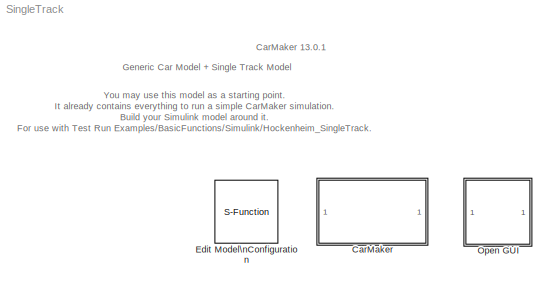
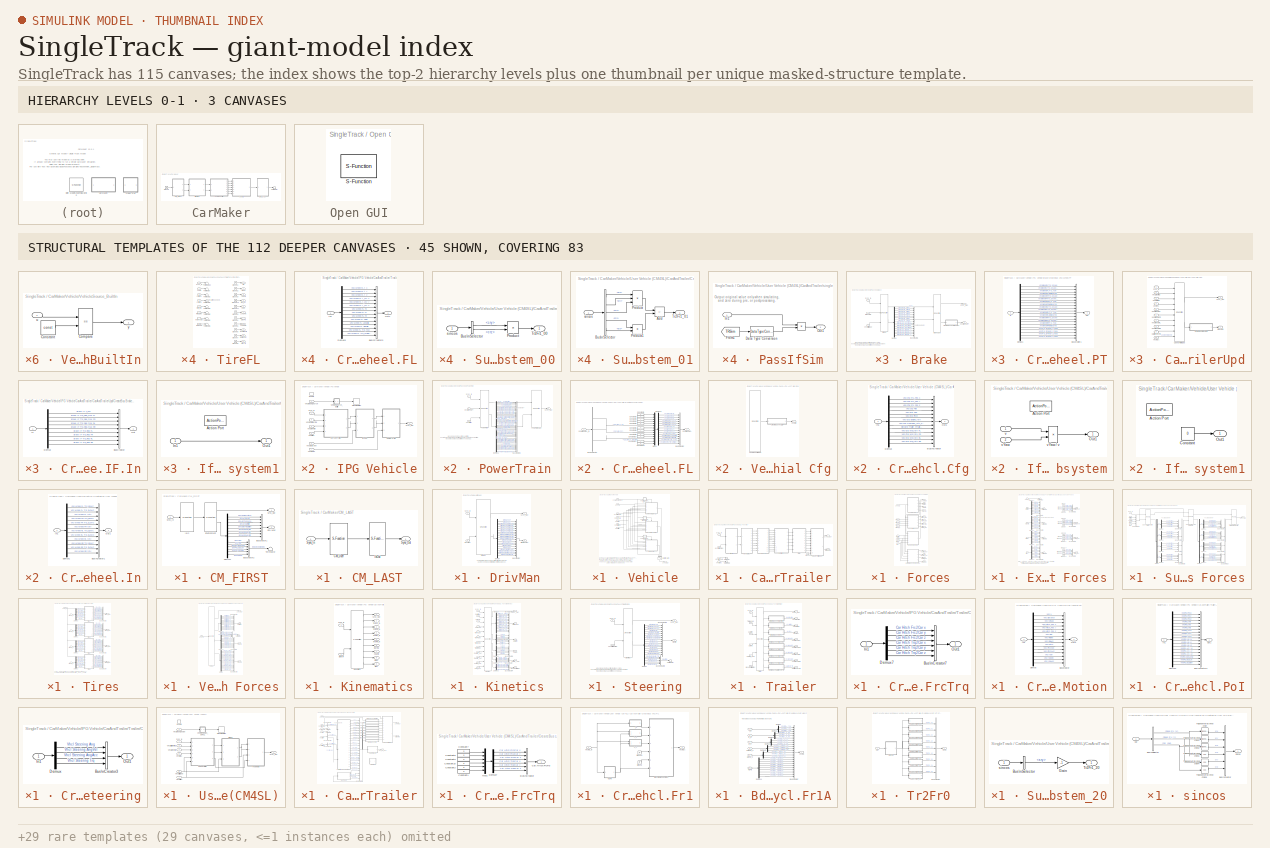
[diagram: thumbnail index - top-2 hierarchy levels (3 canvases) + 45 structural-template representatives of the remaining 112 canvases]
MODEL SingleTrack
KIND model
CONFIG PreLoadFcn = SingleTrack_params
BLOCK [SubSystem] CarMaker
  Ports = []
  RequestExecContextInheritance = off
  SID = 1
  TreatAsAtomicUnit = on
BLOCK [SubSystem] CarMaker/CM_FIRST
  Ports = [1, 2]
  RequestExecContextInheritance = off
  SID = 1584
BLOCK [BusCreator] CarMaker/CM_FIRST/BusCreator1
  InheritFromInputs = on
  Inputs = 8
  Ports = [8, 1]
  SID = 1592
BLOCK [BusCreator] CarMaker/CM_FIRST/BusCreator2
  InheritFromInputs = on
  Inputs = 6
  Ports = [6, 1]
  SID = 1593
BLOCK [Demux] CarMaker/CM_FIRST/Demux1
  DisplayOption = none
  Outputs = 14
  Ports = [1, 14]
  SID = 1594
BLOCK [Outport] CarMaker/CM_FIRST/Env.Misc
  Port = 2
  SID = 1599
  VectorParamsAs1DForOutWhenUnconnected = off
BLOCK [S-Function] CarMaker/CM_FIRST/Environment
  EnableBusSupport = off
  FunctionName = CM_Sfun
  Parameters = 'Environment'
  Ports = [1, 2]
  SFcnIsStateOwnerBlock = off
  SFunctionDeploymentMode = off
  SID = 1595
BLOCK [S-Function] CarMaker/CM_FIRST/IoIn
  EnableBusSupport = off
  FunctionName = CM_Sfun
  Parameters = 'IoIn'
  Ports = [1, 1]
  SFcnIsStateOwnerBlock = off
  SFunctionDeploymentMode = off
  SID = 1596
BLOCK [Inport] CarMaker/CM_FIRST/Sync_In
  SID = 1591
BLOCK [Outport] CarMaker/CM_FIRST/Sync_Out
  SID = 1598
  VectorParamsAs1DForOutWhenUnconnected = off
BLOCK [Terminator] CarMaker/CM_FIRST/Terminator
  SID = 1597
BLOCK [SubSystem] CarMaker/CM_LAST
  Ports = [1, 1]
  RequestExecContextInheritance = off
  SID = 1585
BLOCK [S-Function] CarMaker/CM_LAST/CM_User
  EnableBusSupport = off
  FunctionName = CM_Sfun
  Parameters = 'CM_User'
  Ports = [1, 1]
  SFcnIsStateOwnerBlock = off
  SFunctionDeploymentMode = off
  SID = 1601
BLOCK [S-Function] CarMaker/CM_LAST/IoOut
  EnableBusSupport = off
  FunctionName = CM_Sfun
  Parameters = 'IoOut'
  Ports = [1, 1]
  SFcnIsStateOwnerBlock = off
  SFunctionDeploymentMode = off
  SID = 1602
BLOCK [Inport] CarMaker/CM_LAST/Sync_In
  SID = 1600
BLOCK [Outport] CarMaker/CM_LAST/Sync_Out
  SID = 1603
  VectorParamsAs1DForOutWhenUnconnected = off
BLOCK [SubSystem] CarMaker/DrivMan
  Ports = [2, 2]
  RequestExecContextInheritance = off
  SID = 1586
BLOCK [BusCreator] CarMaker/DrivMan/BusCreator
  InheritFromInputs = on
  Inputs = 20
  Ports = [20, 1]
  SID = 1606
BLOCK [Demux] CarMaker/DrivMan/Demux
  DisplayOption = none
  Outputs = 20
  Ports = [1, 20]
  SID = 1607
BLOCK [S-Function] CarMaker/DrivMan/DrivMan
  EnableBusSupport = off
  FunctionName = CM_Sfun
  Parameters = 'DrivMan'
  Ports = [2, 2]
  SFcnIsStateOwnerBlock = off
  SFunctionDeploymentMode = off
  SID = 1608
BLOCK [Outport] CarMaker/DrivMan/DrivMan.Out
  Port = 2
  SID = 1610
  VectorParamsAs1DForOutWhenUnconnected = off
BLOCK [Inport] CarMaker/DrivMan/Env.Misc
  Port = 2
  SID = 1605
BLOCK [Inport] CarMaker/DrivMan/Sync_In
  SID = 1604
BLOCK [Outport] CarMaker/DrivMan/Sync_Out
  SID = 1609
  VectorParamsAs1DForOutWhenUnconnected = off
BLOCK [Ground] CarMaker/Ground
  SID = 1587
BLOCK [Terminator] CarMaker/Terminator
  SID = 1589
BLOCK [SubSystem] CarMaker/Vehicle
  Ports = [7, 1]
  RequestExecContextInheritance = off
  SID = 2091
BLOCK [SubSystem] CarMaker/Vehicle/IPG Vehicle
  Ports = [7, 1, 1]
  RequestExecContextInheritance = off
  SID = 3246
BLOCK [SubSystem] CarMaker/Vehicle/IPG Vehicle/Brake
  Ports = [3, 2]
  RequestExecContextInheritance = off
  SID = 3265
BLOCK [S-Function] CarMaker/Vehicle/IPG Vehicle/Brake/Brake
  EnableBusSupport = off
  FunctionName = CM_Sfun
  Parameters = 'Brake'
  Ports = [3, 2]
  SFcnIsStateOwnerBlock = off
  SFunctionDeploymentMode = off
  SID = 3269
BLOCK [Inport] CarMaker/Vehicle/IPG Vehicle/Brake/Brake.IF.In
  Port = 2
  SID = 3267
BLOCK [S-Function] CarMaker/Vehicle/IPG Vehicle/Brake/BrakeUpd
  EnableBusSupport = off
  FunctionName = CM_Sfun
  Parameters = 'BrakeUpd'
  Ports = [2, 2]
  SFcnIsStateOwnerBlock = off
  SFunctionDeploymentMode = off
  SID = 3270
BLOCK [BusCreator] CarMaker/Vehicle/IPG Vehicle/Brake/BusCreator1
  InheritFromInputs = on
  Inputs = 16
  Ports = [16, 1]
  SID = 3271
BLOCK [SubSystem] CarMaker/Vehicle/IPG Vehicle/Brake/CreateBus Vhcl.Wheel.PT
  Ports = [1, 1]
  RequestExecContextInheritance = off
  SID = 3272
BLOCK [BusCreator] CarMaker/Vehicle/IPG Vehicle/Brake/CreateBus Vhcl.Wheel.PT/BusCreator1
  InheritFromInputs = on
  Inputs = 20
  Ports = [20, 1]
  SID = 3274
BLOCK [Demux] CarMaker/Vehicle/IPG Vehicle/Brake/CreateBus Vhcl.Wheel.PT/Demux1
  DisplayOption = none
  Outputs = 20
  Ports = [1, 20]
  SID = 3275
BLOCK [Inport] CarMaker/Vehicle/IPG Vehicle/Brake/CreateBus Vhcl.Wheel.PT/In
  SID = 3273
BLOCK [Outport] CarMaker/Vehicle/IPG Vehicle/Brake/CreateBus Vhcl.Wheel.PT/Out
  SID = 3276
  VectorParamsAs1DForOutWhenUnconnected = off
BLOCK [Demux] CarMaker/Vehicle/IPG Vehicle/Brake/Demux
  DisplayOption = none
  Outputs = 16
  Ports = [1, 16]
  SID = 3277
BLOCK [Inport] CarMaker/Vehicle/IPG Vehicle/Brake/Sync_In
  SID = 3266
BLOCK [Outport] CarMaker/Vehicle/IPG Vehicle/Brake/Sync_Out
  SID = 3278
  VectorParamsAs1DForOutWhenUnconnected = off
BLOCK [Outport] CarMaker/Vehicle/IPG Vehicle/Brake/Vhcl.Wheel.PT
  Port = 2
  SID = 3279
  VectorParamsAs1DForOutWhenUnconnected = off
BLOCK [Inport] CarMaker/Vehicle/IPG Vehicle/Brake/VhclCtrl.Brake
  Port = 3
  SID = 3268
BLOCK [SubSystem] CarMaker/Vehicle/IPG Vehicle/CarAndTrailer
  Ports = [4, 2]
  RequestExecContextInheritance = off
  SID = 3282
BLOCK [Outport] CarMaker/Vehicle/IPG Vehicle/CarAndTrailer/Brake.IF.In
  Port = 2
  SID = 3682
  VectorParamsAs1DForOutWhenUnconnected = off
BLOCK [SubSystem] CarMaker/Vehicle/IPG Vehicle/CarAndTrailer/CarAndTrailerUpd
  Ports = [10, 2]
  RequestExecContextInheritance = off
  SID = 3287
BLOCK [Outport] CarMaker/Vehicle/IPG Vehicle/CarAndTrailer/CarAndTrailerUpd/Brake.IF.In
  Port = 2
  SID = 3305
  VectorParamsAs1DForOutWhenUnconnected = off
BLOCK [Inport] CarMaker/Vehicle/IPG Vehicle/CarAndTrailer/CarAndTrailerUpd/Car.Hitch.FrcTrq
  Port = 9
  SID = 3296
BLOCK [S-Function] CarMaker/Vehicle/IPG Vehicle/CarAndTrailer/CarAndTrailerUpd/CarAndTrailerUpd
  EnableBusSupport = off
  FunctionName = CM_Sfun
  Parameters = 'CarAndTrUpd'
  Ports = [10, 2]
  SFcnIsStateOwnerBlock = off
  SFunctionDeploymentMode = off
  SID = 3298
BLOCK [SubSystem] CarMaker/Vehicle/IPG Vehicle/CarAndTrailer/CarAndTrailerUpd/CreateBus Brake.IF.In
  Ports = [1, 1]
  RequestExecContextInheritance = off
  SID = 3299
BLOCK [BusCreator] CarMaker/Vehicle/IPG Vehicle/CarAndTrailer/CarAndTrailerUpd/CreateBus Brake.IF.In/BusCreator
  InheritFromInputs = on
  Inputs = 9
  Ports = [9, 1]
  SID = 3301
BLOCK [Demux] CarMaker/Vehicle/IPG Vehicle/CarAndTrailer/CarAndTrailerUpd/CreateBus Brake.IF.In/Demux
  DisplayOption = none
  Outputs = 9
  Ports = [1, 9]
  SID = 3302
BLOCK [Inport] CarMaker/Vehicle/IPG Vehicle/CarAndTrailer/CarAndTrailerUpd/CreateBus Brake.IF.In/In
  SID = 3300
BLOCK [Outport] CarMaker/Vehicle/IPG Vehicle/CarAndTrailer/CarAndTrailerUpd/CreateBus Brake.IF.In/Out
  SID = 3303
  VectorParamsAs1DForOutWhenUnconnected = off
BLOCK [Inport] CarMaker/Vehicle/IPG Vehicle/CarAndTrailer/CarAndTrailerUpd/Sync_In
  SID = 3288
BLOCK [Outport] CarMaker/Vehicle/IPG Vehicle/CarAndTrailer/CarAndTrailerUpd/Sync_Out
  SID = 3304
  VectorParamsAs1DForOutWhenUnconnected = off
BLOCK [Inport] CarMaker/Vehicle/IPG Vehicle/CarAndTrailer/CarAndTrailerUpd/Vhcl.Fr1A
  Port = 10
  SID = 3297
BLOCK [Inport] CarMaker/Vehicle/IPG Vehicle/CarAndTrailer/CarAndTrailerUpd/Vhcl.Motion
  Port = 3
  SID = 3290
BLOCK [Inport] CarMaker/Vehicle/IPG Vehicle/CarAndTrailer/CarAndTrailerUpd/Vhcl.PoI
  Port = 4
  SID = 3291
BLOCK [Inport] CarMaker/Vehicle/IPG Vehicle/CarAndTrailer/CarAndTrailerUpd/Vhcl.Steering
  Port = 2
  SID = 3289
BLOCK [Inport] CarMaker/Vehicle/IPG Vehicle/CarAndTrailer/CarAndTrailerUpd/Vhcl.Wheel.FL
  Port = 5
  SID = 3292
BLOCK [Inport] CarMaker/Vehicle/IPG Vehicle/CarAndTrailer/CarAndTrailerUpd/Vhcl.Wheel.FR
  Port = 6
  SID = 3293
BLOCK [Inport] CarMaker/Vehicle/IPG Vehicle/CarAndTrailer/CarAndTrailerUpd/Vhcl.Wheel.RL
  Port = 7
  SID = 3294
BLOCK [Inport] CarMaker/Vehicle/IPG Vehicle/CarAndTrailer/CarAndTrailerUpd/Vhcl.Wheel.RR
  Port = 8
  SID = 3295
BLOCK [SubSystem] CarMaker/Vehicle/IPG Vehicle/CarAndTrailer/Forces
  Ports = [9, 12]
  RequestExecContextInheritance = off
  SID = 3306
BLOCK [Outport] CarMaker/Vehicle/IPG Vehicle/CarAndTrailer/Forces/Car.Aero
  Port = 3
  SID = 3557
  VectorParamsAs1DForOutWhenUnconnected = off
BLOCK [Outport] CarMaker/Vehicle/IPG Vehicle/CarAndTrailer/Forces/Car.Load
  Port = 4
  SID = 3558
  VectorParamsAs1DForOutWhenUnconnected = off
BLOCK [Outport] CarMaker/Vehicle/IPG Vehicle/CarAndTrailer/Forces/Car.Virtual
  Port = 2
  SID = 3556
  VectorParamsAs1DForOutWhenUnconnected = off
BLOCK [SubSystem] CarMaker/Vehicle/IPG Vehicle/CarAndTrailer/Forces/External Suspension Forces
  Ports = [5, 4]
  RequestExecContextInheritance = off
  SID = 3316
BLOCK [BusCreator] CarMaker/Vehicle/IPG Vehicle/CarAndTrailer/Forces/External Suspension Forces/Bus\nCreator
  DisplayOption = bar
  InheritFromInputs = on
  Inputs = 8
  Ports = [8, 1]
  SID = 3322
BLOCK [BusCreator] CarMaker/Vehicle/IPG Vehicle/CarAndTrailer/Forces/External Suspension Forces/Bus\nCreator1
  DisplayOption = bar
  InheritFromInputs = on
  Inputs = 4
  Ports = [4, 1]
  SID = 3323
BLOCK [BusCreator] CarMaker/Vehicle/IPG Vehicle/CarAndTrailer/Forces/External Suspension Forces/Bus\nCreator2
  DisplayOption = bar
  InheritFromInputs = on
  Inputs = 4
  Ports = [4, 1]
  SID = 3324
BLOCK [BusCreator] CarMaker/Vehicle/IPG Vehicle/CarAndTrailer/Forces/External Suspension Forces/Bus\nCreator3
  DisplayOption = bar
  InheritFromInputs = on
  Inputs = 4
  Ports = [4, 1]
  SID = 3325
BLOCK [BusCreator] CarMaker/Vehicle/IPG Vehicle/CarAndTrailer/Forces/External Suspension Forces/Bus\nCreator4
  DisplayOption = bar
  InheritFromInputs = on
  Inputs = 4
  Ports = [4, 1]
  SID = 3326
BLOCK [BusCreator] CarMaker/Vehicle/IPG Vehicle/CarAndTrailer/Forces/External Suspension Forces/Bus\nCreator5
  DisplayOption = bar
  InheritFromInputs = on
  Inputs = 8
  Ports = [8, 1]
  SID = 3327
BLOCK [BusCreator] CarMaker/Vehicle/IPG Vehicle/CarAndTrailer/Forces/External Suspension Forces/Bus\nCreator6
  DisplayOption = bar
  InheritFromInputs = on
  Inputs = 8
  Ports = [8, 1]
  SID = 3328
BLOCK [BusCreator] CarMaker/Vehicle/IPG Vehicle/CarAndTrailer/Forces/External Suspension Forces/Bus\nCreator7
  DisplayOption = bar
  InheritFromInputs = on
  Inputs = 8
  Ports = [8, 1]
  SID = 3329
BLOCK [Demux] CarMaker/Vehicle/IPG Vehicle/CarAndTrailer/Forces/External Suspension Forces/Demux1
  DisplayOption = none
  Outputs = 8
  Ports = [1, 8]
  SID = 3330
BLOCK [Demux] CarMaker/Vehicle/IPG Vehicle/CarAndTrailer/Forces/External Suspension Forces/Demux2
  DisplayOption = none
  Outputs = 8
  Ports = [1, 8]
  SID = 3331
BLOCK [Demux] CarMaker/Vehicle/IPG Vehicle/CarAndTrailer/Forces/External Suspension Forces/Demux3
  DisplayOption = none
  Outputs = 8
  Ports = [1, 8]
  SID = 3332
BLOCK [Demux] CarMaker/Vehicle/IPG Vehicle/CarAndTrailer/Forces/External Suspension Forces/Demux4
  DisplayOption = none
  Outputs = 8
  Ports = [1, 8]
  SID = 3333
BLOCK [Outport] CarMaker/Vehicle/IPG Vehicle/CarAndTrailer/Forces/External Suspension Forces/FBuf_ext
  Port = 4
  SID = 3358
  VectorParamsAs1DForOutWhenUnconnected = off
BLOCK [Outport] CarMaker/Vehicle/IPG Vehicle/CarAndTrailer/Forces/External Suspension Forces/FDamp_ext
  Port = 2
  SID = 3356
  VectorParamsAs1DForOutWhenUnconnected = off
BLOCK [Outport] CarMaker/Vehicle/IPG Vehicle/CarAndTrailer/Forces/External Suspension Forces/FSpring_ext
  SID = 3355
  VectorParamsAs1DForOutWhenUnconnected = off
BLOCK [Outport] CarMaker/Vehicle/IPG Vehicle/CarAndTrailer/Forces/External Suspension Forces/FStabi_ext
  Port = 3
  SID = 3357
  VectorParamsAs1DForOutWhenUnconnected = off
BLOCK [Ground] CarMaker/Vehicle/IPG Vehicle/CarAndTrailer/Forces/External Suspension Forces/Ground
  SID = 3334
BLOCK [Ground] CarMaker/Vehicle/IPG Vehicle/CarAndTrailer/Forces/External Suspension Forces/Ground1
  SID = 3335
BLOCK [Ground] CarMaker/Vehicle/IPG Vehicle/CarAndTrailer/Forces/External Suspension Forces/Ground10
  SID = 3336
BLOCK [Ground] CarMaker/Vehicle/IPG Vehicle/CarAndTrailer/Forces/External Suspension Forces/Ground11
  SID = 3337
BLOCK [Ground] CarMaker/Vehicle/IPG Vehicle/CarAndTrailer/Forces/External Suspension Forces/Ground12
  SID = 3338
BLOCK [Ground] CarMaker/Vehicle/IPG Vehicle/CarAndTrailer/Forces/External Suspension Forces/Ground13
  SID = 3339
BLOCK [Ground] CarMaker/Vehicle/IPG Vehicle/CarAndTrailer/Forces/External Suspension Forces/Ground14
  SID = 3340
BLOCK [Ground] CarMaker/Vehicle/IPG Vehicle/CarAndTrailer/Forces/External Suspension Forces/Ground15
  SID = 3341
BLOCK [Ground] CarMaker/Vehicle/IPG Vehicle/CarAndTrailer/Forces/External Suspension Forces/Ground2
  SID = 3342
BLOCK [Ground] CarMaker/Vehicle/IPG Vehicle/CarAndTrailer/Forces/External Suspension Forces/Ground3
  SID = 3343
BLOCK [Ground] CarMaker/Vehicle/IPG Vehicle/CarAndTrailer/Forces/External Suspension Forces/Ground4
  SID = 3344
BLOCK [Ground] CarMaker/Vehicle/IPG Vehicle/CarAndTrailer/Forces/External Suspension Forces/Ground5
  SID = 3345
BLOCK [Ground] CarMaker/Vehicle/IPG Vehicle/CarAndTrailer/Forces/External Suspension Forces/Ground6
  SID = 3346
BLOCK [Ground] CarMaker/Vehicle/IPG Vehicle/CarAndTrailer/Forces/External Suspension Forces/Ground7
  SID = 3347
BLOCK [Ground] CarMaker/Vehicle/IPG Vehicle/CarAndTrailer/Forces/External Suspension Forces/Ground8
  SID = 3348
BLOCK [Ground] CarMaker/Vehicle/IPG Vehicle/CarAndTrailer/Forces/External Suspension Forces/Ground9
  SID = 3349
BLOCK [Inport] CarMaker/Vehicle/IPG Vehicle/CarAndTrailer/Forces/External Suspension Forces/Sync_In
  SID = 3317
BLOCK [Terminator] CarMaker/Vehicle/IPG Vehicle/CarAndTrailer/Forces/External Suspension Forces/Terminator1
  SID = 3350
BLOCK [Terminator] CarMaker/Vehicle/IPG Vehicle/CarAndTrailer/Forces/External Suspension Forces/Terminator12
  SID = 3351
BLOCK [Terminator] CarMaker/Vehicle/IPG Vehicle/CarAndTrailer/Forces/External Suspension Forces/Terminator2
  SID = 3352
BLOCK [Terminator] CarMaker/Vehicle/IPG Vehicle/CarAndTrailer/Forces/External Suspension Forces/Terminator3
  SID = 3353
BLOCK [Terminator] CarMaker/Vehicle/IPG Vehicle/CarAndTrailer/Forces/External Suspension Forces/Terminator4
  SID = 3354
BLOCK [Inport] CarMaker/Vehicle/IPG Vehicle/CarAndTrailer/Forces/External Suspension Forces/lBuf
  Port = 5
  SID = 3321
BLOCK [Inport] CarMaker/Vehicle/IPG Vehicle/CarAndTrailer/Forces/External Suspension Forces/lSpring
  Port = 2
  SID = 3318
BLOCK [Inport] CarMaker/Vehicle/IPG Vehicle/CarAndTrailer/Forces/External Suspension Forces/lStabi
  Port = 4
  SID = 3320
BLOCK [Inport] CarMaker/Vehicle/IPG Vehicle/CarAndTrailer/Forces/External Suspension Forces/vDamp
  Port = 3
  SID = 3319
BLOCK [Outport] CarMaker/Vehicle/IPG Vehicle/CarAndTrailer/Forces/FBuf_ext
  Port = 12
  SID = 3566
  VectorParamsAs1DForOutWhenUnconnected = off
BLOCK [Outport] CarMaker/Vehicle/IPG Vehicle/CarAndTrailer/Forces/FDamp_ext
  Port = 10
  SID = 3564
  VectorParamsAs1DForOutWhenUnconnected = off
BLOCK [Outport] CarMaker/Vehicle/IPG Vehicle/CarAndTrailer/Forces/FSpring_ext
  Port = 9
  SID = 3563
  VectorParamsAs1DForOutWhenUnconnected = off
BLOCK [Outport] CarMaker/Vehicle/IPG Vehicle/CarAndTrailer/Forces/FStabi_ext
  Port = 11
  SID = 3565
  VectorParamsAs1DForOutWhenUnconnected = off
BLOCK [SubSystem] CarMaker/Vehicle/IPG Vehicle/CarAndTrailer/Forces/Suspension Forces
  Ports = [5, 1]
  RequestExecContextInheritance = off
  SID = 3849
BLOCK [BusCreator] CarMaker/Vehicle/IPG Vehicle/CarAndTrailer/Forces/Suspension Forces/Bus\nCreator
  DisplayOption = bar
  InheritFromInputs = on
  Inputs = 4
  Ports = [4, 1]
  SID = 3855
BLOCK [BusCreator] CarMaker/Vehicle/IPG Vehicle/CarAndTrailer/Forces/Suspension Forces/Bus\nCreator1
  DisplayOption = bar
  InheritFromInputs = on
  Inputs = 4
  Ports = [4, 1]
  SID = 3856
BLOCK [BusCreator] CarMaker/Vehicle/IPG Vehicle/CarAndTrailer/Forces/Suspension Forces/Bus\nCreator10
  DisplayOption = bar
  InheritFromInputs = on
  Inputs = 4
  Ports = [4, 1]
  SID = 3857
BLOCK [BusCreator] CarMaker/Vehicle/IPG Vehicle/CarAndTrailer/Forces/Suspension Forces/Bus\nCreator2
  DisplayOption = bar
  InheritFromInputs = on
  Inputs = 4
  Ports = [4, 1]
  SID = 3858
BLOCK [BusCreator] CarMaker/Vehicle/IPG Vehicle/CarAndTrailer/Forces/Suspension Forces/Bus\nCreator3
  DisplayOption = bar
  InheritFromInputs = on
  Inputs = 4
  Ports = [4, 1]
  SID = 3859
BLOCK [BusCreator] CarMaker/Vehicle/IPG Vehicle/CarAndTrailer/Forces/Suspension Forces/Bus\nCreator4
  DisplayOption = bar
  InheritFromInputs = on
  Inputs = 6
  Ports = [6, 1]
  SID = 3860
BLOCK [BusCreator] CarMaker/Vehicle/IPG Vehicle/CarAndTrailer/Forces/Suspension Forces/Bus\nCreator5
  DisplayOption = bar
  InheritFromInputs = on
  Inputs = 6
  Ports = [6, 1]
  SID = 3861
BLOCK [BusCreator] CarMaker/Vehicle/IPG Vehicle/CarAndTrailer/Forces/Suspension Forces/Bus\nCreator6
  DisplayOption = bar
  InheritFromInputs = on
  Inputs = 6
  Ports = [6, 1]
  SID = 3862
BLOCK [BusCreator] CarMaker/Vehicle/IPG Vehicle/CarAndTrailer/Forces/Suspension Forces/Bus\nCreator7
  DisplayOption = bar
  InheritFromInputs = on
  Inputs = 6
  Ports = [6, 1]
  SID = 3863
BLOCK [BusCreator] CarMaker/Vehicle/IPG Vehicle/CarAndTrailer/Forces/Suspension Forces/Bus\nCreator8
  DisplayOption = bar
  InheritFromInputs = on
  Inputs = 4
  Ports = [4, 1]
  SID = 3864
BLOCK [BusCreator] CarMaker/Vehicle/IPG Vehicle/CarAndTrailer/Forces/Suspension Forces/Bus\nCreator9
  DisplayOption = bar
  InheritFromInputs = on
  Inputs = 4
  Ports = [4, 1]
  SID = 3865
BLOCK [Demux] CarMaker/Vehicle/IPG Vehicle/CarAndTrailer/Forces/Suspension Forces/Demux
  Ports = [1, 4]
  SID = 3866
BLOCK [Demux] CarMaker/Vehicle/IPG Vehicle/CarAndTrailer/Forces/Suspension Forces/Demux1
  Ports = [1, 4]
  SID = 3867
BLOCK [Demux] CarMaker/Vehicle/IPG Vehicle/CarAndTrailer/Forces/Suspension Forces/Demux2
  Ports = [1, 4]
  SID = 3868
BLOCK [Demux] CarMaker/Vehicle/IPG Vehicle/CarAndTrailer/Forces/Suspension Forces/Demux3
  Ports = [1, 4]
  SID = 3869
BLOCK [Demux] CarMaker/Vehicle/IPG Vehicle/CarAndTrailer/Forces/Suspension Forces/Demux4
  Ports = [1, 4]
  SID = 3870
BLOCK [Demux] CarMaker/Vehicle/IPG Vehicle/CarAndTrailer/Forces/Suspension Forces/Demux5
  Ports = [1, 4]
  SID = 3871
BLOCK [Demux] CarMaker/Vehicle/IPG Vehicle/CarAndTrailer/Forces/Suspension Forces/Demux6
  Outputs = 6
  Ports = [1, 6]
  SID = 3872
BLOCK [Demux] CarMaker/Vehicle/IPG Vehicle/CarAndTrailer/Forces/Suspension Forces/Demux7
  Outputs = 6
  Ports = [1, 6]
  SID = 3873
BLOCK [Demux] CarMaker/Vehicle/IPG Vehicle/CarAndTrailer/Forces/Suspension Forces/Demux8
  Outputs = 6
  Ports = [1, 6]
  SID = 3874
BLOCK [Demux] CarMaker/Vehicle/IPG Vehicle/CarAndTrailer/Forces/Suspension Forces/Demux9
  Outputs = 6
  Ports = [1, 6]
  SID = 3875
BLOCK [S-Function] CarMaker/Vehicle/IPG Vehicle/CarAndTrailer/Forces/Suspension Forces/Suspension Control Unit
  EnableBusSupport = off
  FunctionName = CM_Sfun
  Parameters = 'ForcesSuspControl'
  Ports = [2, 2]
  SFcnIsStateOwnerBlock = off
  SFunctionDeploymentMode = off
  SID = 3876
BLOCK [S-Function] CarMaker/Vehicle/IPG Vehicle/CarAndTrailer/Forces/Suspension Forces/Suspension Force Elements
  EnableBusSupport = off
  FunctionName = CM_Sfun
  Parameters = 'ForcesSusp'
  Ports = [3, 2]
  SFcnIsStateOwnerBlock = off
  SFunctionDeploymentMode = off
  SID = 3877
BLOCK [S-Function] CarMaker/Vehicle/IPG Vehicle/CarAndTrailer/Forces/Suspension Forces/Suspension Force Elements Update
  EnableBusSupport = off
  FunctionName = CM_Sfun
  Parameters = 'ForcesSuspUpd'
  Ports = [2, 1]
  SFcnIsStateOwnerBlock = off
  SFunctionDeploymentMode = off
  SID = 3878
BLOCK [Inport] CarMaker/Vehicle/IPG Vehicle/CarAndTrailer/Forces/Suspension Forces/Sync_In
  SID = 3850
BLOCK [Outport] CarMaker/Vehicle/IPG Vehicle/CarAndTrailer/Forces/Suspension Forces/Sync_Out
  SID = 3879
  VectorParamsAs1DForOutWhenUnconnected = off
BLOCK [Inport] CarMaker/Vehicle/IPG Vehicle/CarAndTrailer/Forces/Suspension Forces/lBuf
  Port = 5
  SID = 3854
BLOCK [Inport] CarMaker/Vehicle/IPG Vehicle/CarAndTrailer/Forces/Suspension Forces/lSpring
  Port = 2
  SID = 3851
BLOCK [Inport] CarMaker/Vehicle/IPG Vehicle/CarAndTrailer/Forces/Suspension Forces/lStabi
  Port = 4
  SID = 3853
BLOCK [Inport] CarMaker/Vehicle/IPG Vehicle/CarAndTrailer/Forces/Suspension Forces/vDamp
  Port = 3
  SID = 3852
BLOCK [Inport] CarMaker/Vehicle/IPG Vehicle/CarAndTrailer/Forces/Sync_In
  SID = 3307
BLOCK [Outport] CarMaker/Vehicle/IPG Vehicle/CarAndTrailer/Forces/Sync_Out
  SID = 3555
  VectorParamsAs1DForOutWhenUnconnected = off
BLOCK [Inport] CarMaker/Vehicle/IPG Vehicle/CarAndTrailer/Forces/TireFL_In
  Port = 2
  SID = 3308
BLOCK [Outport] CarMaker/Vehicle/IPG Vehicle/CarAndTrailer/Forces/TireFL_Out
  Port = 5
  SID = 3559
  VectorParamsAs1DForOutWhenUnconnected = off
BLOCK [Inport] CarMaker/Vehicle/IPG Vehicle/CarAndTrailer/Forces/TireFR_In
  Port = 3
  SID = 3309
BLOCK [Outport] CarMaker/Vehicle/IPG Vehicle/CarAndTrailer/Forces/TireFR_Out
  Port = 6
  SID = 3560
  VectorParamsAs1DForOutWhenUnconnected = off
BLOCK [Inport] CarMaker/Vehicle/IPG Vehicle/CarAndTrailer/Forces/TireRL_In
  Port = 4
  SID = 3310
BLOCK [Outport] CarMaker/Vehicle/IPG Vehicle/CarAndTrailer/Forces/TireRL_Out
  Port = 7
  SID = 3561
  VectorParamsAs1DForOutWhenUnconnected = off
BLOCK [Inport] CarMaker/Vehicle/IPG Vehicle/CarAndTrailer/Forces/TireRR_In
  Port = 5
  SID = 3311
BLOCK [Outport] CarMaker/Vehicle/IPG Vehicle/CarAndTrailer/Forces/TireRR_Out
  Port = 8
  SID = 3562
  VectorParamsAs1DForOutWhenUnconnected = off
BLOCK [SubSystem] CarMaker/Vehicle/IPG Vehicle/CarAndTrailer/Forces/Tires
  Ports = [5, 4]
  RequestExecContextInheritance = off
  SID = 3361
BLOCK [BusCreator] CarMaker/Vehicle/IPG Vehicle/CarAndTrailer/Forces/Tires/Bus\nCreator1
  DisplayOption = bar
  InheritFromInputs = on
  Inputs = 11
  Ports = [11, 1]
  SID = 3367
BLOCK [BusCreator] CarMaker/Vehicle/IPG Vehicle/CarAndTrailer/Forces/Tires/Bus\nCreator2
  DisplayOption = bar
  InheritFromInputs = on
  Inputs = 11
  Ports = [11, 1]
  SID = 3368
BLOCK [BusCreator] CarMaker/Vehicle/IPG Vehicle/CarAndTrailer/Forces/Tires/Bus\nCreator3
  DisplayOption = bar
  InheritFromInputs = on
  Inputs = 11
  Ports = [11, 1]
  SID = 3369
BLOCK [BusCreator] CarMaker/Vehicle/IPG Vehicle/CarAndTrailer/Forces/Tires/Bus\nCreator4
  DisplayOption = bar
  InheritFromInputs = on
  Inputs = 11
  Ports = [11, 1]
  SID = 3370
BLOCK [Demux] CarMaker/Vehicle/IPG Vehicle/CarAndTrailer/Forces/Tires/Demux1
  DisplayOption = none
  Outputs = 7
  Ports = [1, 7]
  SID = 3371
BLOCK [Demux] CarMaker/Vehicle/IPG Vehicle/CarAndTrailer/Forces/Tires/Demux2
  DisplayOption = none
  Outputs = 7
  Ports = [1, 7]
  SID = 3372
BLOCK [Demux] CarMaker/Vehicle/IPG Vehicle/CarAndTrailer/Forces/Tires/Demux3
  DisplayOption = none
  Outputs = 7
  Ports = [1, 7]
  SID = 3373
BLOCK [Demux] CarMaker/Vehicle/IPG Vehicle/CarAndTrailer/Forces/Tires/Demux8
  DisplayOption = none
  Outputs = 7
  Ports = [1, 7]
  SID = 3374
BLOCK [Inport] CarMaker/Vehicle/IPG Vehicle/CarAndTrailer/Forces/Tires/Sync_In
  SID = 3362
BLOCK [SubSystem] CarMaker/Vehicle/IPG Vehicle/CarAndTrailer/Forces/Tires/TireFL
  Ports = [8, 11]
  RequestExecContextInheritance = off
  SID = 3375
BLOCK [Outport] CarMaker/Vehicle/IPG Vehicle/CarAndTrailer/Forces/Tires/TireFL/AlignTrq
  Port = 11
  SID = 3413
  VectorParamsAs1DForOutWhenUnconnected = off
BLOCK [Outport] CarMaker/Vehicle/IPG Vehicle/CarAndTrailer/Forces/Tires/TireFL/Alpha
  Port = 2
  SID = 3404
  VectorParamsAs1DForOutWhenUnconnected = off
BLOCK [Ground] CarMaker/Vehicle/IPG Vehicle/CarAndTrailer/Forces/Tires/TireFL/Ground1
  SID = 3384
BLOCK [Ground] CarMaker/Vehicle/IPG Vehicle/CarAndTrailer/Forces/Tires/TireFL/Ground10
  SID = 3385
BLOCK [Ground] CarMaker/Vehicle/IPG Vehicle/CarAndTrailer/Forces/Tires/TireFL/Ground11
  SID = 3386
BLOCK [Ground] CarMaker/Vehicle/IPG Vehicle/CarAndTrailer/Forces/Tires/TireFL/Ground2
  SID = 3387
BLOCK [Ground] CarMaker/Vehicle/IPG Vehicle/CarAndTrailer/Forces/Tires/TireFL/Ground3
  SID = 3388
BLOCK [Ground] CarMaker/Vehicle/IPG Vehicle/CarAndTrailer/Forces/Tires/TireFL/Ground4
  SID = 3389
BLOCK [Ground] CarMaker/Vehicle/IPG Vehicle/CarAndTrailer/Forces/Tires/TireFL/Ground5
  SID = 3390
BLOCK [Ground] CarMaker/Vehicle/IPG Vehicle/CarAndTrailer/Forces/Tires/TireFL/Ground6
  SID = 3391
BLOCK [Ground] CarMaker/Vehicle/IPG Vehicle/CarAndTrailer/Forces/Tires/TireFL/Ground7
  SID = 3392
BLOCK [Ground] CarMaker/Vehicle/IPG Vehicle/CarAndTrailer/Forces/Tires/TireFL/Ground8
  SID = 3393
BLOCK [Ground] CarMaker/Vehicle/IPG Vehicle/CarAndTrailer/Forces/Tires/TireFL/Ground9
  SID = 3394
BLOCK [Inport] CarMaker/Vehicle/IPG Vehicle/CarAndTrailer/Forces/Tires/TireFL/InclinAngle
  Port = 7
  SID = 3382
BLOCK [Inport] CarMaker/Vehicle/IPG Vehicle/CarAndTrailer/Forces/Tires/TireFL/Load
  Port = 2
  SID = 3377
BLOCK [Outport] CarMaker/Vehicle/IPG Vehicle/CarAndTrailer/Forces/Tires/TireFL/LoadFrc
  Port = 8
  SID = 3410
  VectorParamsAs1DForOutWhenUnconnected = off
BLOCK [Outport] CarMaker/Vehicle/IPG Vehicle/CarAndTrailer/Forces/Tires/TireFL/LongFrc
  Port = 6
  SID = 3408
  VectorParamsAs1DForOutWhenUnconnected = off
BLOCK [Outport] CarMaker/Vehicle/IPG Vehicle/CarAndTrailer/Forces/Tires/TireFL/OverturnTrq
  Port = 9
  SID = 3411
  VectorParamsAs1DForOutWhenUnconnected = off
BLOCK [Inport] CarMaker/Vehicle/IPG Vehicle/CarAndTrailer/Forces/Tires/TireFL/Rim_rotv
  Port = 5
  SID = 3380
BLOCK [Inport] CarMaker/Vehicle/IPG Vehicle/CarAndTrailer/Forces/Tires/TireFL/Rim_turnv
  Port = 6
  SID = 3381
BLOCK [Outport] CarMaker/Vehicle/IPG Vehicle/CarAndTrailer/Forces/Tires/TireFL/RollResist
  Port = 10
  SID = 3412
  VectorParamsAs1DForOutWhenUnconnected = off
BLOCK [Outport] CarMaker/Vehicle/IPG Vehicle/CarAndTrailer/Forces/Tires/TireFL/SideFrc
  Port = 7
  SID = 3409
  VectorParamsAs1DForOutWhenUnconnected = off
BLOCK [Outport] CarMaker/Vehicle/IPG Vehicle/CarAndTrailer/Forces/Tires/TireFL/Slp
  SID = 3403
  VectorParamsAs1DForOutWhenUnconnected = off
BLOCK [Inport] CarMaker/Vehicle/IPG Vehicle/CarAndTrailer/Forces/Tires/TireFL/Sync_In
  SID = 3376
BLOCK [Terminator] CarMaker/Vehicle/IPG Vehicle/CarAndTrailer/Forces/Tires/TireFL/Terminator
  SID = 3395
BLOCK [Terminator] CarMaker/Vehicle/IPG Vehicle/CarAndTrailer/Forces/Tires/TireFL/Terminator1
  SID = 3396
BLOCK [Terminator] CarMaker/Vehicle/IPG Vehicle/CarAndTrailer/Forces/Tires/TireFL/Terminator12
  SID = 3397
BLOCK [Terminator] CarMaker/Vehicle/IPG Vehicle/CarAndTrailer/Forces/Tires/TireFL/Terminator2
  SID = 3398
BLOCK [Terminator] CarMaker/Vehicle/IPG Vehicle/CarAndTrailer/Forces/Tires/TireFL/Terminator3
  SID = 3399
BLOCK [Terminator] CarMaker/Vehicle/IPG Vehicle/CarAndTrailer/Forces/Tires/TireFL/Terminator4
  SID = 3400
BLOCK [Terminator] CarMaker/Vehicle/IPG Vehicle/CarAndTrailer/Forces/Tires/TireFL/Terminator5
  SID = 3401
BLOCK [Terminator] CarMaker/Vehicle/IPG Vehicle/CarAndTrailer/Forces/Tires/TireFL/Terminator6
  SID = 3402
BLOCK [Outport] CarMaker/Vehicle/IPG Vehicle/CarAndTrailer/Forces/Tires/TireFL/TurnSlp
  Port = 3
  SID = 3405
  VectorParamsAs1DForOutWhenUnconnected = off
BLOCK [Inport] CarMaker/Vehicle/IPG Vehicle/CarAndTrailer/Forces/Tires/TireFL/muRoad
  Port = 8
  SID = 3383
BLOCK [Outport] CarMaker/Vehicle/IPG Vehicle/CarAndTrailer/Forces/Tires/TireFL/rBelt_eff
  Port = 4
  SID = 3406
  VectorParamsAs1DForOutWhenUnconnected = off
BLOCK [Outport] CarMaker/Vehicle/IPG Vehicle/CarAndTrailer/Forces/Tires/TireFL/vBelt
  Port = 5
  SID = 3407
  VectorParamsAs1DForOutWhenUnconnected = off
BLOCK [Inport] CarMaker/Vehicle/IPG Vehicle/CarAndTrailer/Forces/Tires/TireFL/vxtrans
  Port = 3
  SID = 3378
BLOCK [Inport] CarMaker/Vehicle/IPG Vehicle/CarAndTrailer/Forces/Tires/TireFL/vytrans
  Port = 4
  SID = 3379
BLOCK [Inport] CarMaker/Vehicle/IPG Vehicle/CarAndTrailer/Forces/Tires/TireFL_In
  Port = 2
  SID = 3363
BLOCK [Outport] CarMaker/Vehicle/IPG Vehicle/CarAndTrailer/Forces/Tires/TireFL_Out
  SID = 3535
  VectorParamsAs1DForOutWhenUnconnected = off
BLOCK [SubSystem] CarMaker/Vehicle/IPG Vehicle/CarAndTrailer/Forces/Tires/TireFR
  Ports = [8, 11]
  RequestExecContextInheritance = off
  SID = 3415
BLOCK [Outport] CarMaker/Vehicle/IPG Vehicle/CarAndTrailer/Forces/Tires/TireFR/AlignTrq
  Port = 11
  SID = 3453
  VectorParamsAs1DForOutWhenUnconnected = off
BLOCK [Outport] CarMaker/Vehicle/IPG Vehicle/CarAndTrailer/Forces/Tires/TireFR/Alpha
  Port = 2
  SID = 3444
  VectorParamsAs1DForOutWhenUnconnected = off
BLOCK [Ground] CarMaker/Vehicle/IPG Vehicle/CarAndTrailer/Forces/Tires/TireFR/Ground1
  SID = 3424
BLOCK [Ground] CarMaker/Vehicle/IPG Vehicle/CarAndTrailer/Forces/Tires/TireFR/Ground10
  SID = 3425
BLOCK [Ground] CarMaker/Vehicle/IPG Vehicle/CarAndTrailer/Forces/Tires/TireFR/Ground11
  SID = 3426
BLOCK [Ground] CarMaker/Vehicle/IPG Vehicle/CarAndTrailer/Forces/Tires/TireFR/Ground2
  SID = 3427
BLOCK [Ground] CarMaker/Vehicle/IPG Vehicle/CarAndTrailer/Forces/Tires/TireFR/Ground3
  SID = 3428
BLOCK [Ground] CarMaker/Vehicle/IPG Vehicle/CarAndTrailer/Forces/Tires/TireFR/Ground4
  SID = 3429
BLOCK [Ground] CarMaker/Vehicle/IPG Vehicle/CarAndTrailer/Forces/Tires/TireFR/Ground5
  SID = 3430
BLOCK [Ground] CarMaker/Vehicle/IPG Vehicle/CarAndTrailer/Forces/Tires/TireFR/Ground6
  SID = 3431
BLOCK [Ground] CarMaker/Vehicle/IPG Vehicle/CarAndTrailer/Forces/Tires/TireFR/Ground7
  SID = 3432
BLOCK [Ground] CarMaker/Vehicle/IPG Vehicle/CarAndTrailer/Forces/Tires/TireFR/Ground8
  SID = 3433
BLOCK [Ground] CarMaker/Vehicle/IPG Vehicle/CarAndTrailer/Forces/Tires/TireFR/Ground9
  SID = 3434
BLOCK [Inport] CarMaker/Vehicle/IPG Vehicle/CarAndTrailer/Forces/Tires/TireFR/InclinAngle
  Port = 7
  SID = 3422
BLOCK [Inport] CarMaker/Vehicle/IPG Vehicle/CarAndTrailer/Forces/Tires/TireFR/Load
  Port = 2
  SID = 3417
BLOCK [Outport] CarMaker/Vehicle/IPG Vehicle/CarAndTrailer/Forces/Tires/TireFR/LoadFrc
  Port = 8
  SID = 3450
  VectorParamsAs1DForOutWhenUnconnected = off
BLOCK [Outport] CarMaker/Vehicle/IPG Vehicle/CarAndTrailer/Forces/Tires/TireFR/LongFrc
  Port = 6
  SID = 3448
  VectorParamsAs1DForOutWhenUnconnected = off
BLOCK [Outport] CarMaker/Vehicle/IPG Vehicle/CarAndTrailer/Forces/Tires/TireFR/OverturnTrq
  Port = 9
  SID = 3451
  VectorParamsAs1DForOutWhenUnconnected = off
BLOCK [Inport] CarMaker/Vehicle/IPG Vehicle/CarAndTrailer/Forces/Tires/TireFR/Rim_rotv
  Port = 5
  SID = 3420
BLOCK [Inport] CarMaker/Vehicle/IPG Vehicle/CarAndTrailer/Forces/Tires/TireFR/Rim_turnv
  Port = 6
  SID = 3421
BLOCK [Outport] CarMaker/Vehicle/IPG Vehicle/CarAndTrailer/Forces/Tires/TireFR/RollResist
  Port = 10
  SID = 3452
  VectorParamsAs1DForOutWhenUnconnected = off
BLOCK [Outport] CarMaker/Vehicle/IPG Vehicle/CarAndTrailer/Forces/Tires/TireFR/SideFrc
  Port = 7
  SID = 3449
  VectorParamsAs1DForOutWhenUnconnected = off
BLOCK [Outport] CarMaker/Vehicle/IPG Vehicle/CarAndTrailer/Forces/Tires/TireFR/Slp
  SID = 3443
  VectorParamsAs1DForOutWhenUnconnected = off
BLOCK [Inport] CarMaker/Vehicle/IPG Vehicle/CarAndTrailer/Forces/Tires/TireFR/Sync_In
  SID = 3416
BLOCK [Terminator] CarMaker/Vehicle/IPG Vehicle/CarAndTrailer/Forces/Tires/TireFR/Terminator
  SID = 3435
BLOCK [Terminator] CarMaker/Vehicle/IPG Vehicle/CarAndTrailer/Forces/Tires/TireFR/Terminator1
  SID = 3436
BLOCK [Terminator] CarMaker/Vehicle/IPG Vehicle/CarAndTrailer/Forces/Tires/TireFR/Terminator12
  SID = 3437
BLOCK [Terminator] CarMaker/Vehicle/IPG Vehicle/CarAndTrailer/Forces/Tires/TireFR/Terminator2
  SID = 3438
BLOCK [Terminator] CarMaker/Vehicle/IPG Vehicle/CarAndTrailer/Forces/Tires/TireFR/Terminator3
  SID = 3439
BLOCK [Terminator] CarMaker/Vehicle/IPG Vehicle/CarAndTrailer/Forces/Tires/TireFR/Terminator4
  SID = 3440
BLOCK [Terminator] CarMaker/Vehicle/IPG Vehicle/CarAndTrailer/Forces/Tires/TireFR/Terminator5
  SID = 3441
BLOCK [Terminator] CarMaker/Vehicle/IPG Vehicle/CarAndTrailer/Forces/Tires/TireFR/Terminator6
  SID = 3442
BLOCK [Outport] CarMaker/Vehicle/IPG Vehicle/CarAndTrailer/Forces/Tires/TireFR/TurnSlp
  Port = 3
  SID = 3445
  VectorParamsAs1DForOutWhenUnconnected = off
BLOCK [Inport] CarMaker/Vehicle/IPG Vehicle/CarAndTrailer/Forces/Tires/TireFR/muRoad
  Port = 8
  SID = 3423
BLOCK [Outport] CarMaker/Vehicle/IPG Vehicle/CarAndTrailer/Forces/Tires/TireFR/rBelt_eff
  Port = 4
  SID = 3446
  VectorParamsAs1DForOutWhenUnconnected = off
BLOCK [Outport] CarMaker/Vehicle/IPG Vehicle/CarAndTrailer/Forces/Tires/TireFR/vBelt
  Port = 5
  SID = 3447
  VectorParamsAs1DForOutWhenUnconnected = off
BLOCK [Inport] CarMaker/Vehicle/IPG Vehicle/CarAndTrailer/Forces/Tires/TireFR/vxtrans
  Port = 3
  SID = 3418
BLOCK [Inport] CarMaker/Vehicle/IPG Vehicle/CarAndTrailer/Forces/Tires/TireFR/vytrans
  Port = 4
  SID = 3419
BLOCK [Inport] CarMaker/Vehicle/IPG Vehicle/CarAndTrailer/Forces/Tires/TireFR_In
  Port = 3
  SID = 3364
BLOCK [Outport] CarMaker/Vehicle/IPG Vehicle/CarAndTrailer/Forces/Tires/TireFR_Out
  Port = 2
  SID = 3536
  VectorParamsAs1DForOutWhenUnconnected = off
BLOCK [SubSystem] CarMaker/Vehicle/IPG Vehicle/CarAndTrailer/Forces/Tires/TireRL
  Ports = [8, 11]
  RequestExecContextInheritance = off
  SID = 3455
BLOCK [Outport] CarMaker/Vehicle/IPG Vehicle/CarAndTrailer/Forces/Tires/TireRL/AlignTrq
  Port = 11
  SID = 3493
  VectorParamsAs1DForOutWhenUnconnected = off
BLOCK [Outport] CarMaker/Vehicle/IPG Vehicle/CarAndTrailer/Forces/Tires/TireRL/Alpha
  Port = 2
  SID = 3484
  VectorParamsAs1DForOutWhenUnconnected = off
BLOCK [Ground] CarMaker/Vehicle/IPG Vehicle/CarAndTrailer/Forces/Tires/TireRL/Ground1
  SID = 3464
BLOCK [Ground] CarMaker/Vehicle/IPG Vehicle/CarAndTrailer/Forces/Tires/TireRL/Ground10
  SID = 3465
BLOCK [Ground] CarMaker/Vehicle/IPG Vehicle/CarAndTrailer/Forces/Tires/TireRL/Ground11
  SID = 3466
BLOCK [Ground] CarMaker/Vehicle/IPG Vehicle/CarAndTrailer/Forces/Tires/TireRL/Ground2
  SID = 3467
BLOCK [Ground] CarMaker/Vehicle/IPG Vehicle/CarAndTrailer/Forces/Tires/TireRL/Ground3
  SID = 3468
BLOCK [Ground] CarMaker/Vehicle/IPG Vehicle/CarAndTrailer/Forces/Tires/TireRL/Ground4
  SID = 3469
BLOCK [Ground] CarMaker/Vehicle/IPG Vehicle/CarAndTrailer/Forces/Tires/TireRL/Ground5
  SID = 3470
BLOCK [Ground] CarMaker/Vehicle/IPG Vehicle/CarAndTrailer/Forces/Tires/TireRL/Ground6
  SID = 3471
BLOCK [Ground] CarMaker/Vehicle/IPG Vehicle/CarAndTrailer/Forces/Tires/TireRL/Ground7
  SID = 3472
BLOCK [Ground] CarMaker/Vehicle/IPG Vehicle/CarAndTrailer/Forces/Tires/TireRL/Ground8
  SID = 3473
BLOCK [Ground] CarMaker/Vehicle/IPG Vehicle/CarAndTrailer/Forces/Tires/TireRL/Ground9
  SID = 3474
BLOCK [Inport] CarMaker/Vehicle/IPG Vehicle/CarAndTrailer/Forces/Tires/TireRL/InclinAngle
  Port = 7
  SID = 3462
BLOCK [Inport] CarMaker/Vehicle/IPG Vehicle/CarAndTrailer/Forces/Tires/TireRL/Load
  Port = 2
  SID = 3457
BLOCK [Outport] CarMaker/Vehicle/IPG Vehicle/CarAndTrailer/Forces/Tires/TireRL/LoadFrc
  Port = 8
  SID = 3490
  VectorParamsAs1DForOutWhenUnconnected = off
BLOCK [Outport] CarMaker/Vehicle/IPG Vehicle/CarAndTrailer/Forces/Tires/TireRL/LongFrc
  Port = 6
  SID = 3488
  VectorParamsAs1DForOutWhenUnconnected = off
BLOCK [Outport] CarMaker/Vehicle/IPG Vehicle/CarAndTrailer/Forces/Tires/TireRL/OverturnTrq
  Port = 9
  SID = 3491
  VectorParamsAs1DForOutWhenUnconnected = off
BLOCK [Inport] CarMaker/Vehicle/IPG Vehicle/CarAndTrailer/Forces/Tires/TireRL/Rim_rotv
  Port = 5
  SID = 3460
BLOCK [Inport] CarMaker/Vehicle/IPG Vehicle/CarAndTrailer/Forces/Tires/TireRL/Rim_turnv
  Port = 6
  SID = 3461
BLOCK [Outport] CarMaker/Vehicle/IPG Vehicle/CarAndTrailer/Forces/Tires/TireRL/RollResist
  Port = 10
  SID = 3492
  VectorParamsAs1DForOutWhenUnconnected = off
BLOCK [Outport] CarMaker/Vehicle/IPG Vehicle/CarAndTrailer/Forces/Tires/TireRL/SideFrc
  Port = 7
  SID = 3489
  VectorParamsAs1DForOutWhenUnconnected = off
BLOCK [Outport] CarMaker/Vehicle/IPG Vehicle/CarAndTrailer/Forces/Tires/TireRL/Slp
  SID = 3483
  VectorParamsAs1DForOutWhenUnconnected = off
BLOCK [Inport] CarMaker/Vehicle/IPG Vehicle/CarAndTrailer/Forces/Tires/TireRL/Sync_In
  SID = 3456
BLOCK [Terminator] CarMaker/Vehicle/IPG Vehicle/CarAndTrailer/Forces/Tires/TireRL/Terminator
  SID = 3475
BLOCK [Terminator] CarMaker/Vehicle/IPG Vehicle/CarAndTrailer/Forces/Tires/TireRL/Terminator1
  SID = 3476
BLOCK [Terminator] CarMaker/Vehicle/IPG Vehicle/CarAndTrailer/Forces/Tires/TireRL/Terminator12
  SID = 3477
BLOCK [Terminator] CarMaker/Vehicle/IPG Vehicle/CarAndTrailer/Forces/Tires/TireRL/Terminator2
  SID = 3478
BLOCK [Terminator] CarMaker/Vehicle/IPG Vehicle/CarAndTrailer/Forces/Tires/TireRL/Terminator3
  SID = 3479
BLOCK [Terminator] CarMaker/Vehicle/IPG Vehicle/CarAndTrailer/Forces/Tires/TireRL/Terminator4
  SID = 3480
BLOCK [Terminator] CarMaker/Vehicle/IPG Vehicle/CarAndTrailer/Forces/Tires/TireRL/Terminator5
  SID = 3481
BLOCK [Terminator] CarMaker/Vehicle/IPG Vehicle/CarAndTrailer/Forces/Tires/TireRL/Terminator6
  SID = 3482
BLOCK [Outport] CarMaker/Vehicle/IPG Vehicle/CarAndTrailer/Forces/Tires/TireRL/TurnSlp
  Port = 3
  SID = 3485
  VectorParamsAs1DForOutWhenUnconnected = off
BLOCK [Inport] CarMaker/Vehicle/IPG Vehicle/CarAndTrailer/Forces/Tires/TireRL/muRoad
  Port = 8
  SID = 3463
BLOCK [Outport] CarMaker/Vehicle/IPG Vehicle/CarAndTrailer/Forces/Tires/TireRL/rBelt_eff
  Port = 4
  SID = 3486
  VectorParamsAs1DForOutWhenUnconnected = off
BLOCK [Outport] CarMaker/Vehicle/IPG Vehicle/CarAndTrailer/Forces/Tires/TireRL/vBelt
  Port = 5
  SID = 3487
  VectorParamsAs1DForOutWhenUnconnected = off
BLOCK [Inport] CarMaker/Vehicle/IPG Vehicle/CarAndTrailer/Forces/Tires/TireRL/vxtrans
  Port = 3
  SID = 3458
BLOCK [Inport] CarMaker/Vehicle/IPG Vehicle/CarAndTrailer/Forces/Tires/TireRL/vytrans
  Port = 4
  SID = 3459
BLOCK [Inport] CarMaker/Vehicle/IPG Vehicle/CarAndTrailer/Forces/Tires/TireRL_In
  Port = 4
  SID = 3365
BLOCK [Outport] CarMaker/Vehicle/IPG Vehicle/CarAndTrailer/Forces/Tires/TireRL_Out
  Port = 3
  SID = 3537
  VectorParamsAs1DForOutWhenUnconnected = off
BLOCK [SubSystem] CarMaker/Vehicle/IPG Vehicle/CarAndTrailer/Forces/Tires/TireRR
  Ports = [8, 11]
  RequestExecContextInheritance = off
  SID = 3495
BLOCK [Outport] CarMaker/Vehicle/IPG Vehicle/CarAndTrailer/Forces/Tires/TireRR/AlignTrq
  Port = 11
  SID = 3533
  VectorParamsAs1DForOutWhenUnconnected = off
BLOCK [Outport] CarMaker/Vehicle/IPG Vehicle/CarAndTrailer/Forces/Tires/TireRR/Alpha
  Port = 2
  SID = 3524
  VectorParamsAs1DForOutWhenUnconnected = off
BLOCK [Ground] CarMaker/Vehicle/IPG Vehicle/CarAndTrailer/Forces/Tires/TireRR/Ground1
  SID = 3504
BLOCK [Ground] CarMaker/Vehicle/IPG Vehicle/CarAndTrailer/Forces/Tires/TireRR/Ground10
  SID = 3505
BLOCK [Ground] CarMaker/Vehicle/IPG Vehicle/CarAndTrailer/Forces/Tires/TireRR/Ground11
  SID = 3506
BLOCK [Ground] CarMaker/Vehicle/IPG Vehicle/CarAndTrailer/Forces/Tires/TireRR/Ground2
  SID = 3507
BLOCK [Ground] CarMaker/Vehicle/IPG Vehicle/CarAndTrailer/Forces/Tires/TireRR/Ground3
  SID = 3508
BLOCK [Ground] CarMaker/Vehicle/IPG Vehicle/CarAndTrailer/Forces/Tires/TireRR/Ground4
  SID = 3509
BLOCK [Ground] CarMaker/Vehicle/IPG Vehicle/CarAndTrailer/Forces/Tires/TireRR/Ground5
  SID = 3510
BLOCK [Ground] CarMaker/Vehicle/IPG Vehicle/CarAndTrailer/Forces/Tires/TireRR/Ground6
  SID = 3511
BLOCK [Ground] CarMaker/Vehicle/IPG Vehicle/CarAndTrailer/Forces/Tires/TireRR/Ground7
  SID = 3512
BLOCK [Ground] CarMaker/Vehicle/IPG Vehicle/CarAndTrailer/Forces/Tires/TireRR/Ground8
  SID = 3513
BLOCK [Ground] CarMaker/Vehicle/IPG Vehicle/CarAndTrailer/Forces/Tires/TireRR/Ground9
  SID = 3514
BLOCK [Inport] CarMaker/Vehicle/IPG Vehicle/CarAndTrailer/Forces/Tires/TireRR/InclinAngle
  Port = 7
  SID = 3502
BLOCK [Inport] CarMaker/Vehicle/IPG Vehicle/CarAndTrailer/Forces/Tires/TireRR/Load
  Port = 2
  SID = 3497
BLOCK [Outport] CarMaker/Vehicle/IPG Vehicle/CarAndTrailer/Forces/Tires/TireRR/LoadFrc
  Port = 8
  SID = 3530
  VectorParamsAs1DForOutWhenUnconnected = off
BLOCK [Outport] CarMaker/Vehicle/IPG Vehicle/CarAndTrailer/Forces/Tires/TireRR/LongFrc
  Port = 6
  SID = 3528
  VectorParamsAs1DForOutWhenUnconnected = off
BLOCK [Outport] CarMaker/Vehicle/IPG Vehicle/CarAndTrailer/Forces/Tires/TireRR/OverturnTrq
  Port = 9
  SID = 3531
  VectorParamsAs1DForOutWhenUnconnected = off
BLOCK [Inport] CarMaker/Vehicle/IPG Vehicle/CarAndTrailer/Forces/Tires/TireRR/Rim_rotv
  Port = 5
  SID = 3500
BLOCK [Inport] CarMaker/Vehicle/IPG Vehicle/CarAndTrailer/Forces/Tires/TireRR/Rim_turnv
  Port = 6
  SID = 3501
BLOCK [Outport] CarMaker/Vehicle/IPG Vehicle/CarAndTrailer/Forces/Tires/TireRR/RollResist
  Port = 10
  SID = 3532
  VectorParamsAs1DForOutWhenUnconnected = off
BLOCK [Outport] CarMaker/Vehicle/IPG Vehicle/CarAndTrailer/Forces/Tires/TireRR/SideFrc
  Port = 7
  SID = 3529
  VectorParamsAs1DForOutWhenUnconnected = off
BLOCK [Outport] CarMaker/Vehicle/IPG Vehicle/CarAndTrailer/Forces/Tires/TireRR/Slp
  SID = 3523
  VectorParamsAs1DForOutWhenUnconnected = off
BLOCK [Inport] CarMaker/Vehicle/IPG Vehicle/CarAndTrailer/Forces/Tires/TireRR/Sync_In
  SID = 3496
BLOCK [Terminator] CarMaker/Vehicle/IPG Vehicle/CarAndTrailer/Forces/Tires/TireRR/Terminator
  SID = 3515
BLOCK [Terminator] CarMaker/Vehicle/IPG Vehicle/CarAndTrailer/Forces/Tires/TireRR/Terminator1
  SID = 3516
BLOCK [Terminator] CarMaker/Vehicle/IPG Vehicle/CarAndTrailer/Forces/Tires/TireRR/Terminator12
  SID = 3517
BLOCK [Terminator] CarMaker/Vehicle/IPG Vehicle/CarAndTrailer/Forces/Tires/TireRR/Terminator2
  SID = 3518
BLOCK [Terminator] CarMaker/Vehicle/IPG Vehicle/CarAndTrailer/Forces/Tires/TireRR/Terminator3
  SID = 3519
BLOCK [Terminator] CarMaker/Vehicle/IPG Vehicle/CarAndTrailer/Forces/Tires/TireRR/Terminator4
  SID = 3520
BLOCK [Terminator] CarMaker/Vehicle/IPG Vehicle/CarAndTrailer/Forces/Tires/TireRR/Terminator5
  SID = 3521
BLOCK [Terminator] CarMaker/Vehicle/IPG Vehicle/CarAndTrailer/Forces/Tires/TireRR/Terminator6
  SID = 3522
BLOCK [Outport] CarMaker/Vehicle/IPG Vehicle/CarAndTrailer/Forces/Tires/TireRR/TurnSlp
  Port = 3
  SID = 3525
  VectorParamsAs1DForOutWhenUnconnected = off
BLOCK [Inport] CarMaker/Vehicle/IPG Vehicle/CarAndTrailer/Forces/Tires/TireRR/muRoad
  Port = 8
  SID = 3503
BLOCK [Outport] CarMaker/Vehicle/IPG Vehicle/CarAndTrailer/Forces/Tires/TireRR/rBelt_eff
  Port = 4
  SID = 3526
  VectorParamsAs1DForOutWhenUnconnected = off
BLOCK [Outport] CarMaker/Vehicle/IPG Vehicle/CarAndTrailer/Forces/Tires/TireRR/vBelt
  Port = 5
  SID = 3527
  VectorParamsAs1DForOutWhenUnconnected = off
BLOCK [Inport] CarMaker/Vehicle/IPG Vehicle/CarAndTrailer/Forces/Tires/TireRR/vxtrans
  Port = 3
  SID = 3498
BLOCK [Inport] CarMaker/Vehicle/IPG Vehicle/CarAndTrailer/Forces/Tires/TireRR/vytrans
  Port = 4
  SID = 3499
BLOCK [Inport] CarMaker/Vehicle/IPG Vehicle/CarAndTrailer/Forces/Tires/TireRR_In
  Port = 5
  SID = 3366
BLOCK [Outport] CarMaker/Vehicle/IPG Vehicle/CarAndTrailer/Forces/Tires/TireRR_Out
  Port = 4
  SID = 3538
  VectorParamsAs1DForOutWhenUnconnected = off
BLOCK [SubSystem] CarMaker/Vehicle/IPG Vehicle/CarAndTrailer/Forces/Vehicle Forces
  Ports = [1, 4]
  RequestExecContextInheritance = off
  SID = 3540
BLOCK [BusCreator] CarMaker/Vehicle/IPG Vehicle/CarAndTrailer/Forces/Vehicle Forces/BusCreator1
  InheritFromInputs = on
  Inputs = 4
  Ports = [4, 1]
  SID = 3544
BLOCK [BusCreator] CarMaker/Vehicle/IPG Vehicle/CarAndTrailer/Forces/Vehicle Forces/BusCreator2
  InheritFromInputs = on
  Inputs = 9
  Ports = [9, 1]
  SID = 3545
BLOCK [BusCreator] CarMaker/Vehicle/IPG Vehicle/CarAndTrailer/Forces/Vehicle Forces/Bus\nCreator1
  DisplayOption = bar
  InheritFromInputs = on
  Inputs = 12
  Ports = [12, 1]
  SID = 3542
BLOCK [BusCreator] CarMaker/Vehicle/IPG Vehicle/CarAndTrailer/Forces/Vehicle Forces/Bus\nCreator8
  DisplayOption = bar
  InheritFromInputs = on
  Inputs = 16
  Ports = [16, 1]
  SID = 3543
BLOCK [Outport] CarMaker/Vehicle/IPG Vehicle/CarAndTrailer/Forces/Vehicle Forces/Car.Aero
  Port = 3
  SID = 3553
  VectorParamsAs1DForOutWhenUnconnected = off
BLOCK [Outport] CarMaker/Vehicle/IPG Vehicle/CarAndTrailer/Forces/Vehicle Forces/Car.Load
  Port = 4
  SID = 3554
  VectorParamsAs1DForOutWhenUnconnected = off
BLOCK [Outport] CarMaker/Vehicle/IPG Vehicle/CarAndTrailer/Forces/Vehicle Forces/Car.Virtual
  Port = 2
  SID = 3552
  VectorParamsAs1DForOutWhenUnconnected = off
BLOCK [Demux] CarMaker/Vehicle/IPG Vehicle/CarAndTrailer/Forces/Vehicle Forces/Demux
  DisplayOption = none
  Outputs = 16
  Ports = [1, 16]
  SID = 3546
BLOCK [Demux] CarMaker/Vehicle/IPG Vehicle/CarAndTrailer/Forces/Vehicle Forces/Demux1
  DisplayOption = none
  Outputs = 12
  Ports = [1, 12]
  SID = 3547
BLOCK [Demux] CarMaker/Vehicle/IPG Vehicle/CarAndTrailer/Forces/Vehicle Forces/Demux2
  DisplayOption = none
  Outputs = 13
  Ports = [1, 13]
  SID = 3548
BLOCK [S-Function] CarMaker/Vehicle/IPG Vehicle/CarAndTrailer/Forces/Vehicle Forces/Forces
  EnableBusSupport = off
  FunctionName = CM_Sfun
  Parameters = 'Forces'
  Ports = [1, 4]
  SFcnIsStateOwnerBlock = off
  SFunctionDeploymentMode = off
  SID = 3549
BLOCK [Inport] CarMaker/Vehicle/IPG Vehicle/CarAndTrailer/Forces/Vehicle Forces/Sync_In
  SID = 3541
BLOCK [Outport] CarMaker/Vehicle/IPG Vehicle/CarAndTrailer/Forces/Vehicle Forces/Sync_Out
  SID = 3551
  VectorParamsAs1DForOutWhenUnconnected = off
BLOCK [Terminator] CarMaker/Vehicle/IPG Vehicle/CarAndTrailer/Forces/Vehicle Forces/Terminator
  SID = 3550
BLOCK [Inport] CarMaker/Vehicle/IPG Vehicle/CarAndTrailer/Forces/lBuf
  Port = 9
  SID = 3315
BLOCK [Inport] CarMaker/Vehicle/IPG Vehicle/CarAndTrailer/Forces/lSpring
  Port = 6
  SID = 3312
BLOCK [Inport] CarMaker/Vehicle/IPG Vehicle/CarAndTrailer/Forces/lStabi
  Port = 8
  SID = 3314
BLOCK [Inport] CarMaker/Vehicle/IPG Vehicle/CarAndTrailer/Forces/vDamp
  Port = 7
  SID = 3313
BLOCK [Ground] CarMaker/Vehicle/IPG Vehicle/CarAndTrailer/Ground
  SID = 3567
BLOCK [SubSystem] CarMaker/Vehicle/IPG Vehicle/CarAndTrailer/Kinematics
  Ports = [2, 9]
  RequestExecContextInheritance = off
  SID = 3568
BLOCK [S-Function] CarMaker/Vehicle/IPG Vehicle/CarAndTrailer/Kinematics/Kinematics
  EnableBusSupport = off
  FunctionName = CM_Sfun
  Parameters = 'Kinematics'
  Ports = [2, 9]
  SFcnIsStateOwnerBlock = off
  SFunctionDeploymentMode = off
  SID = 3571
BLOCK [Inport] CarMaker/Vehicle/IPG Vehicle/CarAndTrailer/Kinematics/Steer.IF
  Port = 2
  SID = 3570
BLOCK [Inport] CarMaker/Vehicle/IPG Vehicle/CarAndTrailer/Kinematics/Sync_In
  SID = 3569
BLOCK [Outport] CarMaker/Vehicle/IPG Vehicle/CarAndTrailer/Kinematics/Sync_Out
  SID = 3572
  VectorParamsAs1DForOutWhenUnconnected = off
BLOCK [Outport] CarMaker/Vehicle/IPG Vehicle/CarAndTrailer/Kinematics/TireFL_In
  Port = 2
  SID = 3573
  VectorParamsAs1DForOutWhenUnconnected = off
BLOCK [Outport] CarMaker/Vehicle/IPG Vehicle/CarAndTrailer/Kinematics/TireFR_In
  Port = 3
  SID = 3574
  VectorParamsAs1DForOutWhenUnconnected = off
BLOCK [Outport] CarMaker/Vehicle/IPG Vehicle/CarAndTrailer/Kinematics/TireRL_In
  Port = 4
  SID = 3575
  VectorParamsAs1DForOutWhenUnconnected = off
BLOCK [Outport] CarMaker/Vehicle/IPG Vehicle/CarAndTrailer/Kinematics/TireRR_In
  Port = 5
  SID = 3576
  VectorParamsAs1DForOutWhenUnconnected = off
BLOCK [Outport] CarMaker/Vehicle/IPG Vehicle/CarAndTrailer/Kinematics/lBuf
  Port = 9
  SID = 3580
  VectorParamsAs1DForOutWhenUnconnected = off
BLOCK [Outport] CarMaker/Vehicle/IPG Vehicle/CarAndTrailer/Kinematics/lSpring
  Port = 6
  SID = 3577
  VectorParamsAs1DForOutWhenUnconnected = off
BLOCK [Outport] CarMaker/Vehicle/IPG Vehicle/CarAndTrailer/Kinematics/lStabi
  Port = 8
  SID = 3579
  VectorParamsAs1DForOutWhenUnconnected = off
BLOCK [Outport] CarMaker/Vehicle/IPG Vehicle/CarAndTrailer/Kinematics/vDamp
  Port = 7
  SID = 3578
  VectorParamsAs1DForOutWhenUnconnected = off
BLOCK [SubSystem] CarMaker/Vehicle/IPG Vehicle/CarAndTrailer/Kinetics
  Ports = [12, 6]
  RequestExecContextInheritance = off
  SID = 3581
BLOCK [BusCreator] CarMaker/Vehicle/IPG Vehicle/CarAndTrailer/Kinetics/Bus\nCreator
  DisplayOption = bar
  InheritFromInputs = on
  Inputs = 4
  Ports = [4, 1]
  SID = 3594
BLOCK [BusCreator] CarMaker/Vehicle/IPG Vehicle/CarAndTrailer/Kinetics/Bus\nCreator1
  DisplayOption = bar
  InheritFromInputs = on
  Inputs = 12
  Ports = [12, 1]
  SID = 3595
BLOCK [BusCreator] CarMaker/Vehicle/IPG Vehicle/CarAndTrailer/Kinetics/Bus\nCreator2
  DisplayOption = bar
  InheritFromInputs = on
  Inputs = 6
  Ports = [6, 1]
  SID = 3596
BLOCK [BusCreator] CarMaker/Vehicle/IPG Vehicle/CarAndTrailer/Kinetics/Bus\nCreator3
  DisplayOption = bar
  InheritFromInputs = on
  Inputs = 6
  Ports = [6, 1]
  SID = 3597
BLOCK [BusCreator] CarMaker/Vehicle/IPG Vehicle/CarAndTrailer/Kinetics/Bus\nCreator4
  DisplayOption = bar
  InheritFromInputs = on
  Inputs = 4
  Ports = [4, 1]
  SID = 3598
BLOCK [Inport] CarMaker/Vehicle/IPG Vehicle/CarAndTrailer/Kinetics/Car.Aero
  Port = 3
  SID = 3584
BLOCK [Outport] CarMaker/Vehicle/IPG Vehicle/CarAndTrailer/Kinetics/Car.Fr1
  Port = 4
  SID = 3608
  VectorParamsAs1DForOutWhenUnconnected = off
BLOCK [Outport] CarMaker/Vehicle/IPG Vehicle/CarAndTrailer/Kinetics/Car.Hitch
  Port = 3
  SID = 3607
  VectorParamsAs1DForOutWhenUnconnected = off
BLOCK [Inport] CarMaker/Vehicle/IPG Vehicle/CarAndTrailer/Kinetics/Car.Load
  Port = 4
  SID = 3585
BLOCK [Outport] CarMaker/Vehicle/IPG Vehicle/CarAndTrailer/Kinetics/Car.Trq_T2W
  Port = 5
  SID = 3609
  VectorParamsAs1DForOutWhenUnconnected = off
BLOCK [Inport] CarMaker/Vehicle/IPG Vehicle/CarAndTrailer/Kinetics/Car.Virtual
  Port = 2
  SID = 3583
BLOCK [Demux] CarMaker/Vehicle/IPG Vehicle/CarAndTrailer/Kinetics/Demux
  DisplayOption = none
  Outputs = 12
  Ports = [1, 12]
  SID = 3599
BLOCK [Demux] CarMaker/Vehicle/IPG Vehicle/CarAndTrailer/Kinetics/Demux1
  DisplayOption = none
  Outputs = 6
  Ports = [1, 6]
  SID = 3600
BLOCK [Demux] CarMaker/Vehicle/IPG Vehicle/CarAndTrailer/Kinetics/Demux2
  DisplayOption = none
  Outputs = 6
  Ports = [1, 6]
  SID = 3601
BLOCK [Demux] CarMaker/Vehicle/IPG Vehicle/CarAndTrailer/Kinetics/Demux3
  DisplayOption = none
  Ports = [1, 4]
  SID = 3602
BLOCK [Demux] CarMaker/Vehicle/IPG Vehicle/CarAndTrailer/Kinetics/Demux4
  DisplayOption = none
  Ports = [1, 4]
  SID = 3603
BLOCK [Inport] CarMaker/Vehicle/IPG Vehicle/CarAndTrailer/Kinetics/FBuf_ext
  Port = 12
  SID = 3593
BLOCK [Inport] CarMaker/Vehicle/IPG Vehicle/CarAndTrailer/Kinetics/FDamp_ext
  Port = 10
  SID = 3591
BLOCK [Inport] CarMaker/Vehicle/IPG Vehicle/CarAndTrailer/Kinetics/FSpring_ext
  Port = 9
  SID = 3590
BLOCK [Inport] CarMaker/Vehicle/IPG Vehicle/CarAndTrailer/Kinetics/FStabi_ext
  Port = 11
  SID = 3592
BLOCK [S-Function] CarMaker/Vehicle/IPG Vehicle/CarAndTrailer/Kinetics/Kinetics
  EnableBusSupport = off
  FunctionName = CM_Sfun
  Parameters = 'Kinetics'
  Ports = [12, 6]
  SFcnIsStateOwnerBlock = off
  SFunctionDeploymentMode = off
  SID = 3604
BLOCK [Inport] CarMaker/Vehicle/IPG Vehicle/CarAndTrailer/Kinetics/Sync_In
  SID = 3582
BLOCK [Outport] CarMaker/Vehicle/IPG Vehicle/CarAndTrailer/Kinetics/Sync_Out
  SID = 3605
  VectorParamsAs1DForOutWhenUnconnected = off
BLOCK [Inport] CarMaker/Vehicle/IPG Vehicle/CarAndTrailer/Kinetics/TireFL.Out
  Port = 5
  SID = 3586
BLOCK [Inport] CarMaker/Vehicle/IPG Vehicle/CarAndTrailer/Kinetics/TireFR.Out
  Port = 6
  SID = 3587
BLOCK [Inport] CarMaker/Vehicle/IPG Vehicle/CarAndTrailer/Kinetics/TireRL.Out
  Port = 7
  SID = 3588
BLOCK [Inport] CarMaker/Vehicle/IPG Vehicle/CarAndTrailer/Kinetics/TireRR.Out
  Port = 8
  SID = 3589
BLOCK [Outport] CarMaker/Vehicle/IPG Vehicle/CarAndTrailer/Kinetics/Trailer.Load
  Port = 2
  SID = 3606
  VectorParamsAs1DForOutWhenUnconnected = off
BLOCK [Outport] CarMaker/Vehicle/IPG Vehicle/CarAndTrailer/Kinetics/WheelCarrier.Misc
  Port = 6
  SID = 3610
  VectorParamsAs1DForOutWhenUnconnected = off
BLOCK [SubSystem] CarMaker/Vehicle/IPG Vehicle/CarAndTrailer/Steering
  Ports = [2, 2]
  RequestExecContextInheritance = off
  SID = 3611
BLOCK [BusCreator] CarMaker/Vehicle/IPG Vehicle/CarAndTrailer/Steering/Bus\nCreator1
  DisplayOption = bar
  InheritFromInputs = on
  Inputs = 16
  Ports = [16, 1]
  SID = 3614
BLOCK [BusCreator] CarMaker/Vehicle/IPG Vehicle/CarAndTrailer/Steering/Bus\nCreator2
  DisplayOption = bar
  InheritFromInputs = on
  Inputs = 5
  Ports = [5, 1]
  SID = 3615
BLOCK [Demux] CarMaker/Vehicle/IPG Vehicle/CarAndTrailer/Steering/Demux
  DisplayOption = none
  Outputs = 21
  Ports = [1, 21]
  SID = 3616
BLOCK [Outport] CarMaker/Vehicle/IPG Vehicle/CarAndTrailer/Steering/Steer.IF
  Port = 2
  SID = 3620
  VectorParamsAs1DForOutWhenUnconnected = off
BLOCK [S-Function] CarMaker/Vehicle/IPG Vehicle/CarAndTrailer/Steering/Steering
  EnableBusSupport = off
  FunctionName = CM_Sfun
  Parameters = 'Steering'
  Ports = [2, 2]
  SFcnIsStateOwnerBlock = off
  SFunctionDeploymentMode = off
  SID = 3617
BLOCK [Inport] CarMaker/Vehicle/IPG Vehicle/CarAndTrailer/Steering/Sync_In
  SID = 3612
BLOCK [Outport] CarMaker/Vehicle/IPG Vehicle/CarAndTrailer/Steering/Sync_Out
  SID = 3619
  VectorParamsAs1DForOutWhenUnconnected = off
BLOCK [Terminator] CarMaker/Vehicle/IPG Vehicle/CarAndTrailer/Steering/Terminator
  SID = 3618
BLOCK [Inport] CarMaker/Vehicle/IPG Vehicle/CarAndTrailer/Steering/VhclCtrl.Steering
  Port = 2
  SID = 3613
BLOCK [Inport] CarMaker/Vehicle/IPG Vehicle/CarAndTrailer/Sync_In
  SID = 3283
BLOCK [Outport] CarMaker/Vehicle/IPG Vehicle/CarAndTrailer/Sync_Out
  SID = 3681
  VectorParamsAs1DForOutWhenUnconnected = off
BLOCK [Terminator] CarMaker/Vehicle/IPG Vehicle/CarAndTrailer/Terminator
  SID = 3622
BLOCK [Terminator] CarMaker/Vehicle/IPG Vehicle/CarAndTrailer/Terminator1
  SID = 3623
BLOCK [SubSystem] CarMaker/Vehicle/IPG Vehicle/CarAndTrailer/Trailer
  Ports = [6, 9]
  RequestExecContextInheritance = off
  SID = 3624
BLOCK [Inport] CarMaker/Vehicle/IPG Vehicle/CarAndTrailer/Trailer/Car.Fr1
  Port = 4
  SID = 3628
BLOCK [Inport] CarMaker/Vehicle/IPG Vehicle/CarAndTrailer/Trailer/Car.Hitch
  Port = 3
  SID = 3627
BLOCK [Outport] CarMaker/Vehicle/IPG Vehicle/CarAndTrailer/Trailer/Car.Hitch.FrcTrq
  Port = 9
  SID = 3680
  VectorParamsAs1DForOutWhenUnconnected = off
BLOCK [Inport] CarMaker/Vehicle/IPG Vehicle/CarAndTrailer/Trailer/Car.Trq_T2W
  Port = 5
  SID = 3629
BLOCK [SubSystem] CarMaker/Vehicle/IPG Vehicle/CarAndTrailer/Trailer/CreateBus Car.Hitch.FrcTrq
  Ports = [1, 1]
  RequestExecContextInheritance = off
  SID = 3631
BLOCK [BusCreator] CarMaker/Vehicle/IPG Vehicle/CarAndTrailer/Trailer/CreateBus Car.Hitch.FrcTrq/Bus\nCreator7
  DisplayOption = bar
  InheritFromInputs = on
  Inputs = 6
  Ports = [6, 1]
  SID = 3633
BLOCK [Demux] CarMaker/Vehicle/IPG Vehicle/CarAndTrailer/Trailer/CreateBus Car.Hitch.FrcTrq/Demux7
  DisplayOption = none
  Outputs = 6
  Ports = [1, 6]
  SID = 3634
BLOCK [Inport] CarMaker/Vehicle/IPG Vehicle/CarAndTrailer/Trailer/CreateBus Car.Hitch.FrcTrq/In1
  SID = 3632
BLOCK [Outport] CarMaker/Vehicle/IPG Vehicle/CarAndTrailer/Trailer/CreateBus Car.Hitch.FrcTrq/Out1
  SID = 3635
  VectorParamsAs1DForOutWhenUnconnected = off
BLOCK [SubSystem] CarMaker/Vehicle/IPG Vehicle/CarAndTrailer/Trailer/CreateBus Vhcl.Motion
  Ports = [1, 1]
  RequestExecContextInheritance = off
  SID = 3636
BLOCK [BusCreator] CarMaker/Vehicle/IPG Vehicle/CarAndTrailer/Trailer/CreateBus Vhcl.Motion/BusCreator
  InheritFromInputs = on
  Inputs = 15
  Ports = [15, 1]
  SID = 3638
BLOCK [Demux] CarMaker/Vehicle/IPG Vehicle/CarAndTrailer/Trailer/CreateBus Vhcl.Motion/Demux
  DisplayOption = none
  Outputs = 15
  Ports = [1, 15]
  SID = 3639
BLOCK [Inport] CarMaker/Vehicle/IPG Vehicle/CarAndTrailer/Trailer/CreateBus Vhcl.Motion/In1
  SID = 3637
BLOCK [Outport] CarMaker/Vehicle/IPG Vehicle/CarAndTrailer/Trailer/CreateBus Vhcl.Motion/Out1
  SID = 3640
  VectorParamsAs1DForOutWhenUnconnected = off
BLOCK [SubSystem] CarMaker/Vehicle/IPG Vehicle/CarAndTrailer/Trailer/CreateBus Vhcl.PoI
  Ports = [1, 1]
  RequestExecContextInheritance = off
  SID = 3641
BLOCK [BusCreator] CarMaker/Vehicle/IPG Vehicle/CarAndTrailer/Trailer/CreateBus Vhcl.PoI/Bus\nCreator3
  DisplayOption = bar
  InheritFromInputs = on
  Inputs = 18
  Ports = [18, 1]
  SID = 3643
BLOCK [Demux] CarMaker/Vehicle/IPG Vehicle/CarAndTrailer/Trailer/CreateBus Vhcl.PoI/Demux3
  DisplayOption = none
  Outputs = 18
  Ports = [1, 18]
  SID = 3644
BLOCK [Inport] CarMaker/Vehicle/IPG Vehicle/CarAndTrailer/Trailer/CreateBus Vhcl.PoI/In1
  SID = 3642
BLOCK [Outport] CarMaker/Vehicle/IPG Vehicle/CarAndTrailer/Trailer/CreateBus Vhcl.PoI/Out1
  SID = 3645
  VectorParamsAs1DForOutWhenUnconnected = off
BLOCK [SubSystem] CarMaker/Vehicle/IPG Vehicle/CarAndTrailer/Trailer/CreateBus Vhcl.Steering
  Ports = [1, 1]
  RequestExecContextInheritance = off
  SID = 3646
BLOCK [BusCreator] CarMaker/Vehicle/IPG Vehicle/CarAndTrailer/Trailer/CreateBus Vhcl.Steering/Bus\nCreator3
  DisplayOption = bar
  InheritFromInputs = on
  Inputs = 4
  Ports = [4, 1]
  SID = 3648
BLOCK [Demux] CarMaker/Vehicle/IPG Vehicle/CarAndTrailer/Trailer/CreateBus Vhcl.Steering/Demux
  DisplayOption = none
  Ports = [1, 4]
  SID = 3649
BLOCK [Inport] CarMaker/Vehicle/IPG Vehicle/CarAndTrailer/Trailer/CreateBus Vhcl.Steering/In1
  SID = 3647
BLOCK [Outport] CarMaker/Vehicle/IPG Vehicle/CarAndTrailer/Trailer/CreateBus Vhcl.Steering/Out1
  SID = 3650
  VectorParamsAs1DForOutWhenUnconnected = off
BLOCK [SubSystem] CarMaker/Vehicle/IPG Vehicle/CarAndTrailer/Trailer/CreateBus Vhcl.Wheel.FL
  Ports = [1, 1]
  RequestExecContextInheritance = off
  SID = 3651
BLOCK [BusCreator] CarMaker/Vehicle/IPG Vehicle/CarAndTrailer/Trailer/CreateBus Vhcl.Wheel.FL/Bus\nCreator3
  DisplayOption = bar
  InheritFromInputs = on
  Inputs = 14
  Ports = [14, 1]
  SID = 3653
BLOCK [Demux] CarMaker/Vehicle/IPG Vehicle/CarAndTrailer/Trailer/CreateBus Vhcl.Wheel.FL/Demux3
  DisplayOption = none
  Outputs = 14
  Ports = [1, 14]
  SID = 3654
BLOCK [Inport] CarMaker/Vehicle/IPG Vehicle/CarAndTrailer/Trailer/CreateBus Vhcl.Wheel.FL/In1
  SID = 3652
BLOCK [Outport] CarMaker/Vehicle/IPG Vehicle/CarAndTrailer/Trailer/CreateBus Vhcl.Wheel.FL/Out1
  SID = 3655
  VectorParamsAs1DForOutWhenUnconnected = off
BLOCK [SubSystem] CarMaker/Vehicle/IPG Vehicle/CarAndTrailer/Trailer/CreateBus Vhcl.Wheel.FR
  Ports = [1, 1]
  RequestExecContextInheritance = off
  SID = 3656
BLOCK [BusCreator] CarMaker/Vehicle/IPG Vehicle/CarAndTrailer/Trailer/CreateBus Vhcl.Wheel.FR/Bus\nCreator3
  DisplayOption = bar
  InheritFromInputs = on
  Inputs = 14
  Ports = [14, 1]
  SID = 3658
BLOCK [Demux] CarMaker/Vehicle/IPG Vehicle/CarAndTrailer/Trailer/CreateBus Vhcl.Wheel.FR/Demux3
  DisplayOption = none
  Outputs = 14
  Ports = [1, 14]
  SID = 3659
BLOCK [Inport] CarMaker/Vehicle/IPG Vehicle/CarAndTrailer/Trailer/CreateBus Vhcl.Wheel.FR/In1
  SID = 3657
BLOCK [Outport] CarMaker/Vehicle/IPG Vehicle/CarAndTrailer/Trailer/CreateBus Vhcl.Wheel.FR/Out1
  SID = 3660
  VectorParamsAs1DForOutWhenUnconnected = off
BLOCK [SubSystem] CarMaker/Vehicle/IPG Vehicle/CarAndTrailer/Trailer/CreateBus Vhcl.Wheel.RL
  Ports = [1, 1]
  RequestExecContextInheritance = off
  SID = 3661
BLOCK [BusCreator] CarMaker/Vehicle/IPG Vehicle/CarAndTrailer/Trailer/CreateBus Vhcl.Wheel.RL/Bus\nCreator3
  DisplayOption = bar
  InheritFromInputs = on
  Inputs = 14
  Ports = [14, 1]
  SID = 3663
BLOCK [Demux] CarMaker/Vehicle/IPG Vehicle/CarAndTrailer/Trailer/CreateBus Vhcl.Wheel.RL/Demux3
  DisplayOption = none
  Outputs = 14
  Ports = [1, 14]
  SID = 3664
BLOCK [Inport] CarMaker/Vehicle/IPG Vehicle/CarAndTrailer/Trailer/CreateBus Vhcl.Wheel.RL/In1
  SID = 3662
BLOCK [Outport] CarMaker/Vehicle/IPG Vehicle/CarAndTrailer/Trailer/CreateBus Vhcl.Wheel.RL/Out1
  SID = 3665
  VectorParamsAs1DForOutWhenUnconnected = off
BLOCK [SubSystem] CarMaker/Vehicle/IPG Vehicle/CarAndTrailer/Trailer/CreateBus Vhcl.Wheel.RR
  Ports = [1, 1]
  RequestExecContextInheritance = off
  SID = 3666
BLOCK [BusCreator] CarMaker/Vehicle/IPG Vehicle/CarAndTrailer/Trailer/CreateBus Vhcl.Wheel.RR/Bus\nCreator3
  DisplayOption = bar
  InheritFromInputs = on
  Inputs = 14
  Ports = [14, 1]
  SID = 3668
BLOCK [Demux] CarMaker/Vehicle/IPG Vehicle/CarAndTrailer/Trailer/CreateBus Vhcl.Wheel.RR/Demux3
  DisplayOption = none
  Outputs = 14
  Ports = [1, 14]
  SID = 3669
BLOCK [Inport] CarMaker/Vehicle/IPG Vehicle/CarAndTrailer/Trailer/CreateBus Vhcl.Wheel.RR/In1
  SID = 3667
BLOCK [Outport] CarMaker/Vehicle/IPG Vehicle/CarAndTrailer/Trailer/CreateBus Vhcl.Wheel.RR/Out1
  SID = 3670
  VectorParamsAs1DForOutWhenUnconnected = off
BLOCK [Inport] CarMaker/Vehicle/IPG Vehicle/CarAndTrailer/Trailer/Sync_In
  SID = 3625
BLOCK [Outport] CarMaker/Vehicle/IPG Vehicle/CarAndTrailer/Trailer/Sync_Out
  SID = 3672
  VectorParamsAs1DForOutWhenUnconnected = off
BLOCK [S-Function] CarMaker/Vehicle/IPG Vehicle/CarAndTrailer/Trailer/Trailer
  EnableBusSupport = off
  FunctionName = CM_Sfun
  Parameters = 'Trailer'
  Ports = [6, 9]
  SFcnIsStateOwnerBlock = off
  SFunctionDeploymentMode = off
  SID = 3671
BLOCK [Inport] CarMaker/Vehicle/IPG Vehicle/CarAndTrailer/Trailer/Trailer.Load
  Port = 2
  SID = 3626
BLOCK [Outport] CarMaker/Vehicle/IPG Vehicle/CarAndTrailer/Trailer/Vhcl.Motion
  Port = 3
  SID = 3674
  VectorParamsAs1DForOutWhenUnconnected = off
BLOCK [Outport] CarMaker/Vehicle/IPG Vehicle/CarAndTrailer/Trailer/Vhcl.PoI
  Port = 4
  SID = 3675
  VectorParamsAs1DForOutWhenUnconnected = off
BLOCK [Outport] CarMaker/Vehicle/IPG Vehicle/CarAndTrailer/Trailer/Vhcl.Steering
  Port = 2
  SID = 3673
  VectorParamsAs1DForOutWhenUnconnected = off
BLOCK [Outport] CarMaker/Vehicle/IPG Vehicle/CarAndTrailer/Trailer/Vhcl.Wheel.FL
  Port = 5
  SID = 3676
  VectorParamsAs1DForOutWhenUnconnected = off
BLOCK [Outport] CarMaker/Vehicle/IPG Vehicle/CarAndTrailer/Trailer/Vhcl.Wheel.FR
  Port = 6
  SID = 3677
  VectorParamsAs1DForOutWhenUnconnected = off
BLOCK [Outport] CarMaker/Vehicle/IPG Vehicle/CarAndTrailer/Trailer/Vhcl.Wheel.RL
  Port = 7
  SID = 3678
  VectorParamsAs1DForOutWhenUnconnected = off
BLOCK [Outport] CarMaker/Vehicle/IPG Vehicle/CarAndTrailer/Trailer/Vhcl.Wheel.RR
  Port = 8
  SID = 3679
  VectorParamsAs1DForOutWhenUnconnected = off
BLOCK [Inport] CarMaker/Vehicle/IPG Vehicle/CarAndTrailer/Trailer/WheelCarrier.Misc
  Port = 6
  SID = 3630
BLOCK [Inport] CarMaker/Vehicle/IPG Vehicle/CarAndTrailer/Vhcl.Misc
  Port = 4
  SID = 3286
BLOCK [Inport] CarMaker/Vehicle/IPG Vehicle/CarAndTrailer/Vhcl.Wheel.In
  Port = 3
  SID = 3285
BLOCK [Inport] CarMaker/Vehicle/IPG Vehicle/CarAndTrailer/VhclCtrl.Steering
  Port = 2
  SID = 3284
BLOCK [EnablePort] CarMaker/Vehicle/IPG Vehicle/Enable
  Ports = []
  SID = 3264
BLOCK [SubSystem] CarMaker/Vehicle/IPG Vehicle/PowerTrain
  Ports = [3, 1]
  RequestExecContextInheritance = off
  SID = 3683
BLOCK [BusCreator] CarMaker/Vehicle/IPG Vehicle/PowerTrain/BusCreator1
  InheritFromInputs = on
  Inputs = 42
  Ports = [42, 1]
  SID = 3687
BLOCK [Demux] CarMaker/Vehicle/IPG Vehicle/PowerTrain/Demux1
  DisplayOption = none
  Outputs = 42
  Ports = [1, 42]
  SID = 3688
BLOCK [S-Function] CarMaker/Vehicle/IPG Vehicle/PowerTrain/PowerTrain
  EnableBusSupport = off
  FunctionName = CM_Sfun
  Parameters = 'PowerTrain'
  Ports = [3, 2]
  SFcnIsStateOwnerBlock = off
  SFunctionDeploymentMode = off
  SID = 3689
BLOCK [S-Function] CarMaker/Vehicle/IPG Vehicle/PowerTrain/PowerTrainUpd
  EnableBusSupport = off
  FunctionName = CM_Sfun
  Parameters = 'PowerTrainUpd'
  Ports = [2, 1]
  SFcnIsStateOwnerBlock = off
  SFunctionDeploymentMode = off
  SID = 3690
BLOCK [Inport] CarMaker/Vehicle/IPG Vehicle/PowerTrain/Sync_In
  SID = 3684
BLOCK [Outport] CarMaker/Vehicle/IPG Vehicle/PowerTrain/Sync_Out
  SID = 3691
  VectorParamsAs1DForOutWhenUnconnected = off
BLOCK [Inport] CarMaker/Vehicle/IPG Vehicle/PowerTrain/Vhcl.Wheel.PT
  Port = 2
  SID = 3685
BLOCK [Inport] CarMaker/Vehicle/IPG Vehicle/PowerTrain/VhclCtrl.PT
  Port = 3
  SID = 3686
BLOCK [Stop] CarMaker/Vehicle/IPG Vehicle/Stop Simulation
  SID = 3694
BLOCK [Inport] CarMaker/Vehicle/IPG Vehicle/Sync_In
  SID = 3257
BLOCK [Outport] CarMaker/Vehicle/IPG Vehicle/Sync_Out
  SID = 3696
  VectorParamsAs1DForOutWhenUnconnected = off
BLOCK [SubSystem] CarMaker/Vehicle/IPG Vehicle/VehicleSource_BuiltIn
  Ports = [1, 1]
  RequestExecContextInheritance = off
  SID = 3695
BLOCK [RelationalOperator] CarMaker/Vehicle/IPG Vehicle/VehicleSource_BuiltIn/Compare
  Operator = ~=
  OutDataTypeStr = boolean
  Ports = [2, 1]
  SID = 3695:2
  ZeroCross = off
BLOCK [Constant] CarMaker/Vehicle/IPG Vehicle/VehicleSource_BuiltIn/Constant
  DisableCoverage = on
  OutDataTypeStr = Inherit: Inherit via back propagation
  SID = 3695:3
  Value = const
BLOCK [Inport] CarMaker/Vehicle/IPG Vehicle/VehicleSource_BuiltIn/u
  SID = 3695:1
BLOCK [Outport] CarMaker/Vehicle/IPG Vehicle/VehicleSource_BuiltIn/y
  SID = 3695:4
  VectorParamsAs1DForOutWhenUnconnected = off
BLOCK [Inport] CarMaker/Vehicle/IPG Vehicle/Vhcl.Misc
  Port = 5
  SID = 3261
BLOCK [Inport] CarMaker/Vehicle/IPG Vehicle/Vhcl.Model.Source
  Port = 2
  SID = 3258
BLOCK [Inport] CarMaker/Vehicle/IPG Vehicle/Vhcl.Wheel.In
  Port = 4
  SID = 3260
BLOCK [Inport] CarMaker/Vehicle/IPG Vehicle/VhclCtrl.Brake
  Port = 6
  SID = 3262
BLOCK [Inport] CarMaker/Vehicle/IPG Vehicle/VhclCtrl.PT
  Port = 7
  SID = 3263
BLOCK [Inport] CarMaker/Vehicle/IPG Vehicle/VhclCtrl.Steering
  Port = 3
  SID = 3259
BLOCK [MultiPortSwitch] CarMaker/Vehicle/Multiport\nSwitch
  NameLocation = left
  Ports = [4, 1]
  SID = 2546
  SaturateOnIntegerOverflow = off
BLOCK [Inport] CarMaker/Vehicle/Sync_In
  SID = 2092
BLOCK [Outport] CarMaker/Vehicle/Sync_Out
  SID = 3244
  VectorParamsAs1DForOutWhenUnconnected = off
BLOCK [SubSystem] CarMaker/Vehicle/User Vehicle (CM4SL)
  Ports = [7, 1, 1]
  RequestExecContextInheritance = off
  SID = 2547
  TreatAsAtomicUnit = on
BLOCK [SubSystem] CarMaker/Vehicle/User Vehicle (CM4SL)/Brake
  Ports = [3, 2]
  RequestExecContextInheritance = off
  SID = 2556
BLOCK [S-Function] CarMaker/Vehicle/User Vehicle (CM4SL)/Brake/Brake
  EnableBusSupport = off
  FunctionName = CM_Sfun
  Parameters = 'Brake'
  Ports = [3, 2]
  SFcnIsStateOwnerBlock = off
  SFunctionDeploymentMode = off
  SID = 2560
BLOCK [Inport] CarMaker/Vehicle/User Vehicle (CM4SL)/Brake/Brake.IF.In
  Port = 2
  SID = 2558
BLOCK [S-Function] CarMaker/Vehicle/User Vehicle (CM4SL)/Brake/BrakeUpd
  EnableBusSupport = off
  FunctionName = CM_Sfun
  Parameters = 'BrakeUpd'
  Ports = [2, 2]
  SFcnIsStateOwnerBlock = off
  SFunctionDeploymentMode = off
  SID = 2561
BLOCK [BusCreator] CarMaker/Vehicle/User Vehicle (CM4SL)/Brake/BusCreator1
  InheritFromInputs = on
  Inputs = 16
  Ports = [16, 1]
  SID = 3782
BLOCK [SubSystem] CarMaker/Vehicle/User Vehicle (CM4SL)/Brake/CreateBus Vhcl.Wheel.PT
  Ports = [1, 1]
  RequestExecContextInheritance = off
  SID = 3784
BLOCK [BusCreator] CarMaker/Vehicle/User Vehicle (CM4SL)/Brake/CreateBus Vhcl.Wheel.PT/BusCreator1
  InheritFromInputs = on
  Inputs = 20
  Ports = [20, 1]
  SID = 3786
BLOCK [Demux] CarMaker/Vehicle/User Vehicle (CM4SL)/Brake/CreateBus Vhcl.Wheel.PT/Demux1
  DisplayOption = none
  Outputs = 20
  Ports = [1, 20]
  SID = 3787
BLOCK [Inport] CarMaker/Vehicle/User Vehicle (CM4SL)/Brake/CreateBus Vhcl.Wheel.PT/In
  SID = 3785
BLOCK [Outport] CarMaker/Vehicle/User Vehicle (CM4SL)/Brake/CreateBus Vhcl.Wheel.PT/Out
  SID = 3788
  VectorParamsAs1DForOutWhenUnconnected = off
BLOCK [Demux] CarMaker/Vehicle/User Vehicle (CM4SL)/Brake/Demux
  DisplayOption = none
  Outputs = 16
  Ports = [1, 16]
  SID = 3783
BLOCK [Inport] CarMaker/Vehicle/User Vehicle (CM4SL)/Brake/Sync_In
  SID = 2557
BLOCK [Outport] CarMaker/Vehicle/User Vehicle (CM4SL)/Brake/Sync_Out
  SID = 2569
  VectorParamsAs1DForOutWhenUnconnected = off
BLOCK [Outport] CarMaker/Vehicle/User Vehicle (CM4SL)/Brake/Vhcl.Wheel.PT
  Port = 2
  SID = 2570
  VectorParamsAs1DForOutWhenUnconnected = off
BLOCK [Inport] CarMaker/Vehicle/User Vehicle (CM4SL)/Brake/VhclCtrl.Brake
  Port = 3
  SID = 2559
BLOCK [SubSystem] CarMaker/Vehicle/User Vehicle (CM4SL)/CarAndTrailer
  Ports = [6, 3]
  RequestExecContextInheritance = off
  SID = 2573
BLOCK [Outport] CarMaker/Vehicle/User Vehicle (CM4SL)/CarAndTrailer/Brake.IF.In
  Port = 2
  SID = 3143
  VectorParamsAs1DForOutWhenUnconnected = off
BLOCK [BusCreator] CarMaker/Vehicle/User Vehicle (CM4SL)/CarAndTrailer/Bus\nCreator
  DisplayOption = bar
  InheritFromInputs = on
  Inputs = 24
  Ports = [24, 1]
  SID = 2580
BLOCK [BusSelector] CarMaker/Vehicle/User Vehicle (CM4SL)/CarAndTrailer/Bus\nSelector
  OutputSignals = VhclCtrl Steering Ang
  Ports = [1, 1]
  SID = 2581
BLOCK [BusSelector] CarMaker/Vehicle/User Vehicle (CM4SL)/CarAndTrailer/Bus\nSelector1
  OutputSignals = VhclCtrl Brake
  Ports = [1, 1]
  SID = 2582
BLOCK [BusSelector] CarMaker/Vehicle/User Vehicle (CM4SL)/CarAndTrailer/Bus\nSelector2
  OutputSignals = VhclCtrl Gas,VhclCtrl GearNo
  Ports = [1, 2]
  SID = 2583
BLOCK [SubSystem] CarMaker/Vehicle/User Vehicle (CM4SL)/CarAndTrailer/CarAndTrailerUpd
  Ports = [10, 2]
  RequestExecContextInheritance = off
  SID = 3250
BLOCK [Outport] CarMaker/Vehicle/User Vehicle (CM4SL)/CarAndTrailer/CarAndTrailerUpd/Brake.IF.In
  Port = 2
  SID = 3714
  VectorParamsAs1DForOutWhenUnconnected = off
BLOCK [Inport] CarMaker/Vehicle/User Vehicle (CM4SL)/CarAndTrailer/CarAndTrailerUpd/Car.Hitch.FrcTrq
  Port = 9
  SID = 3705
BLOCK [S-Function] CarMaker/Vehicle/User Vehicle (CM4SL)/CarAndTrailer/CarAndTrailerUpd/CarAndTrailerUpd
  EnableBusSupport = off
  FunctionName = CM_Sfun
  Parameters = 'CarAndTrUpd'
  Ports = [10, 2]
  SFcnIsStateOwnerBlock = off
  SFunctionDeploymentMode = off
  SID = 3707
BLOCK [SubSystem] CarMaker/Vehicle/User Vehicle (CM4SL)/CarAndTrailer/CarAndTrailerUpd/CreateBus Brake.IF.In
  Ports = [1, 1]
  RequestExecContextInheritance = off
  SID = 3708
BLOCK [BusCreator] CarMaker/Vehicle/User Vehicle (CM4SL)/CarAndTrailer/CarAndTrailerUpd/CreateBus Brake.IF.In/BusCreator
  InheritFromInputs = on
  Inputs = 9
  Ports = [9, 1]
  SID = 3710
BLOCK [Demux] CarMaker/Vehicle/User Vehicle (CM4SL)/CarAndTrailer/CarAndTrailerUpd/CreateBus Brake.IF.In/Demux
  DisplayOption = none
  Outputs = 9
  Ports = [1, 9]
  SID = 3711
BLOCK [Inport] CarMaker/Vehicle/User Vehicle (CM4SL)/CarAndTrailer/CarAndTrailerUpd/CreateBus Brake.IF.In/In
  SID = 3709
BLOCK [Outport] CarMaker/Vehicle/User Vehicle (CM4SL)/CarAndTrailer/CarAndTrailerUpd/CreateBus Brake.IF.In/Out
  SID = 3712
  VectorParamsAs1DForOutWhenUnconnected = off
BLOCK [Inport] CarMaker/Vehicle/User Vehicle (CM4SL)/CarAndTrailer/CarAndTrailerUpd/Sync_In
  SID = 3697
BLOCK [Outport] CarMaker/Vehicle/User Vehicle (CM4SL)/CarAndTrailer/CarAndTrailerUpd/Sync_Out
  SID = 3713
  VectorParamsAs1DForOutWhenUnconnected = off
BLOCK [Inport] CarMaker/Vehicle/User Vehicle (CM4SL)/CarAndTrailer/CarAndTrailerUpd/Vhcl.Fr1A
  Port = 10
  SID = 3706
BLOCK [Inport] CarMaker/Vehicle/User Vehicle (CM4SL)/CarAndTrailer/CarAndTrailerUpd/Vhcl.Motion
  Port = 3
  SID = 3699
BLOCK [Inport] CarMaker/Vehicle/User Vehicle (CM4SL)/CarAndTrailer/CarAndTrailerUpd/Vhcl.PoI
  Port = 4
  SID = 3700
BLOCK [Inport] CarMaker/Vehicle/User Vehicle (CM4SL)/CarAndTrailer/CarAndTrailerUpd/Vhcl.Steering
  Port = 2
  SID = 3698
BLOCK [Inport] CarMaker/Vehicle/User Vehicle (CM4SL)/CarAndTrailer/CarAndTrailerUpd/Vhcl.Wheel.FL
  Port = 5
  SID = 3701
BLOCK [Inport] CarMaker/Vehicle/User Vehicle (CM4SL)/CarAndTrailer/CarAndTrailerUpd/Vhcl.Wheel.FR
  Port = 6
  SID = 3702
BLOCK [Inport] CarMaker/Vehicle/User Vehicle (CM4SL)/CarAndTrailer/CarAndTrailerUpd/Vhcl.Wheel.RL
  Port = 7
  SID = 3703
BLOCK [Inport] CarMaker/Vehicle/User Vehicle (CM4SL)/CarAndTrailer/CarAndTrailerUpd/Vhcl.Wheel.RR
  Port = 8
  SID = 3704
BLOCK [SubSystem] CarMaker/Vehicle/User Vehicle (CM4SL)/CarAndTrailer/CreateBus Car.Hitch.FrcTrq
  Ports = [0, 1]
  RequestExecContextInheritance = off
  SID = 2603
BLOCK [BusCreator] CarMaker/Vehicle/User Vehicle (CM4SL)/CarAndTrailer/CreateBus Car.Hitch.FrcTrq/Bus\nCreator
  DisplayOption = bar
  InheritFromInputs = on
  Inputs = 6
  Ports = [6, 1]
  SID = 2604
BLOCK [Outport] CarMaker/Vehicle/User Vehicle (CM4SL)/CarAndTrailer/CreateBus Car.Hitch.FrcTrq/Car.Hitch.FrcTrq
  SID = 2613
  VectorParamsAs1DForOutWhenUnconnected = off
BLOCK [Constant] CarMaker/Vehicle/User Vehicle (CM4SL)/CarAndTrailer/CreateBus Car.Hitch.FrcTrq/Constant1
  SID = 2605
  Value = 0
BLOCK [Constant] CarMaker/Vehicle/User Vehicle (CM4SL)/CarAndTrailer/CreateBus Car.Hitch.FrcTrq/Constant10
  SID = 2606
  Value = 0
BLOCK [Constant] CarMaker/Vehicle/User Vehicle (CM4SL)/CarAndTrailer/CreateBus Car.Hitch.FrcTrq/Constant2
  SID = 2607
  Value = 0
BLOCK [Constant] CarMaker/Vehicle/User Vehicle (CM4SL)/CarAndTrailer/CreateBus Car.Hitch.FrcTrq/Constant7
  SID = 2608
  Value = 0
BLOCK [Constant] CarMaker/Vehicle/User Vehicle (CM4SL)/CarAndTrailer/CreateBus Car.Hitch.FrcTrq/Constant8
  SID = 2609
  Value = 0
BLOCK [Constant] CarMaker/Vehicle/User Vehicle (CM4SL)/CarAndTrailer/CreateBus Car.Hitch.FrcTrq/Constant9
  SID = 2610
  Value = 0
BLOCK [Demux] CarMaker/Vehicle/User Vehicle (CM4SL)/CarAndTrailer/CreateBus Car.Hitch.FrcTrq/Demux7
  DisplayOption = none
  Outputs = 6
  Ports = [1, 6]
  SID = 2611
BLOCK [Mux] CarMaker/Vehicle/User Vehicle (CM4SL)/CarAndTrailer/CreateBus Car.Hitch.FrcTrq/Mux1
  DisplayOption = bar
  Inputs = 6
  Ports = [6, 1]
  SID = 2612
BLOCK [SubSystem] CarMaker/Vehicle/User Vehicle (CM4SL)/CarAndTrailer/CreateBus Vhcl.Fr1
  Ports = [1, 1]
  RequestExecContextInheritance = off
  SID = 2614
BLOCK [SubSystem] CarMaker/Vehicle/User Vehicle (CM4SL)/CarAndTrailer/CreateBus Vhcl.Fr1/BdyFrame2Vhcl.Fr1A
  Ports = [6, 1]
  RequestExecContextInheritance = off
  SID = 2616
BLOCK [BusCreator] CarMaker/Vehicle/User Vehicle (CM4SL)/CarAndTrailer/CreateBus Vhcl.Fr1/BdyFrame2Vhcl.Fr1A/Bus\nCreator
  DisplayOption = bar
  InheritFromInputs = on
  Inputs = 24
  Ports = [24, 1]
  SID = 2623
BLOCK [Demux] CarMaker/Vehicle/User Vehicle (CM4SL)/CarAndTrailer/CreateBus Vhcl.Fr1/BdyFrame2Vhcl.Fr1A/Demux
  Outputs = 3
  Ports = [1, 3]
  SID = 2624
BLOCK [Demux] CarMaker/Vehicle/User Vehicle (CM4SL)/CarAndTrailer/CreateBus Vhcl.Fr1/BdyFrame2Vhcl.Fr1A/Demux1
  Outputs = 3
  Ports = [1, 3]
  SID = 2625
BLOCK [Demux] CarMaker/Vehicle/User Vehicle (CM4SL)/CarAndTrailer/CreateBus Vhcl.Fr1/BdyFrame2Vhcl.Fr1A/Demux2
  Outputs = 3
  Ports = [1, 3]
  SID = 2626
BLOCK [Demux] CarMaker/Vehicle/User Vehicle (CM4SL)/CarAndTrailer/CreateBus Vhcl.Fr1/BdyFrame2Vhcl.Fr1A/Demux3
  Outputs = 3
  Ports = [1, 3]
  SID = 2627
BLOCK [Demux] CarMaker/Vehicle/User Vehicle (CM4SL)/CarAndTrailer/CreateBus Vhcl.Fr1/BdyFrame2Vhcl.Fr1A/Demux4
  Outputs = 9
  Ports = [1, 9]
  SID = 2628
BLOCK [Demux] CarMaker/Vehicle/User Vehicle (CM4SL)/CarAndTrailer/CreateBus Vhcl.Fr1/BdyFrame2Vhcl.Fr1A/Demux5
  Outputs = 3
  Ports = [1, 3]
  SID = 2629
BLOCK [Inport] CarMaker/Vehicle/User Vehicle (CM4SL)/CarAndTrailer/CreateBus Vhcl.Fr1/BdyFrame2Vhcl.Fr1A/Tr2Fr0
  Port = 6
  SID = 2622
BLOCK [Outport] CarMaker/Vehicle/User Vehicle (CM4SL)/CarAndTrailer/CreateBus Vhcl.Fr1/BdyFrame2Vhcl.Fr1A/Vhcl.Fr1
  SID = 2630
  VectorParamsAs1DForOutWhenUnconnected = off
BLOCK [Inport] CarMaker/Vehicle/User Vehicle (CM4SL)/CarAndTrailer/CreateBus Vhcl.Fr1/BdyFrame2Vhcl.Fr1A/a_0
  Port = 3
  SID = 2619
BLOCK [Inport] CarMaker/Vehicle/User Vehicle (CM4SL)/CarAndTrailer/CreateBus Vhcl.Fr1/BdyFrame2Vhcl.Fr1A/alpha_0
  Port = 5
  SID = 2621
BLOCK [Inport] CarMaker/Vehicle/User Vehicle (CM4SL)/CarAndTrailer/CreateBus Vhcl.Fr1/BdyFrame2Vhcl.Fr1A/omega_0
  Port = 4
  SID = 2620
BLOCK [Inport] CarMaker/Vehicle/User Vehicle (CM4SL)/CarAndTrailer/CreateBus Vhcl.Fr1/BdyFrame2Vhcl.Fr1A/t_0
  SID = 2617
BLOCK [Inport] CarMaker/Vehicle/User Vehicle (CM4SL)/CarAndTrailer/CreateBus Vhcl.Fr1/BdyFrame2Vhcl.Fr1A/v_0
  Port = 2
  SID = 2618
BLOCK [Ground] CarMaker/Vehicle/User Vehicle (CM4SL)/CarAndTrailer/CreateBus Vhcl.Fr1/Ground
  SID = 2632
BLOCK [Ground] CarMaker/Vehicle/User Vehicle (CM4SL)/CarAndTrailer/CreateBus Vhcl.Fr1/Ground1
  SID = 2633
BLOCK [SubSystem] CarMaker/Vehicle/User Vehicle (CM4SL)/CarAndTrailer/CreateBus Vhcl.Fr1/Tr2Fr0
  Ports = [1, 1]
  RequestExecContextInheritance = off
  SID = 2634
BLOCK [BusCreator] CarMaker/Vehicle/User Vehicle (CM4SL)/CarAndTrailer/CreateBus Vhcl.Fr1/Tr2Fr0/Bus\nCreator
  DisplayOption = bar
  InheritFromInputs = on
  Inputs = 9
  Ports = [9, 1]
  SID = 2636
BLOCK [Inport] CarMaker/Vehicle/User Vehicle (CM4SL)/CarAndTrailer/CreateBus Vhcl.Fr1/Tr2Fr0/Car
  SID = 2635
BLOCK [SubSystem] CarMaker/Vehicle/User Vehicle (CM4SL)/CarAndTrailer/CreateBus Vhcl.Fr1/Tr2Fr0/Subsystem_00
  Ports = [1, 1]
  RequestExecContextInheritance = off
  SID = 2637
BLOCK [BusSelector] CarMaker/Vehicle/User Vehicle (CM4SL)/CarAndTrailer/CreateBus Vhcl.Fr1/Tr2Fr0/Subsystem_00/Bus\nSelector
  OutputSignals = cry,crz
  Ports = [1, 2]
  SID = 2639
BLOCK [Product] CarMaker/Vehicle/User Vehicle (CM4SL)/CarAndTrailer/CreateBus Vhcl.Fr1/Tr2Fr0/Subsystem_00/Product
  Ports = [2, 1]
  RndMeth = Zero
  SID = 2640
BLOCK [Outport] CarMaker/Vehicle/User Vehicle (CM4SL)/CarAndTrailer/CreateBus Vhcl.Fr1/Tr2Fr0/Subsystem_00/Tr2Fr1_00
  SID = 2641
  VectorParamsAs1DForOutWhenUnconnected = off
BLOCK [Inport] CarMaker/Vehicle/User Vehicle (CM4SL)/CarAndTrailer/CreateBus Vhcl.Fr1/Tr2Fr0/Subsystem_00/sincos
  SID = 2638
BLOCK [SubSystem] CarMaker/Vehicle/User Vehicle (CM4SL)/CarAndTrailer/CreateBus Vhcl.Fr1/Tr2Fr0/Subsystem_01
  Ports = [1, 1]
  RequestExecContextInheritance = off
  SID = 2642
BLOCK [Sum] CarMaker/Vehicle/User Vehicle (CM4SL)/CarAndTrailer/CreateBus Vhcl.Fr1/Tr2Fr0/Subsystem_01/Add
  IconShape = rectangular
  Inputs = +-
  Ports = [2, 1]
  SID = 2644
BLOCK [BusSelector] CarMaker/Vehicle/User Vehicle (CM4SL)/CarAndTrailer/CreateBus Vhcl.Fr1/Tr2Fr0/Subsystem_01/Bus\nSelector
  OutputSignals = srx,sry,crz,crx,srz
  Ports = [1, 5]
  SID = 2645
BLOCK [Product] CarMaker/Vehicle/User Vehicle (CM4SL)/CarAndTrailer/CreateBus Vhcl.Fr1/Tr2Fr0/Subsystem_01/Product
  Inputs = 3
  Ports = [3, 1]
  RndMeth = Zero
  SID = 2646
BLOCK [Product] CarMaker/Vehicle/User Vehicle (CM4SL)/CarAndTrailer/CreateBus Vhcl.Fr1/Tr2Fr0/Subsystem_01/Product1
  Ports = [2, 1]
  RndMeth = Zero
  SID = 2647
BLOCK [Outport] CarMaker/Vehicle/User Vehicle (CM4SL)/CarAndTrailer/CreateBus Vhcl.Fr1/Tr2Fr0/Subsystem_01/Tr2Fr1_01
  SID = 2648
  VectorParamsAs1DForOutWhenUnconnected = off
BLOCK [Inport] CarMaker/Vehicle/User Vehicle (CM4SL)/CarAndTrailer/CreateBus Vhcl.Fr1/Tr2Fr0/Subsystem_01/sincos
  SID = 2643
BLOCK [SubSystem] CarMaker/Vehicle/User Vehicle (CM4SL)/CarAndTrailer/CreateBus Vhcl.Fr1/Tr2Fr0/Subsystem_02
  Ports = [1, 1]
  RequestExecContextInheritance = off
  SID = 2649
BLOCK [Sum] CarMaker/Vehicle/User Vehicle (CM4SL)/CarAndTrailer/CreateBus Vhcl.Fr1/Tr2Fr0/Subsystem_02/Add
  IconShape = rectangular
  Ports = [2, 1]
  SID = 2651
BLOCK [BusSelector] CarMaker/Vehicle/User Vehicle (CM4SL)/CarAndTrailer/CreateBus Vhcl.Fr1/Tr2Fr0/Subsystem_02/Bus\nSelector
  OutputSignals = crx,sry,crz,srx,srz
  Ports = [1, 5]
  SID = 2652
BLOCK [Product] CarMaker/Vehicle/User Vehicle (CM4SL)/CarAndTrailer/CreateBus Vhcl.Fr1/Tr2Fr0/Subsystem_02/Product
  Inputs = 3
  Ports = [3, 1]
  RndMeth = Zero
  SID = 2653
BLOCK [Product] CarMaker/Vehicle/User Vehicle (CM4SL)/CarAndTrailer/CreateBus Vhcl.Fr1/Tr2Fr0/Subsystem_02/Product1
  Ports = [2, 1]
  RndMeth = Zero
  SID = 2654
BLOCK [Outport] CarMaker/Vehicle/User Vehicle (CM4SL)/CarAndTrailer/CreateBus Vhcl.Fr1/Tr2Fr0/Subsystem_02/Tr2Fr1_02
  SID = 2655
  VectorParamsAs1DForOutWhenUnconnected = off
BLOCK [Inport] CarMaker/Vehicle/User Vehicle (CM4SL)/CarAndTrailer/CreateBus Vhcl.Fr1/Tr2Fr0/Subsystem_02/sincos
  SID = 2650
BLOCK [SubSystem] CarMaker/Vehicle/User Vehicle (CM4SL)/CarAndTrailer/CreateBus Vhcl.Fr1/Tr2Fr0/Subsystem_10
  Ports = [1, 1]
  RequestExecContextInheritance = off
  SID = 2656
BLOCK [BusSelector] CarMaker/Vehicle/User Vehicle (CM4SL)/CarAndTrailer/CreateBus Vhcl.Fr1/Tr2Fr0/Subsystem_10/Bus\nSelector
  OutputSignals = cry,srz
  Ports = [1, 2]
  SID = 2658
BLOCK [Product] CarMaker/Vehicle/User Vehicle (CM4SL)/CarAndTrailer/CreateBus Vhcl.Fr1/Tr2Fr0/Subsystem_10/Product
  Ports = [2, 1]
  RndMeth = Zero
  SID = 2659
BLOCK [Outport] CarMaker/Vehicle/User Vehicle (CM4SL)/CarAndTrailer/CreateBus Vhcl.Fr1/Tr2Fr0/Subsystem_10/Tr2Fr1_10
  SID = 2660
  VectorParamsAs1DForOutWhenUnconnected = off
BLOCK [Inport] CarMaker/Vehicle/User Vehicle (CM4SL)/CarAndTrailer/CreateBus Vhcl.Fr1/Tr2Fr0/Subsystem_10/sincos
  SID = 2657
BLOCK [SubSystem] CarMaker/Vehicle/User Vehicle (CM4SL)/CarAndTrailer/CreateBus Vhcl.Fr1/Tr2Fr0/Subsystem_11
  Ports = [1, 1]
  RequestExecContextInheritance = off
  SID = 2661
BLOCK [Sum] CarMaker/Vehicle/User Vehicle (CM4SL)/CarAndTrailer/CreateBus Vhcl.Fr1/Tr2Fr0/Subsystem_11/Add
  IconShape = rectangular
  Ports = [2, 1]
  SID = 2663
BLOCK [BusSelector] CarMaker/Vehicle/User Vehicle (CM4SL)/CarAndTrailer/CreateBus Vhcl.Fr1/Tr2Fr0/Subsystem_11/Bus\nSelector
  OutputSignals = srx,sry,srz,crx,crz
  Ports = [1, 5]
  SID = 2664
BLOCK [Product] CarMaker/Vehicle/User Vehicle (CM4SL)/CarAndTrailer/CreateBus Vhcl.Fr1/Tr2Fr0/Subsystem_11/Product
  Inputs = 3
  Ports = [3, 1]
  RndMeth = Zero
  SID = 2665
BLOCK [Product] CarMaker/Vehicle/User Vehicle (CM4SL)/CarAndTrailer/CreateBus Vhcl.Fr1/Tr2Fr0/Subsystem_11/Product1
  Ports = [2, 1]
  RndMeth = Zero
  SID = 2666
BLOCK [Outport] CarMaker/Vehicle/User Vehicle (CM4SL)/CarAndTrailer/CreateBus Vhcl.Fr1/Tr2Fr0/Subsystem_11/Tr2Fr1_11
  SID = 2667
  VectorParamsAs1DForOutWhenUnconnected = off
BLOCK [Inport] CarMaker/Vehicle/User Vehicle (CM4SL)/CarAndTrailer/CreateBus Vhcl.Fr1/Tr2Fr0/Subsystem_11/sincos
  SID = 2662
BLOCK [SubSystem] CarMaker/Vehicle/User Vehicle (CM4SL)/CarAndTrailer/CreateBus Vhcl.Fr1/Tr2Fr0/Subsystem_12
  Ports = [1, 1]
  RequestExecContextInheritance = off
  SID = 2668
BLOCK [Sum] CarMaker/Vehicle/User Vehicle (CM4SL)/CarAndTrailer/CreateBus Vhcl.Fr1/Tr2Fr0/Subsystem_12/Add
  IconShape = rectangular
  Inputs = +-
  Ports = [2, 1]
  SID = 2670
BLOCK [BusSelector] CarMaker/Vehicle/User Vehicle (CM4SL)/CarAndTrailer/CreateBus Vhcl.Fr1/Tr2Fr0/Subsystem_12/Bus\nSelector
  OutputSignals = crx,sry,srz,srx,crz
  Ports = [1, 5]
  SID = 2671
BLOCK [Product] CarMaker/Vehicle/User Vehicle (CM4SL)/CarAndTrailer/CreateBus Vhcl.Fr1/Tr2Fr0/Subsystem_12/Product
  Inputs = 3
  Ports = [3, 1]
  RndMeth = Zero
  SID = 2672
BLOCK [Product] CarMaker/Vehicle/User Vehicle (CM4SL)/CarAndTrailer/CreateBus Vhcl.Fr1/Tr2Fr0/Subsystem_12/Product1
  Ports = [2, 1]
  RndMeth = Zero
  SID = 2673
BLOCK [Outport] CarMaker/Vehicle/User Vehicle (CM4SL)/CarAndTrailer/CreateBus Vhcl.Fr1/Tr2Fr0/Subsystem_12/Tr2Fr1_12
  SID = 2674
  VectorParamsAs1DForOutWhenUnconnected = off
BLOCK [Inport] CarMaker/Vehicle/User Vehicle (CM4SL)/CarAndTrailer/CreateBus Vhcl.Fr1/Tr2Fr0/Subsystem_12/sincos
  SID = 2669
BLOCK [SubSystem] CarMaker/Vehicle/User Vehicle (CM4SL)/CarAndTrailer/CreateBus Vhcl.Fr1/Tr2Fr0/Subsystem_20
  Ports = [1, 1]
  RequestExecContextInheritance = off
  SID = 2675
BLOCK [BusSelector] CarMaker/Vehicle/User Vehicle (CM4SL)/CarAndTrailer/CreateBus Vhcl.Fr1/Tr2Fr0/Subsystem_20/Bus\nSelector
  OutputSignals = sry
  Ports = [1, 1]
  SID = 2677
BLOCK [Gain] CarMaker/Vehicle/User Vehicle (CM4SL)/CarAndTrailer/CreateBus Vhcl.Fr1/Tr2Fr0/Subsystem_20/Gain
  Gain = -1
  SID = 2678
BLOCK [Outport] CarMaker/Vehicle/User Vehicle (CM4SL)/CarAndTrailer/CreateBus Vhcl.Fr1/Tr2Fr0/Subsystem_20/Tr2Fr1_20
  SID = 2679
  VectorParamsAs1DForOutWhenUnconnected = off
BLOCK [Inport] CarMaker/Vehicle/User Vehicle (CM4SL)/CarAndTrailer/CreateBus Vhcl.Fr1/Tr2Fr0/Subsystem_20/sincos
  SID = 2676
BLOCK [SubSystem] CarMaker/Vehicle/User Vehicle (CM4SL)/CarAndTrailer/CreateBus Vhcl.Fr1/Tr2Fr0/Subsystem_21
  Ports = [1, 1]
  RequestExecContextInheritance = off
  SID = 2680
BLOCK [BusSelector] CarMaker/Vehicle/User Vehicle (CM4SL)/CarAndTrailer/CreateBus Vhcl.Fr1/Tr2Fr0/Subsystem_21/Bus\nSelector
  OutputSignals = srx,cry
  Ports = [1, 2]
  SID = 2682
BLOCK [Product] CarMaker/Vehicle/User Vehicle (CM4SL)/CarAndTrailer/CreateBus Vhcl.Fr1/Tr2Fr0/Subsystem_21/Product
  Ports = [2, 1]
  RndMeth = Zero
  SID = 2683
BLOCK [Outport] CarMaker/Vehicle/User Vehicle (CM4SL)/CarAndTrailer/CreateBus Vhcl.Fr1/Tr2Fr0/Subsystem_21/Tr2Fr1_21
  SID = 2684
  VectorParamsAs1DForOutWhenUnconnected = off
BLOCK [Inport] CarMaker/Vehicle/User Vehicle (CM4SL)/CarAndTrailer/CreateBus Vhcl.Fr1/Tr2Fr0/Subsystem_21/sincos
  SID = 2681
BLOCK [SubSystem] CarMaker/Vehicle/User Vehicle (CM4SL)/CarAndTrailer/CreateBus Vhcl.Fr1/Tr2Fr0/Subsystem_22
  Ports = [1, 1]
  RequestExecContextInheritance = off
  SID = 2685
BLOCK [BusSelector] CarMaker/Vehicle/User Vehicle (CM4SL)/CarAndTrailer/CreateBus Vhcl.Fr1/Tr2Fr0/Subsystem_22/Bus\nSelector
  OutputSignals = crx,cry
  Ports = [1, 2]
  SID = 2687
BLOCK [Product] CarMaker/Vehicle/User Vehicle (CM4SL)/CarAndTrailer/CreateBus Vhcl.Fr1/Tr2Fr0/Subsystem_22/Product
  Ports = [2, 1]
  RndMeth = Zero
  SID = 2688
BLOCK [Outport] CarMaker/Vehicle/User Vehicle (CM4SL)/CarAndTrailer/CreateBus Vhcl.Fr1/Tr2Fr0/Subsystem_22/Tr2Fr1_22
  SID = 2689
  VectorParamsAs1DForOutWhenUnconnected = off
BLOCK [Inport] CarMaker/Vehicle/User Vehicle (CM4SL)/CarAndTrailer/CreateBus Vhcl.Fr1/Tr2Fr0/Subsystem_22/sincos
  SID = 2686
BLOCK [Outport] CarMaker/Vehicle/User Vehicle (CM4SL)/CarAndTrailer/CreateBus Vhcl.Fr1/Tr2Fr0/Tr2Fr0
  SID = 2701
  VectorParamsAs1DForOutWhenUnconnected = off
BLOCK [SubSystem] CarMaker/Vehicle/User Vehicle (CM4SL)/CarAndTrailer/CreateBus Vhcl.Fr1/Tr2Fr0/sincos
  Ports = [1, 1]
  RequestExecContextInheritance = off
  SID = 2690
BLOCK [BusCreator] CarMaker/Vehicle/User Vehicle (CM4SL)/CarAndTrailer/CreateBus Vhcl.Fr1/Tr2Fr0/sincos/Bus\nCreator
  DisplayOption = bar
  InheritFromInputs = on
  Inputs = 6
  Ports = [6, 1]
  SID = 2692
BLOCK [BusSelector] CarMaker/Vehicle/User Vehicle (CM4SL)/CarAndTrailer/CreateBus Vhcl.Fr1/Tr2Fr0/sincos/Bus\nSelector
  OutputSignals = Road_Fr1_rx,Road_Fr1_ry,Car_Yaw
  Ports = [1, 3]
  SID = 2693
BLOCK [Inport] CarMaker/Vehicle/User Vehicle (CM4SL)/CarAndTrailer/CreateBus Vhcl.Fr1/Tr2Fr0/sincos/Car
  SID = 2691
BLOCK [Trigonometry] CarMaker/Vehicle/User Vehicle (CM4SL)/CarAndTrailer/CreateBus Vhcl.Fr1/Tr2Fr0/sincos/Trigonometric\nFunction
  Ports = [1, 1]
  SID = 2694
BLOCK [Trigonometry] CarMaker/Vehicle/User Vehicle (CM4SL)/CarAndTrailer/CreateBus Vhcl.Fr1/Tr2Fr0/sincos/Trigonometric\nFunction1
  Operator = cos
  Ports = [1, 1]
  SID = 2695
BLOCK [Trigonometry] CarMaker/Vehicle/User Vehicle (CM4SL)/CarAndTrailer/CreateBus Vhcl.Fr1/Tr2Fr0/sincos/Trigonometric\nFunction2
  Ports = [1, 1]
  SID = 2696
BLOCK [Trigonometry] CarMaker/Vehicle/User Vehicle (CM4SL)/CarAndTrailer/CreateBus Vhcl.Fr1/Tr2Fr0/sincos/Trigonometric\nFunction3
  Ports = [1, 1]
  SID = 2697
BLOCK [Trigonometry] CarMaker/Vehicle/User Vehicle (CM4SL)/CarAndTrailer/CreateBus Vhcl.Fr1/Tr2Fr0/sincos/Trigonometric\nFunction4
  Operator = cos
  Ports = [1, 1]
  SID = 2698
BLOCK [Trigonometry] CarMaker/Vehicle/User Vehicle (CM4SL)/CarAndTrailer/CreateBus Vhcl.Fr1/Tr2Fr0/sincos/Trigonometric\nFunction5
  Operator = cos
  Ports = [1, 1]
  SID = 2699
BLOCK [Outport] CarMaker/Vehicle/User Vehicle (CM4SL)/CarAndTrailer/CreateBus Vhcl.Fr1/Tr2Fr0/sincos/sincos
  SID = 2700
  VectorParamsAs1DForOutWhenUnconnected = off
BLOCK [Outport] CarMaker/Vehicle/User Vehicle (CM4SL)/CarAndTrailer/CreateBus Vhcl.Fr1/Vhcl.Fr1A
  SID = 2733
  VectorParamsAs1DForOutWhenUnconnected = off
BLOCK [Inport] CarMaker/Vehicle/User Vehicle (CM4SL)/CarAndTrailer/CreateBus Vhcl.Fr1/Vhcl.Fr1_In
  SID = 2615
BLOCK [SubSystem] CarMaker/Vehicle/User Vehicle (CM4SL)/CarAndTrailer/CreateBus Vhcl.Fr1/a_0
  Ports = [2, 1]
  RequestExecContextInheritance = off
  SID = 2702
BLOCK [Sum] CarMaker/Vehicle/User Vehicle (CM4SL)/CarAndTrailer/CreateBus Vhcl.Fr1/a_0/Add
  IconShape = rectangular
  Ports = [2, 1]
  SID = 2705
BLOCK [Sum] CarMaker/Vehicle/User Vehicle (CM4SL)/CarAndTrailer/CreateBus Vhcl.Fr1/a_0/Add1
  IconShape = rectangular
  Ports = [2, 1]
  SID = 2706
BLOCK [Sum] CarMaker/Vehicle/User Vehicle (CM4SL)/CarAndTrailer/CreateBus Vhcl.Fr1/a_0/Add2
  IconShape = rectangular
  Ports = [2, 1]
  SID = 2707
BLOCK [BusSelector] CarMaker/Vehicle/User Vehicle (CM4SL)/CarAndTrailer/CreateBus Vhcl.Fr1/a_0/Bus\nSelector1
  OutputSignals = Car_ax_1,Car_ay_1
  Ports = [1, 2]
  SID = 2708
BLOCK [BusSelector] CarMaker/Vehicle/User Vehicle (CM4SL)/CarAndTrailer/CreateBus Vhcl.Fr1/a_0/Bus\nSelector2
  OutputSignals = Tr2Fr0_00,Tr2Fr0_01,Tr2Fr0_10,Tr2Fr1_11,Tr2Fr0_20,Tr2Fr0_21
  Ports = [1, 6]
  SID = 2709
BLOCK [Inport] CarMaker/Vehicle/User Vehicle (CM4SL)/CarAndTrailer/CreateBus Vhcl.Fr1/a_0/Car
  SID = 2703
BLOCK [Mux] CarMaker/Vehicle/User Vehicle (CM4SL)/CarAndTrailer/CreateBus Vhcl.Fr1/a_0/Mux1
  DisplayOption = bar
  Inputs = 3
  Ports = [3, 1]
  SID = 2710
BLOCK [Product] CarMaker/Vehicle/User Vehicle (CM4SL)/CarAndTrailer/CreateBus Vhcl.Fr1/a_0/Product
  Ports = [2, 1]
  RndMeth = Zero
  SID = 2711
BLOCK [Product] CarMaker/Vehicle/User Vehicle (CM4SL)/CarAndTrailer/CreateBus Vhcl.Fr1/a_0/Product1
  Ports = [2, 1]
  RndMeth = Zero
  SID = 2712
BLOCK [Product] CarMaker/Vehicle/User Vehicle (CM4SL)/CarAndTrailer/CreateBus Vhcl.Fr1/a_0/Product2
  Ports = [2, 1]
  RndMeth = Zero
  SID = 2713
BLOCK [Product] CarMaker/Vehicle/User Vehicle (CM4SL)/CarAndTrailer/CreateBus Vhcl.Fr1/a_0/Product3
  Ports = [2, 1]
  RndMeth = Zero
  SID = 2714
BLOCK [Product] CarMaker/Vehicle/User Vehicle (CM4SL)/CarAndTrailer/CreateBus Vhcl.Fr1/a_0/Product4
  Ports = [2, 1]
  RndMeth = Zero
  SID = 2715
BLOCK [Product] CarMaker/Vehicle/User Vehicle (CM4SL)/CarAndTrailer/CreateBus Vhcl.Fr1/a_0/Product5
  Ports = [2, 1]
  RndMeth = Zero
  SID = 2716
BLOCK [Inport] CarMaker/Vehicle/User Vehicle (CM4SL)/CarAndTrailer/CreateBus Vhcl.Fr1/a_0/Tr2Fr0
  Port = 2
  SID = 2704
BLOCK [Outport] CarMaker/Vehicle/User Vehicle (CM4SL)/CarAndTrailer/CreateBus Vhcl.Fr1/a_0/a_0
  SID = 2717
  VectorParamsAs1DForOutWhenUnconnected = off
BLOCK [SubSystem] CarMaker/Vehicle/User Vehicle (CM4SL)/CarAndTrailer/CreateBus Vhcl.Fr1/t_0
  Ports = [1, 1]
  RequestExecContextInheritance = off
  SID = 2718
BLOCK [BusSelector] CarMaker/Vehicle/User Vehicle (CM4SL)/CarAndTrailer/CreateBus Vhcl.Fr1/t_0/Bus\nSelector
  OutputSignals = Car_x,Car_y,Road_Fr1_z
  Ports = [1, 3]
  SID = 2720
BLOCK [Inport] CarMaker/Vehicle/User Vehicle (CM4SL)/CarAndTrailer/CreateBus Vhcl.Fr1/t_0/Car
  SID = 2719
BLOCK [Mux] CarMaker/Vehicle/User Vehicle (CM4SL)/CarAndTrailer/CreateBus Vhcl.Fr1/t_0/Mux
  DisplayOption = bar
  Inputs = 3
  Ports = [3, 1]
  SID = 2721
BLOCK [Outport] CarMaker/Vehicle/User Vehicle (CM4SL)/CarAndTrailer/CreateBus Vhcl.Fr1/t_0/t_0
  SID = 2722
  VectorParamsAs1DForOutWhenUnconnected = off
BLOCK [SubSystem] CarMaker/Vehicle/User Vehicle (CM4SL)/CarAndTrailer/CreateBus Vhcl.Fr1/v_0
  Ports = [2, 1]
  RequestExecContextInheritance = off
  SID = 2723
BLOCK [BusSelector] CarMaker/Vehicle/User Vehicle (CM4SL)/CarAndTrailer/CreateBus Vhcl.Fr1/v_0/Bus\nSelector1
  OutputSignals = Car_vx_1
  Ports = [1, 1]
  SID = 2726
BLOCK [BusSelector] CarMaker/Vehicle/User Vehicle (CM4SL)/CarAndTrailer/CreateBus Vhcl.Fr1/v_0/Bus\nSelector2
  OutputSignals = Tr2Fr0_00,Tr2Fr0_10,Tr2Fr0_20
  Ports = [1, 3]
  SID = 2727
BLOCK [Inport] CarMaker/Vehicle/User Vehicle (CM4SL)/CarAndTrailer/CreateBus Vhcl.Fr1/v_0/Car
  SID = 2724
BLOCK [Mux] CarMaker/Vehicle/User Vehicle (CM4SL)/CarAndTrailer/CreateBus Vhcl.Fr1/v_0/Mux1
  DisplayOption = bar
  Inputs = 3
  Ports = [3, 1]
  SID = 2728
BLOCK [Product] CarMaker/Vehicle/User Vehicle (CM4SL)/CarAndTrailer/CreateBus Vhcl.Fr1/v_0/Product
  Ports = [2, 1]
  RndMeth = Zero
  SID = 2729
BLOCK [Product] CarMaker/Vehicle/User Vehicle (CM4SL)/CarAndTrailer/CreateBus Vhcl.Fr1/v_0/Product1
  Ports = [2, 1]
  RndMeth = Zero
  SID = 2730
BLOCK [Product] CarMaker/Vehicle/User Vehicle (CM4SL)/CarAndTrailer/CreateBus Vhcl.Fr1/v_0/Product2
  Ports = [2, 1]
  RndMeth = Zero
  SID = 2731
BLOCK [Inport] CarMaker/Vehicle/User Vehicle (CM4SL)/CarAndTrailer/CreateBus Vhcl.Fr1/v_0/Tr2Fr0
  Port = 2
  SID = 2725
BLOCK [Outport] CarMaker/Vehicle/User Vehicle (CM4SL)/CarAndTrailer/CreateBus Vhcl.Fr1/v_0/v_0
  SID = 2732
  VectorParamsAs1DForOutWhenUnconnected = off
BLOCK [SubSystem] CarMaker/Vehicle/User Vehicle (CM4SL)/CarAndTrailer/CreateBus Vhcl.Motion
  Ports = [1, 1]
  RequestExecContextInheritance = off
  SID = 2734
BLOCK [BusCreator] CarMaker/Vehicle/User Vehicle (CM4SL)/CarAndTrailer/CreateBus Vhcl.Motion/BusCreator
  InheritFromInputs = on
  Inputs = 15
  Ports = [15, 1]
  SID = 3251
BLOCK [BusSelector] CarMaker/Vehicle/User Vehicle (CM4SL)/CarAndTrailer/CreateBus Vhcl.Motion/Bus\nSelector1
  OutputSignals = Car_vx_1,Car_Dist,Car_sRoad,Road_Fr1_rx,Road_Fr1_ry,Car_Yaw,Car_Yawp,Car_Yawpp
  Ports = [1, 8]
  SID = 2737
BLOCK [Constant] CarMaker/Vehicle/User Vehicle (CM4SL)/CarAndTrailer/CreateBus Vhcl.Motion/Constant1
  SID = 2738
  Value = 0
BLOCK [Constant] CarMaker/Vehicle/User Vehicle (CM4SL)/CarAndTrailer/CreateBus Vhcl.Motion/Constant11
  SID = 2739
  Value = 0
BLOCK [Constant] CarMaker/Vehicle/User Vehicle (CM4SL)/CarAndTrailer/CreateBus Vhcl.Motion/Constant12
  SID = 2740
  Value = 0
BLOCK [Constant] CarMaker/Vehicle/User Vehicle (CM4SL)/CarAndTrailer/CreateBus Vhcl.Motion/Constant13
  SID = 2741
  Value = 0
BLOCK [Constant] CarMaker/Vehicle/User Vehicle (CM4SL)/CarAndTrailer/CreateBus Vhcl.Motion/Constant14
  SID = 2742
  Value = 0
BLOCK [Constant] CarMaker/Vehicle/User Vehicle (CM4SL)/CarAndTrailer/CreateBus Vhcl.Motion/Constant5
  SID = 2743
  Value = 0
BLOCK [Constant] CarMaker/Vehicle/User Vehicle (CM4SL)/CarAndTrailer/CreateBus Vhcl.Motion/Constant8
  SID = 2744
  Value = 0
BLOCK [Demux] CarMaker/Vehicle/User Vehicle (CM4SL)/CarAndTrailer/CreateBus Vhcl.Motion/Demux
  DisplayOption = none
  Outputs = 15
  Ports = [1, 15]
  SID = 3252
BLOCK [Mux] CarMaker/Vehicle/User Vehicle (CM4SL)/CarAndTrailer/CreateBus Vhcl.Motion/Mux3
  DisplayOption = bar
  Inputs = 15
  Ports = [15, 1]
  SID = 2746
BLOCK [Outport] CarMaker/Vehicle/User Vehicle (CM4SL)/CarAndTrailer/CreateBus Vhcl.Motion/Vhcl .Motion
  SID = 2747
  VectorParamsAs1DForOutWhenUnconnected = off
BLOCK [Inport] CarMaker/Vehicle/User Vehicle (CM4SL)/CarAndTrailer/CreateBus Vhcl.Motion/Vhcl_Motion_In
  SID = 2735
BLOCK [SubSystem] CarMaker/Vehicle/User Vehicle (CM4SL)/CarAndTrailer/CreateBus Vhcl.PoI
  Ports = [1, 1]
  RequestExecContextInheritance = off
  SID = 2748
BLOCK [BusCreator] CarMaker/Vehicle/User Vehicle (CM4SL)/CarAndTrailer/CreateBus Vhcl.PoI/Bus\nCreator
  DisplayOption = bar
  InheritFromInputs = on
  Inputs = 18
  Ports = [18, 1]
  SID = 2750
BLOCK [BusSelector] CarMaker/Vehicle/User Vehicle (CM4SL)/CarAndTrailer/CreateBus Vhcl.PoI/Bus\nSelector
  OutputSignals = Car_x,Car_y,Road_Fr1_z,Car_vx,Car_vy,Car_ax,Car_ay,Car_vx_1,Car_ax_1,Car_ay_1
  Ports = [1, 10]
  SID = 2751
BLOCK [Constant] CarMaker/Vehicle/User Vehicle (CM4SL)/CarAndTrailer/CreateBus Vhcl.PoI/Constant11
  SID = 2752
  Value = 0
BLOCK [Constant] CarMaker/Vehicle/User Vehicle (CM4SL)/CarAndTrailer/CreateBus Vhcl.PoI/Constant12
  SID = 2753
  Value = 0
BLOCK [Constant] CarMaker/Vehicle/User Vehicle (CM4SL)/CarAndTrailer/CreateBus Vhcl.PoI/Constant13
  SID = 2754
  Value = 0
BLOCK [Constant] CarMaker/Vehicle/User Vehicle (CM4SL)/CarAndTrailer/CreateBus Vhcl.PoI/Constant15
  SID = 2755
  Value = 0
BLOCK [Constant] CarMaker/Vehicle/User Vehicle (CM4SL)/CarAndTrailer/CreateBus Vhcl.PoI/Constant16
  SID = 2756
  Value = 0
BLOCK [Constant] CarMaker/Vehicle/User Vehicle (CM4SL)/CarAndTrailer/CreateBus Vhcl.PoI/Constant17
  SID = 2757
  Value = 0
BLOCK [Constant] CarMaker/Vehicle/User Vehicle (CM4SL)/CarAndTrailer/CreateBus Vhcl.PoI/Constant18
  SID = 2758
  Value = 0
BLOCK [Constant] CarMaker/Vehicle/User Vehicle (CM4SL)/CarAndTrailer/CreateBus Vhcl.PoI/Constant19
  SID = 2759
  Value = 0
BLOCK [Demux] CarMaker/Vehicle/User Vehicle (CM4SL)/CarAndTrailer/CreateBus Vhcl.PoI/Demux3
  DisplayOption = none
  Outputs = 18
  Ports = [1, 18]
  SID = 2760
BLOCK [Mux] CarMaker/Vehicle/User Vehicle (CM4SL)/CarAndTrailer/CreateBus Vhcl.PoI/Mux1
  DisplayOption = bar
  Inputs = 18
  Ports = [18, 1]
  SID = 2761
BLOCK [Outport] CarMaker/Vehicle/User Vehicle (CM4SL)/CarAndTrailer/CreateBus Vhcl.PoI/Vhcl.PoI
  SID = 2762
  VectorParamsAs1DForOutWhenUnconnected = off
BLOCK [Inport] CarMaker/Vehicle/User Vehicle (CM4SL)/CarAndTrailer/CreateBus Vhcl.PoI/Vhcl_POI_In
  SID = 2749
BLOCK [SubSystem] CarMaker/Vehicle/User Vehicle (CM4SL)/CarAndTrailer/CreateBus Vhcl.Steering
  Ports = [1, 1]
  RequestExecContextInheritance = off
  SID = 2763
BLOCK [BusCreator] CarMaker/Vehicle/User Vehicle (CM4SL)/CarAndTrailer/CreateBus Vhcl.Steering/Bus\nCreator
  DisplayOption = bar
  InheritFromInputs = on
  Inputs = 4
  Ports = [4, 1]
  SID = 2765
BLOCK [BusSelector] CarMaker/Vehicle/User Vehicle (CM4SL)/CarAndTrailer/CreateBus Vhcl.Steering/Bus\nSelector
  OutputSignals = VhclCtrl Steering Ang,VhclCtrl Steering AngVel,VhclCtrl Steering AngAcc,VhclCtrl Steering Trq
  Ports = [1, 4]
  SID = 2766
BLOCK [Demux] CarMaker/Vehicle/User Vehicle (CM4SL)/CarAndTrailer/CreateBus Vhcl.Steering/Demux
  DisplayOption = none
  Ports = [1, 4]
  SID = 2767
BLOCK [Mux] CarMaker/Vehicle/User Vehicle (CM4SL)/CarAndTrailer/CreateBus Vhcl.Steering/Mux1
  DisplayOption = bar
  Ports = [4, 1]
  SID = 2768
BLOCK [Outport] CarMaker/Vehicle/User Vehicle (CM4SL)/CarAndTrailer/CreateBus Vhcl.Steering/Vhcl.Steering
  SID = 2769
  VectorParamsAs1DForOutWhenUnconnected = off
BLOCK [Inport] CarMaker/Vehicle/User Vehicle (CM4SL)/CarAndTrailer/CreateBus Vhcl.Steering/Vhcl_Steering_In
  SID = 2764
BLOCK [SubSystem] CarMaker/Vehicle/User Vehicle (CM4SL)/CarAndTrailer/CreateBus Vhcl.Wheel.FL
  Ports = [1, 1]
  RequestExecContextInheritance = off
  SID = 2770
BLOCK [BusCreator] CarMaker/Vehicle/User Vehicle (CM4SL)/CarAndTrailer/CreateBus Vhcl.Wheel.FL/Bus\nCreator
  DisplayOption = bar
  InheritFromInputs = on
  Inputs = 14
  Ports = [14, 1]
  SID = 2772
BLOCK [BusSelector] CarMaker/Vehicle/User Vehicle (CM4SL)/CarAndTrailer/CreateBus Vhcl.Wheel.FL/Bus\nSelector
  OutputSignals = Car_Whl_F_rz,Car_Whl_Fz,Car_Whl_F_SideSlip
  Ports = [1, 3]
  SID = 2773
BLOCK [Constant] CarMaker/Vehicle/User Vehicle (CM4SL)/CarAndTrailer/CreateBus Vhcl.Wheel.FL/Constant1
  SID = 2774
  Value = 0
BLOCK [Constant] CarMaker/Vehicle/User Vehicle (CM4SL)/CarAndTrailer/CreateBus Vhcl.Wheel.FL/Constant10
  SID = 2775
  Value = 0
BLOCK [Constant] CarMaker/Vehicle/User Vehicle (CM4SL)/CarAndTrailer/CreateBus Vhcl.Wheel.FL/Constant11
  SID = 2776
  Value = 0
BLOCK [Constant] CarMaker/Vehicle/User Vehicle (CM4SL)/CarAndTrailer/CreateBus Vhcl.Wheel.FL/Constant12
  SID = 2777
  Value = 0
BLOCK [Constant] CarMaker/Vehicle/User Vehicle (CM4SL)/CarAndTrailer/CreateBus Vhcl.Wheel.FL/Constant2
  SID = 2778
  Value = 0
BLOCK [Constant] CarMaker/Vehicle/User Vehicle (CM4SL)/CarAndTrailer/CreateBus Vhcl.Wheel.FL/Constant3
  SID = 2779
  Value = 0
BLOCK [Constant] CarMaker/Vehicle/User Vehicle (CM4SL)/CarAndTrailer/CreateBus Vhcl.Wheel.FL/Constant4
  SID = 2780
  Value = 0
BLOCK [Constant] CarMaker/Vehicle/User Vehicle (CM4SL)/CarAndTrailer/CreateBus Vhcl.Wheel.FL/Constant5
  SID = 2781
  Value = 0
BLOCK [Constant] CarMaker/Vehicle/User Vehicle (CM4SL)/CarAndTrailer/CreateBus Vhcl.Wheel.FL/Constant6
  SID = 2782
  Value = 0
BLOCK [Constant] CarMaker/Vehicle/User Vehicle (CM4SL)/CarAndTrailer/CreateBus Vhcl.Wheel.FL/Constant8
  SID = 2783
  Value = 0
BLOCK [Constant] CarMaker/Vehicle/User Vehicle (CM4SL)/CarAndTrailer/CreateBus Vhcl.Wheel.FL/Constant9
  SID = 2784
  Value = 0
BLOCK [Demux] CarMaker/Vehicle/User Vehicle (CM4SL)/CarAndTrailer/CreateBus Vhcl.Wheel.FL/Demux3
  DisplayOption = none
  Outputs = 14
  Ports = [1, 14]
  SID = 2785
BLOCK [Mux] CarMaker/Vehicle/User Vehicle (CM4SL)/CarAndTrailer/CreateBus Vhcl.Wheel.FL/Mux1
  DisplayOption = bar
  Inputs = 14
  Ports = [14, 1]
  SID = 2786
BLOCK [Outport] CarMaker/Vehicle/User Vehicle (CM4SL)/CarAndTrailer/CreateBus Vhcl.Wheel.FL/Vhcl.Wheel.FL
  SID = 2787
  VectorParamsAs1DForOutWhenUnconnected = off
BLOCK [Inport] CarMaker/Vehicle/User Vehicle (CM4SL)/CarAndTrailer/CreateBus Vhcl.Wheel.FL/Vhcl.Wheel.FL_In
  SID = 2771
BLOCK [SubSystem] CarMaker/Vehicle/User Vehicle (CM4SL)/CarAndTrailer/CreateBus Vhcl.Wheel.FR
  Ports = [1, 1]
  RequestExecContextInheritance = off
  SID = 2788
BLOCK [BusCreator] CarMaker/Vehicle/User Vehicle (CM4SL)/CarAndTrailer/CreateBus Vhcl.Wheel.FR/Bus\nCreator
  DisplayOption = bar
  InheritFromInputs = on
  Inputs = 14
  Ports = [14, 1]
  SID = 2790
BLOCK [BusSelector] CarMaker/Vehicle/User Vehicle (CM4SL)/CarAndTrailer/CreateBus Vhcl.Wheel.FR/Bus\nSelector
  OutputSignals = Car_Whl_F_rz,Car_Whl_Fz,Car_Whl_F_SideSlip
  Ports = [1, 3]
  SID = 2791
BLOCK [Constant] CarMaker/Vehicle/User Vehicle (CM4SL)/CarAndTrailer/CreateBus Vhcl.Wheel.FR/Constant1
  SID = 2792
  Value = 0
BLOCK [Constant] CarMaker/Vehicle/User Vehicle (CM4SL)/CarAndTrailer/CreateBus Vhcl.Wheel.FR/Constant10
  SID = 2793
  Value = 0
BLOCK [Constant] CarMaker/Vehicle/User Vehicle (CM4SL)/CarAndTrailer/CreateBus Vhcl.Wheel.FR/Constant11
  SID = 2794
  Value = 0
BLOCK [Constant] CarMaker/Vehicle/User Vehicle (CM4SL)/CarAndTrailer/CreateBus Vhcl.Wheel.FR/Constant12
  SID = 2795
  Value = 0
BLOCK [Constant] CarMaker/Vehicle/User Vehicle (CM4SL)/CarAndTrailer/CreateBus Vhcl.Wheel.FR/Constant2
  SID = 2796
  Value = 0
BLOCK [Constant] CarMaker/Vehicle/User Vehicle (CM4SL)/CarAndTrailer/CreateBus Vhcl.Wheel.FR/Constant3
  SID = 2797
  Value = 0
BLOCK [Constant] CarMaker/Vehicle/User Vehicle (CM4SL)/CarAndTrailer/CreateBus Vhcl.Wheel.FR/Constant4
  SID = 2798
  Value = 0
BLOCK [Constant] CarMaker/Vehicle/User Vehicle (CM4SL)/CarAndTrailer/CreateBus Vhcl.Wheel.FR/Constant5
  SID = 2799
  Value = 0
BLOCK [Constant] CarMaker/Vehicle/User Vehicle (CM4SL)/CarAndTrailer/CreateBus Vhcl.Wheel.FR/Constant6
  SID = 2800
  Value = 0
BLOCK [Constant] CarMaker/Vehicle/User Vehicle (CM4SL)/CarAndTrailer/CreateBus Vhcl.Wheel.FR/Constant7
  SID = 2801
  Value = 0
BLOCK [Constant] CarMaker/Vehicle/User Vehicle (CM4SL)/CarAndTrailer/CreateBus Vhcl.Wheel.FR/Constant9
  SID = 2802
  Value = 0
BLOCK [Demux] CarMaker/Vehicle/User Vehicle (CM4SL)/CarAndTrailer/CreateBus Vhcl.Wheel.FR/Demux3
  DisplayOption = none
  Outputs = 14
  Ports = [1, 14]
  SID = 2803
BLOCK [Mux] CarMaker/Vehicle/User Vehicle (CM4SL)/CarAndTrailer/CreateBus Vhcl.Wheel.FR/Mux1
  DisplayOption = bar
  Inputs = 14
  Ports = [14, 1]
  SID = 2804
BLOCK [Outport] CarMaker/Vehicle/User Vehicle (CM4SL)/CarAndTrailer/CreateBus Vhcl.Wheel.FR/Vhcl.Wheel.FR
  SID = 2805
  VectorParamsAs1DForOutWhenUnconnected = off
BLOCK [Inport] CarMaker/Vehicle/User Vehicle (CM4SL)/CarAndTrailer/CreateBus Vhcl.Wheel.FR/Vhcl.Wheel.FR_In
  SID = 2789
BLOCK [SubSystem] CarMaker/Vehicle/User Vehicle (CM4SL)/CarAndTrailer/CreateBus Vhcl.Wheel.RL
  Ports = [1, 1]
  RequestExecContextInheritance = off
  SID = 2806
BLOCK [BusCreator] CarMaker/Vehicle/User Vehicle (CM4SL)/CarAndTrailer/CreateBus Vhcl.Wheel.RL/Bus\nCreator
  DisplayOption = bar
  InheritFromInputs = on
  Inputs = 14
  Ports = [14, 1]
  SID = 2808
BLOCK [BusSelector] CarMaker/Vehicle/User Vehicle (CM4SL)/CarAndTrailer/CreateBus Vhcl.Wheel.RL/Bus\nSelector
  OutputSignals = Car_Whl_Fz,Car_Whl_R_SideSlip
  Ports = [1, 2]
  SID = 2809
BLOCK [Constant] CarMaker/Vehicle/User Vehicle (CM4SL)/CarAndTrailer/CreateBus Vhcl.Wheel.RL/Constant1
  SID = 2810
  Value = 0
BLOCK [Constant] CarMaker/Vehicle/User Vehicle (CM4SL)/CarAndTrailer/CreateBus Vhcl.Wheel.RL/Constant10
  SID = 2811
  Value = 0
BLOCK [Constant] CarMaker/Vehicle/User Vehicle (CM4SL)/CarAndTrailer/CreateBus Vhcl.Wheel.RL/Constant11
  SID = 2812
  Value = 0
BLOCK [Constant] CarMaker/Vehicle/User Vehicle (CM4SL)/CarAndTrailer/CreateBus Vhcl.Wheel.RL/Constant12
  SID = 2813
  Value = 0
BLOCK [Constant] CarMaker/Vehicle/User Vehicle (CM4SL)/CarAndTrailer/CreateBus Vhcl.Wheel.RL/Constant13
  SID = 2814
  Value = 0
BLOCK [Constant] CarMaker/Vehicle/User Vehicle (CM4SL)/CarAndTrailer/CreateBus Vhcl.Wheel.RL/Constant2
  SID = 2815
  Value = 0
BLOCK [Constant] CarMaker/Vehicle/User Vehicle (CM4SL)/CarAndTrailer/CreateBus Vhcl.Wheel.RL/Constant3
  SID = 2816
  Value = 0
BLOCK [Constant] CarMaker/Vehicle/User Vehicle (CM4SL)/CarAndTrailer/CreateBus Vhcl.Wheel.RL/Constant4
  SID = 2817
  Value = 0
BLOCK [Constant] CarMaker/Vehicle/User Vehicle (CM4SL)/CarAndTrailer/CreateBus Vhcl.Wheel.RL/Constant5
  SID = 2818
  Value = 0
BLOCK [Constant] CarMaker/Vehicle/User Vehicle (CM4SL)/CarAndTrailer/CreateBus Vhcl.Wheel.RL/Constant6
  SID = 2819
  Value = 0
BLOCK [Constant] CarMaker/Vehicle/User Vehicle (CM4SL)/CarAndTrailer/CreateBus Vhcl.Wheel.RL/Constant7
  SID = 2820
  Value = 0
BLOCK [Constant] CarMaker/Vehicle/User Vehicle (CM4SL)/CarAndTrailer/CreateBus Vhcl.Wheel.RL/Constant9
  SID = 2821
  Value = 0
BLOCK [Demux] CarMaker/Vehicle/User Vehicle (CM4SL)/CarAndTrailer/CreateBus Vhcl.Wheel.RL/Demux3
  DisplayOption = none
  Outputs = 14
  Ports = [1, 14]
  SID = 2822
BLOCK [Mux] CarMaker/Vehicle/User Vehicle (CM4SL)/CarAndTrailer/CreateBus Vhcl.Wheel.RL/Mux1
  DisplayOption = bar
  Inputs = 14
  Ports = [14, 1]
  SID = 2823
BLOCK [Outport] CarMaker/Vehicle/User Vehicle (CM4SL)/CarAndTrailer/CreateBus Vhcl.Wheel.RL/Vhcl.Wheel.RL
  SID = 2824
  VectorParamsAs1DForOutWhenUnconnected = off
BLOCK [Inport] CarMaker/Vehicle/User Vehicle (CM4SL)/CarAndTrailer/CreateBus Vhcl.Wheel.RL/Vhcl.Wheel.RL_In
  SID = 2807
BLOCK [SubSystem] CarMaker/Vehicle/User Vehicle (CM4SL)/CarAndTrailer/CreateBus Vhcl.Wheel.RR
  Ports = [1, 1]
  RequestExecContextInheritance = off
  SID = 2825
BLOCK [BusSelector] CarMaker/Vehicle/User Vehicle (CM4SL)/CarAndTrailer/CreateBus Vhcl.Wheel.RR/Bus\nSelector
  OutputSignals = Car_Whl_Fz,Car_Whl_R_SideSlip
  Ports = [1, 2]
  SID = 2827
BLOCK [Constant] CarMaker/Vehicle/User Vehicle (CM4SL)/CarAndTrailer/CreateBus Vhcl.Wheel.RR/Constant1
  SID = 2828
  Value = 0
BLOCK [Constant] CarMaker/Vehicle/User Vehicle (CM4SL)/CarAndTrailer/CreateBus Vhcl.Wheel.RR/Constant10
  SID = 2829
  Value = 0
BLOCK [Constant] CarMaker/Vehicle/User Vehicle (CM4SL)/CarAndTrailer/CreateBus Vhcl.Wheel.RR/Constant11
  SID = 2830
  Value = 0
BLOCK [Constant] CarMaker/Vehicle/User Vehicle (CM4SL)/CarAndTrailer/CreateBus Vhcl.Wheel.RR/Constant12
  SID = 2831
  Value = 0
BLOCK [Constant] CarMaker/Vehicle/User Vehicle (CM4SL)/CarAndTrailer/CreateBus Vhcl.Wheel.RR/Constant13
  SID = 2832
  Value = 0
BLOCK [Constant] CarMaker/Vehicle/User Vehicle (CM4SL)/CarAndTrailer/CreateBus Vhcl.Wheel.RR/Constant2
  SID = 2833
  Value = 0
BLOCK [Constant] CarMaker/Vehicle/User Vehicle (CM4SL)/CarAndTrailer/CreateBus Vhcl.Wheel.RR/Constant3
  SID = 2834
  Value = 0
BLOCK [Constant] CarMaker/Vehicle/User Vehicle (CM4SL)/CarAndTrailer/CreateBus Vhcl.Wheel.RR/Constant4
  SID = 2835
  Value = 0
BLOCK [Constant] CarMaker/Vehicle/User Vehicle (CM4SL)/CarAndTrailer/CreateBus Vhcl.Wheel.RR/Constant5
  SID = 2836
  Value = 0
BLOCK [Constant] CarMaker/Vehicle/User Vehicle (CM4SL)/CarAndTrailer/CreateBus Vhcl.Wheel.RR/Constant6
  SID = 2837
  Value = 0
BLOCK [Constant] CarMaker/Vehicle/User Vehicle (CM4SL)/CarAndTrailer/CreateBus Vhcl.Wheel.RR/Constant7
  SID = 2838
  Value = 0
BLOCK [Constant] CarMaker/Vehicle/User Vehicle (CM4SL)/CarAndTrailer/CreateBus Vhcl.Wheel.RR/Constant9
  SID = 2839
  Value = 0
BLOCK [Demux] CarMaker/Vehicle/User Vehicle (CM4SL)/CarAndTrailer/CreateBus Vhcl.Wheel.RR/Demux3
  DisplayOption = none
  Outputs = 14
  Ports = [1, 14]
  SID = 2840
BLOCK [Mux] CarMaker/Vehicle/User Vehicle (CM4SL)/CarAndTrailer/CreateBus Vhcl.Wheel.RR/Mux
  DisplayOption = bar
  Inputs = 14
  Ports = [14, 1]
  SID = 2841
BLOCK [Mux] CarMaker/Vehicle/User Vehicle (CM4SL)/CarAndTrailer/CreateBus Vhcl.Wheel.RR/Mux1
  DisplayOption = bar
  Inputs = 14
  Ports = [14, 1]
  SID = 2842
BLOCK [Outport] CarMaker/Vehicle/User Vehicle (CM4SL)/CarAndTrailer/CreateBus Vhcl.Wheel.RR/Vhcl.Wheel.RR
  SID = 2843
  VectorParamsAs1DForOutWhenUnconnected = off
BLOCK [Inport] CarMaker/Vehicle/User Vehicle (CM4SL)/CarAndTrailer/CreateBus Vhcl.Wheel.RR/Vhcl.Wheel.RR_In
  SID = 2826
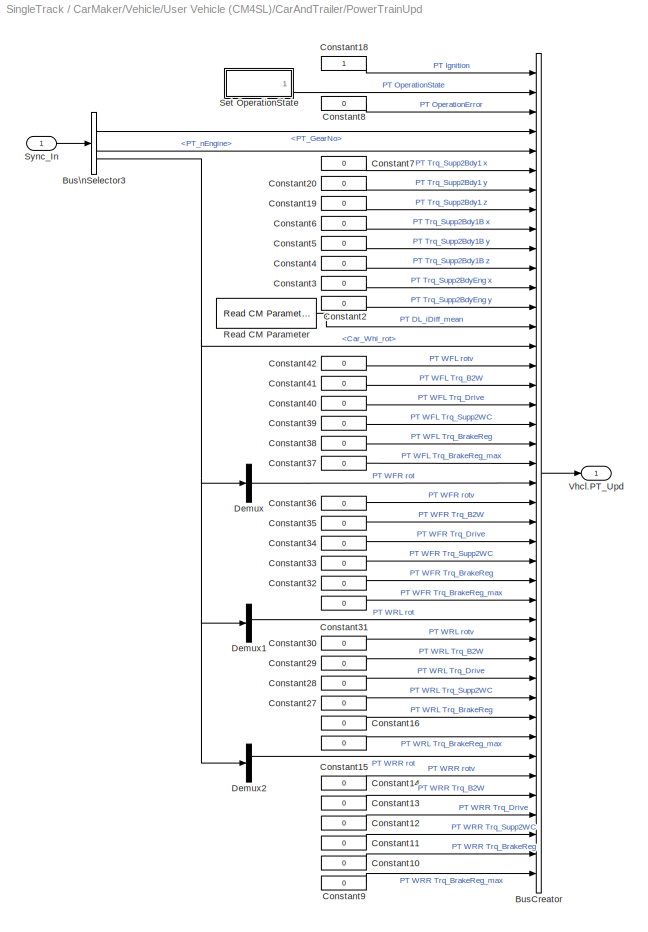
BLOCK [SubSystem] CarMaker/Vehicle/User Vehicle (CM4SL)/CarAndTrailer/PowerTrainUpd
  Ports = [1, 1]
  RequestExecContextInheritance = off
  SID = 2844
BLOCK [BusCreator] CarMaker/Vehicle/User Vehicle (CM4SL)/CarAndTrailer/PowerTrainUpd/BusCreator
  InheritFromInputs = on
  Inputs = 42
  Ports = [42, 1]
  SID = 2847
BLOCK [BusSelector] CarMaker/Vehicle/User Vehicle (CM4SL)/CarAndTrailer/PowerTrainUpd/Bus\nSelector3
  OutputSignals = PT_GearNo,PT_nEngine,Car_Whl_rot
  Ports = [1, 3]
  SID = 2846
BLOCK [Constant] CarMaker/Vehicle/User Vehicle (CM4SL)/CarAndTrailer/PowerTrainUpd/Constant10
  SID = 2849
  Value = 0
BLOCK [Constant] CarMaker/Vehicle/User Vehicle (CM4SL)/CarAndTrailer/PowerTrainUpd/Constant11
  SID = 2850
  Value = 0
BLOCK [Constant] CarMaker/Vehicle/User Vehicle (CM4SL)/CarAndTrailer/PowerTrainUpd/Constant12
  SID = 2851
  Value = 0
BLOCK [Constant] CarMaker/Vehicle/User Vehicle (CM4SL)/CarAndTrailer/PowerTrainUpd/Constant13
  SID = 2852
  Value = 0
BLOCK [Constant] CarMaker/Vehicle/User Vehicle (CM4SL)/CarAndTrailer/PowerTrainUpd/Constant14
  SID = 2853
  Value = 0
BLOCK [Constant] CarMaker/Vehicle/User Vehicle (CM4SL)/CarAndTrailer/PowerTrainUpd/Constant15
  SID = 2854
  Value = 0
BLOCK [Constant] CarMaker/Vehicle/User Vehicle (CM4SL)/CarAndTrailer/PowerTrainUpd/Constant16
  SID = 2855
  Value = 0
BLOCK [Constant] CarMaker/Vehicle/User Vehicle (CM4SL)/CarAndTrailer/PowerTrainUpd/Constant18
  SID = 2857
BLOCK [Constant] CarMaker/Vehicle/User Vehicle (CM4SL)/CarAndTrailer/PowerTrainUpd/Constant19
  SID = 3255
  Value = 0
BLOCK [Constant] CarMaker/Vehicle/User Vehicle (CM4SL)/CarAndTrailer/PowerTrainUpd/Constant2
  SID = 2858
  Value = 0
BLOCK [Constant] CarMaker/Vehicle/User Vehicle (CM4SL)/CarAndTrailer/PowerTrainUpd/Constant20
  SID = 3256
  Value = 0
BLOCK [Constant] CarMaker/Vehicle/User Vehicle (CM4SL)/CarAndTrailer/PowerTrainUpd/Constant27
  SID = 2859
  Value = 0
BLOCK [Constant] CarMaker/Vehicle/User Vehicle (CM4SL)/CarAndTrailer/PowerTrainUpd/Constant28
  SID = 2860
  Value = 0
BLOCK [Constant] CarMaker/Vehicle/User Vehicle (CM4SL)/CarAndTrailer/PowerTrainUpd/Constant29
  SID = 2861
  Value = 0
BLOCK [Constant] CarMaker/Vehicle/User Vehicle (CM4SL)/CarAndTrailer/PowerTrainUpd/Constant3
  SID = 2862
  Value = 0
BLOCK [Constant] CarMaker/Vehicle/User Vehicle (CM4SL)/CarAndTrailer/PowerTrainUpd/Constant30
  SID = 2863
  Value = 0
BLOCK [Constant] CarMaker/Vehicle/User Vehicle (CM4SL)/CarAndTrailer/PowerTrainUpd/Constant31
  SID = 2864
  Value = 0
BLOCK [Constant] CarMaker/Vehicle/User Vehicle (CM4SL)/CarAndTrailer/PowerTrainUpd/Constant32
  SID = 2865
  Value = 0
BLOCK [Constant] CarMaker/Vehicle/User Vehicle (CM4SL)/CarAndTrailer/PowerTrainUpd/Constant33
  SID = 2866
  Value = 0
BLOCK [Constant] CarMaker/Vehicle/User Vehicle (CM4SL)/CarAndTrailer/PowerTrainUpd/Constant34
  SID = 2867
  Value = 0
BLOCK [Constant] CarMaker/Vehicle/User Vehicle (CM4SL)/CarAndTrailer/PowerTrainUpd/Constant35
  SID = 2868
  Value = 0
BLOCK [Constant] CarMaker/Vehicle/User Vehicle (CM4SL)/CarAndTrailer/PowerTrainUpd/Constant36
  SID = 2869
  Value = 0
BLOCK [Constant] CarMaker/Vehicle/User Vehicle (CM4SL)/CarAndTrailer/PowerTrainUpd/Constant37
  SID = 2870
  Value = 0
BLOCK [Constant] CarMaker/Vehicle/User Vehicle (CM4SL)/CarAndTrailer/PowerTrainUpd/Constant38
  SID = 2871
  Value = 0
BLOCK [Constant] CarMaker/Vehicle/User Vehicle (CM4SL)/CarAndTrailer/PowerTrainUpd/Constant39
  SID = 2872
  Value = 0
BLOCK [Constant] CarMaker/Vehicle/User Vehicle (CM4SL)/CarAndTrailer/PowerTrainUpd/Constant4
  SID = 2873
  Value = 0
BLOCK [Constant] CarMaker/Vehicle/User Vehicle (CM4SL)/CarAndTrailer/PowerTrainUpd/Constant40
  SID = 2874
  Value = 0
BLOCK [Constant] CarMaker/Vehicle/User Vehicle (CM4SL)/CarAndTrailer/PowerTrainUpd/Constant41
  SID = 2875
  Value = 0
BLOCK [Constant] CarMaker/Vehicle/User Vehicle (CM4SL)/CarAndTrailer/PowerTrainUpd/Constant42
  SID = 2876
  Value = 0
BLOCK [Constant] CarMaker/Vehicle/User Vehicle (CM4SL)/CarAndTrailer/PowerTrainUpd/Constant5
  SID = 2877
  Value = 0
BLOCK [Constant] CarMaker/Vehicle/User Vehicle (CM4SL)/CarAndTrailer/PowerTrainUpd/Constant6
  SID = 2878
  Value = 0
BLOCK [Constant] CarMaker/Vehicle/User Vehicle (CM4SL)/CarAndTrailer/PowerTrainUpd/Constant7
  SID = 2879
  Value = 0
BLOCK [Constant] CarMaker/Vehicle/User Vehicle (CM4SL)/CarAndTrailer/PowerTrainUpd/Constant8
  SID = 2880
  Value = 0
BLOCK [Constant] CarMaker/Vehicle/User Vehicle (CM4SL)/CarAndTrailer/PowerTrainUpd/Constant9
  SID = 2881
  Value = 0
BLOCK [Demux] CarMaker/Vehicle/User Vehicle (CM4SL)/CarAndTrailer/PowerTrainUpd/Demux
  Outputs = 1
  Ports = [1, 1]
  SID = 2882
BLOCK [Demux] CarMaker/Vehicle/User Vehicle (CM4SL)/CarAndTrailer/PowerTrainUpd/Demux1
  Outputs = 1
  Ports = [1, 1]
  SID = 2883
BLOCK [Demux] CarMaker/Vehicle/User Vehicle (CM4SL)/CarAndTrailer/PowerTrainUpd/Demux2
  Outputs = 1
  Ports = [1, 1]
  SID = 2884
BLOCK [Reference] CarMaker/Vehicle/User Vehicle (CM4SL)/CarAndTrailer/PowerTrainUpd/Read CM Parameter  REF=CarMaker4SL/Read CM Parameter
  MultiThreadCoSim = auto
  Ports = [0, 1]
  SID = 3789
  SourceBlock = CarMaker4SL/Read CM Parameter
  SourceType = Read CarMaker Info File Parameter
  xdefaults = 1
  xfile = Vehicle
  xkey = PowerTrain.DL.iDiff
  xmuxed = off
  xnout = 1
  xstime = Continuous
BLOCK [SubSystem] CarMaker/Vehicle/User Vehicle (CM4SL)/CarAndTrailer/PowerTrainUpd/Set OperationState
  Ports = [0, 1]
  RequestExecContextInheritance = off
  SID = 3790
BLOCK [If] CarMaker/Vehicle/User Vehicle (CM4SL)/CarAndTrailer/PowerTrainUpd/Set OperationState/If
  IfExpression = u1 >= 9
  Ports = [1, 2]
  SID = 3807
BLOCK [SubSystem] CarMaker/Vehicle/User Vehicle (CM4SL)/CarAndTrailer/PowerTrainUpd/Set OperationState/If Action\nSubsystem
  Ports = [1, 1, 0, 0, 0, 0, 0, 1]
  RequestExecContextInheritance = off
  SID = 3808
  TreatAsAtomicUnit = on
BLOCK [Abs] CarMaker/Vehicle/User Vehicle (CM4SL)/CarAndTrailer/PowerTrainUpd/Set OperationState/If Action\nSubsystem/Abs
  SID = 3821
  SaturateOnIntegerOverflow = off
BLOCK [ActionPort] CarMaker/Vehicle/User Vehicle (CM4SL)/CarAndTrailer/PowerTrainUpd/Set OperationState/If Action\nSubsystem/Action Port
  ActionPortLabel = if { }
  SID = 3810
BLOCK [If] CarMaker/Vehicle/User Vehicle (CM4SL)/CarAndTrailer/PowerTrainUpd/Set OperationState/If Action\nSubsystem/If
  IfExpression = u1 <= 0.0175
  Ports = [1, 2]
  SID = 3823
BLOCK [SubSystem] CarMaker/Vehicle/User Vehicle (CM4SL)/CarAndTrailer/PowerTrainUpd/Set OperationState/If Action\nSubsystem/If Action\nSubsystem
  Ports = [1, 1, 0, 0, 0, 0, 0, 1]
  RequestExecContextInheritance = off
  SID = 3824
  TreatAsAtomicUnit = on
BLOCK [ActionPort] CarMaker/Vehicle/User Vehicle (CM4SL)/CarAndTrailer/PowerTrainUpd/Set OperationState/If Action\nSubsystem/If Action\nSubsystem/Action Port
  ActionPortLabel = if { }
  SID = 3826
BLOCK [Inport] CarMaker/Vehicle/User Vehicle (CM4SL)/CarAndTrailer/PowerTrainUpd/Set OperationState/If Action\nSubsystem/If Action\nSubsystem/In1
  SID = 3825
BLOCK [Outport] CarMaker/Vehicle/User Vehicle (CM4SL)/CarAndTrailer/PowerTrainUpd/Set OperationState/If Action\nSubsystem/If Action\nSubsystem/Out1
  SID = 3830
  VectorParamsAs1DForOutWhenUnconnected = off
BLOCK [SubSystem] CarMaker/Vehicle/User Vehicle (CM4SL)/CarAndTrailer/PowerTrainUpd/Set OperationState/If Action\nSubsystem/If Action\nSubsystem1
  Ports = [1, 1, 0, 0, 0, 0, 0, 1]
  RequestExecContextInheritance = off
  SID = 3832
  TreatAsAtomicUnit = on
BLOCK [ActionPort] CarMaker/Vehicle/User Vehicle (CM4SL)/CarAndTrailer/PowerTrainUpd/Set OperationState/If Action\nSubsystem/If Action\nSubsystem1/Action Port
  ActionPortLabel = else { }
  SID = 3834
BLOCK [Inport] CarMaker/Vehicle/User Vehicle (CM4SL)/CarAndTrailer/PowerTrainUpd/Set OperationState/If Action\nSubsystem/If Action\nSubsystem1/In1
  SID = 3833
BLOCK [Outport] CarMaker/Vehicle/User Vehicle (CM4SL)/CarAndTrailer/PowerTrainUpd/Set OperationState/If Action\nSubsystem/If Action\nSubsystem1/Out1
  SID = 3838
  VectorParamsAs1DForOutWhenUnconnected = off
BLOCK [Inport] CarMaker/Vehicle/User Vehicle (CM4SL)/CarAndTrailer/PowerTrainUpd/Set OperationState/If Action\nSubsystem/In1
  SID = 3809
BLOCK [Merge] CarMaker/Vehicle/User Vehicle (CM4SL)/CarAndTrailer/PowerTrainUpd/Set OperationState/If Action\nSubsystem/Merge
  Ports = [2, 1]
  SID = 3831
BLOCK [Outport] CarMaker/Vehicle/User Vehicle (CM4SL)/CarAndTrailer/PowerTrainUpd/Set OperationState/If Action\nSubsystem/Out1
  SID = 3811
  VectorParamsAs1DForOutWhenUnconnected = off
BLOCK [Reference] CarMaker/Vehicle/User Vehicle (CM4SL)/CarAndTrailer/PowerTrainUpd/Set OperationState/If Action\nSubsystem/Read CM Dict1  REF=CarMaker4SL/Read CM Dict
  MultiThreadCoSim = auto
  Ports = [0, 1]
  SID = 3819
  SourceBlock = CarMaker4SL/Read CM Dict
  SourceType = Read CarMaker Dictionary Variable(s)
  xname = VC.Steer.Ang
  xstime = Continuous
  xsync = off
BLOCK [Reference] CarMaker/Vehicle/User Vehicle (CM4SL)/CarAndTrailer/PowerTrainUpd/Set OperationState/If Action\nSubsystem/Read CM Dict2  REF=CarMaker4SL/Read CM Dict
  MultiThreadCoSim = auto
  Ports = [0, 1]
  SID = 3840
  SourceBlock = CarMaker4SL/Read CM Dict
  SourceType = Read CarMaker Dictionary Variable(s)
  xname = Vhcl.OperationState
  xstime = Continuous
  xsync = off
BLOCK [SubSystem] CarMaker/Vehicle/User Vehicle (CM4SL)/CarAndTrailer/PowerTrainUpd/Set OperationState/If Action\nSubsystem1
  Ports = [1, 1, 0, 0, 0, 0, 0, 1]
  RequestExecContextInheritance = off
  SID = 3813
  TreatAsAtomicUnit = on
BLOCK [ActionPort] CarMaker/Vehicle/User Vehicle (CM4SL)/CarAndTrailer/PowerTrainUpd/Set OperationState/If Action\nSubsystem1/Action Port
  ActionPortLabel = else { }
  SID = 3815
BLOCK [Inport] CarMaker/Vehicle/User Vehicle (CM4SL)/CarAndTrailer/PowerTrainUpd/Set OperationState/If Action\nSubsystem1/In1
  SID = 3814
BLOCK [Outport] CarMaker/Vehicle/User Vehicle (CM4SL)/CarAndTrailer/PowerTrainUpd/Set OperationState/If Action\nSubsystem1/Out1
  SID = 3816
  VectorParamsAs1DForOutWhenUnconnected = off
BLOCK [Merge] CarMaker/Vehicle/User Vehicle (CM4SL)/CarAndTrailer/PowerTrainUpd/Set OperationState/Merge
  Ports = [2, 1]
  SID = 3812
BLOCK [Outport] CarMaker/Vehicle/User Vehicle (CM4SL)/CarAndTrailer/PowerTrainUpd/Set OperationState/OperationState
  SID = 3806
  VectorParamsAs1DForOutWhenUnconnected = off
BLOCK [Reference] CarMaker/Vehicle/User Vehicle (CM4SL)/CarAndTrailer/PowerTrainUpd/Set OperationState/Read CM Dict  REF=CarMaker4SL/Read CM Dict
  MultiThreadCoSim = auto
  Ports = [0, 1]
  SID = 3817
  SourceBlock = CarMaker4SL/Read CM Dict
  SourceType = Read CarMaker Dictionary Variable(s)
  xname = SC.State
  xstime = Continuous
  xsync = off
BLOCK [Reference] CarMaker/Vehicle/User Vehicle (CM4SL)/CarAndTrailer/PowerTrainUpd/Set OperationState/Read CM Dict1  REF=CarMaker4SL/Read CM Dict
  MultiThreadCoSim = auto
  Ports = [0, 1]
  SID = 3818
  SourceBlock = CarMaker4SL/Read CM Dict
  SourceType = Read CarMaker Dictionary Variable(s)
  xname = DM.OperationState_trg
  xstime = Continuous
  xsync = off
BLOCK [Inport] CarMaker/Vehicle/User Vehicle (CM4SL)/CarAndTrailer/PowerTrainUpd/Sync_In
  SID = 2845
BLOCK [Outport] CarMaker/Vehicle/User Vehicle (CM4SL)/CarAndTrailer/PowerTrainUpd/Vhcl.PT_Upd
  SID = 2885
  VectorParamsAs1DForOutWhenUnconnected = off
BLOCK [SubSystem] CarMaker/Vehicle/User Vehicle (CM4SL)/CarAndTrailer/Query Road
  Ports = [1, 4]
  RequestExecContextInheritance = off
  SID = 2886
BLOCK [BusSelector] CarMaker/Vehicle/User Vehicle (CM4SL)/CarAndTrailer/Query Road/Bus\nSelector1
  OutputSignals = Car_Dist,Car_x,Car_y
  Ports = [1, 3]
  SID = 2888
BLOCK [BusSelector] CarMaker/Vehicle/User Vehicle (CM4SL)/CarAndTrailer/Query Road/Bus\nSelector2
  OutputSignals = z,slope,grade,s
  Ports = [1, 4]
  SID = 2889
BLOCK [Constant] CarMaker/Vehicle/User Vehicle (CM4SL)/CarAndTrailer/Query Road/Constant1
  SID = 2890
  Value = 0
BLOCK [Constant] CarMaker/Vehicle/User Vehicle (CM4SL)/CarAndTrailer/Query Road/Constant2
  SID = 2891
  Value = 0
BLOCK [Outport] CarMaker/Vehicle/User Vehicle (CM4SL)/CarAndTrailer/Query Road/Fr1_rx
  Port = 2
  SID = 2900
  VectorParamsAs1DForOutWhenUnconnected = off
BLOCK [Outport] CarMaker/Vehicle/User Vehicle (CM4SL)/CarAndTrailer/Query Road/Fr1_ry
  Port = 3
  SID = 2901
  VectorParamsAs1DForOutWhenUnconnected = off
BLOCK [Outport] CarMaker/Vehicle/User Vehicle (CM4SL)/CarAndTrailer/Query Road/Fr1_z
  SID = 2899
  VectorParamsAs1DForOutWhenUnconnected = off
BLOCK [SubSystem] CarMaker/Vehicle/User Vehicle (CM4SL)/CarAndTrailer/Query Road/IPGRoad5
  Ports = [2, 2]
  RequestExecContextInheritance = off
  SID = 2892
BLOCK [BusCreator] CarMaker/Vehicle/User Vehicle (CM4SL)/CarAndTrailer/Query Road/IPGRoad5/Bus\nCreator1
  DisplayOption = bar
  InheritFromInputs = on
  Inputs = 9
  Ports = [9, 1]
  SID = 3717
BLOCK [BusCreator] CarMaker/Vehicle/User Vehicle (CM4SL)/CarAndTrailer/Query Road/IPGRoad5/Bus\nCreator2
  DisplayOption = bar
  InheritFromInputs = on
  Inputs = 22
  Ports = [22, 1]
  SID = 3718
BLOCK [Demux] CarMaker/Vehicle/User Vehicle (CM4SL)/CarAndTrailer/Query Road/IPGRoad5/Demux1
  Outputs = 9
  Ports = [1, 9]
  SID = 3719
BLOCK [Demux] CarMaker/Vehicle/User Vehicle (CM4SL)/CarAndTrailer/Query Road/IPGRoad5/Demux3
  Outputs = 22
  Ports = [1, 22]
  SID = 3720
BLOCK [S-Function] CarMaker/Vehicle/User Vehicle (CM4SL)/CarAndTrailer/Query Road/IPGRoad5/S-Function
  EnableBusSupport = off
  FunctionName = cm_road
  Parameters = xname,xevalmode,xconsiderbumps,xusepath,xwithcurve,xabort
  Ports = [2, 2]
  SFcnIsStateOwnerBlock = off
  SFunctionDeploymentMode = off
  SID = 3721
BLOCK [Inport] CarMaker/Vehicle/User Vehicle (CM4SL)/CarAndTrailer/Query Road/IPGRoad5/rIn.st
  SID = 3715
BLOCK [Inport] CarMaker/Vehicle/User Vehicle (CM4SL)/CarAndTrailer/Query Road/IPGRoad5/rIn.xyz
  Port = 2
  SID = 3716
BLOCK [Outport] CarMaker/Vehicle/User Vehicle (CM4SL)/CarAndTrailer/Query Road/IPGRoad5/rOutGeo
  SID = 3722
  VectorParamsAs1DForOutWhenUnconnected = off
BLOCK [Outport] CarMaker/Vehicle/User Vehicle (CM4SL)/CarAndTrailer/Query Road/IPGRoad5/rOutRoute
  Port = 2
  SID = 3723
  VectorParamsAs1DForOutWhenUnconnected = off
BLOCK [Inport] CarMaker/Vehicle/User Vehicle (CM4SL)/CarAndTrailer/Query Road/In1
  SID = 2887
BLOCK [Mux] CarMaker/Vehicle/User Vehicle (CM4SL)/CarAndTrailer/Query Road/Mux
  DisplayOption = bar
  Inputs = 3
  Ports = [3, 1]
  SID = 2893
BLOCK [Mux] CarMaker/Vehicle/User Vehicle (CM4SL)/CarAndTrailer/Query Road/Mux1
  DisplayOption = bar
  Inputs = 2
  Ports = [2, 1]
  SID = 2894
BLOCK [Reference] CarMaker/Vehicle/User Vehicle (CM4SL)/CarAndTrailer/Query Road/Read CM Parameter  REF=CarMaker4SL/Read CM Parameter
  MultiThreadCoSim = auto
  Ports = [0, 1]
  SID = 3848
  SourceBlock = CarMaker4SL/Read CM Parameter
  SourceType = Read CarMaker Info File Parameter
  xdefaults = 0
  xfile = Vehicle
  xkey = Wheel.fl.pos
  xmuxed = on
  xnout = 1
  xstime = Continuous
BLOCK [Sum] CarMaker/Vehicle/User Vehicle (CM4SL)/CarAndTrailer/Query Road/Sum2
  IconShape = rectangular
  InputSameDT = on
  OutDataTypeStr = Inherit: Same as first input
  Ports = [2, 1]
  SID = 2896
  SaturateOnIntegerOverflow = on
BLOCK [Terminator] CarMaker/Vehicle/User Vehicle (CM4SL)/CarAndTrailer/Query Road/Terminator
  SID = 2897
BLOCK [Gain] CarMaker/Vehicle/User Vehicle (CM4SL)/CarAndTrailer/Query Road/neg
  Gain = -1
  OutDataTypeStr = Inherit: Same as input
  ParamDataTypeStr = Inherit: Same as input
  SID = 2898
  SaturateOnIntegerOverflow = on
BLOCK [Outport] CarMaker/Vehicle/User Vehicle (CM4SL)/CarAndTrailer/Query Road/sRoad
  Port = 4
  SID = 2902
  VectorParamsAs1DForOutWhenUnconnected = off
BLOCK [SubSystem] CarMaker/Vehicle/User Vehicle (CM4SL)/CarAndTrailer/SimStates
  Ports = []
  RequestExecContextInheritance = off
  SID = 2903
BLOCK [Goto] CarMaker/Vehicle/User Vehicle (CM4SL)/CarAndTrailer/SimStates/Goto
  GotoTag = TRStart
  SID = 2904
  TagVisibility = global
BLOCK [Goto] CarMaker/Vehicle/User Vehicle (CM4SL)/CarAndTrailer/SimStates/Goto1
  GotoTag = TRSim
  SID = 2905
  TagVisibility = global
BLOCK [Logic] CarMaker/Vehicle/User Vehicle (CM4SL)/CarAndTrailer/SimStates/Logical\nOperator
  AllPortsSameDT = off
  OutDataTypeStr = boolean
  Ports = [2, 1]
  SID = 2906
BLOCK [Logic] CarMaker/Vehicle/User Vehicle (CM4SL)/CarAndTrailer/SimStates/Logical\nOperator1
  AllPortsSameDT = off
  Operator = OR
  OutDataTypeStr = boolean
  Ports = [2, 1]
  SID = 2907
BLOCK [Memory] CarMaker/Vehicle/User Vehicle (CM4SL)/CarAndTrailer/SimStates/Memory
  SID = 2908
BLOCK [Reference] CarMaker/Vehicle/User Vehicle (CM4SL)/CarAndTrailer/SimStates/Read CM Dict  REF=CarMaker4SL/Read CM Dict
  MultiThreadCoSim = auto
  Ports = [0, 1]
  SID = 2909
  SourceBlock = CarMaker4SL/Read CM Dict
  SourceType = Read CarMaker Dictionary Variable(s)
  xname = SC.State
  xstime = Continuous
  xsync = off
BLOCK [Reference] CarMaker/Vehicle/User Vehicle (CM4SL)/CarAndTrailer/SimStates/Read CM Dict1  REF=CarMaker4SL/Read CM Dict
  MultiThreadCoSim = auto
  Ports = [0, 1]
  SID = 2910
  SourceBlock = CarMaker4SL/Read CM Dict
  SourceType = Read CarMaker Dictionary Variable(s)
  xname = Time
  xstime = Continuous
  xsync = off
BLOCK [RelationalOperator] CarMaker/Vehicle/User Vehicle (CM4SL)/CarAndTrailer/SimStates/Relational\nOperator
  InputSameDT = off
  Operator = <=
  OutDataTypeStr = boolean
  Ports = [2, 1]
  SID = 2911
BLOCK [RelationalOperator] CarMaker/Vehicle/User Vehicle (CM4SL)/CarAndTrailer/SimStates/Relational\nOperator1
  InputSameDT = off
  Operator = ==
  OutDataTypeStr = boolean
  Ports = [2, 1]
  SID = 2912
BLOCK [RelationalOperator] CarMaker/Vehicle/User Vehicle (CM4SL)/CarAndTrailer/SimStates/Relational\nOperator2
  InputSameDT = off
  Operator = ==
  OutDataTypeStr = boolean
  Ports = [2, 1]
  SID = 2913
BLOCK [Constant] CarMaker/Vehicle/User Vehicle (CM4SL)/CarAndTrailer/SimStates/SCState_Simulate
  SID = 2914
  Value = 8
BLOCK [Constant] CarMaker/Vehicle/User Vehicle (CM4SL)/CarAndTrailer/SimStates/Zero
  SID = 2915
  Value = 0
BLOCK [RelationalOperator] CarMaker/Vehicle/User Vehicle (CM4SL)/CarAndTrailer/SimStates/detect increase
  InputSameDT = off
  Operator = >
  OutDataTypeStr = boolean
  Ports = [2, 1]
  SID = 2916
BLOCK [Inport] CarMaker/Vehicle/User Vehicle (CM4SL)/CarAndTrailer/Sync_In
  SID = 2574
BLOCK [Outport] CarMaker/Vehicle/User Vehicle (CM4SL)/CarAndTrailer/Sync_Out
  SID = 3142
  VectorParamsAs1DForOutWhenUnconnected = off
BLOCK [Terminator] CarMaker/Vehicle/User Vehicle (CM4SL)/CarAndTrailer/Terminator
  SID = 2918
BLOCK [Terminator] CarMaker/Vehicle/User Vehicle (CM4SL)/CarAndTrailer/Terminator1
  SID = 2919
BLOCK [Inport] CarMaker/Vehicle/User Vehicle (CM4SL)/CarAndTrailer/Vhcl.Misc
  Port = 4
  SID = 2577
BLOCK [Inport] CarMaker/Vehicle/User Vehicle (CM4SL)/CarAndTrailer/Vhcl.Wheel.In
  Port = 3
  SID = 2576
BLOCK [Inport] CarMaker/Vehicle/User Vehicle (CM4SL)/CarAndTrailer/VhclCtrl.Brake
  Port = 5
  SID = 2578
BLOCK [Inport] CarMaker/Vehicle/User Vehicle (CM4SL)/CarAndTrailer/VhclCtrl.PT
  Port = 6
  SID = 2579
BLOCK [Inport] CarMaker/Vehicle/User Vehicle (CM4SL)/CarAndTrailer/VhclCtrl.Steering
  Port = 2
  SID = 2575
BLOCK [Outport] CarMaker/Vehicle/User Vehicle (CM4SL)/CarAndTrailer/Vhcl_PT_Upd
  Port = 3
  SID = 3144
  VectorParamsAs1DForOutWhenUnconnected = off
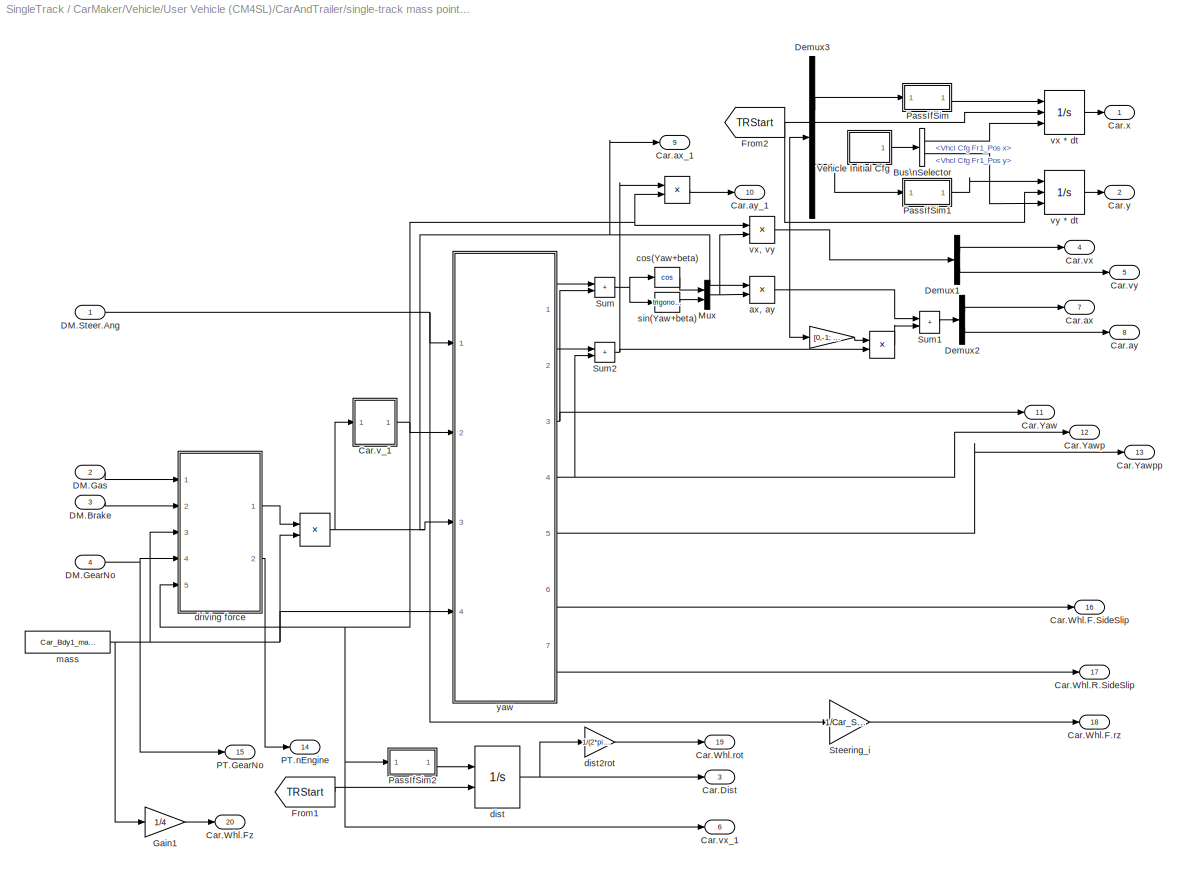
BLOCK [SubSystem] CarMaker/Vehicle/User Vehicle (CM4SL)/CarAndTrailer/single-track mass point model
  Ports = [4, 20]
  RequestExecContextInheritance = off
  SID = 2920
BLOCK [Gain] CarMaker/Vehicle/User Vehicle (CM4SL)/CarAndTrailer/single-track mass point model/ 
  Gain = [0,-1; 1,0]
  Multiplication = Matrix(K*u)
  OutDataTypeStr = Inherit: Same as input
  ParamDataTypeStr = Inherit: Same as input
  SID = 2925
  SaturateOnIntegerOverflow = on
BLOCK [Product] CarMaker/Vehicle/User Vehicle (CM4SL)/CarAndTrailer/single-track mass point model/   
  InputSameDT = on
  OutDataTypeStr = Inherit: Same as first input
  Ports = [2, 1]
  SID = 2926
  SaturateOnIntegerOverflow = on
BLOCK [Product] CarMaker/Vehicle/User Vehicle (CM4SL)/CarAndTrailer/single-track mass point model/     
  InputSameDT = on
  OutDataTypeStr = Inherit: Same as first input
  Ports = [2, 1]
  SID = 2927
  SaturateOnIntegerOverflow = on
BLOCK [Product] CarMaker/Vehicle/User Vehicle (CM4SL)/CarAndTrailer/single-track mass point model/      
  InputSameDT = on
  Inputs = */
  OutDataTypeStr = Inherit: Same as first input
  Ports = [2, 1]
  SID = 2928
  SaturateOnIntegerOverflow = on
BLOCK [BusSelector] CarMaker/Vehicle/User Vehicle (CM4SL)/CarAndTrailer/single-track mass point model/Bus\nSelector
  OutputSignals = Vhcl Cfg Fr1_Pos x,Vhcl Cfg Fr1_Pos y
  Ports = [1, 2]
  SID = 2929
BLOCK [Outport] CarMaker/Vehicle/User Vehicle (CM4SL)/CarAndTrailer/single-track mass point model/Car.Dist
  Port = 3
  SID = 3124
  VectorParamsAs1DForOutWhenUnconnected = off
BLOCK [Outport] CarMaker/Vehicle/User Vehicle (CM4SL)/CarAndTrailer/single-track mass point model/Car.Whl.F.SideSlip
  Port = 16
  SID = 3137
  VectorParamsAs1DForOutWhenUnconnected = off
BLOCK [Outport] CarMaker/Vehicle/User Vehicle (CM4SL)/CarAndTrailer/single-track mass point model/Car.Whl.F.rz
  Port = 18
  SID = 3139
  VectorParamsAs1DForOutWhenUnconnected = off
BLOCK [Outport] CarMaker/Vehicle/User Vehicle (CM4SL)/CarAndTrailer/single-track mass point model/Car.Whl.Fz
  Port = 20
  SID = 3141
  VectorParamsAs1DForOutWhenUnconnected = off
BLOCK [Outport] CarMaker/Vehicle/User Vehicle (CM4SL)/CarAndTrailer/single-track mass point model/Car.Whl.R.SideSlip
  Port = 17
  SID = 3138
  VectorParamsAs1DForOutWhenUnconnected = off
BLOCK [Outport] CarMaker/Vehicle/User Vehicle (CM4SL)/CarAndTrailer/single-track mass point model/Car.Whl.rot
  Port = 19
  SID = 3140
  VectorParamsAs1DForOutWhenUnconnected = off
BLOCK [Outport] CarMaker/Vehicle/User Vehicle (CM4SL)/CarAndTrailer/single-track mass point model/Car.Yaw 
  Port = 11
  SID = 3132
  VectorParamsAs1DForOutWhenUnconnected = off
BLOCK [Outport] CarMaker/Vehicle/User Vehicle (CM4SL)/CarAndTrailer/single-track mass point model/Car.Yawp
  Port = 12
  SID = 3133
  VectorParamsAs1DForOutWhenUnconnected = off
BLOCK [Outport] CarMaker/Vehicle/User Vehicle (CM4SL)/CarAndTrailer/single-track mass point model/Car.Yawpp
  Port = 13
  SID = 3134
  VectorParamsAs1DForOutWhenUnconnected = off
BLOCK [Outport] CarMaker/Vehicle/User Vehicle (CM4SL)/CarAndTrailer/single-track mass point model/Car.ax
  Port = 7
  SID = 3128
  VectorParamsAs1DForOutWhenUnconnected = off
BLOCK [Outport] CarMaker/Vehicle/User Vehicle (CM4SL)/CarAndTrailer/single-track mass point model/Car.ax_1
  Port = 9
  SID = 3130
  VectorParamsAs1DForOutWhenUnconnected = off
BLOCK [Outport] CarMaker/Vehicle/User Vehicle (CM4SL)/CarAndTrailer/single-track mass point model/Car.ay
  Port = 8
  SID = 3129
  VectorParamsAs1DForOutWhenUnconnected = off
BLOCK [Outport] CarMaker/Vehicle/User Vehicle (CM4SL)/CarAndTrailer/single-track mass point model/Car.ay_1
  Port = 10
  SID = 3131
  VectorParamsAs1DForOutWhenUnconnected = off
BLOCK [SubSystem] CarMaker/Vehicle/User Vehicle (CM4SL)/CarAndTrailer/single-track mass point model/Car.v_1
  Ports = [1, 1]
  RequestExecContextInheritance = off
  SID = 2930
BLOCK [Constant] CarMaker/Vehicle/User Vehicle (CM4SL)/CarAndTrailer/single-track mass point model/Car.v_1/Constant1
  SID = 2932
  Value = 0.1
BLOCK [From] CarMaker/Vehicle/User Vehicle (CM4SL)/CarAndTrailer/single-track mass point model/Car.v_1/From
  CloseFcn = tagdialog Close
  GotoTag = TRStart
  SID = 2933
  TagVisibility = global
BLOCK [SubSystem] CarMaker/Vehicle/User Vehicle (CM4SL)/CarAndTrailer/single-track mass point model/Car.v_1/PassIfSim
  Ports = [1, 1]
  RequestExecContextInheritance = off
  SID = 2934
BLOCK [Product] CarMaker/Vehicle/User Vehicle (CM4SL)/CarAndTrailer/single-track mass point model/Car.v_1/PassIfSim/   
  InputSameDT = on
  OutDataTypeStr = Inherit: Same as first input
  Ports = [2, 1]
  SID = 2936
  SaturateOnIntegerOverflow = on
BLOCK [DataTypeConversion] CarMaker/Vehicle/User Vehicle (CM4SL)/CarAndTrailer/single-track mass point model/Car.v_1/PassIfSim/Data Type Conversion
  RndMeth = Floor
  SID = 2937
  SaturateOnIntegerOverflow = off
BLOCK [From] CarMaker/Vehicle/User Vehicle (CM4SL)/CarAndTrailer/single-track mass point model/Car.v_1/PassIfSim/From1
  CloseFcn = tagdialog Close
  GotoTag = TRSim
  SID = 2938
  TagVisibility = global
BLOCK [Inport] CarMaker/Vehicle/User Vehicle (CM4SL)/CarAndTrailer/single-track mass point model/Car.v_1/PassIfSim/In1
  SID = 2935
BLOCK [Outport] CarMaker/Vehicle/User Vehicle (CM4SL)/CarAndTrailer/single-track mass point model/Car.v_1/PassIfSim/Out1
  SID = 2939
  VectorParamsAs1DForOutWhenUnconnected = off
BLOCK [Reference] CarMaker/Vehicle/User Vehicle (CM4SL)/CarAndTrailer/single-track mass point model/Car.v_1/Read CM Parameter  REF=CarMaker4SL/Read CM Parameter
  MultiThreadCoSim = auto
  Ports = [0, 1]
  SID = 3847
  SourceBlock = CarMaker4SL/Read CM Parameter
  SourceType = Read CarMaker Info File Parameter
  xdefaults = 0
  xfile = Testrun
  xkey = DrivMan.Man.Start.Velocity
  xmuxed = on
  xnout = 1
  xstime = Continuous
BLOCK [Inport] CarMaker/Vehicle/User Vehicle (CM4SL)/CarAndTrailer/single-track mass point model/Car.v_1/ax
  SID = 2931
BLOCK [Gain] CarMaker/Vehicle/User Vehicle (CM4SL)/CarAndTrailer/single-track mass point model/Car.v_1/kmh2ms
  Gain = 1000/3600
  OutDataTypeStr = Inherit: Inherit via back propagation
  ParamDataTypeStr = Inherit: Same as input
  SID = 2942
  SaturateOnIntegerOverflow = on
BLOCK [MinMax] CarMaker/Vehicle/User Vehicle (CM4SL)/CarAndTrailer/single-track mass point model/Car.v_1/vMin
  Function = max
  InputSameDT = on
  Inputs = 2
  Ports = [2, 1]
  SID = 2943
  SaturateOnIntegerOverflow = on
BLOCK [Outport] CarMaker/Vehicle/User Vehicle (CM4SL)/CarAndTrailer/single-track mass point model/Car.v_1/v_1
  SID = 2945
  VectorParamsAs1DForOutWhenUnconnected = off
BLOCK [Integrator] CarMaker/Vehicle/User Vehicle (CM4SL)/CarAndTrailer/single-track mass point model/Car.v_1/v_dot * dt
  ExternalReset = level
  InitialCondition = 22.222
  InitialConditionSource = external
  Ports = [3, 1]
  SID = 2944
BLOCK [Outport] CarMaker/Vehicle/User Vehicle (CM4SL)/CarAndTrailer/single-track mass point model/Car.vx
  Port = 4
  SID = 3125
  VectorParamsAs1DForOutWhenUnconnected = off
BLOCK [Outport] CarMaker/Vehicle/User Vehicle (CM4SL)/CarAndTrailer/single-track mass point model/Car.vx_1
  Port = 6
  SID = 3127
  VectorParamsAs1DForOutWhenUnconnected = off
BLOCK [Outport] CarMaker/Vehicle/User Vehicle (CM4SL)/CarAndTrailer/single-track mass point model/Car.vy
  Port = 5
  SID = 3126
  VectorParamsAs1DForOutWhenUnconnected = off
BLOCK [Outport] CarMaker/Vehicle/User Vehicle (CM4SL)/CarAndTrailer/single-track mass point model/Car.x
  SID = 3122
  VectorParamsAs1DForOutWhenUnconnected = off
BLOCK [Outport] CarMaker/Vehicle/User Vehicle (CM4SL)/CarAndTrailer/single-track mass point model/Car.y
  Port = 2
  SID = 3123
  VectorParamsAs1DForOutWhenUnconnected = off
BLOCK [Inport] CarMaker/Vehicle/User Vehicle (CM4SL)/CarAndTrailer/single-track mass point model/DM.Brake
  Port = 3
  SID = 2923
BLOCK [Inport] CarMaker/Vehicle/User Vehicle (CM4SL)/CarAndTrailer/single-track mass point model/DM.Gas
  Port = 2
  SID = 2922
BLOCK [Inport] CarMaker/Vehicle/User Vehicle (CM4SL)/CarAndTrailer/single-track mass point model/DM.GearNo
  Port = 4
  SID = 2924
BLOCK [Inport] CarMaker/Vehicle/User Vehicle (CM4SL)/CarAndTrailer/single-track mass point model/DM.Steer.Ang
  SID = 2921
BLOCK [Demux] CarMaker/Vehicle/User Vehicle (CM4SL)/CarAndTrailer/single-track mass point model/Demux1
  DisplayOption = none
  Outputs = 2
  Ports = [1, 2]
  SID = 2946
BLOCK [Demux] CarMaker/Vehicle/User Vehicle (CM4SL)/CarAndTrailer/single-track mass point model/Demux2
  DisplayOption = none
  Outputs = 2
  Ports = [1, 2]
  SID = 2947
BLOCK [Demux] CarMaker/Vehicle/User Vehicle (CM4SL)/CarAndTrailer/single-track mass point model/Demux3
  DisplayOption = none
  Outputs = 2
  Ports = [1, 2]
  SID = 2948
BLOCK [From] CarMaker/Vehicle/User Vehicle (CM4SL)/CarAndTrailer/single-track mass point model/From1
  CloseFcn = tagdialog Close
  GotoTag = TRStart
  SID = 2949
  TagVisibility = global
BLOCK [From] CarMaker/Vehicle/User Vehicle (CM4SL)/CarAndTrailer/single-track mass point model/From2
  CloseFcn = tagdialog Close
  GotoTag = TRStart
  SID = 2950
  TagVisibility = global
BLOCK [Gain] CarMaker/Vehicle/User Vehicle (CM4SL)/CarAndTrailer/single-track mass point model/Gain1
  Gain = 1/4
  SID = 2951
BLOCK [Mux] CarMaker/Vehicle/User Vehicle (CM4SL)/CarAndTrailer/single-track mass point model/Mux
  DisplayOption = bar
  Inputs = 2
  Ports = [2, 1]
  SID = 2952
BLOCK [Outport] CarMaker/Vehicle/User Vehicle (CM4SL)/CarAndTrailer/single-track mass point model/PT.GearNo
  Port = 15
  SID = 3136
  VectorParamsAs1DForOutWhenUnconnected = off
BLOCK [Outport] CarMaker/Vehicle/User Vehicle (CM4SL)/CarAndTrailer/single-track mass point model/PT.nEngine
  Port = 14
  SID = 3135
  VectorParamsAs1DForOutWhenUnconnected = off
BLOCK [SubSystem] CarMaker/Vehicle/User Vehicle (CM4SL)/CarAndTrailer/single-track mass point model/PassIfSim
  Ports = [1, 1]
  RequestExecContextInheritance = off
  SID = 2953
BLOCK [Product] CarMaker/Vehicle/User Vehicle (CM4SL)/CarAndTrailer/single-track mass point model/PassIfSim/   
  InputSameDT = on
  OutDataTypeStr = Inherit: Same as first input
  Ports = [2, 1]
  SID = 2955
  SaturateOnIntegerOverflow = on
BLOCK [DataTypeConversion] CarMaker/Vehicle/User Vehicle (CM4SL)/CarAndTrailer/single-track mass point model/PassIfSim/Data Type Conversion
  RndMeth = Floor
  SID = 2956
  SaturateOnIntegerOverflow = off
BLOCK [From] CarMaker/Vehicle/User Vehicle (CM4SL)/CarAndTrailer/single-track mass point model/PassIfSim/From1
  CloseFcn = tagdialog Close
  GotoTag = TRSim
  SID = 2957
  TagVisibility = global
BLOCK [Inport] CarMaker/Vehicle/User Vehicle (CM4SL)/CarAndTrailer/single-track mass point model/PassIfSim/In1
  SID = 2954
BLOCK [Outport] CarMaker/Vehicle/User Vehicle (CM4SL)/CarAndTrailer/single-track mass point model/PassIfSim/Out1
  SID = 2958
  VectorParamsAs1DForOutWhenUnconnected = off
BLOCK [SubSystem] CarMaker/Vehicle/User Vehicle (CM4SL)/CarAndTrailer/single-track mass point model/PassIfSim1
  Ports = [1, 1]
  RequestExecContextInheritance = off
  SID = 2960
BLOCK [Product] CarMaker/Vehicle/User Vehicle (CM4SL)/CarAndTrailer/single-track mass point model/PassIfSim1/   
  InputSameDT = on
  OutDataTypeStr = Inherit: Same as first input
  Ports = [2, 1]
  SID = 2962
  SaturateOnIntegerOverflow = on
BLOCK [DataTypeConversion] CarMaker/Vehicle/User Vehicle (CM4SL)/CarAndTrailer/single-track mass point model/PassIfSim1/Data Type Conversion
  RndMeth = Floor
  SID = 2963
  SaturateOnIntegerOverflow = off
BLOCK [From] CarMaker/Vehicle/User Vehicle (CM4SL)/CarAndTrailer/single-track mass point model/PassIfSim1/From1
  CloseFcn = tagdialog Close
  GotoTag = TRSim
  SID = 2964
  TagVisibility = global
BLOCK [Inport] CarMaker/Vehicle/User Vehicle (CM4SL)/CarAndTrailer/single-track mass point model/PassIfSim1/In1
  SID = 2961
BLOCK [Outport] CarMaker/Vehicle/User Vehicle (CM4SL)/CarAndTrailer/single-track mass point model/PassIfSim1/Out1
  SID = 2965
  VectorParamsAs1DForOutWhenUnconnected = off
BLOCK [SubSystem] CarMaker/Vehicle/User Vehicle (CM4SL)/CarAndTrailer/single-track mass point model/PassIfSim2
  Ports = [1, 1]
  RequestExecContextInheritance = off
  SID = 2967
BLOCK [Product] CarMaker/Vehicle/User Vehicle (CM4SL)/CarAndTrailer/single-track mass point model/PassIfSim2/   
  InputSameDT = on
  OutDataTypeStr = Inherit: Same as first input
  Ports = [2, 1]
  SID = 2969
  SaturateOnIntegerOverflow = on
BLOCK [DataTypeConversion] CarMaker/Vehicle/User Vehicle (CM4SL)/CarAndTrailer/single-track mass point model/PassIfSim2/Data Type Conversion
  RndMeth = Floor
  SID = 2970
  SaturateOnIntegerOverflow = off
BLOCK [From] CarMaker/Vehicle/User Vehicle (CM4SL)/CarAndTrailer/single-track mass point model/PassIfSim2/From1
  CloseFcn = tagdialog Close
  GotoTag = TRSim
  SID = 2971
  TagVisibility = global
BLOCK [Inport] CarMaker/Vehicle/User Vehicle (CM4SL)/CarAndTrailer/single-track mass point model/PassIfSim2/In1
  SID = 2968
BLOCK [Outport] CarMaker/Vehicle/User Vehicle (CM4SL)/CarAndTrailer/single-track mass point model/PassIfSim2/Out1
  SID = 2972
  VectorParamsAs1DForOutWhenUnconnected = off
BLOCK [Gain] CarMaker/Vehicle/User Vehicle (CM4SL)/CarAndTrailer/single-track mass point model/Steering_i 
  Gain = 1/Car_Steering_i
  OutDataTypeStr = Inherit: Same as input
  ParamDataTypeStr = Inherit: Same as input
  SID = 2974
  SaturateOnIntegerOverflow = on
BLOCK [Sum] CarMaker/Vehicle/User Vehicle (CM4SL)/CarAndTrailer/single-track mass point model/Sum
  IconShape = rectangular
  InputSameDT = on
  OutDataTypeStr = Inherit: Same as first input
  Ports = [2, 1]
  SID = 2975
  SaturateOnIntegerOverflow = on
BLOCK [Sum] CarMaker/Vehicle/User Vehicle (CM4SL)/CarAndTrailer/single-track mass point model/Sum1
  IconShape = rectangular
  InputSameDT = on
  OutDataTypeStr = Inherit: Same as first input
  Ports = [2, 1]
  SID = 2976
  SaturateOnIntegerOverflow = on
BLOCK [Sum] CarMaker/Vehicle/User Vehicle (CM4SL)/CarAndTrailer/single-track mass point model/Sum2
  IconShape = rectangular
  InputSameDT = on
  OutDataTypeStr = Inherit: Same as first input
  Ports = [2, 1]
  SID = 2977
  SaturateOnIntegerOverflow = on
BLOCK [SubSystem] CarMaker/Vehicle/User Vehicle (CM4SL)/CarAndTrailer/single-track mass point model/Vehicle Initial Cfg
  Ports = [0, 1]
  RequestExecContextInheritance = off
  SID = 2978
BLOCK [SubSystem] CarMaker/Vehicle/User Vehicle (CM4SL)/CarAndTrailer/single-track mass point model/Vehicle Initial Cfg/CreateBus Vhcl.Cfg
  Ports = [1, 1]
  RequestExecContextInheritance = off
  SID = 3724
BLOCK [BusCreator] CarMaker/Vehicle/User Vehicle (CM4SL)/CarAndTrailer/single-track mass point model/Vehicle Initial Cfg/CreateBus Vhcl.Cfg/Bus\nCreator
  DisplayOption = bar
  InheritFromInputs = on
  Inputs = 13
  Ports = [13, 1]
  SID = 3726
BLOCK [Demux] CarMaker/Vehicle/User Vehicle (CM4SL)/CarAndTrailer/single-track mass point model/Vehicle Initial Cfg/CreateBus Vhcl.Cfg/Demux
  DisplayOption = none
  Outputs = 13
  Ports = [1, 13]
  SID = 3727
BLOCK [Inport] CarMaker/Vehicle/User Vehicle (CM4SL)/CarAndTrailer/single-track mass point model/Vehicle Initial Cfg/CreateBus Vhcl.Cfg/In1
  SID = 3725
BLOCK [Outport] CarMaker/Vehicle/User Vehicle (CM4SL)/CarAndTrailer/single-track mass point model/Vehicle Initial Cfg/CreateBus Vhcl.Cfg/Out1
  SID = 3728
  VectorParamsAs1DForOutWhenUnconnected = off
BLOCK [S-Function] CarMaker/Vehicle/User Vehicle (CM4SL)/CarAndTrailer/single-track mass point model/Vehicle Initial Cfg/VehicleControlUpd
  EnableBusSupport = off
  FunctionName = cm_initial
  Ports = [0, 1]
  SFcnIsStateOwnerBlock = off
  SFunctionDeploymentMode = off
  SID = 3729
BLOCK [Outport] CarMaker/Vehicle/User Vehicle (CM4SL)/CarAndTrailer/single-track mass point model/Vehicle Initial Cfg/Vhcl.Cfg
  SID = 3730
  VectorParamsAs1DForOutWhenUnconnected = off
BLOCK [Product] CarMaker/Vehicle/User Vehicle (CM4SL)/CarAndTrailer/single-track mass point model/ax, ay
  InputSameDT = on
  OutDataTypeStr = Inherit: Same as first input
  Ports = [2, 1]
  SID = 2979
  SaturateOnIntegerOverflow = on
BLOCK [Trigonometry] CarMaker/Vehicle/User Vehicle (CM4SL)/CarAndTrailer/single-track mass point model/cos(Yaw+beta)
  NameLocation = top
  Operator = cos
  Ports = [1, 1]
  SID = 2980
BLOCK [Integrator] CarMaker/Vehicle/User Vehicle (CM4SL)/CarAndTrailer/single-track mass point model/dist
  ExternalReset = level
  Ports = [2, 1]
  SID = 2981
BLOCK [Gain] CarMaker/Vehicle/User Vehicle (CM4SL)/CarAndTrailer/single-track mass point model/dist2rot
  Gain = 1/(2*pi*Car_Whl_Radius)
  OutDataTypeStr = Inherit: Same as input
  ParamDataTypeStr = Inherit: Same as input
  SID = 2982
  SaturateOnIntegerOverflow = on
BLOCK [SubSystem] CarMaker/Vehicle/User Vehicle (CM4SL)/CarAndTrailer/single-track mass point model/driving force
  Ports = [5, 2]
  RequestExecContextInheritance = off
  SID = 2983
BLOCK [Constant] CarMaker/Vehicle/User Vehicle (CM4SL)/CarAndTrailer/single-track mass point model/driving force/A
  SID = 2989
  Value = 1.7
BLOCK [Inport] CarMaker/Vehicle/User Vehicle (CM4SL)/CarAndTrailer/single-track mass point model/driving force/Car.vx_1
  Port = 5
  SID = 2988
BLOCK [Constant] CarMaker/Vehicle/User Vehicle (CM4SL)/CarAndTrailer/single-track mass point model/driving force/Constant1
  SID = 2990
  Value = 3
BLOCK [Constant] CarMaker/Vehicle/User Vehicle (CM4SL)/CarAndTrailer/single-track mass point model/driving force/Constant3
  SID = 2991
  Value = PT_DL_iDiff
BLOCK [Constant] CarMaker/Vehicle/User Vehicle (CM4SL)/CarAndTrailer/single-track mass point model/driving force/Constant4
  SID = 2992
  Value = Car_Whl_Radius
BLOCK [Constant] CarMaker/Vehicle/User Vehicle (CM4SL)/CarAndTrailer/single-track mass point model/driving force/Constant6
  SID = 2993
  Value = 0.5
BLOCK [Inport] CarMaker/Vehicle/User Vehicle (CM4SL)/CarAndTrailer/single-track mass point model/driving force/DM.Brake
  Port = 2
  SID = 2985
BLOCK [Inport] CarMaker/Vehicle/User Vehicle (CM4SL)/CarAndTrailer/single-track mass point model/driving force/DM.Gas
  SID = 2984
BLOCK [Inport] CarMaker/Vehicle/User Vehicle (CM4SL)/CarAndTrailer/single-track mass point model/driving force/DM.GearNo
  Port = 4
  SID = 2987
BLOCK [Outport] CarMaker/Vehicle/User Vehicle (CM4SL)/CarAndTrailer/single-track mass point model/driving force/F_D
  SID = 3009
  VectorParamsAs1DForOutWhenUnconnected = off
BLOCK [Gain] CarMaker/Vehicle/User Vehicle (CM4SL)/CarAndTrailer/single-track mass point model/driving force/F_Mmax 
  Gain = mEngineMax
  OutDataTypeStr = Inherit: Same as input
  ParamDataTypeStr = Inherit: Same as input
  SID = 2994
  SaturateOnIntegerOverflow = on
BLOCK [Lookup] CarMaker/Vehicle/User Vehicle (CM4SL)/CarAndTrailer/single-track mass point model/driving force/Look-Up\nTable
  InputValues = [0 1 2 3 4 5 6]
  LookUpMeth = Interpolation-Use End Values
  SID = 2995
  Table = PT_GearBox_iForwardGears
BLOCK [Outport] CarMaker/Vehicle/User Vehicle (CM4SL)/CarAndTrailer/single-track mass point model/driving force/PT.nEngine
  Port = 2
  SID = 3010
  VectorParamsAs1DForOutWhenUnconnected = off
BLOCK [Product] CarMaker/Vehicle/User Vehicle (CM4SL)/CarAndTrailer/single-track mass point model/driving force/Product
  InputSameDT = on
  Inputs = **
  OutDataTypeStr = Inherit: Same as first input
  Ports = [2, 1]
  SID = 2996
  SaturateOnIntegerOverflow = on
BLOCK [Product] CarMaker/Vehicle/User Vehicle (CM4SL)/CarAndTrailer/single-track mass point model/driving force/Product1
  InputSameDT = on
  Inputs = /**
  OutDataTypeStr = Inherit: Same as first input
  Ports = [3, 1]
  SID = 2997
  SaturateOnIntegerOverflow = on
BLOCK [Product] CarMaker/Vehicle/User Vehicle (CM4SL)/CarAndTrailer/single-track mass point model/driving force/Product2
  InputSameDT = on
  OutDataTypeStr = Inherit: Same as first input
  Ports = [2, 1]
  SID = 2998
  SaturateOnIntegerOverflow = on
BLOCK [Product] CarMaker/Vehicle/User Vehicle (CM4SL)/CarAndTrailer/single-track mass point model/driving force/Product3
  InputSameDT = on
  Inputs = 5
  OutDataTypeStr = Inherit: Same as first input
  Ports = [5, 1]
  SID = 2999
  SaturateOnIntegerOverflow = on
BLOCK [Product] CarMaker/Vehicle/User Vehicle (CM4SL)/CarAndTrailer/single-track mass point model/driving force/Product4
  InputSameDT = on
  OutDataTypeStr = Inherit: Same as first input
  Ports = [2, 1]
  SID = 3000
  SaturateOnIntegerOverflow = on
BLOCK [Signum] CarMaker/Vehicle/User Vehicle (CM4SL)/CarAndTrailer/single-track mass point model/driving force/Sign
  NameLocation = top
  SID = 3001
  ZeroCross = off
BLOCK [Sum] CarMaker/Vehicle/User Vehicle (CM4SL)/CarAndTrailer/single-track mass point model/driving force/Sum
  IconShape = rectangular
  InputSameDT = on
  Inputs = +--
  OutDataTypeStr = Inherit: Same as first input
  Ports = [3, 1]
  SID = 3002
  SaturateOnIntegerOverflow = on
BLOCK [Product] CarMaker/Vehicle/User Vehicle (CM4SL)/CarAndTrailer/single-track mass point model/driving force/braking force
  InputSameDT = on
  Inputs = 3
  OutDataTypeStr = Inherit: Same as first input
  Ports = [3, 1]
  SID = 3003
  SaturateOnIntegerOverflow = on
BLOCK [Constant] CarMaker/Vehicle/User Vehicle (CM4SL)/CarAndTrailer/single-track mass point model/driving force/cW
  SID = 3004
  Value = 0.5
BLOCK [Gain] CarMaker/Vehicle/User Vehicle (CM4SL)/CarAndTrailer/single-track mass point model/driving force/g
  Gain = 9.81
  OutDataTypeStr = Inherit: Same as input
  ParamDataTypeStr = Inherit: Same as input
  SID = 3005
  SaturateOnIntegerOverflow = on
BLOCK [Inport] CarMaker/Vehicle/User Vehicle (CM4SL)/CarAndTrailer/single-track mass point model/driving force/m
  Port = 3
  SID = 2986
BLOCK [Gain] CarMaker/Vehicle/User Vehicle (CM4SL)/CarAndTrailer/single-track mass point model/driving force/mu
  Gain = 0.8
  OutDataTypeStr = Inherit: Same as input
  ParamDataTypeStr = Inherit: Same as input
  SID = 3006
  SaturateOnIntegerOverflow = on
BLOCK [Constant] CarMaker/Vehicle/User Vehicle (CM4SL)/CarAndTrailer/single-track mass point model/driving force/rho
  SID = 3007
  Value = 1.205
BLOCK [MinMax] CarMaker/Vehicle/User Vehicle (CM4SL)/CarAndTrailer/single-track mass point model/driving force/vMin
  Function = max
  InputSameDT = on
  Inputs = 2
  Ports = [2, 1]
  SID = 3008
  SaturateOnIntegerOverflow = on
BLOCK [Constant] CarMaker/Vehicle/User Vehicle (CM4SL)/CarAndTrailer/single-track mass point model/mass
  SID = 3011
  Value = Car_Bdy1_mass
BLOCK [Trigonometry] CarMaker/Vehicle/User Vehicle (CM4SL)/CarAndTrailer/single-track mass point model/sin(Yaw+beta)
  Ports = [1, 1]
  SID = 3012
BLOCK [Integrator] CarMaker/Vehicle/User Vehicle (CM4SL)/CarAndTrailer/single-track mass point model/vx * dt
  ExternalReset = level
  InitialCondition = [0,0]
  InitialConditionSource = external
  Ports = [3, 1]
  SID = 3013
BLOCK [Product] CarMaker/Vehicle/User Vehicle (CM4SL)/CarAndTrailer/single-track mass point model/vx, vy
  InputSameDT = on
  OutDataTypeStr = Inherit: Same as first input
  Ports = [2, 1]
  SID = 3014
  SaturateOnIntegerOverflow = on
BLOCK [Integrator] CarMaker/Vehicle/User Vehicle (CM4SL)/CarAndTrailer/single-track mass point model/vy * dt
  ExternalReset = level
  InitialCondition = [0,0]
  InitialConditionSource = external
  Ports = [3, 1]
  SID = 3015
BLOCK [SubSystem] CarMaker/Vehicle/User Vehicle (CM4SL)/CarAndTrailer/single-track mass point model/yaw
  Ports = [4, 7]
  RequestExecContextInheritance = off
  SID = 3016
BLOCK [Gain] CarMaker/Vehicle/User Vehicle (CM4SL)/CarAndTrailer/single-track mass point model/yaw/1// J
  Gain = 1/1322.5
  OutDataTypeStr = Inherit: Same as input
  ParamDataTypeStr = Inherit: Same as input
  SID = 3021
  SaturateOnIntegerOverflow = on
BLOCK [BusSelector] CarMaker/Vehicle/User Vehicle (CM4SL)/CarAndTrailer/single-track mass point model/yaw/Bus\nSelector
  OutputSignals = Vhcl Cfg Yaw
  Ports = [1, 1]
  SID = 3022
BLOCK [Outport] CarMaker/Vehicle/User Vehicle (CM4SL)/CarAndTrailer/single-track mass point model/yaw/Car.Whl.F.SideSlip
  NameLocation = top
  Port = 6
  SID = 3120
  VectorParamsAs1DForOutWhenUnconnected = off
BLOCK [Outport] CarMaker/Vehicle/User Vehicle (CM4SL)/CarAndTrailer/single-track mass point model/yaw/Car.Whl.SideSlip
  Port = 7
  SID = 3121
  VectorParamsAs1DForOutWhenUnconnected = off
BLOCK [Outport] CarMaker/Vehicle/User Vehicle (CM4SL)/CarAndTrailer/single-track mass point model/yaw/Car.Yaw
  Port = 3
  SID = 3117
  VectorParamsAs1DForOutWhenUnconnected = off
BLOCK [Outport] CarMaker/Vehicle/User Vehicle (CM4SL)/CarAndTrailer/single-track mass point model/yaw/Car.Yawp
  Port = 4
  SID = 3118
  VectorParamsAs1DForOutWhenUnconnected = off
BLOCK [Outport] CarMaker/Vehicle/User Vehicle (CM4SL)/CarAndTrailer/single-track mass point model/yaw/Car.Yawpp
  Port = 5
  SID = 3119
  VectorParamsAs1DForOutWhenUnconnected = off
BLOCK [Inport] CarMaker/Vehicle/User Vehicle (CM4SL)/CarAndTrailer/single-track mass point model/yaw/Car.mass
  Port = 4
  SID = 3020
BLOCK [Inport] CarMaker/Vehicle/User Vehicle (CM4SL)/CarAndTrailer/single-track mass point model/yaw/Car.v
  Port = 2
  SID = 3018
BLOCK [Inport] CarMaker/Vehicle/User Vehicle (CM4SL)/CarAndTrailer/single-track mass point model/yaw/Car.v_dot
  Port = 3
  SID = 3019
BLOCK [From] CarMaker/Vehicle/User Vehicle (CM4SL)/CarAndTrailer/single-track mass point model/yaw/From
  CloseFcn = tagdialog Close
  GotoTag = TRStart
  SID = 3023
  TagVisibility = global
BLOCK [From] CarMaker/Vehicle/User Vehicle (CM4SL)/CarAndTrailer/single-track mass point model/yaw/From1
  CloseFcn = tagdialog Close
  GotoTag = TRSim
  SID = 3024
  TagVisibility = global
BLOCK [Product] CarMaker/Vehicle/User Vehicle (CM4SL)/CarAndTrailer/single-track mass point model/yaw/Multiply
  Inputs = **
  OutDataTypeStr = double
  Ports = [2, 1]
  SID = 3025
BLOCK [Inport] CarMaker/Vehicle/User Vehicle (CM4SL)/CarAndTrailer/single-track mass point model/yaw/Steer.Ang
  SID = 3017
BLOCK [Sum] CarMaker/Vehicle/User Vehicle (CM4SL)/CarAndTrailer/single-track mass point model/yaw/Sum
  IconShape = rectangular
  InputSameDT = on
  Inputs = +-
  OutDataTypeStr = Inherit: Same as first input
  Ports = [2, 1]
  SID = 3026
  SaturateOnIntegerOverflow = on
BLOCK [Sum] CarMaker/Vehicle/User Vehicle (CM4SL)/CarAndTrailer/single-track mass point model/yaw/Sum1
  IconShape = rectangular
  InputSameDT = on
  OutDataTypeStr = Inherit: Same as first input
  Ports = [2, 1]
  SID = 3027
  SaturateOnIntegerOverflow = on
BLOCK [SubSystem] CarMaker/Vehicle/User Vehicle (CM4SL)/CarAndTrailer/single-track mass point model/yaw/Vehicle Initial Cfg
  Ports = [0, 1]
  RequestExecContextInheritance = off
  SID = 3028
BLOCK [SubSystem] CarMaker/Vehicle/User Vehicle (CM4SL)/CarAndTrailer/single-track mass point model/yaw/Vehicle Initial Cfg/CreateBus Vhcl.Cfg
  Ports = [1, 1]
  RequestExecContextInheritance = off
  SID = 3731
BLOCK [BusCreator] CarMaker/Vehicle/User Vehicle (CM4SL)/CarAndTrailer/single-track mass point model/yaw/Vehicle Initial Cfg/CreateBus Vhcl.Cfg/Bus\nCreator
  DisplayOption = bar
  InheritFromInputs = on
  Inputs = 13
  Ports = [13, 1]
  SID = 3733
BLOCK [Demux] CarMaker/Vehicle/User Vehicle (CM4SL)/CarAndTrailer/single-track mass point model/yaw/Vehicle Initial Cfg/CreateBus Vhcl.Cfg/Demux
  DisplayOption = none
  Outputs = 13
  Ports = [1, 13]
  SID = 3734
BLOCK [Inport] CarMaker/Vehicle/User Vehicle (CM4SL)/CarAndTrailer/single-track mass point model/yaw/Vehicle Initial Cfg/CreateBus Vhcl.Cfg/In1
  SID = 3732
BLOCK [Outport] CarMaker/Vehicle/User Vehicle (CM4SL)/CarAndTrailer/single-track mass point model/yaw/Vehicle Initial Cfg/CreateBus Vhcl.Cfg/Out1
  SID = 3735
  VectorParamsAs1DForOutWhenUnconnected = off
BLOCK [S-Function] CarMaker/Vehicle/User Vehicle (CM4SL)/CarAndTrailer/single-track mass point model/yaw/Vehicle Initial Cfg/VehicleControlUpd
  EnableBusSupport = off
  FunctionName = cm_initial
  Ports = [0, 1]
  SFcnIsStateOwnerBlock = off
  SFunctionDeploymentMode = off
  SID = 3736
BLOCK [Outport] CarMaker/Vehicle/User Vehicle (CM4SL)/CarAndTrailer/single-track mass point model/yaw/Vehicle Initial Cfg/Vhcl.Cfg
  SID = 3737
  VectorParamsAs1DForOutWhenUnconnected = off
BLOCK [Integrator] CarMaker/Vehicle/User Vehicle (CM4SL)/CarAndTrailer/single-track mass point model/yaw/aYaw * dt
  ExternalReset = level
  Ports = [2, 1]
  SID = 3029
BLOCK [Outport] CarMaker/Vehicle/User Vehicle (CM4SL)/CarAndTrailer/single-track mass point model/yaw/beta
  SID = 3115
  VectorParamsAs1DForOutWhenUnconnected = off
BLOCK [Outport] CarMaker/Vehicle/User Vehicle (CM4SL)/CarAndTrailer/single-track mass point model/yaw/beta_dot
  Port = 2
  SID = 3116
  VectorParamsAs1DForOutWhenUnconnected = off
BLOCK [SubSystem] CarMaker/Vehicle/User Vehicle (CM4SL)/CarAndTrailer/single-track mass point model/yaw/side forces
  Ports = [4, 6]
  RequestExecContextInheritance = off
  SID = 3030
BLOCK [Product] CarMaker/Vehicle/User Vehicle (CM4SL)/CarAndTrailer/single-track mass point model/yaw/side forces/ 
  InputSameDT = on
  OutDataTypeStr = Inherit: Same as first input
  Ports = [2, 1]
  SID = 3035
  SaturateOnIntegerOverflow = on
BLOCK [Product] CarMaker/Vehicle/User Vehicle (CM4SL)/CarAndTrailer/single-track mass point model/yaw/side forces/  
  InputSameDT = on
  OutDataTypeStr = Inherit: Same as first input
  Ports = [2, 1]
  SID = 3036
  SaturateOnIntegerOverflow = on
BLOCK [Product] CarMaker/Vehicle/User Vehicle (CM4SL)/CarAndTrailer/single-track mass point model/yaw/side forces/      \n     
  InputSameDT = on
  OutDataTypeStr = Inherit: Same as first input
  Ports = [2, 1]
  SID = 3037
  SaturateOnIntegerOverflow = on
BLOCK [Outport] CarMaker/Vehicle/User Vehicle (CM4SL)/CarAndTrailer/single-track mass point model/yaw/side forces/S_F * l_F
  SID = 3077
  VectorParamsAs1DForOutWhenUnconnected = off
BLOCK [Outport] CarMaker/Vehicle/User Vehicle (CM4SL)/CarAndTrailer/single-track mass point model/yaw/side forces/S_R
  Port = 4
  SID = 3080
  VectorParamsAs1DForOutWhenUnconnected = off
BLOCK [Outport] CarMaker/Vehicle/User Vehicle (CM4SL)/CarAndTrailer/single-track mass point model/yaw/side forces/S_R * l_R
  Port = 2
  SID = 3078
  VectorParamsAs1DForOutWhenUnconnected = off
BLOCK [Product] CarMaker/Vehicle/User Vehicle (CM4SL)/CarAndTrailer/single-track mass point model/yaw/side forces/S_R * l_R 
  InputSameDT = on
  OutDataTypeStr = Inherit: Same as first input
  Ports = [2, 1]
  SID = 3038
  SaturateOnIntegerOverflow = on
BLOCK [Outport] CarMaker/Vehicle/User Vehicle (CM4SL)/CarAndTrailer/single-track mass point model/yaw/side forces/S_V
  Port = 3
  SID = 3079
  VectorParamsAs1DForOutWhenUnconnected = off
BLOCK [Product] CarMaker/Vehicle/User Vehicle (CM4SL)/CarAndTrailer/single-track mass point model/yaw/side forces/S_V * l_V 
  InputSameDT = on
  OutDataTypeStr = Inherit: Same as first input
  Ports = [2, 1]
  SID = 3039
  SaturateOnIntegerOverflow = on
BLOCK [Inport] CarMaker/Vehicle/User Vehicle (CM4SL)/CarAndTrailer/single-track mass point model/yaw/side forces/StWhlAngle
  Port = 4
  SID = 3034
BLOCK [SubSystem] CarMaker/Vehicle/User Vehicle (CM4SL)/CarAndTrailer/single-track mass point model/yaw/side forces/Subsystem
  Ports = [2, 1]
  RequestExecContextInheritance = off
  SID = 3040
BLOCK [If] CarMaker/Vehicle/User Vehicle (CM4SL)/CarAndTrailer/single-track mass point model/yaw/side forces/Subsystem/If
  IfExpression = u1 > 0.1 | u1 < -0.1
  Ports = [1, 2]
  SID = 3043
BLOCK [SubSystem] CarMaker/Vehicle/User Vehicle (CM4SL)/CarAndTrailer/single-track mass point model/yaw/side forces/Subsystem/If Action\nSubsystem
  Ports = [2, 1, 0, 0, 0, 0, 0, 1]
  RequestExecContextInheritance = off
  SID = 3044
  TreatAsAtomicUnit = on
BLOCK [ActionPort] CarMaker/Vehicle/User Vehicle (CM4SL)/CarAndTrailer/single-track mass point model/yaw/side forces/Subsystem/If Action\nSubsystem/Action Port
  ActionPortLabel = if { }
  SID = 3047
BLOCK [Outport] CarMaker/Vehicle/User Vehicle (CM4SL)/CarAndTrailer/single-track mass point model/yaw/side forces/Subsystem/If Action\nSubsystem/Out1
  InitialOutput = 0
  SID = 3049
  VectorParamsAs1DForOutWhenUnconnected = off
BLOCK [Inport] CarMaker/Vehicle/User Vehicle (CM4SL)/CarAndTrailer/single-track mass point model/yaw/side forces/Subsystem/If Action\nSubsystem/v
  SID = 3045
BLOCK [Inport] CarMaker/Vehicle/User Vehicle (CM4SL)/CarAndTrailer/single-track mass point model/yaw/side forces/Subsystem/If Action\nSubsystem/vYaw
  Port = 2
  SID = 3046
BLOCK [Product] CarMaker/Vehicle/User Vehicle (CM4SL)/CarAndTrailer/single-track mass point model/yaw/side forces/Subsystem/If Action\nSubsystem/vYaw // v
  InputSameDT = on
  Inputs = /*
  OutDataTypeStr = Inherit: Same as first input
  Ports = [2, 1]
  SID = 3048
  SaturateOnIntegerOverflow = on
BLOCK [SubSystem] CarMaker/Vehicle/User Vehicle (CM4SL)/CarAndTrailer/single-track mass point model/yaw/side forces/Subsystem/If Action\nSubsystem1
  Ports = [0, 1, 0, 0, 0, 0, 0, 1]
  RequestExecContextInheritance = off
  SID = 3050
  TreatAsAtomicUnit = on
BLOCK [ActionPort] CarMaker/Vehicle/User Vehicle (CM4SL)/CarAndTrailer/single-track mass point model/yaw/side forces/Subsystem/If Action\nSubsystem1/Action Port
  ActionPortLabel = else { }
  SID = 3051
BLOCK [Constant] CarMaker/Vehicle/User Vehicle (CM4SL)/CarAndTrailer/single-track mass point model/yaw/side forces/Subsystem/If Action\nSubsystem1/Constant
  SID = 3052
  Value = 0
BLOCK [Outport] CarMaker/Vehicle/User Vehicle (CM4SL)/CarAndTrailer/single-track mass point model/yaw/side forces/Subsystem/If Action\nSubsystem1/Out1
  InitialOutput = 0
  SID = 3053
  VectorParamsAs1DForOutWhenUnconnected = off
BLOCK [Merge] CarMaker/Vehicle/User Vehicle (CM4SL)/CarAndTrailer/single-track mass point model/yaw/side forces/Subsystem/Merge
  InitialOutput = 0
  Ports = [2, 1]
  SID = 3054
BLOCK [Inport] CarMaker/Vehicle/User Vehicle (CM4SL)/CarAndTrailer/single-track mass point model/yaw/side forces/Subsystem/v
  SID = 3041
BLOCK [Inport] CarMaker/Vehicle/User Vehicle (CM4SL)/CarAndTrailer/single-track mass point model/yaw/side forces/Subsystem/vYaw
  Port = 2
  SID = 3042
BLOCK [Outport] CarMaker/Vehicle/User Vehicle (CM4SL)/CarAndTrailer/single-track mass point model/yaw/side forces/Subsystem/vYaw//v
  SID = 3055
  VectorParamsAs1DForOutWhenUnconnected = off
BLOCK [Sum] CarMaker/Vehicle/User Vehicle (CM4SL)/CarAndTrailer/single-track mass point model/yaw/side forces/Sum
  IconShape = rectangular
  InputSameDT = on
  OutDataTypeStr = Inherit: Same as first input
  Ports = [2, 1]
  SID = 3056
  SaturateOnIntegerOverflow = on
BLOCK [Sum] CarMaker/Vehicle/User Vehicle (CM4SL)/CarAndTrailer/single-track mass point model/yaw/side forces/Sum1
  IconShape = rectangular
  InputSameDT = on
  Inputs = -+
  OutDataTypeStr = Inherit: Same as first input
  Ports = [2, 1]
  SID = 3057
  SaturateOnIntegerOverflow = on
BLOCK [Sum] CarMaker/Vehicle/User Vehicle (CM4SL)/CarAndTrailer/single-track mass point model/yaw/side forces/Sum4
  IconShape = rectangular
  InputSameDT = on
  Inputs = +-
  OutDataTypeStr = Inherit: Same as first input
  Ports = [2, 1]
  SID = 3058
  SaturateOnIntegerOverflow = on
BLOCK [Outport] CarMaker/Vehicle/User Vehicle (CM4SL)/CarAndTrailer/single-track mass point model/yaw/side forces/alpha_F
  Port = 5
  SID = 3081
  VectorParamsAs1DForOutWhenUnconnected = off
BLOCK [Outport] CarMaker/Vehicle/User Vehicle (CM4SL)/CarAndTrailer/single-track mass point model/yaw/side forces/alpha_R
  Port = 6
  SID = 3082
  VectorParamsAs1DForOutWhenUnconnected = off
BLOCK [Inport] CarMaker/Vehicle/User Vehicle (CM4SL)/CarAndTrailer/single-track mass point model/yaw/side forces/beta
  Port = 2
  SID = 3032
BLOCK [Gain] CarMaker/Vehicle/User Vehicle (CM4SL)/CarAndTrailer/single-track mass point model/yaw/side forces/c_alphaR
  Gain = 50000
  OutDataTypeStr = Inherit: Same as input
  ParamDataTypeStr = Inherit: Same as input
  SID = 3059
  SaturateOnIntegerOverflow = on
BLOCK [SubSystem] CarMaker/Vehicle/User Vehicle (CM4SL)/CarAndTrailer/single-track mass point model/yaw/side forces/front wheel steering lock angle
  Ports = [2, 2]
  RequestExecContextInheritance = off
  SID = 3060
BLOCK [Product] CarMaker/Vehicle/User Vehicle (CM4SL)/CarAndTrailer/single-track mass point model/yaw/side forces/front wheel steering lock angle/   
  InputSameDT = on
  OutDataTypeStr = Inherit: Same as first input
  Ports = [2, 1]
  SID = 3063
  SaturateOnIntegerOverflow = on
BLOCK [Constant] CarMaker/Vehicle/User Vehicle (CM4SL)/CarAndTrailer/single-track mass point model/yaw/side forces/front wheel steering lock angle/     
  SID = 3064
BLOCK [Product] CarMaker/Vehicle/User Vehicle (CM4SL)/CarAndTrailer/single-track mass point model/yaw/side forces/front wheel steering lock angle/      
  InputSameDT = on
  Inputs = */
  OutDataTypeStr = Inherit: Same as first input
  Ports = [2, 1]
  SID = 3065
  SaturateOnIntegerOverflow = on
BLOCK [Product] CarMaker/Vehicle/User Vehicle (CM4SL)/CarAndTrailer/single-track mass point model/yaw/side forces/front wheel steering lock angle/       
  InputSameDT = on
  Inputs = */*
  OutDataTypeStr = Inherit: Same as first input
  Ports = [3, 1]
  SID = 3066
  SaturateOnIntegerOverflow = on
BLOCK [Gain] CarMaker/Vehicle/User Vehicle (CM4SL)/CarAndTrailer/single-track mass point model/yaw/side forces/front wheel steering lock angle/1// i_S
  Gain = 1/Car_Steering_i
  OutDataTypeStr = Inherit: Same as input
  ParamDataTypeStr = Inherit: Same as input
  SID = 3067
  SaturateOnIntegerOverflow = on
BLOCK [Constant] CarMaker/Vehicle/User Vehicle (CM4SL)/CarAndTrailer/single-track mass point model/yaw/side forces/front wheel steering lock angle/C_S
  SID = 3068
  Value = 10000
BLOCK [Inport] CarMaker/Vehicle/User Vehicle (CM4SL)/CarAndTrailer/single-track mass point model/yaw/side forces/front wheel steering lock angle/StWhlAngle
  SID = 3061
BLOCK [Sum] CarMaker/Vehicle/User Vehicle (CM4SL)/CarAndTrailer/single-track mass point model/yaw/side forces/front wheel steering lock angle/Sum2
  IconShape = rectangular
  InputSameDT = on
  OutDataTypeStr = Inherit: Same as first input
  Ports = [2, 1]
  SID = 3069
  SaturateOnIntegerOverflow = on
BLOCK [Sum] CarMaker/Vehicle/User Vehicle (CM4SL)/CarAndTrailer/single-track mass point model/yaw/side forces/front wheel steering lock angle/Sum3
  IconShape = rectangular
  InputSameDT = on
  OutDataTypeStr = Inherit: Same as first input
  Ports = [2, 1]
  SID = 3070
  SaturateOnIntegerOverflow = on
BLOCK [Inport] CarMaker/Vehicle/User Vehicle (CM4SL)/CarAndTrailer/single-track mass point model/yaw/side forces/front wheel steering lock angle/beta + l_F * vYaw // v
  Port = 2
  SID = 3062
BLOCK [Outport] CarMaker/Vehicle/User Vehicle (CM4SL)/CarAndTrailer/single-track mass point model/yaw/side forces/front wheel steering lock angle/c_alphaF
  SID = 3073
  VectorParamsAs1DForOutWhenUnconnected = off
BLOCK [Constant] CarMaker/Vehicle/User Vehicle (CM4SL)/CarAndTrailer/single-track mass point model/yaw/side forces/front wheel steering lock angle/c_alphaF 
  SID = 3071
  Value = 50000
BLOCK [Outport] CarMaker/Vehicle/User Vehicle (CM4SL)/CarAndTrailer/single-track mass point model/yaw/side forces/front wheel steering lock angle/delta_F
  Port = 2
  SID = 3074
  VectorParamsAs1DForOutWhenUnconnected = off
BLOCK [Constant] CarMaker/Vehicle/User Vehicle (CM4SL)/CarAndTrailer/single-track mass point model/yaw/side forces/front wheel steering lock angle/n_F
  SID = 3072
  Value = 0.06
BLOCK [Constant] CarMaker/Vehicle/User Vehicle (CM4SL)/CarAndTrailer/single-track mass point model/yaw/side forces/l__F
  SID = 3075
  Value = Car_WhlBaseF
BLOCK [Constant] CarMaker/Vehicle/User Vehicle (CM4SL)/CarAndTrailer/single-track mass point model/yaw/side forces/l__R
  SID = 3076
  Value = -Car_WhlBaseR
BLOCK [Inport] CarMaker/Vehicle/User Vehicle (CM4SL)/CarAndTrailer/single-track mass point model/yaw/side forces/v
  Port = 3
  SID = 3033
BLOCK [Inport] CarMaker/Vehicle/User Vehicle (CM4SL)/CarAndTrailer/single-track mass point model/yaw/side forces/vYaw
  SID = 3031
BLOCK [SubSystem] CarMaker/Vehicle/User Vehicle (CM4SL)/CarAndTrailer/single-track mass point model/yaw/sideslip angle
  Ports = [5, 2]
  RequestExecContextInheritance = off
  SID = 3083
BLOCK [Product] CarMaker/Vehicle/User Vehicle (CM4SL)/CarAndTrailer/single-track mass point model/yaw/sideslip angle/ 
  InputSameDT = on
  Inputs = */
  OutDataTypeStr = Inherit: Same as first input
  Ports = [2, 1]
  SID = 3089
  SaturateOnIntegerOverflow = on
BLOCK [Product] CarMaker/Vehicle/User Vehicle (CM4SL)/CarAndTrailer/single-track mass point model/yaw/sideslip angle/  
  InputSameDT = on
  OutDataTypeStr = Inherit: Same as first input
  Ports = [2, 1]
  SID = 3090
  SaturateOnIntegerOverflow = on
BLOCK [From] CarMaker/Vehicle/User Vehicle (CM4SL)/CarAndTrailer/single-track mass point model/yaw/sideslip angle/From2
  CloseFcn = tagdialog Close
  GotoTag = TRStart
  SID = 3091
  TagVisibility = global
BLOCK [Inport] CarMaker/Vehicle/User Vehicle (CM4SL)/CarAndTrailer/single-track mass point model/yaw/sideslip angle/S
  Port = 5
  SID = 3088
BLOCK [SubSystem] CarMaker/Vehicle/User Vehicle (CM4SL)/CarAndTrailer/single-track mass point model/yaw/sideslip angle/Subsystem
  Ports = [3, 1]
  RequestExecContextInheritance = off
  SID = 3092
BLOCK [If] CarMaker/Vehicle/User Vehicle (CM4SL)/CarAndTrailer/single-track mass point model/yaw/sideslip angle/Subsystem/If
  IfExpression = u1 > 0.1 | u1 < -0.1
  Ports = [1, 2]
  SID = 3096
BLOCK [SubSystem] CarMaker/Vehicle/User Vehicle (CM4SL)/CarAndTrailer/single-track mass point model/yaw/sideslip angle/Subsystem/If Action\nSubsystem
  Ports = [2, 1, 0, 0, 0, 0, 0, 1]
  RequestExecContextInheritance = off
  SID = 3097
  TreatAsAtomicUnit = on
BLOCK [Product] CarMaker/Vehicle/User Vehicle (CM4SL)/CarAndTrailer/single-track mass point model/yaw/sideslip angle/Subsystem/If Action\nSubsystem/    
  InputSameDT = on
  Inputs = /*
  OutDataTypeStr = Inherit: Same as first input
  Ports = [2, 1]
  SID = 3101
  SaturateOnIntegerOverflow = on
BLOCK [ActionPort] CarMaker/Vehicle/User Vehicle (CM4SL)/CarAndTrailer/single-track mass point model/yaw/sideslip angle/Subsystem/If Action\nSubsystem/Action Port
  ActionPortLabel = if { }
  SID = 3100
BLOCK [Inport] CarMaker/Vehicle/User Vehicle (CM4SL)/CarAndTrailer/single-track mass point model/yaw/sideslip angle/Subsystem/If Action\nSubsystem/In3
  Port = 2
  SID = 3099
BLOCK [Outport] CarMaker/Vehicle/User Vehicle (CM4SL)/CarAndTrailer/single-track mass point model/yaw/sideslip angle/Subsystem/If Action\nSubsystem/Out1
  InitialOutput = 0
  SID = 3102
  VectorParamsAs1DForOutWhenUnconnected = off
BLOCK [Inport] CarMaker/Vehicle/User Vehicle (CM4SL)/CarAndTrailer/single-track mass point model/yaw/sideslip angle/Subsystem/If Action\nSubsystem/v
  SID = 3098
BLOCK [SubSystem] CarMaker/Vehicle/User Vehicle (CM4SL)/CarAndTrailer/single-track mass point model/yaw/sideslip angle/Subsystem/If Action\nSubsystem1
  Ports = [0, 1, 0, 0, 0, 0, 0, 1]
  RequestExecContextInheritance = off
  SID = 3103
  TreatAsAtomicUnit = on
BLOCK [ActionPort] CarMaker/Vehicle/User Vehicle (CM4SL)/CarAndTrailer/single-track mass point model/yaw/sideslip angle/Subsystem/If Action\nSubsystem1/Action Port
  ActionPortLabel = else { }
  SID = 3104
BLOCK [Constant] CarMaker/Vehicle/User Vehicle (CM4SL)/CarAndTrailer/single-track mass point model/yaw/sideslip angle/Subsystem/If Action\nSubsystem1/Constant
  SID = 3105
  Value = 0
BLOCK [Outport] CarMaker/Vehicle/User Vehicle (CM4SL)/CarAndTrailer/single-track mass point model/yaw/sideslip angle/Subsystem/If Action\nSubsystem1/Out1
  InitialOutput = 0
  SID = 3106
  VectorParamsAs1DForOutWhenUnconnected = off
BLOCK [Inport] CarMaker/Vehicle/User Vehicle (CM4SL)/CarAndTrailer/single-track mass point model/yaw/sideslip angle/Subsystem/In3
  Port = 3
  SID = 3095
BLOCK [Merge] CarMaker/Vehicle/User Vehicle (CM4SL)/CarAndTrailer/single-track mass point model/yaw/sideslip angle/Subsystem/Merge
  Ports = [2, 1]
  SID = 3107
BLOCK [Outport] CarMaker/Vehicle/User Vehicle (CM4SL)/CarAndTrailer/single-track mass point model/yaw/sideslip angle/Subsystem/Out1
  SID = 3109
  VectorParamsAs1DForOutWhenUnconnected = off
BLOCK [Sum] CarMaker/Vehicle/User Vehicle (CM4SL)/CarAndTrailer/single-track mass point model/yaw/sideslip angle/Subsystem/Sum1
  IconShape = rectangular
  InputSameDT = on
  Inputs = -+
  OutDataTypeStr = Inherit: Same as first input
  Ports = [2, 1]
  SID = 3108
  SaturateOnIntegerOverflow = on
BLOCK [Inport] CarMaker/Vehicle/User Vehicle (CM4SL)/CarAndTrailer/single-track mass point model/yaw/sideslip angle/Subsystem/v
  Port = 2
  SID = 3094
BLOCK [Inport] CarMaker/Vehicle/User Vehicle (CM4SL)/CarAndTrailer/single-track mass point model/yaw/sideslip angle/Subsystem/vYaw
  SID = 3093
BLOCK [Sum] CarMaker/Vehicle/User Vehicle (CM4SL)/CarAndTrailer/single-track mass point model/yaw/sideslip angle/Sum2
  IconShape = rectangular
  InputSameDT = on
  Inputs = +-
  OutDataTypeStr = Inherit: Same as first input
  Ports = [2, 1]
  SID = 3110
  SaturateOnIntegerOverflow = on
BLOCK [Outport] CarMaker/Vehicle/User Vehicle (CM4SL)/CarAndTrailer/single-track mass point model/yaw/sideslip angle/beta
  Port = 2
  SID = 3113
  VectorParamsAs1DForOutWhenUnconnected = off
BLOCK [Outport] CarMaker/Vehicle/User Vehicle (CM4SL)/CarAndTrailer/single-track mass point model/yaw/sideslip angle/beta_dot
  SID = 3112
  VectorParamsAs1DForOutWhenUnconnected = off
BLOCK [Integrator] CarMaker/Vehicle/User Vehicle (CM4SL)/CarAndTrailer/single-track mass point model/yaw/sideslip angle/beta_dot * dt
  ExternalReset = level
  Ports = [2, 1]
  SID = 3111
BLOCK [Inport] CarMaker/Vehicle/User Vehicle (CM4SL)/CarAndTrailer/single-track mass point model/yaw/sideslip angle/m
  Port = 2
  SID = 3085
BLOCK [Inport] CarMaker/Vehicle/User Vehicle (CM4SL)/CarAndTrailer/single-track mass point model/yaw/sideslip angle/v
  Port = 4
  SID = 3087
BLOCK [Inport] CarMaker/Vehicle/User Vehicle (CM4SL)/CarAndTrailer/single-track mass point model/yaw/sideslip angle/vYaw
  SID = 3084
BLOCK [Inport] CarMaker/Vehicle/User Vehicle (CM4SL)/CarAndTrailer/single-track mass point model/yaw/sideslip angle/v_dot
  Port = 3
  SID = 3086
BLOCK [Integrator] CarMaker/Vehicle/User Vehicle (CM4SL)/CarAndTrailer/single-track mass point model/yaw/vYaw * dt
  ExternalReset = level
  InitialConditionSource = external
  Ports = [3, 1]
  SID = 3114
BLOCK [EnablePort] CarMaker/Vehicle/User Vehicle (CM4SL)/Enable
  Ports = []
  SID = 2555
BLOCK [SubSystem] CarMaker/Vehicle/User Vehicle (CM4SL)/PowerTrain
  Ports = [4, 1]
  RequestExecContextInheritance = off
  SID = 3146
BLOCK [BusCreator] CarMaker/Vehicle/User Vehicle (CM4SL)/PowerTrain/BusCreator1
  InheritFromInputs = on
  Inputs = 42
  Ports = [42, 1]
  SID = 3253
BLOCK [Demux] CarMaker/Vehicle/User Vehicle (CM4SL)/PowerTrain/Demux1
  DisplayOption = none
  Outputs = 42
  Ports = [1, 42]
  SID = 3254
BLOCK [S-Function] CarMaker/Vehicle/User Vehicle (CM4SL)/PowerTrain/PowerTrain
  EnableBusSupport = off
  FunctionName = CM_Sfun
  Parameters = 'PowerTrain'
  Ports = [3, 2]
  SFcnIsStateOwnerBlock = off
  SFunctionDeploymentMode = off
  SID = 3153
BLOCK [S-Function] CarMaker/Vehicle/User Vehicle (CM4SL)/PowerTrain/PowerTrainUpd
  EnableBusSupport = off
  FunctionName = CM_Sfun
  Parameters = 'PowerTrainUpd'
  Ports = [2, 1]
  SFcnIsStateOwnerBlock = off
  SFunctionDeploymentMode = off
  SID = 3154
BLOCK [Inport] CarMaker/Vehicle/User Vehicle (CM4SL)/PowerTrain/Sync_In
  SID = 3147
BLOCK [Outport] CarMaker/Vehicle/User Vehicle (CM4SL)/PowerTrain/Sync_Out
  SID = 3156
  VectorParamsAs1DForOutWhenUnconnected = off
BLOCK [Terminator] CarMaker/Vehicle/User Vehicle (CM4SL)/PowerTrain/Terminator
  SID = 3155
BLOCK [Inport] CarMaker/Vehicle/User Vehicle (CM4SL)/PowerTrain/Vhcl.Wheel.PT
  Port = 2
  SID = 3148
BLOCK [Inport] CarMaker/Vehicle/User Vehicle (CM4SL)/PowerTrain/VhclCtrl.PT
  Port = 3
  SID = 3149
BLOCK [Inport] CarMaker/Vehicle/User Vehicle (CM4SL)/PowerTrain/VhclCtrl.PTUpd
  Port = 4
  SID = 3150
BLOCK [Stop] CarMaker/Vehicle/User Vehicle (CM4SL)/Stop Simulation
  SID = 3159
BLOCK [Inport] CarMaker/Vehicle/User Vehicle (CM4SL)/Sync_In
  SID = 2548
BLOCK [Outport] CarMaker/Vehicle/User Vehicle (CM4SL)/Sync_Out
  SID = 3161
  VectorParamsAs1DForOutWhenUnconnected = off
BLOCK [SubSystem] CarMaker/Vehicle/User Vehicle (CM4SL)/VehicleSource_CM4SL
  Ports = [1, 1]
  RequestExecContextInheritance = off
  SID = 3160
BLOCK [RelationalOperator] CarMaker/Vehicle/User Vehicle (CM4SL)/VehicleSource_CM4SL/Compare
  Operator = ~=
  OutDataTypeStr = boolean
  Ports = [2, 1]
  SID = 3160:2
  ZeroCross = off
BLOCK [Constant] CarMaker/Vehicle/User Vehicle (CM4SL)/VehicleSource_CM4SL/Constant
  DisableCoverage = on
  OutDataTypeStr = Inherit: Inherit via back propagation
  SID = 3160:3
  Value = const
BLOCK [Inport] CarMaker/Vehicle/User Vehicle (CM4SL)/VehicleSource_CM4SL/u
  SID = 3160:1
BLOCK [Outport] CarMaker/Vehicle/User Vehicle (CM4SL)/VehicleSource_CM4SL/y
  SID = 3160:4
  VectorParamsAs1DForOutWhenUnconnected = off
BLOCK [Inport] CarMaker/Vehicle/User Vehicle (CM4SL)/Vhcl.Misc
  Port = 5
  SID = 2552
BLOCK [Inport] CarMaker/Vehicle/User Vehicle (CM4SL)/Vhcl.Model.Source
  Port = 2
  SID = 2549
BLOCK [Inport] CarMaker/Vehicle/User Vehicle (CM4SL)/Vhcl.Wheel.In
  Port = 4
  SID = 2551
BLOCK [Inport] CarMaker/Vehicle/User Vehicle (CM4SL)/VhclCtrl.Brake
  Port = 6
  SID = 2553
BLOCK [Inport] CarMaker/Vehicle/User Vehicle (CM4SL)/VhclCtrl.PT
  Port = 7
  SID = 2554
BLOCK [Inport] CarMaker/Vehicle/User Vehicle (CM4SL)/VhclCtrl.Steering
  Port = 3
  SID = 2550
BLOCK [SubSystem] CarMaker/Vehicle/User Vehicle (ModelMgr)
  Ports = [7, 1, 1]
  RequestExecContextInheritance = off
  SID = 3162
  TreatAsAtomicUnit = on
BLOCK [SubSystem] CarMaker/Vehicle/User Vehicle (ModelMgr)/Brake
  Ports = [3, 2]
  RequestExecContextInheritance = off
  SID = 3247
BLOCK [S-Function] CarMaker/Vehicle/User Vehicle (ModelMgr)/Brake/Brake
  EnableBusSupport = off
  FunctionName = CM_Sfun
  Parameters = 'Brake'
  Ports = [3, 2]
  SFcnIsStateOwnerBlock = off
  SFunctionDeploymentMode = off
  SID = 3741
BLOCK [Inport] CarMaker/Vehicle/User Vehicle (ModelMgr)/Brake/Brake.IF.In
  Port = 2
  SID = 3739
BLOCK [S-Function] CarMaker/Vehicle/User Vehicle (ModelMgr)/Brake/BrakeUpd
  EnableBusSupport = off
  FunctionName = CM_Sfun
  Parameters = 'BrakeUpd'
  Ports = [2, 2]
  SFcnIsStateOwnerBlock = off
  SFunctionDeploymentMode = off
  SID = 3742
BLOCK [BusCreator] CarMaker/Vehicle/User Vehicle (ModelMgr)/Brake/BusCreator1
  InheritFromInputs = on
  Inputs = 16
  Ports = [16, 1]
  SID = 3743
BLOCK [SubSystem] CarMaker/Vehicle/User Vehicle (ModelMgr)/Brake/CreateBus Vhcl.Wheel.PT
  Ports = [1, 1]
  RequestExecContextInheritance = off
  SID = 3744
BLOCK [BusCreator] CarMaker/Vehicle/User Vehicle (ModelMgr)/Brake/CreateBus Vhcl.Wheel.PT/BusCreator1
  InheritFromInputs = on
  Inputs = 20
  Ports = [20, 1]
  SID = 3746
BLOCK [Demux] CarMaker/Vehicle/User Vehicle (ModelMgr)/Brake/CreateBus Vhcl.Wheel.PT/Demux1
  DisplayOption = none
  Outputs = 20
  Ports = [1, 20]
  SID = 3747
BLOCK [Inport] CarMaker/Vehicle/User Vehicle (ModelMgr)/Brake/CreateBus Vhcl.Wheel.PT/In
  SID = 3745
BLOCK [Outport] CarMaker/Vehicle/User Vehicle (ModelMgr)/Brake/CreateBus Vhcl.Wheel.PT/Out
  SID = 3748
  VectorParamsAs1DForOutWhenUnconnected = off
BLOCK [Demux] CarMaker/Vehicle/User Vehicle (ModelMgr)/Brake/Demux
  DisplayOption = none
  Outputs = 16
  Ports = [1, 16]
  SID = 3749
BLOCK [Inport] CarMaker/Vehicle/User Vehicle (ModelMgr)/Brake/Sync_In
  SID = 3738
BLOCK [Outport] CarMaker/Vehicle/User Vehicle (ModelMgr)/Brake/Sync_Out
  SID = 3750
  VectorParamsAs1DForOutWhenUnconnected = off
BLOCK [Outport] CarMaker/Vehicle/User Vehicle (ModelMgr)/Brake/Vhcl.Wheel.PT
  Port = 2
  SID = 3751
  VectorParamsAs1DForOutWhenUnconnected = off
BLOCK [Inport] CarMaker/Vehicle/User Vehicle (ModelMgr)/Brake/VhclCtrl.Brake
  Port = 3
  SID = 3740
BLOCK [SubSystem] CarMaker/Vehicle/User Vehicle (ModelMgr)/CarAndTrailer
  Ports = [4, 2]
  RequestExecContextInheritance = off
  SID = 3188
BLOCK [Outport] CarMaker/Vehicle/User Vehicle (ModelMgr)/CarAndTrailer/Brake.IF.In
  Port = 2
  SID = 3225
  VectorParamsAs1DForOutWhenUnconnected = off
BLOCK [SubSystem] CarMaker/Vehicle/User Vehicle (ModelMgr)/CarAndTrailer/CarAndTrailerUpd
  Ports = [10, 2]
  RequestExecContextInheritance = off
  SID = 3249
BLOCK [Outport] CarMaker/Vehicle/User Vehicle (ModelMgr)/CarAndTrailer/CarAndTrailerUpd/Brake.IF.In
  Port = 2
  SID = 3771
  VectorParamsAs1DForOutWhenUnconnected = off
BLOCK [Inport] CarMaker/Vehicle/User Vehicle (ModelMgr)/CarAndTrailer/CarAndTrailerUpd/Car.Hitch.FrcTrq
  Port = 9
  SID = 3762
BLOCK [S-Function] CarMaker/Vehicle/User Vehicle (ModelMgr)/CarAndTrailer/CarAndTrailerUpd/CarAndTrailerUpd
  EnableBusSupport = off
  FunctionName = CM_Sfun
  Parameters = 'CarAndTrUpd'
  Ports = [10, 2]
  SFcnIsStateOwnerBlock = off
  SFunctionDeploymentMode = off
  SID = 3764
BLOCK [SubSystem] CarMaker/Vehicle/User Vehicle (ModelMgr)/CarAndTrailer/CarAndTrailerUpd/CreateBus Brake.IF.In
  Ports = [1, 1]
  RequestExecContextInheritance = off
  SID = 3765
BLOCK [BusCreator] CarMaker/Vehicle/User Vehicle (ModelMgr)/CarAndTrailer/CarAndTrailerUpd/CreateBus Brake.IF.In/BusCreator
  InheritFromInputs = on
  Inputs = 9
  Ports = [9, 1]
  SID = 3767
BLOCK [Demux] CarMaker/Vehicle/User Vehicle (ModelMgr)/CarAndTrailer/CarAndTrailerUpd/CreateBus Brake.IF.In/Demux
  DisplayOption = none
  Outputs = 9
  Ports = [1, 9]
  SID = 3768
BLOCK [Inport] CarMaker/Vehicle/User Vehicle (ModelMgr)/CarAndTrailer/CarAndTrailerUpd/CreateBus Brake.IF.In/In
  SID = 3766
BLOCK [Outport] CarMaker/Vehicle/User Vehicle (ModelMgr)/CarAndTrailer/CarAndTrailerUpd/CreateBus Brake.IF.In/Out
  SID = 3769
  VectorParamsAs1DForOutWhenUnconnected = off
BLOCK [Inport] CarMaker/Vehicle/User Vehicle (ModelMgr)/CarAndTrailer/CarAndTrailerUpd/Sync_In
  SID = 3754
BLOCK [Outport] CarMaker/Vehicle/User Vehicle (ModelMgr)/CarAndTrailer/CarAndTrailerUpd/Sync_Out
  SID = 3770
  VectorParamsAs1DForOutWhenUnconnected = off
BLOCK [Inport] CarMaker/Vehicle/User Vehicle (ModelMgr)/CarAndTrailer/CarAndTrailerUpd/Vhcl.Fr1A
  Port = 10
  SID = 3763
BLOCK [Inport] CarMaker/Vehicle/User Vehicle (ModelMgr)/CarAndTrailer/CarAndTrailerUpd/Vhcl.Motion
  Port = 3
  SID = 3756
BLOCK [Inport] CarMaker/Vehicle/User Vehicle (ModelMgr)/CarAndTrailer/CarAndTrailerUpd/Vhcl.PoI
  Port = 4
  SID = 3757
BLOCK [Inport] CarMaker/Vehicle/User Vehicle (ModelMgr)/CarAndTrailer/CarAndTrailerUpd/Vhcl.Steering
  Port = 2
  SID = 3755
BLOCK [Inport] CarMaker/Vehicle/User Vehicle (ModelMgr)/CarAndTrailer/CarAndTrailerUpd/Vhcl.Wheel.FL
  Port = 5
  SID = 3758
BLOCK [Inport] CarMaker/Vehicle/User Vehicle (ModelMgr)/CarAndTrailer/CarAndTrailerUpd/Vhcl.Wheel.FR
  Port = 6
  SID = 3759
BLOCK [Inport] CarMaker/Vehicle/User Vehicle (ModelMgr)/CarAndTrailer/CarAndTrailerUpd/Vhcl.Wheel.RL
  Port = 7
  SID = 3760
BLOCK [Inport] CarMaker/Vehicle/User Vehicle (ModelMgr)/CarAndTrailer/CarAndTrailerUpd/Vhcl.Wheel.RR
  Port = 8
  SID = 3761
BLOCK [Ground] CarMaker/Vehicle/User Vehicle (ModelMgr)/CarAndTrailer/Ground
  SID = 3212
BLOCK [Ground] CarMaker/Vehicle/User Vehicle (ModelMgr)/CarAndTrailer/Ground1
  SID = 3213
BLOCK [Ground] CarMaker/Vehicle/User Vehicle (ModelMgr)/CarAndTrailer/Ground2
  SID = 3214
BLOCK [Ground] CarMaker/Vehicle/User Vehicle (ModelMgr)/CarAndTrailer/Ground3
  SID = 3215
BLOCK [Ground] CarMaker/Vehicle/User Vehicle (ModelMgr)/CarAndTrailer/Ground4
  SID = 3216
BLOCK [Ground] CarMaker/Vehicle/User Vehicle (ModelMgr)/CarAndTrailer/Ground5
  SID = 3217
BLOCK [Ground] CarMaker/Vehicle/User Vehicle (ModelMgr)/CarAndTrailer/Ground6
  SID = 3218
BLOCK [Ground] CarMaker/Vehicle/User Vehicle (ModelMgr)/CarAndTrailer/Ground7
  SID = 3219
BLOCK [Ground] CarMaker/Vehicle/User Vehicle (ModelMgr)/CarAndTrailer/Ground8
  SID = 3220
BLOCK [Inport] CarMaker/Vehicle/User Vehicle (ModelMgr)/CarAndTrailer/Sync_In
  SID = 3189
BLOCK [Outport] CarMaker/Vehicle/User Vehicle (ModelMgr)/CarAndTrailer/Sync_Out
  SID = 3224
  VectorParamsAs1DForOutWhenUnconnected = off
BLOCK [Terminator] CarMaker/Vehicle/User Vehicle (ModelMgr)/CarAndTrailer/Terminator1
  SID = 3221
BLOCK [Terminator] CarMaker/Vehicle/User Vehicle (ModelMgr)/CarAndTrailer/Terminator2
  SID = 3222
BLOCK [Terminator] CarMaker/Vehicle/User Vehicle (ModelMgr)/CarAndTrailer/Terminator3
  SID = 3223
BLOCK [Inport] CarMaker/Vehicle/User Vehicle (ModelMgr)/CarAndTrailer/Vhcl.Misc
  Port = 4
  SID = 3192
BLOCK [Inport] CarMaker/Vehicle/User Vehicle (ModelMgr)/CarAndTrailer/Vhcl.Wheel.In
  Port = 3
  SID = 3191
BLOCK [Inport] CarMaker/Vehicle/User Vehicle (ModelMgr)/CarAndTrailer/VhclCtrl.Steering
  Port = 2
  SID = 3190
BLOCK [EnablePort] CarMaker/Vehicle/User Vehicle (ModelMgr)/Enable
  Ports = []
  SID = 3170
BLOCK [SubSystem] CarMaker/Vehicle/User Vehicle (ModelMgr)/PowerTrain
  Ports = [3, 1]
  RequestExecContextInheritance = off
  SID = 3248
BLOCK [BusCreator] CarMaker/Vehicle/User Vehicle (ModelMgr)/PowerTrain/BusCreator1
  InheritFromInputs = on
  Inputs = 42
  Ports = [42, 1]
  SID = 3775
BLOCK [Demux] CarMaker/Vehicle/User Vehicle (ModelMgr)/PowerTrain/Demux1
  DisplayOption = none
  Outputs = 42
  Ports = [1, 42]
  SID = 3776
BLOCK [S-Function] CarMaker/Vehicle/User Vehicle (ModelMgr)/PowerTrain/PowerTrain
  EnableBusSupport = off
  FunctionName = CM_Sfun
  Parameters = 'PowerTrain'
  Ports = [3, 2]
  SFcnIsStateOwnerBlock = off
  SFunctionDeploymentMode = off
  SID = 3777
BLOCK [S-Function] CarMaker/Vehicle/User Vehicle (ModelMgr)/PowerTrain/PowerTrainUpd
  EnableBusSupport = off
  FunctionName = CM_Sfun
  Parameters = 'PowerTrainUpd'
  Ports = [2, 1]
  SFcnIsStateOwnerBlock = off
  SFunctionDeploymentMode = off
  SID = 3778
BLOCK [Inport] CarMaker/Vehicle/User Vehicle (ModelMgr)/PowerTrain/Sync_In
  SID = 3772
BLOCK [Outport] CarMaker/Vehicle/User Vehicle (ModelMgr)/PowerTrain/Sync_Out
  SID = 3779
  VectorParamsAs1DForOutWhenUnconnected = off
BLOCK [Inport] CarMaker/Vehicle/User Vehicle (ModelMgr)/PowerTrain/Vhcl.Wheel.PT
  Port = 2
  SID = 3773
BLOCK [Inport] CarMaker/Vehicle/User Vehicle (ModelMgr)/PowerTrain/VhclCtrl.PT
  Port = 3
  SID = 3774
BLOCK [Stop] CarMaker/Vehicle/User Vehicle (ModelMgr)/Stop Simulation
  SID = 3238
BLOCK [Inport] CarMaker/Vehicle/User Vehicle (ModelMgr)/Sync_In
  SID = 3163
BLOCK [Outport] CarMaker/Vehicle/User Vehicle (ModelMgr)/Sync_Out
  SID = 3240
  VectorParamsAs1DForOutWhenUnconnected = off
BLOCK [SubSystem] CarMaker/Vehicle/User Vehicle (ModelMgr)/VehicleSource_ModelMgr
  Ports = [1, 1]
  RequestExecContextInheritance = off
  SID = 3239
BLOCK [RelationalOperator] CarMaker/Vehicle/User Vehicle (ModelMgr)/VehicleSource_ModelMgr/Compare
  Operator = ~=
  OutDataTypeStr = boolean
  Ports = [2, 1]
  SID = 3239:2
  ZeroCross = off
BLOCK [Constant] CarMaker/Vehicle/User Vehicle (ModelMgr)/VehicleSource_ModelMgr/Constant
  DisableCoverage = on
  OutDataTypeStr = Inherit: Inherit via back propagation
  SID = 3239:3
  Value = const
BLOCK [Inport] CarMaker/Vehicle/User Vehicle (ModelMgr)/VehicleSource_ModelMgr/u
  SID = 3239:1
BLOCK [Outport] CarMaker/Vehicle/User Vehicle (ModelMgr)/VehicleSource_ModelMgr/y
  SID = 3239:4
  VectorParamsAs1DForOutWhenUnconnected = off
BLOCK [Inport] CarMaker/Vehicle/User Vehicle (ModelMgr)/Vhcl.Misc
  Port = 5
  SID = 3167
BLOCK [Inport] CarMaker/Vehicle/User Vehicle (ModelMgr)/Vhcl.Model.Source
  Port = 2
  SID = 3164
BLOCK [Inport] CarMaker/Vehicle/User Vehicle (ModelMgr)/Vhcl.Wheel.In
  Port = 4
  SID = 3166
BLOCK [Inport] CarMaker/Vehicle/User Vehicle (ModelMgr)/VhclCtrl.Brake
  Port = 6
  SID = 3168
BLOCK [Inport] CarMaker/Vehicle/User Vehicle (ModelMgr)/VhclCtrl.PT
  Port = 7
  SID = 3169
BLOCK [Inport] CarMaker/Vehicle/User Vehicle (ModelMgr)/VhclCtrl.Steering
  Port = 3
  SID = 3165
BLOCK [SubSystem] CarMaker/Vehicle/VehicleSource_BuiltIn
  Ports = [1, 1]
  RequestExecContextInheritance = off
  SID = 3241
BLOCK [RelationalOperator] CarMaker/Vehicle/VehicleSource_BuiltIn/Compare
  Operator = ==
  OutDataTypeStr = boolean
  Ports = [2, 1]
  SID = 3241:2
  ZeroCross = off
BLOCK [Constant] CarMaker/Vehicle/VehicleSource_BuiltIn/Constant
  DisableCoverage = on
  OutDataTypeStr = Inherit: Inherit via back propagation
  SID = 3241:3
  Value = const
BLOCK [Inport] CarMaker/Vehicle/VehicleSource_BuiltIn/u
  SID = 3241:1
BLOCK [Outport] CarMaker/Vehicle/VehicleSource_BuiltIn/y
  SID = 3241:4
  VectorParamsAs1DForOutWhenUnconnected = off
BLOCK [SubSystem] CarMaker/Vehicle/VehicleSource_CM4SL
  Ports = [1, 1]
  RequestExecContextInheritance = off
  SID = 3242
BLOCK [RelationalOperator] CarMaker/Vehicle/VehicleSource_CM4SL/Compare
  Operator = ==
  OutDataTypeStr = boolean
  Ports = [2, 1]
  SID = 3242:2
  ZeroCross = off
BLOCK [Constant] CarMaker/Vehicle/VehicleSource_CM4SL/Constant
  DisableCoverage = on
  OutDataTypeStr = Inherit: Inherit via back propagation
  SID = 3242:3
  Value = const
BLOCK [Inport] CarMaker/Vehicle/VehicleSource_CM4SL/u
  SID = 3242:1
BLOCK [Outport] CarMaker/Vehicle/VehicleSource_CM4SL/y
  SID = 3242:4
  VectorParamsAs1DForOutWhenUnconnected = off
BLOCK [SubSystem] CarMaker/Vehicle/VehicleSource_ModelMgr
  Ports = [1, 1]
  RequestExecContextInheritance = off
  SID = 3243
BLOCK [RelationalOperator] CarMaker/Vehicle/VehicleSource_ModelMgr/Compare
  Operator = ==
  OutDataTypeStr = boolean
  Ports = [2, 1]
  SID = 3243:2
  ZeroCross = off
BLOCK [Constant] CarMaker/Vehicle/VehicleSource_ModelMgr/Constant
  DisableCoverage = on
  OutDataTypeStr = Inherit: Inherit via back propagation
  SID = 3243:3
  Value = const
BLOCK [Inport] CarMaker/Vehicle/VehicleSource_ModelMgr/u
  SID = 3243:1
BLOCK [Outport] CarMaker/Vehicle/VehicleSource_ModelMgr/y
  SID = 3243:4
  VectorParamsAs1DForOutWhenUnconnected = off
BLOCK [Inport] CarMaker/Vehicle/Vhcl.Misc
  Port = 5
  SID = 2096
BLOCK [Inport] CarMaker/Vehicle/Vhcl.Model.Source
  Port = 2
  SID = 2093
BLOCK [Inport] CarMaker/Vehicle/Vhcl.Wheel.In
  Port = 4
  SID = 2095
BLOCK [Inport] CarMaker/Vehicle/VhclCtrl.Brake
  Port = 6
  SID = 2097
BLOCK [Inport] CarMaker/Vehicle/VhclCtrl.PT
  Port = 7
  SID = 2098
BLOCK [Inport] CarMaker/Vehicle/VhclCtrl.Steering
  Port = 3
  SID = 2094
BLOCK [SubSystem] CarMaker/VehicleControl
  Ports = [2, 7]
  RequestExecContextInheritance = off
  SID = 1590
BLOCK [BusCreator] CarMaker/VehicleControl/Bus\nCreator2
  DisplayOption = bar
  InheritFromInputs = on
  Inputs = 2
  Ports = [2, 1]
  SID = 2053
BLOCK [SubSystem] CarMaker/VehicleControl/CreateBus Vhcl.Misc
  Ports = [1, 1]
  RequestExecContextInheritance = off
  SID = 2054
BLOCK [BusCreator] CarMaker/VehicleControl/CreateBus Vhcl.Misc/BusCreator
  InheritFromInputs = on
  Inputs = 11
  Ports = [11, 1]
  SID = 2056
BLOCK [Demux] CarMaker/VehicleControl/CreateBus Vhcl.Misc/Demux
  DisplayOption = none
  Outputs = 11
  Ports = [1, 11]
  SID = 2057
BLOCK [Inport] CarMaker/VehicleControl/CreateBus Vhcl.Misc/In1
  SID = 2055
BLOCK [Outport] CarMaker/VehicleControl/CreateBus Vhcl.Misc/Out1
  SID = 2058
  VectorParamsAs1DForOutWhenUnconnected = off
BLOCK [SubSystem] CarMaker/VehicleControl/CreateBus Vhcl.Wheel.In
  Ports = [1, 1]
  RequestExecContextInheritance = off
  SID = 2059
BLOCK [BusCreator] CarMaker/VehicleControl/CreateBus Vhcl.Wheel.In/Bus\nCreator1
  DisplayOption = bar
  InheritFromInputs = on
  Inputs = 12
  Ports = [12, 1]
  SID = 2061
BLOCK [Demux] CarMaker/VehicleControl/CreateBus Vhcl.Wheel.In/Demux1
  DisplayOption = none
  Outputs = 12
  Ports = [1, 12]
  SID = 2062
BLOCK [Inport] CarMaker/VehicleControl/CreateBus Vhcl.Wheel.In/In1
  SID = 2060
BLOCK [Outport] CarMaker/VehicleControl/CreateBus Vhcl.Wheel.In/Out1
  SID = 2063
  VectorParamsAs1DForOutWhenUnconnected = off
BLOCK [SubSystem] CarMaker/VehicleControl/CreateBus VhclCtrl
  Ports = [1, 1]
  RequestExecContextInheritance = off
  SID = 2064
BLOCK [SubSystem] CarMaker/VehicleControl/CreateBus VhclCtrl.PT
  Ports = [1, 1]
  RequestExecContextInheritance = off
  SID = 2069
BLOCK [BusCreator] CarMaker/VehicleControl/CreateBus VhclCtrl.PT/BusCreator1
  InheritFromInputs = on
  Inputs = 12
  Ports = [12, 1]
  SID = 2071
BLOCK [Demux] CarMaker/VehicleControl/CreateBus VhclCtrl.PT/Demux1
  DisplayOption = none
  Outputs = 12
  Ports = [1, 12]
  SID = 2072
BLOCK [Inport] CarMaker/VehicleControl/CreateBus VhclCtrl.PT/In1
  SID = 2070
BLOCK [Outport] CarMaker/VehicleControl/CreateBus VhclCtrl.PT/Out1
  SID = 2073
  VectorParamsAs1DForOutWhenUnconnected = off
BLOCK [SubSystem] CarMaker/VehicleControl/CreateBus VhclCtrl.Steering
  Ports = [1, 1]
  RequestExecContextInheritance = off
  SID = 2074
BLOCK [BusCreator] CarMaker/VehicleControl/CreateBus VhclCtrl.Steering/Bus\nCreator
  DisplayOption = bar
  InheritFromInputs = on
  Inputs = 5
  Ports = [5, 1]
  SID = 2076
BLOCK [Demux] CarMaker/VehicleControl/CreateBus VhclCtrl.Steering/Demux
  DisplayOption = none
  Outputs = 5
  Ports = [1, 5]
  SID = 2077
BLOCK [Inport] CarMaker/VehicleControl/CreateBus VhclCtrl.Steering/In1
  SID = 2075
BLOCK [Outport] CarMaker/VehicleControl/CreateBus VhclCtrl.Steering/Out1
  SID = 2078
  VectorParamsAs1DForOutWhenUnconnected = off
BLOCK [BusCreator] CarMaker/VehicleControl/CreateBus VhclCtrl/BusCreator
  InheritFromInputs = on
  Inputs = 29
  Ports = [29, 1]
  SID = 2066
BLOCK [Demux] CarMaker/VehicleControl/CreateBus VhclCtrl/Demux
  DisplayOption = none
  Outputs = 29
  Ports = [1, 29]
  SID = 2067
BLOCK [Inport] CarMaker/VehicleControl/CreateBus VhclCtrl/In
  SID = 2065
BLOCK [Outport] CarMaker/VehicleControl/CreateBus VhclCtrl/Out
  SID = 2068
  VectorParamsAs1DForOutWhenUnconnected = off
BLOCK [Demux] CarMaker/VehicleControl/Demux2
  DisplayOption = none
  Outputs = 2
  Ports = [1, 2]
  SID = 2079
BLOCK [Inport] CarMaker/VehicleControl/DrivMan.In
  Port = 2
  SID = 2052
BLOCK [Inport] CarMaker/VehicleControl/Sync_In
  SID = 2051
BLOCK [Outport] CarMaker/VehicleControl/Sync_Out
  SID = 2082
  VectorParamsAs1DForOutWhenUnconnected = off
BLOCK [S-Function] CarMaker/VehicleControl/VehicleControl
  EnableBusSupport = off
  FunctionName = CM_Sfun
  Parameters = 'VehicleControl'
  Ports = [2, 2]
  SFcnIsStateOwnerBlock = off
  SFunctionDeploymentMode = off
  SID = 2080
BLOCK [S-Function] CarMaker/VehicleControl/VehicleControlUpd
  EnableBusSupport = off
  FunctionName = CM_Sfun
  Parameters = 'VehicleControlUpd'
  Ports = [2, 7]
  SFcnIsStateOwnerBlock = off
  SFunctionDeploymentMode = off
  SID = 2081
BLOCK [Outport] CarMaker/VehicleControl/Vhcl.Misc
  Port = 5
  SID = 2086
  VectorParamsAs1DForOutWhenUnconnected = off
BLOCK [Outport] CarMaker/VehicleControl/Vhcl.Model.Source
  Port = 2
  SID = 2083
  VectorParamsAs1DForOutWhenUnconnected = off
BLOCK [Outport] CarMaker/VehicleControl/Vhcl.Wheel.In
  Port = 4
  SID = 2085
  VectorParamsAs1DForOutWhenUnconnected = off
BLOCK [Outport] CarMaker/VehicleControl/VhclCtrl.Brake
  Port = 6
  SID = 2087
  VectorParamsAs1DForOutWhenUnconnected = off
BLOCK [Outport] CarMaker/VehicleControl/VhclCtrl.PT
  Port = 7
  SID = 2088
  VectorParamsAs1DForOutWhenUnconnected = off
BLOCK [Outport] CarMaker/VehicleControl/VhclCtrl.Steering
  Port = 3
  SID = 2084
  VectorParamsAs1DForOutWhenUnconnected = off
BLOCK [S-Function] Edit Model\nConfiguration
  EnableBusSupport = off
  FunctionName = cm_gui
  OpenFcn = cmmodelconf('edit');
  Ports = []
  SFcnIsStateOwnerBlock = off
  SFunctionDeploymentMode = off
  SID = 1156
  UserData = DataTag0
  UserDataPersistent = on
BLOCK [SubSystem] Open GUI
  LoadFcn = if ~length(which('cmself')), cmenv; end
  OpenFcn = cmblockmagic('gui_fix_display'); CM_Simulink
  Ports = []
  RequestExecContextInheritance = off
  SID = 1157
BLOCK [S-Function] Open GUI/S-Function
  EnableBusSupport = off
  FunctionName = cm_gui
  Ports = []
  SFcnIsStateOwnerBlock = off
  SFunctionDeploymentMode = off
  SID = 1158
ANNOTATION (root): CarMaker 13.0.1
ANNOTATION (root): Generic Car Model + Single Track Model
ANNOTATION (root): You may use this model as a starting point.\nIt already contains everything to run a simple CarMaker simulation.\nBuild your Simulink model around it.\nFor use with Test Run Examples/BasicFunctions/Simulink/Hockenheim_SingleTrack.
ANNOTATION CarMaker/DrivMan: There's rarely a reason to override DrivMan signals.\nUse the VehicleControl interface for this purpose.
ANNOTATION CarMaker/Vehicle: The enabled subsystems allow for simultaneous availability of more than one vehicle.\nWhich one to use will be determined by the vehicle data set of the Test Run.\nIf this functionality is not needed, you may simplify your model by using\nthe relevant subsystem of the three as a drop-in replacement for the\n'Vehicle' subsystem you're currently looking at, as is done in most of the\nCarMaker for Si...<+244ch>
ANNOTATION CarMaker/Vehicle/IPG Vehicle/Brake: When replacing the entire braking system,\nbe sure to disable the IPG brake model by using the brake\nmodel 'Model Manager off' in the vehicle GUI.
ANNOTATION CarMaker/Vehicle/IPG Vehicle/CarAndTrailer/Forces/External Suspension Forces: Insert your suspension forces model here.
ANNOTATION CarMaker/Vehicle/IPG Vehicle/CarAndTrailer/Forces/External Suspension Forces: The FSpring_ext/FDamp_ext/FStabi_ext/FBuf_ext outputs of this subsystem will be\nactive if the SuspExtFrcs.Kind entry in the vehicle parameter file\nis either not present or is empty or has the value \"CM4SL\".
ANNOTATION CarMaker/Vehicle/IPG Vehicle/CarAndTrailer/Forces/Tires: The TireXX_Out signals will only be used if FileIdent is \"CarMaker-Tire-CM4SL\" in the tire parameter file!\nAn example parameter file can be found in Data/Tire/DT_CM4SL_UserTire.
ANNOTATION CarMaker/Vehicle/IPG Vehicle/CarAndTrailer/Forces/Tires/TireFL: Insert your tire model here.
ANNOTATION CarMaker/Vehicle/IPG Vehicle/CarAndTrailer/Forces/Tires/TireFR: Insert your tire model here.
ANNOTATION CarMaker/Vehicle/IPG Vehicle/CarAndTrailer/Forces/Tires/TireRL: Insert your tire model here.
ANNOTATION CarMaker/Vehicle/IPG Vehicle/CarAndTrailer/Forces/Tires/TireRR: Insert your tire model here.
ANNOTATION CarMaker/Vehicle/IPG Vehicle/CarAndTrailer/Steering: When replacing the entire steering system,\nbe sure to disable the IPG steering model by using the steering\nmodel 'Model Manager off' in the vehicle GUI.
ANNOTATION CarMaker/Vehicle/IPG Vehicle/PowerTrain: When replacing the entire powertrain,\nbe sure to disable the IPG powertrain model by using the powertrain\nmodel 'Model Manager off' in the vehicle GUI.
ANNOTATION CarMaker/Vehicle/User Vehicle (CM4SL)/Brake: When replacing the entire braking system,\nbe sure to disable the IPG brake model by using the brake\nmodel 'Model Manager off' in the vehicle GUI.
ANNOTATION CarMaker/Vehicle/User Vehicle (CM4SL)/CarAndTrailer: Your vehicle here.
ANNOTATION CarMaker/Vehicle/User Vehicle (CM4SL)/CarAndTrailer/CreateBus Vhcl.Fr1/BdyFrame2Vhcl.Fr1A: Translate pseudo BdyFrame interface to Vhcl.Fr1
ANNOTATION CarMaker/Vehicle/User Vehicle (CM4SL)/CarAndTrailer/PowerTrainUpd/Set OperationState: Handles OperationState in Post-processing (SimCore.State >=9)
ANNOTATION CarMaker/Vehicle/User Vehicle (CM4SL)/CarAndTrailer/PowerTrainUpd/Set OperationState/If Action\nSubsystem: If steering wheel angle is zero, OperationState equals to the desired State by VhclOperator,
ANNOTATION CarMaker/Vehicle/User Vehicle (CM4SL)/CarAndTrailer/PowerTrainUpd/Set OperationState/If Action\nSubsystem: else the last value is kept.
ANNOTATION CarMaker/Vehicle/User Vehicle (CM4SL)/CarAndTrailer/SimStates: Detect CarMaker states and transistions relevant for initialization at the start of a new Test Run.
ANNOTATION CarMaker/Vehicle/User Vehicle (CM4SL)/CarAndTrailer/single-track mass point model/Car.v_1/PassIfSim: Output original value only when simulating,\nand zero during pre- or postprocessing.
ANNOTATION CarMaker/Vehicle/User Vehicle (CM4SL)/CarAndTrailer/single-track mass point model/PassIfSim: Output original value only when simulating,\nand zero during pre- or postprocessing.
ANNOTATION CarMaker/Vehicle/User Vehicle (CM4SL)/CarAndTrailer/single-track mass point model/PassIfSim1: Output original value only when simulating,\nand zero during pre- or postprocessing.
ANNOTATION CarMaker/Vehicle/User Vehicle (CM4SL)/CarAndTrailer/single-track mass point model/PassIfSim2: Output original value only when simulating,\nand zero during pre- or postprocessing.
ANNOTATION CarMaker/Vehicle/User Vehicle (CM4SL)/PowerTrain: When replacing the entire powertrain,\nbe sure to disable the IPG powertrain model by using the powertrain\nmodel 'Model Manager off' in the vehicle GUI.
ANNOTATION CarMaker/Vehicle/User Vehicle (ModelMgr)/Brake: When replacing the entire braking system,\nbe sure to disable the IPG brake model by using the brake\nmodel 'Model Manager off' in the vehicle GUI.
ANNOTATION CarMaker/Vehicle/User Vehicle (ModelMgr)/CarAndTrailer: The vehicle model is calculated inaccessibly to \nCarMaker for Simulink, so all inputs of the \nCarAndTrailerUpd block are disabled.\nFeeding any signals into it will have no effect.
ANNOTATION CarMaker/Vehicle/User Vehicle (ModelMgr)/PowerTrain: When replacing the entire powertrain,\nbe sure to disable the IPG powertrain model by using the powertrain\nmodel 'Model Manager off' in the vehicle GUI.
ANNOTATION CarMaker/VehicleControl: When implementing a vehicle control model,\nbe sure to add '-disablevehiclecontrol' to the command line arguments\nin the CarMaker Model Configuration block.\nOtherwise your model will possibly not see the original DrivMan signals\non its inputs, but those of a currently activated C-coded vehicle control model instead.
LINE CarMaker/CM_FIRST/BusCreator1:1 -> CarMaker/CM_FIRST/Env.Misc:1
LINE CarMaker/CM_FIRST/BusCreator2:1 -> CarMaker/CM_FIRST/Terminator:1
LINE CarMaker/CM_FIRST/Demux1:1 -> CarMaker/CM_FIRST/BusCreator1:1
LINE CarMaker/CM_FIRST/Demux1:10 -> CarMaker/CM_FIRST/BusCreator2:2
LINE CarMaker/CM_FIRST/Demux1:11 -> CarMaker/CM_FIRST/BusCreator2:3
LINE CarMaker/CM_FIRST/Demux1:12 -> CarMaker/CM_FIRST/BusCreator2:4
LINE CarMaker/CM_FIRST/Demux1:13 -> CarMaker/CM_FIRST/BusCreator2:5
LINE CarMaker/CM_FIRST/Demux1:14 -> CarMaker/CM_FIRST/BusCreator2:6
LINE CarMaker/CM_FIRST/Demux1:2 -> CarMaker/CM_FIRST/BusCreator1:2
LINE CarMaker/CM_FIRST/Demux1:3 -> CarMaker/CM_FIRST/BusCreator1:3
LINE CarMaker/CM_FIRST/Demux1:4 -> CarMaker/CM_FIRST/BusCreator1:4
LINE CarMaker/CM_FIRST/Demux1:5 -> CarMaker/CM_FIRST/BusCreator1:5
LINE CarMaker/CM_FIRST/Demux1:6 -> CarMaker/CM_FIRST/BusCreator1:6
LINE CarMaker/CM_FIRST/Demux1:7 -> CarMaker/CM_FIRST/BusCreator1:7
LINE CarMaker/CM_FIRST/Demux1:8 -> CarMaker/CM_FIRST/BusCreator1:8
LINE CarMaker/CM_FIRST/Demux1:9 -> CarMaker/CM_FIRST/BusCreator2:1
LINE CarMaker/CM_FIRST/Environment:1 -> CarMaker/CM_FIRST/Sync_Out:1
LINE CarMaker/CM_FIRST/Environment:2 -> CarMaker/CM_FIRST/Demux1:1
LINE CarMaker/CM_FIRST/IoIn:1 -> CarMaker/CM_FIRST/Environment:1
LINE CarMaker/CM_FIRST/Sync_In:1 -> CarMaker/CM_FIRST/IoIn:1
LINE CarMaker/CM_FIRST:1 -> CarMaker/DrivMan:1
LINE CarMaker/CM_FIRST:2 -> CarMaker/DrivMan:2
LINE CarMaker/CM_LAST/CM_User:1 -> CarMaker/CM_LAST/IoOut:1
LINE CarMaker/CM_LAST/IoOut:1 -> CarMaker/CM_LAST/Sync_Out:1
LINE CarMaker/CM_LAST/Sync_In:1 -> CarMaker/CM_LAST/CM_User:1
LINE CarMaker/CM_LAST:1 -> CarMaker/Terminator:1
LINE CarMaker/DrivMan/BusCreator:1 -> CarMaker/DrivMan/DrivMan.Out:1
LINE CarMaker/DrivMan/Demux:1 -> CarMaker/DrivMan/BusCreator:1
LINE CarMaker/DrivMan/Demux:10 -> CarMaker/DrivMan/BusCreator:10
LINE CarMaker/DrivMan/Demux:11 -> CarMaker/DrivMan/BusCreator:11
LINE CarMaker/DrivMan/Demux:12 -> CarMaker/DrivMan/BusCreator:12
LINE CarMaker/DrivMan/Demux:13 -> CarMaker/DrivMan/BusCreator:13
LINE CarMaker/DrivMan/Demux:14 -> CarMaker/DrivMan/BusCreator:14
LINE CarMaker/DrivMan/Demux:15 -> CarMaker/DrivMan/BusCreator:15
LINE CarMaker/DrivMan/Demux:16 -> CarMaker/DrivMan/BusCreator:16
LINE CarMaker/DrivMan/Demux:17 -> CarMaker/DrivMan/BusCreator:17
LINE CarMaker/DrivMan/Demux:18 -> CarMaker/DrivMan/BusCreator:18
LINE CarMaker/DrivMan/Demux:19 -> CarMaker/DrivMan/BusCreator:19
LINE CarMaker/DrivMan/Demux:2 -> CarMaker/DrivMan/BusCreator:2
LINE CarMaker/DrivMan/Demux:20 -> CarMaker/DrivMan/BusCreator:20
LINE CarMaker/DrivMan/Demux:3 -> CarMaker/DrivMan/BusCreator:3
LINE CarMaker/DrivMan/Demux:4 -> CarMaker/DrivMan/BusCreator:4
LINE CarMaker/DrivMan/Demux:5 -> CarMaker/DrivMan/BusCreator:5
LINE CarMaker/DrivMan/Demux:6 -> CarMaker/DrivMan/BusCreator:6
LINE CarMaker/DrivMan/Demux:7 -> CarMaker/DrivMan/BusCreator:7
LINE CarMaker/DrivMan/Demux:8 -> CarMaker/DrivMan/BusCreator:8
LINE CarMaker/DrivMan/Demux:9 -> CarMaker/DrivMan/BusCreator:9
LINE CarMaker/DrivMan/DrivMan:1 -> CarMaker/DrivMan/Sync_Out:1
LINE CarMaker/DrivMan/DrivMan:2 -> CarMaker/DrivMan/Demux:1
LINE CarMaker/DrivMan/Env.Misc:1 -> CarMaker/DrivMan/DrivMan:2
LINE CarMaker/DrivMan/Sync_In:1 -> CarMaker/DrivMan/DrivMan:1
LINE CarMaker/DrivMan:1 -> CarMaker/VehicleControl:1
LINE CarMaker/DrivMan:2 -> CarMaker/VehicleControl:2
LINE CarMaker/Ground:1 -> CarMaker/CM_FIRST:1
LINE CarMaker/Vehicle/IPG Vehicle/Brake/Brake.IF.In:1 -> CarMaker/Vehicle/IPG Vehicle/Brake/Brake:2
LINE CarMaker/Vehicle/IPG Vehicle/Brake/Brake:1 -> CarMaker/Vehicle/IPG Vehicle/Brake/BrakeUpd:1
LINE CarMaker/Vehicle/IPG Vehicle/Brake/Brake:2 -> CarMaker/Vehicle/IPG Vehicle/Brake/Demux:1
LINE CarMaker/Vehicle/IPG Vehicle/Brake/BrakeUpd:1 -> CarMaker/Vehicle/IPG Vehicle/Brake/Sync_Out:1
LINE CarMaker/Vehicle/IPG Vehicle/Brake/BrakeUpd:2 -> CarMaker/Vehicle/IPG Vehicle/Brake/CreateBus Vhcl.Wheel.PT:1
LINE CarMaker/Vehicle/IPG Vehicle/Brake/BusCreator1:1 -> CarMaker/Vehicle/IPG Vehicle/Brake/BrakeUpd:2
LINE CarMaker/Vehicle/IPG Vehicle/Brake/CreateBus Vhcl.Wheel.PT/BusCreator1:1 -> CarMaker/Vehicle/IPG Vehicle/Brake/CreateBus Vhcl.Wheel.PT/Out:1
LINE CarMaker/Vehicle/IPG Vehicle/Brake/CreateBus Vhcl.Wheel.PT/Demux1:1 -> CarMaker/Vehicle/IPG Vehicle/Brake/CreateBus Vhcl.Wheel.PT/BusCreator1:1
LINE CarMaker/Vehicle/IPG Vehicle/Brake/CreateBus Vhcl.Wheel.PT/Demux1:10 -> CarMaker/Vehicle/IPG Vehicle/Brake/CreateBus Vhcl.Wheel.PT/BusCreator1:10
LINE CarMaker/Vehicle/IPG Vehicle/Brake/CreateBus Vhcl.Wheel.PT/Demux1:11 -> CarMaker/Vehicle/IPG Vehicle/Brake/CreateBus Vhcl.Wheel.PT/BusCreator1:11
LINE CarMaker/Vehicle/IPG Vehicle/Brake/CreateBus Vhcl.Wheel.PT/Demux1:12 -> CarMaker/Vehicle/IPG Vehicle/Brake/CreateBus Vhcl.Wheel.PT/BusCreator1:12
LINE CarMaker/Vehicle/IPG Vehicle/Brake/CreateBus Vhcl.Wheel.PT/Demux1:13 -> CarMaker/Vehicle/IPG Vehicle/Brake/CreateBus Vhcl.Wheel.PT/BusCreator1:13
LINE CarMaker/Vehicle/IPG Vehicle/Brake/CreateBus Vhcl.Wheel.PT/Demux1:14 -> CarMaker/Vehicle/IPG Vehicle/Brake/CreateBus Vhcl.Wheel.PT/BusCreator1:14
LINE CarMaker/Vehicle/IPG Vehicle/Brake/CreateBus Vhcl.Wheel.PT/Demux1:15 -> CarMaker/Vehicle/IPG Vehicle/Brake/CreateBus Vhcl.Wheel.PT/BusCreator1:15
LINE CarMaker/Vehicle/IPG Vehicle/Brake/CreateBus Vhcl.Wheel.PT/Demux1:16 -> CarMaker/Vehicle/IPG Vehicle/Brake/CreateBus Vhcl.Wheel.PT/BusCreator1:16
LINE CarMaker/Vehicle/IPG Vehicle/Brake/CreateBus Vhcl.Wheel.PT/Demux1:17 -> CarMaker/Vehicle/IPG Vehicle/Brake/CreateBus Vhcl.Wheel.PT/BusCreator1:17
LINE CarMaker/Vehicle/IPG Vehicle/Brake/CreateBus Vhcl.Wheel.PT/Demux1:18 -> CarMaker/Vehicle/IPG Vehicle/Brake/CreateBus Vhcl.Wheel.PT/BusCreator1:18
LINE CarMaker/Vehicle/IPG Vehicle/Brake/CreateBus Vhcl.Wheel.PT/Demux1:19 -> CarMaker/Vehicle/IPG Vehicle/Brake/CreateBus Vhcl.Wheel.PT/BusCreator1:19
LINE CarMaker/Vehicle/IPG Vehicle/Brake/CreateBus Vhcl.Wheel.PT/Demux1:2 -> CarMaker/Vehicle/IPG Vehicle/Brake/CreateBus Vhcl.Wheel.PT/BusCreator1:2
LINE CarMaker/Vehicle/IPG Vehicle/Brake/CreateBus Vhcl.Wheel.PT/Demux1:20 -> CarMaker/Vehicle/IPG Vehicle/Brake/CreateBus Vhcl.Wheel.PT/BusCreator1:20
LINE CarMaker/Vehicle/IPG Vehicle/Brake/CreateBus Vhcl.Wheel.PT/Demux1:3 -> CarMaker/Vehicle/IPG Vehicle/Brake/CreateBus Vhcl.Wheel.PT/BusCreator1:3
LINE CarMaker/Vehicle/IPG Vehicle/Brake/CreateBus Vhcl.Wheel.PT/Demux1:4 -> CarMaker/Vehicle/IPG Vehicle/Brake/CreateBus Vhcl.Wheel.PT/BusCreator1:4
LINE CarMaker/Vehicle/IPG Vehicle/Brake/CreateBus Vhcl.Wheel.PT/Demux1:5 -> CarMaker/Vehicle/IPG Vehicle/Brake/CreateBus Vhcl.Wheel.PT/BusCreator1:5
LINE CarMaker/Vehicle/IPG Vehicle/Brake/CreateBus Vhcl.Wheel.PT/Demux1:6 -> CarMaker/Vehicle/IPG Vehicle/Brake/CreateBus Vhcl.Wheel.PT/BusCreator1:6
LINE CarMaker/Vehicle/IPG Vehicle/Brake/CreateBus Vhcl.Wheel.PT/Demux1:7 -> CarMaker/Vehicle/IPG Vehicle/Brake/CreateBus Vhcl.Wheel.PT/BusCreator1:7
LINE CarMaker/Vehicle/IPG Vehicle/Brake/CreateBus Vhcl.Wheel.PT/Demux1:8 -> CarMaker/Vehicle/IPG Vehicle/Brake/CreateBus Vhcl.Wheel.PT/BusCreator1:8
LINE CarMaker/Vehicle/IPG Vehicle/Brake/CreateBus Vhcl.Wheel.PT/Demux1:9 -> CarMaker/Vehicle/IPG Vehicle/Brake/CreateBus Vhcl.Wheel.PT/BusCreator1:9
LINE CarMaker/Vehicle/IPG Vehicle/Brake/CreateBus Vhcl.Wheel.PT/In:1 -> CarMaker/Vehicle/IPG Vehicle/Brake/CreateBus Vhcl.Wheel.PT/Demux1:1
LINE CarMaker/Vehicle/IPG Vehicle/Brake/CreateBus Vhcl.Wheel.PT:1 -> CarMaker/Vehicle/IPG Vehicle/Brake/Vhcl.Wheel.PT:1
LINE CarMaker/Vehicle/IPG Vehicle/Brake/Demux:1 -> CarMaker/Vehicle/IPG Vehicle/Brake/BusCreator1:1
LINE CarMaker/Vehicle/IPG Vehicle/Brake/Demux:10 -> CarMaker/Vehicle/IPG Vehicle/Brake/BusCreator1:10
LINE CarMaker/Vehicle/IPG Vehicle/Brake/Demux:11 -> CarMaker/Vehicle/IPG Vehicle/Brake/BusCreator1:11
LINE CarMaker/Vehicle/IPG Vehicle/Brake/Demux:12 -> CarMaker/Vehicle/IPG Vehicle/Brake/BusCreator1:12
LINE CarMaker/Vehicle/IPG Vehicle/Brake/Demux:13 -> CarMaker/Vehicle/IPG Vehicle/Brake/BusCreator1:13
LINE CarMaker/Vehicle/IPG Vehicle/Brake/Demux:14 -> CarMaker/Vehicle/IPG Vehicle/Brake/BusCreator1:14
LINE CarMaker/Vehicle/IPG Vehicle/Brake/Demux:15 -> CarMaker/Vehicle/IPG Vehicle/Brake/BusCreator1:15
LINE CarMaker/Vehicle/IPG Vehicle/Brake/Demux:16 -> CarMaker/Vehicle/IPG Vehicle/Brake/BusCreator1:16
LINE CarMaker/Vehicle/IPG Vehicle/Brake/Demux:2 -> CarMaker/Vehicle/IPG Vehicle/Brake/BusCreator1:2
LINE CarMaker/Vehicle/IPG Vehicle/Brake/Demux:3 -> CarMaker/Vehicle/IPG Vehicle/Brake/BusCreator1:3
LINE CarMaker/Vehicle/IPG Vehicle/Brake/Demux:4 -> CarMaker/Vehicle/IPG Vehicle/Brake/BusCreator1:4
LINE CarMaker/Vehicle/IPG Vehicle/Brake/Demux:5 -> CarMaker/Vehicle/IPG Vehicle/Brake/BusCreator1:5
LINE CarMaker/Vehicle/IPG Vehicle/Brake/Demux:6 -> CarMaker/Vehicle/IPG Vehicle/Brake/BusCreator1:6
LINE CarMaker/Vehicle/IPG Vehicle/Brake/Demux:7 -> CarMaker/Vehicle/IPG Vehicle/Brake/BusCreator1:7
LINE CarMaker/Vehicle/IPG Vehicle/Brake/Demux:8 -> CarMaker/Vehicle/IPG Vehicle/Brake/BusCreator1:8
LINE CarMaker/Vehicle/IPG Vehicle/Brake/Demux:9 -> CarMaker/Vehicle/IPG Vehicle/Brake/BusCreator1:9
LINE CarMaker/Vehicle/IPG Vehicle/Brake/Sync_In:1 -> CarMaker/Vehicle/IPG Vehicle/Brake/Brake:1
LINE CarMaker/Vehicle/IPG Vehicle/Brake/VhclCtrl.Brake:1 -> CarMaker/Vehicle/IPG Vehicle/Brake/Brake:3
LINE CarMaker/Vehicle/IPG Vehicle/Brake:1 -> CarMaker/Vehicle/IPG Vehicle/PowerTrain:1
LINE CarMaker/Vehicle/IPG Vehicle/Brake:2 -> CarMaker/Vehicle/IPG Vehicle/PowerTrain:2
LINE CarMaker/Vehicle/IPG Vehicle/CarAndTrailer/CarAndTrailerUpd/Car.Hitch.FrcTrq:1 -> CarMaker/Vehicle/IPG Vehicle/CarAndTrailer/CarAndTrailerUpd/CarAndTrailerUpd:9
LINE CarMaker/Vehicle/IPG Vehicle/CarAndTrailer/CarAndTrailerUpd/CarAndTrailerUpd:1 -> CarMaker/Vehicle/IPG Vehicle/CarAndTrailer/CarAndTrailerUpd/Sync_Out:1
LINE CarMaker/Vehicle/IPG Vehicle/CarAndTrailer/CarAndTrailerUpd/CarAndTrailerUpd:2 -> CarMaker/Vehicle/IPG Vehicle/CarAndTrailer/CarAndTrailerUpd/CreateBus Brake.IF.In:1
LINE CarMaker/Vehicle/IPG Vehicle/CarAndTrailer/CarAndTrailerUpd/CreateBus Brake.IF.In/BusCreator:1 -> CarMaker/Vehicle/IPG Vehicle/CarAndTrailer/CarAndTrailerUpd/CreateBus Brake.IF.In/Out:1
LINE CarMaker/Vehicle/IPG Vehicle/CarAndTrailer/CarAndTrailerUpd/CreateBus Brake.IF.In/Demux:1 -> CarMaker/Vehicle/IPG Vehicle/CarAndTrailer/CarAndTrailerUpd/CreateBus Brake.IF.In/BusCreator:1
LINE CarMaker/Vehicle/IPG Vehicle/CarAndTrailer/CarAndTrailerUpd/CreateBus Brake.IF.In/Demux:2 -> CarMaker/Vehicle/IPG Vehicle/CarAndTrailer/CarAndTrailerUpd/CreateBus Brake.IF.In/BusCreator:2
LINE CarMaker/Vehicle/IPG Vehicle/CarAndTrailer/CarAndTrailerUpd/CreateBus Brake.IF.In/Demux:3 -> CarMaker/Vehicle/IPG Vehicle/CarAndTrailer/CarAndTrailerUpd/CreateBus Brake.IF.In/BusCreator:3
LINE CarMaker/Vehicle/IPG Vehicle/CarAndTrailer/CarAndTrailerUpd/CreateBus Brake.IF.In/Demux:4 -> CarMaker/Vehicle/IPG Vehicle/CarAndTrailer/CarAndTrailerUpd/CreateBus Brake.IF.In/BusCreator:4
LINE CarMaker/Vehicle/IPG Vehicle/CarAndTrailer/CarAndTrailerUpd/CreateBus Brake.IF.In/Demux:5 -> CarMaker/Vehicle/IPG Vehicle/CarAndTrailer/CarAndTrailerUpd/CreateBus Brake.IF.In/BusCreator:5
LINE CarMaker/Vehicle/IPG Vehicle/CarAndTrailer/CarAndTrailerUpd/CreateBus Brake.IF.In/Demux:6 -> CarMaker/Vehicle/IPG Vehicle/CarAndTrailer/CarAndTrailerUpd/CreateBus Brake.IF.In/BusCreator:6
LINE CarMaker/Vehicle/IPG Vehicle/CarAndTrailer/CarAndTrailerUpd/CreateBus Brake.IF.In/Demux:7 -> CarMaker/Vehicle/IPG Vehicle/CarAndTrailer/CarAndTrailerUpd/CreateBus Brake.IF.In/BusCreator:7
LINE CarMaker/Vehicle/IPG Vehicle/CarAndTrailer/CarAndTrailerUpd/CreateBus Brake.IF.In/Demux:8 -> CarMaker/Vehicle/IPG Vehicle/CarAndTrailer/CarAndTrailerUpd/CreateBus Brake.IF.In/BusCreator:8
LINE CarMaker/Vehicle/IPG Vehicle/CarAndTrailer/CarAndTrailerUpd/CreateBus Brake.IF.In/Demux:9 -> CarMaker/Vehicle/IPG Vehicle/CarAndTrailer/CarAndTrailerUpd/CreateBus Brake.IF.In/BusCreator:9
LINE CarMaker/Vehicle/IPG Vehicle/CarAndTrailer/CarAndTrailerUpd/CreateBus Brake.IF.In/In:1 -> CarMaker/Vehicle/IPG Vehicle/CarAndTrailer/CarAndTrailerUpd/CreateBus Brake.IF.In/Demux:1
LINE CarMaker/Vehicle/IPG Vehicle/CarAndTrailer/CarAndTrailerUpd/CreateBus Brake.IF.In:1 -> CarMaker/Vehicle/IPG Vehicle/CarAndTrailer/CarAndTrailerUpd/Brake.IF.In:1
LINE CarMaker/Vehicle/IPG Vehicle/CarAndTrailer/CarAndTrailerUpd/Sync_In:1 -> CarMaker/Vehicle/IPG Vehicle/CarAndTrailer/CarAndTrailerUpd/CarAndTrailerUpd:1
LINE CarMaker/Vehicle/IPG Vehicle/CarAndTrailer/CarAndTrailerUpd/Vhcl.Fr1A:1 -> CarMaker/Vehicle/IPG Vehicle/CarAndTrailer/CarAndTrailerUpd/CarAndTrailerUpd:10
LINE CarMaker/Vehicle/IPG Vehicle/CarAndTrailer/CarAndTrailerUpd/Vhcl.Motion:1 -> CarMaker/Vehicle/IPG Vehicle/CarAndTrailer/CarAndTrailerUpd/CarAndTrailerUpd:3
LINE CarMaker/Vehicle/IPG Vehicle/CarAndTrailer/CarAndTrailerUpd/Vhcl.PoI:1 -> CarMaker/Vehicle/IPG Vehicle/CarAndTrailer/CarAndTrailerUpd/CarAndTrailerUpd:4
LINE CarMaker/Vehicle/IPG Vehicle/CarAndTrailer/CarAndTrailerUpd/Vhcl.Steering:1 -> CarMaker/Vehicle/IPG Vehicle/CarAndTrailer/CarAndTrailerUpd/CarAndTrailerUpd:2
LINE CarMaker/Vehicle/IPG Vehicle/CarAndTrailer/CarAndTrailerUpd/Vhcl.Wheel.FL:1 -> CarMaker/Vehicle/IPG Vehicle/CarAndTrailer/CarAndTrailerUpd/CarAndTrailerUpd:5
LINE CarMaker/Vehicle/IPG Vehicle/CarAndTrailer/CarAndTrailerUpd/Vhcl.Wheel.FR:1 -> CarMaker/Vehicle/IPG Vehicle/CarAndTrailer/CarAndTrailerUpd/CarAndTrailerUpd:6
LINE CarMaker/Vehicle/IPG Vehicle/CarAndTrailer/CarAndTrailerUpd/Vhcl.Wheel.RL:1 -> CarMaker/Vehicle/IPG Vehicle/CarAndTrailer/CarAndTrailerUpd/CarAndTrailerUpd:7
LINE CarMaker/Vehicle/IPG Vehicle/CarAndTrailer/CarAndTrailerUpd/Vhcl.Wheel.RR:1 -> CarMaker/Vehicle/IPG Vehicle/CarAndTrailer/CarAndTrailerUpd/CarAndTrailerUpd:8
LINE CarMaker/Vehicle/IPG Vehicle/CarAndTrailer/CarAndTrailerUpd:1 -> CarMaker/Vehicle/IPG Vehicle/CarAndTrailer/Sync_Out:1
LINE CarMaker/Vehicle/IPG Vehicle/CarAndTrailer/CarAndTrailerUpd:2 -> CarMaker/Vehicle/IPG Vehicle/CarAndTrailer/Brake.IF.In:1
LINE CarMaker/Vehicle/IPG Vehicle/CarAndTrailer/Forces/External Suspension Forces/Bus\nCreator1:1 -> CarMaker/Vehicle/IPG Vehicle/CarAndTrailer/Forces/External Suspension Forces/FDamp_ext:1
LINE CarMaker/Vehicle/IPG Vehicle/CarAndTrailer/Forces/External Suspension Forces/Bus\nCreator2:1 -> CarMaker/Vehicle/IPG Vehicle/CarAndTrailer/Forces/External Suspension Forces/FSpring_ext:1
LINE CarMaker/Vehicle/IPG Vehicle/CarAndTrailer/Forces/External Suspension Forces/Bus\nCreator3:1 -> CarMaker/Vehicle/IPG Vehicle/CarAndTrailer/Forces/External Suspension Forces/FStabi_ext:1
LINE CarMaker/Vehicle/IPG Vehicle/CarAndTrailer/Forces/External Suspension Forces/Bus\nCreator4:1 -> CarMaker/Vehicle/IPG Vehicle/CarAndTrailer/Forces/External Suspension Forces/FBuf_ext:1
LINE CarMaker/Vehicle/IPG Vehicle/CarAndTrailer/Forces/External Suspension Forces/Bus\nCreator5:1 -> CarMaker/Vehicle/IPG Vehicle/CarAndTrailer/Forces/External Suspension Forces/Terminator2:1
LINE CarMaker/Vehicle/IPG Vehicle/CarAndTrailer/Forces/External Suspension Forces/Bus\nCreator6:1 -> CarMaker/Vehicle/IPG Vehicle/CarAndTrailer/Forces/External Suspension Forces/Terminator3:1
LINE CarMaker/Vehicle/IPG Vehicle/CarAndTrailer/Forces/External Suspension Forces/Bus\nCreator7:1 -> CarMaker/Vehicle/IPG Vehicle/CarAndTrailer/Forces/External Suspension Forces/Terminator4:1
LINE CarMaker/Vehicle/IPG Vehicle/CarAndTrailer/Forces/External Suspension Forces/Bus\nCreator:1 -> CarMaker/Vehicle/IPG Vehicle/CarAndTrailer/Forces/External Suspension Forces/Terminator1:1
LINE CarMaker/Vehicle/IPG Vehicle/CarAndTrailer/Forces/External Suspension Forces/Demux1:1 -> CarMaker/Vehicle/IPG Vehicle/CarAndTrailer/Forces/External Suspension Forces/Bus\nCreator:1
LINE CarMaker/Vehicle/IPG Vehicle/CarAndTrailer/Forces/External Suspension Forces/Demux1:2 -> CarMaker/Vehicle/IPG Vehicle/CarAndTrailer/Forces/External Suspension Forces/Bus\nCreator:2
LINE CarMaker/Vehicle/IPG Vehicle/CarAndTrailer/Forces/External Suspension Forces/Demux1:3 -> CarMaker/Vehicle/IPG Vehicle/CarAndTrailer/Forces/External Suspension Forces/Bus\nCreator:3
LINE CarMaker/Vehicle/IPG Vehicle/CarAndTrailer/Forces/External Suspension Forces/Demux1:4 -> CarMaker/Vehicle/IPG Vehicle/CarAndTrailer/Forces/External Suspension Forces/Bus\nCreator:4
LINE CarMaker/Vehicle/IPG Vehicle/CarAndTrailer/Forces/External Suspension Forces/Demux1:5 -> CarMaker/Vehicle/IPG Vehicle/CarAndTrailer/Forces/External Suspension Forces/Bus\nCreator:5
LINE CarMaker/Vehicle/IPG Vehicle/CarAndTrailer/Forces/External Suspension Forces/Demux1:6 -> CarMaker/Vehicle/IPG Vehicle/CarAndTrailer/Forces/External Suspension Forces/Bus\nCreator:6
LINE CarMaker/Vehicle/IPG Vehicle/CarAndTrailer/Forces/External Suspension Forces/Demux1:7 -> CarMaker/Vehicle/IPG Vehicle/CarAndTrailer/Forces/External Suspension Forces/Bus\nCreator:7
LINE CarMaker/Vehicle/IPG Vehicle/CarAndTrailer/Forces/External Suspension Forces/Demux1:8 -> CarMaker/Vehicle/IPG Vehicle/CarAndTrailer/Forces/External Suspension Forces/Bus\nCreator:8
LINE CarMaker/Vehicle/IPG Vehicle/CarAndTrailer/Forces/External Suspension Forces/Demux2:1 -> CarMaker/Vehicle/IPG Vehicle/CarAndTrailer/Forces/External Suspension Forces/Bus\nCreator5:1
LINE CarMaker/Vehicle/IPG Vehicle/CarAndTrailer/Forces/External Suspension Forces/Demux2:2 -> CarMaker/Vehicle/IPG Vehicle/CarAndTrailer/Forces/External Suspension Forces/Bus\nCreator5:2
LINE CarMaker/Vehicle/IPG Vehicle/CarAndTrailer/Forces/External Suspension Forces/Demux2:3 -> CarMaker/Vehicle/IPG Vehicle/CarAndTrailer/Forces/External Suspension Forces/Bus\nCreator5:3
LINE CarMaker/Vehicle/IPG Vehicle/CarAndTrailer/Forces/External Suspension Forces/Demux2:4 -> CarMaker/Vehicle/IPG Vehicle/CarAndTrailer/Forces/External Suspension Forces/Bus\nCreator5:4
LINE CarMaker/Vehicle/IPG Vehicle/CarAndTrailer/Forces/External Suspension Forces/Demux2:5 -> CarMaker/Vehicle/IPG Vehicle/CarAndTrailer/Forces/External Suspension Forces/Bus\nCreator5:5
LINE CarMaker/Vehicle/IPG Vehicle/CarAndTrailer/Forces/External Suspension Forces/Demux2:6 -> CarMaker/Vehicle/IPG Vehicle/CarAndTrailer/Forces/External Suspension Forces/Bus\nCreator5:6
LINE CarMaker/Vehicle/IPG Vehicle/CarAndTrailer/Forces/External Suspension Forces/Demux2:7 -> CarMaker/Vehicle/IPG Vehicle/CarAndTrailer/Forces/External Suspension Forces/Bus\nCreator5:7
LINE CarMaker/Vehicle/IPG Vehicle/CarAndTrailer/Forces/External Suspension Forces/Demux2:8 -> CarMaker/Vehicle/IPG Vehicle/CarAndTrailer/Forces/External Suspension Forces/Bus\nCreator5:8
LINE CarMaker/Vehicle/IPG Vehicle/CarAndTrailer/Forces/External Suspension Forces/Demux3:1 -> CarMaker/Vehicle/IPG Vehicle/CarAndTrailer/Forces/External Suspension Forces/Bus\nCreator6:1
LINE CarMaker/Vehicle/IPG Vehicle/CarAndTrailer/Forces/External Suspension Forces/Demux3:2 -> CarMaker/Vehicle/IPG Vehicle/CarAndTrailer/Forces/External Suspension Forces/Bus\nCreator6:2
LINE CarMaker/Vehicle/IPG Vehicle/CarAndTrailer/Forces/External Suspension Forces/Demux3:3 -> CarMaker/Vehicle/IPG Vehicle/CarAndTrailer/Forces/External Suspension Forces/Bus\nCreator6:3
LINE CarMaker/Vehicle/IPG Vehicle/CarAndTrailer/Forces/External Suspension Forces/Demux3:4 -> CarMaker/Vehicle/IPG Vehicle/CarAndTrailer/Forces/External Suspension Forces/Bus\nCreator6:4
LINE CarMaker/Vehicle/IPG Vehicle/CarAndTrailer/Forces/External Suspension Forces/Demux3:5 -> CarMaker/Vehicle/IPG Vehicle/CarAndTrailer/Forces/External Suspension Forces/Bus\nCreator6:5
LINE CarMaker/Vehicle/IPG Vehicle/CarAndTrailer/Forces/External Suspension Forces/Demux3:6 -> CarMaker/Vehicle/IPG Vehicle/CarAndTrailer/Forces/External Suspension Forces/Bus\nCreator6:6
LINE CarMaker/Vehicle/IPG Vehicle/CarAndTrailer/Forces/External Suspension Forces/Demux3:7 -> CarMaker/Vehicle/IPG Vehicle/CarAndTrailer/Forces/External Suspension Forces/Bus\nCreator6:7
LINE CarMaker/Vehicle/IPG Vehicle/CarAndTrailer/Forces/External Suspension Forces/Demux3:8 -> CarMaker/Vehicle/IPG Vehicle/CarAndTrailer/Forces/External Suspension Forces/Bus\nCreator6:8
LINE CarMaker/Vehicle/IPG Vehicle/CarAndTrailer/Forces/External Suspension Forces/Demux4:1 -> CarMaker/Vehicle/IPG Vehicle/CarAndTrailer/Forces/External Suspension Forces/Bus\nCreator7:1
LINE CarMaker/Vehicle/IPG Vehicle/CarAndTrailer/Forces/External Suspension Forces/Demux4:2 -> CarMaker/Vehicle/IPG Vehicle/CarAndTrailer/Forces/External Suspension Forces/Bus\nCreator7:2
LINE CarMaker/Vehicle/IPG Vehicle/CarAndTrailer/Forces/External Suspension Forces/Demux4:3 -> CarMaker/Vehicle/IPG Vehicle/CarAndTrailer/Forces/External Suspension Forces/Bus\nCreator7:3
LINE CarMaker/Vehicle/IPG Vehicle/CarAndTrailer/Forces/External Suspension Forces/Demux4:4 -> CarMaker/Vehicle/IPG Vehicle/CarAndTrailer/Forces/External Suspension Forces/Bus\nCreator7:4
LINE CarMaker/Vehicle/IPG Vehicle/CarAndTrailer/Forces/External Suspension Forces/Demux4:5 -> CarMaker/Vehicle/IPG Vehicle/CarAndTrailer/Forces/External Suspension Forces/Bus\nCreator7:5
LINE CarMaker/Vehicle/IPG Vehicle/CarAndTrailer/Forces/External Suspension Forces/Demux4:6 -> CarMaker/Vehicle/IPG Vehicle/CarAndTrailer/Forces/External Suspension Forces/Bus\nCreator7:6
LINE CarMaker/Vehicle/IPG Vehicle/CarAndTrailer/Forces/External Suspension Forces/Demux4:7 -> CarMaker/Vehicle/IPG Vehicle/CarAndTrailer/Forces/External Suspension Forces/Bus\nCreator7:7
LINE CarMaker/Vehicle/IPG Vehicle/CarAndTrailer/Forces/External Suspension Forces/Demux4:8 -> CarMaker/Vehicle/IPG Vehicle/CarAndTrailer/Forces/External Suspension Forces/Bus\nCreator7:8
LINE CarMaker/Vehicle/IPG Vehicle/CarAndTrailer/Forces/External Suspension Forces/Ground10:1 -> CarMaker/Vehicle/IPG Vehicle/CarAndTrailer/Forces/External Suspension Forces/Bus\nCreator3:3
LINE CarMaker/Vehicle/IPG Vehicle/CarAndTrailer/Forces/External Suspension Forces/Ground11:1 -> CarMaker/Vehicle/IPG Vehicle/CarAndTrailer/Forces/External Suspension Forces/Bus\nCreator3:4
LINE CarMaker/Vehicle/IPG Vehicle/CarAndTrailer/Forces/External Suspension Forces/Ground12:1 -> CarMaker/Vehicle/IPG Vehicle/CarAndTrailer/Forces/External Suspension Forces/Bus\nCreator4:3
LINE CarMaker/Vehicle/IPG Vehicle/CarAndTrailer/Forces/External Suspension Forces/Ground13:1 -> CarMaker/Vehicle/IPG Vehicle/CarAndTrailer/Forces/External Suspension Forces/Bus\nCreator4:4
LINE CarMaker/Vehicle/IPG Vehicle/CarAndTrailer/Forces/External Suspension Forces/Ground14:1 -> CarMaker/Vehicle/IPG Vehicle/CarAndTrailer/Forces/External Suspension Forces/Bus\nCreator4:1
LINE CarMaker/Vehicle/IPG Vehicle/CarAndTrailer/Forces/External Suspension Forces/Ground15:1 -> CarMaker/Vehicle/IPG Vehicle/CarAndTrailer/Forces/External Suspension Forces/Bus\nCreator4:2
LINE CarMaker/Vehicle/IPG Vehicle/CarAndTrailer/Forces/External Suspension Forces/Ground1:1 -> CarMaker/Vehicle/IPG Vehicle/CarAndTrailer/Forces/External Suspension Forces/Bus\nCreator2:2
LINE CarMaker/Vehicle/IPG Vehicle/CarAndTrailer/Forces/External Suspension Forces/Ground2:1 -> CarMaker/Vehicle/IPG Vehicle/CarAndTrailer/Forces/External Suspension Forces/Bus\nCreator2:3
LINE CarMaker/Vehicle/IPG Vehicle/CarAndTrailer/Forces/External Suspension Forces/Ground3:1 -> CarMaker/Vehicle/IPG Vehicle/CarAndTrailer/Forces/External Suspension Forces/Bus\nCreator2:4
LINE CarMaker/Vehicle/IPG Vehicle/CarAndTrailer/Forces/External Suspension Forces/Ground4:1 -> CarMaker/Vehicle/IPG Vehicle/CarAndTrailer/Forces/External Suspension Forces/Bus\nCreator1:1
LINE CarMaker/Vehicle/IPG Vehicle/CarAndTrailer/Forces/External Suspension Forces/Ground5:1 -> CarMaker/Vehicle/IPG Vehicle/CarAndTrailer/Forces/External Suspension Forces/Bus\nCreator1:2
LINE CarMaker/Vehicle/IPG Vehicle/CarAndTrailer/Forces/External Suspension Forces/Ground6:1 -> CarMaker/Vehicle/IPG Vehicle/CarAndTrailer/Forces/External Suspension Forces/Bus\nCreator1:3
LINE CarMaker/Vehicle/IPG Vehicle/CarAndTrailer/Forces/External Suspension Forces/Ground7:1 -> CarMaker/Vehicle/IPG Vehicle/CarAndTrailer/Forces/External Suspension Forces/Bus\nCreator1:4
LINE CarMaker/Vehicle/IPG Vehicle/CarAndTrailer/Forces/External Suspension Forces/Ground8:1 -> CarMaker/Vehicle/IPG Vehicle/CarAndTrailer/Forces/External Suspension Forces/Bus\nCreator3:1
LINE CarMaker/Vehicle/IPG Vehicle/CarAndTrailer/Forces/External Suspension Forces/Ground9:1 -> CarMaker/Vehicle/IPG Vehicle/CarAndTrailer/Forces/External Suspension Forces/Bus\nCreator3:2
LINE CarMaker/Vehicle/IPG Vehicle/CarAndTrailer/Forces/External Suspension Forces/Ground:1 -> CarMaker/Vehicle/IPG Vehicle/CarAndTrailer/Forces/External Suspension Forces/Bus\nCreator2:1
LINE CarMaker/Vehicle/IPG Vehicle/CarAndTrailer/Forces/External Suspension Forces/Sync_In:1 -> CarMaker/Vehicle/IPG Vehicle/CarAndTrailer/Forces/External Suspension Forces/Terminator12:1
LINE CarMaker/Vehicle/IPG Vehicle/CarAndTrailer/Forces/External Suspension Forces/lBuf:1 -> CarMaker/Vehicle/IPG Vehicle/CarAndTrailer/Forces/External Suspension Forces/Demux4:1
LINE CarMaker/Vehicle/IPG Vehicle/CarAndTrailer/Forces/External Suspension Forces/lSpring:1 -> CarMaker/Vehicle/IPG Vehicle/CarAndTrailer/Forces/External Suspension Forces/Demux1:1
LINE CarMaker/Vehicle/IPG Vehicle/CarAndTrailer/Forces/External Suspension Forces/lStabi:1 -> CarMaker/Vehicle/IPG Vehicle/CarAndTrailer/Forces/External Suspension Forces/Demux3:1
LINE CarMaker/Vehicle/IPG Vehicle/CarAndTrailer/Forces/External Suspension Forces/vDamp:1 -> CarMaker/Vehicle/IPG Vehicle/CarAndTrailer/Forces/External Suspension Forces/Demux2:1
LINE CarMaker/Vehicle/IPG Vehicle/CarAndTrailer/Forces/External Suspension Forces:1 -> CarMaker/Vehicle/IPG Vehicle/CarAndTrailer/Forces/FSpring_ext:1
LINE CarMaker/Vehicle/IPG Vehicle/CarAndTrailer/Forces/External Suspension Forces:2 -> CarMaker/Vehicle/IPG Vehicle/CarAndTrailer/Forces/FDamp_ext:1
LINE CarMaker/Vehicle/IPG Vehicle/CarAndTrailer/Forces/External Suspension Forces:3 -> CarMaker/Vehicle/IPG Vehicle/CarAndTrailer/Forces/FStabi_ext:1
LINE CarMaker/Vehicle/IPG Vehicle/CarAndTrailer/Forces/External Suspension Forces:4 -> CarMaker/Vehicle/IPG Vehicle/CarAndTrailer/Forces/FBuf_ext:1
LINE CarMaker/Vehicle/IPG Vehicle/CarAndTrailer/Forces/Suspension Forces/Bus\nCreator10:1 -> CarMaker/Vehicle/IPG Vehicle/CarAndTrailer/Forces/Suspension Forces/Suspension Force Elements Update:2
LINE CarMaker/Vehicle/IPG Vehicle/CarAndTrailer/Forces/Suspension Forces/Bus\nCreator1:1 -> CarMaker/Vehicle/IPG Vehicle/CarAndTrailer/Forces/Suspension Forces/Bus\nCreator9:2
LINE CarMaker/Vehicle/IPG Vehicle/CarAndTrailer/Forces/Suspension Forces/Bus\nCreator2:1 -> CarMaker/Vehicle/IPG Vehicle/CarAndTrailer/Forces/Suspension Forces/Bus\nCreator9:3
LINE CarMaker/Vehicle/IPG Vehicle/CarAndTrailer/Forces/Suspension Forces/Bus\nCreator3:1 -> CarMaker/Vehicle/IPG Vehicle/CarAndTrailer/Forces/Suspension Forces/Bus\nCreator9:4
LINE CarMaker/Vehicle/IPG Vehicle/CarAndTrailer/Forces/Suspension Forces/Bus\nCreator4:1 -> CarMaker/Vehicle/IPG Vehicle/CarAndTrailer/Forces/Suspension Forces/Bus\nCreator10:1
LINE CarMaker/Vehicle/IPG Vehicle/CarAndTrailer/Forces/Suspension Forces/Bus\nCreator5:1 -> CarMaker/Vehicle/IPG Vehicle/CarAndTrailer/Forces/Suspension Forces/Bus\nCreator10:2
LINE CarMaker/Vehicle/IPG Vehicle/CarAndTrailer/Forces/Suspension Forces/Bus\nCreator6:1 -> CarMaker/Vehicle/IPG Vehicle/CarAndTrailer/Forces/Suspension Forces/Bus\nCreator10:3
LINE CarMaker/Vehicle/IPG Vehicle/CarAndTrailer/Forces/Suspension Forces/Bus\nCreator7:1 -> CarMaker/Vehicle/IPG Vehicle/CarAndTrailer/Forces/Suspension Forces/Bus\nCreator10:4
NET CarMaker/Vehicle/IPG Vehicle/CarAndTrailer/Forces/Suspension Forces/Bus\nCreator8:1 -> CarMaker/Vehicle/IPG Vehicle/CarAndTrailer/Forces/Suspension Forces/Suspension Control Unit:2, CarMaker/Vehicle/IPG Vehicle/CarAndTrailer/Forces/Suspension Forces/Suspension Force Elements:2
LINE CarMaker/Vehicle/IPG Vehicle/CarAndTrailer/Forces/Suspension Forces/Bus\nCreator9:1 -> CarMaker/Vehicle/IPG Vehicle/CarAndTrailer/Forces/Suspension Forces/Suspension Force Elements:3
LINE CarMaker/Vehicle/IPG Vehicle/CarAndTrailer/Forces/Suspension Forces/Bus\nCreator:1 -> CarMaker/Vehicle/IPG Vehicle/CarAndTrailer/Forces/Suspension Forces/Bus\nCreator9:1
LINE CarMaker/Vehicle/IPG Vehicle/CarAndTrailer/Forces/Suspension Forces/Demux1:1 -> CarMaker/Vehicle/IPG Vehicle/CarAndTrailer/Forces/Suspension Forces/Demux6:1
LINE CarMaker/Vehicle/IPG Vehicle/CarAndTrailer/Forces/Suspension Forces/Demux1:2 -> CarMaker/Vehicle/IPG Vehicle/CarAndTrailer/Forces/Suspension Forces/Demux7:1
LINE CarMaker/Vehicle/IPG Vehicle/CarAndTrailer/Forces/Suspension Forces/Demux1:3 -> CarMaker/Vehicle/IPG Vehicle/CarAndTrailer/Forces/Suspension Forces/Demux8:1
LINE CarMaker/Vehicle/IPG Vehicle/CarAndTrailer/Forces/Suspension Forces/Demux1:4 -> CarMaker/Vehicle/IPG Vehicle/CarAndTrailer/Forces/Suspension Forces/Demux9:1
LINE CarMaker/Vehicle/IPG Vehicle/CarAndTrailer/Forces/Suspension Forces/Demux2:1 -> CarMaker/Vehicle/IPG Vehicle/CarAndTrailer/Forces/Suspension Forces/Bus\nCreator:1
LINE CarMaker/Vehicle/IPG Vehicle/CarAndTrailer/Forces/Suspension Forces/Demux2:2 -> CarMaker/Vehicle/IPG Vehicle/CarAndTrailer/Forces/Suspension Forces/Bus\nCreator:2
LINE CarMaker/Vehicle/IPG Vehicle/CarAndTrailer/Forces/Suspension Forces/Demux2:3 -> CarMaker/Vehicle/IPG Vehicle/CarAndTrailer/Forces/Suspension Forces/Bus\nCreator:3
LINE CarMaker/Vehicle/IPG Vehicle/CarAndTrailer/Forces/Suspension Forces/Demux2:4 -> CarMaker/Vehicle/IPG Vehicle/CarAndTrailer/Forces/Suspension Forces/Bus\nCreator:4
LINE CarMaker/Vehicle/IPG Vehicle/CarAndTrailer/Forces/Suspension Forces/Demux3:1 -> CarMaker/Vehicle/IPG Vehicle/CarAndTrailer/Forces/Suspension Forces/Bus\nCreator1:1
LINE CarMaker/Vehicle/IPG Vehicle/CarAndTrailer/Forces/Suspension Forces/Demux3:2 -> CarMaker/Vehicle/IPG Vehicle/CarAndTrailer/Forces/Suspension Forces/Bus\nCreator1:2
LINE CarMaker/Vehicle/IPG Vehicle/CarAndTrailer/Forces/Suspension Forces/Demux3:3 -> CarMaker/Vehicle/IPG Vehicle/CarAndTrailer/Forces/Suspension Forces/Bus\nCreator1:3
LINE CarMaker/Vehicle/IPG Vehicle/CarAndTrailer/Forces/Suspension Forces/Demux3:4 -> CarMaker/Vehicle/IPG Vehicle/CarAndTrailer/Forces/Suspension Forces/Bus\nCreator1:4
LINE CarMaker/Vehicle/IPG Vehicle/CarAndTrailer/Forces/Suspension Forces/Demux4:1 -> CarMaker/Vehicle/IPG Vehicle/CarAndTrailer/Forces/Suspension Forces/Bus\nCreator2:1
LINE CarMaker/Vehicle/IPG Vehicle/CarAndTrailer/Forces/Suspension Forces/Demux4:2 -> CarMaker/Vehicle/IPG Vehicle/CarAndTrailer/Forces/Suspension Forces/Bus\nCreator2:2
LINE CarMaker/Vehicle/IPG Vehicle/CarAndTrailer/Forces/Suspension Forces/Demux4:3 -> CarMaker/Vehicle/IPG Vehicle/CarAndTrailer/Forces/Suspension Forces/Bus\nCreator2:3
LINE CarMaker/Vehicle/IPG Vehicle/CarAndTrailer/Forces/Suspension Forces/Demux4:4 -> CarMaker/Vehicle/IPG Vehicle/CarAndTrailer/Forces/Suspension Forces/Bus\nCreator2:4
LINE CarMaker/Vehicle/IPG Vehicle/CarAndTrailer/Forces/Suspension Forces/Demux5:1 -> CarMaker/Vehicle/IPG Vehicle/CarAndTrailer/Forces/Suspension Forces/Bus\nCreator3:1
LINE CarMaker/Vehicle/IPG Vehicle/CarAndTrailer/Forces/Suspension Forces/Demux5:2 -> CarMaker/Vehicle/IPG Vehicle/CarAndTrailer/Forces/Suspension Forces/Bus\nCreator3:2
LINE CarMaker/Vehicle/IPG Vehicle/CarAndTrailer/Forces/Suspension Forces/Demux5:3 -> CarMaker/Vehicle/IPG Vehicle/CarAndTrailer/Forces/Suspension Forces/Bus\nCreator3:3
LINE CarMaker/Vehicle/IPG Vehicle/CarAndTrailer/Forces/Suspension Forces/Demux5:4 -> CarMaker/Vehicle/IPG Vehicle/CarAndTrailer/Forces/Suspension Forces/Bus\nCreator3:4
LINE CarMaker/Vehicle/IPG Vehicle/CarAndTrailer/Forces/Suspension Forces/Demux6:1 -> CarMaker/Vehicle/IPG Vehicle/CarAndTrailer/Forces/Suspension Forces/Bus\nCreator4:1
LINE CarMaker/Vehicle/IPG Vehicle/CarAndTrailer/Forces/Suspension Forces/Demux6:2 -> CarMaker/Vehicle/IPG Vehicle/CarAndTrailer/Forces/Suspension Forces/Bus\nCreator4:2
LINE CarMaker/Vehicle/IPG Vehicle/CarAndTrailer/Forces/Suspension Forces/Demux6:3 -> CarMaker/Vehicle/IPG Vehicle/CarAndTrailer/Forces/Suspension Forces/Bus\nCreator4:3
LINE CarMaker/Vehicle/IPG Vehicle/CarAndTrailer/Forces/Suspension Forces/Demux6:4 -> CarMaker/Vehicle/IPG Vehicle/CarAndTrailer/Forces/Suspension Forces/Bus\nCreator4:4
LINE CarMaker/Vehicle/IPG Vehicle/CarAndTrailer/Forces/Suspension Forces/Demux6:5 -> CarMaker/Vehicle/IPG Vehicle/CarAndTrailer/Forces/Suspension Forces/Bus\nCreator4:5
LINE CarMaker/Vehicle/IPG Vehicle/CarAndTrailer/Forces/Suspension Forces/Demux6:6 -> CarMaker/Vehicle/IPG Vehicle/CarAndTrailer/Forces/Suspension Forces/Bus\nCreator4:6
LINE CarMaker/Vehicle/IPG Vehicle/CarAndTrailer/Forces/Suspension Forces/Demux7:1 -> CarMaker/Vehicle/IPG Vehicle/CarAndTrailer/Forces/Suspension Forces/Bus\nCreator5:1
LINE CarMaker/Vehicle/IPG Vehicle/CarAndTrailer/Forces/Suspension Forces/Demux7:2 -> CarMaker/Vehicle/IPG Vehicle/CarAndTrailer/Forces/Suspension Forces/Bus\nCreator5:2
LINE CarMaker/Vehicle/IPG Vehicle/CarAndTrailer/Forces/Suspension Forces/Demux7:3 -> CarMaker/Vehicle/IPG Vehicle/CarAndTrailer/Forces/Suspension Forces/Bus\nCreator5:3
LINE CarMaker/Vehicle/IPG Vehicle/CarAndTrailer/Forces/Suspension Forces/Demux7:4 -> CarMaker/Vehicle/IPG Vehicle/CarAndTrailer/Forces/Suspension Forces/Bus\nCreator5:4
LINE CarMaker/Vehicle/IPG Vehicle/CarAndTrailer/Forces/Suspension Forces/Demux7:5 -> CarMaker/Vehicle/IPG Vehicle/CarAndTrailer/Forces/Suspension Forces/Bus\nCreator5:5
LINE CarMaker/Vehicle/IPG Vehicle/CarAndTrailer/Forces/Suspension Forces/Demux7:6 -> CarMaker/Vehicle/IPG Vehicle/CarAndTrailer/Forces/Suspension Forces/Bus\nCreator5:6
LINE CarMaker/Vehicle/IPG Vehicle/CarAndTrailer/Forces/Suspension Forces/Demux8:1 -> CarMaker/Vehicle/IPG Vehicle/CarAndTrailer/Forces/Suspension Forces/Bus\nCreator6:1
LINE CarMaker/Vehicle/IPG Vehicle/CarAndTrailer/Forces/Suspension Forces/Demux8:2 -> CarMaker/Vehicle/IPG Vehicle/CarAndTrailer/Forces/Suspension Forces/Bus\nCreator6:2
LINE CarMaker/Vehicle/IPG Vehicle/CarAndTrailer/Forces/Suspension Forces/Demux8:3 -> CarMaker/Vehicle/IPG Vehicle/CarAndTrailer/Forces/Suspension Forces/Bus\nCreator6:3
LINE CarMaker/Vehicle/IPG Vehicle/CarAndTrailer/Forces/Suspension Forces/Demux8:4 -> CarMaker/Vehicle/IPG Vehicle/CarAndTrailer/Forces/Suspension Forces/Bus\nCreator6:4
LINE CarMaker/Vehicle/IPG Vehicle/CarAndTrailer/Forces/Suspension Forces/Demux8:5 -> CarMaker/Vehicle/IPG Vehicle/CarAndTrailer/Forces/Suspension Forces/Bus\nCreator6:5
LINE CarMaker/Vehicle/IPG Vehicle/CarAndTrailer/Forces/Suspension Forces/Demux8:6 -> CarMaker/Vehicle/IPG Vehicle/CarAndTrailer/Forces/Suspension Forces/Bus\nCreator6:6
LINE CarMaker/Vehicle/IPG Vehicle/CarAndTrailer/Forces/Suspension Forces/Demux9:1 -> CarMaker/Vehicle/IPG Vehicle/CarAndTrailer/Forces/Suspension Forces/Bus\nCreator7:1
LINE CarMaker/Vehicle/IPG Vehicle/CarAndTrailer/Forces/Suspension Forces/Demux9:2 -> CarMaker/Vehicle/IPG Vehicle/CarAndTrailer/Forces/Suspension Forces/Bus\nCreator7:2
LINE CarMaker/Vehicle/IPG Vehicle/CarAndTrailer/Forces/Suspension Forces/Demux9:3 -> CarMaker/Vehicle/IPG Vehicle/CarAndTrailer/Forces/Suspension Forces/Bus\nCreator7:3
LINE CarMaker/Vehicle/IPG Vehicle/CarAndTrailer/Forces/Suspension Forces/Demux9:4 -> CarMaker/Vehicle/IPG Vehicle/CarAndTrailer/Forces/Suspension Forces/Bus\nCreator7:4
LINE CarMaker/Vehicle/IPG Vehicle/CarAndTrailer/Forces/Suspension Forces/Demux9:5 -> CarMaker/Vehicle/IPG Vehicle/CarAndTrailer/Forces/Suspension Forces/Bus\nCreator7:5
LINE CarMaker/Vehicle/IPG Vehicle/CarAndTrailer/Forces/Suspension Forces/Demux9:6 -> CarMaker/Vehicle/IPG Vehicle/CarAndTrailer/Forces/Suspension Forces/Bus\nCreator7:6
LINE CarMaker/Vehicle/IPG Vehicle/CarAndTrailer/Forces/Suspension Forces/Demux:1 -> CarMaker/Vehicle/IPG Vehicle/CarAndTrailer/Forces/Suspension Forces/Demux2:1
LINE CarMaker/Vehicle/IPG Vehicle/CarAndTrailer/Forces/Suspension Forces/Demux:2 -> CarMaker/Vehicle/IPG Vehicle/CarAndTrailer/Forces/Suspension Forces/Demux3:1
LINE CarMaker/Vehicle/IPG Vehicle/CarAndTrailer/Forces/Suspension Forces/Demux:3 -> CarMaker/Vehicle/IPG Vehicle/CarAndTrailer/Forces/Suspension Forces/Demux4:1
LINE CarMaker/Vehicle/IPG Vehicle/CarAndTrailer/Forces/Suspension Forces/Demux:4 -> CarMaker/Vehicle/IPG Vehicle/CarAndTrailer/Forces/Suspension Forces/Demux5:1
LINE CarMaker/Vehicle/IPG Vehicle/CarAndTrailer/Forces/Suspension Forces/Suspension Control Unit:1 -> CarMaker/Vehicle/IPG Vehicle/CarAndTrailer/Forces/Suspension Forces/Suspension Force Elements:1
LINE CarMaker/Vehicle/IPG Vehicle/CarAndTrailer/Forces/Suspension Forces/Suspension Control Unit:2 -> CarMaker/Vehicle/IPG Vehicle/CarAndTrailer/Forces/Suspension Forces/Demux:1
LINE CarMaker/Vehicle/IPG Vehicle/CarAndTrailer/Forces/Suspension Forces/Suspension Force Elements Update:1 -> CarMaker/Vehicle/IPG Vehicle/CarAndTrailer/Forces/Suspension Forces/Sync_Out:1
LINE CarMaker/Vehicle/IPG Vehicle/CarAndTrailer/Forces/Suspension Forces/Suspension Force Elements:1 -> CarMaker/Vehicle/IPG Vehicle/CarAndTrailer/Forces/Suspension Forces/Suspension Force Elements Update:1
LINE CarMaker/Vehicle/IPG Vehicle/CarAndTrailer/Forces/Suspension Forces/Suspension Force Elements:2 -> CarMaker/Vehicle/IPG Vehicle/CarAndTrailer/Forces/Suspension Forces/Demux1:1
LINE CarMaker/Vehicle/IPG Vehicle/CarAndTrailer/Forces/Suspension Forces/Sync_In:1 -> CarMaker/Vehicle/IPG Vehicle/CarAndTrailer/Forces/Suspension Forces/Suspension Control Unit:1
LINE CarMaker/Vehicle/IPG Vehicle/CarAndTrailer/Forces/Suspension Forces/lBuf:1 -> CarMaker/Vehicle/IPG Vehicle/CarAndTrailer/Forces/Suspension Forces/Bus\nCreator8:4
LINE CarMaker/Vehicle/IPG Vehicle/CarAndTrailer/Forces/Suspension Forces/lSpring:1 -> CarMaker/Vehicle/IPG Vehicle/CarAndTrailer/Forces/Suspension Forces/Bus\nCreator8:1
LINE CarMaker/Vehicle/IPG Vehicle/CarAndTrailer/Forces/Suspension Forces/lStabi:1 -> CarMaker/Vehicle/IPG Vehicle/CarAndTrailer/Forces/Suspension Forces/Bus\nCreator8:3
LINE CarMaker/Vehicle/IPG Vehicle/CarAndTrailer/Forces/Suspension Forces/vDamp:1 -> CarMaker/Vehicle/IPG Vehicle/CarAndTrailer/Forces/Suspension Forces/Bus\nCreator8:2
LINE CarMaker/Vehicle/IPG Vehicle/CarAndTrailer/Forces/Suspension Forces:1 -> CarMaker/Vehicle/IPG Vehicle/CarAndTrailer/Forces/Sync_Out:1
NET CarMaker/Vehicle/IPG Vehicle/CarAndTrailer/Forces/Sync_In:1 -> CarMaker/Vehicle/IPG Vehicle/CarAndTrailer/Forces/External Suspension Forces:1, CarMaker/Vehicle/IPG Vehicle/CarAndTrailer/Forces/Tires:1, CarMaker/Vehicle/IPG Vehicle/CarAndTrailer/Forces/Vehicle Forces:1
LINE CarMaker/Vehicle/IPG Vehicle/CarAndTrailer/Forces/TireFL_In:1 -> CarMaker/Vehicle/IPG Vehicle/CarAndTrailer/Forces/Tires:2
LINE CarMaker/Vehicle/IPG Vehicle/CarAndTrailer/Forces/TireFR_In:1 -> CarMaker/Vehicle/IPG Vehicle/CarAndTrailer/Forces/Tires:3
LINE CarMaker/Vehicle/IPG Vehicle/CarAndTrailer/Forces/TireRL_In:1 -> CarMaker/Vehicle/IPG Vehicle/CarAndTrailer/Forces/Tires:4
LINE CarMaker/Vehicle/IPG Vehicle/CarAndTrailer/Forces/TireRR_In:1 -> CarMaker/Vehicle/IPG Vehicle/CarAndTrailer/Forces/Tires:5
LINE CarMaker/Vehicle/IPG Vehicle/CarAndTrailer/Forces/Tires/Bus\nCreator1:1 -> CarMaker/Vehicle/IPG Vehicle/CarAndTrailer/Forces/Tires/TireFR_Out:1
LINE CarMaker/Vehicle/IPG Vehicle/CarAndTrailer/Forces/Tires/Bus\nCreator2:1 -> CarMaker/Vehicle/IPG Vehicle/CarAndTrailer/Forces/Tires/TireRL_Out:1
LINE CarMaker/Vehicle/IPG Vehicle/CarAndTrailer/Forces/Tires/Bus\nCreator3:1 -> CarMaker/Vehicle/IPG Vehicle/CarAndTrailer/Forces/Tires/TireFL_Out:1
LINE CarMaker/Vehicle/IPG Vehicle/CarAndTrailer/Forces/Tires/Bus\nCreator4:1 -> CarMaker/Vehicle/IPG Vehicle/CarAndTrailer/Forces/Tires/TireRR_Out:1
LINE CarMaker/Vehicle/IPG Vehicle/CarAndTrailer/Forces/Tires/Demux1:1 -> CarMaker/Vehicle/IPG Vehicle/CarAndTrailer/Forces/Tires/TireFR:2
LINE CarMaker/Vehicle/IPG Vehicle/CarAndTrailer/Forces/Tires/Demux1:2 -> CarMaker/Vehicle/IPG Vehicle/CarAndTrailer/Forces/Tires/TireFR:3
LINE CarMaker/Vehicle/IPG Vehicle/CarAndTrailer/Forces/Tires/Demux1:3 -> CarMaker/Vehicle/IPG Vehicle/CarAndTrailer/Forces/Tires/TireFR:4
LINE CarMaker/Vehicle/IPG Vehicle/CarAndTrailer/Forces/Tires/Demux1:4 -> CarMaker/Vehicle/IPG Vehicle/CarAndTrailer/Forces/Tires/TireFR:5
LINE CarMaker/Vehicle/IPG Vehicle/CarAndTrailer/Forces/Tires/Demux1:5 -> CarMaker/Vehicle/IPG Vehicle/CarAndTrailer/Forces/Tires/TireFR:6
LINE CarMaker/Vehicle/IPG Vehicle/CarAndTrailer/Forces/Tires/Demux1:6 -> CarMaker/Vehicle/IPG Vehicle/CarAndTrailer/Forces/Tires/TireFR:7
LINE CarMaker/Vehicle/IPG Vehicle/CarAndTrailer/Forces/Tires/Demux1:7 -> CarMaker/Vehicle/IPG Vehicle/CarAndTrailer/Forces/Tires/TireFR:8
LINE CarMaker/Vehicle/IPG Vehicle/CarAndTrailer/Forces/Tires/Demux2:1 -> CarMaker/Vehicle/IPG Vehicle/CarAndTrailer/Forces/Tires/TireRL:2
LINE CarMaker/Vehicle/IPG Vehicle/CarAndTrailer/Forces/Tires/Demux2:2 -> CarMaker/Vehicle/IPG Vehicle/CarAndTrailer/Forces/Tires/TireRL:3
LINE CarMaker/Vehicle/IPG Vehicle/CarAndTrailer/Forces/Tires/Demux2:3 -> CarMaker/Vehicle/IPG Vehicle/CarAndTrailer/Forces/Tires/TireRL:4
LINE CarMaker/Vehicle/IPG Vehicle/CarAndTrailer/Forces/Tires/Demux2:4 -> CarMaker/Vehicle/IPG Vehicle/CarAndTrailer/Forces/Tires/TireRL:5
LINE CarMaker/Vehicle/IPG Vehicle/CarAndTrailer/Forces/Tires/Demux2:5 -> CarMaker/Vehicle/IPG Vehicle/CarAndTrailer/Forces/Tires/TireRL:6
LINE CarMaker/Vehicle/IPG Vehicle/CarAndTrailer/Forces/Tires/Demux2:6 -> CarMaker/Vehicle/IPG Vehicle/CarAndTrailer/Forces/Tires/TireRL:7
LINE CarMaker/Vehicle/IPG Vehicle/CarAndTrailer/Forces/Tires/Demux2:7 -> CarMaker/Vehicle/IPG Vehicle/CarAndTrailer/Forces/Tires/TireRL:8
LINE CarMaker/Vehicle/IPG Vehicle/CarAndTrailer/Forces/Tires/Demux3:1 -> CarMaker/Vehicle/IPG Vehicle/CarAndTrailer/Forces/Tires/TireRR:2
LINE CarMaker/Vehicle/IPG Vehicle/CarAndTrailer/Forces/Tires/Demux3:2 -> CarMaker/Vehicle/IPG Vehicle/CarAndTrailer/Forces/Tires/TireRR:3
LINE CarMaker/Vehicle/IPG Vehicle/CarAndTrailer/Forces/Tires/Demux3:3 -> CarMaker/Vehicle/IPG Vehicle/CarAndTrailer/Forces/Tires/TireRR:4
LINE CarMaker/Vehicle/IPG Vehicle/CarAndTrailer/Forces/Tires/Demux3:4 -> CarMaker/Vehicle/IPG Vehicle/CarAndTrailer/Forces/Tires/TireRR:5
LINE CarMaker/Vehicle/IPG Vehicle/CarAndTrailer/Forces/Tires/Demux3:5 -> CarMaker/Vehicle/IPG Vehicle/CarAndTrailer/Forces/Tires/TireRR:6
LINE CarMaker/Vehicle/IPG Vehicle/CarAndTrailer/Forces/Tires/Demux3:6 -> CarMaker/Vehicle/IPG Vehicle/CarAndTrailer/Forces/Tires/TireRR:7
LINE CarMaker/Vehicle/IPG Vehicle/CarAndTrailer/Forces/Tires/Demux3:7 -> CarMaker/Vehicle/IPG Vehicle/CarAndTrailer/Forces/Tires/TireRR:8
LINE CarMaker/Vehicle/IPG Vehicle/CarAndTrailer/Forces/Tires/Demux8:1 -> CarMaker/Vehicle/IPG Vehicle/CarAndTrailer/Forces/Tires/TireFL:2
LINE CarMaker/Vehicle/IPG Vehicle/CarAndTrailer/Forces/Tires/Demux8:2 -> CarMaker/Vehicle/IPG Vehicle/CarAndTrailer/Forces/Tires/TireFL:3
LINE CarMaker/Vehicle/IPG Vehicle/CarAndTrailer/Forces/Tires/Demux8:3 -> CarMaker/Vehicle/IPG Vehicle/CarAndTrailer/Forces/Tires/TireFL:4
LINE CarMaker/Vehicle/IPG Vehicle/CarAndTrailer/Forces/Tires/Demux8:4 -> CarMaker/Vehicle/IPG Vehicle/CarAndTrailer/Forces/Tires/TireFL:5
LINE CarMaker/Vehicle/IPG Vehicle/CarAndTrailer/Forces/Tires/Demux8:5 -> CarMaker/Vehicle/IPG Vehicle/CarAndTrailer/Forces/Tires/TireFL:6
LINE CarMaker/Vehicle/IPG Vehicle/CarAndTrailer/Forces/Tires/Demux8:6 -> CarMaker/Vehicle/IPG Vehicle/CarAndTrailer/Forces/Tires/TireFL:7
LINE CarMaker/Vehicle/IPG Vehicle/CarAndTrailer/Forces/Tires/Demux8:7 -> CarMaker/Vehicle/IPG Vehicle/CarAndTrailer/Forces/Tires/TireFL:8
NET CarMaker/Vehicle/IPG Vehicle/CarAndTrailer/Forces/Tires/Sync_In:1 -> CarMaker/Vehicle/IPG Vehicle/CarAndTrailer/Forces/Tires/TireFL:1, CarMaker/Vehicle/IPG Vehicle/CarAndTrailer/Forces/Tires/TireFR:1, CarMaker/Vehicle/IPG Vehicle/CarAndTrailer/Forces/Tires/TireRL:1, CarMaker/Vehicle/IPG Vehicle/CarAndTrailer/Forces/Tires/TireRR:1
LINE CarMaker/Vehicle/IPG Vehicle/CarAndTrailer/Forces/Tires/TireFL/Ground10:1 -> CarMaker/Vehicle/IPG Vehicle/CarAndTrailer/Forces/Tires/TireFL/rBelt_eff:1
LINE CarMaker/Vehicle/IPG Vehicle/CarAndTrailer/Forces/Tires/TireFL/Ground11:1 -> CarMaker/Vehicle/IPG Vehicle/CarAndTrailer/Forces/Tires/TireFL/vBelt:1
LINE CarMaker/Vehicle/IPG Vehicle/CarAndTrailer/Forces/Tires/TireFL/Ground1:1 -> CarMaker/Vehicle/IPG Vehicle/CarAndTrailer/Forces/Tires/TireFL/Slp:1
LINE CarMaker/Vehicle/IPG Vehicle/CarAndTrailer/Forces/Tires/TireFL/Ground2:1 -> CarMaker/Vehicle/IPG Vehicle/CarAndTrailer/Forces/Tires/TireFL/Alpha:1
LINE CarMaker/Vehicle/IPG Vehicle/CarAndTrailer/Forces/Tires/TireFL/Ground3:1 -> CarMaker/Vehicle/IPG Vehicle/CarAndTrailer/Forces/Tires/TireFL/LongFrc:1
LINE CarMaker/Vehicle/IPG Vehicle/CarAndTrailer/Forces/Tires/TireFL/Ground4:1 -> CarMaker/Vehicle/IPG Vehicle/CarAndTrailer/Forces/Tires/TireFL/SideFrc:1
LINE CarMaker/Vehicle/IPG Vehicle/CarAndTrailer/Forces/Tires/TireFL/Ground5:1 -> CarMaker/Vehicle/IPG Vehicle/CarAndTrailer/Forces/Tires/TireFL/OverturnTrq:1
LINE CarMaker/Vehicle/IPG Vehicle/CarAndTrailer/Forces/Tires/TireFL/Ground6:1 -> CarMaker/Vehicle/IPG Vehicle/CarAndTrailer/Forces/Tires/TireFL/LoadFrc:1
LINE CarMaker/Vehicle/IPG Vehicle/CarAndTrailer/Forces/Tires/TireFL/Ground7:1 -> CarMaker/Vehicle/IPG Vehicle/CarAndTrailer/Forces/Tires/TireFL/RollResist:1
LINE CarMaker/Vehicle/IPG Vehicle/CarAndTrailer/Forces/Tires/TireFL/Ground8:1 -> CarMaker/Vehicle/IPG Vehicle/CarAndTrailer/Forces/Tires/TireFL/AlignTrq:1
LINE CarMaker/Vehicle/IPG Vehicle/CarAndTrailer/Forces/Tires/TireFL/Ground9:1 -> CarMaker/Vehicle/IPG Vehicle/CarAndTrailer/Forces/Tires/TireFL/TurnSlp:1
LINE CarMaker/Vehicle/IPG Vehicle/CarAndTrailer/Forces/Tires/TireFL/InclinAngle:1 -> CarMaker/Vehicle/IPG Vehicle/CarAndTrailer/Forces/Tires/TireFL/Terminator4:1
LINE CarMaker/Vehicle/IPG Vehicle/CarAndTrailer/Forces/Tires/TireFL/Load:1 -> CarMaker/Vehicle/IPG Vehicle/CarAndTrailer/Forces/Tires/TireFL/Terminator:1
LINE CarMaker/Vehicle/IPG Vehicle/CarAndTrailer/Forces/Tires/TireFL/Rim_rotv:1 -> CarMaker/Vehicle/IPG Vehicle/CarAndTrailer/Forces/Tires/TireFL/Terminator3:1
LINE CarMaker/Vehicle/IPG Vehicle/CarAndTrailer/Forces/Tires/TireFL/Rim_turnv:1 -> CarMaker/Vehicle/IPG Vehicle/CarAndTrailer/Forces/Tires/TireFL/Terminator6:1
LINE CarMaker/Vehicle/IPG Vehicle/CarAndTrailer/Forces/Tires/TireFL/Sync_In:1 -> CarMaker/Vehicle/IPG Vehicle/CarAndTrailer/Forces/Tires/TireFL/Terminator12:1
LINE CarMaker/Vehicle/IPG Vehicle/CarAndTrailer/Forces/Tires/TireFL/muRoad:1 -> CarMaker/Vehicle/IPG Vehicle/CarAndTrailer/Forces/Tires/TireFL/Terminator5:1
LINE CarMaker/Vehicle/IPG Vehicle/CarAndTrailer/Forces/Tires/TireFL/vxtrans:1 -> CarMaker/Vehicle/IPG Vehicle/CarAndTrailer/Forces/Tires/TireFL/Terminator1:1
LINE CarMaker/Vehicle/IPG Vehicle/CarAndTrailer/Forces/Tires/TireFL/vytrans:1 -> CarMaker/Vehicle/IPG Vehicle/CarAndTrailer/Forces/Tires/TireFL/Terminator2:1
LINE CarMaker/Vehicle/IPG Vehicle/CarAndTrailer/Forces/Tires/TireFL:1 -> CarMaker/Vehicle/IPG Vehicle/CarAndTrailer/Forces/Tires/Bus\nCreator3:1
LINE CarMaker/Vehicle/IPG Vehicle/CarAndTrailer/Forces/Tires/TireFL:10 -> CarMaker/Vehicle/IPG Vehicle/CarAndTrailer/Forces/Tires/Bus\nCreator3:10
LINE CarMaker/Vehicle/IPG Vehicle/CarAndTrailer/Forces/Tires/TireFL:11 -> CarMaker/Vehicle/IPG Vehicle/CarAndTrailer/Forces/Tires/Bus\nCreator3:11
LINE CarMaker/Vehicle/IPG Vehicle/CarAndTrailer/Forces/Tires/TireFL:2 -> CarMaker/Vehicle/IPG Vehicle/CarAndTrailer/Forces/Tires/Bus\nCreator3:2
LINE CarMaker/Vehicle/IPG Vehicle/CarAndTrailer/Forces/Tires/TireFL:3 -> CarMaker/Vehicle/IPG Vehicle/CarAndTrailer/Forces/Tires/Bus\nCreator3:3
LINE CarMaker/Vehicle/IPG Vehicle/CarAndTrailer/Forces/Tires/TireFL:4 -> CarMaker/Vehicle/IPG Vehicle/CarAndTrailer/Forces/Tires/Bus\nCreator3:4
LINE CarMaker/Vehicle/IPG Vehicle/CarAndTrailer/Forces/Tires/TireFL:5 -> CarMaker/Vehicle/IPG Vehicle/CarAndTrailer/Forces/Tires/Bus\nCreator3:5
LINE CarMaker/Vehicle/IPG Vehicle/CarAndTrailer/Forces/Tires/TireFL:6 -> CarMaker/Vehicle/IPG Vehicle/CarAndTrailer/Forces/Tires/Bus\nCreator3:6
LINE CarMaker/Vehicle/IPG Vehicle/CarAndTrailer/Forces/Tires/TireFL:7 -> CarMaker/Vehicle/IPG Vehicle/CarAndTrailer/Forces/Tires/Bus\nCreator3:7
LINE CarMaker/Vehicle/IPG Vehicle/CarAndTrailer/Forces/Tires/TireFL:8 -> CarMaker/Vehicle/IPG Vehicle/CarAndTrailer/Forces/Tires/Bus\nCreator3:8
LINE CarMaker/Vehicle/IPG Vehicle/CarAndTrailer/Forces/Tires/TireFL:9 -> CarMaker/Vehicle/IPG Vehicle/CarAndTrailer/Forces/Tires/Bus\nCreator3:9
LINE CarMaker/Vehicle/IPG Vehicle/CarAndTrailer/Forces/Tires/TireFL_In:1 -> CarMaker/Vehicle/IPG Vehicle/CarAndTrailer/Forces/Tires/Demux8:1
LINE CarMaker/Vehicle/IPG Vehicle/CarAndTrailer/Forces/Tires/TireFR/Ground10:1 -> CarMaker/Vehicle/IPG Vehicle/CarAndTrailer/Forces/Tires/TireFR/rBelt_eff:1
LINE CarMaker/Vehicle/IPG Vehicle/CarAndTrailer/Forces/Tires/TireFR/Ground11:1 -> CarMaker/Vehicle/IPG Vehicle/CarAndTrailer/Forces/Tires/TireFR/vBelt:1
LINE CarMaker/Vehicle/IPG Vehicle/CarAndTrailer/Forces/Tires/TireFR/Ground1:1 -> CarMaker/Vehicle/IPG Vehicle/CarAndTrailer/Forces/Tires/TireFR/Slp:1
LINE CarMaker/Vehicle/IPG Vehicle/CarAndTrailer/Forces/Tires/TireFR/Ground2:1 -> CarMaker/Vehicle/IPG Vehicle/CarAndTrailer/Forces/Tires/TireFR/Alpha:1
LINE CarMaker/Vehicle/IPG Vehicle/CarAndTrailer/Forces/Tires/TireFR/Ground3:1 -> CarMaker/Vehicle/IPG Vehicle/CarAndTrailer/Forces/Tires/TireFR/LongFrc:1
LINE CarMaker/Vehicle/IPG Vehicle/CarAndTrailer/Forces/Tires/TireFR/Ground4:1 -> CarMaker/Vehicle/IPG Vehicle/CarAndTrailer/Forces/Tires/TireFR/SideFrc:1
LINE CarMaker/Vehicle/IPG Vehicle/CarAndTrailer/Forces/Tires/TireFR/Ground5:1 -> CarMaker/Vehicle/IPG Vehicle/CarAndTrailer/Forces/Tires/TireFR/OverturnTrq:1
LINE CarMaker/Vehicle/IPG Vehicle/CarAndTrailer/Forces/Tires/TireFR/Ground6:1 -> CarMaker/Vehicle/IPG Vehicle/CarAndTrailer/Forces/Tires/TireFR/LoadFrc:1
LINE CarMaker/Vehicle/IPG Vehicle/CarAndTrailer/Forces/Tires/TireFR/Ground7:1 -> CarMaker/Vehicle/IPG Vehicle/CarAndTrailer/Forces/Tires/TireFR/RollResist:1
LINE CarMaker/Vehicle/IPG Vehicle/CarAndTrailer/Forces/Tires/TireFR/Ground8:1 -> CarMaker/Vehicle/IPG Vehicle/CarAndTrailer/Forces/Tires/TireFR/AlignTrq:1
LINE CarMaker/Vehicle/IPG Vehicle/CarAndTrailer/Forces/Tires/TireFR/Ground9:1 -> CarMaker/Vehicle/IPG Vehicle/CarAndTrailer/Forces/Tires/TireFR/TurnSlp:1
LINE CarMaker/Vehicle/IPG Vehicle/CarAndTrailer/Forces/Tires/TireFR/InclinAngle:1 -> CarMaker/Vehicle/IPG Vehicle/CarAndTrailer/Forces/Tires/TireFR/Terminator4:1
LINE CarMaker/Vehicle/IPG Vehicle/CarAndTrailer/Forces/Tires/TireFR/Load:1 -> CarMaker/Vehicle/IPG Vehicle/CarAndTrailer/Forces/Tires/TireFR/Terminator:1
LINE CarMaker/Vehicle/IPG Vehicle/CarAndTrailer/Forces/Tires/TireFR/Rim_rotv:1 -> CarMaker/Vehicle/IPG Vehicle/CarAndTrailer/Forces/Tires/TireFR/Terminator3:1
LINE CarMaker/Vehicle/IPG Vehicle/CarAndTrailer/Forces/Tires/TireFR/Rim_turnv:1 -> CarMaker/Vehicle/IPG Vehicle/CarAndTrailer/Forces/Tires/TireFR/Terminator6:1
LINE CarMaker/Vehicle/IPG Vehicle/CarAndTrailer/Forces/Tires/TireFR/Sync_In:1 -> CarMaker/Vehicle/IPG Vehicle/CarAndTrailer/Forces/Tires/TireFR/Terminator12:1
LINE CarMaker/Vehicle/IPG Vehicle/CarAndTrailer/Forces/Tires/TireFR/muRoad:1 -> CarMaker/Vehicle/IPG Vehicle/CarAndTrailer/Forces/Tires/TireFR/Terminator5:1
LINE CarMaker/Vehicle/IPG Vehicle/CarAndTrailer/Forces/Tires/TireFR/vxtrans:1 -> CarMaker/Vehicle/IPG Vehicle/CarAndTrailer/Forces/Tires/TireFR/Terminator1:1
LINE CarMaker/Vehicle/IPG Vehicle/CarAndTrailer/Forces/Tires/TireFR/vytrans:1 -> CarMaker/Vehicle/IPG Vehicle/CarAndTrailer/Forces/Tires/TireFR/Terminator2:1
LINE CarMaker/Vehicle/IPG Vehicle/CarAndTrailer/Forces/Tires/TireFR:1 -> CarMaker/Vehicle/IPG Vehicle/CarAndTrailer/Forces/Tires/Bus\nCreator1:1
LINE CarMaker/Vehicle/IPG Vehicle/CarAndTrailer/Forces/Tires/TireFR:10 -> CarMaker/Vehicle/IPG Vehicle/CarAndTrailer/Forces/Tires/Bus\nCreator1:10
LINE CarMaker/Vehicle/IPG Vehicle/CarAndTrailer/Forces/Tires/TireFR:11 -> CarMaker/Vehicle/IPG Vehicle/CarAndTrailer/Forces/Tires/Bus\nCreator1:11
LINE CarMaker/Vehicle/IPG Vehicle/CarAndTrailer/Forces/Tires/TireFR:2 -> CarMaker/Vehicle/IPG Vehicle/CarAndTrailer/Forces/Tires/Bus\nCreator1:2
LINE CarMaker/Vehicle/IPG Vehicle/CarAndTrailer/Forces/Tires/TireFR:3 -> CarMaker/Vehicle/IPG Vehicle/CarAndTrailer/Forces/Tires/Bus\nCreator1:3
LINE CarMaker/Vehicle/IPG Vehicle/CarAndTrailer/Forces/Tires/TireFR:4 -> CarMaker/Vehicle/IPG Vehicle/CarAndTrailer/Forces/Tires/Bus\nCreator1:4
LINE CarMaker/Vehicle/IPG Vehicle/CarAndTrailer/Forces/Tires/TireFR:5 -> CarMaker/Vehicle/IPG Vehicle/CarAndTrailer/Forces/Tires/Bus\nCreator1:5
LINE CarMaker/Vehicle/IPG Vehicle/CarAndTrailer/Forces/Tires/TireFR:6 -> CarMaker/Vehicle/IPG Vehicle/CarAndTrailer/Forces/Tires/Bus\nCreator1:6
LINE CarMaker/Vehicle/IPG Vehicle/CarAndTrailer/Forces/Tires/TireFR:7 -> CarMaker/Vehicle/IPG Vehicle/CarAndTrailer/Forces/Tires/Bus\nCreator1:7
LINE CarMaker/Vehicle/IPG Vehicle/CarAndTrailer/Forces/Tires/TireFR:8 -> CarMaker/Vehicle/IPG Vehicle/CarAndTrailer/Forces/Tires/Bus\nCreator1:8
LINE CarMaker/Vehicle/IPG Vehicle/CarAndTrailer/Forces/Tires/TireFR:9 -> CarMaker/Vehicle/IPG Vehicle/CarAndTrailer/Forces/Tires/Bus\nCreator1:9
LINE CarMaker/Vehicle/IPG Vehicle/CarAndTrailer/Forces/Tires/TireFR_In:1 -> CarMaker/Vehicle/IPG Vehicle/CarAndTrailer/Forces/Tires/Demux1:1
LINE CarMaker/Vehicle/IPG Vehicle/CarAndTrailer/Forces/Tires/TireRL/Ground10:1 -> CarMaker/Vehicle/IPG Vehicle/CarAndTrailer/Forces/Tires/TireRL/rBelt_eff:1
LINE CarMaker/Vehicle/IPG Vehicle/CarAndTrailer/Forces/Tires/TireRL/Ground11:1 -> CarMaker/Vehicle/IPG Vehicle/CarAndTrailer/Forces/Tires/TireRL/vBelt:1
LINE CarMaker/Vehicle/IPG Vehicle/CarAndTrailer/Forces/Tires/TireRL/Ground1:1 -> CarMaker/Vehicle/IPG Vehicle/CarAndTrailer/Forces/Tires/TireRL/Slp:1
LINE CarMaker/Vehicle/IPG Vehicle/CarAndTrailer/Forces/Tires/TireRL/Ground2:1 -> CarMaker/Vehicle/IPG Vehicle/CarAndTrailer/Forces/Tires/TireRL/Alpha:1
LINE CarMaker/Vehicle/IPG Vehicle/CarAndTrailer/Forces/Tires/TireRL/Ground3:1 -> CarMaker/Vehicle/IPG Vehicle/CarAndTrailer/Forces/Tires/TireRL/LongFrc:1
LINE CarMaker/Vehicle/IPG Vehicle/CarAndTrailer/Forces/Tires/TireRL/Ground4:1 -> CarMaker/Vehicle/IPG Vehicle/CarAndTrailer/Forces/Tires/TireRL/SideFrc:1
LINE CarMaker/Vehicle/IPG Vehicle/CarAndTrailer/Forces/Tires/TireRL/Ground5:1 -> CarMaker/Vehicle/IPG Vehicle/CarAndTrailer/Forces/Tires/TireRL/OverturnTrq:1
LINE CarMaker/Vehicle/IPG Vehicle/CarAndTrailer/Forces/Tires/TireRL/Ground6:1 -> CarMaker/Vehicle/IPG Vehicle/CarAndTrailer/Forces/Tires/TireRL/LoadFrc:1
LINE CarMaker/Vehicle/IPG Vehicle/CarAndTrailer/Forces/Tires/TireRL/Ground7:1 -> CarMaker/Vehicle/IPG Vehicle/CarAndTrailer/Forces/Tires/TireRL/RollResist:1
LINE CarMaker/Vehicle/IPG Vehicle/CarAndTrailer/Forces/Tires/TireRL/Ground8:1 -> CarMaker/Vehicle/IPG Vehicle/CarAndTrailer/Forces/Tires/TireRL/AlignTrq:1
LINE CarMaker/Vehicle/IPG Vehicle/CarAndTrailer/Forces/Tires/TireRL/Ground9:1 -> CarMaker/Vehicle/IPG Vehicle/CarAndTrailer/Forces/Tires/TireRL/TurnSlp:1
LINE CarMaker/Vehicle/IPG Vehicle/CarAndTrailer/Forces/Tires/TireRL/InclinAngle:1 -> CarMaker/Vehicle/IPG Vehicle/CarAndTrailer/Forces/Tires/TireRL/Terminator4:1
LINE CarMaker/Vehicle/IPG Vehicle/CarAndTrailer/Forces/Tires/TireRL/Load:1 -> CarMaker/Vehicle/IPG Vehicle/CarAndTrailer/Forces/Tires/TireRL/Terminator:1
LINE CarMaker/Vehicle/IPG Vehicle/CarAndTrailer/Forces/Tires/TireRL/Rim_rotv:1 -> CarMaker/Vehicle/IPG Vehicle/CarAndTrailer/Forces/Tires/TireRL/Terminator3:1
LINE CarMaker/Vehicle/IPG Vehicle/CarAndTrailer/Forces/Tires/TireRL/Rim_turnv:1 -> CarMaker/Vehicle/IPG Vehicle/CarAndTrailer/Forces/Tires/TireRL/Terminator6:1
LINE CarMaker/Vehicle/IPG Vehicle/CarAndTrailer/Forces/Tires/TireRL/Sync_In:1 -> CarMaker/Vehicle/IPG Vehicle/CarAndTrailer/Forces/Tires/TireRL/Terminator12:1
LINE CarMaker/Vehicle/IPG Vehicle/CarAndTrailer/Forces/Tires/TireRL/muRoad:1 -> CarMaker/Vehicle/IPG Vehicle/CarAndTrailer/Forces/Tires/TireRL/Terminator5:1
LINE CarMaker/Vehicle/IPG Vehicle/CarAndTrailer/Forces/Tires/TireRL/vxtrans:1 -> CarMaker/Vehicle/IPG Vehicle/CarAndTrailer/Forces/Tires/TireRL/Terminator1:1
LINE CarMaker/Vehicle/IPG Vehicle/CarAndTrailer/Forces/Tires/TireRL/vytrans:1 -> CarMaker/Vehicle/IPG Vehicle/CarAndTrailer/Forces/Tires/TireRL/Terminator2:1
LINE CarMaker/Vehicle/IPG Vehicle/CarAndTrailer/Forces/Tires/TireRL:1 -> CarMaker/Vehicle/IPG Vehicle/CarAndTrailer/Forces/Tires/Bus\nCreator2:1
LINE CarMaker/Vehicle/IPG Vehicle/CarAndTrailer/Forces/Tires/TireRL:10 -> CarMaker/Vehicle/IPG Vehicle/CarAndTrailer/Forces/Tires/Bus\nCreator2:10
LINE CarMaker/Vehicle/IPG Vehicle/CarAndTrailer/Forces/Tires/TireRL:11 -> CarMaker/Vehicle/IPG Vehicle/CarAndTrailer/Forces/Tires/Bus\nCreator2:11
LINE CarMaker/Vehicle/IPG Vehicle/CarAndTrailer/Forces/Tires/TireRL:2 -> CarMaker/Vehicle/IPG Vehicle/CarAndTrailer/Forces/Tires/Bus\nCreator2:2
LINE CarMaker/Vehicle/IPG Vehicle/CarAndTrailer/Forces/Tires/TireRL:3 -> CarMaker/Vehicle/IPG Vehicle/CarAndTrailer/Forces/Tires/Bus\nCreator2:3
LINE CarMaker/Vehicle/IPG Vehicle/CarAndTrailer/Forces/Tires/TireRL:4 -> CarMaker/Vehicle/IPG Vehicle/CarAndTrailer/Forces/Tires/Bus\nCreator2:4
LINE CarMaker/Vehicle/IPG Vehicle/CarAndTrailer/Forces/Tires/TireRL:5 -> CarMaker/Vehicle/IPG Vehicle/CarAndTrailer/Forces/Tires/Bus\nCreator2:5
LINE CarMaker/Vehicle/IPG Vehicle/CarAndTrailer/Forces/Tires/TireRL:6 -> CarMaker/Vehicle/IPG Vehicle/CarAndTrailer/Forces/Tires/Bus\nCreator2:6
LINE CarMaker/Vehicle/IPG Vehicle/CarAndTrailer/Forces/Tires/TireRL:7 -> CarMaker/Vehicle/IPG Vehicle/CarAndTrailer/Forces/Tires/Bus\nCreator2:7
LINE CarMaker/Vehicle/IPG Vehicle/CarAndTrailer/Forces/Tires/TireRL:8 -> CarMaker/Vehicle/IPG Vehicle/CarAndTrailer/Forces/Tires/Bus\nCreator2:8
LINE CarMaker/Vehicle/IPG Vehicle/CarAndTrailer/Forces/Tires/TireRL:9 -> CarMaker/Vehicle/IPG Vehicle/CarAndTrailer/Forces/Tires/Bus\nCreator2:9
LINE CarMaker/Vehicle/IPG Vehicle/CarAndTrailer/Forces/Tires/TireRL_In:1 -> CarMaker/Vehicle/IPG Vehicle/CarAndTrailer/Forces/Tires/Demux2:1
LINE CarMaker/Vehicle/IPG Vehicle/CarAndTrailer/Forces/Tires/TireRR/Ground10:1 -> CarMaker/Vehicle/IPG Vehicle/CarAndTrailer/Forces/Tires/TireRR/rBelt_eff:1
LINE CarMaker/Vehicle/IPG Vehicle/CarAndTrailer/Forces/Tires/TireRR/Ground11:1 -> CarMaker/Vehicle/IPG Vehicle/CarAndTrailer/Forces/Tires/TireRR/vBelt:1
LINE CarMaker/Vehicle/IPG Vehicle/CarAndTrailer/Forces/Tires/TireRR/Ground1:1 -> CarMaker/Vehicle/IPG Vehicle/CarAndTrailer/Forces/Tires/TireRR/Slp:1
LINE CarMaker/Vehicle/IPG Vehicle/CarAndTrailer/Forces/Tires/TireRR/Ground2:1 -> CarMaker/Vehicle/IPG Vehicle/CarAndTrailer/Forces/Tires/TireRR/Alpha:1
LINE CarMaker/Vehicle/IPG Vehicle/CarAndTrailer/Forces/Tires/TireRR/Ground3:1 -> CarMaker/Vehicle/IPG Vehicle/CarAndTrailer/Forces/Tires/TireRR/LongFrc:1
LINE CarMaker/Vehicle/IPG Vehicle/CarAndTrailer/Forces/Tires/TireRR/Ground4:1 -> CarMaker/Vehicle/IPG Vehicle/CarAndTrailer/Forces/Tires/TireRR/SideFrc:1
LINE CarMaker/Vehicle/IPG Vehicle/CarAndTrailer/Forces/Tires/TireRR/Ground5:1 -> CarMaker/Vehicle/IPG Vehicle/CarAndTrailer/Forces/Tires/TireRR/OverturnTrq:1
LINE CarMaker/Vehicle/IPG Vehicle/CarAndTrailer/Forces/Tires/TireRR/Ground6:1 -> CarMaker/Vehicle/IPG Vehicle/CarAndTrailer/Forces/Tires/TireRR/LoadFrc:1
LINE CarMaker/Vehicle/IPG Vehicle/CarAndTrailer/Forces/Tires/TireRR/Ground7:1 -> CarMaker/Vehicle/IPG Vehicle/CarAndTrailer/Forces/Tires/TireRR/RollResist:1
LINE CarMaker/Vehicle/IPG Vehicle/CarAndTrailer/Forces/Tires/TireRR/Ground8:1 -> CarMaker/Vehicle/IPG Vehicle/CarAndTrailer/Forces/Tires/TireRR/AlignTrq:1
LINE CarMaker/Vehicle/IPG Vehicle/CarAndTrailer/Forces/Tires/TireRR/Ground9:1 -> CarMaker/Vehicle/IPG Vehicle/CarAndTrailer/Forces/Tires/TireRR/TurnSlp:1
LINE CarMaker/Vehicle/IPG Vehicle/CarAndTrailer/Forces/Tires/TireRR/InclinAngle:1 -> CarMaker/Vehicle/IPG Vehicle/CarAndTrailer/Forces/Tires/TireRR/Terminator4:1
LINE CarMaker/Vehicle/IPG Vehicle/CarAndTrailer/Forces/Tires/TireRR/Load:1 -> CarMaker/Vehicle/IPG Vehicle/CarAndTrailer/Forces/Tires/TireRR/Terminator:1
LINE CarMaker/Vehicle/IPG Vehicle/CarAndTrailer/Forces/Tires/TireRR/Rim_rotv:1 -> CarMaker/Vehicle/IPG Vehicle/CarAndTrailer/Forces/Tires/TireRR/Terminator3:1
LINE CarMaker/Vehicle/IPG Vehicle/CarAndTrailer/Forces/Tires/TireRR/Rim_turnv:1 -> CarMaker/Vehicle/IPG Vehicle/CarAndTrailer/Forces/Tires/TireRR/Terminator6:1
LINE CarMaker/Vehicle/IPG Vehicle/CarAndTrailer/Forces/Tires/TireRR/Sync_In:1 -> CarMaker/Vehicle/IPG Vehicle/CarAndTrailer/Forces/Tires/TireRR/Terminator12:1
LINE CarMaker/Vehicle/IPG Vehicle/CarAndTrailer/Forces/Tires/TireRR/muRoad:1 -> CarMaker/Vehicle/IPG Vehicle/CarAndTrailer/Forces/Tires/TireRR/Terminator5:1
LINE CarMaker/Vehicle/IPG Vehicle/CarAndTrailer/Forces/Tires/TireRR/vxtrans:1 -> CarMaker/Vehicle/IPG Vehicle/CarAndTrailer/Forces/Tires/TireRR/Terminator1:1
LINE CarMaker/Vehicle/IPG Vehicle/CarAndTrailer/Forces/Tires/TireRR/vytrans:1 -> CarMaker/Vehicle/IPG Vehicle/CarAndTrailer/Forces/Tires/TireRR/Terminator2:1
LINE CarMaker/Vehicle/IPG Vehicle/CarAndTrailer/Forces/Tires/TireRR:1 -> CarMaker/Vehicle/IPG Vehicle/CarAndTrailer/Forces/Tires/Bus\nCreator4:1
LINE CarMaker/Vehicle/IPG Vehicle/CarAndTrailer/Forces/Tires/TireRR:10 -> CarMaker/Vehicle/IPG Vehicle/CarAndTrailer/Forces/Tires/Bus\nCreator4:10
LINE CarMaker/Vehicle/IPG Vehicle/CarAndTrailer/Forces/Tires/TireRR:11 -> CarMaker/Vehicle/IPG Vehicle/CarAndTrailer/Forces/Tires/Bus\nCreator4:11
LINE CarMaker/Vehicle/IPG Vehicle/CarAndTrailer/Forces/Tires/TireRR:2 -> CarMaker/Vehicle/IPG Vehicle/CarAndTrailer/Forces/Tires/Bus\nCreator4:2
LINE CarMaker/Vehicle/IPG Vehicle/CarAndTrailer/Forces/Tires/TireRR:3 -> CarMaker/Vehicle/IPG Vehicle/CarAndTrailer/Forces/Tires/Bus\nCreator4:3
LINE CarMaker/Vehicle/IPG Vehicle/CarAndTrailer/Forces/Tires/TireRR:4 -> CarMaker/Vehicle/IPG Vehicle/CarAndTrailer/Forces/Tires/Bus\nCreator4:4
LINE CarMaker/Vehicle/IPG Vehicle/CarAndTrailer/Forces/Tires/TireRR:5 -> CarMaker/Vehicle/IPG Vehicle/CarAndTrailer/Forces/Tires/Bus\nCreator4:5
LINE CarMaker/Vehicle/IPG Vehicle/CarAndTrailer/Forces/Tires/TireRR:6 -> CarMaker/Vehicle/IPG Vehicle/CarAndTrailer/Forces/Tires/Bus\nCreator4:6
LINE CarMaker/Vehicle/IPG Vehicle/CarAndTrailer/Forces/Tires/TireRR:7 -> CarMaker/Vehicle/IPG Vehicle/CarAndTrailer/Forces/Tires/Bus\nCreator4:7
LINE CarMaker/Vehicle/IPG Vehicle/CarAndTrailer/Forces/Tires/TireRR:8 -> CarMaker/Vehicle/IPG Vehicle/CarAndTrailer/Forces/Tires/Bus\nCreator4:8
LINE CarMaker/Vehicle/IPG Vehicle/CarAndTrailer/Forces/Tires/TireRR:9 -> CarMaker/Vehicle/IPG Vehicle/CarAndTrailer/Forces/Tires/Bus\nCreator4:9
LINE CarMaker/Vehicle/IPG Vehicle/CarAndTrailer/Forces/Tires/TireRR_In:1 -> CarMaker/Vehicle/IPG Vehicle/CarAndTrailer/Forces/Tires/Demux3:1
LINE CarMaker/Vehicle/IPG Vehicle/CarAndTrailer/Forces/Tires:1 -> CarMaker/Vehicle/IPG Vehicle/CarAndTrailer/Forces/TireFL_Out:1
LINE CarMaker/Vehicle/IPG Vehicle/CarAndTrailer/Forces/Tires:2 -> CarMaker/Vehicle/IPG Vehicle/CarAndTrailer/Forces/TireFR_Out:1
LINE CarMaker/Vehicle/IPG Vehicle/CarAndTrailer/Forces/Tires:3 -> CarMaker/Vehicle/IPG Vehicle/CarAndTrailer/Forces/TireRL_Out:1
LINE CarMaker/Vehicle/IPG Vehicle/CarAndTrailer/Forces/Tires:4 -> CarMaker/Vehicle/IPG Vehicle/CarAndTrailer/Forces/TireRR_Out:1
LINE CarMaker/Vehicle/IPG Vehicle/CarAndTrailer/Forces/Vehicle Forces/BusCreator1:1 -> CarMaker/Vehicle/IPG Vehicle/CarAndTrailer/Forces/Vehicle Forces/Terminator:1
LINE CarMaker/Vehicle/IPG Vehicle/CarAndTrailer/Forces/Vehicle Forces/BusCreator2:1 -> CarMaker/Vehicle/IPG Vehicle/CarAndTrailer/Forces/Vehicle Forces/Car.Aero:1
LINE CarMaker/Vehicle/IPG Vehicle/CarAndTrailer/Forces/Vehicle Forces/Bus\nCreator1:1 -> CarMaker/Vehicle/IPG Vehicle/CarAndTrailer/Forces/Vehicle Forces/Car.Virtual:1
LINE CarMaker/Vehicle/IPG Vehicle/CarAndTrailer/Forces/Vehicle Forces/Bus\nCreator8:1 -> CarMaker/Vehicle/IPG Vehicle/CarAndTrailer/Forces/Vehicle Forces/Car.Load:1
LINE CarMaker/Vehicle/IPG Vehicle/CarAndTrailer/Forces/Vehicle Forces/Demux1:1 -> CarMaker/Vehicle/IPG Vehicle/CarAndTrailer/Forces/Vehicle Forces/Bus\nCreator1:1
LINE CarMaker/Vehicle/IPG Vehicle/CarAndTrailer/Forces/Vehicle Forces/Demux1:10 -> CarMaker/Vehicle/IPG Vehicle/CarAndTrailer/Forces/Vehicle Forces/Bus\nCreator1:10
LINE CarMaker/Vehicle/IPG Vehicle/CarAndTrailer/Forces/Vehicle Forces/Demux1:11 -> CarMaker/Vehicle/IPG Vehicle/CarAndTrailer/Forces/Vehicle Forces/Bus\nCreator1:11
LINE CarMaker/Vehicle/IPG Vehicle/CarAndTrailer/Forces/Vehicle Forces/Demux1:12 -> CarMaker/Vehicle/IPG Vehicle/CarAndTrailer/Forces/Vehicle Forces/Bus\nCreator1:12
LINE CarMaker/Vehicle/IPG Vehicle/CarAndTrailer/Forces/Vehicle Forces/Demux1:2 -> CarMaker/Vehicle/IPG Vehicle/CarAndTrailer/Forces/Vehicle Forces/Bus\nCreator1:2
LINE CarMaker/Vehicle/IPG Vehicle/CarAndTrailer/Forces/Vehicle Forces/Demux1:3 -> CarMaker/Vehicle/IPG Vehicle/CarAndTrailer/Forces/Vehicle Forces/Bus\nCreator1:3
LINE CarMaker/Vehicle/IPG Vehicle/CarAndTrailer/Forces/Vehicle Forces/Demux1:4 -> CarMaker/Vehicle/IPG Vehicle/CarAndTrailer/Forces/Vehicle Forces/Bus\nCreator1:4
LINE CarMaker/Vehicle/IPG Vehicle/CarAndTrailer/Forces/Vehicle Forces/Demux1:5 -> CarMaker/Vehicle/IPG Vehicle/CarAndTrailer/Forces/Vehicle Forces/Bus\nCreator1:5
LINE CarMaker/Vehicle/IPG Vehicle/CarAndTrailer/Forces/Vehicle Forces/Demux1:6 -> CarMaker/Vehicle/IPG Vehicle/CarAndTrailer/Forces/Vehicle Forces/Bus\nCreator1:6
LINE CarMaker/Vehicle/IPG Vehicle/CarAndTrailer/Forces/Vehicle Forces/Demux1:7 -> CarMaker/Vehicle/IPG Vehicle/CarAndTrailer/Forces/Vehicle Forces/Bus\nCreator1:7
LINE CarMaker/Vehicle/IPG Vehicle/CarAndTrailer/Forces/Vehicle Forces/Demux1:8 -> CarMaker/Vehicle/IPG Vehicle/CarAndTrailer/Forces/Vehicle Forces/Bus\nCreator1:8
LINE CarMaker/Vehicle/IPG Vehicle/CarAndTrailer/Forces/Vehicle Forces/Demux1:9 -> CarMaker/Vehicle/IPG Vehicle/CarAndTrailer/Forces/Vehicle Forces/Bus\nCreator1:9
LINE CarMaker/Vehicle/IPG Vehicle/CarAndTrailer/Forces/Vehicle Forces/Demux2:1 -> CarMaker/Vehicle/IPG Vehicle/CarAndTrailer/Forces/Vehicle Forces/BusCreator1:1
LINE CarMaker/Vehicle/IPG Vehicle/CarAndTrailer/Forces/Vehicle Forces/Demux2:10 -> CarMaker/Vehicle/IPG Vehicle/CarAndTrailer/Forces/Vehicle Forces/BusCreator2:6
LINE CarMaker/Vehicle/IPG Vehicle/CarAndTrailer/Forces/Vehicle Forces/Demux2:11 -> CarMaker/Vehicle/IPG Vehicle/CarAndTrailer/Forces/Vehicle Forces/BusCreator2:7
LINE CarMaker/Vehicle/IPG Vehicle/CarAndTrailer/Forces/Vehicle Forces/Demux2:12 -> CarMaker/Vehicle/IPG Vehicle/CarAndTrailer/Forces/Vehicle Forces/BusCreator2:8
LINE CarMaker/Vehicle/IPG Vehicle/CarAndTrailer/Forces/Vehicle Forces/Demux2:13 -> CarMaker/Vehicle/IPG Vehicle/CarAndTrailer/Forces/Vehicle Forces/BusCreator2:9
LINE CarMaker/Vehicle/IPG Vehicle/CarAndTrailer/Forces/Vehicle Forces/Demux2:2 -> CarMaker/Vehicle/IPG Vehicle/CarAndTrailer/Forces/Vehicle Forces/BusCreator1:2
LINE CarMaker/Vehicle/IPG Vehicle/CarAndTrailer/Forces/Vehicle Forces/Demux2:3 -> CarMaker/Vehicle/IPG Vehicle/CarAndTrailer/Forces/Vehicle Forces/BusCreator1:3
LINE CarMaker/Vehicle/IPG Vehicle/CarAndTrailer/Forces/Vehicle Forces/Demux2:4 -> CarMaker/Vehicle/IPG Vehicle/CarAndTrailer/Forces/Vehicle Forces/BusCreator1:4
LINE CarMaker/Vehicle/IPG Vehicle/CarAndTrailer/Forces/Vehicle Forces/Demux2:5 -> CarMaker/Vehicle/IPG Vehicle/CarAndTrailer/Forces/Vehicle Forces/BusCreator2:1
LINE CarMaker/Vehicle/IPG Vehicle/CarAndTrailer/Forces/Vehicle Forces/Demux2:6 -> CarMaker/Vehicle/IPG Vehicle/CarAndTrailer/Forces/Vehicle Forces/BusCreator2:2
LINE CarMaker/Vehicle/IPG Vehicle/CarAndTrailer/Forces/Vehicle Forces/Demux2:7 -> CarMaker/Vehicle/IPG Vehicle/CarAndTrailer/Forces/Vehicle Forces/BusCreator2:3
LINE CarMaker/Vehicle/IPG Vehicle/CarAndTrailer/Forces/Vehicle Forces/Demux2:8 -> CarMaker/Vehicle/IPG Vehicle/CarAndTrailer/Forces/Vehicle Forces/BusCreator2:4
LINE CarMaker/Vehicle/IPG Vehicle/CarAndTrailer/Forces/Vehicle Forces/Demux2:9 -> CarMaker/Vehicle/IPG Vehicle/CarAndTrailer/Forces/Vehicle Forces/BusCreator2:5
LINE CarMaker/Vehicle/IPG Vehicle/CarAndTrailer/Forces/Vehicle Forces/Demux:1 -> CarMaker/Vehicle/IPG Vehicle/CarAndTrailer/Forces/Vehicle Forces/Bus\nCreator8:1
LINE CarMaker/Vehicle/IPG Vehicle/CarAndTrailer/Forces/Vehicle Forces/Demux:10 -> CarMaker/Vehicle/IPG Vehicle/CarAndTrailer/Forces/Vehicle Forces/Bus\nCreator8:10
LINE CarMaker/Vehicle/IPG Vehicle/CarAndTrailer/Forces/Vehicle Forces/Demux:11 -> CarMaker/Vehicle/IPG Vehicle/CarAndTrailer/Forces/Vehicle Forces/Bus\nCreator8:11
LINE CarMaker/Vehicle/IPG Vehicle/CarAndTrailer/Forces/Vehicle Forces/Demux:12 -> CarMaker/Vehicle/IPG Vehicle/CarAndTrailer/Forces/Vehicle Forces/Bus\nCreator8:12
LINE CarMaker/Vehicle/IPG Vehicle/CarAndTrailer/Forces/Vehicle Forces/Demux:13 -> CarMaker/Vehicle/IPG Vehicle/CarAndTrailer/Forces/Vehicle Forces/Bus\nCreator8:13
LINE CarMaker/Vehicle/IPG Vehicle/CarAndTrailer/Forces/Vehicle Forces/Demux:14 -> CarMaker/Vehicle/IPG Vehicle/CarAndTrailer/Forces/Vehicle Forces/Bus\nCreator8:14
LINE CarMaker/Vehicle/IPG Vehicle/CarAndTrailer/Forces/Vehicle Forces/Demux:15 -> CarMaker/Vehicle/IPG Vehicle/CarAndTrailer/Forces/Vehicle Forces/Bus\nCreator8:15
LINE CarMaker/Vehicle/IPG Vehicle/CarAndTrailer/Forces/Vehicle Forces/Demux:16 -> CarMaker/Vehicle/IPG Vehicle/CarAndTrailer/Forces/Vehicle Forces/Bus\nCreator8:16
LINE CarMaker/Vehicle/IPG Vehicle/CarAndTrailer/Forces/Vehicle Forces/Demux:2 -> CarMaker/Vehicle/IPG Vehicle/CarAndTrailer/Forces/Vehicle Forces/Bus\nCreator8:2
LINE CarMaker/Vehicle/IPG Vehicle/CarAndTrailer/Forces/Vehicle Forces/Demux:3 -> CarMaker/Vehicle/IPG Vehicle/CarAndTrailer/Forces/Vehicle Forces/Bus\nCreator8:3
LINE CarMaker/Vehicle/IPG Vehicle/CarAndTrailer/Forces/Vehicle Forces/Demux:4 -> CarMaker/Vehicle/IPG Vehicle/CarAndTrailer/Forces/Vehicle Forces/Bus\nCreator8:4
LINE CarMaker/Vehicle/IPG Vehicle/CarAndTrailer/Forces/Vehicle Forces/Demux:5 -> CarMaker/Vehicle/IPG Vehicle/CarAndTrailer/Forces/Vehicle Forces/Bus\nCreator8:5
LINE CarMaker/Vehicle/IPG Vehicle/CarAndTrailer/Forces/Vehicle Forces/Demux:6 -> CarMaker/Vehicle/IPG Vehicle/CarAndTrailer/Forces/Vehicle Forces/Bus\nCreator8:6
LINE CarMaker/Vehicle/IPG Vehicle/CarAndTrailer/Forces/Vehicle Forces/Demux:7 -> CarMaker/Vehicle/IPG Vehicle/CarAndTrailer/Forces/Vehicle Forces/Bus\nCreator8:7
LINE CarMaker/Vehicle/IPG Vehicle/CarAndTrailer/Forces/Vehicle Forces/Demux:8 -> CarMaker/Vehicle/IPG Vehicle/CarAndTrailer/Forces/Vehicle Forces/Bus\nCreator8:8
LINE CarMaker/Vehicle/IPG Vehicle/CarAndTrailer/Forces/Vehicle Forces/Demux:9 -> CarMaker/Vehicle/IPG Vehicle/CarAndTrailer/Forces/Vehicle Forces/Bus\nCreator8:9
LINE CarMaker/Vehicle/IPG Vehicle/CarAndTrailer/Forces/Vehicle Forces/Forces:1 -> CarMaker/Vehicle/IPG Vehicle/CarAndTrailer/Forces/Vehicle Forces/Sync_Out:1
LINE CarMaker/Vehicle/IPG Vehicle/CarAndTrailer/Forces/Vehicle Forces/Forces:2 -> CarMaker/Vehicle/IPG Vehicle/CarAndTrailer/Forces/Vehicle Forces/Demux1:1
LINE CarMaker/Vehicle/IPG Vehicle/CarAndTrailer/Forces/Vehicle Forces/Forces:3 -> CarMaker/Vehicle/IPG Vehicle/CarAndTrailer/Forces/Vehicle Forces/Demux2:1
LINE CarMaker/Vehicle/IPG Vehicle/CarAndTrailer/Forces/Vehicle Forces/Forces:4 -> CarMaker/Vehicle/IPG Vehicle/CarAndTrailer/Forces/Vehicle Forces/Demux:1
LINE CarMaker/Vehicle/IPG Vehicle/CarAndTrailer/Forces/Vehicle Forces/Sync_In:1 -> CarMaker/Vehicle/IPG Vehicle/CarAndTrailer/Forces/Vehicle Forces/Forces:1
LINE CarMaker/Vehicle/IPG Vehicle/CarAndTrailer/Forces/Vehicle Forces:1 -> CarMaker/Vehicle/IPG Vehicle/CarAndTrailer/Forces/Suspension Forces:1
LINE CarMaker/Vehicle/IPG Vehicle/CarAndTrailer/Forces/Vehicle Forces:2 -> CarMaker/Vehicle/IPG Vehicle/CarAndTrailer/Forces/Car.Virtual:1
LINE CarMaker/Vehicle/IPG Vehicle/CarAndTrailer/Forces/Vehicle Forces:3 -> CarMaker/Vehicle/IPG Vehicle/CarAndTrailer/Forces/Car.Aero:1
LINE CarMaker/Vehicle/IPG Vehicle/CarAndTrailer/Forces/Vehicle Forces:4 -> CarMaker/Vehicle/IPG Vehicle/CarAndTrailer/Forces/Car.Load:1
NET CarMaker/Vehicle/IPG Vehicle/CarAndTrailer/Forces/lBuf:1 -> CarMaker/Vehicle/IPG Vehicle/CarAndTrailer/Forces/External Suspension Forces:5, CarMaker/Vehicle/IPG Vehicle/CarAndTrailer/Forces/Suspension Forces:5
NET CarMaker/Vehicle/IPG Vehicle/CarAndTrailer/Forces/lSpring:1 -> CarMaker/Vehicle/IPG Vehicle/CarAndTrailer/Forces/External Suspension Forces:2, CarMaker/Vehicle/IPG Vehicle/CarAndTrailer/Forces/Suspension Forces:2
NET CarMaker/Vehicle/IPG Vehicle/CarAndTrailer/Forces/lStabi:1 -> CarMaker/Vehicle/IPG Vehicle/CarAndTrailer/Forces/External Suspension Forces:4, CarMaker/Vehicle/IPG Vehicle/CarAndTrailer/Forces/Suspension Forces:4
NET CarMaker/Vehicle/IPG Vehicle/CarAndTrailer/Forces/vDamp:1 -> CarMaker/Vehicle/IPG Vehicle/CarAndTrailer/Forces/External Suspension Forces:3, CarMaker/Vehicle/IPG Vehicle/CarAndTrailer/Forces/Suspension Forces:3
LINE CarMaker/Vehicle/IPG Vehicle/CarAndTrailer/Forces:1 -> CarMaker/Vehicle/IPG Vehicle/CarAndTrailer/Kinetics:1
LINE CarMaker/Vehicle/IPG Vehicle/CarAndTrailer/Forces:10 -> CarMaker/Vehicle/IPG Vehicle/CarAndTrailer/Kinetics:10
LINE CarMaker/Vehicle/IPG Vehicle/CarAndTrailer/Forces:11 -> CarMaker/Vehicle/IPG Vehicle/CarAndTrailer/Kinetics:11
LINE CarMaker/Vehicle/IPG Vehicle/CarAndTrailer/Forces:12 -> CarMaker/Vehicle/IPG Vehicle/CarAndTrailer/Kinetics:12
LINE CarMaker/Vehicle/IPG Vehicle/CarAndTrailer/Forces:2 -> CarMaker/Vehicle/IPG Vehicle/CarAndTrailer/Kinetics:2
LINE CarMaker/Vehicle/IPG Vehicle/CarAndTrailer/Forces:3 -> CarMaker/Vehicle/IPG Vehicle/CarAndTrailer/Kinetics:3
LINE CarMaker/Vehicle/IPG Vehicle/CarAndTrailer/Forces:4 -> CarMaker/Vehicle/IPG Vehicle/CarAndTrailer/Kinetics:4
LINE CarMaker/Vehicle/IPG Vehicle/CarAndTrailer/Forces:5 -> CarMaker/Vehicle/IPG Vehicle/CarAndTrailer/Kinetics:5
LINE CarMaker/Vehicle/IPG Vehicle/CarAndTrailer/Forces:6 -> CarMaker/Vehicle/IPG Vehicle/CarAndTrailer/Kinetics:6
LINE CarMaker/Vehicle/IPG Vehicle/CarAndTrailer/Forces:7 -> CarMaker/Vehicle/IPG Vehicle/CarAndTrailer/Kinetics:7
LINE CarMaker/Vehicle/IPG Vehicle/CarAndTrailer/Forces:8 -> CarMaker/Vehicle/IPG Vehicle/CarAndTrailer/Kinetics:8
LINE CarMaker/Vehicle/IPG Vehicle/CarAndTrailer/Forces:9 -> CarMaker/Vehicle/IPG Vehicle/CarAndTrailer/Kinetics:9
LINE CarMaker/Vehicle/IPG Vehicle/CarAndTrailer/Ground:1 -> CarMaker/Vehicle/IPG Vehicle/CarAndTrailer/CarAndTrailerUpd:10
LINE CarMaker/Vehicle/IPG Vehicle/CarAndTrailer/Kinematics/Kinematics:1 -> CarMaker/Vehicle/IPG Vehicle/CarAndTrailer/Kinematics/Sync_Out:1
LINE CarMaker/Vehicle/IPG Vehicle/CarAndTrailer/Kinematics/Kinematics:2 -> CarMaker/Vehicle/IPG Vehicle/CarAndTrailer/Kinematics/TireFL_In:1
LINE CarMaker/Vehicle/IPG Vehicle/CarAndTrailer/Kinematics/Kinematics:3 -> CarMaker/Vehicle/IPG Vehicle/CarAndTrailer/Kinematics/TireFR_In:1
LINE CarMaker/Vehicle/IPG Vehicle/CarAndTrailer/Kinematics/Kinematics:4 -> CarMaker/Vehicle/IPG Vehicle/CarAndTrailer/Kinematics/TireRL_In:1
LINE CarMaker/Vehicle/IPG Vehicle/CarAndTrailer/Kinematics/Kinematics:5 -> CarMaker/Vehicle/IPG Vehicle/CarAndTrailer/Kinematics/TireRR_In:1
LINE CarMaker/Vehicle/IPG Vehicle/CarAndTrailer/Kinematics/Kinematics:6 -> CarMaker/Vehicle/IPG Vehicle/CarAndTrailer/Kinematics/lSpring:1
LINE CarMaker/Vehicle/IPG Vehicle/CarAndTrailer/Kinematics/Kinematics:7 -> CarMaker/Vehicle/IPG Vehicle/CarAndTrailer/Kinematics/vDamp:1
LINE CarMaker/Vehicle/IPG Vehicle/CarAndTrailer/Kinematics/Kinematics:8 -> CarMaker/Vehicle/IPG Vehicle/CarAndTrailer/Kinematics/lStabi:1
LINE CarMaker/Vehicle/IPG Vehicle/CarAndTrailer/Kinematics/Kinematics:9 -> CarMaker/Vehicle/IPG Vehicle/CarAndTrailer/Kinematics/lBuf:1
LINE CarMaker/Vehicle/IPG Vehicle/CarAndTrailer/Kinematics/Steer.IF:1 -> CarMaker/Vehicle/IPG Vehicle/CarAndTrailer/Kinematics/Kinematics:2
LINE CarMaker/Vehicle/IPG Vehicle/CarAndTrailer/Kinematics/Sync_In:1 -> CarMaker/Vehicle/IPG Vehicle/CarAndTrailer/Kinematics/Kinematics:1
LINE CarMaker/Vehicle/IPG Vehicle/CarAndTrailer/Kinematics:1 -> CarMaker/Vehicle/IPG Vehicle/CarAndTrailer/Forces:1
LINE CarMaker/Vehicle/IPG Vehicle/CarAndTrailer/Kinematics:2 -> CarMaker/Vehicle/IPG Vehicle/CarAndTrailer/Forces:2
LINE CarMaker/Vehicle/IPG Vehicle/CarAndTrailer/Kinematics:3 -> CarMaker/Vehicle/IPG Vehicle/CarAndTrailer/Forces:3
LINE CarMaker/Vehicle/IPG Vehicle/CarAndTrailer/Kinematics:4 -> CarMaker/Vehicle/IPG Vehicle/CarAndTrailer/Forces:4
LINE CarMaker/Vehicle/IPG Vehicle/CarAndTrailer/Kinematics:5 -> CarMaker/Vehicle/IPG Vehicle/CarAndTrailer/Forces:5
LINE CarMaker/Vehicle/IPG Vehicle/CarAndTrailer/Kinematics:6 -> CarMaker/Vehicle/IPG Vehicle/CarAndTrailer/Forces:6
LINE CarMaker/Vehicle/IPG Vehicle/CarAndTrailer/Kinematics:7 -> CarMaker/Vehicle/IPG Vehicle/CarAndTrailer/Forces:7
LINE CarMaker/Vehicle/IPG Vehicle/CarAndTrailer/Kinematics:8 -> CarMaker/Vehicle/IPG Vehicle/CarAndTrailer/Forces:8
LINE CarMaker/Vehicle/IPG Vehicle/CarAndTrailer/Kinematics:9 -> CarMaker/Vehicle/IPG Vehicle/CarAndTrailer/Forces:9
LINE CarMaker/Vehicle/IPG Vehicle/CarAndTrailer/Kinetics/Bus\nCreator1:1 -> CarMaker/Vehicle/IPG Vehicle/CarAndTrailer/Kinetics/Trailer.Load:1
LINE CarMaker/Vehicle/IPG Vehicle/CarAndTrailer/Kinetics/Bus\nCreator2:1 -> CarMaker/Vehicle/IPG Vehicle/CarAndTrailer/Kinetics/Car.Hitch:1
LINE CarMaker/Vehicle/IPG Vehicle/CarAndTrailer/Kinetics/Bus\nCreator3:1 -> CarMaker/Vehicle/IPG Vehicle/CarAndTrailer/Kinetics/Car.Fr1:1
LINE CarMaker/Vehicle/IPG Vehicle/CarAndTrailer/Kinetics/Bus\nCreator4:1 -> CarMaker/Vehicle/IPG Vehicle/CarAndTrailer/Kinetics/WheelCarrier.Misc:1
LINE CarMaker/Vehicle/IPG Vehicle/CarAndTrailer/Kinetics/Bus\nCreator:1 -> CarMaker/Vehicle/IPG Vehicle/CarAndTrailer/Kinetics/Car.Trq_T2W:1
LINE CarMaker/Vehicle/IPG Vehicle/CarAndTrailer/Kinetics/Car.Aero:1 -> CarMaker/Vehicle/IPG Vehicle/CarAndTrailer/Kinetics/Kinetics:3
LINE CarMaker/Vehicle/IPG Vehicle/CarAndTrailer/Kinetics/Car.Load:1 -> CarMaker/Vehicle/IPG Vehicle/CarAndTrailer/Kinetics/Kinetics:4
LINE CarMaker/Vehicle/IPG Vehicle/CarAndTrailer/Kinetics/Car.Virtual:1 -> CarMaker/Vehicle/IPG Vehicle/CarAndTrailer/Kinetics/Kinetics:2
LINE CarMaker/Vehicle/IPG Vehicle/CarAndTrailer/Kinetics/Demux1:1 -> CarMaker/Vehicle/IPG Vehicle/CarAndTrailer/Kinetics/Bus\nCreator2:1
LINE CarMaker/Vehicle/IPG Vehicle/CarAndTrailer/Kinetics/Demux1:2 -> CarMaker/Vehicle/IPG Vehicle/CarAndTrailer/Kinetics/Bus\nCreator2:2
LINE CarMaker/Vehicle/IPG Vehicle/CarAndTrailer/Kinetics/Demux1:3 -> CarMaker/Vehicle/IPG Vehicle/CarAndTrailer/Kinetics/Bus\nCreator2:3
LINE CarMaker/Vehicle/IPG Vehicle/CarAndTrailer/Kinetics/Demux1:4 -> CarMaker/Vehicle/IPG Vehicle/CarAndTrailer/Kinetics/Bus\nCreator2:4
LINE CarMaker/Vehicle/IPG Vehicle/CarAndTrailer/Kinetics/Demux1:5 -> CarMaker/Vehicle/IPG Vehicle/CarAndTrailer/Kinetics/Bus\nCreator2:5
LINE CarMaker/Vehicle/IPG Vehicle/CarAndTrailer/Kinetics/Demux1:6 -> CarMaker/Vehicle/IPG Vehicle/CarAndTrailer/Kinetics/Bus\nCreator2:6
LINE CarMaker/Vehicle/IPG Vehicle/CarAndTrailer/Kinetics/Demux2:1 -> CarMaker/Vehicle/IPG Vehicle/CarAndTrailer/Kinetics/Bus\nCreator3:1
LINE CarMaker/Vehicle/IPG Vehicle/CarAndTrailer/Kinetics/Demux2:2 -> CarMaker/Vehicle/IPG Vehicle/CarAndTrailer/Kinetics/Bus\nCreator3:2
LINE CarMaker/Vehicle/IPG Vehicle/CarAndTrailer/Kinetics/Demux2:3 -> CarMaker/Vehicle/IPG Vehicle/CarAndTrailer/Kinetics/Bus\nCreator3:3
LINE CarMaker/Vehicle/IPG Vehicle/CarAndTrailer/Kinetics/Demux2:4 -> CarMaker/Vehicle/IPG Vehicle/CarAndTrailer/Kinetics/Bus\nCreator3:4
LINE CarMaker/Vehicle/IPG Vehicle/CarAndTrailer/Kinetics/Demux2:5 -> CarMaker/Vehicle/IPG Vehicle/CarAndTrailer/Kinetics/Bus\nCreator3:5
LINE CarMaker/Vehicle/IPG Vehicle/CarAndTrailer/Kinetics/Demux2:6 -> CarMaker/Vehicle/IPG Vehicle/CarAndTrailer/Kinetics/Bus\nCreator3:6
LINE CarMaker/Vehicle/IPG Vehicle/CarAndTrailer/Kinetics/Demux3:1 -> CarMaker/Vehicle/IPG Vehicle/CarAndTrailer/Kinetics/Bus\nCreator4:1
LINE CarMaker/Vehicle/IPG Vehicle/CarAndTrailer/Kinetics/Demux3:2 -> CarMaker/Vehicle/IPG Vehicle/CarAndTrailer/Kinetics/Bus\nCreator4:2
LINE CarMaker/Vehicle/IPG Vehicle/CarAndTrailer/Kinetics/Demux3:3 -> CarMaker/Vehicle/IPG Vehicle/CarAndTrailer/Kinetics/Bus\nCreator4:3
LINE CarMaker/Vehicle/IPG Vehicle/CarAndTrailer/Kinetics/Demux3:4 -> CarMaker/Vehicle/IPG Vehicle/CarAndTrailer/Kinetics/Bus\nCreator4:4
LINE CarMaker/Vehicle/IPG Vehicle/CarAndTrailer/Kinetics/Demux4:1 -> CarMaker/Vehicle/IPG Vehicle/CarAndTrailer/Kinetics/Bus\nCreator:1
LINE CarMaker/Vehicle/IPG Vehicle/CarAndTrailer/Kinetics/Demux4:2 -> CarMaker/Vehicle/IPG Vehicle/CarAndTrailer/Kinetics/Bus\nCreator:2
LINE CarMaker/Vehicle/IPG Vehicle/CarAndTrailer/Kinetics/Demux4:3 -> CarMaker/Vehicle/IPG Vehicle/CarAndTrailer/Kinetics/Bus\nCreator:3
LINE CarMaker/Vehicle/IPG Vehicle/CarAndTrailer/Kinetics/Demux4:4 -> CarMaker/Vehicle/IPG Vehicle/CarAndTrailer/Kinetics/Bus\nCreator:4
LINE CarMaker/Vehicle/IPG Vehicle/CarAndTrailer/Kinetics/Demux:1 -> CarMaker/Vehicle/IPG Vehicle/CarAndTrailer/Kinetics/Bus\nCreator1:1
LINE CarMaker/Vehicle/IPG Vehicle/CarAndTrailer/Kinetics/Demux:10 -> CarMaker/Vehicle/IPG Vehicle/CarAndTrailer/Kinetics/Bus\nCreator1:10
LINE CarMaker/Vehicle/IPG Vehicle/CarAndTrailer/Kinetics/Demux:11 -> CarMaker/Vehicle/IPG Vehicle/CarAndTrailer/Kinetics/Bus\nCreator1:11
LINE CarMaker/Vehicle/IPG Vehicle/CarAndTrailer/Kinetics/Demux:12 -> CarMaker/Vehicle/IPG Vehicle/CarAndTrailer/Kinetics/Bus\nCreator1:12
LINE CarMaker/Vehicle/IPG Vehicle/CarAndTrailer/Kinetics/Demux:2 -> CarMaker/Vehicle/IPG Vehicle/CarAndTrailer/Kinetics/Bus\nCreator1:2
LINE CarMaker/Vehicle/IPG Vehicle/CarAndTrailer/Kinetics/Demux:3 -> CarMaker/Vehicle/IPG Vehicle/CarAndTrailer/Kinetics/Bus\nCreator1:3
LINE CarMaker/Vehicle/IPG Vehicle/CarAndTrailer/Kinetics/Demux:4 -> CarMaker/Vehicle/IPG Vehicle/CarAndTrailer/Kinetics/Bus\nCreator1:4
LINE CarMaker/Vehicle/IPG Vehicle/CarAndTrailer/Kinetics/Demux:5 -> CarMaker/Vehicle/IPG Vehicle/CarAndTrailer/Kinetics/Bus\nCreator1:5
LINE CarMaker/Vehicle/IPG Vehicle/CarAndTrailer/Kinetics/Demux:6 -> CarMaker/Vehicle/IPG Vehicle/CarAndTrailer/Kinetics/Bus\nCreator1:6
LINE CarMaker/Vehicle/IPG Vehicle/CarAndTrailer/Kinetics/Demux:7 -> CarMaker/Vehicle/IPG Vehicle/CarAndTrailer/Kinetics/Bus\nCreator1:7
LINE CarMaker/Vehicle/IPG Vehicle/CarAndTrailer/Kinetics/Demux:8 -> CarMaker/Vehicle/IPG Vehicle/CarAndTrailer/Kinetics/Bus\nCreator1:8
LINE CarMaker/Vehicle/IPG Vehicle/CarAndTrailer/Kinetics/Demux:9 -> CarMaker/Vehicle/IPG Vehicle/CarAndTrailer/Kinetics/Bus\nCreator1:9
LINE CarMaker/Vehicle/IPG Vehicle/CarAndTrailer/Kinetics/FBuf_ext:1 -> CarMaker/Vehicle/IPG Vehicle/CarAndTrailer/Kinetics/Kinetics:12
LINE CarMaker/Vehicle/IPG Vehicle/CarAndTrailer/Kinetics/FDamp_ext:1 -> CarMaker/Vehicle/IPG Vehicle/CarAndTrailer/Kinetics/Kinetics:10
LINE CarMaker/Vehicle/IPG Vehicle/CarAndTrailer/Kinetics/FSpring_ext:1 -> CarMaker/Vehicle/IPG Vehicle/CarAndTrailer/Kinetics/Kinetics:9
LINE CarMaker/Vehicle/IPG Vehicle/CarAndTrailer/Kinetics/FStabi_ext:1 -> CarMaker/Vehicle/IPG Vehicle/CarAndTrailer/Kinetics/Kinetics:11
LINE CarMaker/Vehicle/IPG Vehicle/CarAndTrailer/Kinetics/Kinetics:1 -> CarMaker/Vehicle/IPG Vehicle/CarAndTrailer/Kinetics/Sync_Out:1
LINE CarMaker/Vehicle/IPG Vehicle/CarAndTrailer/Kinetics/Kinetics:2 -> CarMaker/Vehicle/IPG Vehicle/CarAndTrailer/Kinetics/Demux:1
LINE CarMaker/Vehicle/IPG Vehicle/CarAndTrailer/Kinetics/Kinetics:3 -> CarMaker/Vehicle/IPG Vehicle/CarAndTrailer/Kinetics/Demux1:1
LINE CarMaker/Vehicle/IPG Vehicle/CarAndTrailer/Kinetics/Kinetics:4 -> CarMaker/Vehicle/IPG Vehicle/CarAndTrailer/Kinetics/Demux2:1
LINE CarMaker/Vehicle/IPG Vehicle/CarAndTrailer/Kinetics/Kinetics:5 -> CarMaker/Vehicle/IPG Vehicle/CarAndTrailer/Kinetics/Demux4:1
LINE CarMaker/Vehicle/IPG Vehicle/CarAndTrailer/Kinetics/Kinetics:6 -> CarMaker/Vehicle/IPG Vehicle/CarAndTrailer/Kinetics/Demux3:1
LINE CarMaker/Vehicle/IPG Vehicle/CarAndTrailer/Kinetics/Sync_In:1 -> CarMaker/Vehicle/IPG Vehicle/CarAndTrailer/Kinetics/Kinetics:1
LINE CarMaker/Vehicle/IPG Vehicle/CarAndTrailer/Kinetics/TireFL.Out:1 -> CarMaker/Vehicle/IPG Vehicle/CarAndTrailer/Kinetics/Kinetics:5
LINE CarMaker/Vehicle/IPG Vehicle/CarAndTrailer/Kinetics/TireFR.Out:1 -> CarMaker/Vehicle/IPG Vehicle/CarAndTrailer/Kinetics/Kinetics:6
LINE CarMaker/Vehicle/IPG Vehicle/CarAndTrailer/Kinetics/TireRL.Out:1 -> CarMaker/Vehicle/IPG Vehicle/CarAndTrailer/Kinetics/Kinetics:7
LINE CarMaker/Vehicle/IPG Vehicle/CarAndTrailer/Kinetics/TireRR.Out:1 -> CarMaker/Vehicle/IPG Vehicle/CarAndTrailer/Kinetics/Kinetics:8
LINE CarMaker/Vehicle/IPG Vehicle/CarAndTrailer/Kinetics:1 -> CarMaker/Vehicle/IPG Vehicle/CarAndTrailer/Trailer:1
LINE CarMaker/Vehicle/IPG Vehicle/CarAndTrailer/Kinetics:2 -> CarMaker/Vehicle/IPG Vehicle/CarAndTrailer/Trailer:2
LINE CarMaker/Vehicle/IPG Vehicle/CarAndTrailer/Kinetics:3 -> CarMaker/Vehicle/IPG Vehicle/CarAndTrailer/Trailer:3
LINE CarMaker/Vehicle/IPG Vehicle/CarAndTrailer/Kinetics:4 -> CarMaker/Vehicle/IPG Vehicle/CarAndTrailer/Trailer:4
LINE CarMaker/Vehicle/IPG Vehicle/CarAndTrailer/Kinetics:5 -> CarMaker/Vehicle/IPG Vehicle/CarAndTrailer/Trailer:5
LINE CarMaker/Vehicle/IPG Vehicle/CarAndTrailer/Kinetics:6 -> CarMaker/Vehicle/IPG Vehicle/CarAndTrailer/Trailer:6
LINE CarMaker/Vehicle/IPG Vehicle/CarAndTrailer/Steering/Bus\nCreator1:1 -> CarMaker/Vehicle/IPG Vehicle/CarAndTrailer/Steering/Steer.IF:1
LINE CarMaker/Vehicle/IPG Vehicle/CarAndTrailer/Steering/Bus\nCreator2:1 -> CarMaker/Vehicle/IPG Vehicle/CarAndTrailer/Steering/Terminator:1
LINE CarMaker/Vehicle/IPG Vehicle/CarAndTrailer/Steering/Demux:1 -> CarMaker/Vehicle/IPG Vehicle/CarAndTrailer/Steering/Bus\nCreator1:1
LINE CarMaker/Vehicle/IPG Vehicle/CarAndTrailer/Steering/Demux:10 -> CarMaker/Vehicle/IPG Vehicle/CarAndTrailer/Steering/Bus\nCreator1:10
LINE CarMaker/Vehicle/IPG Vehicle/CarAndTrailer/Steering/Demux:11 -> CarMaker/Vehicle/IPG Vehicle/CarAndTrailer/Steering/Bus\nCreator1:11
LINE CarMaker/Vehicle/IPG Vehicle/CarAndTrailer/Steering/Demux:12 -> CarMaker/Vehicle/IPG Vehicle/CarAndTrailer/Steering/Bus\nCreator1:12
LINE CarMaker/Vehicle/IPG Vehicle/CarAndTrailer/Steering/Demux:13 -> CarMaker/Vehicle/IPG Vehicle/CarAndTrailer/Steering/Bus\nCreator1:13
LINE CarMaker/Vehicle/IPG Vehicle/CarAndTrailer/Steering/Demux:14 -> CarMaker/Vehicle/IPG Vehicle/CarAndTrailer/Steering/Bus\nCreator1:14
LINE CarMaker/Vehicle/IPG Vehicle/CarAndTrailer/Steering/Demux:15 -> CarMaker/Vehicle/IPG Vehicle/CarAndTrailer/Steering/Bus\nCreator1:15
LINE CarMaker/Vehicle/IPG Vehicle/CarAndTrailer/Steering/Demux:16 -> CarMaker/Vehicle/IPG Vehicle/CarAndTrailer/Steering/Bus\nCreator1:16
LINE CarMaker/Vehicle/IPG Vehicle/CarAndTrailer/Steering/Demux:17 -> CarMaker/Vehicle/IPG Vehicle/CarAndTrailer/Steering/Bus\nCreator2:1
LINE CarMaker/Vehicle/IPG Vehicle/CarAndTrailer/Steering/Demux:18 -> CarMaker/Vehicle/IPG Vehicle/CarAndTrailer/Steering/Bus\nCreator2:2
LINE CarMaker/Vehicle/IPG Vehicle/CarAndTrailer/Steering/Demux:19 -> CarMaker/Vehicle/IPG Vehicle/CarAndTrailer/Steering/Bus\nCreator2:3
LINE CarMaker/Vehicle/IPG Vehicle/CarAndTrailer/Steering/Demux:2 -> CarMaker/Vehicle/IPG Vehicle/CarAndTrailer/Steering/Bus\nCreator1:2
LINE CarMaker/Vehicle/IPG Vehicle/CarAndTrailer/Steering/Demux:20 -> CarMaker/Vehicle/IPG Vehicle/CarAndTrailer/Steering/Bus\nCreator2:4
LINE CarMaker/Vehicle/IPG Vehicle/CarAndTrailer/Steering/Demux:21 -> CarMaker/Vehicle/IPG Vehicle/CarAndTrailer/Steering/Bus\nCreator2:5
LINE CarMaker/Vehicle/IPG Vehicle/CarAndTrailer/Steering/Demux:3 -> CarMaker/Vehicle/IPG Vehicle/CarAndTrailer/Steering/Bus\nCreator1:3
LINE CarMaker/Vehicle/IPG Vehicle/CarAndTrailer/Steering/Demux:4 -> CarMaker/Vehicle/IPG Vehicle/CarAndTrailer/Steering/Bus\nCreator1:4
LINE CarMaker/Vehicle/IPG Vehicle/CarAndTrailer/Steering/Demux:5 -> CarMaker/Vehicle/IPG Vehicle/CarAndTrailer/Steering/Bus\nCreator1:5
LINE CarMaker/Vehicle/IPG Vehicle/CarAndTrailer/Steering/Demux:6 -> CarMaker/Vehicle/IPG Vehicle/CarAndTrailer/Steering/Bus\nCreator1:6
LINE CarMaker/Vehicle/IPG Vehicle/CarAndTrailer/Steering/Demux:7 -> CarMaker/Vehicle/IPG Vehicle/CarAndTrailer/Steering/Bus\nCreator1:7
LINE CarMaker/Vehicle/IPG Vehicle/CarAndTrailer/Steering/Demux:8 -> CarMaker/Vehicle/IPG Vehicle/CarAndTrailer/Steering/Bus\nCreator1:8
LINE CarMaker/Vehicle/IPG Vehicle/CarAndTrailer/Steering/Demux:9 -> CarMaker/Vehicle/IPG Vehicle/CarAndTrailer/Steering/Bus\nCreator1:9
LINE CarMaker/Vehicle/IPG Vehicle/CarAndTrailer/Steering/Steering:1 -> CarMaker/Vehicle/IPG Vehicle/CarAndTrailer/Steering/Sync_Out:1
LINE CarMaker/Vehicle/IPG Vehicle/CarAndTrailer/Steering/Steering:2 -> CarMaker/Vehicle/IPG Vehicle/CarAndTrailer/Steering/Demux:1
LINE CarMaker/Vehicle/IPG Vehicle/CarAndTrailer/Steering/Sync_In:1 -> CarMaker/Vehicle/IPG Vehicle/CarAndTrailer/Steering/Steering:1
LINE CarMaker/Vehicle/IPG Vehicle/CarAndTrailer/Steering/VhclCtrl.Steering:1 -> CarMaker/Vehicle/IPG Vehicle/CarAndTrailer/Steering/Steering:2
LINE CarMaker/Vehicle/IPG Vehicle/CarAndTrailer/Steering:1 -> CarMaker/Vehicle/IPG Vehicle/CarAndTrailer/Kinematics:1
LINE CarMaker/Vehicle/IPG Vehicle/CarAndTrailer/Steering:2 -> CarMaker/Vehicle/IPG Vehicle/CarAndTrailer/Kinematics:2
LINE CarMaker/Vehicle/IPG Vehicle/CarAndTrailer/Sync_In:1 -> CarMaker/Vehicle/IPG Vehicle/CarAndTrailer/Steering:1
LINE CarMaker/Vehicle/IPG Vehicle/CarAndTrailer/Trailer/Car.Fr1:1 -> CarMaker/Vehicle/IPG Vehicle/CarAndTrailer/Trailer/Trailer:4
LINE CarMaker/Vehicle/IPG Vehicle/CarAndTrailer/Trailer/Car.Hitch:1 -> CarMaker/Vehicle/IPG Vehicle/CarAndTrailer/Trailer/Trailer:3
LINE CarMaker/Vehicle/IPG Vehicle/CarAndTrailer/Trailer/Car.Trq_T2W:1 -> CarMaker/Vehicle/IPG Vehicle/CarAndTrailer/Trailer/Trailer:5
LINE CarMaker/Vehicle/IPG Vehicle/CarAndTrailer/Trailer/CreateBus Car.Hitch.FrcTrq/Bus\nCreator7:1 -> CarMaker/Vehicle/IPG Vehicle/CarAndTrailer/Trailer/CreateBus Car.Hitch.FrcTrq/Out1:1
LINE CarMaker/Vehicle/IPG Vehicle/CarAndTrailer/Trailer/CreateBus Car.Hitch.FrcTrq/Demux7:1 -> CarMaker/Vehicle/IPG Vehicle/CarAndTrailer/Trailer/CreateBus Car.Hitch.FrcTrq/Bus\nCreator7:1
LINE CarMaker/Vehicle/IPG Vehicle/CarAndTrailer/Trailer/CreateBus Car.Hitch.FrcTrq/Demux7:2 -> CarMaker/Vehicle/IPG Vehicle/CarAndTrailer/Trailer/CreateBus Car.Hitch.FrcTrq/Bus\nCreator7:2
LINE CarMaker/Vehicle/IPG Vehicle/CarAndTrailer/Trailer/CreateBus Car.Hitch.FrcTrq/Demux7:3 -> CarMaker/Vehicle/IPG Vehicle/CarAndTrailer/Trailer/CreateBus Car.Hitch.FrcTrq/Bus\nCreator7:3
LINE CarMaker/Vehicle/IPG Vehicle/CarAndTrailer/Trailer/CreateBus Car.Hitch.FrcTrq/Demux7:4 -> CarMaker/Vehicle/IPG Vehicle/CarAndTrailer/Trailer/CreateBus Car.Hitch.FrcTrq/Bus\nCreator7:4
LINE CarMaker/Vehicle/IPG Vehicle/CarAndTrailer/Trailer/CreateBus Car.Hitch.FrcTrq/Demux7:5 -> CarMaker/Vehicle/IPG Vehicle/CarAndTrailer/Trailer/CreateBus Car.Hitch.FrcTrq/Bus\nCreator7:5
LINE CarMaker/Vehicle/IPG Vehicle/CarAndTrailer/Trailer/CreateBus Car.Hitch.FrcTrq/Demux7:6 -> CarMaker/Vehicle/IPG Vehicle/CarAndTrailer/Trailer/CreateBus Car.Hitch.FrcTrq/Bus\nCreator7:6
LINE CarMaker/Vehicle/IPG Vehicle/CarAndTrailer/Trailer/CreateBus Car.Hitch.FrcTrq/In1:1 -> CarMaker/Vehicle/IPG Vehicle/CarAndTrailer/Trailer/CreateBus Car.Hitch.FrcTrq/Demux7:1
LINE CarMaker/Vehicle/IPG Vehicle/CarAndTrailer/Trailer/CreateBus Car.Hitch.FrcTrq:1 -> CarMaker/Vehicle/IPG Vehicle/CarAndTrailer/Trailer/Car.Hitch.FrcTrq:1
LINE CarMaker/Vehicle/IPG Vehicle/CarAndTrailer/Trailer/CreateBus Vhcl.Motion/BusCreator:1 -> CarMaker/Vehicle/IPG Vehicle/CarAndTrailer/Trailer/CreateBus Vhcl.Motion/Out1:1
LINE CarMaker/Vehicle/IPG Vehicle/CarAndTrailer/Trailer/CreateBus Vhcl.Motion/Demux:1 -> CarMaker/Vehicle/IPG Vehicle/CarAndTrailer/Trailer/CreateBus Vhcl.Motion/BusCreator:1
LINE CarMaker/Vehicle/IPG Vehicle/CarAndTrailer/Trailer/CreateBus Vhcl.Motion/Demux:10 -> CarMaker/Vehicle/IPG Vehicle/CarAndTrailer/Trailer/CreateBus Vhcl.Motion/BusCreator:10
LINE CarMaker/Vehicle/IPG Vehicle/CarAndTrailer/Trailer/CreateBus Vhcl.Motion/Demux:11 -> CarMaker/Vehicle/IPG Vehicle/CarAndTrailer/Trailer/CreateBus Vhcl.Motion/BusCreator:11
LINE CarMaker/Vehicle/IPG Vehicle/CarAndTrailer/Trailer/CreateBus Vhcl.Motion/Demux:12 -> CarMaker/Vehicle/IPG Vehicle/CarAndTrailer/Trailer/CreateBus Vhcl.Motion/BusCreator:12
LINE CarMaker/Vehicle/IPG Vehicle/CarAndTrailer/Trailer/CreateBus Vhcl.Motion/Demux:13 -> CarMaker/Vehicle/IPG Vehicle/CarAndTrailer/Trailer/CreateBus Vhcl.Motion/BusCreator:13
LINE CarMaker/Vehicle/IPG Vehicle/CarAndTrailer/Trailer/CreateBus Vhcl.Motion/Demux:14 -> CarMaker/Vehicle/IPG Vehicle/CarAndTrailer/Trailer/CreateBus Vhcl.Motion/BusCreator:14
LINE CarMaker/Vehicle/IPG Vehicle/CarAndTrailer/Trailer/CreateBus Vhcl.Motion/Demux:15 -> CarMaker/Vehicle/IPG Vehicle/CarAndTrailer/Trailer/CreateBus Vhcl.Motion/BusCreator:15
LINE CarMaker/Vehicle/IPG Vehicle/CarAndTrailer/Trailer/CreateBus Vhcl.Motion/Demux:2 -> CarMaker/Vehicle/IPG Vehicle/CarAndTrailer/Trailer/CreateBus Vhcl.Motion/BusCreator:2
LINE CarMaker/Vehicle/IPG Vehicle/CarAndTrailer/Trailer/CreateBus Vhcl.Motion/Demux:3 -> CarMaker/Vehicle/IPG Vehicle/CarAndTrailer/Trailer/CreateBus Vhcl.Motion/BusCreator:3
LINE CarMaker/Vehicle/IPG Vehicle/CarAndTrailer/Trailer/CreateBus Vhcl.Motion/Demux:4 -> CarMaker/Vehicle/IPG Vehicle/CarAndTrailer/Trailer/CreateBus Vhcl.Motion/BusCreator:4
LINE CarMaker/Vehicle/IPG Vehicle/CarAndTrailer/Trailer/CreateBus Vhcl.Motion/Demux:5 -> CarMaker/Vehicle/IPG Vehicle/CarAndTrailer/Trailer/CreateBus Vhcl.Motion/BusCreator:5
LINE CarMaker/Vehicle/IPG Vehicle/CarAndTrailer/Trailer/CreateBus Vhcl.Motion/Demux:6 -> CarMaker/Vehicle/IPG Vehicle/CarAndTrailer/Trailer/CreateBus Vhcl.Motion/BusCreator:6
LINE CarMaker/Vehicle/IPG Vehicle/CarAndTrailer/Trailer/CreateBus Vhcl.Motion/Demux:7 -> CarMaker/Vehicle/IPG Vehicle/CarAndTrailer/Trailer/CreateBus Vhcl.Motion/BusCreator:7
LINE CarMaker/Vehicle/IPG Vehicle/CarAndTrailer/Trailer/CreateBus Vhcl.Motion/Demux:8 -> CarMaker/Vehicle/IPG Vehicle/CarAndTrailer/Trailer/CreateBus Vhcl.Motion/BusCreator:8
LINE CarMaker/Vehicle/IPG Vehicle/CarAndTrailer/Trailer/CreateBus Vhcl.Motion/Demux:9 -> CarMaker/Vehicle/IPG Vehicle/CarAndTrailer/Trailer/CreateBus Vhcl.Motion/BusCreator:9
LINE CarMaker/Vehicle/IPG Vehicle/CarAndTrailer/Trailer/CreateBus Vhcl.Motion/In1:1 -> CarMaker/Vehicle/IPG Vehicle/CarAndTrailer/Trailer/CreateBus Vhcl.Motion/Demux:1
LINE CarMaker/Vehicle/IPG Vehicle/CarAndTrailer/Trailer/CreateBus Vhcl.Motion:1 -> CarMaker/Vehicle/IPG Vehicle/CarAndTrailer/Trailer/Vhcl.Motion:1
LINE CarMaker/Vehicle/IPG Vehicle/CarAndTrailer/Trailer/CreateBus Vhcl.PoI/Bus\nCreator3:1 -> CarMaker/Vehicle/IPG Vehicle/CarAndTrailer/Trailer/CreateBus Vhcl.PoI/Out1:1
LINE CarMaker/Vehicle/IPG Vehicle/CarAndTrailer/Trailer/CreateBus Vhcl.PoI/Demux3:1 -> CarMaker/Vehicle/IPG Vehicle/CarAndTrailer/Trailer/CreateBus Vhcl.PoI/Bus\nCreator3:1
LINE CarMaker/Vehicle/IPG Vehicle/CarAndTrailer/Trailer/CreateBus Vhcl.PoI/Demux3:10 -> CarMaker/Vehicle/IPG Vehicle/CarAndTrailer/Trailer/CreateBus Vhcl.PoI/Bus\nCreator3:10
LINE CarMaker/Vehicle/IPG Vehicle/CarAndTrailer/Trailer/CreateBus Vhcl.PoI/Demux3:11 -> CarMaker/Vehicle/IPG Vehicle/CarAndTrailer/Trailer/CreateBus Vhcl.PoI/Bus\nCreator3:11
LINE CarMaker/Vehicle/IPG Vehicle/CarAndTrailer/Trailer/CreateBus Vhcl.PoI/Demux3:12 -> CarMaker/Vehicle/IPG Vehicle/CarAndTrailer/Trailer/CreateBus Vhcl.PoI/Bus\nCreator3:12
LINE CarMaker/Vehicle/IPG Vehicle/CarAndTrailer/Trailer/CreateBus Vhcl.PoI/Demux3:13 -> CarMaker/Vehicle/IPG Vehicle/CarAndTrailer/Trailer/CreateBus Vhcl.PoI/Bus\nCreator3:13
LINE CarMaker/Vehicle/IPG Vehicle/CarAndTrailer/Trailer/CreateBus Vhcl.PoI/Demux3:14 -> CarMaker/Vehicle/IPG Vehicle/CarAndTrailer/Trailer/CreateBus Vhcl.PoI/Bus\nCreator3:14
LINE CarMaker/Vehicle/IPG Vehicle/CarAndTrailer/Trailer/CreateBus Vhcl.PoI/Demux3:15 -> CarMaker/Vehicle/IPG Vehicle/CarAndTrailer/Trailer/CreateBus Vhcl.PoI/Bus\nCreator3:15
LINE CarMaker/Vehicle/IPG Vehicle/CarAndTrailer/Trailer/CreateBus Vhcl.PoI/Demux3:16 -> CarMaker/Vehicle/IPG Vehicle/CarAndTrailer/Trailer/CreateBus Vhcl.PoI/Bus\nCreator3:16
LINE CarMaker/Vehicle/IPG Vehicle/CarAndTrailer/Trailer/CreateBus Vhcl.PoI/Demux3:17 -> CarMaker/Vehicle/IPG Vehicle/CarAndTrailer/Trailer/CreateBus Vhcl.PoI/Bus\nCreator3:17
LINE CarMaker/Vehicle/IPG Vehicle/CarAndTrailer/Trailer/CreateBus Vhcl.PoI/Demux3:18 -> CarMaker/Vehicle/IPG Vehicle/CarAndTrailer/Trailer/CreateBus Vhcl.PoI/Bus\nCreator3:18
LINE CarMaker/Vehicle/IPG Vehicle/CarAndTrailer/Trailer/CreateBus Vhcl.PoI/Demux3:2 -> CarMaker/Vehicle/IPG Vehicle/CarAndTrailer/Trailer/CreateBus Vhcl.PoI/Bus\nCreator3:2
LINE CarMaker/Vehicle/IPG Vehicle/CarAndTrailer/Trailer/CreateBus Vhcl.PoI/Demux3:3 -> CarMaker/Vehicle/IPG Vehicle/CarAndTrailer/Trailer/CreateBus Vhcl.PoI/Bus\nCreator3:3
LINE CarMaker/Vehicle/IPG Vehicle/CarAndTrailer/Trailer/CreateBus Vhcl.PoI/Demux3:4 -> CarMaker/Vehicle/IPG Vehicle/CarAndTrailer/Trailer/CreateBus Vhcl.PoI/Bus\nCreator3:4
LINE CarMaker/Vehicle/IPG Vehicle/CarAndTrailer/Trailer/CreateBus Vhcl.PoI/Demux3:5 -> CarMaker/Vehicle/IPG Vehicle/CarAndTrailer/Trailer/CreateBus Vhcl.PoI/Bus\nCreator3:5
LINE CarMaker/Vehicle/IPG Vehicle/CarAndTrailer/Trailer/CreateBus Vhcl.PoI/Demux3:6 -> CarMaker/Vehicle/IPG Vehicle/CarAndTrailer/Trailer/CreateBus Vhcl.PoI/Bus\nCreator3:6
LINE CarMaker/Vehicle/IPG Vehicle/CarAndTrailer/Trailer/CreateBus Vhcl.PoI/Demux3:7 -> CarMaker/Vehicle/IPG Vehicle/CarAndTrailer/Trailer/CreateBus Vhcl.PoI/Bus\nCreator3:7
LINE CarMaker/Vehicle/IPG Vehicle/CarAndTrailer/Trailer/CreateBus Vhcl.PoI/Demux3:8 -> CarMaker/Vehicle/IPG Vehicle/CarAndTrailer/Trailer/CreateBus Vhcl.PoI/Bus\nCreator3:8
LINE CarMaker/Vehicle/IPG Vehicle/CarAndTrailer/Trailer/CreateBus Vhcl.PoI/Demux3:9 -> CarMaker/Vehicle/IPG Vehicle/CarAndTrailer/Trailer/CreateBus Vhcl.PoI/Bus\nCreator3:9
LINE CarMaker/Vehicle/IPG Vehicle/CarAndTrailer/Trailer/CreateBus Vhcl.PoI/In1:1 -> CarMaker/Vehicle/IPG Vehicle/CarAndTrailer/Trailer/CreateBus Vhcl.PoI/Demux3:1
LINE CarMaker/Vehicle/IPG Vehicle/CarAndTrailer/Trailer/CreateBus Vhcl.PoI:1 -> CarMaker/Vehicle/IPG Vehicle/CarAndTrailer/Trailer/Vhcl.PoI:1
LINE CarMaker/Vehicle/IPG Vehicle/CarAndTrailer/Trailer/CreateBus Vhcl.Steering/Bus\nCreator3:1 -> CarMaker/Vehicle/IPG Vehicle/CarAndTrailer/Trailer/CreateBus Vhcl.Steering/Out1:1
LINE CarMaker/Vehicle/IPG Vehicle/CarAndTrailer/Trailer/CreateBus Vhcl.Steering/Demux:1 -> CarMaker/Vehicle/IPG Vehicle/CarAndTrailer/Trailer/CreateBus Vhcl.Steering/Bus\nCreator3:1
LINE CarMaker/Vehicle/IPG Vehicle/CarAndTrailer/Trailer/CreateBus Vhcl.Steering/Demux:2 -> CarMaker/Vehicle/IPG Vehicle/CarAndTrailer/Trailer/CreateBus Vhcl.Steering/Bus\nCreator3:2
LINE CarMaker/Vehicle/IPG Vehicle/CarAndTrailer/Trailer/CreateBus Vhcl.Steering/Demux:3 -> CarMaker/Vehicle/IPG Vehicle/CarAndTrailer/Trailer/CreateBus Vhcl.Steering/Bus\nCreator3:3
LINE CarMaker/Vehicle/IPG Vehicle/CarAndTrailer/Trailer/CreateBus Vhcl.Steering/Demux:4 -> CarMaker/Vehicle/IPG Vehicle/CarAndTrailer/Trailer/CreateBus Vhcl.Steering/Bus\nCreator3:4
LINE CarMaker/Vehicle/IPG Vehicle/CarAndTrailer/Trailer/CreateBus Vhcl.Steering/In1:1 -> CarMaker/Vehicle/IPG Vehicle/CarAndTrailer/Trailer/CreateBus Vhcl.Steering/Demux:1
LINE CarMaker/Vehicle/IPG Vehicle/CarAndTrailer/Trailer/CreateBus Vhcl.Steering:1 -> CarMaker/Vehicle/IPG Vehicle/CarAndTrailer/Trailer/Vhcl.Steering:1
LINE CarMaker/Vehicle/IPG Vehicle/CarAndTrailer/Trailer/CreateBus Vhcl.Wheel.FL/Bus\nCreator3:1 -> CarMaker/Vehicle/IPG Vehicle/CarAndTrailer/Trailer/CreateBus Vhcl.Wheel.FL/Out1:1
LINE CarMaker/Vehicle/IPG Vehicle/CarAndTrailer/Trailer/CreateBus Vhcl.Wheel.FL/Demux3:1 -> CarMaker/Vehicle/IPG Vehicle/CarAndTrailer/Trailer/CreateBus Vhcl.Wheel.FL/Bus\nCreator3:1
LINE CarMaker/Vehicle/IPG Vehicle/CarAndTrailer/Trailer/CreateBus Vhcl.Wheel.FL/Demux3:10 -> CarMaker/Vehicle/IPG Vehicle/CarAndTrailer/Trailer/CreateBus Vhcl.Wheel.FL/Bus\nCreator3:10
LINE CarMaker/Vehicle/IPG Vehicle/CarAndTrailer/Trailer/CreateBus Vhcl.Wheel.FL/Demux3:11 -> CarMaker/Vehicle/IPG Vehicle/CarAndTrailer/Trailer/CreateBus Vhcl.Wheel.FL/Bus\nCreator3:11
LINE CarMaker/Vehicle/IPG Vehicle/CarAndTrailer/Trailer/CreateBus Vhcl.Wheel.FL/Demux3:12 -> CarMaker/Vehicle/IPG Vehicle/CarAndTrailer/Trailer/CreateBus Vhcl.Wheel.FL/Bus\nCreator3:12
LINE CarMaker/Vehicle/IPG Vehicle/CarAndTrailer/Trailer/CreateBus Vhcl.Wheel.FL/Demux3:13 -> CarMaker/Vehicle/IPG Vehicle/CarAndTrailer/Trailer/CreateBus Vhcl.Wheel.FL/Bus\nCreator3:13
LINE CarMaker/Vehicle/IPG Vehicle/CarAndTrailer/Trailer/CreateBus Vhcl.Wheel.FL/Demux3:14 -> CarMaker/Vehicle/IPG Vehicle/CarAndTrailer/Trailer/CreateBus Vhcl.Wheel.FL/Bus\nCreator3:14
LINE CarMaker/Vehicle/IPG Vehicle/CarAndTrailer/Trailer/CreateBus Vhcl.Wheel.FL/Demux3:2 -> CarMaker/Vehicle/IPG Vehicle/CarAndTrailer/Trailer/CreateBus Vhcl.Wheel.FL/Bus\nCreator3:2
LINE CarMaker/Vehicle/IPG Vehicle/CarAndTrailer/Trailer/CreateBus Vhcl.Wheel.FL/Demux3:3 -> CarMaker/Vehicle/IPG Vehicle/CarAndTrailer/Trailer/CreateBus Vhcl.Wheel.FL/Bus\nCreator3:3
LINE CarMaker/Vehicle/IPG Vehicle/CarAndTrailer/Trailer/CreateBus Vhcl.Wheel.FL/Demux3:4 -> CarMaker/Vehicle/IPG Vehicle/CarAndTrailer/Trailer/CreateBus Vhcl.Wheel.FL/Bus\nCreator3:4
LINE CarMaker/Vehicle/IPG Vehicle/CarAndTrailer/Trailer/CreateBus Vhcl.Wheel.FL/Demux3:5 -> CarMaker/Vehicle/IPG Vehicle/CarAndTrailer/Trailer/CreateBus Vhcl.Wheel.FL/Bus\nCreator3:5
LINE CarMaker/Vehicle/IPG Vehicle/CarAndTrailer/Trailer/CreateBus Vhcl.Wheel.FL/Demux3:6 -> CarMaker/Vehicle/IPG Vehicle/CarAndTrailer/Trailer/CreateBus Vhcl.Wheel.FL/Bus\nCreator3:6
LINE CarMaker/Vehicle/IPG Vehicle/CarAndTrailer/Trailer/CreateBus Vhcl.Wheel.FL/Demux3:7 -> CarMaker/Vehicle/IPG Vehicle/CarAndTrailer/Trailer/CreateBus Vhcl.Wheel.FL/Bus\nCreator3:7
LINE CarMaker/Vehicle/IPG Vehicle/CarAndTrailer/Trailer/CreateBus Vhcl.Wheel.FL/Demux3:8 -> CarMaker/Vehicle/IPG Vehicle/CarAndTrailer/Trailer/CreateBus Vhcl.Wheel.FL/Bus\nCreator3:8
LINE CarMaker/Vehicle/IPG Vehicle/CarAndTrailer/Trailer/CreateBus Vhcl.Wheel.FL/Demux3:9 -> CarMaker/Vehicle/IPG Vehicle/CarAndTrailer/Trailer/CreateBus Vhcl.Wheel.FL/Bus\nCreator3:9
LINE CarMaker/Vehicle/IPG Vehicle/CarAndTrailer/Trailer/CreateBus Vhcl.Wheel.FL/In1:1 -> CarMaker/Vehicle/IPG Vehicle/CarAndTrailer/Trailer/CreateBus Vhcl.Wheel.FL/Demux3:1
LINE CarMaker/Vehicle/IPG Vehicle/CarAndTrailer/Trailer/CreateBus Vhcl.Wheel.FL:1 -> CarMaker/Vehicle/IPG Vehicle/CarAndTrailer/Trailer/Vhcl.Wheel.FL:1
LINE CarMaker/Vehicle/IPG Vehicle/CarAndTrailer/Trailer/CreateBus Vhcl.Wheel.FR/Bus\nCreator3:1 -> CarMaker/Vehicle/IPG Vehicle/CarAndTrailer/Trailer/CreateBus Vhcl.Wheel.FR/Out1:1
LINE CarMaker/Vehicle/IPG Vehicle/CarAndTrailer/Trailer/CreateBus Vhcl.Wheel.FR/Demux3:1 -> CarMaker/Vehicle/IPG Vehicle/CarAndTrailer/Trailer/CreateBus Vhcl.Wheel.FR/Bus\nCreator3:1
LINE CarMaker/Vehicle/IPG Vehicle/CarAndTrailer/Trailer/CreateBus Vhcl.Wheel.FR/Demux3:10 -> CarMaker/Vehicle/IPG Vehicle/CarAndTrailer/Trailer/CreateBus Vhcl.Wheel.FR/Bus\nCreator3:10
LINE CarMaker/Vehicle/IPG Vehicle/CarAndTrailer/Trailer/CreateBus Vhcl.Wheel.FR/Demux3:11 -> CarMaker/Vehicle/IPG Vehicle/CarAndTrailer/Trailer/CreateBus Vhcl.Wheel.FR/Bus\nCreator3:11
LINE CarMaker/Vehicle/IPG Vehicle/CarAndTrailer/Trailer/CreateBus Vhcl.Wheel.FR/Demux3:12 -> CarMaker/Vehicle/IPG Vehicle/CarAndTrailer/Trailer/CreateBus Vhcl.Wheel.FR/Bus\nCreator3:12
LINE CarMaker/Vehicle/IPG Vehicle/CarAndTrailer/Trailer/CreateBus Vhcl.Wheel.FR/Demux3:13 -> CarMaker/Vehicle/IPG Vehicle/CarAndTrailer/Trailer/CreateBus Vhcl.Wheel.FR/Bus\nCreator3:13
LINE CarMaker/Vehicle/IPG Vehicle/CarAndTrailer/Trailer/CreateBus Vhcl.Wheel.FR/Demux3:14 -> CarMaker/Vehicle/IPG Vehicle/CarAndTrailer/Trailer/CreateBus Vhcl.Wheel.FR/Bus\nCreator3:14
LINE CarMaker/Vehicle/IPG Vehicle/CarAndTrailer/Trailer/CreateBus Vhcl.Wheel.FR/Demux3:2 -> CarMaker/Vehicle/IPG Vehicle/CarAndTrailer/Trailer/CreateBus Vhcl.Wheel.FR/Bus\nCreator3:2
LINE CarMaker/Vehicle/IPG Vehicle/CarAndTrailer/Trailer/CreateBus Vhcl.Wheel.FR/Demux3:3 -> CarMaker/Vehicle/IPG Vehicle/CarAndTrailer/Trailer/CreateBus Vhcl.Wheel.FR/Bus\nCreator3:3
LINE CarMaker/Vehicle/IPG Vehicle/CarAndTrailer/Trailer/CreateBus Vhcl.Wheel.FR/Demux3:4 -> CarMaker/Vehicle/IPG Vehicle/CarAndTrailer/Trailer/CreateBus Vhcl.Wheel.FR/Bus\nCreator3:4
LINE CarMaker/Vehicle/IPG Vehicle/CarAndTrailer/Trailer/CreateBus Vhcl.Wheel.FR/Demux3:5 -> CarMaker/Vehicle/IPG Vehicle/CarAndTrailer/Trailer/CreateBus Vhcl.Wheel.FR/Bus\nCreator3:5
LINE CarMaker/Vehicle/IPG Vehicle/CarAndTrailer/Trailer/CreateBus Vhcl.Wheel.FR/Demux3:6 -> CarMaker/Vehicle/IPG Vehicle/CarAndTrailer/Trailer/CreateBus Vhcl.Wheel.FR/Bus\nCreator3:6
LINE CarMaker/Vehicle/IPG Vehicle/CarAndTrailer/Trailer/CreateBus Vhcl.Wheel.FR/Demux3:7 -> CarMaker/Vehicle/IPG Vehicle/CarAndTrailer/Trailer/CreateBus Vhcl.Wheel.FR/Bus\nCreator3:7
LINE CarMaker/Vehicle/IPG Vehicle/CarAndTrailer/Trailer/CreateBus Vhcl.Wheel.FR/Demux3:8 -> CarMaker/Vehicle/IPG Vehicle/CarAndTrailer/Trailer/CreateBus Vhcl.Wheel.FR/Bus\nCreator3:8
LINE CarMaker/Vehicle/IPG Vehicle/CarAndTrailer/Trailer/CreateBus Vhcl.Wheel.FR/Demux3:9 -> CarMaker/Vehicle/IPG Vehicle/CarAndTrailer/Trailer/CreateBus Vhcl.Wheel.FR/Bus\nCreator3:9
LINE CarMaker/Vehicle/IPG Vehicle/CarAndTrailer/Trailer/CreateBus Vhcl.Wheel.FR/In1:1 -> CarMaker/Vehicle/IPG Vehicle/CarAndTrailer/Trailer/CreateBus Vhcl.Wheel.FR/Demux3:1
LINE CarMaker/Vehicle/IPG Vehicle/CarAndTrailer/Trailer/CreateBus Vhcl.Wheel.FR:1 -> CarMaker/Vehicle/IPG Vehicle/CarAndTrailer/Trailer/Vhcl.Wheel.FR:1
LINE CarMaker/Vehicle/IPG Vehicle/CarAndTrailer/Trailer/CreateBus Vhcl.Wheel.RL/Bus\nCreator3:1 -> CarMaker/Vehicle/IPG Vehicle/CarAndTrailer/Trailer/CreateBus Vhcl.Wheel.RL/Out1:1
LINE CarMaker/Vehicle/IPG Vehicle/CarAndTrailer/Trailer/CreateBus Vhcl.Wheel.RL/Demux3:1 -> CarMaker/Vehicle/IPG Vehicle/CarAndTrailer/Trailer/CreateBus Vhcl.Wheel.RL/Bus\nCreator3:1
LINE CarMaker/Vehicle/IPG Vehicle/CarAndTrailer/Trailer/CreateBus Vhcl.Wheel.RL/Demux3:10 -> CarMaker/Vehicle/IPG Vehicle/CarAndTrailer/Trailer/CreateBus Vhcl.Wheel.RL/Bus\nCreator3:10
LINE CarMaker/Vehicle/IPG Vehicle/CarAndTrailer/Trailer/CreateBus Vhcl.Wheel.RL/Demux3:11 -> CarMaker/Vehicle/IPG Vehicle/CarAndTrailer/Trailer/CreateBus Vhcl.Wheel.RL/Bus\nCreator3:11
LINE CarMaker/Vehicle/IPG Vehicle/CarAndTrailer/Trailer/CreateBus Vhcl.Wheel.RL/Demux3:12 -> CarMaker/Vehicle/IPG Vehicle/CarAndTrailer/Trailer/CreateBus Vhcl.Wheel.RL/Bus\nCreator3:12
LINE CarMaker/Vehicle/IPG Vehicle/CarAndTrailer/Trailer/CreateBus Vhcl.Wheel.RL/Demux3:13 -> CarMaker/Vehicle/IPG Vehicle/CarAndTrailer/Trailer/CreateBus Vhcl.Wheel.RL/Bus\nCreator3:13
LINE CarMaker/Vehicle/IPG Vehicle/CarAndTrailer/Trailer/CreateBus Vhcl.Wheel.RL/Demux3:14 -> CarMaker/Vehicle/IPG Vehicle/CarAndTrailer/Trailer/CreateBus Vhcl.Wheel.RL/Bus\nCreator3:14
LINE CarMaker/Vehicle/IPG Vehicle/CarAndTrailer/Trailer/CreateBus Vhcl.Wheel.RL/Demux3:2 -> CarMaker/Vehicle/IPG Vehicle/CarAndTrailer/Trailer/CreateBus Vhcl.Wheel.RL/Bus\nCreator3:2
LINE CarMaker/Vehicle/IPG Vehicle/CarAndTrailer/Trailer/CreateBus Vhcl.Wheel.RL/Demux3:3 -> CarMaker/Vehicle/IPG Vehicle/CarAndTrailer/Trailer/CreateBus Vhcl.Wheel.RL/Bus\nCreator3:3
LINE CarMaker/Vehicle/IPG Vehicle/CarAndTrailer/Trailer/CreateBus Vhcl.Wheel.RL/Demux3:4 -> CarMaker/Vehicle/IPG Vehicle/CarAndTrailer/Trailer/CreateBus Vhcl.Wheel.RL/Bus\nCreator3:4
LINE CarMaker/Vehicle/IPG Vehicle/CarAndTrailer/Trailer/CreateBus Vhcl.Wheel.RL/Demux3:5 -> CarMaker/Vehicle/IPG Vehicle/CarAndTrailer/Trailer/CreateBus Vhcl.Wheel.RL/Bus\nCreator3:5
LINE CarMaker/Vehicle/IPG Vehicle/CarAndTrailer/Trailer/CreateBus Vhcl.Wheel.RL/Demux3:6 -> CarMaker/Vehicle/IPG Vehicle/CarAndTrailer/Trailer/CreateBus Vhcl.Wheel.RL/Bus\nCreator3:6
LINE CarMaker/Vehicle/IPG Vehicle/CarAndTrailer/Trailer/CreateBus Vhcl.Wheel.RL/Demux3:7 -> CarMaker/Vehicle/IPG Vehicle/CarAndTrailer/Trailer/CreateBus Vhcl.Wheel.RL/Bus\nCreator3:7
LINE CarMaker/Vehicle/IPG Vehicle/CarAndTrailer/Trailer/CreateBus Vhcl.Wheel.RL/Demux3:8 -> CarMaker/Vehicle/IPG Vehicle/CarAndTrailer/Trailer/CreateBus Vhcl.Wheel.RL/Bus\nCreator3:8
LINE CarMaker/Vehicle/IPG Vehicle/CarAndTrailer/Trailer/CreateBus Vhcl.Wheel.RL/Demux3:9 -> CarMaker/Vehicle/IPG Vehicle/CarAndTrailer/Trailer/CreateBus Vhcl.Wheel.RL/Bus\nCreator3:9
LINE CarMaker/Vehicle/IPG Vehicle/CarAndTrailer/Trailer/CreateBus Vhcl.Wheel.RL/In1:1 -> CarMaker/Vehicle/IPG Vehicle/CarAndTrailer/Trailer/CreateBus Vhcl.Wheel.RL/Demux3:1
LINE CarMaker/Vehicle/IPG Vehicle/CarAndTrailer/Trailer/CreateBus Vhcl.Wheel.RL:1 -> CarMaker/Vehicle/IPG Vehicle/CarAndTrailer/Trailer/Vhcl.Wheel.RL:1
LINE CarMaker/Vehicle/IPG Vehicle/CarAndTrailer/Trailer/CreateBus Vhcl.Wheel.RR/Bus\nCreator3:1 -> CarMaker/Vehicle/IPG Vehicle/CarAndTrailer/Trailer/CreateBus Vhcl.Wheel.RR/Out1:1
LINE CarMaker/Vehicle/IPG Vehicle/CarAndTrailer/Trailer/CreateBus Vhcl.Wheel.RR/Demux3:1 -> CarMaker/Vehicle/IPG Vehicle/CarAndTrailer/Trailer/CreateBus Vhcl.Wheel.RR/Bus\nCreator3:1
LINE CarMaker/Vehicle/IPG Vehicle/CarAndTrailer/Trailer/CreateBus Vhcl.Wheel.RR/Demux3:10 -> CarMaker/Vehicle/IPG Vehicle/CarAndTrailer/Trailer/CreateBus Vhcl.Wheel.RR/Bus\nCreator3:10
LINE CarMaker/Vehicle/IPG Vehicle/CarAndTrailer/Trailer/CreateBus Vhcl.Wheel.RR/Demux3:11 -> CarMaker/Vehicle/IPG Vehicle/CarAndTrailer/Trailer/CreateBus Vhcl.Wheel.RR/Bus\nCreator3:11
LINE CarMaker/Vehicle/IPG Vehicle/CarAndTrailer/Trailer/CreateBus Vhcl.Wheel.RR/Demux3:12 -> CarMaker/Vehicle/IPG Vehicle/CarAndTrailer/Trailer/CreateBus Vhcl.Wheel.RR/Bus\nCreator3:12
LINE CarMaker/Vehicle/IPG Vehicle/CarAndTrailer/Trailer/CreateBus Vhcl.Wheel.RR/Demux3:13 -> CarMaker/Vehicle/IPG Vehicle/CarAndTrailer/Trailer/CreateBus Vhcl.Wheel.RR/Bus\nCreator3:13
LINE CarMaker/Vehicle/IPG Vehicle/CarAndTrailer/Trailer/CreateBus Vhcl.Wheel.RR/Demux3:14 -> CarMaker/Vehicle/IPG Vehicle/CarAndTrailer/Trailer/CreateBus Vhcl.Wheel.RR/Bus\nCreator3:14
LINE CarMaker/Vehicle/IPG Vehicle/CarAndTrailer/Trailer/CreateBus Vhcl.Wheel.RR/Demux3:2 -> CarMaker/Vehicle/IPG Vehicle/CarAndTrailer/Trailer/CreateBus Vhcl.Wheel.RR/Bus\nCreator3:2
LINE CarMaker/Vehicle/IPG Vehicle/CarAndTrailer/Trailer/CreateBus Vhcl.Wheel.RR/Demux3:3 -> CarMaker/Vehicle/IPG Vehicle/CarAndTrailer/Trailer/CreateBus Vhcl.Wheel.RR/Bus\nCreator3:3
LINE CarMaker/Vehicle/IPG Vehicle/CarAndTrailer/Trailer/CreateBus Vhcl.Wheel.RR/Demux3:4 -> CarMaker/Vehicle/IPG Vehicle/CarAndTrailer/Trailer/CreateBus Vhcl.Wheel.RR/Bus\nCreator3:4
LINE CarMaker/Vehicle/IPG Vehicle/CarAndTrailer/Trailer/CreateBus Vhcl.Wheel.RR/Demux3:5 -> CarMaker/Vehicle/IPG Vehicle/CarAndTrailer/Trailer/CreateBus Vhcl.Wheel.RR/Bus\nCreator3:5
LINE CarMaker/Vehicle/IPG Vehicle/CarAndTrailer/Trailer/CreateBus Vhcl.Wheel.RR/Demux3:6 -> CarMaker/Vehicle/IPG Vehicle/CarAndTrailer/Trailer/CreateBus Vhcl.Wheel.RR/Bus\nCreator3:6
LINE CarMaker/Vehicle/IPG Vehicle/CarAndTrailer/Trailer/CreateBus Vhcl.Wheel.RR/Demux3:7 -> CarMaker/Vehicle/IPG Vehicle/CarAndTrailer/Trailer/CreateBus Vhcl.Wheel.RR/Bus\nCreator3:7
LINE CarMaker/Vehicle/IPG Vehicle/CarAndTrailer/Trailer/CreateBus Vhcl.Wheel.RR/Demux3:8 -> CarMaker/Vehicle/IPG Vehicle/CarAndTrailer/Trailer/CreateBus Vhcl.Wheel.RR/Bus\nCreator3:8
LINE CarMaker/Vehicle/IPG Vehicle/CarAndTrailer/Trailer/CreateBus Vhcl.Wheel.RR/Demux3:9 -> CarMaker/Vehicle/IPG Vehicle/CarAndTrailer/Trailer/CreateBus Vhcl.Wheel.RR/Bus\nCreator3:9
LINE CarMaker/Vehicle/IPG Vehicle/CarAndTrailer/Trailer/CreateBus Vhcl.Wheel.RR/In1:1 -> CarMaker/Vehicle/IPG Vehicle/CarAndTrailer/Trailer/CreateBus Vhcl.Wheel.RR/Demux3:1
LINE CarMaker/Vehicle/IPG Vehicle/CarAndTrailer/Trailer/CreateBus Vhcl.Wheel.RR:1 -> CarMaker/Vehicle/IPG Vehicle/CarAndTrailer/Trailer/Vhcl.Wheel.RR:1
LINE CarMaker/Vehicle/IPG Vehicle/CarAndTrailer/Trailer/Sync_In:1 -> CarMaker/Vehicle/IPG Vehicle/CarAndTrailer/Trailer/Trailer:1
LINE CarMaker/Vehicle/IPG Vehicle/CarAndTrailer/Trailer/Trailer.Load:1 -> CarMaker/Vehicle/IPG Vehicle/CarAndTrailer/Trailer/Trailer:2
LINE CarMaker/Vehicle/IPG Vehicle/CarAndTrailer/Trailer/Trailer:1 -> CarMaker/Vehicle/IPG Vehicle/CarAndTrailer/Trailer/Sync_Out:1
LINE CarMaker/Vehicle/IPG Vehicle/CarAndTrailer/Trailer/Trailer:2 -> CarMaker/Vehicle/IPG Vehicle/CarAndTrailer/Trailer/CreateBus Vhcl.Steering:1
LINE CarMaker/Vehicle/IPG Vehicle/CarAndTrailer/Trailer/Trailer:3 -> CarMaker/Vehicle/IPG Vehicle/CarAndTrailer/Trailer/CreateBus Vhcl.Motion:1
LINE CarMaker/Vehicle/IPG Vehicle/CarAndTrailer/Trailer/Trailer:4 -> CarMaker/Vehicle/IPG Vehicle/CarAndTrailer/Trailer/CreateBus Vhcl.PoI:1
LINE CarMaker/Vehicle/IPG Vehicle/CarAndTrailer/Trailer/Trailer:5 -> CarMaker/Vehicle/IPG Vehicle/CarAndTrailer/Trailer/CreateBus Vhcl.Wheel.FL:1
LINE CarMaker/Vehicle/IPG Vehicle/CarAndTrailer/Trailer/Trailer:6 -> CarMaker/Vehicle/IPG Vehicle/CarAndTrailer/Trailer/CreateBus Vhcl.Wheel.FR:1
LINE CarMaker/Vehicle/IPG Vehicle/CarAndTrailer/Trailer/Trailer:7 -> CarMaker/Vehicle/IPG Vehicle/CarAndTrailer/Trailer/CreateBus Vhcl.Wheel.RL:1
LINE CarMaker/Vehicle/IPG Vehicle/CarAndTrailer/Trailer/Trailer:8 -> CarMaker/Vehicle/IPG Vehicle/CarAndTrailer/Trailer/CreateBus Vhcl.Wheel.RR:1
LINE CarMaker/Vehicle/IPG Vehicle/CarAndTrailer/Trailer/Trailer:9 -> CarMaker/Vehicle/IPG Vehicle/CarAndTrailer/Trailer/CreateBus Car.Hitch.FrcTrq:1
LINE CarMaker/Vehicle/IPG Vehicle/CarAndTrailer/Trailer/WheelCarrier.Misc:1 -> CarMaker/Vehicle/IPG Vehicle/CarAndTrailer/Trailer/Trailer:6
LINE CarMaker/Vehicle/IPG Vehicle/CarAndTrailer/Trailer:1 -> CarMaker/Vehicle/IPG Vehicle/CarAndTrailer/CarAndTrailerUpd:1
LINE CarMaker/Vehicle/IPG Vehicle/CarAndTrailer/Trailer:2 -> CarMaker/Vehicle/IPG Vehicle/CarAndTrailer/CarAndTrailerUpd:2
LINE CarMaker/Vehicle/IPG Vehicle/CarAndTrailer/Trailer:3 -> CarMaker/Vehicle/IPG Vehicle/CarAndTrailer/CarAndTrailerUpd:3
LINE CarMaker/Vehicle/IPG Vehicle/CarAndTrailer/Trailer:4 -> CarMaker/Vehicle/IPG Vehicle/CarAndTrailer/CarAndTrailerUpd:4
LINE CarMaker/Vehicle/IPG Vehicle/CarAndTrailer/Trailer:5 -> CarMaker/Vehicle/IPG Vehicle/CarAndTrailer/CarAndTrailerUpd:5
LINE CarMaker/Vehicle/IPG Vehicle/CarAndTrailer/Trailer:6 -> CarMaker/Vehicle/IPG Vehicle/CarAndTrailer/CarAndTrailerUpd:6
LINE CarMaker/Vehicle/IPG Vehicle/CarAndTrailer/Trailer:7 -> CarMaker/Vehicle/IPG Vehicle/CarAndTrailer/CarAndTrailerUpd:7
LINE CarMaker/Vehicle/IPG Vehicle/CarAndTrailer/Trailer:8 -> CarMaker/Vehicle/IPG Vehicle/CarAndTrailer/CarAndTrailerUpd:8
LINE CarMaker/Vehicle/IPG Vehicle/CarAndTrailer/Trailer:9 -> CarMaker/Vehicle/IPG Vehicle/CarAndTrailer/CarAndTrailerUpd:9
LINE CarMaker/Vehicle/IPG Vehicle/CarAndTrailer/Vhcl.Misc:1 -> CarMaker/Vehicle/IPG Vehicle/CarAndTrailer/Terminator1:1
LINE CarMaker/Vehicle/IPG Vehicle/CarAndTrailer/Vhcl.Wheel.In:1 -> CarMaker/Vehicle/IPG Vehicle/CarAndTrailer/Terminator:1
LINE CarMaker/Vehicle/IPG Vehicle/CarAndTrailer/VhclCtrl.Steering:1 -> CarMaker/Vehicle/IPG Vehicle/CarAndTrailer/Steering:2
LINE CarMaker/Vehicle/IPG Vehicle/CarAndTrailer:1 -> CarMaker/Vehicle/IPG Vehicle/Brake:1
LINE CarMaker/Vehicle/IPG Vehicle/CarAndTrailer:2 -> CarMaker/Vehicle/IPG Vehicle/Brake:2
LINE CarMaker/Vehicle/IPG Vehicle/PowerTrain/BusCreator1:1 -> CarMaker/Vehicle/IPG Vehicle/PowerTrain/PowerTrainUpd:2
LINE CarMaker/Vehicle/IPG Vehicle/PowerTrain/Demux1:1 -> CarMaker/Vehicle/IPG Vehicle/PowerTrain/BusCreator1:1
LINE CarMaker/Vehicle/IPG Vehicle/PowerTrain/Demux1:10 -> CarMaker/Vehicle/IPG Vehicle/PowerTrain/BusCreator1:10
LINE CarMaker/Vehicle/IPG Vehicle/PowerTrain/Demux1:11 -> CarMaker/Vehicle/IPG Vehicle/PowerTrain/BusCreator1:11
LINE CarMaker/Vehicle/IPG Vehicle/PowerTrain/Demux1:12 -> CarMaker/Vehicle/IPG Vehicle/PowerTrain/BusCreator1:12
LINE CarMaker/Vehicle/IPG Vehicle/PowerTrain/Demux1:13 -> CarMaker/Vehicle/IPG Vehicle/PowerTrain/BusCreator1:13
LINE CarMaker/Vehicle/IPG Vehicle/PowerTrain/Demux1:14 -> CarMaker/Vehicle/IPG Vehicle/PowerTrain/BusCreator1:14
LINE CarMaker/Vehicle/IPG Vehicle/PowerTrain/Demux1:15 -> CarMaker/Vehicle/IPG Vehicle/PowerTrain/BusCreator1:15
LINE CarMaker/Vehicle/IPG Vehicle/PowerTrain/Demux1:16 -> CarMaker/Vehicle/IPG Vehicle/PowerTrain/BusCreator1:16
LINE CarMaker/Vehicle/IPG Vehicle/PowerTrain/Demux1:17 -> CarMaker/Vehicle/IPG Vehicle/PowerTrain/BusCreator1:17
LINE CarMaker/Vehicle/IPG Vehicle/PowerTrain/Demux1:18 -> CarMaker/Vehicle/IPG Vehicle/PowerTrain/BusCreator1:18
LINE CarMaker/Vehicle/IPG Vehicle/PowerTrain/Demux1:19 -> CarMaker/Vehicle/IPG Vehicle/PowerTrain/BusCreator1:19
LINE CarMaker/Vehicle/IPG Vehicle/PowerTrain/Demux1:2 -> CarMaker/Vehicle/IPG Vehicle/PowerTrain/BusCreator1:2
LINE CarMaker/Vehicle/IPG Vehicle/PowerTrain/Demux1:20 -> CarMaker/Vehicle/IPG Vehicle/PowerTrain/BusCreator1:20
LINE CarMaker/Vehicle/IPG Vehicle/PowerTrain/Demux1:21 -> CarMaker/Vehicle/IPG Vehicle/PowerTrain/BusCreator1:21
LINE CarMaker/Vehicle/IPG Vehicle/PowerTrain/Demux1:22 -> CarMaker/Vehicle/IPG Vehicle/PowerTrain/BusCreator1:22
LINE CarMaker/Vehicle/IPG Vehicle/PowerTrain/Demux1:23 -> CarMaker/Vehicle/IPG Vehicle/PowerTrain/BusCreator1:23
LINE CarMaker/Vehicle/IPG Vehicle/PowerTrain/Demux1:24 -> CarMaker/Vehicle/IPG Vehicle/PowerTrain/BusCreator1:24
LINE CarMaker/Vehicle/IPG Vehicle/PowerTrain/Demux1:25 -> CarMaker/Vehicle/IPG Vehicle/PowerTrain/BusCreator1:25
LINE CarMaker/Vehicle/IPG Vehicle/PowerTrain/Demux1:26 -> CarMaker/Vehicle/IPG Vehicle/PowerTrain/BusCreator1:26
LINE CarMaker/Vehicle/IPG Vehicle/PowerTrain/Demux1:27 -> CarMaker/Vehicle/IPG Vehicle/PowerTrain/BusCreator1:27
LINE CarMaker/Vehicle/IPG Vehicle/PowerTrain/Demux1:28 -> CarMaker/Vehicle/IPG Vehicle/PowerTrain/BusCreator1:28
LINE CarMaker/Vehicle/IPG Vehicle/PowerTrain/Demux1:29 -> CarMaker/Vehicle/IPG Vehicle/PowerTrain/BusCreator1:29
LINE CarMaker/Vehicle/IPG Vehicle/PowerTrain/Demux1:3 -> CarMaker/Vehicle/IPG Vehicle/PowerTrain/BusCreator1:3
LINE CarMaker/Vehicle/IPG Vehicle/PowerTrain/Demux1:30 -> CarMaker/Vehicle/IPG Vehicle/PowerTrain/BusCreator1:30
LINE CarMaker/Vehicle/IPG Vehicle/PowerTrain/Demux1:31 -> CarMaker/Vehicle/IPG Vehicle/PowerTrain/BusCreator1:31
LINE CarMaker/Vehicle/IPG Vehicle/PowerTrain/Demux1:32 -> CarMaker/Vehicle/IPG Vehicle/PowerTrain/BusCreator1:32
LINE CarMaker/Vehicle/IPG Vehicle/PowerTrain/Demux1:33 -> CarMaker/Vehicle/IPG Vehicle/PowerTrain/BusCreator1:33
LINE CarMaker/Vehicle/IPG Vehicle/PowerTrain/Demux1:34 -> CarMaker/Vehicle/IPG Vehicle/PowerTrain/BusCreator1:34
LINE CarMaker/Vehicle/IPG Vehicle/PowerTrain/Demux1:35 -> CarMaker/Vehicle/IPG Vehicle/PowerTrain/BusCreator1:35
LINE CarMaker/Vehicle/IPG Vehicle/PowerTrain/Demux1:36 -> CarMaker/Vehicle/IPG Vehicle/PowerTrain/BusCreator1:36
LINE CarMaker/Vehicle/IPG Vehicle/PowerTrain/Demux1:37 -> CarMaker/Vehicle/IPG Vehicle/PowerTrain/BusCreator1:37
LINE CarMaker/Vehicle/IPG Vehicle/PowerTrain/Demux1:38 -> CarMaker/Vehicle/IPG Vehicle/PowerTrain/BusCreator1:38
LINE CarMaker/Vehicle/IPG Vehicle/PowerTrain/Demux1:39 -> CarMaker/Vehicle/IPG Vehicle/PowerTrain/BusCreator1:39
LINE CarMaker/Vehicle/IPG Vehicle/PowerTrain/Demux1:4 -> CarMaker/Vehicle/IPG Vehicle/PowerTrain/BusCreator1:4
LINE CarMaker/Vehicle/IPG Vehicle/PowerTrain/Demux1:40 -> CarMaker/Vehicle/IPG Vehicle/PowerTrain/BusCreator1:40
LINE CarMaker/Vehicle/IPG Vehicle/PowerTrain/Demux1:41 -> CarMaker/Vehicle/IPG Vehicle/PowerTrain/BusCreator1:41
LINE CarMaker/Vehicle/IPG Vehicle/PowerTrain/Demux1:42 -> CarMaker/Vehicle/IPG Vehicle/PowerTrain/BusCreator1:42
LINE CarMaker/Vehicle/IPG Vehicle/PowerTrain/Demux1:5 -> CarMaker/Vehicle/IPG Vehicle/PowerTrain/BusCreator1:5
LINE CarMaker/Vehicle/IPG Vehicle/PowerTrain/Demux1:6 -> CarMaker/Vehicle/IPG Vehicle/PowerTrain/BusCreator1:6
LINE CarMaker/Vehicle/IPG Vehicle/PowerTrain/Demux1:7 -> CarMaker/Vehicle/IPG Vehicle/PowerTrain/BusCreator1:7
LINE CarMaker/Vehicle/IPG Vehicle/PowerTrain/Demux1:8 -> CarMaker/Vehicle/IPG Vehicle/PowerTrain/BusCreator1:8
LINE CarMaker/Vehicle/IPG Vehicle/PowerTrain/Demux1:9 -> CarMaker/Vehicle/IPG Vehicle/PowerTrain/BusCreator1:9
LINE CarMaker/Vehicle/IPG Vehicle/PowerTrain/PowerTrain:1 -> CarMaker/Vehicle/IPG Vehicle/PowerTrain/PowerTrainUpd:1
LINE CarMaker/Vehicle/IPG Vehicle/PowerTrain/PowerTrain:2 -> CarMaker/Vehicle/IPG Vehicle/PowerTrain/Demux1:1
LINE CarMaker/Vehicle/IPG Vehicle/PowerTrain/PowerTrainUpd:1 -> CarMaker/Vehicle/IPG Vehicle/PowerTrain/Sync_Out:1
LINE CarMaker/Vehicle/IPG Vehicle/PowerTrain/Sync_In:1 -> CarMaker/Vehicle/IPG Vehicle/PowerTrain/PowerTrain:1
LINE CarMaker/Vehicle/IPG Vehicle/PowerTrain/Vhcl.Wheel.PT:1 -> CarMaker/Vehicle/IPG Vehicle/PowerTrain/PowerTrain:2
LINE CarMaker/Vehicle/IPG Vehicle/PowerTrain/VhclCtrl.PT:1 -> CarMaker/Vehicle/IPG Vehicle/PowerTrain/PowerTrain:3
LINE CarMaker/Vehicle/IPG Vehicle/PowerTrain:1 -> CarMaker/Vehicle/IPG Vehicle/Sync_Out:1
LINE CarMaker/Vehicle/IPG Vehicle/Sync_In:1 -> CarMaker/Vehicle/IPG Vehicle/CarAndTrailer:1
LINE CarMaker/Vehicle/IPG Vehicle/VehicleSource_BuiltIn/Compare:1 -> CarMaker/Vehicle/IPG Vehicle/VehicleSource_BuiltIn/y:1
LINE CarMaker/Vehicle/IPG Vehicle/VehicleSource_BuiltIn/Constant:1 -> CarMaker/Vehicle/IPG Vehicle/VehicleSource_BuiltIn/Compare:2
LINE CarMaker/Vehicle/IPG Vehicle/VehicleSource_BuiltIn/u:1 -> CarMaker/Vehicle/IPG Vehicle/VehicleSource_BuiltIn/Compare:1
LINE CarMaker/Vehicle/IPG Vehicle/VehicleSource_BuiltIn:1 -> CarMaker/Vehicle/IPG Vehicle/Stop Simulation:1
LINE CarMaker/Vehicle/IPG Vehicle/Vhcl.Misc:1 -> CarMaker/Vehicle/IPG Vehicle/CarAndTrailer:4
LINE CarMaker/Vehicle/IPG Vehicle/Vhcl.Model.Source:1 -> CarMaker/Vehicle/IPG Vehicle/VehicleSource_BuiltIn:1
LINE CarMaker/Vehicle/IPG Vehicle/Vhcl.Wheel.In:1 -> CarMaker/Vehicle/IPG Vehicle/CarAndTrailer:3
LINE CarMaker/Vehicle/IPG Vehicle/VhclCtrl.Brake:1 -> CarMaker/Vehicle/IPG Vehicle/Brake:3
LINE CarMaker/Vehicle/IPG Vehicle/VhclCtrl.PT:1 -> CarMaker/Vehicle/IPG Vehicle/PowerTrain:3
LINE CarMaker/Vehicle/IPG Vehicle/VhclCtrl.Steering:1 -> CarMaker/Vehicle/IPG Vehicle/CarAndTrailer:2
LINE CarMaker/Vehicle/IPG Vehicle:1 -> CarMaker/Vehicle/Multiport\nSwitch:2
LINE CarMaker/Vehicle/Multiport\nSwitch:1 -> CarMaker/Vehicle/Sync_Out:1
NET CarMaker/Vehicle/Sync_In:1 -> CarMaker/Vehicle/IPG Vehicle:1, CarMaker/Vehicle/User Vehicle (CM4SL):1, CarMaker/Vehicle/User Vehicle (ModelMgr):1
LINE CarMaker/Vehicle/User Vehicle (CM4SL)/Brake/Brake.IF.In:1 -> CarMaker/Vehicle/User Vehicle (CM4SL)/Brake/Brake:2
LINE CarMaker/Vehicle/User Vehicle (CM4SL)/Brake/Brake:1 -> CarMaker/Vehicle/User Vehicle (CM4SL)/Brake/BrakeUpd:1
LINE CarMaker/Vehicle/User Vehicle (CM4SL)/Brake/Brake:2 -> CarMaker/Vehicle/User Vehicle (CM4SL)/Brake/Demux:1
LINE CarMaker/Vehicle/User Vehicle (CM4SL)/Brake/BrakeUpd:1 -> CarMaker/Vehicle/User Vehicle (CM4SL)/Brake/Sync_Out:1
LINE CarMaker/Vehicle/User Vehicle (CM4SL)/Brake/BrakeUpd:2 -> CarMaker/Vehicle/User Vehicle (CM4SL)/Brake/CreateBus Vhcl.Wheel.PT:1
LINE CarMaker/Vehicle/User Vehicle (CM4SL)/Brake/BusCreator1:1 -> CarMaker/Vehicle/User Vehicle (CM4SL)/Brake/BrakeUpd:2
LINE CarMaker/Vehicle/User Vehicle (CM4SL)/Brake/CreateBus Vhcl.Wheel.PT/BusCreator1:1 -> CarMaker/Vehicle/User Vehicle (CM4SL)/Brake/CreateBus Vhcl.Wheel.PT/Out:1
LINE CarMaker/Vehicle/User Vehicle (CM4SL)/Brake/CreateBus Vhcl.Wheel.PT/Demux1:1 -> CarMaker/Vehicle/User Vehicle (CM4SL)/Brake/CreateBus Vhcl.Wheel.PT/BusCreator1:1
LINE CarMaker/Vehicle/User Vehicle (CM4SL)/Brake/CreateBus Vhcl.Wheel.PT/Demux1:10 -> CarMaker/Vehicle/User Vehicle (CM4SL)/Brake/CreateBus Vhcl.Wheel.PT/BusCreator1:10
LINE CarMaker/Vehicle/User Vehicle (CM4SL)/Brake/CreateBus Vhcl.Wheel.PT/Demux1:11 -> CarMaker/Vehicle/User Vehicle (CM4SL)/Brake/CreateBus Vhcl.Wheel.PT/BusCreator1:11
LINE CarMaker/Vehicle/User Vehicle (CM4SL)/Brake/CreateBus Vhcl.Wheel.PT/Demux1:12 -> CarMaker/Vehicle/User Vehicle (CM4SL)/Brake/CreateBus Vhcl.Wheel.PT/BusCreator1:12
LINE CarMaker/Vehicle/User Vehicle (CM4SL)/Brake/CreateBus Vhcl.Wheel.PT/Demux1:13 -> CarMaker/Vehicle/User Vehicle (CM4SL)/Brake/CreateBus Vhcl.Wheel.PT/BusCreator1:13
LINE CarMaker/Vehicle/User Vehicle (CM4SL)/Brake/CreateBus Vhcl.Wheel.PT/Demux1:14 -> CarMaker/Vehicle/User Vehicle (CM4SL)/Brake/CreateBus Vhcl.Wheel.PT/BusCreator1:14
LINE CarMaker/Vehicle/User Vehicle (CM4SL)/Brake/CreateBus Vhcl.Wheel.PT/Demux1:15 -> CarMaker/Vehicle/User Vehicle (CM4SL)/Brake/CreateBus Vhcl.Wheel.PT/BusCreator1:15
LINE CarMaker/Vehicle/User Vehicle (CM4SL)/Brake/CreateBus Vhcl.Wheel.PT/Demux1:16 -> CarMaker/Vehicle/User Vehicle (CM4SL)/Brake/CreateBus Vhcl.Wheel.PT/BusCreator1:16
LINE CarMaker/Vehicle/User Vehicle (CM4SL)/Brake/CreateBus Vhcl.Wheel.PT/Demux1:17 -> CarMaker/Vehicle/User Vehicle (CM4SL)/Brake/CreateBus Vhcl.Wheel.PT/BusCreator1:17
LINE CarMaker/Vehicle/User Vehicle (CM4SL)/Brake/CreateBus Vhcl.Wheel.PT/Demux1:18 -> CarMaker/Vehicle/User Vehicle (CM4SL)/Brake/CreateBus Vhcl.Wheel.PT/BusCreator1:18
LINE CarMaker/Vehicle/User Vehicle (CM4SL)/Brake/CreateBus Vhcl.Wheel.PT/Demux1:19 -> CarMaker/Vehicle/User Vehicle (CM4SL)/Brake/CreateBus Vhcl.Wheel.PT/BusCreator1:19
LINE CarMaker/Vehicle/User Vehicle (CM4SL)/Brake/CreateBus Vhcl.Wheel.PT/Demux1:2 -> CarMaker/Vehicle/User Vehicle (CM4SL)/Brake/CreateBus Vhcl.Wheel.PT/BusCreator1:2
LINE CarMaker/Vehicle/User Vehicle (CM4SL)/Brake/CreateBus Vhcl.Wheel.PT/Demux1:20 -> CarMaker/Vehicle/User Vehicle (CM4SL)/Brake/CreateBus Vhcl.Wheel.PT/BusCreator1:20
LINE CarMaker/Vehicle/User Vehicle (CM4SL)/Brake/CreateBus Vhcl.Wheel.PT/Demux1:3 -> CarMaker/Vehicle/User Vehicle (CM4SL)/Brake/CreateBus Vhcl.Wheel.PT/BusCreator1:3
LINE CarMaker/Vehicle/User Vehicle (CM4SL)/Brake/CreateBus Vhcl.Wheel.PT/Demux1:4 -> CarMaker/Vehicle/User Vehicle (CM4SL)/Brake/CreateBus Vhcl.Wheel.PT/BusCreator1:4
LINE CarMaker/Vehicle/User Vehicle (CM4SL)/Brake/CreateBus Vhcl.Wheel.PT/Demux1:5 -> CarMaker/Vehicle/User Vehicle (CM4SL)/Brake/CreateBus Vhcl.Wheel.PT/BusCreator1:5
LINE CarMaker/Vehicle/User Vehicle (CM4SL)/Brake/CreateBus Vhcl.Wheel.PT/Demux1:6 -> CarMaker/Vehicle/User Vehicle (CM4SL)/Brake/CreateBus Vhcl.Wheel.PT/BusCreator1:6
LINE CarMaker/Vehicle/User Vehicle (CM4SL)/Brake/CreateBus Vhcl.Wheel.PT/Demux1:7 -> CarMaker/Vehicle/User Vehicle (CM4SL)/Brake/CreateBus Vhcl.Wheel.PT/BusCreator1:7
LINE CarMaker/Vehicle/User Vehicle (CM4SL)/Brake/CreateBus Vhcl.Wheel.PT/Demux1:8 -> CarMaker/Vehicle/User Vehicle (CM4SL)/Brake/CreateBus Vhcl.Wheel.PT/BusCreator1:8
LINE CarMaker/Vehicle/User Vehicle (CM4SL)/Brake/CreateBus Vhcl.Wheel.PT/Demux1:9 -> CarMaker/Vehicle/User Vehicle (CM4SL)/Brake/CreateBus Vhcl.Wheel.PT/BusCreator1:9
LINE CarMaker/Vehicle/User Vehicle (CM4SL)/Brake/CreateBus Vhcl.Wheel.PT/In:1 -> CarMaker/Vehicle/User Vehicle (CM4SL)/Brake/CreateBus Vhcl.Wheel.PT/Demux1:1
LINE CarMaker/Vehicle/User Vehicle (CM4SL)/Brake/CreateBus Vhcl.Wheel.PT:1 -> CarMaker/Vehicle/User Vehicle (CM4SL)/Brake/Vhcl.Wheel.PT:1
LINE CarMaker/Vehicle/User Vehicle (CM4SL)/Brake/Demux:1 -> CarMaker/Vehicle/User Vehicle (CM4SL)/Brake/BusCreator1:1
LINE CarMaker/Vehicle/User Vehicle (CM4SL)/Brake/Demux:10 -> CarMaker/Vehicle/User Vehicle (CM4SL)/Brake/BusCreator1:10
LINE CarMaker/Vehicle/User Vehicle (CM4SL)/Brake/Demux:11 -> CarMaker/Vehicle/User Vehicle (CM4SL)/Brake/BusCreator1:11
LINE CarMaker/Vehicle/User Vehicle (CM4SL)/Brake/Demux:12 -> CarMaker/Vehicle/User Vehicle (CM4SL)/Brake/BusCreator1:12
LINE CarMaker/Vehicle/User Vehicle (CM4SL)/Brake/Demux:13 -> CarMaker/Vehicle/User Vehicle (CM4SL)/Brake/BusCreator1:13
LINE CarMaker/Vehicle/User Vehicle (CM4SL)/Brake/Demux:14 -> CarMaker/Vehicle/User Vehicle (CM4SL)/Brake/BusCreator1:14
LINE CarMaker/Vehicle/User Vehicle (CM4SL)/Brake/Demux:15 -> CarMaker/Vehicle/User Vehicle (CM4SL)/Brake/BusCreator1:15
LINE CarMaker/Vehicle/User Vehicle (CM4SL)/Brake/Demux:16 -> CarMaker/Vehicle/User Vehicle (CM4SL)/Brake/BusCreator1:16
LINE CarMaker/Vehicle/User Vehicle (CM4SL)/Brake/Demux:2 -> CarMaker/Vehicle/User Vehicle (CM4SL)/Brake/BusCreator1:2
LINE CarMaker/Vehicle/User Vehicle (CM4SL)/Brake/Demux:3 -> CarMaker/Vehicle/User Vehicle (CM4SL)/Brake/BusCreator1:3
LINE CarMaker/Vehicle/User Vehicle (CM4SL)/Brake/Demux:4 -> CarMaker/Vehicle/User Vehicle (CM4SL)/Brake/BusCreator1:4
LINE CarMaker/Vehicle/User Vehicle (CM4SL)/Brake/Demux:5 -> CarMaker/Vehicle/User Vehicle (CM4SL)/Brake/BusCreator1:5
LINE CarMaker/Vehicle/User Vehicle (CM4SL)/Brake/Demux:6 -> CarMaker/Vehicle/User Vehicle (CM4SL)/Brake/BusCreator1:6
LINE CarMaker/Vehicle/User Vehicle (CM4SL)/Brake/Demux:7 -> CarMaker/Vehicle/User Vehicle (CM4SL)/Brake/BusCreator1:7
LINE CarMaker/Vehicle/User Vehicle (CM4SL)/Brake/Demux:8 -> CarMaker/Vehicle/User Vehicle (CM4SL)/Brake/BusCreator1:8
LINE CarMaker/Vehicle/User Vehicle (CM4SL)/Brake/Demux:9 -> CarMaker/Vehicle/User Vehicle (CM4SL)/Brake/BusCreator1:9
LINE CarMaker/Vehicle/User Vehicle (CM4SL)/Brake/Sync_In:1 -> CarMaker/Vehicle/User Vehicle (CM4SL)/Brake/Brake:1
LINE CarMaker/Vehicle/User Vehicle (CM4SL)/Brake/VhclCtrl.Brake:1 -> CarMaker/Vehicle/User Vehicle (CM4SL)/Brake/Brake:3
LINE CarMaker/Vehicle/User Vehicle (CM4SL)/Brake:1 -> CarMaker/Vehicle/User Vehicle (CM4SL)/PowerTrain:1
LINE CarMaker/Vehicle/User Vehicle (CM4SL)/Brake:2 -> CarMaker/Vehicle/User Vehicle (CM4SL)/PowerTrain:2
NET CarMaker/Vehicle/User Vehicle (CM4SL)/CarAndTrailer/Bus\nCreator:1 -> CarMaker/Vehicle/User Vehicle (CM4SL)/CarAndTrailer/CreateBus Vhcl.Fr1:1, CarMaker/Vehicle/User Vehicle (CM4SL)/CarAndTrailer/CreateBus Vhcl.Motion:1, CarMaker/Vehicle/User Vehicle (CM4SL)/CarAndTrailer/CreateBus Vhcl.PoI:1, CarMaker/Vehicle/User Vehicle (CM4SL)/CarAndTrailer/CreateBus Vhcl.Wheel.FL:1, CarMaker/Vehicle/User Vehicle (CM4SL)/CarAndTrailer/CreateBus Vhcl.Wheel.FR:1, CarMaker/Vehicle/User Vehicle (CM4SL)/CarAndTrailer/CreateBus Vhcl.Wheel.RL:1, CarMaker/Vehicle/User Vehicle (CM4SL)/CarAndTrailer/CreateBus Vhcl.Wheel.RR:1, CarMaker/Vehicle/User Vehicle (CM4SL)/CarAndTrailer/PowerTrainUpd:1, CarMaker/Vehicle/User Vehicle (CM4SL)/CarAndTrailer/Query Road:1
LINE CarMaker/Vehicle/User Vehicle (CM4SL)/CarAndTrailer/Bus\nSelector1:1 -> CarMaker/Vehicle/User Vehicle (CM4SL)/CarAndTrailer/single-track mass point model:3
LINE CarMaker/Vehicle/User Vehicle (CM4SL)/CarAndTrailer/Bus\nSelector2:1 -> CarMaker/Vehicle/User Vehicle (CM4SL)/CarAndTrailer/single-track mass point model:2
LINE CarMaker/Vehicle/User Vehicle (CM4SL)/CarAndTrailer/Bus\nSelector2:2 -> CarMaker/Vehicle/User Vehicle (CM4SL)/CarAndTrailer/single-track mass point model:4
LINE CarMaker/Vehicle/User Vehicle (CM4SL)/CarAndTrailer/Bus\nSelector:1 -> CarMaker/Vehicle/User Vehicle (CM4SL)/CarAndTrailer/single-track mass point model:1
LINE CarMaker/Vehicle/User Vehicle (CM4SL)/CarAndTrailer/CarAndTrailerUpd/Car.Hitch.FrcTrq:1 -> CarMaker/Vehicle/User Vehicle (CM4SL)/CarAndTrailer/CarAndTrailerUpd/CarAndTrailerUpd:9
LINE CarMaker/Vehicle/User Vehicle (CM4SL)/CarAndTrailer/CarAndTrailerUpd/CarAndTrailerUpd:1 -> CarMaker/Vehicle/User Vehicle (CM4SL)/CarAndTrailer/CarAndTrailerUpd/Sync_Out:1
LINE CarMaker/Vehicle/User Vehicle (CM4SL)/CarAndTrailer/CarAndTrailerUpd/CarAndTrailerUpd:2 -> CarMaker/Vehicle/User Vehicle (CM4SL)/CarAndTrailer/CarAndTrailerUpd/CreateBus Brake.IF.In:1
LINE CarMaker/Vehicle/User Vehicle (CM4SL)/CarAndTrailer/CarAndTrailerUpd/CreateBus Brake.IF.In/BusCreator:1 -> CarMaker/Vehicle/User Vehicle (CM4SL)/CarAndTrailer/CarAndTrailerUpd/CreateBus Brake.IF.In/Out:1
LINE CarMaker/Vehicle/User Vehicle (CM4SL)/CarAndTrailer/CarAndTrailerUpd/CreateBus Brake.IF.In/Demux:1 -> CarMaker/Vehicle/User Vehicle (CM4SL)/CarAndTrailer/CarAndTrailerUpd/CreateBus Brake.IF.In/BusCreator:1
LINE CarMaker/Vehicle/User Vehicle (CM4SL)/CarAndTrailer/CarAndTrailerUpd/CreateBus Brake.IF.In/Demux:2 -> CarMaker/Vehicle/User Vehicle (CM4SL)/CarAndTrailer/CarAndTrailerUpd/CreateBus Brake.IF.In/BusCreator:2
LINE CarMaker/Vehicle/User Vehicle (CM4SL)/CarAndTrailer/CarAndTrailerUpd/CreateBus Brake.IF.In/Demux:3 -> CarMaker/Vehicle/User Vehicle (CM4SL)/CarAndTrailer/CarAndTrailerUpd/CreateBus Brake.IF.In/BusCreator:3
LINE CarMaker/Vehicle/User Vehicle (CM4SL)/CarAndTrailer/CarAndTrailerUpd/CreateBus Brake.IF.In/Demux:4 -> CarMaker/Vehicle/User Vehicle (CM4SL)/CarAndTrailer/CarAndTrailerUpd/CreateBus Brake.IF.In/BusCreator:4
LINE CarMaker/Vehicle/User Vehicle (CM4SL)/CarAndTrailer/CarAndTrailerUpd/CreateBus Brake.IF.In/Demux:5 -> CarMaker/Vehicle/User Vehicle (CM4SL)/CarAndTrailer/CarAndTrailerUpd/CreateBus Brake.IF.In/BusCreator:5
LINE CarMaker/Vehicle/User Vehicle (CM4SL)/CarAndTrailer/CarAndTrailerUpd/CreateBus Brake.IF.In/Demux:6 -> CarMaker/Vehicle/User Vehicle (CM4SL)/CarAndTrailer/CarAndTrailerUpd/CreateBus Brake.IF.In/BusCreator:6
LINE CarMaker/Vehicle/User Vehicle (CM4SL)/CarAndTrailer/CarAndTrailerUpd/CreateBus Brake.IF.In/Demux:7 -> CarMaker/Vehicle/User Vehicle (CM4SL)/CarAndTrailer/CarAndTrailerUpd/CreateBus Brake.IF.In/BusCreator:7
LINE CarMaker/Vehicle/User Vehicle (CM4SL)/CarAndTrailer/CarAndTrailerUpd/CreateBus Brake.IF.In/Demux:8 -> CarMaker/Vehicle/User Vehicle (CM4SL)/CarAndTrailer/CarAndTrailerUpd/CreateBus Brake.IF.In/BusCreator:8
LINE CarMaker/Vehicle/User Vehicle (CM4SL)/CarAndTrailer/CarAndTrailerUpd/CreateBus Brake.IF.In/Demux:9 -> CarMaker/Vehicle/User Vehicle (CM4SL)/CarAndTrailer/CarAndTrailerUpd/CreateBus Brake.IF.In/BusCreator:9
LINE CarMaker/Vehicle/User Vehicle (CM4SL)/CarAndTrailer/CarAndTrailerUpd/CreateBus Brake.IF.In/In:1 -> CarMaker/Vehicle/User Vehicle (CM4SL)/CarAndTrailer/CarAndTrailerUpd/CreateBus Brake.IF.In/Demux:1
LINE CarMaker/Vehicle/User Vehicle (CM4SL)/CarAndTrailer/CarAndTrailerUpd/CreateBus Brake.IF.In:1 -> CarMaker/Vehicle/User Vehicle (CM4SL)/CarAndTrailer/CarAndTrailerUpd/Brake.IF.In:1
LINE CarMaker/Vehicle/User Vehicle (CM4SL)/CarAndTrailer/CarAndTrailerUpd/Sync_In:1 -> CarMaker/Vehicle/User Vehicle (CM4SL)/CarAndTrailer/CarAndTrailerUpd/CarAndTrailerUpd:1
LINE CarMaker/Vehicle/User Vehicle (CM4SL)/CarAndTrailer/CarAndTrailerUpd/Vhcl.Fr1A:1 -> CarMaker/Vehicle/User Vehicle (CM4SL)/CarAndTrailer/CarAndTrailerUpd/CarAndTrailerUpd:10
LINE CarMaker/Vehicle/User Vehicle (CM4SL)/CarAndTrailer/CarAndTrailerUpd/Vhcl.Motion:1 -> CarMaker/Vehicle/User Vehicle (CM4SL)/CarAndTrailer/CarAndTrailerUpd/CarAndTrailerUpd:3
LINE CarMaker/Vehicle/User Vehicle (CM4SL)/CarAndTrailer/CarAndTrailerUpd/Vhcl.PoI:1 -> CarMaker/Vehicle/User Vehicle (CM4SL)/CarAndTrailer/CarAndTrailerUpd/CarAndTrailerUpd:4
LINE CarMaker/Vehicle/User Vehicle (CM4SL)/CarAndTrailer/CarAndTrailerUpd/Vhcl.Steering:1 -> CarMaker/Vehicle/User Vehicle (CM4SL)/CarAndTrailer/CarAndTrailerUpd/CarAndTrailerUpd:2
LINE CarMaker/Vehicle/User Vehicle (CM4SL)/CarAndTrailer/CarAndTrailerUpd/Vhcl.Wheel.FL:1 -> CarMaker/Vehicle/User Vehicle (CM4SL)/CarAndTrailer/CarAndTrailerUpd/CarAndTrailerUpd:5
LINE CarMaker/Vehicle/User Vehicle (CM4SL)/CarAndTrailer/CarAndTrailerUpd/Vhcl.Wheel.FR:1 -> CarMaker/Vehicle/User Vehicle (CM4SL)/CarAndTrailer/CarAndTrailerUpd/CarAndTrailerUpd:6
LINE CarMaker/Vehicle/User Vehicle (CM4SL)/CarAndTrailer/CarAndTrailerUpd/Vhcl.Wheel.RL:1 -> CarMaker/Vehicle/User Vehicle (CM4SL)/CarAndTrailer/CarAndTrailerUpd/CarAndTrailerUpd:7
LINE CarMaker/Vehicle/User Vehicle (CM4SL)/CarAndTrailer/CarAndTrailerUpd/Vhcl.Wheel.RR:1 -> CarMaker/Vehicle/User Vehicle (CM4SL)/CarAndTrailer/CarAndTrailerUpd/CarAndTrailerUpd:8
LINE CarMaker/Vehicle/User Vehicle (CM4SL)/CarAndTrailer/CarAndTrailerUpd:1 -> CarMaker/Vehicle/User Vehicle (CM4SL)/CarAndTrailer/Sync_Out:1
LINE CarMaker/Vehicle/User Vehicle (CM4SL)/CarAndTrailer/CarAndTrailerUpd:2 -> CarMaker/Vehicle/User Vehicle (CM4SL)/CarAndTrailer/Brake.IF.In:1
LINE CarMaker/Vehicle/User Vehicle (CM4SL)/CarAndTrailer/CreateBus Car.Hitch.FrcTrq/Bus\nCreator:1 -> CarMaker/Vehicle/User Vehicle (CM4SL)/CarAndTrailer/CreateBus Car.Hitch.FrcTrq/Car.Hitch.FrcTrq:1
LINE CarMaker/Vehicle/User Vehicle (CM4SL)/CarAndTrailer/CreateBus Car.Hitch.FrcTrq/Constant10:1 -> CarMaker/Vehicle/User Vehicle (CM4SL)/CarAndTrailer/CreateBus Car.Hitch.FrcTrq/Mux1:4
LINE CarMaker/Vehicle/User Vehicle (CM4SL)/CarAndTrailer/CreateBus Car.Hitch.FrcTrq/Constant1:1 -> CarMaker/Vehicle/User Vehicle (CM4SL)/CarAndTrailer/CreateBus Car.Hitch.FrcTrq/Mux1:6
LINE CarMaker/Vehicle/User Vehicle (CM4SL)/CarAndTrailer/CreateBus Car.Hitch.FrcTrq/Constant2:1 -> CarMaker/Vehicle/User Vehicle (CM4SL)/CarAndTrailer/CreateBus Car.Hitch.FrcTrq/Mux1:5
LINE CarMaker/Vehicle/User Vehicle (CM4SL)/CarAndTrailer/CreateBus Car.Hitch.FrcTrq/Constant7:1 -> CarMaker/Vehicle/User Vehicle (CM4SL)/CarAndTrailer/CreateBus Car.Hitch.FrcTrq/Mux1:1
LINE CarMaker/Vehicle/User Vehicle (CM4SL)/CarAndTrailer/CreateBus Car.Hitch.FrcTrq/Constant8:1 -> CarMaker/Vehicle/User Vehicle (CM4SL)/CarAndTrailer/CreateBus Car.Hitch.FrcTrq/Mux1:2
LINE CarMaker/Vehicle/User Vehicle (CM4SL)/CarAndTrailer/CreateBus Car.Hitch.FrcTrq/Constant9:1 -> CarMaker/Vehicle/User Vehicle (CM4SL)/CarAndTrailer/CreateBus Car.Hitch.FrcTrq/Mux1:3
LINE CarMaker/Vehicle/User Vehicle (CM4SL)/CarAndTrailer/CreateBus Car.Hitch.FrcTrq/Demux7:1 -> CarMaker/Vehicle/User Vehicle (CM4SL)/CarAndTrailer/CreateBus Car.Hitch.FrcTrq/Bus\nCreator:1
LINE CarMaker/Vehicle/User Vehicle (CM4SL)/CarAndTrailer/CreateBus Car.Hitch.FrcTrq/Demux7:2 -> CarMaker/Vehicle/User Vehicle (CM4SL)/CarAndTrailer/CreateBus Car.Hitch.FrcTrq/Bus\nCreator:2
LINE CarMaker/Vehicle/User Vehicle (CM4SL)/CarAndTrailer/CreateBus Car.Hitch.FrcTrq/Demux7:3 -> CarMaker/Vehicle/User Vehicle (CM4SL)/CarAndTrailer/CreateBus Car.Hitch.FrcTrq/Bus\nCreator:3
LINE CarMaker/Vehicle/User Vehicle (CM4SL)/CarAndTrailer/CreateBus Car.Hitch.FrcTrq/Demux7:4 -> CarMaker/Vehicle/User Vehicle (CM4SL)/CarAndTrailer/CreateBus Car.Hitch.FrcTrq/Bus\nCreator:4
LINE CarMaker/Vehicle/User Vehicle (CM4SL)/CarAndTrailer/CreateBus Car.Hitch.FrcTrq/Demux7:5 -> CarMaker/Vehicle/User Vehicle (CM4SL)/CarAndTrailer/CreateBus Car.Hitch.FrcTrq/Bus\nCreator:5
LINE CarMaker/Vehicle/User Vehicle (CM4SL)/CarAndTrailer/CreateBus Car.Hitch.FrcTrq/Demux7:6 -> CarMaker/Vehicle/User Vehicle (CM4SL)/CarAndTrailer/CreateBus Car.Hitch.FrcTrq/Bus\nCreator:6
LINE CarMaker/Vehicle/User Vehicle (CM4SL)/CarAndTrailer/CreateBus Car.Hitch.FrcTrq/Mux1:1 -> CarMaker/Vehicle/User Vehicle (CM4SL)/CarAndTrailer/CreateBus Car.Hitch.FrcTrq/Demux7:1
LINE CarMaker/Vehicle/User Vehicle (CM4SL)/CarAndTrailer/CreateBus Car.Hitch.FrcTrq:1 -> CarMaker/Vehicle/User Vehicle (CM4SL)/CarAndTrailer/CarAndTrailerUpd:9
LINE CarMaker/Vehicle/User Vehicle (CM4SL)/CarAndTrailer/CreateBus Vhcl.Fr1/BdyFrame2Vhcl.Fr1A/Bus\nCreator:1 -> CarMaker/Vehicle/User Vehicle (CM4SL)/CarAndTrailer/CreateBus Vhcl.Fr1/BdyFrame2Vhcl.Fr1A/Vhcl.Fr1:1
LINE CarMaker/Vehicle/User Vehicle (CM4SL)/CarAndTrailer/CreateBus Vhcl.Fr1/BdyFrame2Vhcl.Fr1A/Demux1:1 -> CarMaker/Vehicle/User Vehicle (CM4SL)/CarAndTrailer/CreateBus Vhcl.Fr1/BdyFrame2Vhcl.Fr1A/Bus\nCreator:4
LINE CarMaker/Vehicle/User Vehicle (CM4SL)/CarAndTrailer/CreateBus Vhcl.Fr1/BdyFrame2Vhcl.Fr1A/Demux1:2 -> CarMaker/Vehicle/User Vehicle (CM4SL)/CarAndTrailer/CreateBus Vhcl.Fr1/BdyFrame2Vhcl.Fr1A/Bus\nCreator:5
LINE CarMaker/Vehicle/User Vehicle (CM4SL)/CarAndTrailer/CreateBus Vhcl.Fr1/BdyFrame2Vhcl.Fr1A/Demux1:3 -> CarMaker/Vehicle/User Vehicle (CM4SL)/CarAndTrailer/CreateBus Vhcl.Fr1/BdyFrame2Vhcl.Fr1A/Bus\nCreator:6
LINE CarMaker/Vehicle/User Vehicle (CM4SL)/CarAndTrailer/CreateBus Vhcl.Fr1/BdyFrame2Vhcl.Fr1A/Demux2:1 -> CarMaker/Vehicle/User Vehicle (CM4SL)/CarAndTrailer/CreateBus Vhcl.Fr1/BdyFrame2Vhcl.Fr1A/Bus\nCreator:7
LINE CarMaker/Vehicle/User Vehicle (CM4SL)/CarAndTrailer/CreateBus Vhcl.Fr1/BdyFrame2Vhcl.Fr1A/Demux2:2 -> CarMaker/Vehicle/User Vehicle (CM4SL)/CarAndTrailer/CreateBus Vhcl.Fr1/BdyFrame2Vhcl.Fr1A/Bus\nCreator:8
LINE CarMaker/Vehicle/User Vehicle (CM4SL)/CarAndTrailer/CreateBus Vhcl.Fr1/BdyFrame2Vhcl.Fr1A/Demux2:3 -> CarMaker/Vehicle/User Vehicle (CM4SL)/CarAndTrailer/CreateBus Vhcl.Fr1/BdyFrame2Vhcl.Fr1A/Bus\nCreator:9
LINE CarMaker/Vehicle/User Vehicle (CM4SL)/CarAndTrailer/CreateBus Vhcl.Fr1/BdyFrame2Vhcl.Fr1A/Demux3:1 -> CarMaker/Vehicle/User Vehicle (CM4SL)/CarAndTrailer/CreateBus Vhcl.Fr1/BdyFrame2Vhcl.Fr1A/Bus\nCreator:10
LINE CarMaker/Vehicle/User Vehicle (CM4SL)/CarAndTrailer/CreateBus Vhcl.Fr1/BdyFrame2Vhcl.Fr1A/Demux3:2 -> CarMaker/Vehicle/User Vehicle (CM4SL)/CarAndTrailer/CreateBus Vhcl.Fr1/BdyFrame2Vhcl.Fr1A/Bus\nCreator:11
LINE CarMaker/Vehicle/User Vehicle (CM4SL)/CarAndTrailer/CreateBus Vhcl.Fr1/BdyFrame2Vhcl.Fr1A/Demux3:3 -> CarMaker/Vehicle/User Vehicle (CM4SL)/CarAndTrailer/CreateBus Vhcl.Fr1/BdyFrame2Vhcl.Fr1A/Bus\nCreator:12
LINE CarMaker/Vehicle/User Vehicle (CM4SL)/CarAndTrailer/CreateBus Vhcl.Fr1/BdyFrame2Vhcl.Fr1A/Demux4:1 -> CarMaker/Vehicle/User Vehicle (CM4SL)/CarAndTrailer/CreateBus Vhcl.Fr1/BdyFrame2Vhcl.Fr1A/Bus\nCreator:16
LINE CarMaker/Vehicle/User Vehicle (CM4SL)/CarAndTrailer/CreateBus Vhcl.Fr1/BdyFrame2Vhcl.Fr1A/Demux4:2 -> CarMaker/Vehicle/User Vehicle (CM4SL)/CarAndTrailer/CreateBus Vhcl.Fr1/BdyFrame2Vhcl.Fr1A/Bus\nCreator:17
LINE CarMaker/Vehicle/User Vehicle (CM4SL)/CarAndTrailer/CreateBus Vhcl.Fr1/BdyFrame2Vhcl.Fr1A/Demux4:3 -> CarMaker/Vehicle/User Vehicle (CM4SL)/CarAndTrailer/CreateBus Vhcl.Fr1/BdyFrame2Vhcl.Fr1A/Bus\nCreator:18
LINE CarMaker/Vehicle/User Vehicle (CM4SL)/CarAndTrailer/CreateBus Vhcl.Fr1/BdyFrame2Vhcl.Fr1A/Demux4:4 -> CarMaker/Vehicle/User Vehicle (CM4SL)/CarAndTrailer/CreateBus Vhcl.Fr1/BdyFrame2Vhcl.Fr1A/Bus\nCreator:19
LINE CarMaker/Vehicle/User Vehicle (CM4SL)/CarAndTrailer/CreateBus Vhcl.Fr1/BdyFrame2Vhcl.Fr1A/Demux4:5 -> CarMaker/Vehicle/User Vehicle (CM4SL)/CarAndTrailer/CreateBus Vhcl.Fr1/BdyFrame2Vhcl.Fr1A/Bus\nCreator:20
LINE CarMaker/Vehicle/User Vehicle (CM4SL)/CarAndTrailer/CreateBus Vhcl.Fr1/BdyFrame2Vhcl.Fr1A/Demux4:6 -> CarMaker/Vehicle/User Vehicle (CM4SL)/CarAndTrailer/CreateBus Vhcl.Fr1/BdyFrame2Vhcl.Fr1A/Bus\nCreator:21
LINE CarMaker/Vehicle/User Vehicle (CM4SL)/CarAndTrailer/CreateBus Vhcl.Fr1/BdyFrame2Vhcl.Fr1A/Demux4:7 -> CarMaker/Vehicle/User Vehicle (CM4SL)/CarAndTrailer/CreateBus Vhcl.Fr1/BdyFrame2Vhcl.Fr1A/Bus\nCreator:22
LINE CarMaker/Vehicle/User Vehicle (CM4SL)/CarAndTrailer/CreateBus Vhcl.Fr1/BdyFrame2Vhcl.Fr1A/Demux4:8 -> CarMaker/Vehicle/User Vehicle (CM4SL)/CarAndTrailer/CreateBus Vhcl.Fr1/BdyFrame2Vhcl.Fr1A/Bus\nCreator:23
LINE CarMaker/Vehicle/User Vehicle (CM4SL)/CarAndTrailer/CreateBus Vhcl.Fr1/BdyFrame2Vhcl.Fr1A/Demux4:9 -> CarMaker/Vehicle/User Vehicle (CM4SL)/CarAndTrailer/CreateBus Vhcl.Fr1/BdyFrame2Vhcl.Fr1A/Bus\nCreator:24
LINE CarMaker/Vehicle/User Vehicle (CM4SL)/CarAndTrailer/CreateBus Vhcl.Fr1/BdyFrame2Vhcl.Fr1A/Demux5:1 -> CarMaker/Vehicle/User Vehicle (CM4SL)/CarAndTrailer/CreateBus Vhcl.Fr1/BdyFrame2Vhcl.Fr1A/Bus\nCreator:13
LINE CarMaker/Vehicle/User Vehicle (CM4SL)/CarAndTrailer/CreateBus Vhcl.Fr1/BdyFrame2Vhcl.Fr1A/Demux5:2 -> CarMaker/Vehicle/User Vehicle (CM4SL)/CarAndTrailer/CreateBus Vhcl.Fr1/BdyFrame2Vhcl.Fr1A/Bus\nCreator:14
LINE CarMaker/Vehicle/User Vehicle (CM4SL)/CarAndTrailer/CreateBus Vhcl.Fr1/BdyFrame2Vhcl.Fr1A/Demux5:3 -> CarMaker/Vehicle/User Vehicle (CM4SL)/CarAndTrailer/CreateBus Vhcl.Fr1/BdyFrame2Vhcl.Fr1A/Bus\nCreator:15
LINE CarMaker/Vehicle/User Vehicle (CM4SL)/CarAndTrailer/CreateBus Vhcl.Fr1/BdyFrame2Vhcl.Fr1A/Demux:1 -> CarMaker/Vehicle/User Vehicle (CM4SL)/CarAndTrailer/CreateBus Vhcl.Fr1/BdyFrame2Vhcl.Fr1A/Bus\nCreator:1
LINE CarMaker/Vehicle/User Vehicle (CM4SL)/CarAndTrailer/CreateBus Vhcl.Fr1/BdyFrame2Vhcl.Fr1A/Demux:2 -> CarMaker/Vehicle/User Vehicle (CM4SL)/CarAndTrailer/CreateBus Vhcl.Fr1/BdyFrame2Vhcl.Fr1A/Bus\nCreator:2
LINE CarMaker/Vehicle/User Vehicle (CM4SL)/CarAndTrailer/CreateBus Vhcl.Fr1/BdyFrame2Vhcl.Fr1A/Demux:3 -> CarMaker/Vehicle/User Vehicle (CM4SL)/CarAndTrailer/CreateBus Vhcl.Fr1/BdyFrame2Vhcl.Fr1A/Bus\nCreator:3
LINE CarMaker/Vehicle/User Vehicle (CM4SL)/CarAndTrailer/CreateBus Vhcl.Fr1/BdyFrame2Vhcl.Fr1A/Tr2Fr0:1 -> CarMaker/Vehicle/User Vehicle (CM4SL)/CarAndTrailer/CreateBus Vhcl.Fr1/BdyFrame2Vhcl.Fr1A/Demux4:1
LINE CarMaker/Vehicle/User Vehicle (CM4SL)/CarAndTrailer/CreateBus Vhcl.Fr1/BdyFrame2Vhcl.Fr1A/a_0:1 -> CarMaker/Vehicle/User Vehicle (CM4SL)/CarAndTrailer/CreateBus Vhcl.Fr1/BdyFrame2Vhcl.Fr1A/Demux2:1
LINE CarMaker/Vehicle/User Vehicle (CM4SL)/CarAndTrailer/CreateBus Vhcl.Fr1/BdyFrame2Vhcl.Fr1A/alpha_0:1 -> CarMaker/Vehicle/User Vehicle (CM4SL)/CarAndTrailer/CreateBus Vhcl.Fr1/BdyFrame2Vhcl.Fr1A/Demux5:1
LINE CarMaker/Vehicle/User Vehicle (CM4SL)/CarAndTrailer/CreateBus Vhcl.Fr1/BdyFrame2Vhcl.Fr1A/omega_0:1 -> CarMaker/Vehicle/User Vehicle (CM4SL)/CarAndTrailer/CreateBus Vhcl.Fr1/BdyFrame2Vhcl.Fr1A/Demux3:1
LINE CarMaker/Vehicle/User Vehicle (CM4SL)/CarAndTrailer/CreateBus Vhcl.Fr1/BdyFrame2Vhcl.Fr1A/t_0:1 -> CarMaker/Vehicle/User Vehicle (CM4SL)/CarAndTrailer/CreateBus Vhcl.Fr1/BdyFrame2Vhcl.Fr1A/Demux:1
LINE CarMaker/Vehicle/User Vehicle (CM4SL)/CarAndTrailer/CreateBus Vhcl.Fr1/BdyFrame2Vhcl.Fr1A/v_0:1 -> CarMaker/Vehicle/User Vehicle (CM4SL)/CarAndTrailer/CreateBus Vhcl.Fr1/BdyFrame2Vhcl.Fr1A/Demux1:1
LINE CarMaker/Vehicle/User Vehicle (CM4SL)/CarAndTrailer/CreateBus Vhcl.Fr1/BdyFrame2Vhcl.Fr1A:1 -> CarMaker/Vehicle/User Vehicle (CM4SL)/CarAndTrailer/CreateBus Vhcl.Fr1/Vhcl.Fr1A:1
LINE CarMaker/Vehicle/User Vehicle (CM4SL)/CarAndTrailer/CreateBus Vhcl.Fr1/Ground1:1 -> CarMaker/Vehicle/User Vehicle (CM4SL)/CarAndTrailer/CreateBus Vhcl.Fr1/BdyFrame2Vhcl.Fr1A:4
LINE CarMaker/Vehicle/User Vehicle (CM4SL)/CarAndTrailer/CreateBus Vhcl.Fr1/Ground:1 -> CarMaker/Vehicle/User Vehicle (CM4SL)/CarAndTrailer/CreateBus Vhcl.Fr1/BdyFrame2Vhcl.Fr1A:5
LINE CarMaker/Vehicle/User Vehicle (CM4SL)/CarAndTrailer/CreateBus Vhcl.Fr1/Tr2Fr0/Bus\nCreator:1 -> CarMaker/Vehicle/User Vehicle (CM4SL)/CarAndTrailer/CreateBus Vhcl.Fr1/Tr2Fr0/Tr2Fr0:1
LINE CarMaker/Vehicle/User Vehicle (CM4SL)/CarAndTrailer/CreateBus Vhcl.Fr1/Tr2Fr0/Car:1 -> CarMaker/Vehicle/User Vehicle (CM4SL)/CarAndTrailer/CreateBus Vhcl.Fr1/Tr2Fr0/sincos:1
LINE CarMaker/Vehicle/User Vehicle (CM4SL)/CarAndTrailer/CreateBus Vhcl.Fr1/Tr2Fr0/Subsystem_00/Bus\nSelector:1 -> CarMaker/Vehicle/User Vehicle (CM4SL)/CarAndTrailer/CreateBus Vhcl.Fr1/Tr2Fr0/Subsystem_00/Product:1
LINE CarMaker/Vehicle/User Vehicle (CM4SL)/CarAndTrailer/CreateBus Vhcl.Fr1/Tr2Fr0/Subsystem_00/Bus\nSelector:2 -> CarMaker/Vehicle/User Vehicle (CM4SL)/CarAndTrailer/CreateBus Vhcl.Fr1/Tr2Fr0/Subsystem_00/Product:2
LINE CarMaker/Vehicle/User Vehicle (CM4SL)/CarAndTrailer/CreateBus Vhcl.Fr1/Tr2Fr0/Subsystem_00/Product:1 -> CarMaker/Vehicle/User Vehicle (CM4SL)/CarAndTrailer/CreateBus Vhcl.Fr1/Tr2Fr0/Subsystem_00/Tr2Fr1_00:1
LINE CarMaker/Vehicle/User Vehicle (CM4SL)/CarAndTrailer/CreateBus Vhcl.Fr1/Tr2Fr0/Subsystem_00/sincos:1 -> CarMaker/Vehicle/User Vehicle (CM4SL)/CarAndTrailer/CreateBus Vhcl.Fr1/Tr2Fr0/Subsystem_00/Bus\nSelector:1
LINE CarMaker/Vehicle/User Vehicle (CM4SL)/CarAndTrailer/CreateBus Vhcl.Fr1/Tr2Fr0/Subsystem_00:1 -> CarMaker/Vehicle/User Vehicle (CM4SL)/CarAndTrailer/CreateBus Vhcl.Fr1/Tr2Fr0/Bus\nCreator:1
LINE CarMaker/Vehicle/User Vehicle (CM4SL)/CarAndTrailer/CreateBus Vhcl.Fr1/Tr2Fr0/Subsystem_01/Add:1 -> CarMaker/Vehicle/User Vehicle (CM4SL)/CarAndTrailer/CreateBus Vhcl.Fr1/Tr2Fr0/Subsystem_01/Tr2Fr1_01:1
LINE CarMaker/Vehicle/User Vehicle (CM4SL)/CarAndTrailer/CreateBus Vhcl.Fr1/Tr2Fr0/Subsystem_01/Bus\nSelector:1 -> CarMaker/Vehicle/User Vehicle (CM4SL)/CarAndTrailer/CreateBus Vhcl.Fr1/Tr2Fr0/Subsystem_01/Product:1
LINE CarMaker/Vehicle/User Vehicle (CM4SL)/CarAndTrailer/CreateBus Vhcl.Fr1/Tr2Fr0/Subsystem_01/Bus\nSelector:2 -> CarMaker/Vehicle/User Vehicle (CM4SL)/CarAndTrailer/CreateBus Vhcl.Fr1/Tr2Fr0/Subsystem_01/Product:2
LINE CarMaker/Vehicle/User Vehicle (CM4SL)/CarAndTrailer/CreateBus Vhcl.Fr1/Tr2Fr0/Subsystem_01/Bus\nSelector:3 -> CarMaker/Vehicle/User Vehicle (CM4SL)/CarAndTrailer/CreateBus Vhcl.Fr1/Tr2Fr0/Subsystem_01/Product:3
LINE CarMaker/Vehicle/User Vehicle (CM4SL)/CarAndTrailer/CreateBus Vhcl.Fr1/Tr2Fr0/Subsystem_01/Bus\nSelector:4 -> CarMaker/Vehicle/User Vehicle (CM4SL)/CarAndTrailer/CreateBus Vhcl.Fr1/Tr2Fr0/Subsystem_01/Product1:1
LINE CarMaker/Vehicle/User Vehicle (CM4SL)/CarAndTrailer/CreateBus Vhcl.Fr1/Tr2Fr0/Subsystem_01/Bus\nSelector:5 -> CarMaker/Vehicle/User Vehicle (CM4SL)/CarAndTrailer/CreateBus Vhcl.Fr1/Tr2Fr0/Subsystem_01/Product1:2
LINE CarMaker/Vehicle/User Vehicle (CM4SL)/CarAndTrailer/CreateBus Vhcl.Fr1/Tr2Fr0/Subsystem_01/Product1:1 -> CarMaker/Vehicle/User Vehicle (CM4SL)/CarAndTrailer/CreateBus Vhcl.Fr1/Tr2Fr0/Subsystem_01/Add:2
LINE CarMaker/Vehicle/User Vehicle (CM4SL)/CarAndTrailer/CreateBus Vhcl.Fr1/Tr2Fr0/Subsystem_01/Product:1 -> CarMaker/Vehicle/User Vehicle (CM4SL)/CarAndTrailer/CreateBus Vhcl.Fr1/Tr2Fr0/Subsystem_01/Add:1
LINE CarMaker/Vehicle/User Vehicle (CM4SL)/CarAndTrailer/CreateBus Vhcl.Fr1/Tr2Fr0/Subsystem_01/sincos:1 -> CarMaker/Vehicle/User Vehicle (CM4SL)/CarAndTrailer/CreateBus Vhcl.Fr1/Tr2Fr0/Subsystem_01/Bus\nSelector:1
LINE CarMaker/Vehicle/User Vehicle (CM4SL)/CarAndTrailer/CreateBus Vhcl.Fr1/Tr2Fr0/Subsystem_01:1 -> CarMaker/Vehicle/User Vehicle (CM4SL)/CarAndTrailer/CreateBus Vhcl.Fr1/Tr2Fr0/Bus\nCreator:2
LINE CarMaker/Vehicle/User Vehicle (CM4SL)/CarAndTrailer/CreateBus Vhcl.Fr1/Tr2Fr0/Subsystem_02/Add:1 -> CarMaker/Vehicle/User Vehicle (CM4SL)/CarAndTrailer/CreateBus Vhcl.Fr1/Tr2Fr0/Subsystem_02/Tr2Fr1_02:1
LINE CarMaker/Vehicle/User Vehicle (CM4SL)/CarAndTrailer/CreateBus Vhcl.Fr1/Tr2Fr0/Subsystem_02/Bus\nSelector:1 -> CarMaker/Vehicle/User Vehicle (CM4SL)/CarAndTrailer/CreateBus Vhcl.Fr1/Tr2Fr0/Subsystem_02/Product:1
LINE CarMaker/Vehicle/User Vehicle (CM4SL)/CarAndTrailer/CreateBus Vhcl.Fr1/Tr2Fr0/Subsystem_02/Bus\nSelector:2 -> CarMaker/Vehicle/User Vehicle (CM4SL)/CarAndTrailer/CreateBus Vhcl.Fr1/Tr2Fr0/Subsystem_02/Product:2
LINE CarMaker/Vehicle/User Vehicle (CM4SL)/CarAndTrailer/CreateBus Vhcl.Fr1/Tr2Fr0/Subsystem_02/Bus\nSelector:3 -> CarMaker/Vehicle/User Vehicle (CM4SL)/CarAndTrailer/CreateBus Vhcl.Fr1/Tr2Fr0/Subsystem_02/Product:3
LINE CarMaker/Vehicle/User Vehicle (CM4SL)/CarAndTrailer/CreateBus Vhcl.Fr1/Tr2Fr0/Subsystem_02/Bus\nSelector:4 -> CarMaker/Vehicle/User Vehicle (CM4SL)/CarAndTrailer/CreateBus Vhcl.Fr1/Tr2Fr0/Subsystem_02/Product1:1
LINE CarMaker/Vehicle/User Vehicle (CM4SL)/CarAndTrailer/CreateBus Vhcl.Fr1/Tr2Fr0/Subsystem_02/Bus\nSelector:5 -> CarMaker/Vehicle/User Vehicle (CM4SL)/CarAndTrailer/CreateBus Vhcl.Fr1/Tr2Fr0/Subsystem_02/Product1:2
LINE CarMaker/Vehicle/User Vehicle (CM4SL)/CarAndTrailer/CreateBus Vhcl.Fr1/Tr2Fr0/Subsystem_02/Product1:1 -> CarMaker/Vehicle/User Vehicle (CM4SL)/CarAndTrailer/CreateBus Vhcl.Fr1/Tr2Fr0/Subsystem_02/Add:2
LINE CarMaker/Vehicle/User Vehicle (CM4SL)/CarAndTrailer/CreateBus Vhcl.Fr1/Tr2Fr0/Subsystem_02/Product:1 -> CarMaker/Vehicle/User Vehicle (CM4SL)/CarAndTrailer/CreateBus Vhcl.Fr1/Tr2Fr0/Subsystem_02/Add:1
LINE CarMaker/Vehicle/User Vehicle (CM4SL)/CarAndTrailer/CreateBus Vhcl.Fr1/Tr2Fr0/Subsystem_02/sincos:1 -> CarMaker/Vehicle/User Vehicle (CM4SL)/CarAndTrailer/CreateBus Vhcl.Fr1/Tr2Fr0/Subsystem_02/Bus\nSelector:1
LINE CarMaker/Vehicle/User Vehicle (CM4SL)/CarAndTrailer/CreateBus Vhcl.Fr1/Tr2Fr0/Subsystem_02:1 -> CarMaker/Vehicle/User Vehicle (CM4SL)/CarAndTrailer/CreateBus Vhcl.Fr1/Tr2Fr0/Bus\nCreator:3
LINE CarMaker/Vehicle/User Vehicle (CM4SL)/CarAndTrailer/CreateBus Vhcl.Fr1/Tr2Fr0/Subsystem_10/Bus\nSelector:1 -> CarMaker/Vehicle/User Vehicle (CM4SL)/CarAndTrailer/CreateBus Vhcl.Fr1/Tr2Fr0/Subsystem_10/Product:1
LINE CarMaker/Vehicle/User Vehicle (CM4SL)/CarAndTrailer/CreateBus Vhcl.Fr1/Tr2Fr0/Subsystem_10/Bus\nSelector:2 -> CarMaker/Vehicle/User Vehicle (CM4SL)/CarAndTrailer/CreateBus Vhcl.Fr1/Tr2Fr0/Subsystem_10/Product:2
LINE CarMaker/Vehicle/User Vehicle (CM4SL)/CarAndTrailer/CreateBus Vhcl.Fr1/Tr2Fr0/Subsystem_10/Product:1 -> CarMaker/Vehicle/User Vehicle (CM4SL)/CarAndTrailer/CreateBus Vhcl.Fr1/Tr2Fr0/Subsystem_10/Tr2Fr1_10:1
LINE CarMaker/Vehicle/User Vehicle (CM4SL)/CarAndTrailer/CreateBus Vhcl.Fr1/Tr2Fr0/Subsystem_10/sincos:1 -> CarMaker/Vehicle/User Vehicle (CM4SL)/CarAndTrailer/CreateBus Vhcl.Fr1/Tr2Fr0/Subsystem_10/Bus\nSelector:1
LINE CarMaker/Vehicle/User Vehicle (CM4SL)/CarAndTrailer/CreateBus Vhcl.Fr1/Tr2Fr0/Subsystem_10:1 -> CarMaker/Vehicle/User Vehicle (CM4SL)/CarAndTrailer/CreateBus Vhcl.Fr1/Tr2Fr0/Bus\nCreator:4
LINE CarMaker/Vehicle/User Vehicle (CM4SL)/CarAndTrailer/CreateBus Vhcl.Fr1/Tr2Fr0/Subsystem_11/Add:1 -> CarMaker/Vehicle/User Vehicle (CM4SL)/CarAndTrailer/CreateBus Vhcl.Fr1/Tr2Fr0/Subsystem_11/Tr2Fr1_11:1
LINE CarMaker/Vehicle/User Vehicle (CM4SL)/CarAndTrailer/CreateBus Vhcl.Fr1/Tr2Fr0/Subsystem_11/Bus\nSelector:1 -> CarMaker/Vehicle/User Vehicle (CM4SL)/CarAndTrailer/CreateBus Vhcl.Fr1/Tr2Fr0/Subsystem_11/Product:1
LINE CarMaker/Vehicle/User Vehicle (CM4SL)/CarAndTrailer/CreateBus Vhcl.Fr1/Tr2Fr0/Subsystem_11/Bus\nSelector:2 -> CarMaker/Vehicle/User Vehicle (CM4SL)/CarAndTrailer/CreateBus Vhcl.Fr1/Tr2Fr0/Subsystem_11/Product:2
LINE CarMaker/Vehicle/User Vehicle (CM4SL)/CarAndTrailer/CreateBus Vhcl.Fr1/Tr2Fr0/Subsystem_11/Bus\nSelector:3 -> CarMaker/Vehicle/User Vehicle (CM4SL)/CarAndTrailer/CreateBus Vhcl.Fr1/Tr2Fr0/Subsystem_11/Product:3
LINE CarMaker/Vehicle/User Vehicle (CM4SL)/CarAndTrailer/CreateBus Vhcl.Fr1/Tr2Fr0/Subsystem_11/Bus\nSelector:4 -> CarMaker/Vehicle/User Vehicle (CM4SL)/CarAndTrailer/CreateBus Vhcl.Fr1/Tr2Fr0/Subsystem_11/Product1:1
LINE CarMaker/Vehicle/User Vehicle (CM4SL)/CarAndTrailer/CreateBus Vhcl.Fr1/Tr2Fr0/Subsystem_11/Bus\nSelector:5 -> CarMaker/Vehicle/User Vehicle (CM4SL)/CarAndTrailer/CreateBus Vhcl.Fr1/Tr2Fr0/Subsystem_11/Product1:2
LINE CarMaker/Vehicle/User Vehicle (CM4SL)/CarAndTrailer/CreateBus Vhcl.Fr1/Tr2Fr0/Subsystem_11/Product1:1 -> CarMaker/Vehicle/User Vehicle (CM4SL)/CarAndTrailer/CreateBus Vhcl.Fr1/Tr2Fr0/Subsystem_11/Add:2
LINE CarMaker/Vehicle/User Vehicle (CM4SL)/CarAndTrailer/CreateBus Vhcl.Fr1/Tr2Fr0/Subsystem_11/Product:1 -> CarMaker/Vehicle/User Vehicle (CM4SL)/CarAndTrailer/CreateBus Vhcl.Fr1/Tr2Fr0/Subsystem_11/Add:1
LINE CarMaker/Vehicle/User Vehicle (CM4SL)/CarAndTrailer/CreateBus Vhcl.Fr1/Tr2Fr0/Subsystem_11/sincos:1 -> CarMaker/Vehicle/User Vehicle (CM4SL)/CarAndTrailer/CreateBus Vhcl.Fr1/Tr2Fr0/Subsystem_11/Bus\nSelector:1
LINE CarMaker/Vehicle/User Vehicle (CM4SL)/CarAndTrailer/CreateBus Vhcl.Fr1/Tr2Fr0/Subsystem_11:1 -> CarMaker/Vehicle/User Vehicle (CM4SL)/CarAndTrailer/CreateBus Vhcl.Fr1/Tr2Fr0/Bus\nCreator:5
LINE CarMaker/Vehicle/User Vehicle (CM4SL)/CarAndTrailer/CreateBus Vhcl.Fr1/Tr2Fr0/Subsystem_12/Add:1 -> CarMaker/Vehicle/User Vehicle (CM4SL)/CarAndTrailer/CreateBus Vhcl.Fr1/Tr2Fr0/Subsystem_12/Tr2Fr1_12:1
LINE CarMaker/Vehicle/User Vehicle (CM4SL)/CarAndTrailer/CreateBus Vhcl.Fr1/Tr2Fr0/Subsystem_12/Bus\nSelector:1 -> CarMaker/Vehicle/User Vehicle (CM4SL)/CarAndTrailer/CreateBus Vhcl.Fr1/Tr2Fr0/Subsystem_12/Product:1
LINE CarMaker/Vehicle/User Vehicle (CM4SL)/CarAndTrailer/CreateBus Vhcl.Fr1/Tr2Fr0/Subsystem_12/Bus\nSelector:2 -> CarMaker/Vehicle/User Vehicle (CM4SL)/CarAndTrailer/CreateBus Vhcl.Fr1/Tr2Fr0/Subsystem_12/Product:2
LINE CarMaker/Vehicle/User Vehicle (CM4SL)/CarAndTrailer/CreateBus Vhcl.Fr1/Tr2Fr0/Subsystem_12/Bus\nSelector:3 -> CarMaker/Vehicle/User Vehicle (CM4SL)/CarAndTrailer/CreateBus Vhcl.Fr1/Tr2Fr0/Subsystem_12/Product:3
LINE CarMaker/Vehicle/User Vehicle (CM4SL)/CarAndTrailer/CreateBus Vhcl.Fr1/Tr2Fr0/Subsystem_12/Bus\nSelector:4 -> CarMaker/Vehicle/User Vehicle (CM4SL)/CarAndTrailer/CreateBus Vhcl.Fr1/Tr2Fr0/Subsystem_12/Product1:1
LINE CarMaker/Vehicle/User Vehicle (CM4SL)/CarAndTrailer/CreateBus Vhcl.Fr1/Tr2Fr0/Subsystem_12/Bus\nSelector:5 -> CarMaker/Vehicle/User Vehicle (CM4SL)/CarAndTrailer/CreateBus Vhcl.Fr1/Tr2Fr0/Subsystem_12/Product1:2
LINE CarMaker/Vehicle/User Vehicle (CM4SL)/CarAndTrailer/CreateBus Vhcl.Fr1/Tr2Fr0/Subsystem_12/Product1:1 -> CarMaker/Vehicle/User Vehicle (CM4SL)/CarAndTrailer/CreateBus Vhcl.Fr1/Tr2Fr0/Subsystem_12/Add:2
LINE CarMaker/Vehicle/User Vehicle (CM4SL)/CarAndTrailer/CreateBus Vhcl.Fr1/Tr2Fr0/Subsystem_12/Product:1 -> CarMaker/Vehicle/User Vehicle (CM4SL)/CarAndTrailer/CreateBus Vhcl.Fr1/Tr2Fr0/Subsystem_12/Add:1
LINE CarMaker/Vehicle/User Vehicle (CM4SL)/CarAndTrailer/CreateBus Vhcl.Fr1/Tr2Fr0/Subsystem_12/sincos:1 -> CarMaker/Vehicle/User Vehicle (CM4SL)/CarAndTrailer/CreateBus Vhcl.Fr1/Tr2Fr0/Subsystem_12/Bus\nSelector:1
LINE CarMaker/Vehicle/User Vehicle (CM4SL)/CarAndTrailer/CreateBus Vhcl.Fr1/Tr2Fr0/Subsystem_12:1 -> CarMaker/Vehicle/User Vehicle (CM4SL)/CarAndTrailer/CreateBus Vhcl.Fr1/Tr2Fr0/Bus\nCreator:6
LINE CarMaker/Vehicle/User Vehicle (CM4SL)/CarAndTrailer/CreateBus Vhcl.Fr1/Tr2Fr0/Subsystem_20/Bus\nSelector:1 -> CarMaker/Vehicle/User Vehicle (CM4SL)/CarAndTrailer/CreateBus Vhcl.Fr1/Tr2Fr0/Subsystem_20/Gain:1
LINE CarMaker/Vehicle/User Vehicle (CM4SL)/CarAndTrailer/CreateBus Vhcl.Fr1/Tr2Fr0/Subsystem_20/Gain:1 -> CarMaker/Vehicle/User Vehicle (CM4SL)/CarAndTrailer/CreateBus Vhcl.Fr1/Tr2Fr0/Subsystem_20/Tr2Fr1_20:1
LINE CarMaker/Vehicle/User Vehicle (CM4SL)/CarAndTrailer/CreateBus Vhcl.Fr1/Tr2Fr0/Subsystem_20/sincos:1 -> CarMaker/Vehicle/User Vehicle (CM4SL)/CarAndTrailer/CreateBus Vhcl.Fr1/Tr2Fr0/Subsystem_20/Bus\nSelector:1
LINE CarMaker/Vehicle/User Vehicle (CM4SL)/CarAndTrailer/CreateBus Vhcl.Fr1/Tr2Fr0/Subsystem_20:1 -> CarMaker/Vehicle/User Vehicle (CM4SL)/CarAndTrailer/CreateBus Vhcl.Fr1/Tr2Fr0/Bus\nCreator:7
LINE CarMaker/Vehicle/User Vehicle (CM4SL)/CarAndTrailer/CreateBus Vhcl.Fr1/Tr2Fr0/Subsystem_21/Bus\nSelector:1 -> CarMaker/Vehicle/User Vehicle (CM4SL)/CarAndTrailer/CreateBus Vhcl.Fr1/Tr2Fr0/Subsystem_21/Product:1
LINE CarMaker/Vehicle/User Vehicle (CM4SL)/CarAndTrailer/CreateBus Vhcl.Fr1/Tr2Fr0/Subsystem_21/Bus\nSelector:2 -> CarMaker/Vehicle/User Vehicle (CM4SL)/CarAndTrailer/CreateBus Vhcl.Fr1/Tr2Fr0/Subsystem_21/Product:2
LINE CarMaker/Vehicle/User Vehicle (CM4SL)/CarAndTrailer/CreateBus Vhcl.Fr1/Tr2Fr0/Subsystem_21/Product:1 -> CarMaker/Vehicle/User Vehicle (CM4SL)/CarAndTrailer/CreateBus Vhcl.Fr1/Tr2Fr0/Subsystem_21/Tr2Fr1_21:1
LINE CarMaker/Vehicle/User Vehicle (CM4SL)/CarAndTrailer/CreateBus Vhcl.Fr1/Tr2Fr0/Subsystem_21/sincos:1 -> CarMaker/Vehicle/User Vehicle (CM4SL)/CarAndTrailer/CreateBus Vhcl.Fr1/Tr2Fr0/Subsystem_21/Bus\nSelector:1
LINE CarMaker/Vehicle/User Vehicle (CM4SL)/CarAndTrailer/CreateBus Vhcl.Fr1/Tr2Fr0/Subsystem_21:1 -> CarMaker/Vehicle/User Vehicle (CM4SL)/CarAndTrailer/CreateBus Vhcl.Fr1/Tr2Fr0/Bus\nCreator:8
LINE CarMaker/Vehicle/User Vehicle (CM4SL)/CarAndTrailer/CreateBus Vhcl.Fr1/Tr2Fr0/Subsystem_22/Bus\nSelector:1 -> CarMaker/Vehicle/User Vehicle (CM4SL)/CarAndTrailer/CreateBus Vhcl.Fr1/Tr2Fr0/Subsystem_22/Product:1
LINE CarMaker/Vehicle/User Vehicle (CM4SL)/CarAndTrailer/CreateBus Vhcl.Fr1/Tr2Fr0/Subsystem_22/Bus\nSelector:2 -> CarMaker/Vehicle/User Vehicle (CM4SL)/CarAndTrailer/CreateBus Vhcl.Fr1/Tr2Fr0/Subsystem_22/Product:2
LINE CarMaker/Vehicle/User Vehicle (CM4SL)/CarAndTrailer/CreateBus Vhcl.Fr1/Tr2Fr0/Subsystem_22/Product:1 -> CarMaker/Vehicle/User Vehicle (CM4SL)/CarAndTrailer/CreateBus Vhcl.Fr1/Tr2Fr0/Subsystem_22/Tr2Fr1_22:1
LINE CarMaker/Vehicle/User Vehicle (CM4SL)/CarAndTrailer/CreateBus Vhcl.Fr1/Tr2Fr0/Subsystem_22/sincos:1 -> CarMaker/Vehicle/User Vehicle (CM4SL)/CarAndTrailer/CreateBus Vhcl.Fr1/Tr2Fr0/Subsystem_22/Bus\nSelector:1
LINE CarMaker/Vehicle/User Vehicle (CM4SL)/CarAndTrailer/CreateBus Vhcl.Fr1/Tr2Fr0/Subsystem_22:1 -> CarMaker/Vehicle/User Vehicle (CM4SL)/CarAndTrailer/CreateBus Vhcl.Fr1/Tr2Fr0/Bus\nCreator:9
LINE CarMaker/Vehicle/User Vehicle (CM4SL)/CarAndTrailer/CreateBus Vhcl.Fr1/Tr2Fr0/sincos/Bus\nCreator:1 -> CarMaker/Vehicle/User Vehicle (CM4SL)/CarAndTrailer/CreateBus Vhcl.Fr1/Tr2Fr0/sincos/sincos:1
NET CarMaker/Vehicle/User Vehicle (CM4SL)/CarAndTrailer/CreateBus Vhcl.Fr1/Tr2Fr0/sincos/Bus\nSelector:1 -> CarMaker/Vehicle/User Vehicle (CM4SL)/CarAndTrailer/CreateBus Vhcl.Fr1/Tr2Fr0/sincos/Trigonometric\nFunction1:1, CarMaker/Vehicle/User Vehicle (CM4SL)/CarAndTrailer/CreateBus Vhcl.Fr1/Tr2Fr0/sincos/Trigonometric\nFunction:1
NET CarMaker/Vehicle/User Vehicle (CM4SL)/CarAndTrailer/CreateBus Vhcl.Fr1/Tr2Fr0/sincos/Bus\nSelector:2 -> CarMaker/Vehicle/User Vehicle (CM4SL)/CarAndTrailer/CreateBus Vhcl.Fr1/Tr2Fr0/sincos/Trigonometric\nFunction3:1, CarMaker/Vehicle/User Vehicle (CM4SL)/CarAndTrailer/CreateBus Vhcl.Fr1/Tr2Fr0/sincos/Trigonometric\nFunction4:1
NET CarMaker/Vehicle/User Vehicle (CM4SL)/CarAndTrailer/CreateBus Vhcl.Fr1/Tr2Fr0/sincos/Bus\nSelector:3 -> CarMaker/Vehicle/User Vehicle (CM4SL)/CarAndTrailer/CreateBus Vhcl.Fr1/Tr2Fr0/sincos/Trigonometric\nFunction2:1, CarMaker/Vehicle/User Vehicle (CM4SL)/CarAndTrailer/CreateBus Vhcl.Fr1/Tr2Fr0/sincos/Trigonometric\nFunction5:1
LINE CarMaker/Vehicle/User Vehicle (CM4SL)/CarAndTrailer/CreateBus Vhcl.Fr1/Tr2Fr0/sincos/Car:1 -> CarMaker/Vehicle/User Vehicle (CM4SL)/CarAndTrailer/CreateBus Vhcl.Fr1/Tr2Fr0/sincos/Bus\nSelector:1
LINE CarMaker/Vehicle/User Vehicle (CM4SL)/CarAndTrailer/CreateBus Vhcl.Fr1/Tr2Fr0/sincos/Trigonometric\nFunction1:1 -> CarMaker/Vehicle/User Vehicle (CM4SL)/CarAndTrailer/CreateBus Vhcl.Fr1/Tr2Fr0/sincos/Bus\nCreator:4
LINE CarMaker/Vehicle/User Vehicle (CM4SL)/CarAndTrailer/CreateBus Vhcl.Fr1/Tr2Fr0/sincos/Trigonometric\nFunction2:1 -> CarMaker/Vehicle/User Vehicle (CM4SL)/CarAndTrailer/CreateBus Vhcl.Fr1/Tr2Fr0/sincos/Bus\nCreator:3
LINE CarMaker/Vehicle/User Vehicle (CM4SL)/CarAndTrailer/CreateBus Vhcl.Fr1/Tr2Fr0/sincos/Trigonometric\nFunction3:1 -> CarMaker/Vehicle/User Vehicle (CM4SL)/CarAndTrailer/CreateBus Vhcl.Fr1/Tr2Fr0/sincos/Bus\nCreator:2
LINE CarMaker/Vehicle/User Vehicle (CM4SL)/CarAndTrailer/CreateBus Vhcl.Fr1/Tr2Fr0/sincos/Trigonometric\nFunction4:1 -> CarMaker/Vehicle/User Vehicle (CM4SL)/CarAndTrailer/CreateBus Vhcl.Fr1/Tr2Fr0/sincos/Bus\nCreator:5
LINE CarMaker/Vehicle/User Vehicle (CM4SL)/CarAndTrailer/CreateBus Vhcl.Fr1/Tr2Fr0/sincos/Trigonometric\nFunction5:1 -> CarMaker/Vehicle/User Vehicle (CM4SL)/CarAndTrailer/CreateBus Vhcl.Fr1/Tr2Fr0/sincos/Bus\nCreator:6
LINE CarMaker/Vehicle/User Vehicle (CM4SL)/CarAndTrailer/CreateBus Vhcl.Fr1/Tr2Fr0/sincos/Trigonometric\nFunction:1 -> CarMaker/Vehicle/User Vehicle (CM4SL)/CarAndTrailer/CreateBus Vhcl.Fr1/Tr2Fr0/sincos/Bus\nCreator:1
NET CarMaker/Vehicle/User Vehicle (CM4SL)/CarAndTrailer/CreateBus Vhcl.Fr1/Tr2Fr0/sincos:1 -> CarMaker/Vehicle/User Vehicle (CM4SL)/CarAndTrailer/CreateBus Vhcl.Fr1/Tr2Fr0/Subsystem_00:1, CarMaker/Vehicle/User Vehicle (CM4SL)/CarAndTrailer/CreateBus Vhcl.Fr1/Tr2Fr0/Subsystem_01:1, CarMaker/Vehicle/User Vehicle (CM4SL)/CarAndTrailer/CreateBus Vhcl.Fr1/Tr2Fr0/Subsystem_02:1, CarMaker/Vehicle/User Vehicle (CM4SL)/CarAndTrailer/CreateBus Vhcl.Fr1/Tr2Fr0/Subsystem_10:1, CarMaker/Vehicle/User Vehicle (CM4SL)/CarAndTrailer/CreateBus Vhcl.Fr1/Tr2Fr0/Subsystem_11:1, CarMaker/Vehicle/User Vehicle (CM4SL)/CarAndTrailer/CreateBus Vhcl.Fr1/Tr2Fr0/Subsystem_12:1, CarMaker/Vehicle/User Vehicle (CM4SL)/CarAndTrailer/CreateBus Vhcl.Fr1/Tr2Fr0/Subsystem_20:1, CarMaker/Vehicle/User Vehicle (CM4SL)/CarAndTrailer/CreateBus Vhcl.Fr1/Tr2Fr0/Subsystem_21:1, CarMaker/Vehicle/User Vehicle (CM4SL)/CarAndTrailer/CreateBus Vhcl.Fr1/Tr2Fr0/Subsystem_22:1
NET CarMaker/Vehicle/User Vehicle (CM4SL)/CarAndTrailer/CreateBus Vhcl.Fr1/Tr2Fr0:1 -> CarMaker/Vehicle/User Vehicle (CM4SL)/CarAndTrailer/CreateBus Vhcl.Fr1/BdyFrame2Vhcl.Fr1A:6, CarMaker/Vehicle/User Vehicle (CM4SL)/CarAndTrailer/CreateBus Vhcl.Fr1/a_0:2, CarMaker/Vehicle/User Vehicle (CM4SL)/CarAndTrailer/CreateBus Vhcl.Fr1/v_0:2
NET CarMaker/Vehicle/User Vehicle (CM4SL)/CarAndTrailer/CreateBus Vhcl.Fr1/Vhcl.Fr1_In:1 -> CarMaker/Vehicle/User Vehicle (CM4SL)/CarAndTrailer/CreateBus Vhcl.Fr1/Tr2Fr0:1, CarMaker/Vehicle/User Vehicle (CM4SL)/CarAndTrailer/CreateBus Vhcl.Fr1/a_0:1, CarMaker/Vehicle/User Vehicle (CM4SL)/CarAndTrailer/CreateBus Vhcl.Fr1/t_0:1, CarMaker/Vehicle/User Vehicle (CM4SL)/CarAndTrailer/CreateBus Vhcl.Fr1/v_0:1
LINE CarMaker/Vehicle/User Vehicle (CM4SL)/CarAndTrailer/CreateBus Vhcl.Fr1/a_0/Add1:1 -> CarMaker/Vehicle/User Vehicle (CM4SL)/CarAndTrailer/CreateBus Vhcl.Fr1/a_0/Mux1:2
LINE CarMaker/Vehicle/User Vehicle (CM4SL)/CarAndTrailer/CreateBus Vhcl.Fr1/a_0/Add2:1 -> CarMaker/Vehicle/User Vehicle (CM4SL)/CarAndTrailer/CreateBus Vhcl.Fr1/a_0/Mux1:3
LINE CarMaker/Vehicle/User Vehicle (CM4SL)/CarAndTrailer/CreateBus Vhcl.Fr1/a_0/Add:1 -> CarMaker/Vehicle/User Vehicle (CM4SL)/CarAndTrailer/CreateBus Vhcl.Fr1/a_0/Mux1:1
NET CarMaker/Vehicle/User Vehicle (CM4SL)/CarAndTrailer/CreateBus Vhcl.Fr1/a_0/Bus\nSelector1:1 -> CarMaker/Vehicle/User Vehicle (CM4SL)/CarAndTrailer/CreateBus Vhcl.Fr1/a_0/Product1:1, CarMaker/Vehicle/User Vehicle (CM4SL)/CarAndTrailer/CreateBus Vhcl.Fr1/a_0/Product3:1, CarMaker/Vehicle/User Vehicle (CM4SL)/CarAndTrailer/CreateBus Vhcl.Fr1/a_0/Product5:1
NET CarMaker/Vehicle/User Vehicle (CM4SL)/CarAndTrailer/CreateBus Vhcl.Fr1/a_0/Bus\nSelector1:2 -> CarMaker/Vehicle/User Vehicle (CM4SL)/CarAndTrailer/CreateBus Vhcl.Fr1/a_0/Product2:1, CarMaker/Vehicle/User Vehicle (CM4SL)/CarAndTrailer/CreateBus Vhcl.Fr1/a_0/Product4:1, CarMaker/Vehicle/User Vehicle (CM4SL)/CarAndTrailer/CreateBus Vhcl.Fr1/a_0/Product:1
LINE CarMaker/Vehicle/User Vehicle (CM4SL)/CarAndTrailer/CreateBus Vhcl.Fr1/a_0/Bus\nSelector2:1 -> CarMaker/Vehicle/User Vehicle (CM4SL)/CarAndTrailer/CreateBus Vhcl.Fr1/a_0/Product1:2
LINE CarMaker/Vehicle/User Vehicle (CM4SL)/CarAndTrailer/CreateBus Vhcl.Fr1/a_0/Bus\nSelector2:2 -> CarMaker/Vehicle/User Vehicle (CM4SL)/CarAndTrailer/CreateBus Vhcl.Fr1/a_0/Product:2
LINE CarMaker/Vehicle/User Vehicle (CM4SL)/CarAndTrailer/CreateBus Vhcl.Fr1/a_0/Bus\nSelector2:3 -> CarMaker/Vehicle/User Vehicle (CM4SL)/CarAndTrailer/CreateBus Vhcl.Fr1/a_0/Product3:2
LINE CarMaker/Vehicle/User Vehicle (CM4SL)/CarAndTrailer/CreateBus Vhcl.Fr1/a_0/Bus\nSelector2:4 -> CarMaker/Vehicle/User Vehicle (CM4SL)/CarAndTrailer/CreateBus Vhcl.Fr1/a_0/Product2:2
LINE CarMaker/Vehicle/User Vehicle (CM4SL)/CarAndTrailer/CreateBus Vhcl.Fr1/a_0/Bus\nSelector2:5 -> CarMaker/Vehicle/User Vehicle (CM4SL)/CarAndTrailer/CreateBus Vhcl.Fr1/a_0/Product5:2
LINE CarMaker/Vehicle/User Vehicle (CM4SL)/CarAndTrailer/CreateBus Vhcl.Fr1/a_0/Bus\nSelector2:6 -> CarMaker/Vehicle/User Vehicle (CM4SL)/CarAndTrailer/CreateBus Vhcl.Fr1/a_0/Product4:2
LINE CarMaker/Vehicle/User Vehicle (CM4SL)/CarAndTrailer/CreateBus Vhcl.Fr1/a_0/Car:1 -> CarMaker/Vehicle/User Vehicle (CM4SL)/CarAndTrailer/CreateBus Vhcl.Fr1/a_0/Bus\nSelector1:1
LINE CarMaker/Vehicle/User Vehicle (CM4SL)/CarAndTrailer/CreateBus Vhcl.Fr1/a_0/Mux1:1 -> CarMaker/Vehicle/User Vehicle (CM4SL)/CarAndTrailer/CreateBus Vhcl.Fr1/a_0/a_0:1
LINE CarMaker/Vehicle/User Vehicle (CM4SL)/CarAndTrailer/CreateBus Vhcl.Fr1/a_0/Product1:1 -> CarMaker/Vehicle/User Vehicle (CM4SL)/CarAndTrailer/CreateBus Vhcl.Fr1/a_0/Add:1
LINE CarMaker/Vehicle/User Vehicle (CM4SL)/CarAndTrailer/CreateBus Vhcl.Fr1/a_0/Product2:1 -> CarMaker/Vehicle/User Vehicle (CM4SL)/CarAndTrailer/CreateBus Vhcl.Fr1/a_0/Add1:2
LINE CarMaker/Vehicle/User Vehicle (CM4SL)/CarAndTrailer/CreateBus Vhcl.Fr1/a_0/Product3:1 -> CarMaker/Vehicle/User Vehicle (CM4SL)/CarAndTrailer/CreateBus Vhcl.Fr1/a_0/Add1:1
LINE CarMaker/Vehicle/User Vehicle (CM4SL)/CarAndTrailer/CreateBus Vhcl.Fr1/a_0/Product4:1 -> CarMaker/Vehicle/User Vehicle (CM4SL)/CarAndTrailer/CreateBus Vhcl.Fr1/a_0/Add2:2
LINE CarMaker/Vehicle/User Vehicle (CM4SL)/CarAndTrailer/CreateBus Vhcl.Fr1/a_0/Product5:1 -> CarMaker/Vehicle/User Vehicle (CM4SL)/CarAndTrailer/CreateBus Vhcl.Fr1/a_0/Add2:1
LINE CarMaker/Vehicle/User Vehicle (CM4SL)/CarAndTrailer/CreateBus Vhcl.Fr1/a_0/Product:1 -> CarMaker/Vehicle/User Vehicle (CM4SL)/CarAndTrailer/CreateBus Vhcl.Fr1/a_0/Add:2
LINE CarMaker/Vehicle/User Vehicle (CM4SL)/CarAndTrailer/CreateBus Vhcl.Fr1/a_0/Tr2Fr0:1 -> CarMaker/Vehicle/User Vehicle (CM4SL)/CarAndTrailer/CreateBus Vhcl.Fr1/a_0/Bus\nSelector2:1
LINE CarMaker/Vehicle/User Vehicle (CM4SL)/CarAndTrailer/CreateBus Vhcl.Fr1/a_0:1 -> CarMaker/Vehicle/User Vehicle (CM4SL)/CarAndTrailer/CreateBus Vhcl.Fr1/BdyFrame2Vhcl.Fr1A:3
LINE CarMaker/Vehicle/User Vehicle (CM4SL)/CarAndTrailer/CreateBus Vhcl.Fr1/t_0/Bus\nSelector:1 -> CarMaker/Vehicle/User Vehicle (CM4SL)/CarAndTrailer/CreateBus Vhcl.Fr1/t_0/Mux:1
LINE CarMaker/Vehicle/User Vehicle (CM4SL)/CarAndTrailer/CreateBus Vhcl.Fr1/t_0/Bus\nSelector:2 -> CarMaker/Vehicle/User Vehicle (CM4SL)/CarAndTrailer/CreateBus Vhcl.Fr1/t_0/Mux:2
LINE CarMaker/Vehicle/User Vehicle (CM4SL)/CarAndTrailer/CreateBus Vhcl.Fr1/t_0/Bus\nSelector:3 -> CarMaker/Vehicle/User Vehicle (CM4SL)/CarAndTrailer/CreateBus Vhcl.Fr1/t_0/Mux:3
LINE CarMaker/Vehicle/User Vehicle (CM4SL)/CarAndTrailer/CreateBus Vhcl.Fr1/t_0/Car:1 -> CarMaker/Vehicle/User Vehicle (CM4SL)/CarAndTrailer/CreateBus Vhcl.Fr1/t_0/Bus\nSelector:1
LINE CarMaker/Vehicle/User Vehicle (CM4SL)/CarAndTrailer/CreateBus Vhcl.Fr1/t_0/Mux:1 -> CarMaker/Vehicle/User Vehicle (CM4SL)/CarAndTrailer/CreateBus Vhcl.Fr1/t_0/t_0:1
LINE CarMaker/Vehicle/User Vehicle (CM4SL)/CarAndTrailer/CreateBus Vhcl.Fr1/t_0:1 -> CarMaker/Vehicle/User Vehicle (CM4SL)/CarAndTrailer/CreateBus Vhcl.Fr1/BdyFrame2Vhcl.Fr1A:1
NET CarMaker/Vehicle/User Vehicle (CM4SL)/CarAndTrailer/CreateBus Vhcl.Fr1/v_0/Bus\nSelector1:1 -> CarMaker/Vehicle/User Vehicle (CM4SL)/CarAndTrailer/CreateBus Vhcl.Fr1/v_0/Product1:1, CarMaker/Vehicle/User Vehicle (CM4SL)/CarAndTrailer/CreateBus Vhcl.Fr1/v_0/Product2:1, CarMaker/Vehicle/User Vehicle (CM4SL)/CarAndTrailer/CreateBus Vhcl.Fr1/v_0/Product:1
LINE CarMaker/Vehicle/User Vehicle (CM4SL)/CarAndTrailer/CreateBus Vhcl.Fr1/v_0/Bus\nSelector2:1 -> CarMaker/Vehicle/User Vehicle (CM4SL)/CarAndTrailer/CreateBus Vhcl.Fr1/v_0/Product:2
LINE CarMaker/Vehicle/User Vehicle (CM4SL)/CarAndTrailer/CreateBus Vhcl.Fr1/v_0/Bus\nSelector2:2 -> CarMaker/Vehicle/User Vehicle (CM4SL)/CarAndTrailer/CreateBus Vhcl.Fr1/v_0/Product1:2
LINE CarMaker/Vehicle/User Vehicle (CM4SL)/CarAndTrailer/CreateBus Vhcl.Fr1/v_0/Bus\nSelector2:3 -> CarMaker/Vehicle/User Vehicle (CM4SL)/CarAndTrailer/CreateBus Vhcl.Fr1/v_0/Product2:2
LINE CarMaker/Vehicle/User Vehicle (CM4SL)/CarAndTrailer/CreateBus Vhcl.Fr1/v_0/Car:1 -> CarMaker/Vehicle/User Vehicle (CM4SL)/CarAndTrailer/CreateBus Vhcl.Fr1/v_0/Bus\nSelector1:1
LINE CarMaker/Vehicle/User Vehicle (CM4SL)/CarAndTrailer/CreateBus Vhcl.Fr1/v_0/Mux1:1 -> CarMaker/Vehicle/User Vehicle (CM4SL)/CarAndTrailer/CreateBus Vhcl.Fr1/v_0/v_0:1
LINE CarMaker/Vehicle/User Vehicle (CM4SL)/CarAndTrailer/CreateBus Vhcl.Fr1/v_0/Product1:1 -> CarMaker/Vehicle/User Vehicle (CM4SL)/CarAndTrailer/CreateBus Vhcl.Fr1/v_0/Mux1:2
LINE CarMaker/Vehicle/User Vehicle (CM4SL)/CarAndTrailer/CreateBus Vhcl.Fr1/v_0/Product2:1 -> CarMaker/Vehicle/User Vehicle (CM4SL)/CarAndTrailer/CreateBus Vhcl.Fr1/v_0/Mux1:3
LINE CarMaker/Vehicle/User Vehicle (CM4SL)/CarAndTrailer/CreateBus Vhcl.Fr1/v_0/Product:1 -> CarMaker/Vehicle/User Vehicle (CM4SL)/CarAndTrailer/CreateBus Vhcl.Fr1/v_0/Mux1:1
LINE CarMaker/Vehicle/User Vehicle (CM4SL)/CarAndTrailer/CreateBus Vhcl.Fr1/v_0/Tr2Fr0:1 -> CarMaker/Vehicle/User Vehicle (CM4SL)/CarAndTrailer/CreateBus Vhcl.Fr1/v_0/Bus\nSelector2:1
LINE CarMaker/Vehicle/User Vehicle (CM4SL)/CarAndTrailer/CreateBus Vhcl.Fr1/v_0:1 -> CarMaker/Vehicle/User Vehicle (CM4SL)/CarAndTrailer/CreateBus Vhcl.Fr1/BdyFrame2Vhcl.Fr1A:2
LINE CarMaker/Vehicle/User Vehicle (CM4SL)/CarAndTrailer/CreateBus Vhcl.Fr1:1 -> CarMaker/Vehicle/User Vehicle (CM4SL)/CarAndTrailer/CarAndTrailerUpd:10
LINE CarMaker/Vehicle/User Vehicle (CM4SL)/CarAndTrailer/CreateBus Vhcl.Motion/BusCreator:1 -> CarMaker/Vehicle/User Vehicle (CM4SL)/CarAndTrailer/CreateBus Vhcl.Motion/Vhcl .Motion:1
LINE CarMaker/Vehicle/User Vehicle (CM4SL)/CarAndTrailer/CreateBus Vhcl.Motion/Bus\nSelector1:1 -> CarMaker/Vehicle/User Vehicle (CM4SL)/CarAndTrailer/CreateBus Vhcl.Motion/Mux3:1
LINE CarMaker/Vehicle/User Vehicle (CM4SL)/CarAndTrailer/CreateBus Vhcl.Motion/Bus\nSelector1:2 -> CarMaker/Vehicle/User Vehicle (CM4SL)/CarAndTrailer/CreateBus Vhcl.Motion/Mux3:2
LINE CarMaker/Vehicle/User Vehicle (CM4SL)/CarAndTrailer/CreateBus Vhcl.Motion/Bus\nSelector1:3 -> CarMaker/Vehicle/User Vehicle (CM4SL)/CarAndTrailer/CreateBus Vhcl.Motion/Mux3:3
LINE CarMaker/Vehicle/User Vehicle (CM4SL)/CarAndTrailer/CreateBus Vhcl.Motion/Bus\nSelector1:4 -> CarMaker/Vehicle/User Vehicle (CM4SL)/CarAndTrailer/CreateBus Vhcl.Motion/Mux3:7
LINE CarMaker/Vehicle/User Vehicle (CM4SL)/CarAndTrailer/CreateBus Vhcl.Motion/Bus\nSelector1:5 -> CarMaker/Vehicle/User Vehicle (CM4SL)/CarAndTrailer/CreateBus Vhcl.Motion/Mux3:10
LINE CarMaker/Vehicle/User Vehicle (CM4SL)/CarAndTrailer/CreateBus Vhcl.Motion/Bus\nSelector1:6 -> CarMaker/Vehicle/User Vehicle (CM4SL)/CarAndTrailer/CreateBus Vhcl.Motion/Mux3:13
LINE CarMaker/Vehicle/User Vehicle (CM4SL)/CarAndTrailer/CreateBus Vhcl.Motion/Bus\nSelector1:7 -> CarMaker/Vehicle/User Vehicle (CM4SL)/CarAndTrailer/CreateBus Vhcl.Motion/Mux3:14
LINE CarMaker/Vehicle/User Vehicle (CM4SL)/CarAndTrailer/CreateBus Vhcl.Motion/Bus\nSelector1:8 -> CarMaker/Vehicle/User Vehicle (CM4SL)/CarAndTrailer/CreateBus Vhcl.Motion/Mux3:15
LINE CarMaker/Vehicle/User Vehicle (CM4SL)/CarAndTrailer/CreateBus Vhcl.Motion/Constant11:1 -> CarMaker/Vehicle/User Vehicle (CM4SL)/CarAndTrailer/CreateBus Vhcl.Motion/Mux3:6
LINE CarMaker/Vehicle/User Vehicle (CM4SL)/CarAndTrailer/CreateBus Vhcl.Motion/Constant12:1 -> CarMaker/Vehicle/User Vehicle (CM4SL)/CarAndTrailer/CreateBus Vhcl.Motion/Mux3:8
LINE CarMaker/Vehicle/User Vehicle (CM4SL)/CarAndTrailer/CreateBus Vhcl.Motion/Constant13:1 -> CarMaker/Vehicle/User Vehicle (CM4SL)/CarAndTrailer/CreateBus Vhcl.Motion/Mux3:9
LINE CarMaker/Vehicle/User Vehicle (CM4SL)/CarAndTrailer/CreateBus Vhcl.Motion/Constant14:1 -> CarMaker/Vehicle/User Vehicle (CM4SL)/CarAndTrailer/CreateBus Vhcl.Motion/Mux3:11
LINE CarMaker/Vehicle/User Vehicle (CM4SL)/CarAndTrailer/CreateBus Vhcl.Motion/Constant1:1 -> CarMaker/Vehicle/User Vehicle (CM4SL)/CarAndTrailer/CreateBus Vhcl.Motion/Mux3:12
LINE CarMaker/Vehicle/User Vehicle (CM4SL)/CarAndTrailer/CreateBus Vhcl.Motion/Constant5:1 -> CarMaker/Vehicle/User Vehicle (CM4SL)/CarAndTrailer/CreateBus Vhcl.Motion/Mux3:4
LINE CarMaker/Vehicle/User Vehicle (CM4SL)/CarAndTrailer/CreateBus Vhcl.Motion/Constant8:1 -> CarMaker/Vehicle/User Vehicle (CM4SL)/CarAndTrailer/CreateBus Vhcl.Motion/Mux3:5
LINE CarMaker/Vehicle/User Vehicle (CM4SL)/CarAndTrailer/CreateBus Vhcl.Motion/Demux:1 -> CarMaker/Vehicle/User Vehicle (CM4SL)/CarAndTrailer/CreateBus Vhcl.Motion/BusCreator:1
LINE CarMaker/Vehicle/User Vehicle (CM4SL)/CarAndTrailer/CreateBus Vhcl.Motion/Demux:10 -> CarMaker/Vehicle/User Vehicle (CM4SL)/CarAndTrailer/CreateBus Vhcl.Motion/BusCreator:10
LINE CarMaker/Vehicle/User Vehicle (CM4SL)/CarAndTrailer/CreateBus Vhcl.Motion/Demux:11 -> CarMaker/Vehicle/User Vehicle (CM4SL)/CarAndTrailer/CreateBus Vhcl.Motion/BusCreator:11
LINE CarMaker/Vehicle/User Vehicle (CM4SL)/CarAndTrailer/CreateBus Vhcl.Motion/Demux:12 -> CarMaker/Vehicle/User Vehicle (CM4SL)/CarAndTrailer/CreateBus Vhcl.Motion/BusCreator:12
LINE CarMaker/Vehicle/User Vehicle (CM4SL)/CarAndTrailer/CreateBus Vhcl.Motion/Demux:13 -> CarMaker/Vehicle/User Vehicle (CM4SL)/CarAndTrailer/CreateBus Vhcl.Motion/BusCreator:13
LINE CarMaker/Vehicle/User Vehicle (CM4SL)/CarAndTrailer/CreateBus Vhcl.Motion/Demux:14 -> CarMaker/Vehicle/User Vehicle (CM4SL)/CarAndTrailer/CreateBus Vhcl.Motion/BusCreator:14
LINE CarMaker/Vehicle/User Vehicle (CM4SL)/CarAndTrailer/CreateBus Vhcl.Motion/Demux:15 -> CarMaker/Vehicle/User Vehicle (CM4SL)/CarAndTrailer/CreateBus Vhcl.Motion/BusCreator:15
LINE CarMaker/Vehicle/User Vehicle (CM4SL)/CarAndTrailer/CreateBus Vhcl.Motion/Demux:2 -> CarMaker/Vehicle/User Vehicle (CM4SL)/CarAndTrailer/CreateBus Vhcl.Motion/BusCreator:2
LINE CarMaker/Vehicle/User Vehicle (CM4SL)/CarAndTrailer/CreateBus Vhcl.Motion/Demux:3 -> CarMaker/Vehicle/User Vehicle (CM4SL)/CarAndTrailer/CreateBus Vhcl.Motion/BusCreator:3
LINE CarMaker/Vehicle/User Vehicle (CM4SL)/CarAndTrailer/CreateBus Vhcl.Motion/Demux:4 -> CarMaker/Vehicle/User Vehicle (CM4SL)/CarAndTrailer/CreateBus Vhcl.Motion/BusCreator:4
LINE CarMaker/Vehicle/User Vehicle (CM4SL)/CarAndTrailer/CreateBus Vhcl.Motion/Demux:5 -> CarMaker/Vehicle/User Vehicle (CM4SL)/CarAndTrailer/CreateBus Vhcl.Motion/BusCreator:5
LINE CarMaker/Vehicle/User Vehicle (CM4SL)/CarAndTrailer/CreateBus Vhcl.Motion/Demux:6 -> CarMaker/Vehicle/User Vehicle (CM4SL)/CarAndTrailer/CreateBus Vhcl.Motion/BusCreator:6
LINE CarMaker/Vehicle/User Vehicle (CM4SL)/CarAndTrailer/CreateBus Vhcl.Motion/Demux:7 -> CarMaker/Vehicle/User Vehicle (CM4SL)/CarAndTrailer/CreateBus Vhcl.Motion/BusCreator:7
LINE CarMaker/Vehicle/User Vehicle (CM4SL)/CarAndTrailer/CreateBus Vhcl.Motion/Demux:8 -> CarMaker/Vehicle/User Vehicle (CM4SL)/CarAndTrailer/CreateBus Vhcl.Motion/BusCreator:8
LINE CarMaker/Vehicle/User Vehicle (CM4SL)/CarAndTrailer/CreateBus Vhcl.Motion/Demux:9 -> CarMaker/Vehicle/User Vehicle (CM4SL)/CarAndTrailer/CreateBus Vhcl.Motion/BusCreator:9
LINE CarMaker/Vehicle/User Vehicle (CM4SL)/CarAndTrailer/CreateBus Vhcl.Motion/Mux3:1 -> CarMaker/Vehicle/User Vehicle (CM4SL)/CarAndTrailer/CreateBus Vhcl.Motion/Demux:1
LINE CarMaker/Vehicle/User Vehicle (CM4SL)/CarAndTrailer/CreateBus Vhcl.Motion/Vhcl_Motion_In:1 -> CarMaker/Vehicle/User Vehicle (CM4SL)/CarAndTrailer/CreateBus Vhcl.Motion/Bus\nSelector1:1
LINE CarMaker/Vehicle/User Vehicle (CM4SL)/CarAndTrailer/CreateBus Vhcl.Motion:1 -> CarMaker/Vehicle/User Vehicle (CM4SL)/CarAndTrailer/CarAndTrailerUpd:3
LINE CarMaker/Vehicle/User Vehicle (CM4SL)/CarAndTrailer/CreateBus Vhcl.PoI/Bus\nCreator:1 -> CarMaker/Vehicle/User Vehicle (CM4SL)/CarAndTrailer/CreateBus Vhcl.PoI/Vhcl.PoI:1
LINE CarMaker/Vehicle/User Vehicle (CM4SL)/CarAndTrailer/CreateBus Vhcl.PoI/Bus\nSelector:1 -> CarMaker/Vehicle/User Vehicle (CM4SL)/CarAndTrailer/CreateBus Vhcl.PoI/Mux1:1
LINE CarMaker/Vehicle/User Vehicle (CM4SL)/CarAndTrailer/CreateBus Vhcl.PoI/Bus\nSelector:10 -> CarMaker/Vehicle/User Vehicle (CM4SL)/CarAndTrailer/CreateBus Vhcl.PoI/Mux1:14
LINE CarMaker/Vehicle/User Vehicle (CM4SL)/CarAndTrailer/CreateBus Vhcl.PoI/Bus\nSelector:2 -> CarMaker/Vehicle/User Vehicle (CM4SL)/CarAndTrailer/CreateBus Vhcl.PoI/Mux1:2
LINE CarMaker/Vehicle/User Vehicle (CM4SL)/CarAndTrailer/CreateBus Vhcl.PoI/Bus\nSelector:3 -> CarMaker/Vehicle/User Vehicle (CM4SL)/CarAndTrailer/CreateBus Vhcl.PoI/Mux1:3
LINE CarMaker/Vehicle/User Vehicle (CM4SL)/CarAndTrailer/CreateBus Vhcl.PoI/Bus\nSelector:4 -> CarMaker/Vehicle/User Vehicle (CM4SL)/CarAndTrailer/CreateBus Vhcl.PoI/Mux1:4
LINE CarMaker/Vehicle/User Vehicle (CM4SL)/CarAndTrailer/CreateBus Vhcl.PoI/Bus\nSelector:5 -> CarMaker/Vehicle/User Vehicle (CM4SL)/CarAndTrailer/CreateBus Vhcl.PoI/Mux1:5
LINE CarMaker/Vehicle/User Vehicle (CM4SL)/CarAndTrailer/CreateBus Vhcl.PoI/Bus\nSelector:6 -> CarMaker/Vehicle/User Vehicle (CM4SL)/CarAndTrailer/CreateBus Vhcl.PoI/Mux1:7
LINE CarMaker/Vehicle/User Vehicle (CM4SL)/CarAndTrailer/CreateBus Vhcl.PoI/Bus\nSelector:7 -> CarMaker/Vehicle/User Vehicle (CM4SL)/CarAndTrailer/CreateBus Vhcl.PoI/Mux1:8
LINE CarMaker/Vehicle/User Vehicle (CM4SL)/CarAndTrailer/CreateBus Vhcl.PoI/Bus\nSelector:8 -> CarMaker/Vehicle/User Vehicle (CM4SL)/CarAndTrailer/CreateBus Vhcl.PoI/Mux1:10
LINE CarMaker/Vehicle/User Vehicle (CM4SL)/CarAndTrailer/CreateBus Vhcl.PoI/Bus\nSelector:9 -> CarMaker/Vehicle/User Vehicle (CM4SL)/CarAndTrailer/CreateBus Vhcl.PoI/Mux1:13
LINE CarMaker/Vehicle/User Vehicle (CM4SL)/CarAndTrailer/CreateBus Vhcl.PoI/Constant11:1 -> CarMaker/Vehicle/User Vehicle (CM4SL)/CarAndTrailer/CreateBus Vhcl.PoI/Mux1:18
LINE CarMaker/Vehicle/User Vehicle (CM4SL)/CarAndTrailer/CreateBus Vhcl.PoI/Constant12:1 -> CarMaker/Vehicle/User Vehicle (CM4SL)/CarAndTrailer/CreateBus Vhcl.PoI/Mux1:16
LINE CarMaker/Vehicle/User Vehicle (CM4SL)/CarAndTrailer/CreateBus Vhcl.PoI/Constant13:1 -> CarMaker/Vehicle/User Vehicle (CM4SL)/CarAndTrailer/CreateBus Vhcl.PoI/Mux1:17
LINE CarMaker/Vehicle/User Vehicle (CM4SL)/CarAndTrailer/CreateBus Vhcl.PoI/Constant15:1 -> CarMaker/Vehicle/User Vehicle (CM4SL)/CarAndTrailer/CreateBus Vhcl.PoI/Mux1:6
LINE CarMaker/Vehicle/User Vehicle (CM4SL)/CarAndTrailer/CreateBus Vhcl.PoI/Constant16:1 -> CarMaker/Vehicle/User Vehicle (CM4SL)/CarAndTrailer/CreateBus Vhcl.PoI/Mux1:9
LINE CarMaker/Vehicle/User Vehicle (CM4SL)/CarAndTrailer/CreateBus Vhcl.PoI/Constant17:1 -> CarMaker/Vehicle/User Vehicle (CM4SL)/CarAndTrailer/CreateBus Vhcl.PoI/Mux1:11
LINE CarMaker/Vehicle/User Vehicle (CM4SL)/CarAndTrailer/CreateBus Vhcl.PoI/Constant18:1 -> CarMaker/Vehicle/User Vehicle (CM4SL)/CarAndTrailer/CreateBus Vhcl.PoI/Mux1:12
LINE CarMaker/Vehicle/User Vehicle (CM4SL)/CarAndTrailer/CreateBus Vhcl.PoI/Constant19:1 -> CarMaker/Vehicle/User Vehicle (CM4SL)/CarAndTrailer/CreateBus Vhcl.PoI/Mux1:15
LINE CarMaker/Vehicle/User Vehicle (CM4SL)/CarAndTrailer/CreateBus Vhcl.PoI/Demux3:1 -> CarMaker/Vehicle/User Vehicle (CM4SL)/CarAndTrailer/CreateBus Vhcl.PoI/Bus\nCreator:1
LINE CarMaker/Vehicle/User Vehicle (CM4SL)/CarAndTrailer/CreateBus Vhcl.PoI/Demux3:10 -> CarMaker/Vehicle/User Vehicle (CM4SL)/CarAndTrailer/CreateBus Vhcl.PoI/Bus\nCreator:10
LINE CarMaker/Vehicle/User Vehicle (CM4SL)/CarAndTrailer/CreateBus Vhcl.PoI/Demux3:11 -> CarMaker/Vehicle/User Vehicle (CM4SL)/CarAndTrailer/CreateBus Vhcl.PoI/Bus\nCreator:11
LINE CarMaker/Vehicle/User Vehicle (CM4SL)/CarAndTrailer/CreateBus Vhcl.PoI/Demux3:12 -> CarMaker/Vehicle/User Vehicle (CM4SL)/CarAndTrailer/CreateBus Vhcl.PoI/Bus\nCreator:12
LINE CarMaker/Vehicle/User Vehicle (CM4SL)/CarAndTrailer/CreateBus Vhcl.PoI/Demux3:13 -> CarMaker/Vehicle/User Vehicle (CM4SL)/CarAndTrailer/CreateBus Vhcl.PoI/Bus\nCreator:13
LINE CarMaker/Vehicle/User Vehicle (CM4SL)/CarAndTrailer/CreateBus Vhcl.PoI/Demux3:14 -> CarMaker/Vehicle/User Vehicle (CM4SL)/CarAndTrailer/CreateBus Vhcl.PoI/Bus\nCreator:14
LINE CarMaker/Vehicle/User Vehicle (CM4SL)/CarAndTrailer/CreateBus Vhcl.PoI/Demux3:15 -> CarMaker/Vehicle/User Vehicle (CM4SL)/CarAndTrailer/CreateBus Vhcl.PoI/Bus\nCreator:15
LINE CarMaker/Vehicle/User Vehicle (CM4SL)/CarAndTrailer/CreateBus Vhcl.PoI/Demux3:16 -> CarMaker/Vehicle/User Vehicle (CM4SL)/CarAndTrailer/CreateBus Vhcl.PoI/Bus\nCreator:16
LINE CarMaker/Vehicle/User Vehicle (CM4SL)/CarAndTrailer/CreateBus Vhcl.PoI/Demux3:17 -> CarMaker/Vehicle/User Vehicle (CM4SL)/CarAndTrailer/CreateBus Vhcl.PoI/Bus\nCreator:17
LINE CarMaker/Vehicle/User Vehicle (CM4SL)/CarAndTrailer/CreateBus Vhcl.PoI/Demux3:18 -> CarMaker/Vehicle/User Vehicle (CM4SL)/CarAndTrailer/CreateBus Vhcl.PoI/Bus\nCreator:18
LINE CarMaker/Vehicle/User Vehicle (CM4SL)/CarAndTrailer/CreateBus Vhcl.PoI/Demux3:2 -> CarMaker/Vehicle/User Vehicle (CM4SL)/CarAndTrailer/CreateBus Vhcl.PoI/Bus\nCreator:2
LINE CarMaker/Vehicle/User Vehicle (CM4SL)/CarAndTrailer/CreateBus Vhcl.PoI/Demux3:3 -> CarMaker/Vehicle/User Vehicle (CM4SL)/CarAndTrailer/CreateBus Vhcl.PoI/Bus\nCreator:3
LINE CarMaker/Vehicle/User Vehicle (CM4SL)/CarAndTrailer/CreateBus Vhcl.PoI/Demux3:4 -> CarMaker/Vehicle/User Vehicle (CM4SL)/CarAndTrailer/CreateBus Vhcl.PoI/Bus\nCreator:4
LINE CarMaker/Vehicle/User Vehicle (CM4SL)/CarAndTrailer/CreateBus Vhcl.PoI/Demux3:5 -> CarMaker/Vehicle/User Vehicle (CM4SL)/CarAndTrailer/CreateBus Vhcl.PoI/Bus\nCreator:5
LINE CarMaker/Vehicle/User Vehicle (CM4SL)/CarAndTrailer/CreateBus Vhcl.PoI/Demux3:6 -> CarMaker/Vehicle/User Vehicle (CM4SL)/CarAndTrailer/CreateBus Vhcl.PoI/Bus\nCreator:6
LINE CarMaker/Vehicle/User Vehicle (CM4SL)/CarAndTrailer/CreateBus Vhcl.PoI/Demux3:7 -> CarMaker/Vehicle/User Vehicle (CM4SL)/CarAndTrailer/CreateBus Vhcl.PoI/Bus\nCreator:7
LINE CarMaker/Vehicle/User Vehicle (CM4SL)/CarAndTrailer/CreateBus Vhcl.PoI/Demux3:8 -> CarMaker/Vehicle/User Vehicle (CM4SL)/CarAndTrailer/CreateBus Vhcl.PoI/Bus\nCreator:8
LINE CarMaker/Vehicle/User Vehicle (CM4SL)/CarAndTrailer/CreateBus Vhcl.PoI/Demux3:9 -> CarMaker/Vehicle/User Vehicle (CM4SL)/CarAndTrailer/CreateBus Vhcl.PoI/Bus\nCreator:9
LINE CarMaker/Vehicle/User Vehicle (CM4SL)/CarAndTrailer/CreateBus Vhcl.PoI/Mux1:1 -> CarMaker/Vehicle/User Vehicle (CM4SL)/CarAndTrailer/CreateBus Vhcl.PoI/Demux3:1
LINE CarMaker/Vehicle/User Vehicle (CM4SL)/CarAndTrailer/CreateBus Vhcl.PoI/Vhcl_POI_In:1 -> CarMaker/Vehicle/User Vehicle (CM4SL)/CarAndTrailer/CreateBus Vhcl.PoI/Bus\nSelector:1
LINE CarMaker/Vehicle/User Vehicle (CM4SL)/CarAndTrailer/CreateBus Vhcl.PoI:1 -> CarMaker/Vehicle/User Vehicle (CM4SL)/CarAndTrailer/CarAndTrailerUpd:4
LINE CarMaker/Vehicle/User Vehicle (CM4SL)/CarAndTrailer/CreateBus Vhcl.Steering/Bus\nCreator:1 -> CarMaker/Vehicle/User Vehicle (CM4SL)/CarAndTrailer/CreateBus Vhcl.Steering/Vhcl.Steering:1
LINE CarMaker/Vehicle/User Vehicle (CM4SL)/CarAndTrailer/CreateBus Vhcl.Steering/Bus\nSelector:1 -> CarMaker/Vehicle/User Vehicle (CM4SL)/CarAndTrailer/CreateBus Vhcl.Steering/Mux1:1
LINE CarMaker/Vehicle/User Vehicle (CM4SL)/CarAndTrailer/CreateBus Vhcl.Steering/Bus\nSelector:2 -> CarMaker/Vehicle/User Vehicle (CM4SL)/CarAndTrailer/CreateBus Vhcl.Steering/Mux1:2
LINE CarMaker/Vehicle/User Vehicle (CM4SL)/CarAndTrailer/CreateBus Vhcl.Steering/Bus\nSelector:3 -> CarMaker/Vehicle/User Vehicle (CM4SL)/CarAndTrailer/CreateBus Vhcl.Steering/Mux1:3
LINE CarMaker/Vehicle/User Vehicle (CM4SL)/CarAndTrailer/CreateBus Vhcl.Steering/Bus\nSelector:4 -> CarMaker/Vehicle/User Vehicle (CM4SL)/CarAndTrailer/CreateBus Vhcl.Steering/Mux1:4
LINE CarMaker/Vehicle/User Vehicle (CM4SL)/CarAndTrailer/CreateBus Vhcl.Steering/Demux:1 -> CarMaker/Vehicle/User Vehicle (CM4SL)/CarAndTrailer/CreateBus Vhcl.Steering/Bus\nCreator:1
LINE CarMaker/Vehicle/User Vehicle (CM4SL)/CarAndTrailer/CreateBus Vhcl.Steering/Demux:2 -> CarMaker/Vehicle/User Vehicle (CM4SL)/CarAndTrailer/CreateBus Vhcl.Steering/Bus\nCreator:2
LINE CarMaker/Vehicle/User Vehicle (CM4SL)/CarAndTrailer/CreateBus Vhcl.Steering/Demux:3 -> CarMaker/Vehicle/User Vehicle (CM4SL)/CarAndTrailer/CreateBus Vhcl.Steering/Bus\nCreator:3
LINE CarMaker/Vehicle/User Vehicle (CM4SL)/CarAndTrailer/CreateBus Vhcl.Steering/Demux:4 -> CarMaker/Vehicle/User Vehicle (CM4SL)/CarAndTrailer/CreateBus Vhcl.Steering/Bus\nCreator:4
LINE CarMaker/Vehicle/User Vehicle (CM4SL)/CarAndTrailer/CreateBus Vhcl.Steering/Mux1:1 -> CarMaker/Vehicle/User Vehicle (CM4SL)/CarAndTrailer/CreateBus Vhcl.Steering/Demux:1
LINE CarMaker/Vehicle/User Vehicle (CM4SL)/CarAndTrailer/CreateBus Vhcl.Steering/Vhcl_Steering_In:1 -> CarMaker/Vehicle/User Vehicle (CM4SL)/CarAndTrailer/CreateBus Vhcl.Steering/Bus\nSelector:1
LINE CarMaker/Vehicle/User Vehicle (CM4SL)/CarAndTrailer/CreateBus Vhcl.Steering:1 -> CarMaker/Vehicle/User Vehicle (CM4SL)/CarAndTrailer/CarAndTrailerUpd:2
LINE CarMaker/Vehicle/User Vehicle (CM4SL)/CarAndTrailer/CreateBus Vhcl.Wheel.FL/Bus\nCreator:1 -> CarMaker/Vehicle/User Vehicle (CM4SL)/CarAndTrailer/CreateBus Vhcl.Wheel.FL/Vhcl.Wheel.FL:1
LINE CarMaker/Vehicle/User Vehicle (CM4SL)/CarAndTrailer/CreateBus Vhcl.Wheel.FL/Bus\nSelector:1 -> CarMaker/Vehicle/User Vehicle (CM4SL)/CarAndTrailer/CreateBus Vhcl.Wheel.FL/Mux1:6
LINE CarMaker/Vehicle/User Vehicle (CM4SL)/CarAndTrailer/CreateBus Vhcl.Wheel.FL/Bus\nSelector:2 -> CarMaker/Vehicle/User Vehicle (CM4SL)/CarAndTrailer/CreateBus Vhcl.Wheel.FL/Mux1:9
LINE CarMaker/Vehicle/User Vehicle (CM4SL)/CarAndTrailer/CreateBus Vhcl.Wheel.FL/Bus\nSelector:3 -> CarMaker/Vehicle/User Vehicle (CM4SL)/CarAndTrailer/CreateBus Vhcl.Wheel.FL/Mux1:12
LINE CarMaker/Vehicle/User Vehicle (CM4SL)/CarAndTrailer/CreateBus Vhcl.Wheel.FL/Constant10:1 -> CarMaker/Vehicle/User Vehicle (CM4SL)/CarAndTrailer/CreateBus Vhcl.Wheel.FL/Mux1:11
LINE CarMaker/Vehicle/User Vehicle (CM4SL)/CarAndTrailer/CreateBus Vhcl.Wheel.FL/Constant11:1 -> CarMaker/Vehicle/User Vehicle (CM4SL)/CarAndTrailer/CreateBus Vhcl.Wheel.FL/Mux1:14
LINE CarMaker/Vehicle/User Vehicle (CM4SL)/CarAndTrailer/CreateBus Vhcl.Wheel.FL/Constant12:1 -> CarMaker/Vehicle/User Vehicle (CM4SL)/CarAndTrailer/CreateBus Vhcl.Wheel.FL/Mux1:13
LINE CarMaker/Vehicle/User Vehicle (CM4SL)/CarAndTrailer/CreateBus Vhcl.Wheel.FL/Constant1:1 -> CarMaker/Vehicle/User Vehicle (CM4SL)/CarAndTrailer/CreateBus Vhcl.Wheel.FL/Mux1:1
LINE CarMaker/Vehicle/User Vehicle (CM4SL)/CarAndTrailer/CreateBus Vhcl.Wheel.FL/Constant2:1 -> CarMaker/Vehicle/User Vehicle (CM4SL)/CarAndTrailer/CreateBus Vhcl.Wheel.FL/Mux1:2
LINE CarMaker/Vehicle/User Vehicle (CM4SL)/CarAndTrailer/CreateBus Vhcl.Wheel.FL/Constant3:1 -> CarMaker/Vehicle/User Vehicle (CM4SL)/CarAndTrailer/CreateBus Vhcl.Wheel.FL/Mux1:3
LINE CarMaker/Vehicle/User Vehicle (CM4SL)/CarAndTrailer/CreateBus Vhcl.Wheel.FL/Constant4:1 -> CarMaker/Vehicle/User Vehicle (CM4SL)/CarAndTrailer/CreateBus Vhcl.Wheel.FL/Mux1:4
LINE CarMaker/Vehicle/User Vehicle (CM4SL)/CarAndTrailer/CreateBus Vhcl.Wheel.FL/Constant5:1 -> CarMaker/Vehicle/User Vehicle (CM4SL)/CarAndTrailer/CreateBus Vhcl.Wheel.FL/Mux1:5
LINE CarMaker/Vehicle/User Vehicle (CM4SL)/CarAndTrailer/CreateBus Vhcl.Wheel.FL/Constant6:1 -> CarMaker/Vehicle/User Vehicle (CM4SL)/CarAndTrailer/CreateBus Vhcl.Wheel.FL/Mux1:7
LINE CarMaker/Vehicle/User Vehicle (CM4SL)/CarAndTrailer/CreateBus Vhcl.Wheel.FL/Constant8:1 -> CarMaker/Vehicle/User Vehicle (CM4SL)/CarAndTrailer/CreateBus Vhcl.Wheel.FL/Mux1:8
LINE CarMaker/Vehicle/User Vehicle (CM4SL)/CarAndTrailer/CreateBus Vhcl.Wheel.FL/Constant9:1 -> CarMaker/Vehicle/User Vehicle (CM4SL)/CarAndTrailer/CreateBus Vhcl.Wheel.FL/Mux1:10
LINE CarMaker/Vehicle/User Vehicle (CM4SL)/CarAndTrailer/CreateBus Vhcl.Wheel.FL/Demux3:1 -> CarMaker/Vehicle/User Vehicle (CM4SL)/CarAndTrailer/CreateBus Vhcl.Wheel.FL/Bus\nCreator:1
LINE CarMaker/Vehicle/User Vehicle (CM4SL)/CarAndTrailer/CreateBus Vhcl.Wheel.FL/Demux3:10 -> CarMaker/Vehicle/User Vehicle (CM4SL)/CarAndTrailer/CreateBus Vhcl.Wheel.FL/Bus\nCreator:10
LINE CarMaker/Vehicle/User Vehicle (CM4SL)/CarAndTrailer/CreateBus Vhcl.Wheel.FL/Demux3:11 -> CarMaker/Vehicle/User Vehicle (CM4SL)/CarAndTrailer/CreateBus Vhcl.Wheel.FL/Bus\nCreator:11
LINE CarMaker/Vehicle/User Vehicle (CM4SL)/CarAndTrailer/CreateBus Vhcl.Wheel.FL/Demux3:12 -> CarMaker/Vehicle/User Vehicle (CM4SL)/CarAndTrailer/CreateBus Vhcl.Wheel.FL/Bus\nCreator:12
LINE CarMaker/Vehicle/User Vehicle (CM4SL)/CarAndTrailer/CreateBus Vhcl.Wheel.FL/Demux3:13 -> CarMaker/Vehicle/User Vehicle (CM4SL)/CarAndTrailer/CreateBus Vhcl.Wheel.FL/Bus\nCreator:13
LINE CarMaker/Vehicle/User Vehicle (CM4SL)/CarAndTrailer/CreateBus Vhcl.Wheel.FL/Demux3:14 -> CarMaker/Vehicle/User Vehicle (CM4SL)/CarAndTrailer/CreateBus Vhcl.Wheel.FL/Bus\nCreator:14
LINE CarMaker/Vehicle/User Vehicle (CM4SL)/CarAndTrailer/CreateBus Vhcl.Wheel.FL/Demux3:2 -> CarMaker/Vehicle/User Vehicle (CM4SL)/CarAndTrailer/CreateBus Vhcl.Wheel.FL/Bus\nCreator:2
LINE CarMaker/Vehicle/User Vehicle (CM4SL)/CarAndTrailer/CreateBus Vhcl.Wheel.FL/Demux3:3 -> CarMaker/Vehicle/User Vehicle (CM4SL)/CarAndTrailer/CreateBus Vhcl.Wheel.FL/Bus\nCreator:3
LINE CarMaker/Vehicle/User Vehicle (CM4SL)/CarAndTrailer/CreateBus Vhcl.Wheel.FL/Demux3:4 -> CarMaker/Vehicle/User Vehicle (CM4SL)/CarAndTrailer/CreateBus Vhcl.Wheel.FL/Bus\nCreator:4
LINE CarMaker/Vehicle/User Vehicle (CM4SL)/CarAndTrailer/CreateBus Vhcl.Wheel.FL/Demux3:5 -> CarMaker/Vehicle/User Vehicle (CM4SL)/CarAndTrailer/CreateBus Vhcl.Wheel.FL/Bus\nCreator:5
LINE CarMaker/Vehicle/User Vehicle (CM4SL)/CarAndTrailer/CreateBus Vhcl.Wheel.FL/Demux3:6 -> CarMaker/Vehicle/User Vehicle (CM4SL)/CarAndTrailer/CreateBus Vhcl.Wheel.FL/Bus\nCreator:6
LINE CarMaker/Vehicle/User Vehicle (CM4SL)/CarAndTrailer/CreateBus Vhcl.Wheel.FL/Demux3:7 -> CarMaker/Vehicle/User Vehicle (CM4SL)/CarAndTrailer/CreateBus Vhcl.Wheel.FL/Bus\nCreator:7
LINE CarMaker/Vehicle/User Vehicle (CM4SL)/CarAndTrailer/CreateBus Vhcl.Wheel.FL/Demux3:8 -> CarMaker/Vehicle/User Vehicle (CM4SL)/CarAndTrailer/CreateBus Vhcl.Wheel.FL/Bus\nCreator:8
LINE CarMaker/Vehicle/User Vehicle (CM4SL)/CarAndTrailer/CreateBus Vhcl.Wheel.FL/Demux3:9 -> CarMaker/Vehicle/User Vehicle (CM4SL)/CarAndTrailer/CreateBus Vhcl.Wheel.FL/Bus\nCreator:9
LINE CarMaker/Vehicle/User Vehicle (CM4SL)/CarAndTrailer/CreateBus Vhcl.Wheel.FL/Mux1:1 -> CarMaker/Vehicle/User Vehicle (CM4SL)/CarAndTrailer/CreateBus Vhcl.Wheel.FL/Demux3:1
LINE CarMaker/Vehicle/User Vehicle (CM4SL)/CarAndTrailer/CreateBus Vhcl.Wheel.FL/Vhcl.Wheel.FL_In:1 -> CarMaker/Vehicle/User Vehicle (CM4SL)/CarAndTrailer/CreateBus Vhcl.Wheel.FL/Bus\nSelector:1
LINE CarMaker/Vehicle/User Vehicle (CM4SL)/CarAndTrailer/CreateBus Vhcl.Wheel.FL:1 -> CarMaker/Vehicle/User Vehicle (CM4SL)/CarAndTrailer/CarAndTrailerUpd:5
LINE CarMaker/Vehicle/User Vehicle (CM4SL)/CarAndTrailer/CreateBus Vhcl.Wheel.FR/Bus\nCreator:1 -> CarMaker/Vehicle/User Vehicle (CM4SL)/CarAndTrailer/CreateBus Vhcl.Wheel.FR/Vhcl.Wheel.FR:1
LINE CarMaker/Vehicle/User Vehicle (CM4SL)/CarAndTrailer/CreateBus Vhcl.Wheel.FR/Bus\nSelector:1 -> CarMaker/Vehicle/User Vehicle (CM4SL)/CarAndTrailer/CreateBus Vhcl.Wheel.FR/Mux1:6
LINE CarMaker/Vehicle/User Vehicle (CM4SL)/CarAndTrailer/CreateBus Vhcl.Wheel.FR/Bus\nSelector:2 -> CarMaker/Vehicle/User Vehicle (CM4SL)/CarAndTrailer/CreateBus Vhcl.Wheel.FR/Mux1:9
LINE CarMaker/Vehicle/User Vehicle (CM4SL)/CarAndTrailer/CreateBus Vhcl.Wheel.FR/Bus\nSelector:3 -> CarMaker/Vehicle/User Vehicle (CM4SL)/CarAndTrailer/CreateBus Vhcl.Wheel.FR/Mux1:12
LINE CarMaker/Vehicle/User Vehicle (CM4SL)/CarAndTrailer/CreateBus Vhcl.Wheel.FR/Constant10:1 -> CarMaker/Vehicle/User Vehicle (CM4SL)/CarAndTrailer/CreateBus Vhcl.Wheel.FR/Mux1:11
LINE CarMaker/Vehicle/User Vehicle (CM4SL)/CarAndTrailer/CreateBus Vhcl.Wheel.FR/Constant11:1 -> CarMaker/Vehicle/User Vehicle (CM4SL)/CarAndTrailer/CreateBus Vhcl.Wheel.FR/Mux1:14
LINE CarMaker/Vehicle/User Vehicle (CM4SL)/CarAndTrailer/CreateBus Vhcl.Wheel.FR/Constant12:1 -> CarMaker/Vehicle/User Vehicle (CM4SL)/CarAndTrailer/CreateBus Vhcl.Wheel.FR/Mux1:13
LINE CarMaker/Vehicle/User Vehicle (CM4SL)/CarAndTrailer/CreateBus Vhcl.Wheel.FR/Constant1:1 -> CarMaker/Vehicle/User Vehicle (CM4SL)/CarAndTrailer/CreateBus Vhcl.Wheel.FR/Mux1:1
LINE CarMaker/Vehicle/User Vehicle (CM4SL)/CarAndTrailer/CreateBus Vhcl.Wheel.FR/Constant2:1 -> CarMaker/Vehicle/User Vehicle (CM4SL)/CarAndTrailer/CreateBus Vhcl.Wheel.FR/Mux1:2
LINE CarMaker/Vehicle/User Vehicle (CM4SL)/CarAndTrailer/CreateBus Vhcl.Wheel.FR/Constant3:1 -> CarMaker/Vehicle/User Vehicle (CM4SL)/CarAndTrailer/CreateBus Vhcl.Wheel.FR/Mux1:3
LINE CarMaker/Vehicle/User Vehicle (CM4SL)/CarAndTrailer/CreateBus Vhcl.Wheel.FR/Constant4:1 -> CarMaker/Vehicle/User Vehicle (CM4SL)/CarAndTrailer/CreateBus Vhcl.Wheel.FR/Mux1:4
LINE CarMaker/Vehicle/User Vehicle (CM4SL)/CarAndTrailer/CreateBus Vhcl.Wheel.FR/Constant5:1 -> CarMaker/Vehicle/User Vehicle (CM4SL)/CarAndTrailer/CreateBus Vhcl.Wheel.FR/Mux1:5
LINE CarMaker/Vehicle/User Vehicle (CM4SL)/CarAndTrailer/CreateBus Vhcl.Wheel.FR/Constant6:1 -> CarMaker/Vehicle/User Vehicle (CM4SL)/CarAndTrailer/CreateBus Vhcl.Wheel.FR/Mux1:7
LINE CarMaker/Vehicle/User Vehicle (CM4SL)/CarAndTrailer/CreateBus Vhcl.Wheel.FR/Constant7:1 -> CarMaker/Vehicle/User Vehicle (CM4SL)/CarAndTrailer/CreateBus Vhcl.Wheel.FR/Mux1:8
LINE CarMaker/Vehicle/User Vehicle (CM4SL)/CarAndTrailer/CreateBus Vhcl.Wheel.FR/Constant9:1 -> CarMaker/Vehicle/User Vehicle (CM4SL)/CarAndTrailer/CreateBus Vhcl.Wheel.FR/Mux1:10
LINE CarMaker/Vehicle/User Vehicle (CM4SL)/CarAndTrailer/CreateBus Vhcl.Wheel.FR/Demux3:1 -> CarMaker/Vehicle/User Vehicle (CM4SL)/CarAndTrailer/CreateBus Vhcl.Wheel.FR/Bus\nCreator:1
LINE CarMaker/Vehicle/User Vehicle (CM4SL)/CarAndTrailer/CreateBus Vhcl.Wheel.FR/Demux3:10 -> CarMaker/Vehicle/User Vehicle (CM4SL)/CarAndTrailer/CreateBus Vhcl.Wheel.FR/Bus\nCreator:10
LINE CarMaker/Vehicle/User Vehicle (CM4SL)/CarAndTrailer/CreateBus Vhcl.Wheel.FR/Demux3:11 -> CarMaker/Vehicle/User Vehicle (CM4SL)/CarAndTrailer/CreateBus Vhcl.Wheel.FR/Bus\nCreator:11
LINE CarMaker/Vehicle/User Vehicle (CM4SL)/CarAndTrailer/CreateBus Vhcl.Wheel.FR/Demux3:12 -> CarMaker/Vehicle/User Vehicle (CM4SL)/CarAndTrailer/CreateBus Vhcl.Wheel.FR/Bus\nCreator:12
LINE CarMaker/Vehicle/User Vehicle (CM4SL)/CarAndTrailer/CreateBus Vhcl.Wheel.FR/Demux3:13 -> CarMaker/Vehicle/User Vehicle (CM4SL)/CarAndTrailer/CreateBus Vhcl.Wheel.FR/Bus\nCreator:13
LINE CarMaker/Vehicle/User Vehicle (CM4SL)/CarAndTrailer/CreateBus Vhcl.Wheel.FR/Demux3:14 -> CarMaker/Vehicle/User Vehicle (CM4SL)/CarAndTrailer/CreateBus Vhcl.Wheel.FR/Bus\nCreator:14
LINE CarMaker/Vehicle/User Vehicle (CM4SL)/CarAndTrailer/CreateBus Vhcl.Wheel.FR/Demux3:2 -> CarMaker/Vehicle/User Vehicle (CM4SL)/CarAndTrailer/CreateBus Vhcl.Wheel.FR/Bus\nCreator:2
LINE CarMaker/Vehicle/User Vehicle (CM4SL)/CarAndTrailer/CreateBus Vhcl.Wheel.FR/Demux3:3 -> CarMaker/Vehicle/User Vehicle (CM4SL)/CarAndTrailer/CreateBus Vhcl.Wheel.FR/Bus\nCreator:3
LINE CarMaker/Vehicle/User Vehicle (CM4SL)/CarAndTrailer/CreateBus Vhcl.Wheel.FR/Demux3:4 -> CarMaker/Vehicle/User Vehicle (CM4SL)/CarAndTrailer/CreateBus Vhcl.Wheel.FR/Bus\nCreator:4
LINE CarMaker/Vehicle/User Vehicle (CM4SL)/CarAndTrailer/CreateBus Vhcl.Wheel.FR/Demux3:5 -> CarMaker/Vehicle/User Vehicle (CM4SL)/CarAndTrailer/CreateBus Vhcl.Wheel.FR/Bus\nCreator:5
LINE CarMaker/Vehicle/User Vehicle (CM4SL)/CarAndTrailer/CreateBus Vhcl.Wheel.FR/Demux3:6 -> CarMaker/Vehicle/User Vehicle (CM4SL)/CarAndTrailer/CreateBus Vhcl.Wheel.FR/Bus\nCreator:6
LINE CarMaker/Vehicle/User Vehicle (CM4SL)/CarAndTrailer/CreateBus Vhcl.Wheel.FR/Demux3:7 -> CarMaker/Vehicle/User Vehicle (CM4SL)/CarAndTrailer/CreateBus Vhcl.Wheel.FR/Bus\nCreator:7
LINE CarMaker/Vehicle/User Vehicle (CM4SL)/CarAndTrailer/CreateBus Vhcl.Wheel.FR/Demux3:8 -> CarMaker/Vehicle/User Vehicle (CM4SL)/CarAndTrailer/CreateBus Vhcl.Wheel.FR/Bus\nCreator:8
LINE CarMaker/Vehicle/User Vehicle (CM4SL)/CarAndTrailer/CreateBus Vhcl.Wheel.FR/Demux3:9 -> CarMaker/Vehicle/User Vehicle (CM4SL)/CarAndTrailer/CreateBus Vhcl.Wheel.FR/Bus\nCreator:9
LINE CarMaker/Vehicle/User Vehicle (CM4SL)/CarAndTrailer/CreateBus Vhcl.Wheel.FR/Mux1:1 -> CarMaker/Vehicle/User Vehicle (CM4SL)/CarAndTrailer/CreateBus Vhcl.Wheel.FR/Demux3:1
LINE CarMaker/Vehicle/User Vehicle (CM4SL)/CarAndTrailer/CreateBus Vhcl.Wheel.FR/Vhcl.Wheel.FR_In:1 -> CarMaker/Vehicle/User Vehicle (CM4SL)/CarAndTrailer/CreateBus Vhcl.Wheel.FR/Bus\nSelector:1
LINE CarMaker/Vehicle/User Vehicle (CM4SL)/CarAndTrailer/CreateBus Vhcl.Wheel.FR:1 -> CarMaker/Vehicle/User Vehicle (CM4SL)/CarAndTrailer/CarAndTrailerUpd:6
LINE CarMaker/Vehicle/User Vehicle (CM4SL)/CarAndTrailer/CreateBus Vhcl.Wheel.RL/Bus\nCreator:1 -> CarMaker/Vehicle/User Vehicle (CM4SL)/CarAndTrailer/CreateBus Vhcl.Wheel.RL/Vhcl.Wheel.RL:1
LINE CarMaker/Vehicle/User Vehicle (CM4SL)/CarAndTrailer/CreateBus Vhcl.Wheel.RL/Bus\nSelector:1 -> CarMaker/Vehicle/User Vehicle (CM4SL)/CarAndTrailer/CreateBus Vhcl.Wheel.RL/Mux1:9
LINE CarMaker/Vehicle/User Vehicle (CM4SL)/CarAndTrailer/CreateBus Vhcl.Wheel.RL/Bus\nSelector:2 -> CarMaker/Vehicle/User Vehicle (CM4SL)/CarAndTrailer/CreateBus Vhcl.Wheel.RL/Mux1:12
LINE CarMaker/Vehicle/User Vehicle (CM4SL)/CarAndTrailer/CreateBus Vhcl.Wheel.RL/Constant10:1 -> CarMaker/Vehicle/User Vehicle (CM4SL)/CarAndTrailer/CreateBus Vhcl.Wheel.RL/Mux1:11
LINE CarMaker/Vehicle/User Vehicle (CM4SL)/CarAndTrailer/CreateBus Vhcl.Wheel.RL/Constant11:1 -> CarMaker/Vehicle/User Vehicle (CM4SL)/CarAndTrailer/CreateBus Vhcl.Wheel.RL/Mux1:14
LINE CarMaker/Vehicle/User Vehicle (CM4SL)/CarAndTrailer/CreateBus Vhcl.Wheel.RL/Constant12:1 -> CarMaker/Vehicle/User Vehicle (CM4SL)/CarAndTrailer/CreateBus Vhcl.Wheel.RL/Mux1:13
LINE CarMaker/Vehicle/User Vehicle (CM4SL)/CarAndTrailer/CreateBus Vhcl.Wheel.RL/Constant13:1 -> CarMaker/Vehicle/User Vehicle (CM4SL)/CarAndTrailer/CreateBus Vhcl.Wheel.RL/Mux1:6
LINE CarMaker/Vehicle/User Vehicle (CM4SL)/CarAndTrailer/CreateBus Vhcl.Wheel.RL/Constant1:1 -> CarMaker/Vehicle/User Vehicle (CM4SL)/CarAndTrailer/CreateBus Vhcl.Wheel.RL/Mux1:1
LINE CarMaker/Vehicle/User Vehicle (CM4SL)/CarAndTrailer/CreateBus Vhcl.Wheel.RL/Constant2:1 -> CarMaker/Vehicle/User Vehicle (CM4SL)/CarAndTrailer/CreateBus Vhcl.Wheel.RL/Mux1:2
LINE CarMaker/Vehicle/User Vehicle (CM4SL)/CarAndTrailer/CreateBus Vhcl.Wheel.RL/Constant3:1 -> CarMaker/Vehicle/User Vehicle (CM4SL)/CarAndTrailer/CreateBus Vhcl.Wheel.RL/Mux1:3
LINE CarMaker/Vehicle/User Vehicle (CM4SL)/CarAndTrailer/CreateBus Vhcl.Wheel.RL/Constant4:1 -> CarMaker/Vehicle/User Vehicle (CM4SL)/CarAndTrailer/CreateBus Vhcl.Wheel.RL/Mux1:4
LINE CarMaker/Vehicle/User Vehicle (CM4SL)/CarAndTrailer/CreateBus Vhcl.Wheel.RL/Constant5:1 -> CarMaker/Vehicle/User Vehicle (CM4SL)/CarAndTrailer/CreateBus Vhcl.Wheel.RL/Mux1:5
LINE CarMaker/Vehicle/User Vehicle (CM4SL)/CarAndTrailer/CreateBus Vhcl.Wheel.RL/Constant6:1 -> CarMaker/Vehicle/User Vehicle (CM4SL)/CarAndTrailer/CreateBus Vhcl.Wheel.RL/Mux1:7
LINE CarMaker/Vehicle/User Vehicle (CM4SL)/CarAndTrailer/CreateBus Vhcl.Wheel.RL/Constant7:1 -> CarMaker/Vehicle/User Vehicle (CM4SL)/CarAndTrailer/CreateBus Vhcl.Wheel.RL/Mux1:8
LINE CarMaker/Vehicle/User Vehicle (CM4SL)/CarAndTrailer/CreateBus Vhcl.Wheel.RL/Constant9:1 -> CarMaker/Vehicle/User Vehicle (CM4SL)/CarAndTrailer/CreateBus Vhcl.Wheel.RL/Mux1:10
LINE CarMaker/Vehicle/User Vehicle (CM4SL)/CarAndTrailer/CreateBus Vhcl.Wheel.RL/Demux3:1 -> CarMaker/Vehicle/User Vehicle (CM4SL)/CarAndTrailer/CreateBus Vhcl.Wheel.RL/Bus\nCreator:1
LINE CarMaker/Vehicle/User Vehicle (CM4SL)/CarAndTrailer/CreateBus Vhcl.Wheel.RL/Demux3:10 -> CarMaker/Vehicle/User Vehicle (CM4SL)/CarAndTrailer/CreateBus Vhcl.Wheel.RL/Bus\nCreator:10
LINE CarMaker/Vehicle/User Vehicle (CM4SL)/CarAndTrailer/CreateBus Vhcl.Wheel.RL/Demux3:11 -> CarMaker/Vehicle/User Vehicle (CM4SL)/CarAndTrailer/CreateBus Vhcl.Wheel.RL/Bus\nCreator:11
LINE CarMaker/Vehicle/User Vehicle (CM4SL)/CarAndTrailer/CreateBus Vhcl.Wheel.RL/Demux3:12 -> CarMaker/Vehicle/User Vehicle (CM4SL)/CarAndTrailer/CreateBus Vhcl.Wheel.RL/Bus\nCreator:12
LINE CarMaker/Vehicle/User Vehicle (CM4SL)/CarAndTrailer/CreateBus Vhcl.Wheel.RL/Demux3:13 -> CarMaker/Vehicle/User Vehicle (CM4SL)/CarAndTrailer/CreateBus Vhcl.Wheel.RL/Bus\nCreator:13
LINE CarMaker/Vehicle/User Vehicle (CM4SL)/CarAndTrailer/CreateBus Vhcl.Wheel.RL/Demux3:14 -> CarMaker/Vehicle/User Vehicle (CM4SL)/CarAndTrailer/CreateBus Vhcl.Wheel.RL/Bus\nCreator:14
LINE CarMaker/Vehicle/User Vehicle (CM4SL)/CarAndTrailer/CreateBus Vhcl.Wheel.RL/Demux3:2 -> CarMaker/Vehicle/User Vehicle (CM4SL)/CarAndTrailer/CreateBus Vhcl.Wheel.RL/Bus\nCreator:2
LINE CarMaker/Vehicle/User Vehicle (CM4SL)/CarAndTrailer/CreateBus Vhcl.Wheel.RL/Demux3:3 -> CarMaker/Vehicle/User Vehicle (CM4SL)/CarAndTrailer/CreateBus Vhcl.Wheel.RL/Bus\nCreator:3
LINE CarMaker/Vehicle/User Vehicle (CM4SL)/CarAndTrailer/CreateBus Vhcl.Wheel.RL/Demux3:4 -> CarMaker/Vehicle/User Vehicle (CM4SL)/CarAndTrailer/CreateBus Vhcl.Wheel.RL/Bus\nCreator:4
LINE CarMaker/Vehicle/User Vehicle (CM4SL)/CarAndTrailer/CreateBus Vhcl.Wheel.RL/Demux3:5 -> CarMaker/Vehicle/User Vehicle (CM4SL)/CarAndTrailer/CreateBus Vhcl.Wheel.RL/Bus\nCreator:5
LINE CarMaker/Vehicle/User Vehicle (CM4SL)/CarAndTrailer/CreateBus Vhcl.Wheel.RL/Demux3:6 -> CarMaker/Vehicle/User Vehicle (CM4SL)/CarAndTrailer/CreateBus Vhcl.Wheel.RL/Bus\nCreator:6
LINE CarMaker/Vehicle/User Vehicle (CM4SL)/CarAndTrailer/CreateBus Vhcl.Wheel.RL/Demux3:7 -> CarMaker/Vehicle/User Vehicle (CM4SL)/CarAndTrailer/CreateBus Vhcl.Wheel.RL/Bus\nCreator:7
LINE CarMaker/Vehicle/User Vehicle (CM4SL)/CarAndTrailer/CreateBus Vhcl.Wheel.RL/Demux3:8 -> CarMaker/Vehicle/User Vehicle (CM4SL)/CarAndTrailer/CreateBus Vhcl.Wheel.RL/Bus\nCreator:8
LINE CarMaker/Vehicle/User Vehicle (CM4SL)/CarAndTrailer/CreateBus Vhcl.Wheel.RL/Demux3:9 -> CarMaker/Vehicle/User Vehicle (CM4SL)/CarAndTrailer/CreateBus Vhcl.Wheel.RL/Bus\nCreator:9
LINE CarMaker/Vehicle/User Vehicle (CM4SL)/CarAndTrailer/CreateBus Vhcl.Wheel.RL/Mux1:1 -> CarMaker/Vehicle/User Vehicle (CM4SL)/CarAndTrailer/CreateBus Vhcl.Wheel.RL/Demux3:1
LINE CarMaker/Vehicle/User Vehicle (CM4SL)/CarAndTrailer/CreateBus Vhcl.Wheel.RL/Vhcl.Wheel.RL_In:1 -> CarMaker/Vehicle/User Vehicle (CM4SL)/CarAndTrailer/CreateBus Vhcl.Wheel.RL/Bus\nSelector:1
LINE CarMaker/Vehicle/User Vehicle (CM4SL)/CarAndTrailer/CreateBus Vhcl.Wheel.RL:1 -> CarMaker/Vehicle/User Vehicle (CM4SL)/CarAndTrailer/CarAndTrailerUpd:7
LINE CarMaker/Vehicle/User Vehicle (CM4SL)/CarAndTrailer/CreateBus Vhcl.Wheel.RR/Bus\nSelector:1 -> CarMaker/Vehicle/User Vehicle (CM4SL)/CarAndTrailer/CreateBus Vhcl.Wheel.RR/Mux1:9
LINE CarMaker/Vehicle/User Vehicle (CM4SL)/CarAndTrailer/CreateBus Vhcl.Wheel.RR/Bus\nSelector:2 -> CarMaker/Vehicle/User Vehicle (CM4SL)/CarAndTrailer/CreateBus Vhcl.Wheel.RR/Mux1:12
LINE CarMaker/Vehicle/User Vehicle (CM4SL)/CarAndTrailer/CreateBus Vhcl.Wheel.RR/Constant10:1 -> CarMaker/Vehicle/User Vehicle (CM4SL)/CarAndTrailer/CreateBus Vhcl.Wheel.RR/Mux1:11
LINE CarMaker/Vehicle/User Vehicle (CM4SL)/CarAndTrailer/CreateBus Vhcl.Wheel.RR/Constant11:1 -> CarMaker/Vehicle/User Vehicle (CM4SL)/CarAndTrailer/CreateBus Vhcl.Wheel.RR/Mux1:14
LINE CarMaker/Vehicle/User Vehicle (CM4SL)/CarAndTrailer/CreateBus Vhcl.Wheel.RR/Constant12:1 -> CarMaker/Vehicle/User Vehicle (CM4SL)/CarAndTrailer/CreateBus Vhcl.Wheel.RR/Mux1:13
LINE CarMaker/Vehicle/User Vehicle (CM4SL)/CarAndTrailer/CreateBus Vhcl.Wheel.RR/Constant13:1 -> CarMaker/Vehicle/User Vehicle (CM4SL)/CarAndTrailer/CreateBus Vhcl.Wheel.RR/Mux1:6
LINE CarMaker/Vehicle/User Vehicle (CM4SL)/CarAndTrailer/CreateBus Vhcl.Wheel.RR/Constant1:1 -> CarMaker/Vehicle/User Vehicle (CM4SL)/CarAndTrailer/CreateBus Vhcl.Wheel.RR/Mux1:1
LINE CarMaker/Vehicle/User Vehicle (CM4SL)/CarAndTrailer/CreateBus Vhcl.Wheel.RR/Constant2:1 -> CarMaker/Vehicle/User Vehicle (CM4SL)/CarAndTrailer/CreateBus Vhcl.Wheel.RR/Mux1:2
LINE CarMaker/Vehicle/User Vehicle (CM4SL)/CarAndTrailer/CreateBus Vhcl.Wheel.RR/Constant3:1 -> CarMaker/Vehicle/User Vehicle (CM4SL)/CarAndTrailer/CreateBus Vhcl.Wheel.RR/Mux1:3
LINE CarMaker/Vehicle/User Vehicle (CM4SL)/CarAndTrailer/CreateBus Vhcl.Wheel.RR/Constant4:1 -> CarMaker/Vehicle/User Vehicle (CM4SL)/CarAndTrailer/CreateBus Vhcl.Wheel.RR/Mux1:4
LINE CarMaker/Vehicle/User Vehicle (CM4SL)/CarAndTrailer/CreateBus Vhcl.Wheel.RR/Constant5:1 -> CarMaker/Vehicle/User Vehicle (CM4SL)/CarAndTrailer/CreateBus Vhcl.Wheel.RR/Mux1:5
LINE CarMaker/Vehicle/User Vehicle (CM4SL)/CarAndTrailer/CreateBus Vhcl.Wheel.RR/Constant6:1 -> CarMaker/Vehicle/User Vehicle (CM4SL)/CarAndTrailer/CreateBus Vhcl.Wheel.RR/Mux1:7
LINE CarMaker/Vehicle/User Vehicle (CM4SL)/CarAndTrailer/CreateBus Vhcl.Wheel.RR/Constant7:1 -> CarMaker/Vehicle/User Vehicle (CM4SL)/CarAndTrailer/CreateBus Vhcl.Wheel.RR/Mux1:8
LINE CarMaker/Vehicle/User Vehicle (CM4SL)/CarAndTrailer/CreateBus Vhcl.Wheel.RR/Constant9:1 -> CarMaker/Vehicle/User Vehicle (CM4SL)/CarAndTrailer/CreateBus Vhcl.Wheel.RR/Mux1:10
LINE CarMaker/Vehicle/User Vehicle (CM4SL)/CarAndTrailer/CreateBus Vhcl.Wheel.RR/Demux3:1 -> CarMaker/Vehicle/User Vehicle (CM4SL)/CarAndTrailer/CreateBus Vhcl.Wheel.RR/Mux:1
LINE CarMaker/Vehicle/User Vehicle (CM4SL)/CarAndTrailer/CreateBus Vhcl.Wheel.RR/Demux3:10 -> CarMaker/Vehicle/User Vehicle (CM4SL)/CarAndTrailer/CreateBus Vhcl.Wheel.RR/Mux:10
LINE CarMaker/Vehicle/User Vehicle (CM4SL)/CarAndTrailer/CreateBus Vhcl.Wheel.RR/Demux3:11 -> CarMaker/Vehicle/User Vehicle (CM4SL)/CarAndTrailer/CreateBus Vhcl.Wheel.RR/Mux:11
LINE CarMaker/Vehicle/User Vehicle (CM4SL)/CarAndTrailer/CreateBus Vhcl.Wheel.RR/Demux3:12 -> CarMaker/Vehicle/User Vehicle (CM4SL)/CarAndTrailer/CreateBus Vhcl.Wheel.RR/Mux:12
LINE CarMaker/Vehicle/User Vehicle (CM4SL)/CarAndTrailer/CreateBus Vhcl.Wheel.RR/Demux3:13 -> CarMaker/Vehicle/User Vehicle (CM4SL)/CarAndTrailer/CreateBus Vhcl.Wheel.RR/Mux:13
LINE CarMaker/Vehicle/User Vehicle (CM4SL)/CarAndTrailer/CreateBus Vhcl.Wheel.RR/Demux3:14 -> CarMaker/Vehicle/User Vehicle (CM4SL)/CarAndTrailer/CreateBus Vhcl.Wheel.RR/Mux:14
LINE CarMaker/Vehicle/User Vehicle (CM4SL)/CarAndTrailer/CreateBus Vhcl.Wheel.RR/Demux3:2 -> CarMaker/Vehicle/User Vehicle (CM4SL)/CarAndTrailer/CreateBus Vhcl.Wheel.RR/Mux:2
LINE CarMaker/Vehicle/User Vehicle (CM4SL)/CarAndTrailer/CreateBus Vhcl.Wheel.RR/Demux3:3 -> CarMaker/Vehicle/User Vehicle (CM4SL)/CarAndTrailer/CreateBus Vhcl.Wheel.RR/Mux:3
LINE CarMaker/Vehicle/User Vehicle (CM4SL)/CarAndTrailer/CreateBus Vhcl.Wheel.RR/Demux3:4 -> CarMaker/Vehicle/User Vehicle (CM4SL)/CarAndTrailer/CreateBus Vhcl.Wheel.RR/Mux:4
LINE CarMaker/Vehicle/User Vehicle (CM4SL)/CarAndTrailer/CreateBus Vhcl.Wheel.RR/Demux3:5 -> CarMaker/Vehicle/User Vehicle (CM4SL)/CarAndTrailer/CreateBus Vhcl.Wheel.RR/Mux:5
LINE CarMaker/Vehicle/User Vehicle (CM4SL)/CarAndTrailer/CreateBus Vhcl.Wheel.RR/Demux3:6 -> CarMaker/Vehicle/User Vehicle (CM4SL)/CarAndTrailer/CreateBus Vhcl.Wheel.RR/Mux:6
LINE CarMaker/Vehicle/User Vehicle (CM4SL)/CarAndTrailer/CreateBus Vhcl.Wheel.RR/Demux3:7 -> CarMaker/Vehicle/User Vehicle (CM4SL)/CarAndTrailer/CreateBus Vhcl.Wheel.RR/Mux:7
LINE CarMaker/Vehicle/User Vehicle (CM4SL)/CarAndTrailer/CreateBus Vhcl.Wheel.RR/Demux3:8 -> CarMaker/Vehicle/User Vehicle (CM4SL)/CarAndTrailer/CreateBus Vhcl.Wheel.RR/Mux:8
LINE CarMaker/Vehicle/User Vehicle (CM4SL)/CarAndTrailer/CreateBus Vhcl.Wheel.RR/Demux3:9 -> CarMaker/Vehicle/User Vehicle (CM4SL)/CarAndTrailer/CreateBus Vhcl.Wheel.RR/Mux:9
LINE CarMaker/Vehicle/User Vehicle (CM4SL)/CarAndTrailer/CreateBus Vhcl.Wheel.RR/Mux1:1 -> CarMaker/Vehicle/User Vehicle (CM4SL)/CarAndTrailer/CreateBus Vhcl.Wheel.RR/Demux3:1
LINE CarMaker/Vehicle/User Vehicle (CM4SL)/CarAndTrailer/CreateBus Vhcl.Wheel.RR/Mux:1 -> CarMaker/Vehicle/User Vehicle (CM4SL)/CarAndTrailer/CreateBus Vhcl.Wheel.RR/Vhcl.Wheel.RR:1
LINE CarMaker/Vehicle/User Vehicle (CM4SL)/CarAndTrailer/CreateBus Vhcl.Wheel.RR/Vhcl.Wheel.RR_In:1 -> CarMaker/Vehicle/User Vehicle (CM4SL)/CarAndTrailer/CreateBus Vhcl.Wheel.RR/Bus\nSelector:1
LINE CarMaker/Vehicle/User Vehicle (CM4SL)/CarAndTrailer/CreateBus Vhcl.Wheel.RR:1 -> CarMaker/Vehicle/User Vehicle (CM4SL)/CarAndTrailer/CarAndTrailerUpd:8
LINE CarMaker/Vehicle/User Vehicle (CM4SL)/CarAndTrailer/PowerTrainUpd/BusCreator:1 -> CarMaker/Vehicle/User Vehicle (CM4SL)/CarAndTrailer/PowerTrainUpd/Vhcl.PT_Upd:1
LINE CarMaker/Vehicle/User Vehicle (CM4SL)/CarAndTrailer/PowerTrainUpd/Bus\nSelector3:1 -> CarMaker/Vehicle/User Vehicle (CM4SL)/CarAndTrailer/PowerTrainUpd/BusCreator:4
LINE CarMaker/Vehicle/User Vehicle (CM4SL)/CarAndTrailer/PowerTrainUpd/Bus\nSelector3:2 -> CarMaker/Vehicle/User Vehicle (CM4SL)/CarAndTrailer/PowerTrainUpd/BusCreator:5
NET CarMaker/Vehicle/User Vehicle (CM4SL)/CarAndTrailer/PowerTrainUpd/Bus\nSelector3:3 -> CarMaker/Vehicle/User Vehicle (CM4SL)/CarAndTrailer/PowerTrainUpd/BusCreator:15, CarMaker/Vehicle/User Vehicle (CM4SL)/CarAndTrailer/PowerTrainUpd/Demux1:1, CarMaker/Vehicle/User Vehicle (CM4SL)/CarAndTrailer/PowerTrainUpd/Demux2:1, CarMaker/Vehicle/User Vehicle (CM4SL)/CarAndTrailer/PowerTrainUpd/Demux:1
LINE CarMaker/Vehicle/User Vehicle (CM4SL)/CarAndTrailer/PowerTrainUpd/Constant10:1 -> CarMaker/Vehicle/User Vehicle (CM4SL)/CarAndTrailer/PowerTrainUpd/BusCreator:41
LINE CarMaker/Vehicle/User Vehicle (CM4SL)/CarAndTrailer/PowerTrainUpd/Constant11:1 -> CarMaker/Vehicle/User Vehicle (CM4SL)/CarAndTrailer/PowerTrainUpd/BusCreator:40
LINE CarMaker/Vehicle/User Vehicle (CM4SL)/CarAndTrailer/PowerTrainUpd/Constant12:1 -> CarMaker/Vehicle/User Vehicle (CM4SL)/CarAndTrailer/PowerTrainUpd/BusCreator:39
LINE CarMaker/Vehicle/User Vehicle (CM4SL)/CarAndTrailer/PowerTrainUpd/Constant13:1 -> CarMaker/Vehicle/User Vehicle (CM4SL)/CarAndTrailer/PowerTrainUpd/BusCreator:38
LINE CarMaker/Vehicle/User Vehicle (CM4SL)/CarAndTrailer/PowerTrainUpd/Constant14:1 -> CarMaker/Vehicle/User Vehicle (CM4SL)/CarAndTrailer/PowerTrainUpd/BusCreator:37
LINE CarMaker/Vehicle/User Vehicle (CM4SL)/CarAndTrailer/PowerTrainUpd/Constant15:1 -> CarMaker/Vehicle/User Vehicle (CM4SL)/CarAndTrailer/PowerTrainUpd/BusCreator:35
LINE CarMaker/Vehicle/User Vehicle (CM4SL)/CarAndTrailer/PowerTrainUpd/Constant16:1 -> CarMaker/Vehicle/User Vehicle (CM4SL)/CarAndTrailer/PowerTrainUpd/BusCreator:34
LINE CarMaker/Vehicle/User Vehicle (CM4SL)/CarAndTrailer/PowerTrainUpd/Constant18:1 -> CarMaker/Vehicle/User Vehicle (CM4SL)/CarAndTrailer/PowerTrainUpd/BusCreator:1
LINE CarMaker/Vehicle/User Vehicle (CM4SL)/CarAndTrailer/PowerTrainUpd/Constant19:1 -> CarMaker/Vehicle/User Vehicle (CM4SL)/CarAndTrailer/PowerTrainUpd/BusCreator:8
LINE CarMaker/Vehicle/User Vehicle (CM4SL)/CarAndTrailer/PowerTrainUpd/Constant20:1 -> CarMaker/Vehicle/User Vehicle (CM4SL)/CarAndTrailer/PowerTrainUpd/BusCreator:7
LINE CarMaker/Vehicle/User Vehicle (CM4SL)/CarAndTrailer/PowerTrainUpd/Constant27:1 -> CarMaker/Vehicle/User Vehicle (CM4SL)/CarAndTrailer/PowerTrainUpd/BusCreator:33
LINE CarMaker/Vehicle/User Vehicle (CM4SL)/CarAndTrailer/PowerTrainUpd/Constant28:1 -> CarMaker/Vehicle/User Vehicle (CM4SL)/CarAndTrailer/PowerTrainUpd/BusCreator:32
LINE CarMaker/Vehicle/User Vehicle (CM4SL)/CarAndTrailer/PowerTrainUpd/Constant29:1 -> CarMaker/Vehicle/User Vehicle (CM4SL)/CarAndTrailer/PowerTrainUpd/BusCreator:31
LINE CarMaker/Vehicle/User Vehicle (CM4SL)/CarAndTrailer/PowerTrainUpd/Constant2:1 -> CarMaker/Vehicle/User Vehicle (CM4SL)/CarAndTrailer/PowerTrainUpd/BusCreator:13
LINE CarMaker/Vehicle/User Vehicle (CM4SL)/CarAndTrailer/PowerTrainUpd/Constant30:1 -> CarMaker/Vehicle/User Vehicle (CM4SL)/CarAndTrailer/PowerTrainUpd/BusCreator:30
LINE CarMaker/Vehicle/User Vehicle (CM4SL)/CarAndTrailer/PowerTrainUpd/Constant31:1 -> CarMaker/Vehicle/User Vehicle (CM4SL)/CarAndTrailer/PowerTrainUpd/BusCreator:28
LINE CarMaker/Vehicle/User Vehicle (CM4SL)/CarAndTrailer/PowerTrainUpd/Constant32:1 -> CarMaker/Vehicle/User Vehicle (CM4SL)/CarAndTrailer/PowerTrainUpd/BusCreator:27
LINE CarMaker/Vehicle/User Vehicle (CM4SL)/CarAndTrailer/PowerTrainUpd/Constant33:1 -> CarMaker/Vehicle/User Vehicle (CM4SL)/CarAndTrailer/PowerTrainUpd/BusCreator:26
LINE CarMaker/Vehicle/User Vehicle (CM4SL)/CarAndTrailer/PowerTrainUpd/Constant34:1 -> CarMaker/Vehicle/User Vehicle (CM4SL)/CarAndTrailer/PowerTrainUpd/BusCreator:25
LINE CarMaker/Vehicle/User Vehicle (CM4SL)/CarAndTrailer/PowerTrainUpd/Constant35:1 -> CarMaker/Vehicle/User Vehicle (CM4SL)/CarAndTrailer/PowerTrainUpd/BusCreator:24
LINE CarMaker/Vehicle/User Vehicle (CM4SL)/CarAndTrailer/PowerTrainUpd/Constant36:1 -> CarMaker/Vehicle/User Vehicle (CM4SL)/CarAndTrailer/PowerTrainUpd/BusCreator:23
LINE CarMaker/Vehicle/User Vehicle (CM4SL)/CarAndTrailer/PowerTrainUpd/Constant37:1 -> CarMaker/Vehicle/User Vehicle (CM4SL)/CarAndTrailer/PowerTrainUpd/BusCreator:21
LINE CarMaker/Vehicle/User Vehicle (CM4SL)/CarAndTrailer/PowerTrainUpd/Constant38:1 -> CarMaker/Vehicle/User Vehicle (CM4SL)/CarAndTrailer/PowerTrainUpd/BusCreator:20
LINE CarMaker/Vehicle/User Vehicle (CM4SL)/CarAndTrailer/PowerTrainUpd/Constant39:1 -> CarMaker/Vehicle/User Vehicle (CM4SL)/CarAndTrailer/PowerTrainUpd/BusCreator:19
LINE CarMaker/Vehicle/User Vehicle (CM4SL)/CarAndTrailer/PowerTrainUpd/Constant3:1 -> CarMaker/Vehicle/User Vehicle (CM4SL)/CarAndTrailer/PowerTrainUpd/BusCreator:12
LINE CarMaker/Vehicle/User Vehicle (CM4SL)/CarAndTrailer/PowerTrainUpd/Constant40:1 -> CarMaker/Vehicle/User Vehicle (CM4SL)/CarAndTrailer/PowerTrainUpd/BusCreator:18
LINE CarMaker/Vehicle/User Vehicle (CM4SL)/CarAndTrailer/PowerTrainUpd/Constant41:1 -> CarMaker/Vehicle/User Vehicle (CM4SL)/CarAndTrailer/PowerTrainUpd/BusCreator:17
LINE CarMaker/Vehicle/User Vehicle (CM4SL)/CarAndTrailer/PowerTrainUpd/Constant42:1 -> CarMaker/Vehicle/User Vehicle (CM4SL)/CarAndTrailer/PowerTrainUpd/BusCreator:16
LINE CarMaker/Vehicle/User Vehicle (CM4SL)/CarAndTrailer/PowerTrainUpd/Constant4:1 -> CarMaker/Vehicle/User Vehicle (CM4SL)/CarAndTrailer/PowerTrainUpd/BusCreator:11
LINE CarMaker/Vehicle/User Vehicle (CM4SL)/CarAndTrailer/PowerTrainUpd/Constant5:1 -> CarMaker/Vehicle/User Vehicle (CM4SL)/CarAndTrailer/PowerTrainUpd/BusCreator:10
LINE CarMaker/Vehicle/User Vehicle (CM4SL)/CarAndTrailer/PowerTrainUpd/Constant6:1 -> CarMaker/Vehicle/User Vehicle (CM4SL)/CarAndTrailer/PowerTrainUpd/BusCreator:9
LINE CarMaker/Vehicle/User Vehicle (CM4SL)/CarAndTrailer/PowerTrainUpd/Constant7:1 -> CarMaker/Vehicle/User Vehicle (CM4SL)/CarAndTrailer/PowerTrainUpd/BusCreator:6
LINE CarMaker/Vehicle/User Vehicle (CM4SL)/CarAndTrailer/PowerTrainUpd/Constant8:1 -> CarMaker/Vehicle/User Vehicle (CM4SL)/CarAndTrailer/PowerTrainUpd/BusCreator:3
LINE CarMaker/Vehicle/User Vehicle (CM4SL)/CarAndTrailer/PowerTrainUpd/Constant9:1 -> CarMaker/Vehicle/User Vehicle (CM4SL)/CarAndTrailer/PowerTrainUpd/BusCreator:42
LINE CarMaker/Vehicle/User Vehicle (CM4SL)/CarAndTrailer/PowerTrainUpd/Demux1:1 -> CarMaker/Vehicle/User Vehicle (CM4SL)/CarAndTrailer/PowerTrainUpd/BusCreator:29
LINE CarMaker/Vehicle/User Vehicle (CM4SL)/CarAndTrailer/PowerTrainUpd/Demux2:1 -> CarMaker/Vehicle/User Vehicle (CM4SL)/CarAndTrailer/PowerTrainUpd/BusCreator:36
LINE CarMaker/Vehicle/User Vehicle (CM4SL)/CarAndTrailer/PowerTrainUpd/Demux:1 -> CarMaker/Vehicle/User Vehicle (CM4SL)/CarAndTrailer/PowerTrainUpd/BusCreator:22
LINE CarMaker/Vehicle/User Vehicle (CM4SL)/CarAndTrailer/PowerTrainUpd/Read CM Parameter:1 -> CarMaker/Vehicle/User Vehicle (CM4SL)/CarAndTrailer/PowerTrainUpd/BusCreator:14
LINE CarMaker/Vehicle/User Vehicle (CM4SL)/CarAndTrailer/PowerTrainUpd/Set OperationState/If Action\nSubsystem/Abs:1 -> CarMaker/Vehicle/User Vehicle (CM4SL)/CarAndTrailer/PowerTrainUpd/Set OperationState/If Action\nSubsystem/If:1
LINE CarMaker/Vehicle/User Vehicle (CM4SL)/CarAndTrailer/PowerTrainUpd/Set OperationState/If Action\nSubsystem/If Action\nSubsystem/In1:1 -> CarMaker/Vehicle/User Vehicle (CM4SL)/CarAndTrailer/PowerTrainUpd/Set OperationState/If Action\nSubsystem/If Action\nSubsystem/Out1:1
LINE CarMaker/Vehicle/User Vehicle (CM4SL)/CarAndTrailer/PowerTrainUpd/Set OperationState/If Action\nSubsystem/If Action\nSubsystem1/In1:1 -> CarMaker/Vehicle/User Vehicle (CM4SL)/CarAndTrailer/PowerTrainUpd/Set OperationState/If Action\nSubsystem/If Action\nSubsystem1/Out1:1
LINE CarMaker/Vehicle/User Vehicle (CM4SL)/CarAndTrailer/PowerTrainUpd/Set OperationState/If Action\nSubsystem/If Action\nSubsystem1:1 -> CarMaker/Vehicle/User Vehicle (CM4SL)/CarAndTrailer/PowerTrainUpd/Set OperationState/If Action\nSubsystem/Merge:2
LINE CarMaker/Vehicle/User Vehicle (CM4SL)/CarAndTrailer/PowerTrainUpd/Set OperationState/If Action\nSubsystem/If Action\nSubsystem:1 -> CarMaker/Vehicle/User Vehicle (CM4SL)/CarAndTrailer/PowerTrainUpd/Set OperationState/If Action\nSubsystem/Merge:1
LINE CarMaker/Vehicle/User Vehicle (CM4SL)/CarAndTrailer/PowerTrainUpd/Set OperationState/If Action\nSubsystem/If:1 -> CarMaker/Vehicle/User Vehicle (CM4SL)/CarAndTrailer/PowerTrainUpd/Set OperationState/If Action\nSubsystem/If Action\nSubsystem:ifaction
LINE CarMaker/Vehicle/User Vehicle (CM4SL)/CarAndTrailer/PowerTrainUpd/Set OperationState/If Action\nSubsystem/If:2 -> CarMaker/Vehicle/User Vehicle (CM4SL)/CarAndTrailer/PowerTrainUpd/Set OperationState/If Action\nSubsystem/If Action\nSubsystem1:ifaction
LINE CarMaker/Vehicle/User Vehicle (CM4SL)/CarAndTrailer/PowerTrainUpd/Set OperationState/If Action\nSubsystem/In1:1 -> CarMaker/Vehicle/User Vehicle (CM4SL)/CarAndTrailer/PowerTrainUpd/Set OperationState/If Action\nSubsystem/If Action\nSubsystem:1
LINE CarMaker/Vehicle/User Vehicle (CM4SL)/CarAndTrailer/PowerTrainUpd/Set OperationState/If Action\nSubsystem/Merge:1 -> CarMaker/Vehicle/User Vehicle (CM4SL)/CarAndTrailer/PowerTrainUpd/Set OperationState/If Action\nSubsystem/Out1:1
LINE CarMaker/Vehicle/User Vehicle (CM4SL)/CarAndTrailer/PowerTrainUpd/Set OperationState/If Action\nSubsystem/Read CM Dict1:1 -> CarMaker/Vehicle/User Vehicle (CM4SL)/CarAndTrailer/PowerTrainUpd/Set OperationState/If Action\nSubsystem/Abs:1
LINE CarMaker/Vehicle/User Vehicle (CM4SL)/CarAndTrailer/PowerTrainUpd/Set OperationState/If Action\nSubsystem/Read CM Dict2:1 -> CarMaker/Vehicle/User Vehicle (CM4SL)/CarAndTrailer/PowerTrainUpd/Set OperationState/If Action\nSubsystem/If Action\nSubsystem1:1
LINE CarMaker/Vehicle/User Vehicle (CM4SL)/CarAndTrailer/PowerTrainUpd/Set OperationState/If Action\nSubsystem1/In1:1 -> CarMaker/Vehicle/User Vehicle (CM4SL)/CarAndTrailer/PowerTrainUpd/Set OperationState/If Action\nSubsystem1/Out1:1
LINE CarMaker/Vehicle/User Vehicle (CM4SL)/CarAndTrailer/PowerTrainUpd/Set OperationState/If Action\nSubsystem1:1 -> CarMaker/Vehicle/User Vehicle (CM4SL)/CarAndTrailer/PowerTrainUpd/Set OperationState/Merge:2
LINE CarMaker/Vehicle/User Vehicle (CM4SL)/CarAndTrailer/PowerTrainUpd/Set OperationState/If Action\nSubsystem:1 -> CarMaker/Vehicle/User Vehicle (CM4SL)/CarAndTrailer/PowerTrainUpd/Set OperationState/Merge:1
LINE CarMaker/Vehicle/User Vehicle (CM4SL)/CarAndTrailer/PowerTrainUpd/Set OperationState/If:1 -> CarMaker/Vehicle/User Vehicle (CM4SL)/CarAndTrailer/PowerTrainUpd/Set OperationState/If Action\nSubsystem:ifaction
LINE CarMaker/Vehicle/User Vehicle (CM4SL)/CarAndTrailer/PowerTrainUpd/Set OperationState/If:2 -> CarMaker/Vehicle/User Vehicle (CM4SL)/CarAndTrailer/PowerTrainUpd/Set OperationState/If Action\nSubsystem1:ifaction
LINE CarMaker/Vehicle/User Vehicle (CM4SL)/CarAndTrailer/PowerTrainUpd/Set OperationState/Merge:1 -> CarMaker/Vehicle/User Vehicle (CM4SL)/CarAndTrailer/PowerTrainUpd/Set OperationState/OperationState:1
NET CarMaker/Vehicle/User Vehicle (CM4SL)/CarAndTrailer/PowerTrainUpd/Set OperationState/Read CM Dict1:1 -> CarMaker/Vehicle/User Vehicle (CM4SL)/CarAndTrailer/PowerTrainUpd/Set OperationState/If Action\nSubsystem1:1, CarMaker/Vehicle/User Vehicle (CM4SL)/CarAndTrailer/PowerTrainUpd/Set OperationState/If Action\nSubsystem:1
LINE CarMaker/Vehicle/User Vehicle (CM4SL)/CarAndTrailer/PowerTrainUpd/Set OperationState/Read CM Dict:1 -> CarMaker/Vehicle/User Vehicle (CM4SL)/CarAndTrailer/PowerTrainUpd/Set OperationState/If:1
LINE CarMaker/Vehicle/User Vehicle (CM4SL)/CarAndTrailer/PowerTrainUpd/Set OperationState:1 -> CarMaker/Vehicle/User Vehicle (CM4SL)/CarAndTrailer/PowerTrainUpd/BusCreator:2
LINE CarMaker/Vehicle/User Vehicle (CM4SL)/CarAndTrailer/PowerTrainUpd/Sync_In:1 -> CarMaker/Vehicle/User Vehicle (CM4SL)/CarAndTrailer/PowerTrainUpd/Bus\nSelector3:1
LINE CarMaker/Vehicle/User Vehicle (CM4SL)/CarAndTrailer/PowerTrainUpd:1 -> CarMaker/Vehicle/User Vehicle (CM4SL)/CarAndTrailer/Vhcl_PT_Upd:1
LINE CarMaker/Vehicle/User Vehicle (CM4SL)/CarAndTrailer/Query Road/Bus\nSelector1:1 -> CarMaker/Vehicle/User Vehicle (CM4SL)/CarAndTrailer/Query Road/Mux1:1
LINE CarMaker/Vehicle/User Vehicle (CM4SL)/CarAndTrailer/Query Road/Bus\nSelector1:2 -> CarMaker/Vehicle/User Vehicle (CM4SL)/CarAndTrailer/Query Road/Mux:1
LINE CarMaker/Vehicle/User Vehicle (CM4SL)/CarAndTrailer/Query Road/Bus\nSelector1:3 -> CarMaker/Vehicle/User Vehicle (CM4SL)/CarAndTrailer/Query Road/Mux:2
LINE CarMaker/Vehicle/User Vehicle (CM4SL)/CarAndTrailer/Query Road/Bus\nSelector2:1 -> CarMaker/Vehicle/User Vehicle (CM4SL)/CarAndTrailer/Query Road/Fr1_z:1
LINE CarMaker/Vehicle/User Vehicle (CM4SL)/CarAndTrailer/Query Road/Bus\nSelector2:2 -> CarMaker/Vehicle/User Vehicle (CM4SL)/CarAndTrailer/Query Road/Fr1_rx:1
LINE CarMaker/Vehicle/User Vehicle (CM4SL)/CarAndTrailer/Query Road/Bus\nSelector2:3 -> CarMaker/Vehicle/User Vehicle (CM4SL)/CarAndTrailer/Query Road/neg:1
LINE CarMaker/Vehicle/User Vehicle (CM4SL)/CarAndTrailer/Query Road/Bus\nSelector2:4 -> CarMaker/Vehicle/User Vehicle (CM4SL)/CarAndTrailer/Query Road/Sum2:1
LINE CarMaker/Vehicle/User Vehicle (CM4SL)/CarAndTrailer/Query Road/Constant1:1 -> CarMaker/Vehicle/User Vehicle (CM4SL)/CarAndTrailer/Query Road/Mux1:2
LINE CarMaker/Vehicle/User Vehicle (CM4SL)/CarAndTrailer/Query Road/Constant2:1 -> CarMaker/Vehicle/User Vehicle (CM4SL)/CarAndTrailer/Query Road/Mux:3
LINE CarMaker/Vehicle/User Vehicle (CM4SL)/CarAndTrailer/Query Road/IPGRoad5/Bus\nCreator1:1 -> CarMaker/Vehicle/User Vehicle (CM4SL)/CarAndTrailer/Query Road/IPGRoad5/rOutGeo:1
LINE CarMaker/Vehicle/User Vehicle (CM4SL)/CarAndTrailer/Query Road/IPGRoad5/Bus\nCreator2:1 -> CarMaker/Vehicle/User Vehicle (CM4SL)/CarAndTrailer/Query Road/IPGRoad5/rOutRoute:1
LINE CarMaker/Vehicle/User Vehicle (CM4SL)/CarAndTrailer/Query Road/IPGRoad5/Demux1:1 -> CarMaker/Vehicle/User Vehicle (CM4SL)/CarAndTrailer/Query Road/IPGRoad5/Bus\nCreator1:1
LINE CarMaker/Vehicle/User Vehicle (CM4SL)/CarAndTrailer/Query Road/IPGRoad5/Demux1:2 -> CarMaker/Vehicle/User Vehicle (CM4SL)/CarAndTrailer/Query Road/IPGRoad5/Bus\nCreator1:2
LINE CarMaker/Vehicle/User Vehicle (CM4SL)/CarAndTrailer/Query Road/IPGRoad5/Demux1:3 -> CarMaker/Vehicle/User Vehicle (CM4SL)/CarAndTrailer/Query Road/IPGRoad5/Bus\nCreator1:3
LINE CarMaker/Vehicle/User Vehicle (CM4SL)/CarAndTrailer/Query Road/IPGRoad5/Demux1:4 -> CarMaker/Vehicle/User Vehicle (CM4SL)/CarAndTrailer/Query Road/IPGRoad5/Bus\nCreator1:4
LINE CarMaker/Vehicle/User Vehicle (CM4SL)/CarAndTrailer/Query Road/IPGRoad5/Demux1:5 -> CarMaker/Vehicle/User Vehicle (CM4SL)/CarAndTrailer/Query Road/IPGRoad5/Bus\nCreator1:5
LINE CarMaker/Vehicle/User Vehicle (CM4SL)/CarAndTrailer/Query Road/IPGRoad5/Demux1:6 -> CarMaker/Vehicle/User Vehicle (CM4SL)/CarAndTrailer/Query Road/IPGRoad5/Bus\nCreator1:6
LINE CarMaker/Vehicle/User Vehicle (CM4SL)/CarAndTrailer/Query Road/IPGRoad5/Demux1:7 -> CarMaker/Vehicle/User Vehicle (CM4SL)/CarAndTrailer/Query Road/IPGRoad5/Bus\nCreator1:7
LINE CarMaker/Vehicle/User Vehicle (CM4SL)/CarAndTrailer/Query Road/IPGRoad5/Demux1:8 -> CarMaker/Vehicle/User Vehicle (CM4SL)/CarAndTrailer/Query Road/IPGRoad5/Bus\nCreator1:8
LINE CarMaker/Vehicle/User Vehicle (CM4SL)/CarAndTrailer/Query Road/IPGRoad5/Demux1:9 -> CarMaker/Vehicle/User Vehicle (CM4SL)/CarAndTrailer/Query Road/IPGRoad5/Bus\nCreator1:9
LINE CarMaker/Vehicle/User Vehicle (CM4SL)/CarAndTrailer/Query Road/IPGRoad5/Demux3:1 -> CarMaker/Vehicle/User Vehicle (CM4SL)/CarAndTrailer/Query Road/IPGRoad5/Bus\nCreator2:1
LINE CarMaker/Vehicle/User Vehicle (CM4SL)/CarAndTrailer/Query Road/IPGRoad5/Demux3:10 -> CarMaker/Vehicle/User Vehicle (CM4SL)/CarAndTrailer/Query Road/IPGRoad5/Bus\nCreator2:10
LINE CarMaker/Vehicle/User Vehicle (CM4SL)/CarAndTrailer/Query Road/IPGRoad5/Demux3:11 -> CarMaker/Vehicle/User Vehicle (CM4SL)/CarAndTrailer/Query Road/IPGRoad5/Bus\nCreator2:11
LINE CarMaker/Vehicle/User Vehicle (CM4SL)/CarAndTrailer/Query Road/IPGRoad5/Demux3:12 -> CarMaker/Vehicle/User Vehicle (CM4SL)/CarAndTrailer/Query Road/IPGRoad5/Bus\nCreator2:12
LINE CarMaker/Vehicle/User Vehicle (CM4SL)/CarAndTrailer/Query Road/IPGRoad5/Demux3:13 -> CarMaker/Vehicle/User Vehicle (CM4SL)/CarAndTrailer/Query Road/IPGRoad5/Bus\nCreator2:13
LINE CarMaker/Vehicle/User Vehicle (CM4SL)/CarAndTrailer/Query Road/IPGRoad5/Demux3:14 -> CarMaker/Vehicle/User Vehicle (CM4SL)/CarAndTrailer/Query Road/IPGRoad5/Bus\nCreator2:14
LINE CarMaker/Vehicle/User Vehicle (CM4SL)/CarAndTrailer/Query Road/IPGRoad5/Demux3:15 -> CarMaker/Vehicle/User Vehicle (CM4SL)/CarAndTrailer/Query Road/IPGRoad5/Bus\nCreator2:15
LINE CarMaker/Vehicle/User Vehicle (CM4SL)/CarAndTrailer/Query Road/IPGRoad5/Demux3:16 -> CarMaker/Vehicle/User Vehicle (CM4SL)/CarAndTrailer/Query Road/IPGRoad5/Bus\nCreator2:16
LINE CarMaker/Vehicle/User Vehicle (CM4SL)/CarAndTrailer/Query Road/IPGRoad5/Demux3:17 -> CarMaker/Vehicle/User Vehicle (CM4SL)/CarAndTrailer/Query Road/IPGRoad5/Bus\nCreator2:17
LINE CarMaker/Vehicle/User Vehicle (CM4SL)/CarAndTrailer/Query Road/IPGRoad5/Demux3:18 -> CarMaker/Vehicle/User Vehicle (CM4SL)/CarAndTrailer/Query Road/IPGRoad5/Bus\nCreator2:18
LINE CarMaker/Vehicle/User Vehicle (CM4SL)/CarAndTrailer/Query Road/IPGRoad5/Demux3:19 -> CarMaker/Vehicle/User Vehicle (CM4SL)/CarAndTrailer/Query Road/IPGRoad5/Bus\nCreator2:19
LINE CarMaker/Vehicle/User Vehicle (CM4SL)/CarAndTrailer/Query Road/IPGRoad5/Demux3:2 -> CarMaker/Vehicle/User Vehicle (CM4SL)/CarAndTrailer/Query Road/IPGRoad5/Bus\nCreator2:2
LINE CarMaker/Vehicle/User Vehicle (CM4SL)/CarAndTrailer/Query Road/IPGRoad5/Demux3:20 -> CarMaker/Vehicle/User Vehicle (CM4SL)/CarAndTrailer/Query Road/IPGRoad5/Bus\nCreator2:20
LINE CarMaker/Vehicle/User Vehicle (CM4SL)/CarAndTrailer/Query Road/IPGRoad5/Demux3:21 -> CarMaker/Vehicle/User Vehicle (CM4SL)/CarAndTrailer/Query Road/IPGRoad5/Bus\nCreator2:21
LINE CarMaker/Vehicle/User Vehicle (CM4SL)/CarAndTrailer/Query Road/IPGRoad5/Demux3:22 -> CarMaker/Vehicle/User Vehicle (CM4SL)/CarAndTrailer/Query Road/IPGRoad5/Bus\nCreator2:22
LINE CarMaker/Vehicle/User Vehicle (CM4SL)/CarAndTrailer/Query Road/IPGRoad5/Demux3:3 -> CarMaker/Vehicle/User Vehicle (CM4SL)/CarAndTrailer/Query Road/IPGRoad5/Bus\nCreator2:3
LINE CarMaker/Vehicle/User Vehicle (CM4SL)/CarAndTrailer/Query Road/IPGRoad5/Demux3:4 -> CarMaker/Vehicle/User Vehicle (CM4SL)/CarAndTrailer/Query Road/IPGRoad5/Bus\nCreator2:4
LINE CarMaker/Vehicle/User Vehicle (CM4SL)/CarAndTrailer/Query Road/IPGRoad5/Demux3:5 -> CarMaker/Vehicle/User Vehicle (CM4SL)/CarAndTrailer/Query Road/IPGRoad5/Bus\nCreator2:5
LINE CarMaker/Vehicle/User Vehicle (CM4SL)/CarAndTrailer/Query Road/IPGRoad5/Demux3:6 -> CarMaker/Vehicle/User Vehicle (CM4SL)/CarAndTrailer/Query Road/IPGRoad5/Bus\nCreator2:6
LINE CarMaker/Vehicle/User Vehicle (CM4SL)/CarAndTrailer/Query Road/IPGRoad5/Demux3:7 -> CarMaker/Vehicle/User Vehicle (CM4SL)/CarAndTrailer/Query Road/IPGRoad5/Bus\nCreator2:7
LINE CarMaker/Vehicle/User Vehicle (CM4SL)/CarAndTrailer/Query Road/IPGRoad5/Demux3:8 -> CarMaker/Vehicle/User Vehicle (CM4SL)/CarAndTrailer/Query Road/IPGRoad5/Bus\nCreator2:8
LINE CarMaker/Vehicle/User Vehicle (CM4SL)/CarAndTrailer/Query Road/IPGRoad5/Demux3:9 -> CarMaker/Vehicle/User Vehicle (CM4SL)/CarAndTrailer/Query Road/IPGRoad5/Bus\nCreator2:9
LINE CarMaker/Vehicle/User Vehicle (CM4SL)/CarAndTrailer/Query Road/IPGRoad5/S-Function:1 -> CarMaker/Vehicle/User Vehicle (CM4SL)/CarAndTrailer/Query Road/IPGRoad5/Demux1:1
LINE CarMaker/Vehicle/User Vehicle (CM4SL)/CarAndTrailer/Query Road/IPGRoad5/S-Function:2 -> CarMaker/Vehicle/User Vehicle (CM4SL)/CarAndTrailer/Query Road/IPGRoad5/Demux3:1
LINE CarMaker/Vehicle/User Vehicle (CM4SL)/CarAndTrailer/Query Road/IPGRoad5/rIn.st:1 -> CarMaker/Vehicle/User Vehicle (CM4SL)/CarAndTrailer/Query Road/IPGRoad5/S-Function:1
LINE CarMaker/Vehicle/User Vehicle (CM4SL)/CarAndTrailer/Query Road/IPGRoad5/rIn.xyz:1 -> CarMaker/Vehicle/User Vehicle (CM4SL)/CarAndTrailer/Query Road/IPGRoad5/S-Function:2
LINE CarMaker/Vehicle/User Vehicle (CM4SL)/CarAndTrailer/Query Road/IPGRoad5:1 -> CarMaker/Vehicle/User Vehicle (CM4SL)/CarAndTrailer/Query Road/Terminator:1
LINE CarMaker/Vehicle/User Vehicle (CM4SL)/CarAndTrailer/Query Road/IPGRoad5:2 -> CarMaker/Vehicle/User Vehicle (CM4SL)/CarAndTrailer/Query Road/Bus\nSelector2:1
LINE CarMaker/Vehicle/User Vehicle (CM4SL)/CarAndTrailer/Query Road/In1:1 -> CarMaker/Vehicle/User Vehicle (CM4SL)/CarAndTrailer/Query Road/Bus\nSelector1:1
LINE CarMaker/Vehicle/User Vehicle (CM4SL)/CarAndTrailer/Query Road/Mux1:1 -> CarMaker/Vehicle/User Vehicle (CM4SL)/CarAndTrailer/Query Road/IPGRoad5:1
LINE CarMaker/Vehicle/User Vehicle (CM4SL)/CarAndTrailer/Query Road/Mux:1 -> CarMaker/Vehicle/User Vehicle (CM4SL)/CarAndTrailer/Query Road/IPGRoad5:2
LINE CarMaker/Vehicle/User Vehicle (CM4SL)/CarAndTrailer/Query Road/Read CM Parameter:1 -> CarMaker/Vehicle/User Vehicle (CM4SL)/CarAndTrailer/Query Road/Sum2:2
LINE CarMaker/Vehicle/User Vehicle (CM4SL)/CarAndTrailer/Query Road/Sum2:1 -> CarMaker/Vehicle/User Vehicle (CM4SL)/CarAndTrailer/Query Road/sRoad:1
LINE CarMaker/Vehicle/User Vehicle (CM4SL)/CarAndTrailer/Query Road/neg:1 -> CarMaker/Vehicle/User Vehicle (CM4SL)/CarAndTrailer/Query Road/Fr1_ry:1
LINE CarMaker/Vehicle/User Vehicle (CM4SL)/CarAndTrailer/Query Road:1 -> CarMaker/Vehicle/User Vehicle (CM4SL)/CarAndTrailer/Bus\nCreator:21
LINE CarMaker/Vehicle/User Vehicle (CM4SL)/CarAndTrailer/Query Road:2 -> CarMaker/Vehicle/User Vehicle (CM4SL)/CarAndTrailer/Bus\nCreator:22
LINE CarMaker/Vehicle/User Vehicle (CM4SL)/CarAndTrailer/Query Road:3 -> CarMaker/Vehicle/User Vehicle (CM4SL)/CarAndTrailer/Bus\nCreator:23
LINE CarMaker/Vehicle/User Vehicle (CM4SL)/CarAndTrailer/Query Road:4 -> CarMaker/Vehicle/User Vehicle (CM4SL)/CarAndTrailer/Bus\nCreator:24
LINE CarMaker/Vehicle/User Vehicle (CM4SL)/CarAndTrailer/SimStates/Logical\nOperator1:1 -> CarMaker/Vehicle/User Vehicle (CM4SL)/CarAndTrailer/SimStates/Goto:1
LINE CarMaker/Vehicle/User Vehicle (CM4SL)/CarAndTrailer/SimStates/Logical\nOperator:1 -> CarMaker/Vehicle/User Vehicle (CM4SL)/CarAndTrailer/SimStates/Logical\nOperator1:2
LINE CarMaker/Vehicle/User Vehicle (CM4SL)/CarAndTrailer/SimStates/Memory:1 -> CarMaker/Vehicle/User Vehicle (CM4SL)/CarAndTrailer/SimStates/detect increase:2
LINE CarMaker/Vehicle/User Vehicle (CM4SL)/CarAndTrailer/SimStates/Read CM Dict1:1 -> CarMaker/Vehicle/User Vehicle (CM4SL)/CarAndTrailer/SimStates/Relational\nOperator2:1
NET CarMaker/Vehicle/User Vehicle (CM4SL)/CarAndTrailer/SimStates/Read CM Dict:1 -> CarMaker/Vehicle/User Vehicle (CM4SL)/CarAndTrailer/SimStates/Memory:1, CarMaker/Vehicle/User Vehicle (CM4SL)/CarAndTrailer/SimStates/Relational\nOperator1:2, CarMaker/Vehicle/User Vehicle (CM4SL)/CarAndTrailer/SimStates/Relational\nOperator:1, CarMaker/Vehicle/User Vehicle (CM4SL)/CarAndTrailer/SimStates/detect increase:1
LINE CarMaker/Vehicle/User Vehicle (CM4SL)/CarAndTrailer/SimStates/Relational\nOperator1:1 -> CarMaker/Vehicle/User Vehicle (CM4SL)/CarAndTrailer/SimStates/Goto1:1
LINE CarMaker/Vehicle/User Vehicle (CM4SL)/CarAndTrailer/SimStates/Relational\nOperator2:1 -> CarMaker/Vehicle/User Vehicle (CM4SL)/CarAndTrailer/SimStates/Logical\nOperator1:1
LINE CarMaker/Vehicle/User Vehicle (CM4SL)/CarAndTrailer/SimStates/Relational\nOperator:1 -> CarMaker/Vehicle/User Vehicle (CM4SL)/CarAndTrailer/SimStates/Logical\nOperator:2
NET CarMaker/Vehicle/User Vehicle (CM4SL)/CarAndTrailer/SimStates/SCState_Simulate:1 -> CarMaker/Vehicle/User Vehicle (CM4SL)/CarAndTrailer/SimStates/Relational\nOperator1:1, CarMaker/Vehicle/User Vehicle (CM4SL)/CarAndTrailer/SimStates/Relational\nOperator:2
LINE CarMaker/Vehicle/User Vehicle (CM4SL)/CarAndTrailer/SimStates/Zero:1 -> CarMaker/Vehicle/User Vehicle (CM4SL)/CarAndTrailer/SimStates/Relational\nOperator2:2
LINE CarMaker/Vehicle/User Vehicle (CM4SL)/CarAndTrailer/SimStates/detect increase:1 -> CarMaker/Vehicle/User Vehicle (CM4SL)/CarAndTrailer/SimStates/Logical\nOperator:1
LINE CarMaker/Vehicle/User Vehicle (CM4SL)/CarAndTrailer/Sync_In:1 -> CarMaker/Vehicle/User Vehicle (CM4SL)/CarAndTrailer/CarAndTrailerUpd:1
LINE CarMaker/Vehicle/User Vehicle (CM4SL)/CarAndTrailer/Vhcl.Misc:1 -> CarMaker/Vehicle/User Vehicle (CM4SL)/CarAndTrailer/Terminator1:1
LINE CarMaker/Vehicle/User Vehicle (CM4SL)/CarAndTrailer/Vhcl.Wheel.In:1 -> CarMaker/Vehicle/User Vehicle (CM4SL)/CarAndTrailer/Terminator:1
LINE CarMaker/Vehicle/User Vehicle (CM4SL)/CarAndTrailer/VhclCtrl.Brake:1 -> CarMaker/Vehicle/User Vehicle (CM4SL)/CarAndTrailer/Bus\nSelector1:1
LINE CarMaker/Vehicle/User Vehicle (CM4SL)/CarAndTrailer/VhclCtrl.PT:1 -> CarMaker/Vehicle/User Vehicle (CM4SL)/CarAndTrailer/Bus\nSelector2:1
NET CarMaker/Vehicle/User Vehicle (CM4SL)/CarAndTrailer/VhclCtrl.Steering:1 -> CarMaker/Vehicle/User Vehicle (CM4SL)/CarAndTrailer/Bus\nSelector:1, CarMaker/Vehicle/User Vehicle (CM4SL)/CarAndTrailer/CreateBus Vhcl.Steering:1
NET CarMaker/Vehicle/User Vehicle (CM4SL)/CarAndTrailer/single-track mass point model/      :1 -> CarMaker/Vehicle/User Vehicle (CM4SL)/CarAndTrailer/single-track mass point model/Car.ax_1:1, CarMaker/Vehicle/User Vehicle (CM4SL)/CarAndTrailer/single-track mass point model/Car.v_1:1, CarMaker/Vehicle/User Vehicle (CM4SL)/CarAndTrailer/single-track mass point model/ax, ay:1, CarMaker/Vehicle/User Vehicle (CM4SL)/CarAndTrailer/single-track mass point model/yaw:3
LINE CarMaker/Vehicle/User Vehicle (CM4SL)/CarAndTrailer/single-track mass point model/     :1 -> CarMaker/Vehicle/User Vehicle (CM4SL)/CarAndTrailer/single-track mass point model/Car.ay_1:1
LINE CarMaker/Vehicle/User Vehicle (CM4SL)/CarAndTrailer/single-track mass point model/   :1 -> CarMaker/Vehicle/User Vehicle (CM4SL)/CarAndTrailer/single-track mass point model/Sum1:2
LINE CarMaker/Vehicle/User Vehicle (CM4SL)/CarAndTrailer/single-track mass point model/ :1 -> CarMaker/Vehicle/User Vehicle (CM4SL)/CarAndTrailer/single-track mass point model/   :1
LINE CarMaker/Vehicle/User Vehicle (CM4SL)/CarAndTrailer/single-track mass point model/Bus\nSelector:1 -> CarMaker/Vehicle/User Vehicle (CM4SL)/CarAndTrailer/single-track mass point model/vx * dt:3
LINE CarMaker/Vehicle/User Vehicle (CM4SL)/CarAndTrailer/single-track mass point model/Bus\nSelector:2 -> CarMaker/Vehicle/User Vehicle (CM4SL)/CarAndTrailer/single-track mass point model/vy * dt:3
LINE CarMaker/Vehicle/User Vehicle (CM4SL)/CarAndTrailer/single-track mass point model/Car.v_1/Constant1:1 -> CarMaker/Vehicle/User Vehicle (CM4SL)/CarAndTrailer/single-track mass point model/Car.v_1/vMin:1
LINE CarMaker/Vehicle/User Vehicle (CM4SL)/CarAndTrailer/single-track mass point model/Car.v_1/From:1 -> CarMaker/Vehicle/User Vehicle (CM4SL)/CarAndTrailer/single-track mass point model/Car.v_1/v_dot * dt:2
LINE CarMaker/Vehicle/User Vehicle (CM4SL)/CarAndTrailer/single-track mass point model/Car.v_1/PassIfSim/   :1 -> CarMaker/Vehicle/User Vehicle (CM4SL)/CarAndTrailer/single-track mass point model/Car.v_1/PassIfSim/Out1:1
LINE CarMaker/Vehicle/User Vehicle (CM4SL)/CarAndTrailer/single-track mass point model/Car.v_1/PassIfSim/Data Type Conversion:1 -> CarMaker/Vehicle/User Vehicle (CM4SL)/CarAndTrailer/single-track mass point model/Car.v_1/PassIfSim/   :2
LINE CarMaker/Vehicle/User Vehicle (CM4SL)/CarAndTrailer/single-track mass point model/Car.v_1/PassIfSim/From1:1 -> CarMaker/Vehicle/User Vehicle (CM4SL)/CarAndTrailer/single-track mass point model/Car.v_1/PassIfSim/Data Type Conversion:1
LINE CarMaker/Vehicle/User Vehicle (CM4SL)/CarAndTrailer/single-track mass point model/Car.v_1/PassIfSim/In1:1 -> CarMaker/Vehicle/User Vehicle (CM4SL)/CarAndTrailer/single-track mass point model/Car.v_1/PassIfSim/   :1
LINE CarMaker/Vehicle/User Vehicle (CM4SL)/CarAndTrailer/single-track mass point model/Car.v_1/PassIfSim:1 -> CarMaker/Vehicle/User Vehicle (CM4SL)/CarAndTrailer/single-track mass point model/Car.v_1/v_dot * dt:1
LINE CarMaker/Vehicle/User Vehicle (CM4SL)/CarAndTrailer/single-track mass point model/Car.v_1/Read CM Parameter:1 -> CarMaker/Vehicle/User Vehicle (CM4SL)/CarAndTrailer/single-track mass point model/Car.v_1/kmh2ms:1
LINE CarMaker/Vehicle/User Vehicle (CM4SL)/CarAndTrailer/single-track mass point model/Car.v_1/ax:1 -> CarMaker/Vehicle/User Vehicle (CM4SL)/CarAndTrailer/single-track mass point model/Car.v_1/PassIfSim:1
LINE CarMaker/Vehicle/User Vehicle (CM4SL)/CarAndTrailer/single-track mass point model/Car.v_1/kmh2ms:1 -> CarMaker/Vehicle/User Vehicle (CM4SL)/CarAndTrailer/single-track mass point model/Car.v_1/vMin:2
LINE CarMaker/Vehicle/User Vehicle (CM4SL)/CarAndTrailer/single-track mass point model/Car.v_1/vMin:1 -> CarMaker/Vehicle/User Vehicle (CM4SL)/CarAndTrailer/single-track mass point model/Car.v_1/v_dot * dt:3
LINE CarMaker/Vehicle/User Vehicle (CM4SL)/CarAndTrailer/single-track mass point model/Car.v_1/v_dot * dt:1 -> CarMaker/Vehicle/User Vehicle (CM4SL)/CarAndTrailer/single-track mass point model/Car.v_1/v_1:1
NET CarMaker/Vehicle/User Vehicle (CM4SL)/CarAndTrailer/single-track mass point model/Car.v_1:1 -> CarMaker/Vehicle/User Vehicle (CM4SL)/CarAndTrailer/single-track mass point model/     :2, CarMaker/Vehicle/User Vehicle (CM4SL)/CarAndTrailer/single-track mass point model/Car.vx_1:1, CarMaker/Vehicle/User Vehicle (CM4SL)/CarAndTrailer/single-track mass point model/PassIfSim2:1, CarMaker/Vehicle/User Vehicle (CM4SL)/CarAndTrailer/single-track mass point model/driving force:5, CarMaker/Vehicle/User Vehicle (CM4SL)/CarAndTrailer/single-track mass point model/vx, vy:1, CarMaker/Vehicle/User Vehicle (CM4SL)/CarAndTrailer/single-track mass point model/yaw:2
LINE CarMaker/Vehicle/User Vehicle (CM4SL)/CarAndTrailer/single-track mass point model/DM.Brake:1 -> CarMaker/Vehicle/User Vehicle (CM4SL)/CarAndTrailer/single-track mass point model/driving force:2
LINE CarMaker/Vehicle/User Vehicle (CM4SL)/CarAndTrailer/single-track mass point model/DM.Gas:1 -> CarMaker/Vehicle/User Vehicle (CM4SL)/CarAndTrailer/single-track mass point model/driving force:1
NET CarMaker/Vehicle/User Vehicle (CM4SL)/CarAndTrailer/single-track mass point model/DM.GearNo:1 -> CarMaker/Vehicle/User Vehicle (CM4SL)/CarAndTrailer/single-track mass point model/PT.GearNo:1, CarMaker/Vehicle/User Vehicle (CM4SL)/CarAndTrailer/single-track mass point model/driving force:4
NET CarMaker/Vehicle/User Vehicle (CM4SL)/CarAndTrailer/single-track mass point model/DM.Steer.Ang:1 -> CarMaker/Vehicle/User Vehicle (CM4SL)/CarAndTrailer/single-track mass point model/Steering_i :1, CarMaker/Vehicle/User Vehicle (CM4SL)/CarAndTrailer/single-track mass point model/yaw:1
LINE CarMaker/Vehicle/User Vehicle (CM4SL)/CarAndTrailer/single-track mass point model/Demux1:1 -> CarMaker/Vehicle/User Vehicle (CM4SL)/CarAndTrailer/single-track mass point model/Car.vx:1
LINE CarMaker/Vehicle/User Vehicle (CM4SL)/CarAndTrailer/single-track mass point model/Demux1:2 -> CarMaker/Vehicle/User Vehicle (CM4SL)/CarAndTrailer/single-track mass point model/Car.vy:1
LINE CarMaker/Vehicle/User Vehicle (CM4SL)/CarAndTrailer/single-track mass point model/Demux2:1 -> CarMaker/Vehicle/User Vehicle (CM4SL)/CarAndTrailer/single-track mass point model/Car.ax:1
LINE CarMaker/Vehicle/User Vehicle (CM4SL)/CarAndTrailer/single-track mass point model/Demux2:2 -> CarMaker/Vehicle/User Vehicle (CM4SL)/CarAndTrailer/single-track mass point model/Car.ay:1
LINE CarMaker/Vehicle/User Vehicle (CM4SL)/CarAndTrailer/single-track mass point model/Demux3:1 -> CarMaker/Vehicle/User Vehicle (CM4SL)/CarAndTrailer/single-track mass point model/PassIfSim:1
LINE CarMaker/Vehicle/User Vehicle (CM4SL)/CarAndTrailer/single-track mass point model/Demux3:2 -> CarMaker/Vehicle/User Vehicle (CM4SL)/CarAndTrailer/single-track mass point model/PassIfSim1:1
LINE CarMaker/Vehicle/User Vehicle (CM4SL)/CarAndTrailer/single-track mass point model/From1:1 -> CarMaker/Vehicle/User Vehicle (CM4SL)/CarAndTrailer/single-track mass point model/dist:2
NET CarMaker/Vehicle/User Vehicle (CM4SL)/CarAndTrailer/single-track mass point model/From2:1 -> CarMaker/Vehicle/User Vehicle (CM4SL)/CarAndTrailer/single-track mass point model/vx * dt:2, CarMaker/Vehicle/User Vehicle (CM4SL)/CarAndTrailer/single-track mass point model/vy * dt:2
LINE CarMaker/Vehicle/User Vehicle (CM4SL)/CarAndTrailer/single-track mass point model/Gain1:1 -> CarMaker/Vehicle/User Vehicle (CM4SL)/CarAndTrailer/single-track mass point model/Car.Whl.Fz:1
NET CarMaker/Vehicle/User Vehicle (CM4SL)/CarAndTrailer/single-track mass point model/Mux:1 -> CarMaker/Vehicle/User Vehicle (CM4SL)/CarAndTrailer/single-track mass point model/ax, ay:2, CarMaker/Vehicle/User Vehicle (CM4SL)/CarAndTrailer/single-track mass point model/vx, vy:2
LINE CarMaker/Vehicle/User Vehicle (CM4SL)/CarAndTrailer/single-track mass point model/PassIfSim/   :1 -> CarMaker/Vehicle/User Vehicle (CM4SL)/CarAndTrailer/single-track mass point model/PassIfSim/Out1:1
LINE CarMaker/Vehicle/User Vehicle (CM4SL)/CarAndTrailer/single-track mass point model/PassIfSim/Data Type Conversion:1 -> CarMaker/Vehicle/User Vehicle (CM4SL)/CarAndTrailer/single-track mass point model/PassIfSim/   :2
LINE CarMaker/Vehicle/User Vehicle (CM4SL)/CarAndTrailer/single-track mass point model/PassIfSim/From1:1 -> CarMaker/Vehicle/User Vehicle (CM4SL)/CarAndTrailer/single-track mass point model/PassIfSim/Data Type Conversion:1
LINE CarMaker/Vehicle/User Vehicle (CM4SL)/CarAndTrailer/single-track mass point model/PassIfSim/In1:1 -> CarMaker/Vehicle/User Vehicle (CM4SL)/CarAndTrailer/single-track mass point model/PassIfSim/   :1
LINE CarMaker/Vehicle/User Vehicle (CM4SL)/CarAndTrailer/single-track mass point model/PassIfSim1/   :1 -> CarMaker/Vehicle/User Vehicle (CM4SL)/CarAndTrailer/single-track mass point model/PassIfSim1/Out1:1
LINE CarMaker/Vehicle/User Vehicle (CM4SL)/CarAndTrailer/single-track mass point model/PassIfSim1/Data Type Conversion:1 -> CarMaker/Vehicle/User Vehicle (CM4SL)/CarAndTrailer/single-track mass point model/PassIfSim1/   :2
LINE CarMaker/Vehicle/User Vehicle (CM4SL)/CarAndTrailer/single-track mass point model/PassIfSim1/From1:1 -> CarMaker/Vehicle/User Vehicle (CM4SL)/CarAndTrailer/single-track mass point model/PassIfSim1/Data Type Conversion:1
LINE CarMaker/Vehicle/User Vehicle (CM4SL)/CarAndTrailer/single-track mass point model/PassIfSim1/In1:1 -> CarMaker/Vehicle/User Vehicle (CM4SL)/CarAndTrailer/single-track mass point model/PassIfSim1/   :1
LINE CarMaker/Vehicle/User Vehicle (CM4SL)/CarAndTrailer/single-track mass point model/PassIfSim1:1 -> CarMaker/Vehicle/User Vehicle (CM4SL)/CarAndTrailer/single-track mass point model/vy * dt:1
LINE CarMaker/Vehicle/User Vehicle (CM4SL)/CarAndTrailer/single-track mass point model/PassIfSim2/   :1 -> CarMaker/Vehicle/User Vehicle (CM4SL)/CarAndTrailer/single-track mass point model/PassIfSim2/Out1:1
LINE CarMaker/Vehicle/User Vehicle (CM4SL)/CarAndTrailer/single-track mass point model/PassIfSim2/Data Type Conversion:1 -> CarMaker/Vehicle/User Vehicle (CM4SL)/CarAndTrailer/single-track mass point model/PassIfSim2/   :2
LINE CarMaker/Vehicle/User Vehicle (CM4SL)/CarAndTrailer/single-track mass point model/PassIfSim2/From1:1 -> CarMaker/Vehicle/User Vehicle (CM4SL)/CarAndTrailer/single-track mass point model/PassIfSim2/Data Type Conversion:1
LINE CarMaker/Vehicle/User Vehicle (CM4SL)/CarAndTrailer/single-track mass point model/PassIfSim2/In1:1 -> CarMaker/Vehicle/User Vehicle (CM4SL)/CarAndTrailer/single-track mass point model/PassIfSim2/   :1
LINE CarMaker/Vehicle/User Vehicle (CM4SL)/CarAndTrailer/single-track mass point model/PassIfSim2:1 -> CarMaker/Vehicle/User Vehicle (CM4SL)/CarAndTrailer/single-track mass point model/dist:1
LINE CarMaker/Vehicle/User Vehicle (CM4SL)/CarAndTrailer/single-track mass point model/PassIfSim:1 -> CarMaker/Vehicle/User Vehicle (CM4SL)/CarAndTrailer/single-track mass point model/vx * dt:1
LINE CarMaker/Vehicle/User Vehicle (CM4SL)/CarAndTrailer/single-track mass point model/Steering_i :1 -> CarMaker/Vehicle/User Vehicle (CM4SL)/CarAndTrailer/single-track mass point model/Car.Whl.F.rz:1
LINE CarMaker/Vehicle/User Vehicle (CM4SL)/CarAndTrailer/single-track mass point model/Sum1:1 -> CarMaker/Vehicle/User Vehicle (CM4SL)/CarAndTrailer/single-track mass point model/Demux2:1
NET CarMaker/Vehicle/User Vehicle (CM4SL)/CarAndTrailer/single-track mass point model/Sum2:1 -> CarMaker/Vehicle/User Vehicle (CM4SL)/CarAndTrailer/single-track mass point model/     :1, CarMaker/Vehicle/User Vehicle (CM4SL)/CarAndTrailer/single-track mass point model/   :2
NET CarMaker/Vehicle/User Vehicle (CM4SL)/CarAndTrailer/single-track mass point model/Sum:1 -> CarMaker/Vehicle/User Vehicle (CM4SL)/CarAndTrailer/single-track mass point model/cos(Yaw+beta):1, CarMaker/Vehicle/User Vehicle (CM4SL)/CarAndTrailer/single-track mass point model/sin(Yaw+beta):1
LINE CarMaker/Vehicle/User Vehicle (CM4SL)/CarAndTrailer/single-track mass point model/Vehicle Initial Cfg/CreateBus Vhcl.Cfg/Bus\nCreator:1 -> CarMaker/Vehicle/User Vehicle (CM4SL)/CarAndTrailer/single-track mass point model/Vehicle Initial Cfg/CreateBus Vhcl.Cfg/Out1:1
LINE CarMaker/Vehicle/User Vehicle (CM4SL)/CarAndTrailer/single-track mass point model/Vehicle Initial Cfg/CreateBus Vhcl.Cfg/Demux:1 -> CarMaker/Vehicle/User Vehicle (CM4SL)/CarAndTrailer/single-track mass point model/Vehicle Initial Cfg/CreateBus Vhcl.Cfg/Bus\nCreator:1
LINE CarMaker/Vehicle/User Vehicle (CM4SL)/CarAndTrailer/single-track mass point model/Vehicle Initial Cfg/CreateBus Vhcl.Cfg/Demux:10 -> CarMaker/Vehicle/User Vehicle (CM4SL)/CarAndTrailer/single-track mass point model/Vehicle Initial Cfg/CreateBus Vhcl.Cfg/Bus\nCreator:10
LINE CarMaker/Vehicle/User Vehicle (CM4SL)/CarAndTrailer/single-track mass point model/Vehicle Initial Cfg/CreateBus Vhcl.Cfg/Demux:11 -> CarMaker/Vehicle/User Vehicle (CM4SL)/CarAndTrailer/single-track mass point model/Vehicle Initial Cfg/CreateBus Vhcl.Cfg/Bus\nCreator:11
LINE CarMaker/Vehicle/User Vehicle (CM4SL)/CarAndTrailer/single-track mass point model/Vehicle Initial Cfg/CreateBus Vhcl.Cfg/Demux:12 -> CarMaker/Vehicle/User Vehicle (CM4SL)/CarAndTrailer/single-track mass point model/Vehicle Initial Cfg/CreateBus Vhcl.Cfg/Bus\nCreator:12
LINE CarMaker/Vehicle/User Vehicle (CM4SL)/CarAndTrailer/single-track mass point model/Vehicle Initial Cfg/CreateBus Vhcl.Cfg/Demux:13 -> CarMaker/Vehicle/User Vehicle (CM4SL)/CarAndTrailer/single-track mass point model/Vehicle Initial Cfg/CreateBus Vhcl.Cfg/Bus\nCreator:13
LINE CarMaker/Vehicle/User Vehicle (CM4SL)/CarAndTrailer/single-track mass point model/Vehicle Initial Cfg/CreateBus Vhcl.Cfg/Demux:2 -> CarMaker/Vehicle/User Vehicle (CM4SL)/CarAndTrailer/single-track mass point model/Vehicle Initial Cfg/CreateBus Vhcl.Cfg/Bus\nCreator:2
LINE CarMaker/Vehicle/User Vehicle (CM4SL)/CarAndTrailer/single-track mass point model/Vehicle Initial Cfg/CreateBus Vhcl.Cfg/Demux:3 -> CarMaker/Vehicle/User Vehicle (CM4SL)/CarAndTrailer/single-track mass point model/Vehicle Initial Cfg/CreateBus Vhcl.Cfg/Bus\nCreator:3
LINE CarMaker/Vehicle/User Vehicle (CM4SL)/CarAndTrailer/single-track mass point model/Vehicle Initial Cfg/CreateBus Vhcl.Cfg/Demux:4 -> CarMaker/Vehicle/User Vehicle (CM4SL)/CarAndTrailer/single-track mass point model/Vehicle Initial Cfg/CreateBus Vhcl.Cfg/Bus\nCreator:4
LINE CarMaker/Vehicle/User Vehicle (CM4SL)/CarAndTrailer/single-track mass point model/Vehicle Initial Cfg/CreateBus Vhcl.Cfg/Demux:5 -> CarMaker/Vehicle/User Vehicle (CM4SL)/CarAndTrailer/single-track mass point model/Vehicle Initial Cfg/CreateBus Vhcl.Cfg/Bus\nCreator:5
LINE CarMaker/Vehicle/User Vehicle (CM4SL)/CarAndTrailer/single-track mass point model/Vehicle Initial Cfg/CreateBus Vhcl.Cfg/Demux:6 -> CarMaker/Vehicle/User Vehicle (CM4SL)/CarAndTrailer/single-track mass point model/Vehicle Initial Cfg/CreateBus Vhcl.Cfg/Bus\nCreator:6
LINE CarMaker/Vehicle/User Vehicle (CM4SL)/CarAndTrailer/single-track mass point model/Vehicle Initial Cfg/CreateBus Vhcl.Cfg/Demux:7 -> CarMaker/Vehicle/User Vehicle (CM4SL)/CarAndTrailer/single-track mass point model/Vehicle Initial Cfg/CreateBus Vhcl.Cfg/Bus\nCreator:7
LINE CarMaker/Vehicle/User Vehicle (CM4SL)/CarAndTrailer/single-track mass point model/Vehicle Initial Cfg/CreateBus Vhcl.Cfg/Demux:8 -> CarMaker/Vehicle/User Vehicle (CM4SL)/CarAndTrailer/single-track mass point model/Vehicle Initial Cfg/CreateBus Vhcl.Cfg/Bus\nCreator:8
LINE CarMaker/Vehicle/User Vehicle (CM4SL)/CarAndTrailer/single-track mass point model/Vehicle Initial Cfg/CreateBus Vhcl.Cfg/Demux:9 -> CarMaker/Vehicle/User Vehicle (CM4SL)/CarAndTrailer/single-track mass point model/Vehicle Initial Cfg/CreateBus Vhcl.Cfg/Bus\nCreator:9
LINE CarMaker/Vehicle/User Vehicle (CM4SL)/CarAndTrailer/single-track mass point model/Vehicle Initial Cfg/CreateBus Vhcl.Cfg/In1:1 -> CarMaker/Vehicle/User Vehicle (CM4SL)/CarAndTrailer/single-track mass point model/Vehicle Initial Cfg/CreateBus Vhcl.Cfg/Demux:1
LINE CarMaker/Vehicle/User Vehicle (CM4SL)/CarAndTrailer/single-track mass point model/Vehicle Initial Cfg/CreateBus Vhcl.Cfg:1 -> CarMaker/Vehicle/User Vehicle (CM4SL)/CarAndTrailer/single-track mass point model/Vehicle Initial Cfg/Vhcl.Cfg:1
LINE CarMaker/Vehicle/User Vehicle (CM4SL)/CarAndTrailer/single-track mass point model/Vehicle Initial Cfg/VehicleControlUpd:1 -> CarMaker/Vehicle/User Vehicle (CM4SL)/CarAndTrailer/single-track mass point model/Vehicle Initial Cfg/CreateBus Vhcl.Cfg:1
LINE CarMaker/Vehicle/User Vehicle (CM4SL)/CarAndTrailer/single-track mass point model/Vehicle Initial Cfg:1 -> CarMaker/Vehicle/User Vehicle (CM4SL)/CarAndTrailer/single-track mass point model/Bus\nSelector:1
LINE CarMaker/Vehicle/User Vehicle (CM4SL)/CarAndTrailer/single-track mass point model/ax, ay:1 -> CarMaker/Vehicle/User Vehicle (CM4SL)/CarAndTrailer/single-track mass point model/Sum1:1
LINE CarMaker/Vehicle/User Vehicle (CM4SL)/CarAndTrailer/single-track mass point model/cos(Yaw+beta):1 -> CarMaker/Vehicle/User Vehicle (CM4SL)/CarAndTrailer/single-track mass point model/Mux:1
LINE CarMaker/Vehicle/User Vehicle (CM4SL)/CarAndTrailer/single-track mass point model/dist2rot:1 -> CarMaker/Vehicle/User Vehicle (CM4SL)/CarAndTrailer/single-track mass point model/Car.Whl.rot:1
NET CarMaker/Vehicle/User Vehicle (CM4SL)/CarAndTrailer/single-track mass point model/dist:1 -> CarMaker/Vehicle/User Vehicle (CM4SL)/CarAndTrailer/single-track mass point model/Car.Dist:1, CarMaker/Vehicle/User Vehicle (CM4SL)/CarAndTrailer/single-track mass point model/dist2rot:1
LINE CarMaker/Vehicle/User Vehicle (CM4SL)/CarAndTrailer/single-track mass point model/driving force/A:1 -> CarMaker/Vehicle/User Vehicle (CM4SL)/CarAndTrailer/single-track mass point model/driving force/Product3:5
NET CarMaker/Vehicle/User Vehicle (CM4SL)/CarAndTrailer/single-track mass point model/driving force/Car.vx_1:1 -> CarMaker/Vehicle/User Vehicle (CM4SL)/CarAndTrailer/single-track mass point model/driving force/Product4:1, CarMaker/Vehicle/User Vehicle (CM4SL)/CarAndTrailer/single-track mass point model/driving force/Product4:2, CarMaker/Vehicle/User Vehicle (CM4SL)/CarAndTrailer/single-track mass point model/driving force/Sign:1, CarMaker/Vehicle/User Vehicle (CM4SL)/CarAndTrailer/single-track mass point model/driving force/vMin:1
LINE CarMaker/Vehicle/User Vehicle (CM4SL)/CarAndTrailer/single-track mass point model/driving force/Constant1:1 -> CarMaker/Vehicle/User Vehicle (CM4SL)/CarAndTrailer/single-track mass point model/driving force/vMin:2
LINE CarMaker/Vehicle/User Vehicle (CM4SL)/CarAndTrailer/single-track mass point model/driving force/Constant3:1 -> CarMaker/Vehicle/User Vehicle (CM4SL)/CarAndTrailer/single-track mass point model/driving force/Product1:2
LINE CarMaker/Vehicle/User Vehicle (CM4SL)/CarAndTrailer/single-track mass point model/driving force/Constant4:1 -> CarMaker/Vehicle/User Vehicle (CM4SL)/CarAndTrailer/single-track mass point model/driving force/Product1:1
LINE CarMaker/Vehicle/User Vehicle (CM4SL)/CarAndTrailer/single-track mass point model/driving force/Constant6:1 -> CarMaker/Vehicle/User Vehicle (CM4SL)/CarAndTrailer/single-track mass point model/driving force/Product3:3
LINE CarMaker/Vehicle/User Vehicle (CM4SL)/CarAndTrailer/single-track mass point model/driving force/DM.Brake:1 -> CarMaker/Vehicle/User Vehicle (CM4SL)/CarAndTrailer/single-track mass point model/driving force/mu:1
LINE CarMaker/Vehicle/User Vehicle (CM4SL)/CarAndTrailer/single-track mass point model/driving force/DM.Gas:1 -> CarMaker/Vehicle/User Vehicle (CM4SL)/CarAndTrailer/single-track mass point model/driving force/F_Mmax :1
LINE CarMaker/Vehicle/User Vehicle (CM4SL)/CarAndTrailer/single-track mass point model/driving force/DM.GearNo:1 -> CarMaker/Vehicle/User Vehicle (CM4SL)/CarAndTrailer/single-track mass point model/driving force/Look-Up\nTable:1
LINE CarMaker/Vehicle/User Vehicle (CM4SL)/CarAndTrailer/single-track mass point model/driving force/F_Mmax :1 -> CarMaker/Vehicle/User Vehicle (CM4SL)/CarAndTrailer/single-track mass point model/driving force/Product:2
LINE CarMaker/Vehicle/User Vehicle (CM4SL)/CarAndTrailer/single-track mass point model/driving force/Look-Up\nTable:1 -> CarMaker/Vehicle/User Vehicle (CM4SL)/CarAndTrailer/single-track mass point model/driving force/Product1:3
NET CarMaker/Vehicle/User Vehicle (CM4SL)/CarAndTrailer/single-track mass point model/driving force/Product1:1 -> CarMaker/Vehicle/User Vehicle (CM4SL)/CarAndTrailer/single-track mass point model/driving force/Product2:2, CarMaker/Vehicle/User Vehicle (CM4SL)/CarAndTrailer/single-track mass point model/driving force/Product:1
LINE CarMaker/Vehicle/User Vehicle (CM4SL)/CarAndTrailer/single-track mass point model/driving force/Product2:1 -> CarMaker/Vehicle/User Vehicle (CM4SL)/CarAndTrailer/single-track mass point model/driving force/PT.nEngine:1
LINE CarMaker/Vehicle/User Vehicle (CM4SL)/CarAndTrailer/single-track mass point model/driving force/Product3:1 -> CarMaker/Vehicle/User Vehicle (CM4SL)/CarAndTrailer/single-track mass point model/driving force/Sum:3
LINE CarMaker/Vehicle/User Vehicle (CM4SL)/CarAndTrailer/single-track mass point model/driving force/Product4:1 -> CarMaker/Vehicle/User Vehicle (CM4SL)/CarAndTrailer/single-track mass point model/driving force/Product3:1
LINE CarMaker/Vehicle/User Vehicle (CM4SL)/CarAndTrailer/single-track mass point model/driving force/Product:1 -> CarMaker/Vehicle/User Vehicle (CM4SL)/CarAndTrailer/single-track mass point model/driving force/Sum:1
LINE CarMaker/Vehicle/User Vehicle (CM4SL)/CarAndTrailer/single-track mass point model/driving force/Sign:1 -> CarMaker/Vehicle/User Vehicle (CM4SL)/CarAndTrailer/single-track mass point model/driving force/braking force:3
LINE CarMaker/Vehicle/User Vehicle (CM4SL)/CarAndTrailer/single-track mass point model/driving force/Sum:1 -> CarMaker/Vehicle/User Vehicle (CM4SL)/CarAndTrailer/single-track mass point model/driving force/F_D:1
LINE CarMaker/Vehicle/User Vehicle (CM4SL)/CarAndTrailer/single-track mass point model/driving force/braking force:1 -> CarMaker/Vehicle/User Vehicle (CM4SL)/CarAndTrailer/single-track mass point model/driving force/Sum:2
LINE CarMaker/Vehicle/User Vehicle (CM4SL)/CarAndTrailer/single-track mass point model/driving force/cW:1 -> CarMaker/Vehicle/User Vehicle (CM4SL)/CarAndTrailer/single-track mass point model/driving force/Product3:2
LINE CarMaker/Vehicle/User Vehicle (CM4SL)/CarAndTrailer/single-track mass point model/driving force/g:1 -> CarMaker/Vehicle/User Vehicle (CM4SL)/CarAndTrailer/single-track mass point model/driving force/braking force:2
LINE CarMaker/Vehicle/User Vehicle (CM4SL)/CarAndTrailer/single-track mass point model/driving force/m:1 -> CarMaker/Vehicle/User Vehicle (CM4SL)/CarAndTrailer/single-track mass point model/driving force/g:1
LINE CarMaker/Vehicle/User Vehicle (CM4SL)/CarAndTrailer/single-track mass point model/driving force/mu:1 -> CarMaker/Vehicle/User Vehicle (CM4SL)/CarAndTrailer/single-track mass point model/driving force/braking force:1
LINE CarMaker/Vehicle/User Vehicle (CM4SL)/CarAndTrailer/single-track mass point model/driving force/rho:1 -> CarMaker/Vehicle/User Vehicle (CM4SL)/CarAndTrailer/single-track mass point model/driving force/Product3:4
LINE CarMaker/Vehicle/User Vehicle (CM4SL)/CarAndTrailer/single-track mass point model/driving force/vMin:1 -> CarMaker/Vehicle/User Vehicle (CM4SL)/CarAndTrailer/single-track mass point model/driving force/Product2:1
LINE CarMaker/Vehicle/User Vehicle (CM4SL)/CarAndTrailer/single-track mass point model/driving force:1 -> CarMaker/Vehicle/User Vehicle (CM4SL)/CarAndTrailer/single-track mass point model/      :1
LINE CarMaker/Vehicle/User Vehicle (CM4SL)/CarAndTrailer/single-track mass point model/driving force:2 -> CarMaker/Vehicle/User Vehicle (CM4SL)/CarAndTrailer/single-track mass point model/PT.nEngine:1
NET CarMaker/Vehicle/User Vehicle (CM4SL)/CarAndTrailer/single-track mass point model/mass:1 -> CarMaker/Vehicle/User Vehicle (CM4SL)/CarAndTrailer/single-track mass point model/      :2, CarMaker/Vehicle/User Vehicle (CM4SL)/CarAndTrailer/single-track mass point model/Gain1:1, CarMaker/Vehicle/User Vehicle (CM4SL)/CarAndTrailer/single-track mass point model/driving force:3, CarMaker/Vehicle/User Vehicle (CM4SL)/CarAndTrailer/single-track mass point model/yaw:4
LINE CarMaker/Vehicle/User Vehicle (CM4SL)/CarAndTrailer/single-track mass point model/sin(Yaw+beta):1 -> CarMaker/Vehicle/User Vehicle (CM4SL)/CarAndTrailer/single-track mass point model/Mux:2
LINE CarMaker/Vehicle/User Vehicle (CM4SL)/CarAndTrailer/single-track mass point model/vx * dt:1 -> CarMaker/Vehicle/User Vehicle (CM4SL)/CarAndTrailer/single-track mass point model/Car.x:1
NET CarMaker/Vehicle/User Vehicle (CM4SL)/CarAndTrailer/single-track mass point model/vx, vy:1 -> CarMaker/Vehicle/User Vehicle (CM4SL)/CarAndTrailer/single-track mass point model/ :1, CarMaker/Vehicle/User Vehicle (CM4SL)/CarAndTrailer/single-track mass point model/Demux1:1, CarMaker/Vehicle/User Vehicle (CM4SL)/CarAndTrailer/single-track mass point model/Demux3:1
LINE CarMaker/Vehicle/User Vehicle (CM4SL)/CarAndTrailer/single-track mass point model/vy * dt:1 -> CarMaker/Vehicle/User Vehicle (CM4SL)/CarAndTrailer/single-track mass point model/Car.y:1
NET CarMaker/Vehicle/User Vehicle (CM4SL)/CarAndTrailer/single-track mass point model/yaw/1// J:1 -> CarMaker/Vehicle/User Vehicle (CM4SL)/CarAndTrailer/single-track mass point model/yaw/Car.Yawpp:1, CarMaker/Vehicle/User Vehicle (CM4SL)/CarAndTrailer/single-track mass point model/yaw/aYaw * dt:1
LINE CarMaker/Vehicle/User Vehicle (CM4SL)/CarAndTrailer/single-track mass point model/yaw/Bus\nSelector:1 -> CarMaker/Vehicle/User Vehicle (CM4SL)/CarAndTrailer/single-track mass point model/yaw/vYaw * dt:3
LINE CarMaker/Vehicle/User Vehicle (CM4SL)/CarAndTrailer/single-track mass point model/yaw/Car.mass:1 -> CarMaker/Vehicle/User Vehicle (CM4SL)/CarAndTrailer/single-track mass point model/yaw/sideslip angle:2
NET CarMaker/Vehicle/User Vehicle (CM4SL)/CarAndTrailer/single-track mass point model/yaw/Car.v:1 -> CarMaker/Vehicle/User Vehicle (CM4SL)/CarAndTrailer/single-track mass point model/yaw/side forces:3, CarMaker/Vehicle/User Vehicle (CM4SL)/CarAndTrailer/single-track mass point model/yaw/sideslip angle:4
LINE CarMaker/Vehicle/User Vehicle (CM4SL)/CarAndTrailer/single-track mass point model/yaw/Car.v_dot:1 -> CarMaker/Vehicle/User Vehicle (CM4SL)/CarAndTrailer/single-track mass point model/yaw/sideslip angle:3
LINE CarMaker/Vehicle/User Vehicle (CM4SL)/CarAndTrailer/single-track mass point model/yaw/From1:1 -> CarMaker/Vehicle/User Vehicle (CM4SL)/CarAndTrailer/single-track mass point model/yaw/Multiply:1
NET CarMaker/Vehicle/User Vehicle (CM4SL)/CarAndTrailer/single-track mass point model/yaw/From:1 -> CarMaker/Vehicle/User Vehicle (CM4SL)/CarAndTrailer/single-track mass point model/yaw/aYaw * dt:2, CarMaker/Vehicle/User Vehicle (CM4SL)/CarAndTrailer/single-track mass point model/yaw/vYaw * dt:2
NET CarMaker/Vehicle/User Vehicle (CM4SL)/CarAndTrailer/single-track mass point model/yaw/Multiply:1 -> CarMaker/Vehicle/User Vehicle (CM4SL)/CarAndTrailer/single-track mass point model/yaw/Car.Yawp:1, CarMaker/Vehicle/User Vehicle (CM4SL)/CarAndTrailer/single-track mass point model/yaw/side forces:1, CarMaker/Vehicle/User Vehicle (CM4SL)/CarAndTrailer/single-track mass point model/yaw/sideslip angle:1, CarMaker/Vehicle/User Vehicle (CM4SL)/CarAndTrailer/single-track mass point model/yaw/vYaw * dt:1
LINE CarMaker/Vehicle/User Vehicle (CM4SL)/CarAndTrailer/single-track mass point model/yaw/Steer.Ang:1 -> CarMaker/Vehicle/User Vehicle (CM4SL)/CarAndTrailer/single-track mass point model/yaw/side forces:4
LINE CarMaker/Vehicle/User Vehicle (CM4SL)/CarAndTrailer/single-track mass point model/yaw/Sum1:1 -> CarMaker/Vehicle/User Vehicle (CM4SL)/CarAndTrailer/single-track mass point model/yaw/sideslip angle:5
LINE CarMaker/Vehicle/User Vehicle (CM4SL)/CarAndTrailer/single-track mass point model/yaw/Sum:1 -> CarMaker/Vehicle/User Vehicle (CM4SL)/CarAndTrailer/single-track mass point model/yaw/1// J:1
LINE CarMaker/Vehicle/User Vehicle (CM4SL)/CarAndTrailer/single-track mass point model/yaw/Vehicle Initial Cfg/CreateBus Vhcl.Cfg/Bus\nCreator:1 -> CarMaker/Vehicle/User Vehicle (CM4SL)/CarAndTrailer/single-track mass point model/yaw/Vehicle Initial Cfg/CreateBus Vhcl.Cfg/Out1:1
LINE CarMaker/Vehicle/User Vehicle (CM4SL)/CarAndTrailer/single-track mass point model/yaw/Vehicle Initial Cfg/CreateBus Vhcl.Cfg/Demux:1 -> CarMaker/Vehicle/User Vehicle (CM4SL)/CarAndTrailer/single-track mass point model/yaw/Vehicle Initial Cfg/CreateBus Vhcl.Cfg/Bus\nCreator:1
LINE CarMaker/Vehicle/User Vehicle (CM4SL)/CarAndTrailer/single-track mass point model/yaw/Vehicle Initial Cfg/CreateBus Vhcl.Cfg/Demux:10 -> CarMaker/Vehicle/User Vehicle (CM4SL)/CarAndTrailer/single-track mass point model/yaw/Vehicle Initial Cfg/CreateBus Vhcl.Cfg/Bus\nCreator:10
LINE CarMaker/Vehicle/User Vehicle (CM4SL)/CarAndTrailer/single-track mass point model/yaw/Vehicle Initial Cfg/CreateBus Vhcl.Cfg/Demux:11 -> CarMaker/Vehicle/User Vehicle (CM4SL)/CarAndTrailer/single-track mass point model/yaw/Vehicle Initial Cfg/CreateBus Vhcl.Cfg/Bus\nCreator:11
LINE CarMaker/Vehicle/User Vehicle (CM4SL)/CarAndTrailer/single-track mass point model/yaw/Vehicle Initial Cfg/CreateBus Vhcl.Cfg/Demux:12 -> CarMaker/Vehicle/User Vehicle (CM4SL)/CarAndTrailer/single-track mass point model/yaw/Vehicle Initial Cfg/CreateBus Vhcl.Cfg/Bus\nCreator:12
LINE CarMaker/Vehicle/User Vehicle (CM4SL)/CarAndTrailer/single-track mass point model/yaw/Vehicle Initial Cfg/CreateBus Vhcl.Cfg/Demux:13 -> CarMaker/Vehicle/User Vehicle (CM4SL)/CarAndTrailer/single-track mass point model/yaw/Vehicle Initial Cfg/CreateBus Vhcl.Cfg/Bus\nCreator:13
LINE CarMaker/Vehicle/User Vehicle (CM4SL)/CarAndTrailer/single-track mass point model/yaw/Vehicle Initial Cfg/CreateBus Vhcl.Cfg/Demux:2 -> CarMaker/Vehicle/User Vehicle (CM4SL)/CarAndTrailer/single-track mass point model/yaw/Vehicle Initial Cfg/CreateBus Vhcl.Cfg/Bus\nCreator:2
LINE CarMaker/Vehicle/User Vehicle (CM4SL)/CarAndTrailer/single-track mass point model/yaw/Vehicle Initial Cfg/CreateBus Vhcl.Cfg/Demux:3 -> CarMaker/Vehicle/User Vehicle (CM4SL)/CarAndTrailer/single-track mass point model/yaw/Vehicle Initial Cfg/CreateBus Vhcl.Cfg/Bus\nCreator:3
LINE CarMaker/Vehicle/User Vehicle (CM4SL)/CarAndTrailer/single-track mass point model/yaw/Vehicle Initial Cfg/CreateBus Vhcl.Cfg/Demux:4 -> CarMaker/Vehicle/User Vehicle (CM4SL)/CarAndTrailer/single-track mass point model/yaw/Vehicle Initial Cfg/CreateBus Vhcl.Cfg/Bus\nCreator:4
LINE CarMaker/Vehicle/User Vehicle (CM4SL)/CarAndTrailer/single-track mass point model/yaw/Vehicle Initial Cfg/CreateBus Vhcl.Cfg/Demux:5 -> CarMaker/Vehicle/User Vehicle (CM4SL)/CarAndTrailer/single-track mass point model/yaw/Vehicle Initial Cfg/CreateBus Vhcl.Cfg/Bus\nCreator:5
LINE CarMaker/Vehicle/User Vehicle (CM4SL)/CarAndTrailer/single-track mass point model/yaw/Vehicle Initial Cfg/CreateBus Vhcl.Cfg/Demux:6 -> CarMaker/Vehicle/User Vehicle (CM4SL)/CarAndTrailer/single-track mass point model/yaw/Vehicle Initial Cfg/CreateBus Vhcl.Cfg/Bus\nCreator:6
LINE CarMaker/Vehicle/User Vehicle (CM4SL)/CarAndTrailer/single-track mass point model/yaw/Vehicle Initial Cfg/CreateBus Vhcl.Cfg/Demux:7 -> CarMaker/Vehicle/User Vehicle (CM4SL)/CarAndTrailer/single-track mass point model/yaw/Vehicle Initial Cfg/CreateBus Vhcl.Cfg/Bus\nCreator:7
LINE CarMaker/Vehicle/User Vehicle (CM4SL)/CarAndTrailer/single-track mass point model/yaw/Vehicle Initial Cfg/CreateBus Vhcl.Cfg/Demux:8 -> CarMaker/Vehicle/User Vehicle (CM4SL)/CarAndTrailer/single-track mass point model/yaw/Vehicle Initial Cfg/CreateBus Vhcl.Cfg/Bus\nCreator:8
LINE CarMaker/Vehicle/User Vehicle (CM4SL)/CarAndTrailer/single-track mass point model/yaw/Vehicle Initial Cfg/CreateBus Vhcl.Cfg/Demux:9 -> CarMaker/Vehicle/User Vehicle (CM4SL)/CarAndTrailer/single-track mass point model/yaw/Vehicle Initial Cfg/CreateBus Vhcl.Cfg/Bus\nCreator:9
LINE CarMaker/Vehicle/User Vehicle (CM4SL)/CarAndTrailer/single-track mass point model/yaw/Vehicle Initial Cfg/CreateBus Vhcl.Cfg/In1:1 -> CarMaker/Vehicle/User Vehicle (CM4SL)/CarAndTrailer/single-track mass point model/yaw/Vehicle Initial Cfg/CreateBus Vhcl.Cfg/Demux:1
LINE CarMaker/Vehicle/User Vehicle (CM4SL)/CarAndTrailer/single-track mass point model/yaw/Vehicle Initial Cfg/CreateBus Vhcl.Cfg:1 -> CarMaker/Vehicle/User Vehicle (CM4SL)/CarAndTrailer/single-track mass point model/yaw/Vehicle Initial Cfg/Vhcl.Cfg:1
LINE CarMaker/Vehicle/User Vehicle (CM4SL)/CarAndTrailer/single-track mass point model/yaw/Vehicle Initial Cfg/VehicleControlUpd:1 -> CarMaker/Vehicle/User Vehicle (CM4SL)/CarAndTrailer/single-track mass point model/yaw/Vehicle Initial Cfg/CreateBus Vhcl.Cfg:1
LINE CarMaker/Vehicle/User Vehicle (CM4SL)/CarAndTrailer/single-track mass point model/yaw/Vehicle Initial Cfg:1 -> CarMaker/Vehicle/User Vehicle (CM4SL)/CarAndTrailer/single-track mass point model/yaw/Bus\nSelector:1
LINE CarMaker/Vehicle/User Vehicle (CM4SL)/CarAndTrailer/single-track mass point model/yaw/aYaw * dt:1 -> CarMaker/Vehicle/User Vehicle (CM4SL)/CarAndTrailer/single-track mass point model/yaw/Multiply:2
NET CarMaker/Vehicle/User Vehicle (CM4SL)/CarAndTrailer/single-track mass point model/yaw/side forces/      \n     :1 -> CarMaker/Vehicle/User Vehicle (CM4SL)/CarAndTrailer/single-track mass point model/yaw/side forces/S_V * l_V :1, CarMaker/Vehicle/User Vehicle (CM4SL)/CarAndTrailer/single-track mass point model/yaw/side forces/S_V:1
LINE CarMaker/Vehicle/User Vehicle (CM4SL)/CarAndTrailer/single-track mass point model/yaw/side forces/  :1 -> CarMaker/Vehicle/User Vehicle (CM4SL)/CarAndTrailer/single-track mass point model/yaw/side forces/Sum:2
LINE CarMaker/Vehicle/User Vehicle (CM4SL)/CarAndTrailer/single-track mass point model/yaw/side forces/ :1 -> CarMaker/Vehicle/User Vehicle (CM4SL)/CarAndTrailer/single-track mass point model/yaw/side forces/Sum1:2
LINE CarMaker/Vehicle/User Vehicle (CM4SL)/CarAndTrailer/single-track mass point model/yaw/side forces/S_R * l_R :1 -> CarMaker/Vehicle/User Vehicle (CM4SL)/CarAndTrailer/single-track mass point model/yaw/side forces/S_R * l_R:1
LINE CarMaker/Vehicle/User Vehicle (CM4SL)/CarAndTrailer/single-track mass point model/yaw/side forces/S_V * l_V :1 -> CarMaker/Vehicle/User Vehicle (CM4SL)/CarAndTrailer/single-track mass point model/yaw/side forces/S_F * l_F:1
LINE CarMaker/Vehicle/User Vehicle (CM4SL)/CarAndTrailer/single-track mass point model/yaw/side forces/StWhlAngle:1 -> CarMaker/Vehicle/User Vehicle (CM4SL)/CarAndTrailer/single-track mass point model/yaw/side forces/front wheel steering lock angle:1
LINE CarMaker/Vehicle/User Vehicle (CM4SL)/CarAndTrailer/single-track mass point model/yaw/side forces/Subsystem/If Action\nSubsystem/v:1 -> CarMaker/Vehicle/User Vehicle (CM4SL)/CarAndTrailer/single-track mass point model/yaw/side forces/Subsystem/If Action\nSubsystem/vYaw // v:1
LINE CarMaker/Vehicle/User Vehicle (CM4SL)/CarAndTrailer/single-track mass point model/yaw/side forces/Subsystem/If Action\nSubsystem/vYaw // v:1 -> CarMaker/Vehicle/User Vehicle (CM4SL)/CarAndTrailer/single-track mass point model/yaw/side forces/Subsystem/If Action\nSubsystem/Out1:1
LINE CarMaker/Vehicle/User Vehicle (CM4SL)/CarAndTrailer/single-track mass point model/yaw/side forces/Subsystem/If Action\nSubsystem/vYaw:1 -> CarMaker/Vehicle/User Vehicle (CM4SL)/CarAndTrailer/single-track mass point model/yaw/side forces/Subsystem/If Action\nSubsystem/vYaw // v:2
LINE CarMaker/Vehicle/User Vehicle (CM4SL)/CarAndTrailer/single-track mass point model/yaw/side forces/Subsystem/If Action\nSubsystem1/Constant:1 -> CarMaker/Vehicle/User Vehicle (CM4SL)/CarAndTrailer/single-track mass point model/yaw/side forces/Subsystem/If Action\nSubsystem1/Out1:1
LINE CarMaker/Vehicle/User Vehicle (CM4SL)/CarAndTrailer/single-track mass point model/yaw/side forces/Subsystem/If Action\nSubsystem1:1 -> CarMaker/Vehicle/User Vehicle (CM4SL)/CarAndTrailer/single-track mass point model/yaw/side forces/Subsystem/Merge:2
LINE CarMaker/Vehicle/User Vehicle (CM4SL)/CarAndTrailer/single-track mass point model/yaw/side forces/Subsystem/If Action\nSubsystem:1 -> CarMaker/Vehicle/User Vehicle (CM4SL)/CarAndTrailer/single-track mass point model/yaw/side forces/Subsystem/Merge:1
LINE CarMaker/Vehicle/User Vehicle (CM4SL)/CarAndTrailer/single-track mass point model/yaw/side forces/Subsystem/If:1 -> CarMaker/Vehicle/User Vehicle (CM4SL)/CarAndTrailer/single-track mass point model/yaw/side forces/Subsystem/If Action\nSubsystem:ifaction
LINE CarMaker/Vehicle/User Vehicle (CM4SL)/CarAndTrailer/single-track mass point model/yaw/side forces/Subsystem/If:2 -> CarMaker/Vehicle/User Vehicle (CM4SL)/CarAndTrailer/single-track mass point model/yaw/side forces/Subsystem/If Action\nSubsystem1:ifaction
LINE CarMaker/Vehicle/User Vehicle (CM4SL)/CarAndTrailer/single-track mass point model/yaw/side forces/Subsystem/Merge:1 -> CarMaker/Vehicle/User Vehicle (CM4SL)/CarAndTrailer/single-track mass point model/yaw/side forces/Subsystem/vYaw//v:1
NET CarMaker/Vehicle/User Vehicle (CM4SL)/CarAndTrailer/single-track mass point model/yaw/side forces/Subsystem/v:1 -> CarMaker/Vehicle/User Vehicle (CM4SL)/CarAndTrailer/single-track mass point model/yaw/side forces/Subsystem/If Action\nSubsystem:1, CarMaker/Vehicle/User Vehicle (CM4SL)/CarAndTrailer/single-track mass point model/yaw/side forces/Subsystem/If:1
LINE CarMaker/Vehicle/User Vehicle (CM4SL)/CarAndTrailer/single-track mass point model/yaw/side forces/Subsystem/vYaw:1 -> CarMaker/Vehicle/User Vehicle (CM4SL)/CarAndTrailer/single-track mass point model/yaw/side forces/Subsystem/If Action\nSubsystem:2
NET CarMaker/Vehicle/User Vehicle (CM4SL)/CarAndTrailer/single-track mass point model/yaw/side forces/Subsystem:1 -> CarMaker/Vehicle/User Vehicle (CM4SL)/CarAndTrailer/single-track mass point model/yaw/side forces/  :2, CarMaker/Vehicle/User Vehicle (CM4SL)/CarAndTrailer/single-track mass point model/yaw/side forces/ :1
NET CarMaker/Vehicle/User Vehicle (CM4SL)/CarAndTrailer/single-track mass point model/yaw/side forces/Sum1:1 -> CarMaker/Vehicle/User Vehicle (CM4SL)/CarAndTrailer/single-track mass point model/yaw/side forces/alpha_R:1, CarMaker/Vehicle/User Vehicle (CM4SL)/CarAndTrailer/single-track mass point model/yaw/side forces/c_alphaR:1
NET CarMaker/Vehicle/User Vehicle (CM4SL)/CarAndTrailer/single-track mass point model/yaw/side forces/Sum4:1 -> CarMaker/Vehicle/User Vehicle (CM4SL)/CarAndTrailer/single-track mass point model/yaw/side forces/      \n     :2, CarMaker/Vehicle/User Vehicle (CM4SL)/CarAndTrailer/single-track mass point model/yaw/side forces/alpha_F:1
NET CarMaker/Vehicle/User Vehicle (CM4SL)/CarAndTrailer/single-track mass point model/yaw/side forces/Sum:1 -> CarMaker/Vehicle/User Vehicle (CM4SL)/CarAndTrailer/single-track mass point model/yaw/side forces/Sum4:2, CarMaker/Vehicle/User Vehicle (CM4SL)/CarAndTrailer/single-track mass point model/yaw/side forces/front wheel steering lock angle:2
NET CarMaker/Vehicle/User Vehicle (CM4SL)/CarAndTrailer/single-track mass point model/yaw/side forces/beta:1 -> CarMaker/Vehicle/User Vehicle (CM4SL)/CarAndTrailer/single-track mass point model/yaw/side forces/Sum1:1, CarMaker/Vehicle/User Vehicle (CM4SL)/CarAndTrailer/single-track mass point model/yaw/side forces/Sum:1
NET CarMaker/Vehicle/User Vehicle (CM4SL)/CarAndTrailer/single-track mass point model/yaw/side forces/c_alphaR:1 -> CarMaker/Vehicle/User Vehicle (CM4SL)/CarAndTrailer/single-track mass point model/yaw/side forces/S_R * l_R :1, CarMaker/Vehicle/User Vehicle (CM4SL)/CarAndTrailer/single-track mass point model/yaw/side forces/S_R:1
NET CarMaker/Vehicle/User Vehicle (CM4SL)/CarAndTrailer/single-track mass point model/yaw/side forces/front wheel steering lock angle/       :1 -> CarMaker/Vehicle/User Vehicle (CM4SL)/CarAndTrailer/single-track mass point model/yaw/side forces/front wheel steering lock angle/   :1, CarMaker/Vehicle/User Vehicle (CM4SL)/CarAndTrailer/single-track mass point model/yaw/side forces/front wheel steering lock angle/Sum3:2
LINE CarMaker/Vehicle/User Vehicle (CM4SL)/CarAndTrailer/single-track mass point model/yaw/side forces/front wheel steering lock angle/      :1 -> CarMaker/Vehicle/User Vehicle (CM4SL)/CarAndTrailer/single-track mass point model/yaw/side forces/front wheel steering lock angle/delta_F:1
LINE CarMaker/Vehicle/User Vehicle (CM4SL)/CarAndTrailer/single-track mass point model/yaw/side forces/front wheel steering lock angle/     :1 -> CarMaker/Vehicle/User Vehicle (CM4SL)/CarAndTrailer/single-track mass point model/yaw/side forces/front wheel steering lock angle/Sum3:1
LINE CarMaker/Vehicle/User Vehicle (CM4SL)/CarAndTrailer/single-track mass point model/yaw/side forces/front wheel steering lock angle/   :1 -> CarMaker/Vehicle/User Vehicle (CM4SL)/CarAndTrailer/single-track mass point model/yaw/side forces/front wheel steering lock angle/Sum2:2
LINE CarMaker/Vehicle/User Vehicle (CM4SL)/CarAndTrailer/single-track mass point model/yaw/side forces/front wheel steering lock angle/1// i_S:1 -> CarMaker/Vehicle/User Vehicle (CM4SL)/CarAndTrailer/single-track mass point model/yaw/side forces/front wheel steering lock angle/Sum2:1
LINE CarMaker/Vehicle/User Vehicle (CM4SL)/CarAndTrailer/single-track mass point model/yaw/side forces/front wheel steering lock angle/C_S:1 -> CarMaker/Vehicle/User Vehicle (CM4SL)/CarAndTrailer/single-track mass point model/yaw/side forces/front wheel steering lock angle/       :2
LINE CarMaker/Vehicle/User Vehicle (CM4SL)/CarAndTrailer/single-track mass point model/yaw/side forces/front wheel steering lock angle/StWhlAngle:1 -> CarMaker/Vehicle/User Vehicle (CM4SL)/CarAndTrailer/single-track mass point model/yaw/side forces/front wheel steering lock angle/1// i_S:1
LINE CarMaker/Vehicle/User Vehicle (CM4SL)/CarAndTrailer/single-track mass point model/yaw/side forces/front wheel steering lock angle/Sum2:1 -> CarMaker/Vehicle/User Vehicle (CM4SL)/CarAndTrailer/single-track mass point model/yaw/side forces/front wheel steering lock angle/      :1
LINE CarMaker/Vehicle/User Vehicle (CM4SL)/CarAndTrailer/single-track mass point model/yaw/side forces/front wheel steering lock angle/Sum3:1 -> CarMaker/Vehicle/User Vehicle (CM4SL)/CarAndTrailer/single-track mass point model/yaw/side forces/front wheel steering lock angle/      :2
LINE CarMaker/Vehicle/User Vehicle (CM4SL)/CarAndTrailer/single-track mass point model/yaw/side forces/front wheel steering lock angle/beta + l_F * vYaw // v:1 -> CarMaker/Vehicle/User Vehicle (CM4SL)/CarAndTrailer/single-track mass point model/yaw/side forces/front wheel steering lock angle/   :2
NET CarMaker/Vehicle/User Vehicle (CM4SL)/CarAndTrailer/single-track mass point model/yaw/side forces/front wheel steering lock angle/c_alphaF :1 -> CarMaker/Vehicle/User Vehicle (CM4SL)/CarAndTrailer/single-track mass point model/yaw/side forces/front wheel steering lock angle/       :1, CarMaker/Vehicle/User Vehicle (CM4SL)/CarAndTrailer/single-track mass point model/yaw/side forces/front wheel steering lock angle/c_alphaF:1
LINE CarMaker/Vehicle/User Vehicle (CM4SL)/CarAndTrailer/single-track mass point model/yaw/side forces/front wheel steering lock angle/n_F:1 -> CarMaker/Vehicle/User Vehicle (CM4SL)/CarAndTrailer/single-track mass point model/yaw/side forces/front wheel steering lock angle/       :3
LINE CarMaker/Vehicle/User Vehicle (CM4SL)/CarAndTrailer/single-track mass point model/yaw/side forces/front wheel steering lock angle:1 -> CarMaker/Vehicle/User Vehicle (CM4SL)/CarAndTrailer/single-track mass point model/yaw/side forces/      \n     :1
LINE CarMaker/Vehicle/User Vehicle (CM4SL)/CarAndTrailer/single-track mass point model/yaw/side forces/front wheel steering lock angle:2 -> CarMaker/Vehicle/User Vehicle (CM4SL)/CarAndTrailer/single-track mass point model/yaw/side forces/Sum4:1
NET CarMaker/Vehicle/User Vehicle (CM4SL)/CarAndTrailer/single-track mass point model/yaw/side forces/l__F:1 -> CarMaker/Vehicle/User Vehicle (CM4SL)/CarAndTrailer/single-track mass point model/yaw/side forces/  :1, CarMaker/Vehicle/User Vehicle (CM4SL)/CarAndTrailer/single-track mass point model/yaw/side forces/S_V * l_V :2
NET CarMaker/Vehicle/User Vehicle (CM4SL)/CarAndTrailer/single-track mass point model/yaw/side forces/l__R:1 -> CarMaker/Vehicle/User Vehicle (CM4SL)/CarAndTrailer/single-track mass point model/yaw/side forces/ :2, CarMaker/Vehicle/User Vehicle (CM4SL)/CarAndTrailer/single-track mass point model/yaw/side forces/S_R * l_R :2
LINE CarMaker/Vehicle/User Vehicle (CM4SL)/CarAndTrailer/single-track mass point model/yaw/side forces/v:1 -> CarMaker/Vehicle/User Vehicle (CM4SL)/CarAndTrailer/single-track mass point model/yaw/side forces/Subsystem:1
LINE CarMaker/Vehicle/User Vehicle (CM4SL)/CarAndTrailer/single-track mass point model/yaw/side forces/vYaw:1 -> CarMaker/Vehicle/User Vehicle (CM4SL)/CarAndTrailer/single-track mass point model/yaw/side forces/Subsystem:2
LINE CarMaker/Vehicle/User Vehicle (CM4SL)/CarAndTrailer/single-track mass point model/yaw/side forces:1 -> CarMaker/Vehicle/User Vehicle (CM4SL)/CarAndTrailer/single-track mass point model/yaw/Sum:1
LINE CarMaker/Vehicle/User Vehicle (CM4SL)/CarAndTrailer/single-track mass point model/yaw/side forces:2 -> CarMaker/Vehicle/User Vehicle (CM4SL)/CarAndTrailer/single-track mass point model/yaw/Sum:2
LINE CarMaker/Vehicle/User Vehicle (CM4SL)/CarAndTrailer/single-track mass point model/yaw/side forces:3 -> CarMaker/Vehicle/User Vehicle (CM4SL)/CarAndTrailer/single-track mass point model/yaw/Sum1:1
LINE CarMaker/Vehicle/User Vehicle (CM4SL)/CarAndTrailer/single-track mass point model/yaw/side forces:4 -> CarMaker/Vehicle/User Vehicle (CM4SL)/CarAndTrailer/single-track mass point model/yaw/Sum1:2
LINE CarMaker/Vehicle/User Vehicle (CM4SL)/CarAndTrailer/single-track mass point model/yaw/side forces:5 -> CarMaker/Vehicle/User Vehicle (CM4SL)/CarAndTrailer/single-track mass point model/yaw/Car.Whl.F.SideSlip:1
LINE CarMaker/Vehicle/User Vehicle (CM4SL)/CarAndTrailer/single-track mass point model/yaw/side forces:6 -> CarMaker/Vehicle/User Vehicle (CM4SL)/CarAndTrailer/single-track mass point model/yaw/Car.Whl.SideSlip:1
LINE CarMaker/Vehicle/User Vehicle (CM4SL)/CarAndTrailer/single-track mass point model/yaw/sideslip angle/  :1 -> CarMaker/Vehicle/User Vehicle (CM4SL)/CarAndTrailer/single-track mass point model/yaw/sideslip angle/Sum2:2
LINE CarMaker/Vehicle/User Vehicle (CM4SL)/CarAndTrailer/single-track mass point model/yaw/sideslip angle/ :1 -> CarMaker/Vehicle/User Vehicle (CM4SL)/CarAndTrailer/single-track mass point model/yaw/sideslip angle/Sum2:1
LINE CarMaker/Vehicle/User Vehicle (CM4SL)/CarAndTrailer/single-track mass point model/yaw/sideslip angle/From2:1 -> CarMaker/Vehicle/User Vehicle (CM4SL)/CarAndTrailer/single-track mass point model/yaw/sideslip angle/beta_dot * dt:2
LINE CarMaker/Vehicle/User Vehicle (CM4SL)/CarAndTrailer/single-track mass point model/yaw/sideslip angle/S:1 -> CarMaker/Vehicle/User Vehicle (CM4SL)/CarAndTrailer/single-track mass point model/yaw/sideslip angle/ :1
LINE CarMaker/Vehicle/User Vehicle (CM4SL)/CarAndTrailer/single-track mass point model/yaw/sideslip angle/Subsystem/If Action\nSubsystem/    :1 -> CarMaker/Vehicle/User Vehicle (CM4SL)/CarAndTrailer/single-track mass point model/yaw/sideslip angle/Subsystem/If Action\nSubsystem/Out1:1
LINE CarMaker/Vehicle/User Vehicle (CM4SL)/CarAndTrailer/single-track mass point model/yaw/sideslip angle/Subsystem/If Action\nSubsystem/In3:1 -> CarMaker/Vehicle/User Vehicle (CM4SL)/CarAndTrailer/single-track mass point model/yaw/sideslip angle/Subsystem/If Action\nSubsystem/    :2
LINE CarMaker/Vehicle/User Vehicle (CM4SL)/CarAndTrailer/single-track mass point model/yaw/sideslip angle/Subsystem/If Action\nSubsystem/v:1 -> CarMaker/Vehicle/User Vehicle (CM4SL)/CarAndTrailer/single-track mass point model/yaw/sideslip angle/Subsystem/If Action\nSubsystem/    :1
LINE CarMaker/Vehicle/User Vehicle (CM4SL)/CarAndTrailer/single-track mass point model/yaw/sideslip angle/Subsystem/If Action\nSubsystem1/Constant:1 -> CarMaker/Vehicle/User Vehicle (CM4SL)/CarAndTrailer/single-track mass point model/yaw/sideslip angle/Subsystem/If Action\nSubsystem1/Out1:1
LINE CarMaker/Vehicle/User Vehicle (CM4SL)/CarAndTrailer/single-track mass point model/yaw/sideslip angle/Subsystem/If Action\nSubsystem1:1 -> CarMaker/Vehicle/User Vehicle (CM4SL)/CarAndTrailer/single-track mass point model/yaw/sideslip angle/Subsystem/Merge:2
LINE CarMaker/Vehicle/User Vehicle (CM4SL)/CarAndTrailer/single-track mass point model/yaw/sideslip angle/Subsystem/If Action\nSubsystem:1 -> CarMaker/Vehicle/User Vehicle (CM4SL)/CarAndTrailer/single-track mass point model/yaw/sideslip angle/Subsystem/Merge:1
LINE CarMaker/Vehicle/User Vehicle (CM4SL)/CarAndTrailer/single-track mass point model/yaw/sideslip angle/Subsystem/If:1 -> CarMaker/Vehicle/User Vehicle (CM4SL)/CarAndTrailer/single-track mass point model/yaw/sideslip angle/Subsystem/If Action\nSubsystem:ifaction
LINE CarMaker/Vehicle/User Vehicle (CM4SL)/CarAndTrailer/single-track mass point model/yaw/sideslip angle/Subsystem/If:2 -> CarMaker/Vehicle/User Vehicle (CM4SL)/CarAndTrailer/single-track mass point model/yaw/sideslip angle/Subsystem/If Action\nSubsystem1:ifaction
LINE CarMaker/Vehicle/User Vehicle (CM4SL)/CarAndTrailer/single-track mass point model/yaw/sideslip angle/Subsystem/In3:1 -> CarMaker/Vehicle/User Vehicle (CM4SL)/CarAndTrailer/single-track mass point model/yaw/sideslip angle/Subsystem/If Action\nSubsystem:2
LINE CarMaker/Vehicle/User Vehicle (CM4SL)/CarAndTrailer/single-track mass point model/yaw/sideslip angle/Subsystem/Merge:1 -> CarMaker/Vehicle/User Vehicle (CM4SL)/CarAndTrailer/single-track mass point model/yaw/sideslip angle/Subsystem/Sum1:2
LINE CarMaker/Vehicle/User Vehicle (CM4SL)/CarAndTrailer/single-track mass point model/yaw/sideslip angle/Subsystem/Sum1:1 -> CarMaker/Vehicle/User Vehicle (CM4SL)/CarAndTrailer/single-track mass point model/yaw/sideslip angle/Subsystem/Out1:1
NET CarMaker/Vehicle/User Vehicle (CM4SL)/CarAndTrailer/single-track mass point model/yaw/sideslip angle/Subsystem/v:1 -> CarMaker/Vehicle/User Vehicle (CM4SL)/CarAndTrailer/single-track mass point model/yaw/sideslip angle/Subsystem/If Action\nSubsystem:1, CarMaker/Vehicle/User Vehicle (CM4SL)/CarAndTrailer/single-track mass point model/yaw/sideslip angle/Subsystem/If:1
LINE CarMaker/Vehicle/User Vehicle (CM4SL)/CarAndTrailer/single-track mass point model/yaw/sideslip angle/Subsystem/vYaw:1 -> CarMaker/Vehicle/User Vehicle (CM4SL)/CarAndTrailer/single-track mass point model/yaw/sideslip angle/Subsystem/Sum1:1
NET CarMaker/Vehicle/User Vehicle (CM4SL)/CarAndTrailer/single-track mass point model/yaw/sideslip angle/Subsystem:1 -> CarMaker/Vehicle/User Vehicle (CM4SL)/CarAndTrailer/single-track mass point model/yaw/sideslip angle/beta_dot * dt:1, CarMaker/Vehicle/User Vehicle (CM4SL)/CarAndTrailer/single-track mass point model/yaw/sideslip angle/beta_dot:1
LINE CarMaker/Vehicle/User Vehicle (CM4SL)/CarAndTrailer/single-track mass point model/yaw/sideslip angle/Sum2:1 -> CarMaker/Vehicle/User Vehicle (CM4SL)/CarAndTrailer/single-track mass point model/yaw/sideslip angle/Subsystem:3
NET CarMaker/Vehicle/User Vehicle (CM4SL)/CarAndTrailer/single-track mass point model/yaw/sideslip angle/beta_dot * dt:1 -> CarMaker/Vehicle/User Vehicle (CM4SL)/CarAndTrailer/single-track mass point model/yaw/sideslip angle/  :2, CarMaker/Vehicle/User Vehicle (CM4SL)/CarAndTrailer/single-track mass point model/yaw/sideslip angle/beta:1
LINE CarMaker/Vehicle/User Vehicle (CM4SL)/CarAndTrailer/single-track mass point model/yaw/sideslip angle/m:1 -> CarMaker/Vehicle/User Vehicle (CM4SL)/CarAndTrailer/single-track mass point model/yaw/sideslip angle/ :2
LINE CarMaker/Vehicle/User Vehicle (CM4SL)/CarAndTrailer/single-track mass point model/yaw/sideslip angle/v:1 -> CarMaker/Vehicle/User Vehicle (CM4SL)/CarAndTrailer/single-track mass point model/yaw/sideslip angle/Subsystem:2
LINE CarMaker/Vehicle/User Vehicle (CM4SL)/CarAndTrailer/single-track mass point model/yaw/sideslip angle/vYaw:1 -> CarMaker/Vehicle/User Vehicle (CM4SL)/CarAndTrailer/single-track mass point model/yaw/sideslip angle/Subsystem:1
LINE CarMaker/Vehicle/User Vehicle (CM4SL)/CarAndTrailer/single-track mass point model/yaw/sideslip angle/v_dot:1 -> CarMaker/Vehicle/User Vehicle (CM4SL)/CarAndTrailer/single-track mass point model/yaw/sideslip angle/  :1
LINE CarMaker/Vehicle/User Vehicle (CM4SL)/CarAndTrailer/single-track mass point model/yaw/sideslip angle:1 -> CarMaker/Vehicle/User Vehicle (CM4SL)/CarAndTrailer/single-track mass point model/yaw/beta_dot:1
NET CarMaker/Vehicle/User Vehicle (CM4SL)/CarAndTrailer/single-track mass point model/yaw/sideslip angle:2 -> CarMaker/Vehicle/User Vehicle (CM4SL)/CarAndTrailer/single-track mass point model/yaw/beta:1, CarMaker/Vehicle/User Vehicle (CM4SL)/CarAndTrailer/single-track mass point model/yaw/side forces:2
LINE CarMaker/Vehicle/User Vehicle (CM4SL)/CarAndTrailer/single-track mass point model/yaw/vYaw * dt:1 -> CarMaker/Vehicle/User Vehicle (CM4SL)/CarAndTrailer/single-track mass point model/yaw/Car.Yaw:1
LINE CarMaker/Vehicle/User Vehicle (CM4SL)/CarAndTrailer/single-track mass point model/yaw:1 -> CarMaker/Vehicle/User Vehicle (CM4SL)/CarAndTrailer/single-track mass point model/Sum:1
LINE CarMaker/Vehicle/User Vehicle (CM4SL)/CarAndTrailer/single-track mass point model/yaw:2 -> CarMaker/Vehicle/User Vehicle (CM4SL)/CarAndTrailer/single-track mass point model/Sum2:1
NET CarMaker/Vehicle/User Vehicle (CM4SL)/CarAndTrailer/single-track mass point model/yaw:3 -> CarMaker/Vehicle/User Vehicle (CM4SL)/CarAndTrailer/single-track mass point model/Car.Yaw :1, CarMaker/Vehicle/User Vehicle (CM4SL)/CarAndTrailer/single-track mass point model/Sum:2
NET CarMaker/Vehicle/User Vehicle (CM4SL)/CarAndTrailer/single-track mass point model/yaw:4 -> CarMaker/Vehicle/User Vehicle (CM4SL)/CarAndTrailer/single-track mass point model/Car.Yawp:1, CarMaker/Vehicle/User Vehicle (CM4SL)/CarAndTrailer/single-track mass point model/Sum2:2
LINE CarMaker/Vehicle/User Vehicle (CM4SL)/CarAndTrailer/single-track mass point model/yaw:5 -> CarMaker/Vehicle/User Vehicle (CM4SL)/CarAndTrailer/single-track mass point model/Car.Yawpp:1
LINE CarMaker/Vehicle/User Vehicle (CM4SL)/CarAndTrailer/single-track mass point model/yaw:6 -> CarMaker/Vehicle/User Vehicle (CM4SL)/CarAndTrailer/single-track mass point model/Car.Whl.F.SideSlip:1
LINE CarMaker/Vehicle/User Vehicle (CM4SL)/CarAndTrailer/single-track mass point model/yaw:7 -> CarMaker/Vehicle/User Vehicle (CM4SL)/CarAndTrailer/single-track mass point model/Car.Whl.R.SideSlip:1
LINE CarMaker/Vehicle/User Vehicle (CM4SL)/CarAndTrailer/single-track mass point model:1 -> CarMaker/Vehicle/User Vehicle (CM4SL)/CarAndTrailer/Bus\nCreator:1
LINE CarMaker/Vehicle/User Vehicle (CM4SL)/CarAndTrailer/single-track mass point model:10 -> CarMaker/Vehicle/User Vehicle (CM4SL)/CarAndTrailer/Bus\nCreator:10
LINE CarMaker/Vehicle/User Vehicle (CM4SL)/CarAndTrailer/single-track mass point model:11 -> CarMaker/Vehicle/User Vehicle (CM4SL)/CarAndTrailer/Bus\nCreator:11
LINE CarMaker/Vehicle/User Vehicle (CM4SL)/CarAndTrailer/single-track mass point model:12 -> CarMaker/Vehicle/User Vehicle (CM4SL)/CarAndTrailer/Bus\nCreator:12
LINE CarMaker/Vehicle/User Vehicle (CM4SL)/CarAndTrailer/single-track mass point model:13 -> CarMaker/Vehicle/User Vehicle (CM4SL)/CarAndTrailer/Bus\nCreator:13
LINE CarMaker/Vehicle/User Vehicle (CM4SL)/CarAndTrailer/single-track mass point model:14 -> CarMaker/Vehicle/User Vehicle (CM4SL)/CarAndTrailer/Bus\nCreator:14
LINE CarMaker/Vehicle/User Vehicle (CM4SL)/CarAndTrailer/single-track mass point model:15 -> CarMaker/Vehicle/User Vehicle (CM4SL)/CarAndTrailer/Bus\nCreator:15
LINE CarMaker/Vehicle/User Vehicle (CM4SL)/CarAndTrailer/single-track mass point model:16 -> CarMaker/Vehicle/User Vehicle (CM4SL)/CarAndTrailer/Bus\nCreator:16
LINE CarMaker/Vehicle/User Vehicle (CM4SL)/CarAndTrailer/single-track mass point model:17 -> CarMaker/Vehicle/User Vehicle (CM4SL)/CarAndTrailer/Bus\nCreator:17
LINE CarMaker/Vehicle/User Vehicle (CM4SL)/CarAndTrailer/single-track mass point model:18 -> CarMaker/Vehicle/User Vehicle (CM4SL)/CarAndTrailer/Bus\nCreator:18
LINE CarMaker/Vehicle/User Vehicle (CM4SL)/CarAndTrailer/single-track mass point model:19 -> CarMaker/Vehicle/User Vehicle (CM4SL)/CarAndTrailer/Bus\nCreator:19
LINE CarMaker/Vehicle/User Vehicle (CM4SL)/CarAndTrailer/single-track mass point model:2 -> CarMaker/Vehicle/User Vehicle (CM4SL)/CarAndTrailer/Bus\nCreator:2
LINE CarMaker/Vehicle/User Vehicle (CM4SL)/CarAndTrailer/single-track mass point model:20 -> CarMaker/Vehicle/User Vehicle (CM4SL)/CarAndTrailer/Bus\nCreator:20
LINE CarMaker/Vehicle/User Vehicle (CM4SL)/CarAndTrailer/single-track mass point model:3 -> CarMaker/Vehicle/User Vehicle (CM4SL)/CarAndTrailer/Bus\nCreator:3
LINE CarMaker/Vehicle/User Vehicle (CM4SL)/CarAndTrailer/single-track mass point model:4 -> CarMaker/Vehicle/User Vehicle (CM4SL)/CarAndTrailer/Bus\nCreator:4
LINE CarMaker/Vehicle/User Vehicle (CM4SL)/CarAndTrailer/single-track mass point model:5 -> CarMaker/Vehicle/User Vehicle (CM4SL)/CarAndTrailer/Bus\nCreator:5
LINE CarMaker/Vehicle/User Vehicle (CM4SL)/CarAndTrailer/single-track mass point model:6 -> CarMaker/Vehicle/User Vehicle (CM4SL)/CarAndTrailer/Bus\nCreator:6
LINE CarMaker/Vehicle/User Vehicle (CM4SL)/CarAndTrailer/single-track mass point model:7 -> CarMaker/Vehicle/User Vehicle (CM4SL)/CarAndTrailer/Bus\nCreator:7
LINE CarMaker/Vehicle/User Vehicle (CM4SL)/CarAndTrailer/single-track mass point model:8 -> CarMaker/Vehicle/User Vehicle (CM4SL)/CarAndTrailer/Bus\nCreator:8
LINE CarMaker/Vehicle/User Vehicle (CM4SL)/CarAndTrailer/single-track mass point model:9 -> CarMaker/Vehicle/User Vehicle (CM4SL)/CarAndTrailer/Bus\nCreator:9
LINE CarMaker/Vehicle/User Vehicle (CM4SL)/CarAndTrailer:1 -> CarMaker/Vehicle/User Vehicle (CM4SL)/Brake:1
LINE CarMaker/Vehicle/User Vehicle (CM4SL)/CarAndTrailer:2 -> CarMaker/Vehicle/User Vehicle (CM4SL)/Brake:2
LINE CarMaker/Vehicle/User Vehicle (CM4SL)/CarAndTrailer:3 -> CarMaker/Vehicle/User Vehicle (CM4SL)/PowerTrain:4
LINE CarMaker/Vehicle/User Vehicle (CM4SL)/PowerTrain/BusCreator1:1 -> CarMaker/Vehicle/User Vehicle (CM4SL)/PowerTrain/Terminator:1
LINE CarMaker/Vehicle/User Vehicle (CM4SL)/PowerTrain/Demux1:1 -> CarMaker/Vehicle/User Vehicle (CM4SL)/PowerTrain/BusCreator1:1
LINE CarMaker/Vehicle/User Vehicle (CM4SL)/PowerTrain/Demux1:10 -> CarMaker/Vehicle/User Vehicle (CM4SL)/PowerTrain/BusCreator1:10
LINE CarMaker/Vehicle/User Vehicle (CM4SL)/PowerTrain/Demux1:11 -> CarMaker/Vehicle/User Vehicle (CM4SL)/PowerTrain/BusCreator1:11
LINE CarMaker/Vehicle/User Vehicle (CM4SL)/PowerTrain/Demux1:12 -> CarMaker/Vehicle/User Vehicle (CM4SL)/PowerTrain/BusCreator1:12
LINE CarMaker/Vehicle/User Vehicle (CM4SL)/PowerTrain/Demux1:13 -> CarMaker/Vehicle/User Vehicle (CM4SL)/PowerTrain/BusCreator1:13
LINE CarMaker/Vehicle/User Vehicle (CM4SL)/PowerTrain/Demux1:14 -> CarMaker/Vehicle/User Vehicle (CM4SL)/PowerTrain/BusCreator1:14
LINE CarMaker/Vehicle/User Vehicle (CM4SL)/PowerTrain/Demux1:15 -> CarMaker/Vehicle/User Vehicle (CM4SL)/PowerTrain/BusCreator1:15
LINE CarMaker/Vehicle/User Vehicle (CM4SL)/PowerTrain/Demux1:16 -> CarMaker/Vehicle/User Vehicle (CM4SL)/PowerTrain/BusCreator1:16
LINE CarMaker/Vehicle/User Vehicle (CM4SL)/PowerTrain/Demux1:17 -> CarMaker/Vehicle/User Vehicle (CM4SL)/PowerTrain/BusCreator1:17
LINE CarMaker/Vehicle/User Vehicle (CM4SL)/PowerTrain/Demux1:18 -> CarMaker/Vehicle/User Vehicle (CM4SL)/PowerTrain/BusCreator1:18
LINE CarMaker/Vehicle/User Vehicle (CM4SL)/PowerTrain/Demux1:19 -> CarMaker/Vehicle/User Vehicle (CM4SL)/PowerTrain/BusCreator1:19
LINE CarMaker/Vehicle/User Vehicle (CM4SL)/PowerTrain/Demux1:2 -> CarMaker/Vehicle/User Vehicle (CM4SL)/PowerTrain/BusCreator1:2
LINE CarMaker/Vehicle/User Vehicle (CM4SL)/PowerTrain/Demux1:20 -> CarMaker/Vehicle/User Vehicle (CM4SL)/PowerTrain/BusCreator1:20
LINE CarMaker/Vehicle/User Vehicle (CM4SL)/PowerTrain/Demux1:21 -> CarMaker/Vehicle/User Vehicle (CM4SL)/PowerTrain/BusCreator1:21
LINE CarMaker/Vehicle/User Vehicle (CM4SL)/PowerTrain/Demux1:22 -> CarMaker/Vehicle/User Vehicle (CM4SL)/PowerTrain/BusCreator1:22
LINE CarMaker/Vehicle/User Vehicle (CM4SL)/PowerTrain/Demux1:23 -> CarMaker/Vehicle/User Vehicle (CM4SL)/PowerTrain/BusCreator1:23
LINE CarMaker/Vehicle/User Vehicle (CM4SL)/PowerTrain/Demux1:24 -> CarMaker/Vehicle/User Vehicle (CM4SL)/PowerTrain/BusCreator1:24
LINE CarMaker/Vehicle/User Vehicle (CM4SL)/PowerTrain/Demux1:25 -> CarMaker/Vehicle/User Vehicle (CM4SL)/PowerTrain/BusCreator1:25
LINE CarMaker/Vehicle/User Vehicle (CM4SL)/PowerTrain/Demux1:26 -> CarMaker/Vehicle/User Vehicle (CM4SL)/PowerTrain/BusCreator1:26
LINE CarMaker/Vehicle/User Vehicle (CM4SL)/PowerTrain/Demux1:27 -> CarMaker/Vehicle/User Vehicle (CM4SL)/PowerTrain/BusCreator1:27
LINE CarMaker/Vehicle/User Vehicle (CM4SL)/PowerTrain/Demux1:28 -> CarMaker/Vehicle/User Vehicle (CM4SL)/PowerTrain/BusCreator1:28
LINE CarMaker/Vehicle/User Vehicle (CM4SL)/PowerTrain/Demux1:29 -> CarMaker/Vehicle/User Vehicle (CM4SL)/PowerTrain/BusCreator1:29
LINE CarMaker/Vehicle/User Vehicle (CM4SL)/PowerTrain/Demux1:3 -> CarMaker/Vehicle/User Vehicle (CM4SL)/PowerTrain/BusCreator1:3
LINE CarMaker/Vehicle/User Vehicle (CM4SL)/PowerTrain/Demux1:30 -> CarMaker/Vehicle/User Vehicle (CM4SL)/PowerTrain/BusCreator1:30
LINE CarMaker/Vehicle/User Vehicle (CM4SL)/PowerTrain/Demux1:31 -> CarMaker/Vehicle/User Vehicle (CM4SL)/PowerTrain/BusCreator1:31
LINE CarMaker/Vehicle/User Vehicle (CM4SL)/PowerTrain/Demux1:32 -> CarMaker/Vehicle/User Vehicle (CM4SL)/PowerTrain/BusCreator1:32
LINE CarMaker/Vehicle/User Vehicle (CM4SL)/PowerTrain/Demux1:33 -> CarMaker/Vehicle/User Vehicle (CM4SL)/PowerTrain/BusCreator1:33
LINE CarMaker/Vehicle/User Vehicle (CM4SL)/PowerTrain/Demux1:34 -> CarMaker/Vehicle/User Vehicle (CM4SL)/PowerTrain/BusCreator1:34
LINE CarMaker/Vehicle/User Vehicle (CM4SL)/PowerTrain/Demux1:35 -> CarMaker/Vehicle/User Vehicle (CM4SL)/PowerTrain/BusCreator1:35
LINE CarMaker/Vehicle/User Vehicle (CM4SL)/PowerTrain/Demux1:36 -> CarMaker/Vehicle/User Vehicle (CM4SL)/PowerTrain/BusCreator1:36
LINE CarMaker/Vehicle/User Vehicle (CM4SL)/PowerTrain/Demux1:37 -> CarMaker/Vehicle/User Vehicle (CM4SL)/PowerTrain/BusCreator1:37
LINE CarMaker/Vehicle/User Vehicle (CM4SL)/PowerTrain/Demux1:38 -> CarMaker/Vehicle/User Vehicle (CM4SL)/PowerTrain/BusCreator1:38
LINE CarMaker/Vehicle/User Vehicle (CM4SL)/PowerTrain/Demux1:39 -> CarMaker/Vehicle/User Vehicle (CM4SL)/PowerTrain/BusCreator1:39
LINE CarMaker/Vehicle/User Vehicle (CM4SL)/PowerTrain/Demux1:4 -> CarMaker/Vehicle/User Vehicle (CM4SL)/PowerTrain/BusCreator1:4
LINE CarMaker/Vehicle/User Vehicle (CM4SL)/PowerTrain/Demux1:40 -> CarMaker/Vehicle/User Vehicle (CM4SL)/PowerTrain/BusCreator1:40
LINE CarMaker/Vehicle/User Vehicle (CM4SL)/PowerTrain/Demux1:41 -> CarMaker/Vehicle/User Vehicle (CM4SL)/PowerTrain/BusCreator1:41
LINE CarMaker/Vehicle/User Vehicle (CM4SL)/PowerTrain/Demux1:42 -> CarMaker/Vehicle/User Vehicle (CM4SL)/PowerTrain/BusCreator1:42
LINE CarMaker/Vehicle/User Vehicle (CM4SL)/PowerTrain/Demux1:5 -> CarMaker/Vehicle/User Vehicle (CM4SL)/PowerTrain/BusCreator1:5
LINE CarMaker/Vehicle/User Vehicle (CM4SL)/PowerTrain/Demux1:6 -> CarMaker/Vehicle/User Vehicle (CM4SL)/PowerTrain/BusCreator1:6
LINE CarMaker/Vehicle/User Vehicle (CM4SL)/PowerTrain/Demux1:7 -> CarMaker/Vehicle/User Vehicle (CM4SL)/PowerTrain/BusCreator1:7
LINE CarMaker/Vehicle/User Vehicle (CM4SL)/PowerTrain/Demux1:8 -> CarMaker/Vehicle/User Vehicle (CM4SL)/PowerTrain/BusCreator1:8
LINE CarMaker/Vehicle/User Vehicle (CM4SL)/PowerTrain/Demux1:9 -> CarMaker/Vehicle/User Vehicle (CM4SL)/PowerTrain/BusCreator1:9
LINE CarMaker/Vehicle/User Vehicle (CM4SL)/PowerTrain/PowerTrain:1 -> CarMaker/Vehicle/User Vehicle (CM4SL)/PowerTrain/PowerTrainUpd:1
LINE CarMaker/Vehicle/User Vehicle (CM4SL)/PowerTrain/PowerTrain:2 -> CarMaker/Vehicle/User Vehicle (CM4SL)/PowerTrain/Demux1:1
LINE CarMaker/Vehicle/User Vehicle (CM4SL)/PowerTrain/PowerTrainUpd:1 -> CarMaker/Vehicle/User Vehicle (CM4SL)/PowerTrain/Sync_Out:1
LINE CarMaker/Vehicle/User Vehicle (CM4SL)/PowerTrain/Sync_In:1 -> CarMaker/Vehicle/User Vehicle (CM4SL)/PowerTrain/PowerTrain:1
LINE CarMaker/Vehicle/User Vehicle (CM4SL)/PowerTrain/Vhcl.Wheel.PT:1 -> CarMaker/Vehicle/User Vehicle (CM4SL)/PowerTrain/PowerTrain:2
LINE CarMaker/Vehicle/User Vehicle (CM4SL)/PowerTrain/VhclCtrl.PT:1 -> CarMaker/Vehicle/User Vehicle (CM4SL)/PowerTrain/PowerTrain:3
LINE CarMaker/Vehicle/User Vehicle (CM4SL)/PowerTrain/VhclCtrl.PTUpd:1 -> CarMaker/Vehicle/User Vehicle (CM4SL)/PowerTrain/PowerTrainUpd:2
LINE CarMaker/Vehicle/User Vehicle (CM4SL)/PowerTrain:1 -> CarMaker/Vehicle/User Vehicle (CM4SL)/Sync_Out:1
LINE CarMaker/Vehicle/User Vehicle (CM4SL)/Sync_In:1 -> CarMaker/Vehicle/User Vehicle (CM4SL)/CarAndTrailer:1
LINE CarMaker/Vehicle/User Vehicle (CM4SL)/VehicleSource_CM4SL/Compare:1 -> CarMaker/Vehicle/User Vehicle (CM4SL)/VehicleSource_CM4SL/y:1
LINE CarMaker/Vehicle/User Vehicle (CM4SL)/VehicleSource_CM4SL/Constant:1 -> CarMaker/Vehicle/User Vehicle (CM4SL)/VehicleSource_CM4SL/Compare:2
LINE CarMaker/Vehicle/User Vehicle (CM4SL)/VehicleSource_CM4SL/u:1 -> CarMaker/Vehicle/User Vehicle (CM4SL)/VehicleSource_CM4SL/Compare:1
LINE CarMaker/Vehicle/User Vehicle (CM4SL)/VehicleSource_CM4SL:1 -> CarMaker/Vehicle/User Vehicle (CM4SL)/Stop Simulation:1
LINE CarMaker/Vehicle/User Vehicle (CM4SL)/Vhcl.Misc:1 -> CarMaker/Vehicle/User Vehicle (CM4SL)/CarAndTrailer:4
LINE CarMaker/Vehicle/User Vehicle (CM4SL)/Vhcl.Model.Source:1 -> CarMaker/Vehicle/User Vehicle (CM4SL)/VehicleSource_CM4SL:1
LINE CarMaker/Vehicle/User Vehicle (CM4SL)/Vhcl.Wheel.In:1 -> CarMaker/Vehicle/User Vehicle (CM4SL)/CarAndTrailer:3
NET CarMaker/Vehicle/User Vehicle (CM4SL)/VhclCtrl.Brake:1 -> CarMaker/Vehicle/User Vehicle (CM4SL)/Brake:3, CarMaker/Vehicle/User Vehicle (CM4SL)/CarAndTrailer:5
NET CarMaker/Vehicle/User Vehicle (CM4SL)/VhclCtrl.PT:1 -> CarMaker/Vehicle/User Vehicle (CM4SL)/CarAndTrailer:6, CarMaker/Vehicle/User Vehicle (CM4SL)/PowerTrain:3
LINE CarMaker/Vehicle/User Vehicle (CM4SL)/VhclCtrl.Steering:1 -> CarMaker/Vehicle/User Vehicle (CM4SL)/CarAndTrailer:2
LINE CarMaker/Vehicle/User Vehicle (CM4SL):1 -> CarMaker/Vehicle/Multiport\nSwitch:4
LINE CarMaker/Vehicle/User Vehicle (ModelMgr)/Brake/Brake.IF.In:1 -> CarMaker/Vehicle/User Vehicle (ModelMgr)/Brake/Brake:2
LINE CarMaker/Vehicle/User Vehicle (ModelMgr)/Brake/Brake:1 -> CarMaker/Vehicle/User Vehicle (ModelMgr)/Brake/BrakeUpd:1
LINE CarMaker/Vehicle/User Vehicle (ModelMgr)/Brake/Brake:2 -> CarMaker/Vehicle/User Vehicle (ModelMgr)/Brake/Demux:1
LINE CarMaker/Vehicle/User Vehicle (ModelMgr)/Brake/BrakeUpd:1 -> CarMaker/Vehicle/User Vehicle (ModelMgr)/Brake/Sync_Out:1
LINE CarMaker/Vehicle/User Vehicle (ModelMgr)/Brake/BrakeUpd:2 -> CarMaker/Vehicle/User Vehicle (ModelMgr)/Brake/CreateBus Vhcl.Wheel.PT:1
LINE CarMaker/Vehicle/User Vehicle (ModelMgr)/Brake/BusCreator1:1 -> CarMaker/Vehicle/User Vehicle (ModelMgr)/Brake/BrakeUpd:2
LINE CarMaker/Vehicle/User Vehicle (ModelMgr)/Brake/CreateBus Vhcl.Wheel.PT/BusCreator1:1 -> CarMaker/Vehicle/User Vehicle (ModelMgr)/Brake/CreateBus Vhcl.Wheel.PT/Out:1
LINE CarMaker/Vehicle/User Vehicle (ModelMgr)/Brake/CreateBus Vhcl.Wheel.PT/Demux1:1 -> CarMaker/Vehicle/User Vehicle (ModelMgr)/Brake/CreateBus Vhcl.Wheel.PT/BusCreator1:1
LINE CarMaker/Vehicle/User Vehicle (ModelMgr)/Brake/CreateBus Vhcl.Wheel.PT/Demux1:10 -> CarMaker/Vehicle/User Vehicle (ModelMgr)/Brake/CreateBus Vhcl.Wheel.PT/BusCreator1:10
LINE CarMaker/Vehicle/User Vehicle (ModelMgr)/Brake/CreateBus Vhcl.Wheel.PT/Demux1:11 -> CarMaker/Vehicle/User Vehicle (ModelMgr)/Brake/CreateBus Vhcl.Wheel.PT/BusCreator1:11
LINE CarMaker/Vehicle/User Vehicle (ModelMgr)/Brake/CreateBus Vhcl.Wheel.PT/Demux1:12 -> CarMaker/Vehicle/User Vehicle (ModelMgr)/Brake/CreateBus Vhcl.Wheel.PT/BusCreator1:12
LINE CarMaker/Vehicle/User Vehicle (ModelMgr)/Brake/CreateBus Vhcl.Wheel.PT/Demux1:13 -> CarMaker/Vehicle/User Vehicle (ModelMgr)/Brake/CreateBus Vhcl.Wheel.PT/BusCreator1:13
LINE CarMaker/Vehicle/User Vehicle (ModelMgr)/Brake/CreateBus Vhcl.Wheel.PT/Demux1:14 -> CarMaker/Vehicle/User Vehicle (ModelMgr)/Brake/CreateBus Vhcl.Wheel.PT/BusCreator1:14
LINE CarMaker/Vehicle/User Vehicle (ModelMgr)/Brake/CreateBus Vhcl.Wheel.PT/Demux1:15 -> CarMaker/Vehicle/User Vehicle (ModelMgr)/Brake/CreateBus Vhcl.Wheel.PT/BusCreator1:15
LINE CarMaker/Vehicle/User Vehicle (ModelMgr)/Brake/CreateBus Vhcl.Wheel.PT/Demux1:16 -> CarMaker/Vehicle/User Vehicle (ModelMgr)/Brake/CreateBus Vhcl.Wheel.PT/BusCreator1:16
LINE CarMaker/Vehicle/User Vehicle (ModelMgr)/Brake/CreateBus Vhcl.Wheel.PT/Demux1:17 -> CarMaker/Vehicle/User Vehicle (ModelMgr)/Brake/CreateBus Vhcl.Wheel.PT/BusCreator1:17
LINE CarMaker/Vehicle/User Vehicle (ModelMgr)/Brake/CreateBus Vhcl.Wheel.PT/Demux1:18 -> CarMaker/Vehicle/User Vehicle (ModelMgr)/Brake/CreateBus Vhcl.Wheel.PT/BusCreator1:18
LINE CarMaker/Vehicle/User Vehicle (ModelMgr)/Brake/CreateBus Vhcl.Wheel.PT/Demux1:19 -> CarMaker/Vehicle/User Vehicle (ModelMgr)/Brake/CreateBus Vhcl.Wheel.PT/BusCreator1:19
LINE CarMaker/Vehicle/User Vehicle (ModelMgr)/Brake/CreateBus Vhcl.Wheel.PT/Demux1:2 -> CarMaker/Vehicle/User Vehicle (ModelMgr)/Brake/CreateBus Vhcl.Wheel.PT/BusCreator1:2
LINE CarMaker/Vehicle/User Vehicle (ModelMgr)/Brake/CreateBus Vhcl.Wheel.PT/Demux1:20 -> CarMaker/Vehicle/User Vehicle (ModelMgr)/Brake/CreateBus Vhcl.Wheel.PT/BusCreator1:20
LINE CarMaker/Vehicle/User Vehicle (ModelMgr)/Brake/CreateBus Vhcl.Wheel.PT/Demux1:3 -> CarMaker/Vehicle/User Vehicle (ModelMgr)/Brake/CreateBus Vhcl.Wheel.PT/BusCreator1:3
LINE CarMaker/Vehicle/User Vehicle (ModelMgr)/Brake/CreateBus Vhcl.Wheel.PT/Demux1:4 -> CarMaker/Vehicle/User Vehicle (ModelMgr)/Brake/CreateBus Vhcl.Wheel.PT/BusCreator1:4
LINE CarMaker/Vehicle/User Vehicle (ModelMgr)/Brake/CreateBus Vhcl.Wheel.PT/Demux1:5 -> CarMaker/Vehicle/User Vehicle (ModelMgr)/Brake/CreateBus Vhcl.Wheel.PT/BusCreator1:5
LINE CarMaker/Vehicle/User Vehicle (ModelMgr)/Brake/CreateBus Vhcl.Wheel.PT/Demux1:6 -> CarMaker/Vehicle/User Vehicle (ModelMgr)/Brake/CreateBus Vhcl.Wheel.PT/BusCreator1:6
LINE CarMaker/Vehicle/User Vehicle (ModelMgr)/Brake/CreateBus Vhcl.Wheel.PT/Demux1:7 -> CarMaker/Vehicle/User Vehicle (ModelMgr)/Brake/CreateBus Vhcl.Wheel.PT/BusCreator1:7
LINE CarMaker/Vehicle/User Vehicle (ModelMgr)/Brake/CreateBus Vhcl.Wheel.PT/Demux1:8 -> CarMaker/Vehicle/User Vehicle (ModelMgr)/Brake/CreateBus Vhcl.Wheel.PT/BusCreator1:8
LINE CarMaker/Vehicle/User Vehicle (ModelMgr)/Brake/CreateBus Vhcl.Wheel.PT/Demux1:9 -> CarMaker/Vehicle/User Vehicle (ModelMgr)/Brake/CreateBus Vhcl.Wheel.PT/BusCreator1:9
LINE CarMaker/Vehicle/User Vehicle (ModelMgr)/Brake/CreateBus Vhcl.Wheel.PT/In:1 -> CarMaker/Vehicle/User Vehicle (ModelMgr)/Brake/CreateBus Vhcl.Wheel.PT/Demux1:1
LINE CarMaker/Vehicle/User Vehicle (ModelMgr)/Brake/CreateBus Vhcl.Wheel.PT:1 -> CarMaker/Vehicle/User Vehicle (ModelMgr)/Brake/Vhcl.Wheel.PT:1
LINE CarMaker/Vehicle/User Vehicle (ModelMgr)/Brake/Demux:1 -> CarMaker/Vehicle/User Vehicle (ModelMgr)/Brake/BusCreator1:1
LINE CarMaker/Vehicle/User Vehicle (ModelMgr)/Brake/Demux:10 -> CarMaker/Vehicle/User Vehicle (ModelMgr)/Brake/BusCreator1:10
LINE CarMaker/Vehicle/User Vehicle (ModelMgr)/Brake/Demux:11 -> CarMaker/Vehicle/User Vehicle (ModelMgr)/Brake/BusCreator1:11
LINE CarMaker/Vehicle/User Vehicle (ModelMgr)/Brake/Demux:12 -> CarMaker/Vehicle/User Vehicle (ModelMgr)/Brake/BusCreator1:12
LINE CarMaker/Vehicle/User Vehicle (ModelMgr)/Brake/Demux:13 -> CarMaker/Vehicle/User Vehicle (ModelMgr)/Brake/BusCreator1:13
LINE CarMaker/Vehicle/User Vehicle (ModelMgr)/Brake/Demux:14 -> CarMaker/Vehicle/User Vehicle (ModelMgr)/Brake/BusCreator1:14
LINE CarMaker/Vehicle/User Vehicle (ModelMgr)/Brake/Demux:15 -> CarMaker/Vehicle/User Vehicle (ModelMgr)/Brake/BusCreator1:15
LINE CarMaker/Vehicle/User Vehicle (ModelMgr)/Brake/Demux:16 -> CarMaker/Vehicle/User Vehicle (ModelMgr)/Brake/BusCreator1:16
LINE CarMaker/Vehicle/User Vehicle (ModelMgr)/Brake/Demux:2 -> CarMaker/Vehicle/User Vehicle (ModelMgr)/Brake/BusCreator1:2
LINE CarMaker/Vehicle/User Vehicle (ModelMgr)/Brake/Demux:3 -> CarMaker/Vehicle/User Vehicle (ModelMgr)/Brake/BusCreator1:3
LINE CarMaker/Vehicle/User Vehicle (ModelMgr)/Brake/Demux:4 -> CarMaker/Vehicle/User Vehicle (ModelMgr)/Brake/BusCreator1:4
LINE CarMaker/Vehicle/User Vehicle (ModelMgr)/Brake/Demux:5 -> CarMaker/Vehicle/User Vehicle (ModelMgr)/Brake/BusCreator1:5
LINE CarMaker/Vehicle/User Vehicle (ModelMgr)/Brake/Demux:6 -> CarMaker/Vehicle/User Vehicle (ModelMgr)/Brake/BusCreator1:6
LINE CarMaker/Vehicle/User Vehicle (ModelMgr)/Brake/Demux:7 -> CarMaker/Vehicle/User Vehicle (ModelMgr)/Brake/BusCreator1:7
LINE CarMaker/Vehicle/User Vehicle (ModelMgr)/Brake/Demux:8 -> CarMaker/Vehicle/User Vehicle (ModelMgr)/Brake/BusCreator1:8
LINE CarMaker/Vehicle/User Vehicle (ModelMgr)/Brake/Demux:9 -> CarMaker/Vehicle/User Vehicle (ModelMgr)/Brake/BusCreator1:9
LINE CarMaker/Vehicle/User Vehicle (ModelMgr)/Brake/Sync_In:1 -> CarMaker/Vehicle/User Vehicle (ModelMgr)/Brake/Brake:1
LINE CarMaker/Vehicle/User Vehicle (ModelMgr)/Brake/VhclCtrl.Brake:1 -> CarMaker/Vehicle/User Vehicle (ModelMgr)/Brake/Brake:3
LINE CarMaker/Vehicle/User Vehicle (ModelMgr)/Brake:1 -> CarMaker/Vehicle/User Vehicle (ModelMgr)/PowerTrain:1
LINE CarMaker/Vehicle/User Vehicle (ModelMgr)/Brake:2 -> CarMaker/Vehicle/User Vehicle (ModelMgr)/PowerTrain:2
LINE CarMaker/Vehicle/User Vehicle (ModelMgr)/CarAndTrailer/CarAndTrailerUpd/Car.Hitch.FrcTrq:1 -> CarMaker/Vehicle/User Vehicle (ModelMgr)/CarAndTrailer/CarAndTrailerUpd/CarAndTrailerUpd:9
LINE CarMaker/Vehicle/User Vehicle (ModelMgr)/CarAndTrailer/CarAndTrailerUpd/CarAndTrailerUpd:1 -> CarMaker/Vehicle/User Vehicle (ModelMgr)/CarAndTrailer/CarAndTrailerUpd/Sync_Out:1
LINE CarMaker/Vehicle/User Vehicle (ModelMgr)/CarAndTrailer/CarAndTrailerUpd/CarAndTrailerUpd:2 -> CarMaker/Vehicle/User Vehicle (ModelMgr)/CarAndTrailer/CarAndTrailerUpd/CreateBus Brake.IF.In:1
LINE CarMaker/Vehicle/User Vehicle (ModelMgr)/CarAndTrailer/CarAndTrailerUpd/CreateBus Brake.IF.In/BusCreator:1 -> CarMaker/Vehicle/User Vehicle (ModelMgr)/CarAndTrailer/CarAndTrailerUpd/CreateBus Brake.IF.In/Out:1
LINE CarMaker/Vehicle/User Vehicle (ModelMgr)/CarAndTrailer/CarAndTrailerUpd/CreateBus Brake.IF.In/Demux:1 -> CarMaker/Vehicle/User Vehicle (ModelMgr)/CarAndTrailer/CarAndTrailerUpd/CreateBus Brake.IF.In/BusCreator:1
LINE CarMaker/Vehicle/User Vehicle (ModelMgr)/CarAndTrailer/CarAndTrailerUpd/CreateBus Brake.IF.In/Demux:2 -> CarMaker/Vehicle/User Vehicle (ModelMgr)/CarAndTrailer/CarAndTrailerUpd/CreateBus Brake.IF.In/BusCreator:2
LINE CarMaker/Vehicle/User Vehicle (ModelMgr)/CarAndTrailer/CarAndTrailerUpd/CreateBus Brake.IF.In/Demux:3 -> CarMaker/Vehicle/User Vehicle (ModelMgr)/CarAndTrailer/CarAndTrailerUpd/CreateBus Brake.IF.In/BusCreator:3
LINE CarMaker/Vehicle/User Vehicle (ModelMgr)/CarAndTrailer/CarAndTrailerUpd/CreateBus Brake.IF.In/Demux:4 -> CarMaker/Vehicle/User Vehicle (ModelMgr)/CarAndTrailer/CarAndTrailerUpd/CreateBus Brake.IF.In/BusCreator:4
LINE CarMaker/Vehicle/User Vehicle (ModelMgr)/CarAndTrailer/CarAndTrailerUpd/CreateBus Brake.IF.In/Demux:5 -> CarMaker/Vehicle/User Vehicle (ModelMgr)/CarAndTrailer/CarAndTrailerUpd/CreateBus Brake.IF.In/BusCreator:5
LINE CarMaker/Vehicle/User Vehicle (ModelMgr)/CarAndTrailer/CarAndTrailerUpd/CreateBus Brake.IF.In/Demux:6 -> CarMaker/Vehicle/User Vehicle (ModelMgr)/CarAndTrailer/CarAndTrailerUpd/CreateBus Brake.IF.In/BusCreator:6
LINE CarMaker/Vehicle/User Vehicle (ModelMgr)/CarAndTrailer/CarAndTrailerUpd/CreateBus Brake.IF.In/Demux:7 -> CarMaker/Vehicle/User Vehicle (ModelMgr)/CarAndTrailer/CarAndTrailerUpd/CreateBus Brake.IF.In/BusCreator:7
LINE CarMaker/Vehicle/User Vehicle (ModelMgr)/CarAndTrailer/CarAndTrailerUpd/CreateBus Brake.IF.In/Demux:8 -> CarMaker/Vehicle/User Vehicle (ModelMgr)/CarAndTrailer/CarAndTrailerUpd/CreateBus Brake.IF.In/BusCreator:8
LINE CarMaker/Vehicle/User Vehicle (ModelMgr)/CarAndTrailer/CarAndTrailerUpd/CreateBus Brake.IF.In/Demux:9 -> CarMaker/Vehicle/User Vehicle (ModelMgr)/CarAndTrailer/CarAndTrailerUpd/CreateBus Brake.IF.In/BusCreator:9
LINE CarMaker/Vehicle/User Vehicle (ModelMgr)/CarAndTrailer/CarAndTrailerUpd/CreateBus Brake.IF.In/In:1 -> CarMaker/Vehicle/User Vehicle (ModelMgr)/CarAndTrailer/CarAndTrailerUpd/CreateBus Brake.IF.In/Demux:1
LINE CarMaker/Vehicle/User Vehicle (ModelMgr)/CarAndTrailer/CarAndTrailerUpd/CreateBus Brake.IF.In:1 -> CarMaker/Vehicle/User Vehicle (ModelMgr)/CarAndTrailer/CarAndTrailerUpd/Brake.IF.In:1
LINE CarMaker/Vehicle/User Vehicle (ModelMgr)/CarAndTrailer/CarAndTrailerUpd/Sync_In:1 -> CarMaker/Vehicle/User Vehicle (ModelMgr)/CarAndTrailer/CarAndTrailerUpd/CarAndTrailerUpd:1
LINE CarMaker/Vehicle/User Vehicle (ModelMgr)/CarAndTrailer/CarAndTrailerUpd/Vhcl.Fr1A:1 -> CarMaker/Vehicle/User Vehicle (ModelMgr)/CarAndTrailer/CarAndTrailerUpd/CarAndTrailerUpd:10
LINE CarMaker/Vehicle/User Vehicle (ModelMgr)/CarAndTrailer/CarAndTrailerUpd/Vhcl.Motion:1 -> CarMaker/Vehicle/User Vehicle (ModelMgr)/CarAndTrailer/CarAndTrailerUpd/CarAndTrailerUpd:3
LINE CarMaker/Vehicle/User Vehicle (ModelMgr)/CarAndTrailer/CarAndTrailerUpd/Vhcl.PoI:1 -> CarMaker/Vehicle/User Vehicle (ModelMgr)/CarAndTrailer/CarAndTrailerUpd/CarAndTrailerUpd:4
LINE CarMaker/Vehicle/User Vehicle (ModelMgr)/CarAndTrailer/CarAndTrailerUpd/Vhcl.Steering:1 -> CarMaker/Vehicle/User Vehicle (ModelMgr)/CarAndTrailer/CarAndTrailerUpd/CarAndTrailerUpd:2
LINE CarMaker/Vehicle/User Vehicle (ModelMgr)/CarAndTrailer/CarAndTrailerUpd/Vhcl.Wheel.FL:1 -> CarMaker/Vehicle/User Vehicle (ModelMgr)/CarAndTrailer/CarAndTrailerUpd/CarAndTrailerUpd:5
LINE CarMaker/Vehicle/User Vehicle (ModelMgr)/CarAndTrailer/CarAndTrailerUpd/Vhcl.Wheel.FR:1 -> CarMaker/Vehicle/User Vehicle (ModelMgr)/CarAndTrailer/CarAndTrailerUpd/CarAndTrailerUpd:6
LINE CarMaker/Vehicle/User Vehicle (ModelMgr)/CarAndTrailer/CarAndTrailerUpd/Vhcl.Wheel.RL:1 -> CarMaker/Vehicle/User Vehicle (ModelMgr)/CarAndTrailer/CarAndTrailerUpd/CarAndTrailerUpd:7
LINE CarMaker/Vehicle/User Vehicle (ModelMgr)/CarAndTrailer/CarAndTrailerUpd/Vhcl.Wheel.RR:1 -> CarMaker/Vehicle/User Vehicle (ModelMgr)/CarAndTrailer/CarAndTrailerUpd/CarAndTrailerUpd:8
LINE CarMaker/Vehicle/User Vehicle (ModelMgr)/CarAndTrailer/CarAndTrailerUpd:1 -> CarMaker/Vehicle/User Vehicle (ModelMgr)/CarAndTrailer/Sync_Out:1
LINE CarMaker/Vehicle/User Vehicle (ModelMgr)/CarAndTrailer/CarAndTrailerUpd:2 -> CarMaker/Vehicle/User Vehicle (ModelMgr)/CarAndTrailer/Brake.IF.In:1
LINE CarMaker/Vehicle/User Vehicle (ModelMgr)/CarAndTrailer/Ground1:1 -> CarMaker/Vehicle/User Vehicle (ModelMgr)/CarAndTrailer/CarAndTrailerUpd:4
LINE CarMaker/Vehicle/User Vehicle (ModelMgr)/CarAndTrailer/Ground2:1 -> CarMaker/Vehicle/User Vehicle (ModelMgr)/CarAndTrailer/CarAndTrailerUpd:3
LINE CarMaker/Vehicle/User Vehicle (ModelMgr)/CarAndTrailer/Ground3:1 -> CarMaker/Vehicle/User Vehicle (ModelMgr)/CarAndTrailer/CarAndTrailerUpd:5
LINE CarMaker/Vehicle/User Vehicle (ModelMgr)/CarAndTrailer/Ground4:1 -> CarMaker/Vehicle/User Vehicle (ModelMgr)/CarAndTrailer/CarAndTrailerUpd:6
LINE CarMaker/Vehicle/User Vehicle (ModelMgr)/CarAndTrailer/Ground5:1 -> CarMaker/Vehicle/User Vehicle (ModelMgr)/CarAndTrailer/CarAndTrailerUpd:7
LINE CarMaker/Vehicle/User Vehicle (ModelMgr)/CarAndTrailer/Ground6:1 -> CarMaker/Vehicle/User Vehicle (ModelMgr)/CarAndTrailer/CarAndTrailerUpd:8
LINE CarMaker/Vehicle/User Vehicle (ModelMgr)/CarAndTrailer/Ground7:1 -> CarMaker/Vehicle/User Vehicle (ModelMgr)/CarAndTrailer/CarAndTrailerUpd:9
LINE CarMaker/Vehicle/User Vehicle (ModelMgr)/CarAndTrailer/Ground8:1 -> CarMaker/Vehicle/User Vehicle (ModelMgr)/CarAndTrailer/CarAndTrailerUpd:10
LINE CarMaker/Vehicle/User Vehicle (ModelMgr)/CarAndTrailer/Ground:1 -> CarMaker/Vehicle/User Vehicle (ModelMgr)/CarAndTrailer/CarAndTrailerUpd:2
LINE CarMaker/Vehicle/User Vehicle (ModelMgr)/CarAndTrailer/Sync_In:1 -> CarMaker/Vehicle/User Vehicle (ModelMgr)/CarAndTrailer/CarAndTrailerUpd:1
LINE CarMaker/Vehicle/User Vehicle (ModelMgr)/CarAndTrailer/Vhcl.Misc:1 -> CarMaker/Vehicle/User Vehicle (ModelMgr)/CarAndTrailer/Terminator3:1
LINE CarMaker/Vehicle/User Vehicle (ModelMgr)/CarAndTrailer/Vhcl.Wheel.In:1 -> CarMaker/Vehicle/User Vehicle (ModelMgr)/CarAndTrailer/Terminator2:1
LINE CarMaker/Vehicle/User Vehicle (ModelMgr)/CarAndTrailer/VhclCtrl.Steering:1 -> CarMaker/Vehicle/User Vehicle (ModelMgr)/CarAndTrailer/Terminator1:1
LINE CarMaker/Vehicle/User Vehicle (ModelMgr)/CarAndTrailer:1 -> CarMaker/Vehicle/User Vehicle (ModelMgr)/Brake:1
LINE CarMaker/Vehicle/User Vehicle (ModelMgr)/CarAndTrailer:2 -> CarMaker/Vehicle/User Vehicle (ModelMgr)/Brake:2
LINE CarMaker/Vehicle/User Vehicle (ModelMgr)/PowerTrain/BusCreator1:1 -> CarMaker/Vehicle/User Vehicle (ModelMgr)/PowerTrain/PowerTrainUpd:2
LINE CarMaker/Vehicle/User Vehicle (ModelMgr)/PowerTrain/Demux1:1 -> CarMaker/Vehicle/User Vehicle (ModelMgr)/PowerTrain/BusCreator1:1
LINE CarMaker/Vehicle/User Vehicle (ModelMgr)/PowerTrain/Demux1:10 -> CarMaker/Vehicle/User Vehicle (ModelMgr)/PowerTrain/BusCreator1:10
LINE CarMaker/Vehicle/User Vehicle (ModelMgr)/PowerTrain/Demux1:11 -> CarMaker/Vehicle/User Vehicle (ModelMgr)/PowerTrain/BusCreator1:11
LINE CarMaker/Vehicle/User Vehicle (ModelMgr)/PowerTrain/Demux1:12 -> CarMaker/Vehicle/User Vehicle (ModelMgr)/PowerTrain/BusCreator1:12
LINE CarMaker/Vehicle/User Vehicle (ModelMgr)/PowerTrain/Demux1:13 -> CarMaker/Vehicle/User Vehicle (ModelMgr)/PowerTrain/BusCreator1:13
LINE CarMaker/Vehicle/User Vehicle (ModelMgr)/PowerTrain/Demux1:14 -> CarMaker/Vehicle/User Vehicle (ModelMgr)/PowerTrain/BusCreator1:14
LINE CarMaker/Vehicle/User Vehicle (ModelMgr)/PowerTrain/Demux1:15 -> CarMaker/Vehicle/User Vehicle (ModelMgr)/PowerTrain/BusCreator1:15
LINE CarMaker/Vehicle/User Vehicle (ModelMgr)/PowerTrain/Demux1:16 -> CarMaker/Vehicle/User Vehicle (ModelMgr)/PowerTrain/BusCreator1:16
LINE CarMaker/Vehicle/User Vehicle (ModelMgr)/PowerTrain/Demux1:17 -> CarMaker/Vehicle/User Vehicle (ModelMgr)/PowerTrain/BusCreator1:17
LINE CarMaker/Vehicle/User Vehicle (ModelMgr)/PowerTrain/Demux1:18 -> CarMaker/Vehicle/User Vehicle (ModelMgr)/PowerTrain/BusCreator1:18
LINE CarMaker/Vehicle/User Vehicle (ModelMgr)/PowerTrain/Demux1:19 -> CarMaker/Vehicle/User Vehicle (ModelMgr)/PowerTrain/BusCreator1:19
LINE CarMaker/Vehicle/User Vehicle (ModelMgr)/PowerTrain/Demux1:2 -> CarMaker/Vehicle/User Vehicle (ModelMgr)/PowerTrain/BusCreator1:2
LINE CarMaker/Vehicle/User Vehicle (ModelMgr)/PowerTrain/Demux1:20 -> CarMaker/Vehicle/User Vehicle (ModelMgr)/PowerTrain/BusCreator1:20
LINE CarMaker/Vehicle/User Vehicle (ModelMgr)/PowerTrain/Demux1:21 -> CarMaker/Vehicle/User Vehicle (ModelMgr)/PowerTrain/BusCreator1:21
LINE CarMaker/Vehicle/User Vehicle (ModelMgr)/PowerTrain/Demux1:22 -> CarMaker/Vehicle/User Vehicle (ModelMgr)/PowerTrain/BusCreator1:22
LINE CarMaker/Vehicle/User Vehicle (ModelMgr)/PowerTrain/Demux1:23 -> CarMaker/Vehicle/User Vehicle (ModelMgr)/PowerTrain/BusCreator1:23
LINE CarMaker/Vehicle/User Vehicle (ModelMgr)/PowerTrain/Demux1:24 -> CarMaker/Vehicle/User Vehicle (ModelMgr)/PowerTrain/BusCreator1:24
LINE CarMaker/Vehicle/User Vehicle (ModelMgr)/PowerTrain/Demux1:25 -> CarMaker/Vehicle/User Vehicle (ModelMgr)/PowerTrain/BusCreator1:25
LINE CarMaker/Vehicle/User Vehicle (ModelMgr)/PowerTrain/Demux1:26 -> CarMaker/Vehicle/User Vehicle (ModelMgr)/PowerTrain/BusCreator1:26
LINE CarMaker/Vehicle/User Vehicle (ModelMgr)/PowerTrain/Demux1:27 -> CarMaker/Vehicle/User Vehicle (ModelMgr)/PowerTrain/BusCreator1:27
LINE CarMaker/Vehicle/User Vehicle (ModelMgr)/PowerTrain/Demux1:28 -> CarMaker/Vehicle/User Vehicle (ModelMgr)/PowerTrain/BusCreator1:28
LINE CarMaker/Vehicle/User Vehicle (ModelMgr)/PowerTrain/Demux1:29 -> CarMaker/Vehicle/User Vehicle (ModelMgr)/PowerTrain/BusCreator1:29
LINE CarMaker/Vehicle/User Vehicle (ModelMgr)/PowerTrain/Demux1:3 -> CarMaker/Vehicle/User Vehicle (ModelMgr)/PowerTrain/BusCreator1:3
LINE CarMaker/Vehicle/User Vehicle (ModelMgr)/PowerTrain/Demux1:30 -> CarMaker/Vehicle/User Vehicle (ModelMgr)/PowerTrain/BusCreator1:30
LINE CarMaker/Vehicle/User Vehicle (ModelMgr)/PowerTrain/Demux1:31 -> CarMaker/Vehicle/User Vehicle (ModelMgr)/PowerTrain/BusCreator1:31
LINE CarMaker/Vehicle/User Vehicle (ModelMgr)/PowerTrain/Demux1:32 -> CarMaker/Vehicle/User Vehicle (ModelMgr)/PowerTrain/BusCreator1:32
LINE CarMaker/Vehicle/User Vehicle (ModelMgr)/PowerTrain/Demux1:33 -> CarMaker/Vehicle/User Vehicle (ModelMgr)/PowerTrain/BusCreator1:33
LINE CarMaker/Vehicle/User Vehicle (ModelMgr)/PowerTrain/Demux1:34 -> CarMaker/Vehicle/User Vehicle (ModelMgr)/PowerTrain/BusCreator1:34
LINE CarMaker/Vehicle/User Vehicle (ModelMgr)/PowerTrain/Demux1:35 -> CarMaker/Vehicle/User Vehicle (ModelMgr)/PowerTrain/BusCreator1:35
LINE CarMaker/Vehicle/User Vehicle (ModelMgr)/PowerTrain/Demux1:36 -> CarMaker/Vehicle/User Vehicle (ModelMgr)/PowerTrain/BusCreator1:36
LINE CarMaker/Vehicle/User Vehicle (ModelMgr)/PowerTrain/Demux1:37 -> CarMaker/Vehicle/User Vehicle (ModelMgr)/PowerTrain/BusCreator1:37
LINE CarMaker/Vehicle/User Vehicle (ModelMgr)/PowerTrain/Demux1:38 -> CarMaker/Vehicle/User Vehicle (ModelMgr)/PowerTrain/BusCreator1:38
LINE CarMaker/Vehicle/User Vehicle (ModelMgr)/PowerTrain/Demux1:39 -> CarMaker/Vehicle/User Vehicle (ModelMgr)/PowerTrain/BusCreator1:39
LINE CarMaker/Vehicle/User Vehicle (ModelMgr)/PowerTrain/Demux1:4 -> CarMaker/Vehicle/User Vehicle (ModelMgr)/PowerTrain/BusCreator1:4
LINE CarMaker/Vehicle/User Vehicle (ModelMgr)/PowerTrain/Demux1:40 -> CarMaker/Vehicle/User Vehicle (ModelMgr)/PowerTrain/BusCreator1:40
LINE CarMaker/Vehicle/User Vehicle (ModelMgr)/PowerTrain/Demux1:41 -> CarMaker/Vehicle/User Vehicle (ModelMgr)/PowerTrain/BusCreator1:41
LINE CarMaker/Vehicle/User Vehicle (ModelMgr)/PowerTrain/Demux1:42 -> CarMaker/Vehicle/User Vehicle (ModelMgr)/PowerTrain/BusCreator1:42
LINE CarMaker/Vehicle/User Vehicle (ModelMgr)/PowerTrain/Demux1:5 -> CarMaker/Vehicle/User Vehicle (ModelMgr)/PowerTrain/BusCreator1:5
LINE CarMaker/Vehicle/User Vehicle (ModelMgr)/PowerTrain/Demux1:6 -> CarMaker/Vehicle/User Vehicle (ModelMgr)/PowerTrain/BusCreator1:6
LINE CarMaker/Vehicle/User Vehicle (ModelMgr)/PowerTrain/Demux1:7 -> CarMaker/Vehicle/User Vehicle (ModelMgr)/PowerTrain/BusCreator1:7
LINE CarMaker/Vehicle/User Vehicle (ModelMgr)/PowerTrain/Demux1:8 -> CarMaker/Vehicle/User Vehicle (ModelMgr)/PowerTrain/BusCreator1:8
LINE CarMaker/Vehicle/User Vehicle (ModelMgr)/PowerTrain/Demux1:9 -> CarMaker/Vehicle/User Vehicle (ModelMgr)/PowerTrain/BusCreator1:9
LINE CarMaker/Vehicle/User Vehicle (ModelMgr)/PowerTrain/PowerTrain:1 -> CarMaker/Vehicle/User Vehicle (ModelMgr)/PowerTrain/PowerTrainUpd:1
LINE CarMaker/Vehicle/User Vehicle (ModelMgr)/PowerTrain/PowerTrain:2 -> CarMaker/Vehicle/User Vehicle (ModelMgr)/PowerTrain/Demux1:1
LINE CarMaker/Vehicle/User Vehicle (ModelMgr)/PowerTrain/PowerTrainUpd:1 -> CarMaker/Vehicle/User Vehicle (ModelMgr)/PowerTrain/Sync_Out:1
LINE CarMaker/Vehicle/User Vehicle (ModelMgr)/PowerTrain/Sync_In:1 -> CarMaker/Vehicle/User Vehicle (ModelMgr)/PowerTrain/PowerTrain:1
LINE CarMaker/Vehicle/User Vehicle (ModelMgr)/PowerTrain/Vhcl.Wheel.PT:1 -> CarMaker/Vehicle/User Vehicle (ModelMgr)/PowerTrain/PowerTrain:2
LINE CarMaker/Vehicle/User Vehicle (ModelMgr)/PowerTrain/VhclCtrl.PT:1 -> CarMaker/Vehicle/User Vehicle (ModelMgr)/PowerTrain/PowerTrain:3
LINE CarMaker/Vehicle/User Vehicle (ModelMgr)/PowerTrain:1 -> CarMaker/Vehicle/User Vehicle (ModelMgr)/Sync_Out:1
LINE CarMaker/Vehicle/User Vehicle (ModelMgr)/Sync_In:1 -> CarMaker/Vehicle/User Vehicle (ModelMgr)/CarAndTrailer:1
LINE CarMaker/Vehicle/User Vehicle (ModelMgr)/VehicleSource_ModelMgr/Compare:1 -> CarMaker/Vehicle/User Vehicle (ModelMgr)/VehicleSource_ModelMgr/y:1
LINE CarMaker/Vehicle/User Vehicle (ModelMgr)/VehicleSource_ModelMgr/Constant:1 -> CarMaker/Vehicle/User Vehicle (ModelMgr)/VehicleSource_ModelMgr/Compare:2
LINE CarMaker/Vehicle/User Vehicle (ModelMgr)/VehicleSource_ModelMgr/u:1 -> CarMaker/Vehicle/User Vehicle (ModelMgr)/VehicleSource_ModelMgr/Compare:1
LINE CarMaker/Vehicle/User Vehicle (ModelMgr)/VehicleSource_ModelMgr:1 -> CarMaker/Vehicle/User Vehicle (ModelMgr)/Stop Simulation:1
LINE CarMaker/Vehicle/User Vehicle (ModelMgr)/Vhcl.Misc:1 -> CarMaker/Vehicle/User Vehicle (ModelMgr)/CarAndTrailer:4
LINE CarMaker/Vehicle/User Vehicle (ModelMgr)/Vhcl.Model.Source:1 -> CarMaker/Vehicle/User Vehicle (ModelMgr)/VehicleSource_ModelMgr:1
LINE CarMaker/Vehicle/User Vehicle (ModelMgr)/Vhcl.Wheel.In:1 -> CarMaker/Vehicle/User Vehicle (ModelMgr)/CarAndTrailer:3
LINE CarMaker/Vehicle/User Vehicle (ModelMgr)/VhclCtrl.Brake:1 -> CarMaker/Vehicle/User Vehicle (ModelMgr)/Brake:3
LINE CarMaker/Vehicle/User Vehicle (ModelMgr)/VhclCtrl.PT:1 -> CarMaker/Vehicle/User Vehicle (ModelMgr)/PowerTrain:3
LINE CarMaker/Vehicle/User Vehicle (ModelMgr)/VhclCtrl.Steering:1 -> CarMaker/Vehicle/User Vehicle (ModelMgr)/CarAndTrailer:2
LINE CarMaker/Vehicle/User Vehicle (ModelMgr):1 -> CarMaker/Vehicle/Multiport\nSwitch:3
LINE CarMaker/Vehicle/VehicleSource_BuiltIn/Compare:1 -> CarMaker/Vehicle/VehicleSource_BuiltIn/y:1
LINE CarMaker/Vehicle/VehicleSource_BuiltIn/Constant:1 -> CarMaker/Vehicle/VehicleSource_BuiltIn/Compare:2
LINE CarMaker/Vehicle/VehicleSource_BuiltIn/u:1 -> CarMaker/Vehicle/VehicleSource_BuiltIn/Compare:1
LINE CarMaker/Vehicle/VehicleSource_BuiltIn:1 -> CarMaker/Vehicle/IPG Vehicle:enable
LINE CarMaker/Vehicle/VehicleSource_CM4SL/Compare:1 -> CarMaker/Vehicle/VehicleSource_CM4SL/y:1
LINE CarMaker/Vehicle/VehicleSource_CM4SL/Constant:1 -> CarMaker/Vehicle/VehicleSource_CM4SL/Compare:2
LINE CarMaker/Vehicle/VehicleSource_CM4SL/u:1 -> CarMaker/Vehicle/VehicleSource_CM4SL/Compare:1
LINE CarMaker/Vehicle/VehicleSource_CM4SL:1 -> CarMaker/Vehicle/User Vehicle (CM4SL):enable
LINE CarMaker/Vehicle/VehicleSource_ModelMgr/Compare:1 -> CarMaker/Vehicle/VehicleSource_ModelMgr/y:1
LINE CarMaker/Vehicle/VehicleSource_ModelMgr/Constant:1 -> CarMaker/Vehicle/VehicleSource_ModelMgr/Compare:2
LINE CarMaker/Vehicle/VehicleSource_ModelMgr/u:1 -> CarMaker/Vehicle/VehicleSource_ModelMgr/Compare:1
LINE CarMaker/Vehicle/VehicleSource_ModelMgr:1 -> CarMaker/Vehicle/User Vehicle (ModelMgr):enable
NET CarMaker/Vehicle/Vhcl.Misc:1 -> CarMaker/Vehicle/IPG Vehicle:5, CarMaker/Vehicle/User Vehicle (CM4SL):5, CarMaker/Vehicle/User Vehicle (ModelMgr):5
NET CarMaker/Vehicle/Vhcl.Model.Source:1 -> CarMaker/Vehicle/IPG Vehicle:2, CarMaker/Vehicle/Multiport\nSwitch:1, CarMaker/Vehicle/User Vehicle (CM4SL):2, CarMaker/Vehicle/User Vehicle (ModelMgr):2, CarMaker/Vehicle/VehicleSource_BuiltIn:1, CarMaker/Vehicle/VehicleSource_CM4SL:1, CarMaker/Vehicle/VehicleSource_ModelMgr:1
NET CarMaker/Vehicle/Vhcl.Wheel.In:1 -> CarMaker/Vehicle/IPG Vehicle:4, CarMaker/Vehicle/User Vehicle (CM4SL):4, CarMaker/Vehicle/User Vehicle (ModelMgr):4
NET CarMaker/Vehicle/VhclCtrl.Brake:1 -> CarMaker/Vehicle/IPG Vehicle:6, CarMaker/Vehicle/User Vehicle (CM4SL):6, CarMaker/Vehicle/User Vehicle (ModelMgr):6
NET CarMaker/Vehicle/VhclCtrl.PT:1 -> CarMaker/Vehicle/IPG Vehicle:7, CarMaker/Vehicle/User Vehicle (CM4SL):7, CarMaker/Vehicle/User Vehicle (ModelMgr):7
NET CarMaker/Vehicle/VhclCtrl.Steering:1 -> CarMaker/Vehicle/IPG Vehicle:3, CarMaker/Vehicle/User Vehicle (CM4SL):3, CarMaker/Vehicle/User Vehicle (ModelMgr):3
LINE CarMaker/Vehicle:1 -> CarMaker/CM_LAST:1
LINE CarMaker/VehicleControl/Bus\nCreator2:1 -> CarMaker/VehicleControl/VhclCtrl.Brake:1
LINE CarMaker/VehicleControl/CreateBus Vhcl.Misc/BusCreator:1 -> CarMaker/VehicleControl/CreateBus Vhcl.Misc/Out1:1
LINE CarMaker/VehicleControl/CreateBus Vhcl.Misc/Demux:1 -> CarMaker/VehicleControl/CreateBus Vhcl.Misc/BusCreator:1
LINE CarMaker/VehicleControl/CreateBus Vhcl.Misc/Demux:10 -> CarMaker/VehicleControl/CreateBus Vhcl.Misc/BusCreator:10
LINE CarMaker/VehicleControl/CreateBus Vhcl.Misc/Demux:11 -> CarMaker/VehicleControl/CreateBus Vhcl.Misc/BusCreator:11
LINE CarMaker/VehicleControl/CreateBus Vhcl.Misc/Demux:2 -> CarMaker/VehicleControl/CreateBus Vhcl.Misc/BusCreator:2
LINE CarMaker/VehicleControl/CreateBus Vhcl.Misc/Demux:3 -> CarMaker/VehicleControl/CreateBus Vhcl.Misc/BusCreator:3
LINE CarMaker/VehicleControl/CreateBus Vhcl.Misc/Demux:4 -> CarMaker/VehicleControl/CreateBus Vhcl.Misc/BusCreator:4
LINE CarMaker/VehicleControl/CreateBus Vhcl.Misc/Demux:5 -> CarMaker/VehicleControl/CreateBus Vhcl.Misc/BusCreator:5
LINE CarMaker/VehicleControl/CreateBus Vhcl.Misc/Demux:6 -> CarMaker/VehicleControl/CreateBus Vhcl.Misc/BusCreator:6
LINE CarMaker/VehicleControl/CreateBus Vhcl.Misc/Demux:7 -> CarMaker/VehicleControl/CreateBus Vhcl.Misc/BusCreator:7
LINE CarMaker/VehicleControl/CreateBus Vhcl.Misc/Demux:8 -> CarMaker/VehicleControl/CreateBus Vhcl.Misc/BusCreator:8
LINE CarMaker/VehicleControl/CreateBus Vhcl.Misc/Demux:9 -> CarMaker/VehicleControl/CreateBus Vhcl.Misc/BusCreator:9
LINE CarMaker/VehicleControl/CreateBus Vhcl.Misc/In1:1 -> CarMaker/VehicleControl/CreateBus Vhcl.Misc/Demux:1
LINE CarMaker/VehicleControl/CreateBus Vhcl.Misc:1 -> CarMaker/VehicleControl/Vhcl.Misc:1
LINE CarMaker/VehicleControl/CreateBus Vhcl.Wheel.In/Bus\nCreator1:1 -> CarMaker/VehicleControl/CreateBus Vhcl.Wheel.In/Out1:1
LINE CarMaker/VehicleControl/CreateBus Vhcl.Wheel.In/Demux1:1 -> CarMaker/VehicleControl/CreateBus Vhcl.Wheel.In/Bus\nCreator1:1
LINE CarMaker/VehicleControl/CreateBus Vhcl.Wheel.In/Demux1:10 -> CarMaker/VehicleControl/CreateBus Vhcl.Wheel.In/Bus\nCreator1:10
LINE CarMaker/VehicleControl/CreateBus Vhcl.Wheel.In/Demux1:11 -> CarMaker/VehicleControl/CreateBus Vhcl.Wheel.In/Bus\nCreator1:11
LINE CarMaker/VehicleControl/CreateBus Vhcl.Wheel.In/Demux1:12 -> CarMaker/VehicleControl/CreateBus Vhcl.Wheel.In/Bus\nCreator1:12
LINE CarMaker/VehicleControl/CreateBus Vhcl.Wheel.In/Demux1:2 -> CarMaker/VehicleControl/CreateBus Vhcl.Wheel.In/Bus\nCreator1:2
LINE CarMaker/VehicleControl/CreateBus Vhcl.Wheel.In/Demux1:3 -> CarMaker/VehicleControl/CreateBus Vhcl.Wheel.In/Bus\nCreator1:3
LINE CarMaker/VehicleControl/CreateBus Vhcl.Wheel.In/Demux1:4 -> CarMaker/VehicleControl/CreateBus Vhcl.Wheel.In/Bus\nCreator1:4
LINE CarMaker/VehicleControl/CreateBus Vhcl.Wheel.In/Demux1:5 -> CarMaker/VehicleControl/CreateBus Vhcl.Wheel.In/Bus\nCreator1:5
LINE CarMaker/VehicleControl/CreateBus Vhcl.Wheel.In/Demux1:6 -> CarMaker/VehicleControl/CreateBus Vhcl.Wheel.In/Bus\nCreator1:6
LINE CarMaker/VehicleControl/CreateBus Vhcl.Wheel.In/Demux1:7 -> CarMaker/VehicleControl/CreateBus Vhcl.Wheel.In/Bus\nCreator1:7
LINE CarMaker/VehicleControl/CreateBus Vhcl.Wheel.In/Demux1:8 -> CarMaker/VehicleControl/CreateBus Vhcl.Wheel.In/Bus\nCreator1:8
LINE CarMaker/VehicleControl/CreateBus Vhcl.Wheel.In/Demux1:9 -> CarMaker/VehicleControl/CreateBus Vhcl.Wheel.In/Bus\nCreator1:9
LINE CarMaker/VehicleControl/CreateBus Vhcl.Wheel.In/In1:1 -> CarMaker/VehicleControl/CreateBus Vhcl.Wheel.In/Demux1:1
LINE CarMaker/VehicleControl/CreateBus Vhcl.Wheel.In:1 -> CarMaker/VehicleControl/Vhcl.Wheel.In:1
LINE CarMaker/VehicleControl/CreateBus VhclCtrl.PT/BusCreator1:1 -> CarMaker/VehicleControl/CreateBus VhclCtrl.PT/Out1:1
LINE CarMaker/VehicleControl/CreateBus VhclCtrl.PT/Demux1:1 -> CarMaker/VehicleControl/CreateBus VhclCtrl.PT/BusCreator1:1
LINE CarMaker/VehicleControl/CreateBus VhclCtrl.PT/Demux1:10 -> CarMaker/VehicleControl/CreateBus VhclCtrl.PT/BusCreator1:10
LINE CarMaker/VehicleControl/CreateBus VhclCtrl.PT/Demux1:11 -> CarMaker/VehicleControl/CreateBus VhclCtrl.PT/BusCreator1:11
LINE CarMaker/VehicleControl/CreateBus VhclCtrl.PT/Demux1:12 -> CarMaker/VehicleControl/CreateBus VhclCtrl.PT/BusCreator1:12
LINE CarMaker/VehicleControl/CreateBus VhclCtrl.PT/Demux1:2 -> CarMaker/VehicleControl/CreateBus VhclCtrl.PT/BusCreator1:2
LINE CarMaker/VehicleControl/CreateBus VhclCtrl.PT/Demux1:3 -> CarMaker/VehicleControl/CreateBus VhclCtrl.PT/BusCreator1:3
LINE CarMaker/VehicleControl/CreateBus VhclCtrl.PT/Demux1:4 -> CarMaker/VehicleControl/CreateBus VhclCtrl.PT/BusCreator1:4
LINE CarMaker/VehicleControl/CreateBus VhclCtrl.PT/Demux1:5 -> CarMaker/VehicleControl/CreateBus VhclCtrl.PT/BusCreator1:5
LINE CarMaker/VehicleControl/CreateBus VhclCtrl.PT/Demux1:6 -> CarMaker/VehicleControl/CreateBus VhclCtrl.PT/BusCreator1:6
LINE CarMaker/VehicleControl/CreateBus VhclCtrl.PT/Demux1:7 -> CarMaker/VehicleControl/CreateBus VhclCtrl.PT/BusCreator1:7
LINE CarMaker/VehicleControl/CreateBus VhclCtrl.PT/Demux1:8 -> CarMaker/VehicleControl/CreateBus VhclCtrl.PT/BusCreator1:8
LINE CarMaker/VehicleControl/CreateBus VhclCtrl.PT/Demux1:9 -> CarMaker/VehicleControl/CreateBus VhclCtrl.PT/BusCreator1:9
LINE CarMaker/VehicleControl/CreateBus VhclCtrl.PT/In1:1 -> CarMaker/VehicleControl/CreateBus VhclCtrl.PT/Demux1:1
LINE CarMaker/VehicleControl/CreateBus VhclCtrl.PT:1 -> CarMaker/VehicleControl/VhclCtrl.PT:1
LINE CarMaker/VehicleControl/CreateBus VhclCtrl.Steering/Bus\nCreator:1 -> CarMaker/VehicleControl/CreateBus VhclCtrl.Steering/Out1:1
LINE CarMaker/VehicleControl/CreateBus VhclCtrl.Steering/Demux:1 -> CarMaker/VehicleControl/CreateBus VhclCtrl.Steering/Bus\nCreator:1
LINE CarMaker/VehicleControl/CreateBus VhclCtrl.Steering/Demux:2 -> CarMaker/VehicleControl/CreateBus VhclCtrl.Steering/Bus\nCreator:2
LINE CarMaker/VehicleControl/CreateBus VhclCtrl.Steering/Demux:3 -> CarMaker/VehicleControl/CreateBus VhclCtrl.Steering/Bus\nCreator:3
LINE CarMaker/VehicleControl/CreateBus VhclCtrl.Steering/Demux:4 -> CarMaker/VehicleControl/CreateBus VhclCtrl.Steering/Bus\nCreator:4
LINE CarMaker/VehicleControl/CreateBus VhclCtrl.Steering/Demux:5 -> CarMaker/VehicleControl/CreateBus VhclCtrl.Steering/Bus\nCreator:5
LINE CarMaker/VehicleControl/CreateBus VhclCtrl.Steering/In1:1 -> CarMaker/VehicleControl/CreateBus VhclCtrl.Steering/Demux:1
LINE CarMaker/VehicleControl/CreateBus VhclCtrl.Steering:1 -> CarMaker/VehicleControl/VhclCtrl.Steering:1
LINE CarMaker/VehicleControl/CreateBus VhclCtrl/BusCreator:1 -> CarMaker/VehicleControl/CreateBus VhclCtrl/Out:1
LINE CarMaker/VehicleControl/CreateBus VhclCtrl/Demux:1 -> CarMaker/VehicleControl/CreateBus VhclCtrl/BusCreator:1
LINE CarMaker/VehicleControl/CreateBus VhclCtrl/Demux:10 -> CarMaker/VehicleControl/CreateBus VhclCtrl/BusCreator:10
LINE CarMaker/VehicleControl/CreateBus VhclCtrl/Demux:11 -> CarMaker/VehicleControl/CreateBus VhclCtrl/BusCreator:11
LINE CarMaker/VehicleControl/CreateBus VhclCtrl/Demux:12 -> CarMaker/VehicleControl/CreateBus VhclCtrl/BusCreator:12
LINE CarMaker/VehicleControl/CreateBus VhclCtrl/Demux:13 -> CarMaker/VehicleControl/CreateBus VhclCtrl/BusCreator:13
LINE CarMaker/VehicleControl/CreateBus VhclCtrl/Demux:14 -> CarMaker/VehicleControl/CreateBus VhclCtrl/BusCreator:14
LINE CarMaker/VehicleControl/CreateBus VhclCtrl/Demux:15 -> CarMaker/VehicleControl/CreateBus VhclCtrl/BusCreator:15
LINE CarMaker/VehicleControl/CreateBus VhclCtrl/Demux:16 -> CarMaker/VehicleControl/CreateBus VhclCtrl/BusCreator:16
LINE CarMaker/VehicleControl/CreateBus VhclCtrl/Demux:17 -> CarMaker/VehicleControl/CreateBus VhclCtrl/BusCreator:17
LINE CarMaker/VehicleControl/CreateBus VhclCtrl/Demux:18 -> CarMaker/VehicleControl/CreateBus VhclCtrl/BusCreator:18
LINE CarMaker/VehicleControl/CreateBus VhclCtrl/Demux:19 -> CarMaker/VehicleControl/CreateBus VhclCtrl/BusCreator:19
LINE CarMaker/VehicleControl/CreateBus VhclCtrl/Demux:2 -> CarMaker/VehicleControl/CreateBus VhclCtrl/BusCreator:2
LINE CarMaker/VehicleControl/CreateBus VhclCtrl/Demux:20 -> CarMaker/VehicleControl/CreateBus VhclCtrl/BusCreator:20
LINE CarMaker/VehicleControl/CreateBus VhclCtrl/Demux:21 -> CarMaker/VehicleControl/CreateBus VhclCtrl/BusCreator:21
LINE CarMaker/VehicleControl/CreateBus VhclCtrl/Demux:22 -> CarMaker/VehicleControl/CreateBus VhclCtrl/BusCreator:22
LINE CarMaker/VehicleControl/CreateBus VhclCtrl/Demux:23 -> CarMaker/VehicleControl/CreateBus VhclCtrl/BusCreator:23
LINE CarMaker/VehicleControl/CreateBus VhclCtrl/Demux:24 -> CarMaker/VehicleControl/CreateBus VhclCtrl/BusCreator:24
LINE CarMaker/VehicleControl/CreateBus VhclCtrl/Demux:25 -> CarMaker/VehicleControl/CreateBus VhclCtrl/BusCreator:25
LINE CarMaker/VehicleControl/CreateBus VhclCtrl/Demux:26 -> CarMaker/VehicleControl/CreateBus VhclCtrl/BusCreator:26
LINE CarMaker/VehicleControl/CreateBus VhclCtrl/Demux:27 -> CarMaker/VehicleControl/CreateBus VhclCtrl/BusCreator:27
LINE CarMaker/VehicleControl/CreateBus VhclCtrl/Demux:28 -> CarMaker/VehicleControl/CreateBus VhclCtrl/BusCreator:28
LINE CarMaker/VehicleControl/CreateBus VhclCtrl/Demux:29 -> CarMaker/VehicleControl/CreateBus VhclCtrl/BusCreator:29
LINE CarMaker/VehicleControl/CreateBus VhclCtrl/Demux:3 -> CarMaker/VehicleControl/CreateBus VhclCtrl/BusCreator:3
LINE CarMaker/VehicleControl/CreateBus VhclCtrl/Demux:4 -> CarMaker/VehicleControl/CreateBus VhclCtrl/BusCreator:4
LINE CarMaker/VehicleControl/CreateBus VhclCtrl/Demux:5 -> CarMaker/VehicleControl/CreateBus VhclCtrl/BusCreator:5
LINE CarMaker/VehicleControl/CreateBus VhclCtrl/Demux:6 -> CarMaker/VehicleControl/CreateBus VhclCtrl/BusCreator:6
LINE CarMaker/VehicleControl/CreateBus VhclCtrl/Demux:7 -> CarMaker/VehicleControl/CreateBus VhclCtrl/BusCreator:7
LINE CarMaker/VehicleControl/CreateBus VhclCtrl/Demux:8 -> CarMaker/VehicleControl/CreateBus VhclCtrl/BusCreator:8
LINE CarMaker/VehicleControl/CreateBus VhclCtrl/Demux:9 -> CarMaker/VehicleControl/CreateBus VhclCtrl/BusCreator:9
LINE CarMaker/VehicleControl/CreateBus VhclCtrl/In:1 -> CarMaker/VehicleControl/CreateBus VhclCtrl/Demux:1
LINE CarMaker/VehicleControl/CreateBus VhclCtrl:1 -> CarMaker/VehicleControl/VehicleControlUpd:2
LINE CarMaker/VehicleControl/Demux2:1 -> CarMaker/VehicleControl/Bus\nCreator2:1
LINE CarMaker/VehicleControl/Demux2:2 -> CarMaker/VehicleControl/Bus\nCreator2:2
LINE CarMaker/VehicleControl/DrivMan.In:1 -> CarMaker/VehicleControl/VehicleControl:2
LINE CarMaker/VehicleControl/Sync_In:1 -> CarMaker/VehicleControl/VehicleControl:1
LINE CarMaker/VehicleControl/VehicleControl:1 -> CarMaker/VehicleControl/VehicleControlUpd:1
LINE CarMaker/VehicleControl/VehicleControl:2 -> CarMaker/VehicleControl/CreateBus VhclCtrl:1
LINE CarMaker/VehicleControl/VehicleControlUpd:1 -> CarMaker/VehicleControl/Sync_Out:1
LINE CarMaker/VehicleControl/VehicleControlUpd:2 -> CarMaker/VehicleControl/Vhcl.Model.Source:1
LINE CarMaker/VehicleControl/VehicleControlUpd:3 -> CarMaker/VehicleControl/CreateBus VhclCtrl.Steering:1
LINE CarMaker/VehicleControl/VehicleControlUpd:4 -> CarMaker/VehicleControl/CreateBus Vhcl.Wheel.In:1
LINE CarMaker/VehicleControl/VehicleControlUpd:5 -> CarMaker/VehicleControl/CreateBus Vhcl.Misc:1
LINE CarMaker/VehicleControl/VehicleControlUpd:6 -> CarMaker/VehicleControl/Demux2:1
LINE CarMaker/VehicleControl/VehicleControlUpd:7 -> CarMaker/VehicleControl/CreateBus VhclCtrl.PT:1
LINE CarMaker/VehicleControl:1 -> CarMaker/Vehicle:1
LINE CarMaker/VehicleControl:2 -> CarMaker/Vehicle:2
LINE CarMaker/VehicleControl:3 -> CarMaker/Vehicle:3
LINE CarMaker/VehicleControl:4 -> CarMaker/Vehicle:4
LINE CarMaker/VehicleControl:5 -> CarMaker/Vehicle:5
LINE CarMaker/VehicleControl:6 -> CarMaker/Vehicle:6
LINE CarMaker/VehicleControl:7 -> CarMaker/Vehicle:7
note: NET lines group one-source signal fan-out (src -> all destinations, sorted); 1:1 wires keep LINE
